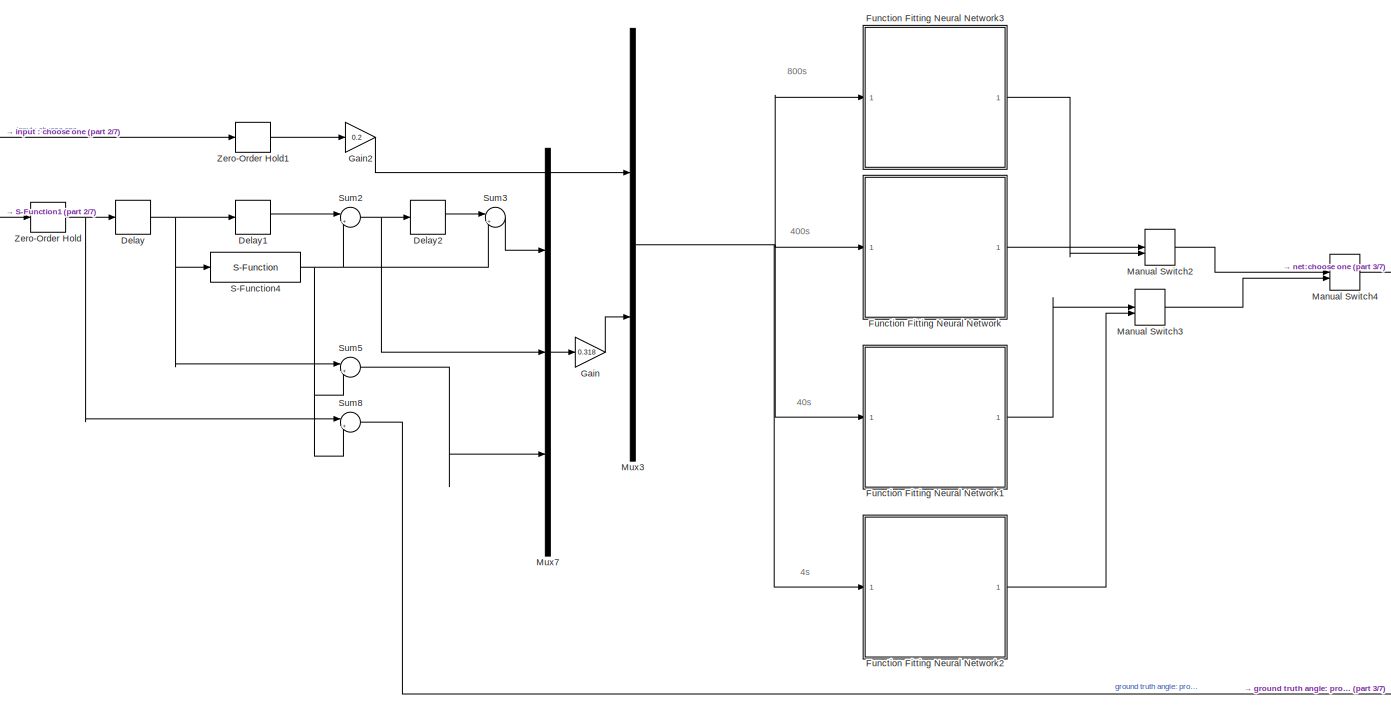
[diagram: root canvas - part 1/7, top center region]
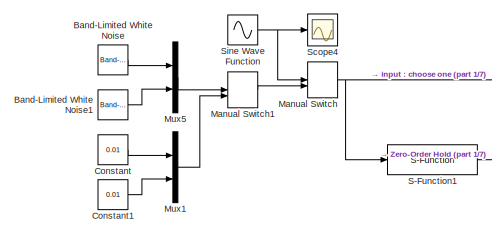
[diagram: root canvas - part 2/7, top left region]
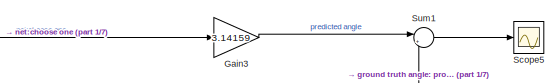
[diagram: root canvas - part 3/7, top right region]
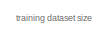
[diagram: root canvas - part 4/7, top left region]
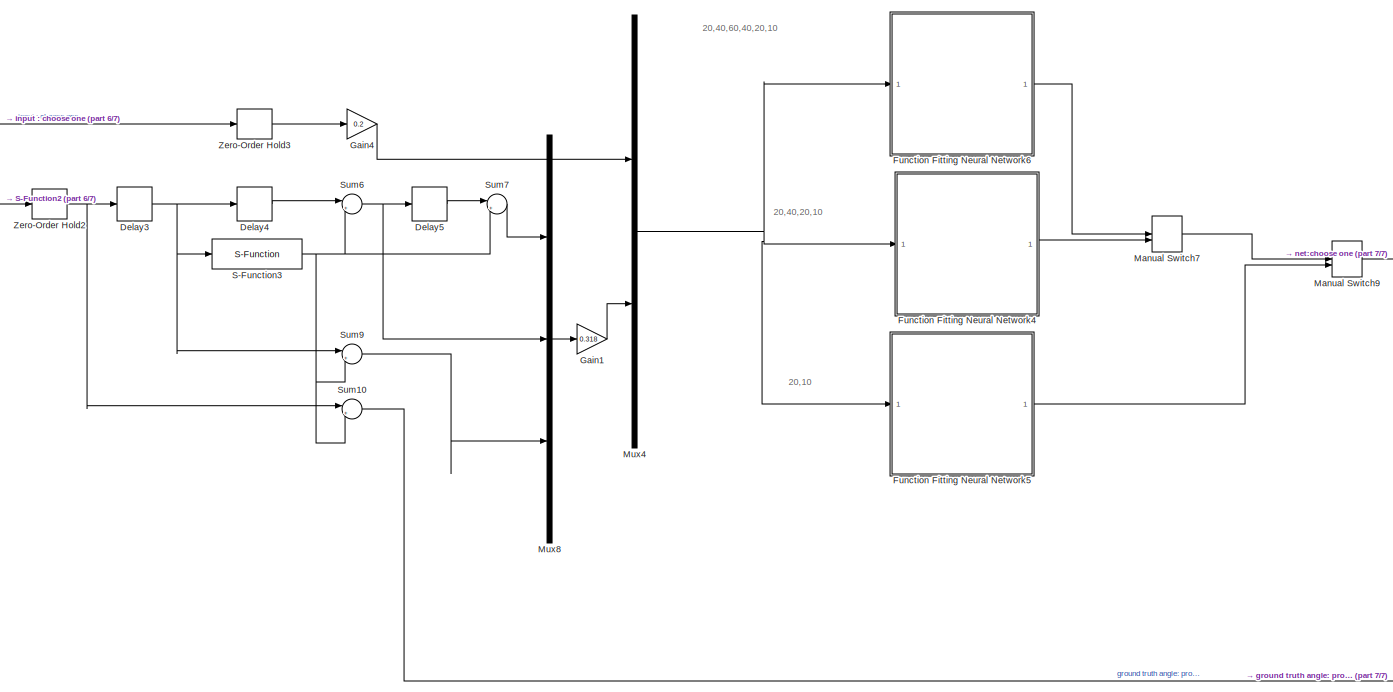
[diagram: root canvas - part 5/7, bottom center region]
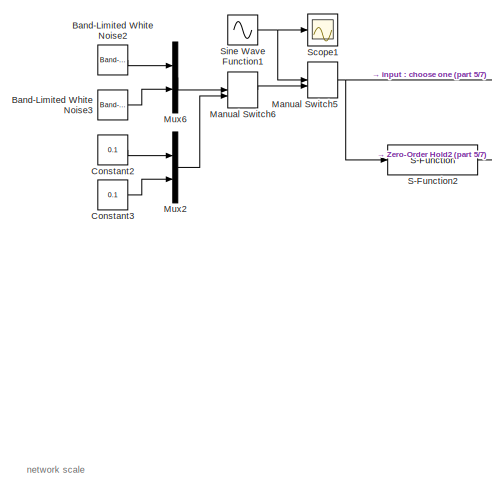
[diagram: root canvas - part 6/7, bottom left region]
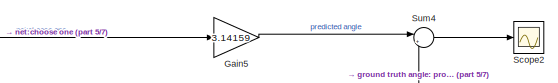
[diagram: root canvas - part 7/7, bottom right region]
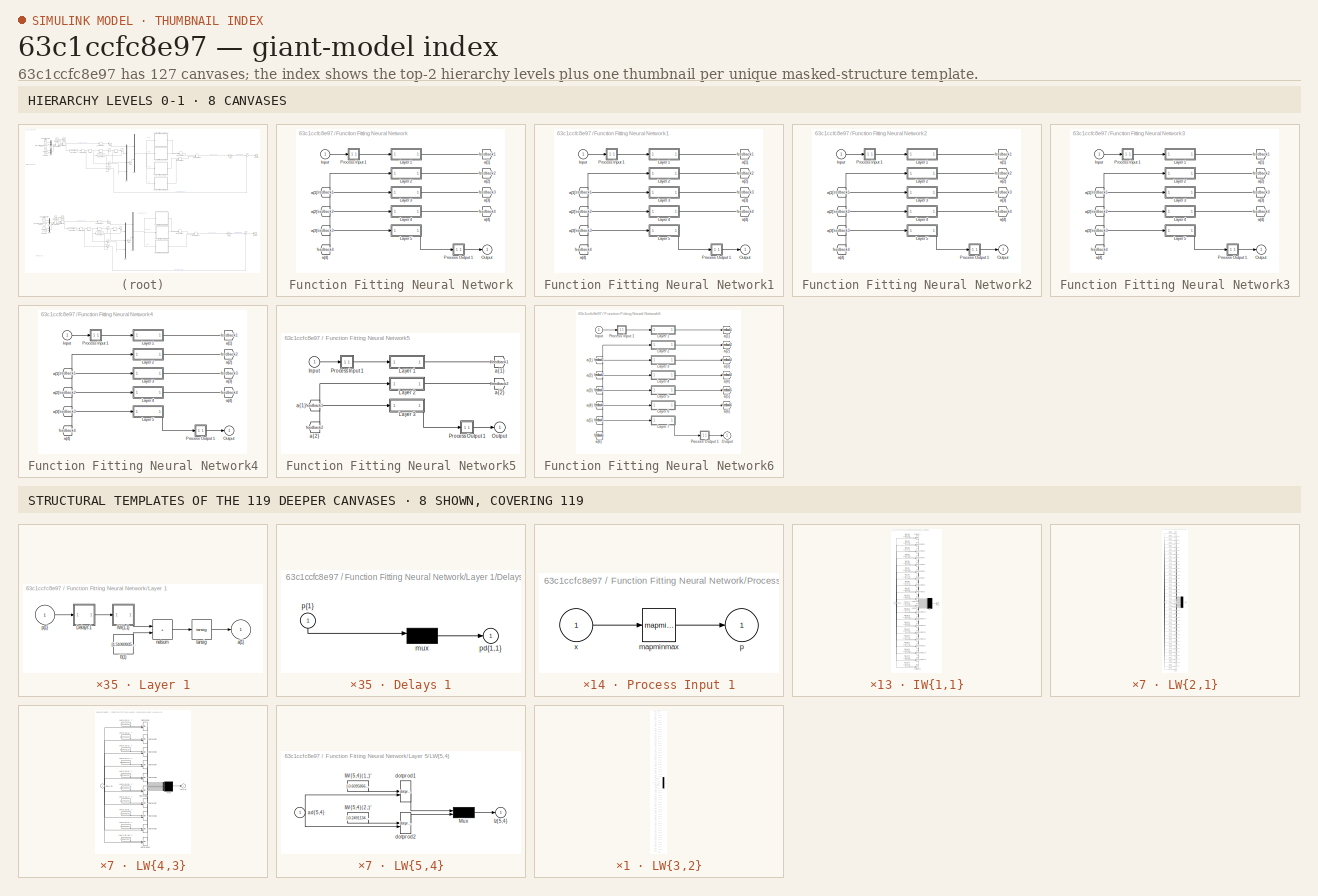
[diagram: thumbnail index - top-2 hierarchy levels (8 canvases) + 8 structural-template representatives of the remaining 119 canvases]
MODEL slx_63c1ccfc8e97
KIND model
CONFIG AbsTol = auto
CONFIG EnableMultiTasking = off
CONFIG FixedStep = auto
CONFIG MaxStep = auto
CONFIG MinStep = auto
CONFIG RelTol = 1e-3
CONFIG SampleTimeConstraint = Unconstrained
CONFIG SolverName = VariableStepAuto
CONFIG StartTime = 0.0
CONFIG StopTime = 40
BLOCK [Reference] Band-Limited White Noise  REF=simulink/Sources/Band-Limited
White Noise
  SourceBlock = simulink/Sources/Band-Limited\nWhite Noise
  SourceType = Band-Limited White Noise.
BLOCK [Reference] Band-Limited White Noise1  REF=simulink/Sources/Band-Limited
White Noise
  SourceBlock = simulink/Sources/Band-Limited\nWhite Noise
  SourceType = Band-Limited White Noise.
BLOCK [Reference] Band-Limited White Noise2  REF=simulink/Sources/Band-Limited
White Noise
  SourceBlock = simulink/Sources/Band-Limited\nWhite Noise
  SourceType = Band-Limited White Noise.
BLOCK [Reference] Band-Limited White Noise3  REF=simulink/Sources/Band-Limited
White Noise
  SourceBlock = simulink/Sources/Band-Limited\nWhite Noise
  SourceType = Band-Limited White Noise.
BLOCK [Constant] Constant
  Value = 0.01
BLOCK [Constant] Constant1
  Value = 0.01
BLOCK [Constant] Constant2
  Value = 0.1
BLOCK [Constant] Constant3
  Value = 0.1
BLOCK [Delay] Delay
  DelayLength = 1
  InitialCondition = 0
  InputPortMap = u0
  SampleTime = 0.01
BLOCK [Delay] Delay1
  DelayLength = 1
  InitialCondition = 0
  InputPortMap = u0
  SampleTime = 0.01
BLOCK [Delay] Delay2
  DelayLength = 1
  InitialCondition = 0
  InputPortMap = u0
  SampleTime = 0.01
BLOCK [Delay] Delay3
  DelayLength = 1
  InitialCondition = 0
  InputPortMap = u0
  SampleTime = 0.01
BLOCK [Delay] Delay4
  DelayLength = 1
  InitialCondition = 0
  InputPortMap = u0
  SampleTime = 0.01
BLOCK [Delay] Delay5
  DelayLength = 1
  InitialCondition = 0
  InputPortMap = u0
  SampleTime = 0.01
BLOCK [SubSystem] Function Fitting Neural Network
BLOCK [From] Function Fitting Neural Network/ a{1} 
  GotoTag = feedback1
BLOCK [From] Function Fitting Neural Network/ a{2} 
  GotoTag = feedback2
BLOCK [From] Function Fitting Neural Network/ a{3} 
  GotoTag = feedback3
BLOCK [From] Function Fitting Neural Network/ a{4} 
  GotoTag = feedback4
BLOCK [Inport] Function Fitting Neural Network/Input
  PortDimensions = 8
BLOCK [SubSystem] Function Fitting Neural Network/Layer 1
BLOCK [SubSystem] Function Fitting Neural Network/Layer 1/Delays 1
BLOCK [Mux] Function Fitting Neural Network/Layer 1/Delays 1/mux
  Inputs = 1
BLOCK [Outport] Function Fitting Neural Network/Layer 1/Delays 1/pd{1,1}
BLOCK [Inport] Function Fitting Neural Network/Layer 1/Delays 1/p{1}
  NameLocation = left
  PortDimensions = 8
BLOCK [SubSystem] Function Fitting Neural Network/Layer 1/IW{1,1}
BLOCK [Constant] Function Fitting Neural Network/Layer 1/IW{1,1}/IW{1,1}(1,:)'
  Value = [-0.06625151497961288826754611136493622325360774993896484375;0.09601682548573871323061013072219793684780597686767578125;-0.60795817852282940663144472637213766574859619140625;0.32346487533894763277686479341355152428150177001953125;-0.417565763028574454818198091743397526443004608154296875;-1.2591612239835876518867507911636494100093841552734375;-0.01667000188667561513811143925067881355062127113342285...<+63ch>
BLOCK [Constant] Function Fitting Neural Network/Layer 1/IW{1,1}/IW{1,1}(10,:)'
  Value = [-0.07805198563980701720321775383126805536448955535888671875;0.132721065130629700679065763324615545570850372314453125;-0.61744434245293489116335194921703077852725982666015625;0.388935332600696181959420982821029610931873321533203125;0.153285063860497727805665135747403837740421295166015625;0.50930623689561549394255735023762099444866180419921875;0.53845382130426389100108508500852622091770172119140625...<+55ch>
BLOCK [Constant] Function Fitting Neural Network/Layer 1/IW{1,1}/IW{1,1}(11,:)'
  Value = [0.04918441610870837032987168413455947302281856536865234375;-0.04159552238430817838743536185575067065656185150146484375;0.12327812348590654056845750119464355520904064178466796875;0.06319189768471338009003801516882958821952342987060546875;0.056797211991516181883721259282538085244596004486083984375;-2.039553404596769592416194427642039954662322998046875;0.039085160146814422466032823422210640273988246...<+68ch>
BLOCK [Constant] Function Fitting Neural Network/Layer 1/IW{1,1}/IW{1,1}(12,:)'
  Value = [-0.00167045469516673259109673654876360160415060818195343017578125;0.01347407452638137159706133161307661794126033782958984375;-0.1851645838153682943616473721704096533358097076416015625;-0.11655323356809062229633155993724358268082141876220703125;-0.62722879354085936398632838972844183444976806640625;-1.1853717592089576537972561709466390311717987060546875;0.9552223822400919273079011873051058501005172...<+68ch>
BLOCK [Constant] Function Fitting Neural Network/Layer 1/IW{1,1}/IW{1,1}(13,:)'
  Value = [0.039281083063148487799498553840749082155525684356689453125;-0.0064241656681929791561369569308226346038281917572021484375;-0.211170003365020397811946395449922420084476470947265625;0.10621998061268729529604826211652834899723529815673828125;0.8272839260666058347482021417818032205104827880859375;-0.01424818209783466731177536956920448574237525463104248046875;-1.271980456418378757632581255165860056877...<+68ch>
BLOCK [Constant] Function Fitting Neural Network/Layer 1/IW{1,1}/IW{1,1}(14,:)'
  Value = [-0.0169495841255620262322256763809491530992090702056884765625;0.01062986111865275341836767353242976241745054721832275390625;1.30927265313393714762923991656862199306488037109375;0.63133840280491126950579428012133575975894927978515625;-0.96762180382265527978091768090962432324886322021484375;0.1618197698033403408857111571705900132656097412109375;0.8621758227105110750088101667643059045076370239257812...<+59ch>
BLOCK [Constant] Function Fitting Neural Network/Layer 1/IW{1,1}/IW{1,1}(15,:)'
  Value = [0.0373943282553832745396249492841889150440692901611328125;-0.050913543636903757505507428504643030464649200439453125;0.058094347573448119892436380951039609499275684356689453125;0.03971616806807866384421146221939125098288059234619140625;-0.2137823796082287952646794337852043099701404571533203125;0.2076334074508816851523107516186428256332874298095703125;-0.16366101463091795031878916688583558425307273...<+67ch>
BLOCK [Constant] Function Fitting Neural Network/Layer 1/IW{1,1}/IW{1,1}(16,:)'
  Value = [0.10879873244421413291949107815526076592504978179931640625;-0.10022134176543344430410087397831375710666179656982421875;0.144544047383925511329749724609428085386753082275390625;-0.165210772886099588330210963249555788934230804443359375;0.193923316401156842214703601712244562804698944091796875;0.259818504779267211990401165166986174881458282470703125;0.4893222518056248859785739568906137719750404357910...<+61ch>
BLOCK [Constant] Function Fitting Neural Network/Layer 1/IW{1,1}/IW{1,1}(17,:)'
  Value = [0.038510554429168834811303412379857036285102367401123046875;-0.0404876974188733418369423588956124149262905120849609375;-0.46506761858084322280859623788273893296718597412109375;-0.36389906569615682041529680645908229053020477294921875;-0.824413710546632483300300009432248771190643310546875;0.355521399529579895659736621382762677967548370361328125;0.4848339535763752650154856382869184017181396484375;-1...<+54ch>
BLOCK [Constant] Function Fitting Neural Network/Layer 1/IW{1,1}/IW{1,1}(18,:)'
  Value = [0.60227918242615363642045167580363340675830841064453125;-0.7151315300296705590454848788795061409473419189453125;0.492170888404110218328213477434474043548107147216796875;-0.41266629077125893676480927751981653273105621337890625;0.060275798823175567864307566878778743557631969451904296875;0.06632476508515561253176429090672172605991363525390625;0.468340613243486580952179565429105423390865325927734375;...<+54ch>
BLOCK [Constant] Function Fitting Neural Network/Layer 1/IW{1,1}/IW{1,1}(19,:)'
  Value = [-0.0980450133267183610019657180600916035473346710205078125;-0.1312971944880636787633676476616528816521167755126953125;0.39294263311544852523837789703975431621074676513671875;-0.41124084417166584248803928858251310884952545166015625;0.262763920808531115103079400796559639275074005126953125;-0.88060866943884053004154566224315203726291656494140625;-0.851659292591275707273723583057289943099021911621093...<+56ch>
BLOCK [Constant] Function Fitting Neural Network/Layer 1/IW{1,1}/IW{1,1}(2,:)'
  Value = [-0.0002054311605086852330660784904381443993770517408847808837890625;-0.008493020638395909482909473808831535279750823974609375;-0.1013652639524386389613397341236122883856296539306640625;-0.0288894493846899684530438179308475810103118419647216796875;-1.2951744345640339162173404474742710590362548828125;-0.213669199678342025539024007230182178318500518798828125;1.468152482022607507872180576669052243232...<+66ch>
BLOCK [Constant] Function Fitting Neural Network/Layer 1/IW{1,1}/IW{1,1}(20,:)'
  Value = [-0.39123095173069588614822578165330924093723297119140625;0.29743779210468834772740365224308334290981292724609375;-0.0275588411168332415857040729179061600007116794586181640625;-0.419880350563146986786478009889833629131317138671875;-0.615084781617870834935501989093609154224395751953125;0.09547250073506298451153639916810789145529270172119140625;1.09093140752721939890079738688655197620391845703125;0....<+52ch>
BLOCK [Constant] Function Fitting Neural Network/Layer 1/IW{1,1}/IW{1,1}(3,:)'
  Value = [-0.2379011132694721364355672221790882758796215057373046875;0.228186974793161689856191287617548368871212005615234375;0.6931252694762155552865579011267982423305511474609375;0.8036057418458846246522853107308037579059600830078125;0.17843631735289100515018390069599263370037078857421875;-1.2457006116102415926860658146324567496776580810546875;-0.58716353248966368649774949517450295388698577880859375;-0.3...<+49ch>
BLOCK [Constant] Function Fitting Neural Network/Layer 1/IW{1,1}/IW{1,1}(4,:)'
  Value = [0.0251197275992513548159568159690024913288652896881103515625;-0.03969457888013601387644513351915520615875720977783203125;0.2873518497159324169842875562608242034912109375;-0.03748538218542372957298169922069064341485500335693359375;0.80783229761712271876916702240123413503170013427734375;0.704192697723136529219800650025717914104461669921875;-1.0818965792260828440163322738953866064548492431640625;-1....<+53ch>
BLOCK [Constant] Function Fitting Neural Network/Layer 1/IW{1,1}/IW{1,1}(5,:)'
  Value = [-0.041768040591042283893319364551643957383930683135986328125;0.038218305831577432940537875083464314229786396026611328125;0.64242665473583604462959328884608112275600433349609375;1.0989998379862704336318302011932246387004852294921875;-0.407168576964892281466745771467685699462890625;1.3737044161391682717265894098090939223766326904296875;0.208672052560637644180729921572492457926273345947265625;-0.255...<+52ch>
BLOCK [Constant] Function Fitting Neural Network/Layer 1/IW{1,1}/IW{1,1}(6,:)'
  Value = [0.033006669381857943468272509335292852483689785003662109375;-0.1056122386414183045300063668037182651460170745849609375;0.2276256265538296741368640141445212066173553466796875;0.55126615490331232205534206514130346477031707763671875;0.403042148616312101427894276639563031494617462158203125;-0.705631924844520863615571215632371604442596435546875;-0.89528063381783606899944061296992003917694091796875;0.3...<+50ch>
BLOCK [Constant] Function Fitting Neural Network/Layer 1/IW{1,1}/IW{1,1}(7,:)'
  Value = [-0.0271822433727387409441167420709462021477520465850830078125;0.004464420990478035720927518781309117912314832210540771484375;0.0260878196663470972305187700612805201672017574310302734375;0.020967305039616114525902190734996111132204532623291015625;-0.1601202478582996746592215231430600397288799285888671875;-0.8928253539156403295606878600665368139743804931640625;-0.03838212462821905673893141397456929...<+79ch>
BLOCK [Constant] Function Fitting Neural Network/Layer 1/IW{1,1}/IW{1,1}(8,:)'
  Value = [-0.0008903569142505556033295732731858151964843273162841796875;-0.003561944625287568298721563309072735137306153774261474609375;0.036619504766960388197905018614619621075689792633056640625;-0.05389776702857436430083026834836346097290515899658203125;-0.384328242703213474040779829010716639459133148193359375;0.8598302102658286205638660248951055109500885009765625;0.63158029221419420551342227554414421319...<+69ch>
BLOCK [Constant] Function Fitting Neural Network/Layer 1/IW{1,1}/IW{1,1}(9,:)'
  Value = [-0.049854519928796685312999414918522234074771404266357421875;0.10068300480426829734970084473388851620256900787353515625;-0.1894841333097706803645365880583995021879673004150390625;-0.05050382235759136306807448590916465036571025848388671875;-0.307014760978943479496905410996987484395503997802734375;-0.05322280824341962812695783213712275028228759765625;-0.475975482587448650573236363925389014184474945...<+66ch>
BLOCK [Mux] Function Fitting Neural Network/Layer 1/IW{1,1}/Mux
  Inputs = 20
BLOCK [Reference] Function Fitting Neural Network/Layer 1/IW{1,1}/dotprod1  REF=neural/Weight Functions/dotprod
  SourceBlock = neural/Weight Functions/dotprod
  SourceType = DOTPROD
BLOCK [Reference] Function Fitting Neural Network/Layer 1/IW{1,1}/dotprod10  REF=neural/Weight Functions/dotprod
  SourceBlock = neural/Weight Functions/dotprod
  SourceType = DOTPROD
BLOCK [Reference] Function Fitting Neural Network/Layer 1/IW{1,1}/dotprod11  REF=neural/Weight Functions/dotprod
  SourceBlock = neural/Weight Functions/dotprod
  SourceType = DOTPROD
BLOCK [Reference] Function Fitting Neural Network/Layer 1/IW{1,1}/dotprod12  REF=neural/Weight Functions/dotprod
  SourceBlock = neural/Weight Functions/dotprod
  SourceType = DOTPROD
BLOCK [Reference] Function Fitting Neural Network/Layer 1/IW{1,1}/dotprod13  REF=neural/Weight Functions/dotprod
  SourceBlock = neural/Weight Functions/dotprod
  SourceType = DOTPROD
BLOCK [Reference] Function Fitting Neural Network/Layer 1/IW{1,1}/dotprod14  REF=neural/Weight Functions/dotprod
  SourceBlock = neural/Weight Functions/dotprod
  SourceType = DOTPROD
BLOCK [Reference] Function Fitting Neural Network/Layer 1/IW{1,1}/dotprod15  REF=neural/Weight Functions/dotprod
  SourceBlock = neural/Weight Functions/dotprod
  SourceType = DOTPROD
BLOCK [Reference] Function Fitting Neural Network/Layer 1/IW{1,1}/dotprod16  REF=neural/Weight Functions/dotprod
  SourceBlock = neural/Weight Functions/dotprod
  SourceType = DOTPROD
BLOCK [Reference] Function Fitting Neural Network/Layer 1/IW{1,1}/dotprod17  REF=neural/Weight Functions/dotprod
  SourceBlock = neural/Weight Functions/dotprod
  SourceType = DOTPROD
BLOCK [Reference] Function Fitting Neural Network/Layer 1/IW{1,1}/dotprod18  REF=neural/Weight Functions/dotprod
  SourceBlock = neural/Weight Functions/dotprod
  SourceType = DOTPROD
BLOCK [Reference] Function Fitting Neural Network/Layer 1/IW{1,1}/dotprod19  REF=neural/Weight Functions/dotprod
  SourceBlock = neural/Weight Functions/dotprod
  SourceType = DOTPROD
BLOCK [Reference] Function Fitting Neural Network/Layer 1/IW{1,1}/dotprod2  REF=neural/Weight Functions/dotprod
  SourceBlock = neural/Weight Functions/dotprod
  SourceType = DOTPROD
BLOCK [Reference] Function Fitting Neural Network/Layer 1/IW{1,1}/dotprod20  REF=neural/Weight Functions/dotprod
  SourceBlock = neural/Weight Functions/dotprod
  SourceType = DOTPROD
BLOCK [Reference] Function Fitting Neural Network/Layer 1/IW{1,1}/dotprod3  REF=neural/Weight Functions/dotprod
  SourceBlock = neural/Weight Functions/dotprod
  SourceType = DOTPROD
BLOCK [Reference] Function Fitting Neural Network/Layer 1/IW{1,1}/dotprod4  REF=neural/Weight Functions/dotprod
  SourceBlock = neural/Weight Functions/dotprod
  SourceType = DOTPROD
BLOCK [Reference] Function Fitting Neural Network/Layer 1/IW{1,1}/dotprod5  REF=neural/Weight Functions/dotprod
  SourceBlock = neural/Weight Functions/dotprod
  SourceType = DOTPROD
BLOCK [Reference] Function Fitting Neural Network/Layer 1/IW{1,1}/dotprod6  REF=neural/Weight Functions/dotprod
  SourceBlock = neural/Weight Functions/dotprod
  SourceType = DOTPROD
BLOCK [Reference] Function Fitting Neural Network/Layer 1/IW{1,1}/dotprod7  REF=neural/Weight Functions/dotprod
  SourceBlock = neural/Weight Functions/dotprod
  SourceType = DOTPROD
BLOCK [Reference] Function Fitting Neural Network/Layer 1/IW{1,1}/dotprod8  REF=neural/Weight Functions/dotprod
  SourceBlock = neural/Weight Functions/dotprod
  SourceType = DOTPROD
BLOCK [Reference] Function Fitting Neural Network/Layer 1/IW{1,1}/dotprod9  REF=neural/Weight Functions/dotprod
  SourceBlock = neural/Weight Functions/dotprod
  SourceType = DOTPROD
BLOCK [Outport] Function Fitting Neural Network/Layer 1/IW{1,1}/iz{1,1}
BLOCK [Inport] Function Fitting Neural Network/Layer 1/IW{1,1}/pd{1,1}
  PortDimensions = 8
BLOCK [Outport] Function Fitting Neural Network/Layer 1/a{1}
  InitialOutput = [0;0;0;0;0;0;0;0;0;0;0;0;0;0;0;0;0;0;0;0]
BLOCK [Constant] Function Fitting Neural Network/Layer 1/b{1}
  Value = [1.5106993535478014933914892026223242282867431640625;-0.89166932865957260201383860476198606193065643310546875;1.33986604584856383581836780649609863758087158203125;-0.86448592510228039476061212553759105503559112548828125;1.2265055544564080758362933920579962432384490966796875;0.93764743560269370181714521095273084938526153564453125;-0.921646036829240511423222415032796561717987060546875;-0.37634141104...<+711ch>
BLOCK [Sum] Function Fitting Neural Network/Layer 1/netsum
  IconShape = rectangular
  InputSameDT = on
  Inputs = 2
  OutDataTypeStr = Inherit: Same as first input
  SaturateOnIntegerOverflow = on
BLOCK [Inport] Function Fitting Neural Network/Layer 1/p{1}
  PortDimensions = 8
BLOCK [Reference] Function Fitting Neural Network/Layer 1/tansig  REF=neural/Transfer Functions/tansig
  SourceBlock = neural/Transfer Functions/tansig
  SourceType = TANSIG
BLOCK [SubSystem] Function Fitting Neural Network/Layer 2
BLOCK [SubSystem] Function Fitting Neural Network/Layer 2/Delays 1
BLOCK [Mux] Function Fitting Neural Network/Layer 2/Delays 1/mux
  Inputs = 1
BLOCK [Outport] Function Fitting Neural Network/Layer 2/Delays 1/pd{2,1}
BLOCK [Inport] Function Fitting Neural Network/Layer 2/Delays 1/p{2}
  NameLocation = left
  PortDimensions = 20
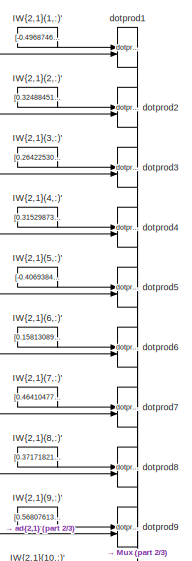
[diagram: Function Fitting Neural Network/Layer 2/LW{2,1} - part 1/3, top center region]
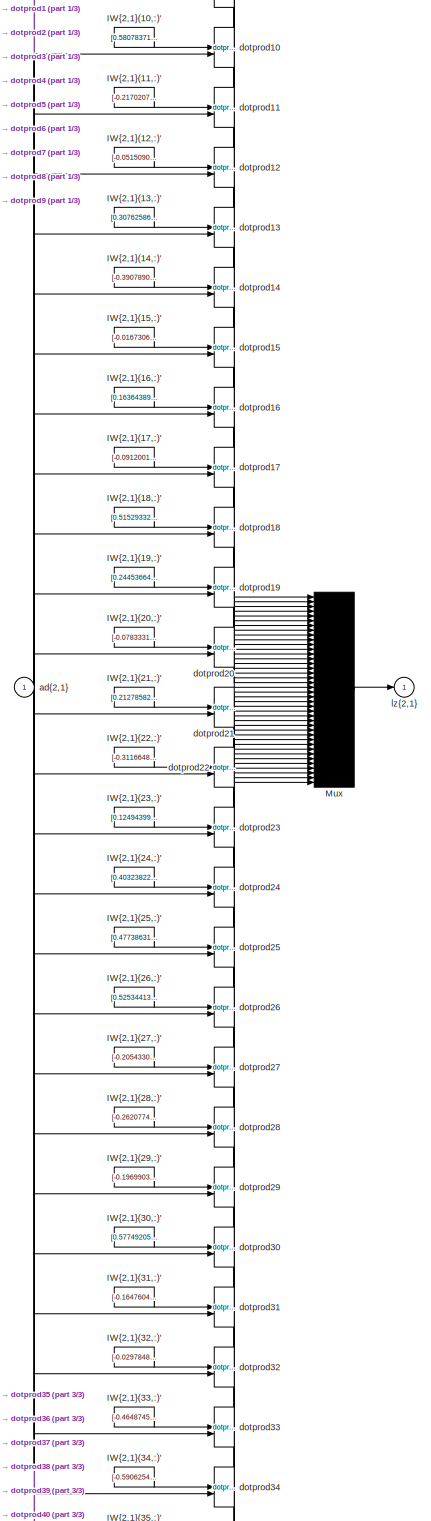
[diagram: Function Fitting Neural Network/Layer 2/LW{2,1} - part 2/3, full width, middle band]
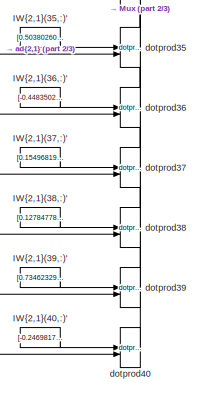
[diagram: Function Fitting Neural Network/Layer 2/LW{2,1} - part 3/3, bottom center region]
BLOCK [SubSystem] Function Fitting Neural Network/Layer 2/LW{2,1}
BLOCK [Constant] Function Fitting Neural Network/Layer 2/LW{2,1}/IW{2,1}(1,:)'
  Value = [-0.4968746070425640315448845285573042929172515869140625;0.56916069057106966067038911205600015819072723388671875;0.040709113134785222809508553609703085385262966156005859375;-0.5318632027325456146371607246692292392253875732421875;-0.23023417760780062746306384724448435008525848388671875;-0.194367719375184988539473351920605637133121490478515625;-0.38349468032621908397672427781799342483282089233398437...<+752ch>
BLOCK [Constant] Function Fitting Neural Network/Layer 2/LW{2,1}/IW{2,1}(10,:)'
  Value = [0.58078371106888415642544032380101270973682403564453125;-0.8435150344019255452820971186156384646892547607421875;0.322187675994737077189711271785199642181396484375;0.041287519302728455106166194354955223388969898223876953125;-0.55293955459592403212099043230409733951091766357421875;0.339684161769700898592105886564240790903568267822265625;0.391497376312855360769304979839944280683994293212890625;-0.50...<+735ch>
BLOCK [Constant] Function Fitting Neural Network/Layer 2/LW{2,1}/IW{2,1}(11,:)'
  Value = [-0.21702074684858174702384303600410930812358856201171875;0.49430481554682514921950087227742187678813934326171875;-0.43712527947816670614855638632434420287609100341796875;-0.259475318807909527407673522247932851314544677734375;0.1673432076896651243824720722841448150575160980224609375;0.2914253227037419957667907510767690837383270263671875;-0.07719773491012608956918228386712144128978252410888671875;-...<+741ch>
BLOCK [Constant] Function Fitting Neural Network/Layer 2/LW{2,1}/IW{2,1}(12,:)'
  Value = [-0.051509080070098585413251868203587946482002735137939453125;1.0007565112562151199426807579584419727325439453125;0.146588175210599747089190714177675545215606689453125;-0.09044749733768486787965912299114279448986053466796875;-0.369387675139689009018439946885337121784687042236328125;0.182831752430946570253667005090392194688320159912109375;-0.431481515258968550963203369974507950246334075927734375;-0...<+741ch>
BLOCK [Constant] Function Fitting Neural Network/Layer 2/LW{2,1}/IW{2,1}(13,:)'
  Value = [0.307625866408529013984463063025032170116901397705078125;0.6058115746206329532697054673917591571807861328125;-0.0496748242360259550931544936247519217431545257568359375;-0.09097933971164161304212569802984944544732570648193359375;-0.1497380829123460543872425887457211501896381378173828125;0.293098807607959976895273257468943484127521514892578125;0.15126844139537160005559712772083003073930740356445312...<+739ch>
BLOCK [Constant] Function Fitting Neural Network/Layer 2/LW{2,1}/IW{2,1}(14,:)'
  Value = [-0.390789052074277554194026151890284381806850433349609375;-0.20091133910689851216346824003267101943492889404296875;-0.1485077227760169815695689976564608514308929443359375;0.232085630110332175046750080582569353282451629638671875;-0.1842270174249512060260514090259675867855548858642578125;0.51856633803011842331898151314817368984222412109375;0.431927804636834500318087748382822610437870025634765625;0....<+745ch>
BLOCK [Constant] Function Fitting Neural Network/Layer 2/LW{2,1}/IW{2,1}(15,:)'
  Value = [-0.0167306667545834841792640190760721452534198760986328125;-0.039291303374336263021238124792944290675222873687744140625;0.00585840233007252873809189708254052675329148769378662109375;0.1781513474557755161153949075014679692685604095458984375;0.202591338413276311758437486787443049252033233642578125;-0.59274723626389380637391468553687445819377899169921875;-0.599187923939676014839506024145521223545074...<+744ch>
BLOCK [Constant] Function Fitting Neural Network/Layer 2/LW{2,1}/IW{2,1}(16,:)'
  Value = [0.16364389599362016980421685730107128620147705078125;0.484976786410236837543408228157204575836658477783203125;-0.378406487933076685070687972256564535200595855712890625;0.47429480173248317331768930671387352049350738525390625;0.14199488037980068089183305346523411571979522705078125;0.07788614391184438268123102488971198908984661102294921875;-0.367931475716799460951023093002731911838054656982421875;-0...<+746ch>
BLOCK [Constant] Function Fitting Neural Network/Layer 2/LW{2,1}/IW{2,1}(17,:)'
  Value = [-0.0912001644583615711514568147322279401123523712158203125;0.3740885402902345280296003693365491926670074462890625;0.2537110444612753479276534562814049422740936279296875;0.466171628270556748230291077561560086905956268310546875;0.351289757656616241643376952197286300361156463623046875;-0.27771490537902876472031721277744509279727935791015625;0.6351783716027572523898925282992422580718994140625;0.05096...<+742ch>
BLOCK [Constant] Function Fitting Neural Network/Layer 2/LW{2,1}/IW{2,1}(18,:)'
  Value = [0.51529332288692530905649391570477746427059173583984375;-0.59663655003374904683965951335267163813114166259765625;-0.09828123458141320434311438702934538014233112335205078125;-0.04635993235705655746148323714805883355438709259033203125;-0.1578610916011248532786481746370554901659488677978515625;0.06406291831360888533453135096351616084575653076171875;-0.278021280678705295930086549560655839741230010986...<+754ch>
BLOCK [Constant] Function Fitting Neural Network/Layer 2/LW{2,1}/IW{2,1}(19,:)'
  Value = [0.244536647846536336903255914876353926956653594970703125;0.290524791294050455103814556423458270728588104248046875;-0.422710330991319771509751035409863106906414031982421875;0.82033313652161254925232469759066589176654815673828125;0.21264804963832173445581474879872985184192657470703125;0.042373535958401452317101387734510353766381740570068359375;-0.0624811987812865718416865945528115844354033470153808...<+764ch>
BLOCK [Constant] Function Fitting Neural Network/Layer 2/LW{2,1}/IW{2,1}(2,:)'
  Value = [0.324884517956297858010117352023371495306491851806640625;-0.7650751356433753702646072269999422132968902587890625;-0.1690517355976107471970948381567723117768764495849609375;-0.32283844901716574060657194422674365341663360595703125;0.069162927369543825140141279916861094534397125244140625;-0.412143797414273704848852730719954706728458404541015625;0.0852270473923371074675969794043339788913726806640625;...<+751ch>
BLOCK [Constant] Function Fitting Neural Network/Layer 2/LW{2,1}/IW{2,1}(20,:)'
  Value = [-0.07833312765688836554200946693526930175721645355224609375;0.301623823385605061009329119769972749054431915283203125;0.05933668718457592305970393908864934928715229034423828125;0.00835316308405177100626648467596169211901724338531494140625;0.0167392838015908117232921625827657408080995082855224609375;-0.7019927751008514515973502057022415101528167724609375;0.072974946328092565872580621544329915195703...<+753ch>
BLOCK [Constant] Function Fitting Neural Network/Layer 2/LW{2,1}/IW{2,1}(21,:)'
  Value = [0.21278582834080295160816831412375904619693756103515625;0.20176796693875953536689848988316953182220458984375;-0.290132449895722677180032178512192331254482269287109375;0.01730017909664273434433567899759509600698947906494140625;-0.0255491985468142036863614663388943881727755069732666015625;-0.316980072732619799769082646889728493988513946533203125;-0.63255235393461961557193262706277891993522644042968...<+740ch>
BLOCK [Constant] Function Fitting Neural Network/Layer 2/LW{2,1}/IW{2,1}(22,:)'
  Value = [-0.311664897589316647330548448735498823225498199462890625;-0.366022306939570551964635569675010628998279571533203125;-0.6307816225319076153255082317627966403961181640625;0.301842361176092255359293403671472333371639251708984375;-0.0179448867873464312783227114778128452599048614501953125;0.60466309495422099207218025185284204781055450439453125;-0.1800741521989077942311752167370286770164966583251953125...<+737ch>
BLOCK [Constant] Function Fitting Neural Network/Layer 2/LW{2,1}/IW{2,1}(23,:)'
  Value = [0.124943993723110213789340150469797663390636444091796875;0.5362806037665015512772015426889993250370025634765625;-0.6261139919266958120402932763681747019290924072265625;-0.50264420487557226469021998127573169767856597900390625;0.687688118203503950809363232110626995563507080078125;0.126338504636680781789692673555691726505756378173828125;-0.042460105667911036964046189723376301117241382598876953125;-0...<+747ch>
BLOCK [Constant] Function Fitting Neural Network/Layer 2/LW{2,1}/IW{2,1}(24,:)'
  Value = [0.403238226447724279477569098162348382174968719482421875;-1.2038858442008206761641986304312013089656829833984375;0.49819049952877592080113799966056831181049346923828125;-0.2351300347746427821249426415306515991687774658203125;-0.62632903937094452917477838127524591982364654541015625;-0.341813707910361086472761371624073944985866546630859375;-0.292359394208139777848742824062355794012546539306640625;-...<+741ch>
BLOCK [Constant] Function Fitting Neural Network/Layer 2/LW{2,1}/IW{2,1}(25,:)'
  Value = [0.477386316924885367729558538485434837639331817626953125;0.59957744707013704843490131679573096334934234619140625;-0.2303048963194166132151252668336383067071437835693359375;-0.09775342706080149268732526479652733542025089263916015625;-0.554532379634169902971052579232491552829742431640625;0.2448081862759779181448749341143411584198474884033203125;-0.043742728538962279138946342982308124192059040069580...<+747ch>
BLOCK [Constant] Function Fitting Neural Network/Layer 2/LW{2,1}/IW{2,1}(26,:)'
  Value = [0.52534413830436310632876484305597841739654541015625;0.774617353742316883113971925922669470310211181640625;0.149192163147182477178631643255357630550861358642578125;-0.270933091806145165403307828455581329762935638427734375;0.48694403701026001130003351136110723018646240234375;0.228932581270872237411140304175205528736114501953125;-0.424760970411574512173302764495019800961017608642578125;-0.252816110...<+740ch>
BLOCK [Constant] Function Fitting Neural Network/Layer 2/LW{2,1}/IW{2,1}(27,:)'
  Value = [-0.2054330965945788955995254809749894775450229644775390625;-0.11547580199089994834604766538177500478923320770263671875;0.37077826159594262644958462260547094047069549560546875;-0.5292604365439015356997742856037802994251251220703125;0.430282102900566842951235457803704775869846343994140625;-0.25466768616755686149843995735864154994487762451171875;-0.102421964713454480278009839366859523579478263854980...<+755ch>
BLOCK [Constant] Function Fitting Neural Network/Layer 2/LW{2,1}/IW{2,1}(28,:)'
  Value = [-0.2620774429397119131834870131569914519786834716796875;0.50303114903602186291919906580005772411823272705078125;-0.0931472503635712156810910755666554905474185943603515625;-0.63736082473591626484932248786208219826221466064453125;0.306060281269170009199598325722035951912403106689453125;-0.140868383078661507656903495444566942751407623291015625;-0.45297657223835413597967658461129758507013320922851562...<+732ch>
BLOCK [Constant] Function Fitting Neural Network/Layer 2/LW{2,1}/IW{2,1}(29,:)'
  Value = [-0.1969903575781161431113019943950348533689975738525390625;0.312207829458112040565964662164333276450634002685546875;0.06991103655359076629594028418068774044513702392578125;-0.15448496218265816981585203393478877842426300048828125;0.1508534361722200234368074234225787222385406494140625;-0.01877382181952647055567240386153571307659149169921875;0.4703407572531805858062625702586956322193145751953125;0.9...<+748ch>
BLOCK [Constant] Function Fitting Neural Network/Layer 2/LW{2,1}/IW{2,1}(3,:)'
  Value = [0.26422530408157030024085543118417263031005859375;-0.315691573560363536454786981266806833446025848388671875;0.1345717512352333777858603980348561890423297882080078125;-0.054511460706667069775477330040303058922290802001953125;0.474569605745991662804073030201834626495838165283203125;-0.30999304480150213780831336407572962343692779541015625;-0.245946085231444067087380744851543568074703216552734375;0.9...<+730ch>
BLOCK [Constant] Function Fitting Neural Network/Layer 2/LW{2,1}/IW{2,1}(30,:)'
  Value = [0.57749205982957552141243695587036199867725372314453125;-0.01624429664900541026018032653155387379229068756103515625;-0.230512017095780230580004399598692543804645538330078125;0.07619275065580778660834226911902078427374362945556640625;0.057865663972044380225501214454197906889021396636962890625;-0.44431118154242310591683917664340697228908538818359375;-0.5953989183077877944683109490142669528722763061...<+752ch>
BLOCK [Constant] Function Fitting Neural Network/Layer 2/LW{2,1}/IW{2,1}(31,:)'
  Value = [-0.1647604576274670495905638745171017944812774658203125;0.73534795567854083220282745969598181545734405517578125;0.46311977856801556097110506016178987920284271240234375;-0.51280633358191474169274215455516241490840911865234375;0.10843778820503501003624791110269143246114253997802734375;0.23993340171909693925300643968512304127216339111328125;0.1224467420087177738086126055350177921354770660400390625;0...<+741ch>
BLOCK [Constant] Function Fitting Neural Network/Layer 2/LW{2,1}/IW{2,1}(32,:)'
  Value = [-0.0297848910391571956857159619858066434971988201141357421875;-0.485177893725928399693003711945493705570697784423828125;-0.1497695360104481510088447748785256408154964447021484375;0.37801371623823687428966877632774412631988525390625;-0.18721260364467184889036843742360360920429229736328125;0.6263677319087779249429104311275295913219451904296875;-0.56859987547577173216950541245751082897186279296875;0...<+740ch>
BLOCK [Constant] Function Fitting Neural Network/Layer 2/LW{2,1}/IW{2,1}(33,:)'
  Value = [-0.46487457071894355831176426363526843488216400146484375;0.5713195016531382730562427241238765418529510498046875;-0.08713683263412171087214375120311160571873188018798828125;-0.438489836957696332842004949270631186664104461669921875;0.11786615410145513671569261759941582567989826202392578125;-0.2623388079701169939284000065526925027370452880859375;-0.208018972891395315105711461001192219555377960205078...<+748ch>
BLOCK [Constant] Function Fitting Neural Network/Layer 2/LW{2,1}/IW{2,1}(34,:)'
  Value = [-0.5906254184010129026916047223494388163089752197265625;-0.1689331756521232075218819090878241695463657379150390625;-0.347194279663801008695145355886779725551605224609375;0.226775574626792486565562967371079139411449432373046875;-0.2440060280782810619992773126796237193048000335693359375;0.3651966246490818690517698996700346469879150390625;0.6107288270119413109426886876462958753108978271484375;0.0734...<+738ch>
BLOCK [Constant] Function Fitting Neural Network/Layer 2/LW{2,1}/IW{2,1}(35,:)'
  Value = [0.50380260640656227000278022387647069990634918212890625;-0.25424884803673697408754605930880643427371978759765625;0.458649242757129205205757216390338726341724395751953125;-0.30390833160497499054741865620599128305912017822265625;0.28896957251928034882126894444809295237064361572265625;0.303470539531898897411821280911681242287158966064453125;0.50905192618743921872948021700722165405750274658203125;-0....<+728ch>
BLOCK [Constant] Function Fitting Neural Network/Layer 2/LW{2,1}/IW{2,1}(36,:)'
  Value = [-0.4483502411574822321682631809380836784839630126953125;-0.300268721506864288972593612925265915691852569580078125;-0.044939296467709721749628215548000298440456390380859375;-0.32246251032972772510021286507253535091876983642578125;-0.2631099684479070166531755603500641882419586181640625;-0.29325749796676625624769485511933453381061553955078125;-0.186764148255831291534079241500876378268003463745117187...<+745ch>
BLOCK [Constant] Function Fitting Neural Network/Layer 2/LW{2,1}/IW{2,1}(37,:)'
  Value = [0.154968194830164496256230677317944355309009552001953125;0.6049212918876227806919132490293122828006744384765625;-0.313339753382427144146049613482318818569183349609375;-0.496081203044421992220947004170739091932773590087890625;-0.28864331473780924230965183596708811819553375244140625;0.414117015257641718495307259217952378094196319580078125;-0.53793704489330540496894172974862158298492431640625;0.5787...<+737ch>
BLOCK [Constant] Function Fitting Neural Network/Layer 2/LW{2,1}/IW{2,1}(38,:)'
  Value = [0.127847780546944844726198198259226046502590179443359375;-0.30081304016282872648702095830230973660945892333984375;-0.2064585771239216549499673192258342169225215911865234375;-0.037842070290617306482783277488124440424144268035888671875;0.264011724446635176466458005961612798273563385009765625;0.218240533837157746344104225499904714524745941162109375;-0.466497226227350514360381339429295621812343597412...<+742ch>
BLOCK [Constant] Function Fitting Neural Network/Layer 2/LW{2,1}/IW{2,1}(39,:)'
  Value = [0.734623293494786278046149163856171071529388427734375;-0.2907616245802226995209593951585702598094940185546875;-0.0892159257315402742793963852818706072866916656494140625;-0.08278141866536782578211983718574629165232181549072265625;-0.298459696938264518184524831667658872902393341064453125;-0.431196937651310729933129550772719085216522216796875;-0.324378595637247801874991637305356562137603759765625;0....<+724ch>
BLOCK [Constant] Function Fitting Neural Network/Layer 2/LW{2,1}/IW{2,1}(4,:)'
  Value = [0.31529873753670678571126018141512759029865264892578125;-0.344581473004466010134905218365020118653774261474609375;-0.03810425354109921169953878461456042714416980743408203125;-0.1790590497193667307573861080527422018349170684814453125;-0.00156724987412971646962012162163091488764621317386627197265625;0.238377477468428800033706238536979071795940399169921875;-0.7166257170648142604818531253840774297714...<+749ch>
BLOCK [Constant] Function Fitting Neural Network/Layer 2/LW{2,1}/IW{2,1}(40,:)'
  Value = [-0.246981779712137583526754269769298844039440155029296875;-0.43508978343923576659335594740696251392364501953125;-0.0217018770797686132156822935712625621818006038665771484375;-0.30786262727980384656945034294039942324161529541015625;0.398917968325185778866170949186198413372039794921875;0.3138577533720294798769145927508361637592315673828125;0.292744343873020118618200058335787616670131683349609375;-0...<+739ch>
BLOCK [Constant] Function Fitting Neural Network/Layer 2/LW{2,1}/IW{2,1}(5,:)'
  Value = [-0.406938409706985748659491264334064908325672149658203125;-0.361275336177264427828248471996630541980266571044921875;-0.06249221022825206250939089613893884234130382537841796875;0.13437571577921836318836312784696929156780242919921875;0.14277884948727315173044871698948554694652557373046875;-0.46479620971013613228706162772141396999359130859375;-0.62923519437743902216197966481558978557586669921875;-0....<+742ch>
BLOCK [Constant] Function Fitting Neural Network/Layer 2/LW{2,1}/IW{2,1}(6,:)'
  Value = [0.15813089944946678855330901569686830043792724609375;-0.0185396910089317169811895524844658211804926395416259765625;-0.29482607884004574660963271526270546019077301025390625;-0.60953765217926447750329543850966729223728179931640625;-0.196760129837860342494337828611605800688266754150390625;-0.290938716310868372705300544112105853855609893798828125;-0.489502623373644474291666028875624760985374450683593...<+759ch>
BLOCK [Constant] Function Fitting Neural Network/Layer 2/LW{2,1}/IW{2,1}(7,:)'
  Value = [0.464104777372029875248671260123956017196178436279296875;0.06488651291904566631441042545702657662332057952880859375;-0.188009825533936358876729855182929895818233489990234375;0.09512866288776429535278822413602028973400592803955078125;0.166401747543613087731984023776021786034107208251953125;-0.54209388115376355710139932853053323924541473388671875;-0.3468285343444961754677535736846039071679115295410...<+754ch>
BLOCK [Constant] Function Fitting Neural Network/Layer 2/LW{2,1}/IW{2,1}(8,:)'
  Value = [0.37171821308070729372730056638829410076141357421875;0.2023391672433236809780510156997479498386383056640625;-0.307862910479162754651127897886908613145351409912109375;-0.455208631547062536615300132325501181185245513916015625;-0.1722959774566214241620087932460592128336429595947265625;-0.037868141078373086794162105661598616279661655426025390625;-0.2064189333829798689290413449270999990403652191162109...<+742ch>
BLOCK [Constant] Function Fitting Neural Network/Layer 2/LW{2,1}/IW{2,1}(9,:)'
  Value = [0.56807613474989582247332009501405991613864898681640625;0.411436456363137692537890188759774900972843170166015625;-0.3570160656113479102913288443232886493206024169921875;-0.1959290736823738610095091416951618157327175140380859375;0.329364800880741770416904046214767731726169586181640625;-0.2461055731906857946267308534515905193984508514404296875;-0.571983854703026484145311769680120050907135009765625;...<+745ch>
BLOCK [Mux] Function Fitting Neural Network/Layer 2/LW{2,1}/Mux
  Inputs = 40
BLOCK [Inport] Function Fitting Neural Network/Layer 2/LW{2,1}/ad{2,1}
  PortDimensions = 20
BLOCK [Reference] Function Fitting Neural Network/Layer 2/LW{2,1}/dotprod1  REF=neural/Weight Functions/dotprod
  SourceBlock = neural/Weight Functions/dotprod
  SourceType = DOTPROD
BLOCK [Reference] Function Fitting Neural Network/Layer 2/LW{2,1}/dotprod10  REF=neural/Weight Functions/dotprod
  SourceBlock = neural/Weight Functions/dotprod
  SourceType = DOTPROD
BLOCK [Reference] Function Fitting Neural Network/Layer 2/LW{2,1}/dotprod11  REF=neural/Weight Functions/dotprod
  SourceBlock = neural/Weight Functions/dotprod
  SourceType = DOTPROD
BLOCK [Reference] Function Fitting Neural Network/Layer 2/LW{2,1}/dotprod12  REF=neural/Weight Functions/dotprod
  SourceBlock = neural/Weight Functions/dotprod
  SourceType = DOTPROD
BLOCK [Reference] Function Fitting Neural Network/Layer 2/LW{2,1}/dotprod13  REF=neural/Weight Functions/dotprod
  SourceBlock = neural/Weight Functions/dotprod
  SourceType = DOTPROD
BLOCK [Reference] Function Fitting Neural Network/Layer 2/LW{2,1}/dotprod14  REF=neural/Weight Functions/dotprod
  SourceBlock = neural/Weight Functions/dotprod
  SourceType = DOTPROD
BLOCK [Reference] Function Fitting Neural Network/Layer 2/LW{2,1}/dotprod15  REF=neural/Weight Functions/dotprod
  SourceBlock = neural/Weight Functions/dotprod
  SourceType = DOTPROD
BLOCK [Reference] Function Fitting Neural Network/Layer 2/LW{2,1}/dotprod16  REF=neural/Weight Functions/dotprod
  SourceBlock = neural/Weight Functions/dotprod
  SourceType = DOTPROD
BLOCK [Reference] Function Fitting Neural Network/Layer 2/LW{2,1}/dotprod17  REF=neural/Weight Functions/dotprod
  SourceBlock = neural/Weight Functions/dotprod
  SourceType = DOTPROD
BLOCK [Reference] Function Fitting Neural Network/Layer 2/LW{2,1}/dotprod18  REF=neural/Weight Functions/dotprod
  SourceBlock = neural/Weight Functions/dotprod
  SourceType = DOTPROD
BLOCK [Reference] Function Fitting Neural Network/Layer 2/LW{2,1}/dotprod19  REF=neural/Weight Functions/dotprod
  SourceBlock = neural/Weight Functions/dotprod
  SourceType = DOTPROD
BLOCK [Reference] Function Fitting Neural Network/Layer 2/LW{2,1}/dotprod2  REF=neural/Weight Functions/dotprod
  SourceBlock = neural/Weight Functions/dotprod
  SourceType = DOTPROD
BLOCK [Reference] Function Fitting Neural Network/Layer 2/LW{2,1}/dotprod20  REF=neural/Weight Functions/dotprod
  SourceBlock = neural/Weight Functions/dotprod
  SourceType = DOTPROD
BLOCK [Reference] Function Fitting Neural Network/Layer 2/LW{2,1}/dotprod21  REF=neural/Weight Functions/dotprod
  SourceBlock = neural/Weight Functions/dotprod
  SourceType = DOTPROD
BLOCK [Reference] Function Fitting Neural Network/Layer 2/LW{2,1}/dotprod22  REF=neural/Weight Functions/dotprod
  SourceBlock = neural/Weight Functions/dotprod
  SourceType = DOTPROD
BLOCK [Reference] Function Fitting Neural Network/Layer 2/LW{2,1}/dotprod23  REF=neural/Weight Functions/dotprod
  SourceBlock = neural/Weight Functions/dotprod
  SourceType = DOTPROD
BLOCK [Reference] Function Fitting Neural Network/Layer 2/LW{2,1}/dotprod24  REF=neural/Weight Functions/dotprod
  SourceBlock = neural/Weight Functions/dotprod
  SourceType = DOTPROD
BLOCK [Reference] Function Fitting Neural Network/Layer 2/LW{2,1}/dotprod25  REF=neural/Weight Functions/dotprod
  SourceBlock = neural/Weight Functions/dotprod
  SourceType = DOTPROD
BLOCK [Reference] Function Fitting Neural Network/Layer 2/LW{2,1}/dotprod26  REF=neural/Weight Functions/dotprod
  SourceBlock = neural/Weight Functions/dotprod
  SourceType = DOTPROD
BLOCK [Reference] Function Fitting Neural Network/Layer 2/LW{2,1}/dotprod27  REF=neural/Weight Functions/dotprod
  SourceBlock = neural/Weight Functions/dotprod
  SourceType = DOTPROD
BLOCK [Reference] Function Fitting Neural Network/Layer 2/LW{2,1}/dotprod28  REF=neural/Weight Functions/dotprod
  SourceBlock = neural/Weight Functions/dotprod
  SourceType = DOTPROD
BLOCK [Reference] Function Fitting Neural Network/Layer 2/LW{2,1}/dotprod29  REF=neural/Weight Functions/dotprod
  SourceBlock = neural/Weight Functions/dotprod
  SourceType = DOTPROD
BLOCK [Reference] Function Fitting Neural Network/Layer 2/LW{2,1}/dotprod3  REF=neural/Weight Functions/dotprod
  SourceBlock = neural/Weight Functions/dotprod
  SourceType = DOTPROD
BLOCK [Reference] Function Fitting Neural Network/Layer 2/LW{2,1}/dotprod30  REF=neural/Weight Functions/dotprod
  SourceBlock = neural/Weight Functions/dotprod
  SourceType = DOTPROD
BLOCK [Reference] Function Fitting Neural Network/Layer 2/LW{2,1}/dotprod31  REF=neural/Weight Functions/dotprod
  SourceBlock = neural/Weight Functions/dotprod
  SourceType = DOTPROD
BLOCK [Reference] Function Fitting Neural Network/Layer 2/LW{2,1}/dotprod32  REF=neural/Weight Functions/dotprod
  SourceBlock = neural/Weight Functions/dotprod
  SourceType = DOTPROD
BLOCK [Reference] Function Fitting Neural Network/Layer 2/LW{2,1}/dotprod33  REF=neural/Weight Functions/dotprod
  SourceBlock = neural/Weight Functions/dotprod
  SourceType = DOTPROD
BLOCK [Reference] Function Fitting Neural Network/Layer 2/LW{2,1}/dotprod34  REF=neural/Weight Functions/dotprod
  SourceBlock = neural/Weight Functions/dotprod
  SourceType = DOTPROD
BLOCK [Reference] Function Fitting Neural Network/Layer 2/LW{2,1}/dotprod35  REF=neural/Weight Functions/dotprod
  SourceBlock = neural/Weight Functions/dotprod
  SourceType = DOTPROD
BLOCK [Reference] Function Fitting Neural Network/Layer 2/LW{2,1}/dotprod36  REF=neural/Weight Functions/dotprod
  SourceBlock = neural/Weight Functions/dotprod
  SourceType = DOTPROD
BLOCK [Reference] Function Fitting Neural Network/Layer 2/LW{2,1}/dotprod37  REF=neural/Weight Functions/dotprod
  SourceBlock = neural/Weight Functions/dotprod
  SourceType = DOTPROD
BLOCK [Reference] Function Fitting Neural Network/Layer 2/LW{2,1}/dotprod38  REF=neural/Weight Functions/dotprod
  SourceBlock = neural/Weight Functions/dotprod
  SourceType = DOTPROD
BLOCK [Reference] Function Fitting Neural Network/Layer 2/LW{2,1}/dotprod39  REF=neural/Weight Functions/dotprod
  SourceBlock = neural/Weight Functions/dotprod
  SourceType = DOTPROD
BLOCK [Reference] Function Fitting Neural Network/Layer 2/LW{2,1}/dotprod4  REF=neural/Weight Functions/dotprod
  SourceBlock = neural/Weight Functions/dotprod
  SourceType = DOTPROD
BLOCK [Reference] Function Fitting Neural Network/Layer 2/LW{2,1}/dotprod40  REF=neural/Weight Functions/dotprod
  SourceBlock = neural/Weight Functions/dotprod
  SourceType = DOTPROD
BLOCK [Reference] Function Fitting Neural Network/Layer 2/LW{2,1}/dotprod5  REF=neural/Weight Functions/dotprod
  SourceBlock = neural/Weight Functions/dotprod
  SourceType = DOTPROD
BLOCK [Reference] Function Fitting Neural Network/Layer 2/LW{2,1}/dotprod6  REF=neural/Weight Functions/dotprod
  SourceBlock = neural/Weight Functions/dotprod
  SourceType = DOTPROD
BLOCK [Reference] Function Fitting Neural Network/Layer 2/LW{2,1}/dotprod7  REF=neural/Weight Functions/dotprod
  SourceBlock = neural/Weight Functions/dotprod
  SourceType = DOTPROD
BLOCK [Reference] Function Fitting Neural Network/Layer 2/LW{2,1}/dotprod8  REF=neural/Weight Functions/dotprod
  SourceBlock = neural/Weight Functions/dotprod
  SourceType = DOTPROD
BLOCK [Reference] Function Fitting Neural Network/Layer 2/LW{2,1}/dotprod9  REF=neural/Weight Functions/dotprod
  SourceBlock = neural/Weight Functions/dotprod
  SourceType = DOTPROD
BLOCK [Outport] Function Fitting Neural Network/Layer 2/LW{2,1}/lz{2,1}
BLOCK [Inport] Function Fitting Neural Network/Layer 2/a{1} 
  PortDimensions = 20
BLOCK [Outport] Function Fitting Neural Network/Layer 2/a{2}
  InitialOutput = [0;0;0;0;0;0;0;0;0;0;0;0;0;0;0;0;0;0;0;0;0;0;0;0;0;0;0;0;0;0;0;0;0;0;0;0;0;0;0;0]
BLOCK [Constant] Function Fitting Neural Network/Layer 2/b{2}
  Value = [1.70956972388786265781845941091887652873992919921875;-1.57674815208393770404882161528803408145904541015625;-1.455414804379236759501736742095090448856353759765625;-1.4712537367273263999578603034024126827716827392578125;1.3587917782139100619787086543510667979717254638671875;-1.30130207230565542175781956757418811321258544921875;-1.3007555562062986798110841846209950745105743408203125;-1.1823660825815...<+1813ch>
BLOCK [Sum] Function Fitting Neural Network/Layer 2/netsum
  IconShape = rectangular
  InputSameDT = on
  Inputs = 2
  OutDataTypeStr = Inherit: Same as first input
  SaturateOnIntegerOverflow = on
BLOCK [Reference] Function Fitting Neural Network/Layer 2/tansig  REF=neural/Transfer Functions/tansig
  SourceBlock = neural/Transfer Functions/tansig
  SourceType = TANSIG
BLOCK [SubSystem] Function Fitting Neural Network/Layer 3
BLOCK [SubSystem] Function Fitting Neural Network/Layer 3/Delays 1
BLOCK [Mux] Function Fitting Neural Network/Layer 3/Delays 1/mux
  Inputs = 1
BLOCK [Outport] Function Fitting Neural Network/Layer 3/Delays 1/pd{3,2}
BLOCK [Inport] Function Fitting Neural Network/Layer 3/Delays 1/p{3}
  NameLocation = left
  PortDimensions = 40
BLOCK [SubSystem] Function Fitting Neural Network/Layer 3/LW{3,2}
BLOCK [Constant] Function Fitting Neural Network/Layer 3/LW{3,2}/IW{3,2}(1,:)'
  Value = [-0.345794843404881147019835907485685311257839202880859375;0.110520854680099256395209295078529976308345794677734375;-0.1018977815488003868527044915026635862886905670166015625;0.291341832333095573925874077758635394275188446044921875;-0.23769549715218885044265562100918032228946685791015625;0.004669833447491895071779222092800409882329404354095458984375;0.0417927336225867931962518753152835415676236152...<+1923ch>
BLOCK [Constant] Function Fitting Neural Network/Layer 3/LW{3,2}/IW{3,2}(10,:)'
  Value = [0.310142621795105044579798914128332398831844329833984375;-0.2305390303934573281718911630377988331019878387451171875;0.0446771613218661378663654204501654021441936492919921875;0.006003973598716821034881885310596771887503564357757568359375;0.3547450642447438351467781103565357625484466552734375;0.365383916098730388011261993597145192325115203857421875;-0.17501222376297934091304853154724696651101112365...<+1919ch>
BLOCK [Constant] Function Fitting Neural Network/Layer 3/LW{3,2}/IW{3,2}(11,:)'
  Value = [0.2499877326969175694859615077803027816116809844970703125;-0.294866036244586571246628636799869127571582794189453125;-0.31907748537516755771292764620739035308361053466796875;-0.34203478649539309497384920177864842116832733154296875;0.2262379541511389258179320904673659242689609527587890625;0.0260497901770385571762478349455705028958618640899658203125;-0.36404071413413341407050438647274859249591827392...<+1904ch>
BLOCK [Constant] Function Fitting Neural Network/Layer 3/LW{3,2}/IW{3,2}(12,:)'
  Value = [-0.000327643760204076738180856143145547321182675659656524658203125;-0.06577097645044775731104635951851378194987773895263671875;-0.1183423539125349754908000932118739001452922821044921875;-0.319732459109707212174811274962848983705043792724609375;-0.1530696841133409036306289863205165602266788482666015625;0.31366358639476177305738247014232911169528961181640625;-0.2950150909543541311030878659948939457...<+1892ch>
BLOCK [Constant] Function Fitting Neural Network/Layer 3/LW{3,2}/IW{3,2}(13,:)'
  Value = [0.036219658658515445359693529780997778289020061492919921875;-0.34278334447920533190057312822318635880947113037109375;0.058966364750118467619177664573726360686123371124267578125;0.1317839866884168154026468755546375177800655364990234375;-0.32365713100927606671319836095790378749370574951171875;0.051309081939756480406078509304279577918350696563720703125;-0.27958248268725682805779797490686178207397460...<+1907ch>
BLOCK [Constant] Function Fitting Neural Network/Layer 3/LW{3,2}/IW{3,2}(14,:)'
  Value = [-0.16416947100479506449488553698756732046604156494140625;-0.1490681636639682727807354467586264945566654205322265625;0.0854390692472772050880536198746995069086551666259765625;0.05148674888961156381750328137059113942086696624755859375;0.256170450484869471896587356241070665419101715087890625;-0.0301589423172818164864406043079725350253283977508544921875;-0.11114262932244950432547625496226828545331954...<+1927ch>
BLOCK [Constant] Function Fitting Neural Network/Layer 3/LW{3,2}/IW{3,2}(15,:)'
  Value = [0.03441842649047548163832033196740667335689067840576171875;0.14301426532160876892163514639833010733127593994140625;0.56386744210808237287579913754598237574100494384765625;0.257520235115685502957916241939528845250606536865234375;0.621869061601146189133260122616775333881378173828125;-0.2394657624121248051807242518407292664051055908203125;-0.1895437217691597897584188103792257606983184814453125;-0.08...<+1905ch>
BLOCK [Constant] Function Fitting Neural Network/Layer 3/LW{3,2}/IW{3,2}(16,:)'
  Value = [-0.377898899803477961167885723625659011304378509521484375;0.2280865747759761585911064685205928981304168701171875;-0.048443798018241217284707289536527241580188274383544921875;0.12407914407283866797815363725021597929298877716064453125;-0.45633985628271445111892035129130817949771881103515625;0.32543408825318920207791961729526519775390625;0.357882143364665672446989219679380767047405242919921875;-0.37...<+1919ch>
BLOCK [Constant] Function Fitting Neural Network/Layer 3/LW{3,2}/IW{3,2}(17,:)'
  Value = [-0.0524489990350963941612150165383354760706424713134765625;0.037835820364595922071782041484766523353755474090576171875;0.103070724338313823853496842275490052998065948486328125;0.289211705353908110627259020475321449339389801025390625;-0.239773404597667438853392241071560420095920562744140625;-0.350830801574349260274487960487022064626216888427734375;-0.22847937664717268835268271232052939012646675109...<+1903ch>
BLOCK [Constant] Function Fitting Neural Network/Layer 3/LW{3,2}/IW{3,2}(18,:)'
  Value = [0.016039458190330320441763234384779934771358966827392578125;-0.26171014712172813165835805193637497723102569580078125;-0.12766449579118532842159083884325809776782989501953125;0.0268516797767936500618279893615181208588182926177978515625;-0.3132987693808557683183835251838900148868560791015625;-0.07799223883637994292339357116361497901380062103271484375;-0.297756897884243310059559917135629802942276000...<+1915ch>
BLOCK [Constant] Function Fitting Neural Network/Layer 3/LW{3,2}/IW{3,2}(19,:)'
  Value = [0.351250215103343033096194858444505371153354644775390625;-0.042292553818136006948957827944468590430915355682373046875;-0.31750365363957311348741541223716922104358673095703125;-0.0356079698500079422363029379994259215891361236572265625;-0.2828152351103307982072010418050922453403472900390625;0.2150930598290343997991413971249130554497241973876953125;0.3202937784099428863981984250131063163280487060546...<+1902ch>
BLOCK [Constant] Function Fitting Neural Network/Layer 3/LW{3,2}/IW{3,2}(2,:)'
  Value = [-0.1084934709047526701919395009099389426410198211669921875;0.352838856899359065710797267456655390560626983642578125;-0.1499319477417296042620620255547692067921161651611328125;-0.159027698546034768067869435981265269219875335693359375;0.332336386463246091782508528922335244715213775634765625;-0.36747311642271462961417682890896685421466827392578125;0.08000882514639552633983754503788077272474765777587...<+1905ch>
BLOCK [Constant] Function Fitting Neural Network/Layer 3/LW{3,2}/IW{3,2}(20,:)'
  Value = [0.370200404245349889986727021096157841384410858154296875;-0.047368343320089767445324469008482992649078369140625;0.289110687511775210634112909247050993144512176513671875;-0.294853135492922024951667481218464672565460205078125;-0.0171478443514384813750606184612479410134255886077880859375;-0.07236019062967098680605460003789630718529224395751953125;-0.30519409416849518912329131126170977950096130371093...<+1919ch>
BLOCK [Constant] Function Fitting Neural Network/Layer 3/LW{3,2}/IW{3,2}(3,:)'
  Value = [-0.311668024093031348353832754582981579005718231201171875;-0.041136587279612620016155943858393584378063678741455078125;0.2479408772195403620752784945580060593783855438232421875;-0.0293934943740211847285070945190454949624836444854736328125;0.38519458137768503025455402166699059307575225830078125;-0.2856238480516590794167086642119102180004119873046875;-0.045820064192581028139628074313804972916841506...<+1917ch>
BLOCK [Constant] Function Fitting Neural Network/Layer 3/LW{3,2}/IW{3,2}(4,:)'
  Value = [0.164886056247984191802657960579381324350833892822265625;-0.20323899999851580133736206335015594959259033203125;0.2206824580556490944527325837043463252484798431396484375;0.283613239090625801619438561829156242311000823974609375;0.170909457456467295255464478032081387937068939208984375;0.1762496342266272886245559448070707730948925018310546875;0.09719119288133919176697617103855009190738201141357421875...<+1912ch>
BLOCK [Constant] Function Fitting Neural Network/Layer 3/LW{3,2}/IW{3,2}(5,:)'
  Value = [0.002509857679182775878901079380511873750947415828704833984375;0.021246625239725765166287629881480825133621692657470703125;0.337645679238120000054124147936818189918994903564453125;0.252194200793248557435077827904024161398410797119140625;-0.33619902992515038331333698806702159345149993896484375;0.01029111686175422125943956785931732156313955783843994140625;0.31390492610234038695082858794194180518388...<+1901ch>
BLOCK [Constant] Function Fitting Neural Network/Layer 3/LW{3,2}/IW{3,2}(6,:)'
  Value = [0.1066520653601650270303480283473618328571319580078125;-0.00178719225668332905299084956141086877323687076568603515625;0.334896517001677274105730930386926047503948211669921875;0.1760674877696541129612484155586571432650089263916015625;-0.28527430000490838768456569596310146152973175048828125;-0.38892620929147703190409401940996758639812469482421875;0.46275947918746990206173563819902483373880386352539...<+1905ch>
BLOCK [Constant] Function Fitting Neural Network/Layer 3/LW{3,2}/IW{3,2}(7,:)'
  Value = [-0.388544257495333555940675296369590796530246734619140625;-0.08001802176961576862357361505928565748035907745361328125;0.058093927280763270337704540224876836873590946197509765625;0.17885032807320622172397861504578031599521636962890625;-0.06691234099920405353767449696533731184899806976318359375;-0.2870175699873167562969911159598268568515777587890625;-0.2867856109765391514621057922340696677565574645...<+1924ch>
BLOCK [Constant] Function Fitting Neural Network/Layer 3/LW{3,2}/IW{3,2}(8,:)'
  Value = [-0.2775527370095989265763591902214102447032928466796875;0.06314857985175180432602104474426596425473690032958984375;0.393953394698912717775129976871539838612079620361328125;-0.1082509025302030580828471784116118215024471282958984375;0.28398624046812159793518048900295980274677276611328125;-0.231959420417991946106184286691132001578807830810546875;0.0846530578068035999272922254021978005766868591308593...<+1930ch>
BLOCK [Constant] Function Fitting Neural Network/Layer 3/LW{3,2}/IW{3,2}(9,:)'
  Value = [-0.2749891265062076595171447479515336453914642333984375;0.28570716291392550534311567389522679150104522705078125;-0.1538338609314834626307089138208539225161075592041015625;-0.1706908440713008345834822421238641254603862762451171875;-0.0060137927484372986908223168711629114113748073577880859375;0.296488040333560853856198491484974510967731475830078125;0.119236725619246072827017712825181661173701286315...<+1912ch>
BLOCK [Mux] Function Fitting Neural Network/Layer 3/LW{3,2}/Mux
  Inputs = 20
BLOCK [Inport] Function Fitting Neural Network/Layer 3/LW{3,2}/ad{3,2}
  PortDimensions = 40
BLOCK [Reference] Function Fitting Neural Network/Layer 3/LW{3,2}/dotprod1  REF=neural/Weight Functions/dotprod
  SourceBlock = neural/Weight Functions/dotprod
  SourceType = DOTPROD
BLOCK [Reference] Function Fitting Neural Network/Layer 3/LW{3,2}/dotprod10  REF=neural/Weight Functions/dotprod
  SourceBlock = neural/Weight Functions/dotprod
  SourceType = DOTPROD
BLOCK [Reference] Function Fitting Neural Network/Layer 3/LW{3,2}/dotprod11  REF=neural/Weight Functions/dotprod
  SourceBlock = neural/Weight Functions/dotprod
  SourceType = DOTPROD
BLOCK [Reference] Function Fitting Neural Network/Layer 3/LW{3,2}/dotprod12  REF=neural/Weight Functions/dotprod
  SourceBlock = neural/Weight Functions/dotprod
  SourceType = DOTPROD
BLOCK [Reference] Function Fitting Neural Network/Layer 3/LW{3,2}/dotprod13  REF=neural/Weight Functions/dotprod
  SourceBlock = neural/Weight Functions/dotprod
  SourceType = DOTPROD
BLOCK [Reference] Function Fitting Neural Network/Layer 3/LW{3,2}/dotprod14  REF=neural/Weight Functions/dotprod
  SourceBlock = neural/Weight Functions/dotprod
  SourceType = DOTPROD
BLOCK [Reference] Function Fitting Neural Network/Layer 3/LW{3,2}/dotprod15  REF=neural/Weight Functions/dotprod
  SourceBlock = neural/Weight Functions/dotprod
  SourceType = DOTPROD
BLOCK [Reference] Function Fitting Neural Network/Layer 3/LW{3,2}/dotprod16  REF=neural/Weight Functions/dotprod
  SourceBlock = neural/Weight Functions/dotprod
  SourceType = DOTPROD
BLOCK [Reference] Function Fitting Neural Network/Layer 3/LW{3,2}/dotprod17  REF=neural/Weight Functions/dotprod
  SourceBlock = neural/Weight Functions/dotprod
  SourceType = DOTPROD
BLOCK [Reference] Function Fitting Neural Network/Layer 3/LW{3,2}/dotprod18  REF=neural/Weight Functions/dotprod
  SourceBlock = neural/Weight Functions/dotprod
  SourceType = DOTPROD
BLOCK [Reference] Function Fitting Neural Network/Layer 3/LW{3,2}/dotprod19  REF=neural/Weight Functions/dotprod
  SourceBlock = neural/Weight Functions/dotprod
  SourceType = DOTPROD
BLOCK [Reference] Function Fitting Neural Network/Layer 3/LW{3,2}/dotprod2  REF=neural/Weight Functions/dotprod
  SourceBlock = neural/Weight Functions/dotprod
  SourceType = DOTPROD
BLOCK [Reference] Function Fitting Neural Network/Layer 3/LW{3,2}/dotprod20  REF=neural/Weight Functions/dotprod
  SourceBlock = neural/Weight Functions/dotprod
  SourceType = DOTPROD
BLOCK [Reference] Function Fitting Neural Network/Layer 3/LW{3,2}/dotprod3  REF=neural/Weight Functions/dotprod
  SourceBlock = neural/Weight Functions/dotprod
  SourceType = DOTPROD
BLOCK [Reference] Function Fitting Neural Network/Layer 3/LW{3,2}/dotprod4  REF=neural/Weight Functions/dotprod
  SourceBlock = neural/Weight Functions/dotprod
  SourceType = DOTPROD
BLOCK [Reference] Function Fitting Neural Network/Layer 3/LW{3,2}/dotprod5  REF=neural/Weight Functions/dotprod
  SourceBlock = neural/Weight Functions/dotprod
  SourceType = DOTPROD
BLOCK [Reference] Function Fitting Neural Network/Layer 3/LW{3,2}/dotprod6  REF=neural/Weight Functions/dotprod
  SourceBlock = neural/Weight Functions/dotprod
  SourceType = DOTPROD
BLOCK [Reference] Function Fitting Neural Network/Layer 3/LW{3,2}/dotprod7  REF=neural/Weight Functions/dotprod
  SourceBlock = neural/Weight Functions/dotprod
  SourceType = DOTPROD
BLOCK [Reference] Function Fitting Neural Network/Layer 3/LW{3,2}/dotprod8  REF=neural/Weight Functions/dotprod
  SourceBlock = neural/Weight Functions/dotprod
  SourceType = DOTPROD
BLOCK [Reference] Function Fitting Neural Network/Layer 3/LW{3,2}/dotprod9  REF=neural/Weight Functions/dotprod
  SourceBlock = neural/Weight Functions/dotprod
  SourceType = DOTPROD
BLOCK [Outport] Function Fitting Neural Network/Layer 3/LW{3,2}/lz{3,2}
BLOCK [Inport] Function Fitting Neural Network/Layer 3/a{2} 
  PortDimensions = 40
BLOCK [Outport] Function Fitting Neural Network/Layer 3/a{3}
  InitialOutput = [0;0;0;0;0;0;0;0;0;0;0;0;0;0;0;0;0;0;0;0]
BLOCK [Constant] Function Fitting Neural Network/Layer 3/b{3}
  Value = [1.4929106355813204221050227715750224888324737548828125;-1.30512175199406588177453159005381166934967041015625;1.25652824829051468213947373442351818084716796875;-1.0834666707714821765051738111651502549648284912109375;-0.8693219631232498301187661127187311649322509765625;-0.774901196753781551507245239918120205402374267578125;0.55351699227041972761753640952520072460174560546875;0.483235086820005321772...<+712ch>
BLOCK [Sum] Function Fitting Neural Network/Layer 3/netsum
  IconShape = rectangular
  InputSameDT = on
  Inputs = 2
  OutDataTypeStr = Inherit: Same as first input
  SaturateOnIntegerOverflow = on
BLOCK [Reference] Function Fitting Neural Network/Layer 3/tansig  REF=neural/Transfer Functions/tansig
  SourceBlock = neural/Transfer Functions/tansig
  SourceType = TANSIG
BLOCK [SubSystem] Function Fitting Neural Network/Layer 4
BLOCK [SubSystem] Function Fitting Neural Network/Layer 4/Delays 1
BLOCK [Mux] Function Fitting Neural Network/Layer 4/Delays 1/mux
  Inputs = 1
BLOCK [Outport] Function Fitting Neural Network/Layer 4/Delays 1/pd{4,3}
BLOCK [Inport] Function Fitting Neural Network/Layer 4/Delays 1/p{4}
  NameLocation = left
  PortDimensions = 20
BLOCK [SubSystem] Function Fitting Neural Network/Layer 4/LW{4,3}
BLOCK [Constant] Function Fitting Neural Network/Layer 4/LW{4,3}/IW{4,3}(1,:)'
  Value = [-0.0182808475685428926948983274769489071331918239593505859375;0.0804580234912133374081122383358888328075408935546875;-0.2073100011052473601314005691165220923721790313720703125;-0.56877624107405078124344299794756807386875152587890625;-0.37106551095573958587436891320976428687572479248046875;0.2453467469113256027579694773521623574197292327880859375;-0.109715774077630001670513593126088380813598632812...<+748ch>
BLOCK [Constant] Function Fitting Neural Network/Layer 4/LW{4,3}/IW{4,3}(10,:)'
  Value = [-0.5867021051616487792301768422476015985012054443359375;-0.40646884911088843050919194865855388343334197998046875;0.1384930279966194444085658687981776893138885498046875;0.60431005202610743598512499374919570982456207275390625;0.231549088394502333709823460594634525477886199951171875;-0.278578383513912342106522146423230879008769989013671875;-0.2401723445859841599148154500653618015348911285400390625;-...<+760ch>
BLOCK [Constant] Function Fitting Neural Network/Layer 4/LW{4,3}/IW{4,3}(2,:)'
  Value = [0.04766233737430193573292314113132306374609470367431640625;0.472662950403235637697463289441657252609729766845703125;0.393481975518174265094017982846708036959171295166015625;-0.4054200644776970730021048439084552228450775146484375;0.64596436275341506672020841506309807300567626953125;0.34833116550052078963517487864010035991668701171875;0.0158927016381227755037475191102203098125755786895751953125;0.1...<+755ch>
BLOCK [Constant] Function Fitting Neural Network/Layer 4/LW{4,3}/IW{4,3}(3,:)'
  Value = [0.64653136532270083502993429647176526486873626708984375;-0.17598643231509558670921933298814110457897186279296875;-0.3306166204372065209327047341503202915191650390625;0.5500686330664434908754856223822571337223052978515625;-0.258915156366846421764904562223819084465503692626953125;-0.2135157354375183669237259209694457240402698516845703125;0.0280209258454371910873614837100831209681928157806396484375;...<+743ch>
BLOCK [Constant] Function Fitting Neural Network/Layer 4/LW{4,3}/IW{4,3}(4,:)'
  Value = [0.46897639649297795383375841993256472051143646240234375;0.1353316784521863269663555229271878488361835479736328125;-0.4090318643737698156570559149258770048618316650390625;-0.10034667176648993935916820419151918031275272369384765625;0.15356197843960306403943150144186802208423614501953125;-0.74982192036332262485842647947720251977443695068359375;0.736163475218127860699723896686919033527374267578125;-0...<+747ch>
BLOCK [Constant] Function Fitting Neural Network/Layer 4/LW{4,3}/IW{4,3}(5,:)'
  Value = [0.254012415241254452258345963855390436947345733642578125;-0.278201611801674075774570837893406860530376434326171875;-0.130987915740999272262712338488199748098850250244140625;0.65659498971948615508864577350323088467121124267578125;-0.37010577209780526342086659496999345719814300537109375;-0.364239904557088711722911966717219911515712738037109375;-0.3462181753320818233810030051245121285319328308105468...<+756ch>
BLOCK [Constant] Function Fitting Neural Network/Layer 4/LW{4,3}/IW{4,3}(6,:)'
  Value = [0.06383515321962386634968567022951901890337467193603515625;-0.348969499010585881837442912001279182732105255126953125;-0.67269644646642923202506381130660884082317352294921875;0.44685601061213520157622269834973849356174468994140625;-0.358281232233862712011074336260207928717136383056640625;0.07916658582745154937310161358254845254123210906982421875;0.30505773608176711686468252082704566419124603271484...<+744ch>
BLOCK [Constant] Function Fitting Neural Network/Layer 4/LW{4,3}/IW{4,3}(7,:)'
  Value = [0.1735578250848583692356186247707228176295757293701171875;-0.1443796965013408317712872985794092528522014617919921875;-0.00192713703805364963174417969327123500988818705081939697265625;-0.050944766962450170610932076442622928880155086517333984375;-0.56313960947635821607804018640308640897274017333984375;0.406795735506861155794666728979791514575481414794921875;-0.43477191912486556901740186731331050395...<+753ch>
BLOCK [Constant] Function Fitting Neural Network/Layer 4/LW{4,3}/IW{4,3}(8,:)'
  Value = [-0.044604630833756091223829542968815076164901256561279296875;0.1653273492054885551727494430451770313084125518798828125;0.35228947713259184393308487415197305381298065185546875;0.388185803066177392839364301835303194820880889892578125;0.59881679713870406001063884104951284825801849365234375;-0.07736001152979880834958947843915666453540325164794921875;-0.527101117530650142839476757217198610305786132812...<+749ch>
BLOCK [Constant] Function Fitting Neural Network/Layer 4/LW{4,3}/IW{4,3}(9,:)'
  Value = [-0.262696724536377546055376797085045836865901947021484375;-0.495272708083491608466175648572971113026142120361328125;-0.3543852059837149237608855401049368083477020263671875;-0.221393523730061769771992885580402798950672149658203125;-0.038436478394411034698041618185015977360308170318603515625;-0.318611608590077199920642669894732534885406494140625;-0.07339652443837078876764934420862118713557720184326...<+745ch>
BLOCK [Mux] Function Fitting Neural Network/Layer 4/LW{4,3}/Mux
  Inputs = 10
BLOCK [Inport] Function Fitting Neural Network/Layer 4/LW{4,3}/ad{4,3}
  PortDimensions = 20
BLOCK [Reference] Function Fitting Neural Network/Layer 4/LW{4,3}/dotprod1  REF=neural/Weight Functions/dotprod
  SourceBlock = neural/Weight Functions/dotprod
  SourceType = DOTPROD
BLOCK [Reference] Function Fitting Neural Network/Layer 4/LW{4,3}/dotprod10  REF=neural/Weight Functions/dotprod
  SourceBlock = neural/Weight Functions/dotprod
  SourceType = DOTPROD
BLOCK [Reference] Function Fitting Neural Network/Layer 4/LW{4,3}/dotprod2  REF=neural/Weight Functions/dotprod
  SourceBlock = neural/Weight Functions/dotprod
  SourceType = DOTPROD
BLOCK [Reference] Function Fitting Neural Network/Layer 4/LW{4,3}/dotprod3  REF=neural/Weight Functions/dotprod
  SourceBlock = neural/Weight Functions/dotprod
  SourceType = DOTPROD
BLOCK [Reference] Function Fitting Neural Network/Layer 4/LW{4,3}/dotprod4  REF=neural/Weight Functions/dotprod
  SourceBlock = neural/Weight Functions/dotprod
  SourceType = DOTPROD
BLOCK [Reference] Function Fitting Neural Network/Layer 4/LW{4,3}/dotprod5  REF=neural/Weight Functions/dotprod
  SourceBlock = neural/Weight Functions/dotprod
  SourceType = DOTPROD
BLOCK [Reference] Function Fitting Neural Network/Layer 4/LW{4,3}/dotprod6  REF=neural/Weight Functions/dotprod
  SourceBlock = neural/Weight Functions/dotprod
  SourceType = DOTPROD
BLOCK [Reference] Function Fitting Neural Network/Layer 4/LW{4,3}/dotprod7  REF=neural/Weight Functions/dotprod
  SourceBlock = neural/Weight Functions/dotprod
  SourceType = DOTPROD
BLOCK [Reference] Function Fitting Neural Network/Layer 4/LW{4,3}/dotprod8  REF=neural/Weight Functions/dotprod
  SourceBlock = neural/Weight Functions/dotprod
  SourceType = DOTPROD
BLOCK [Reference] Function Fitting Neural Network/Layer 4/LW{4,3}/dotprod9  REF=neural/Weight Functions/dotprod
  SourceBlock = neural/Weight Functions/dotprod
  SourceType = DOTPROD
BLOCK [Outport] Function Fitting Neural Network/Layer 4/LW{4,3}/lz{4,3}
BLOCK [Inport] Function Fitting Neural Network/Layer 4/a{3} 
  PortDimensions = 20
BLOCK [Outport] Function Fitting Neural Network/Layer 4/a{4}
  InitialOutput = [0;0;0;0;0;0;0;0;0;0]
BLOCK [Constant] Function Fitting Neural Network/Layer 4/b{4}
  Value = [1.6634851717884575617034670358407311141490936279296875;1.1507247597471754740894311908050440251827239990234375;-0.7888435512696718721059596646227873861789703369140625;-0.5377086442816436662184287342824973165988922119140625;-0.192262522355731546586099511841894127428531646728515625;0.1797391735571704785012769889362971298396587371826171875;0.5577135598149300932391270180232822895050048828125;-0.890282...<+158ch>
BLOCK [Sum] Function Fitting Neural Network/Layer 4/netsum
  IconShape = rectangular
  InputSameDT = on
  Inputs = 2
  OutDataTypeStr = Inherit: Same as first input
  SaturateOnIntegerOverflow = on
BLOCK [Reference] Function Fitting Neural Network/Layer 4/tansig  REF=neural/Transfer Functions/tansig
  SourceBlock = neural/Transfer Functions/tansig
  SourceType = TANSIG
BLOCK [SubSystem] Function Fitting Neural Network/Layer 5
BLOCK [SubSystem] Function Fitting Neural Network/Layer 5/Delays 1
BLOCK [Mux] Function Fitting Neural Network/Layer 5/Delays 1/mux
  Inputs = 1
BLOCK [Outport] Function Fitting Neural Network/Layer 5/Delays 1/pd{5,4}
BLOCK [Inport] Function Fitting Neural Network/Layer 5/Delays 1/p{5}
  NameLocation = left
  PortDimensions = 10
BLOCK [SubSystem] Function Fitting Neural Network/Layer 5/LW{5,4}
BLOCK [Constant] Function Fitting Neural Network/Layer 5/LW{5,4}/IW{5,4}(1,:)'
  Value = [-0.609586613853234648985335297766141593456268310546875;-0.991992343621268535258650445030070841312408447265625;0.55645920623334166332796257847803644835948944091796875;-0.2756548382209949021870443175430409610271453857421875;0.79182679604217509616859160814783535897731781005859375;0.5409353217326822171884259660146199166774749755859375;0.8560146531317720519638214682345278561115264892578125;0.369094621...<+156ch>
BLOCK [Constant] Function Fitting Neural Network/Layer 5/LW{5,4}/IW{5,4}(2,:)'
  Value = [-0.2491134788551136736156621509508113376796245574951171875;-0.348638402621329834829566607368178665637969970703125;-0.58928454736647262190984974949969910085201263427734375;1.1057017527083596863946013399981893599033355712890625;0.69839147102565746205726782136480323970317840576171875;-0.78717405206411239504404875333420932292938232421875;0.1763952297557981607756261155373067595064640045166015625;-0.06...<+166ch>
BLOCK [Mux] Function Fitting Neural Network/Layer 5/LW{5,4}/Mux
  Inputs = 2
BLOCK [Inport] Function Fitting Neural Network/Layer 5/LW{5,4}/ad{5,4}
  PortDimensions = 10
BLOCK [Reference] Function Fitting Neural Network/Layer 5/LW{5,4}/dotprod1  REF=neural/Weight Functions/dotprod
  SourceBlock = neural/Weight Functions/dotprod
  SourceType = DOTPROD
BLOCK [Reference] Function Fitting Neural Network/Layer 5/LW{5,4}/dotprod2  REF=neural/Weight Functions/dotprod
  SourceBlock = neural/Weight Functions/dotprod
  SourceType = DOTPROD
BLOCK [Outport] Function Fitting Neural Network/Layer 5/LW{5,4}/lz{5,4}
BLOCK [Inport] Function Fitting Neural Network/Layer 5/a{4} 
  PortDimensions = 10
BLOCK [Outport] Function Fitting Neural Network/Layer 5/a{5}
  InitialOutput = [0;0]
BLOCK [Constant] Function Fitting Neural Network/Layer 5/b{5}
  Value = [-0.1594863428717398223799506240538903512060642242431640625;-0.8577716892315094820986587365041486918926239013671875]
BLOCK [Sum] Function Fitting Neural Network/Layer 5/netsum
  IconShape = rectangular
  InputSameDT = on
  Inputs = 2
  OutDataTypeStr = Inherit: Same as first input
  SaturateOnIntegerOverflow = on
BLOCK [Reference] Function Fitting Neural Network/Layer 5/purelin  REF=neural/Transfer Functions/purelin
  SourceBlock = neural/Transfer Functions/purelin
  SourceType = PURELIN
BLOCK [Outport] Function Fitting Neural Network/Output
  InitialOutput = [0;0]
BLOCK [SubSystem] Function Fitting Neural Network/Process Input 1
BLOCK [Reference] Function Fitting Neural Network/Process Input 1/mapminmax  REF=neural/Processing Functions/mapminmax
  SourceBlock = neural/Processing Functions/mapminmax
  SourceType = MAPMINMAX Preprocess
BLOCK [Outport] Function Fitting Neural Network/Process Input 1/p
  PortDimensions = 8
BLOCK [Inport] Function Fitting Neural Network/Process Input 1/x
  PortDimensions = 8
BLOCK [SubSystem] Function Fitting Neural Network/Process Output 1
BLOCK [Inport] Function Fitting Neural Network/Process Output 1/a
  PortDimensions = 2
BLOCK [Reference] Function Fitting Neural Network/Process Output 1/mapminmax_reverse  REF=neural/Processing Functions/mapminmax_reverse
  SourceBlock = neural/Processing Functions/mapminmax_reverse
  SourceType = MAPMINMAX Reverse Process
BLOCK [Outport] Function Fitting Neural Network/Process Output 1/y
  PortDimensions = 2
BLOCK [Goto] Function Fitting Neural Network/a{1}
  GotoTag = feedback1
BLOCK [Goto] Function Fitting Neural Network/a{2}
  GotoTag = feedback2
BLOCK [Goto] Function Fitting Neural Network/a{3}
  GotoTag = feedback3
BLOCK [Goto] Function Fitting Neural Network/a{4}
  GotoTag = feedback4
BLOCK [SubSystem] Function Fitting Neural Network1
BLOCK [From] Function Fitting Neural Network1/ a{1} 
  GotoTag = feedback1
BLOCK [From] Function Fitting Neural Network1/ a{2} 
  GotoTag = feedback2
BLOCK [From] Function Fitting Neural Network1/ a{3} 
  GotoTag = feedback3
BLOCK [From] Function Fitting Neural Network1/ a{4} 
  GotoTag = feedback4
BLOCK [Inport] Function Fitting Neural Network1/Input
  PortDimensions = 8
BLOCK [SubSystem] Function Fitting Neural Network1/Layer 1
BLOCK [SubSystem] Function Fitting Neural Network1/Layer 1/Delays 1
BLOCK [Mux] Function Fitting Neural Network1/Layer 1/Delays 1/mux
  Inputs = 1
BLOCK [Outport] Function Fitting Neural Network1/Layer 1/Delays 1/pd{1,1}
BLOCK [Inport] Function Fitting Neural Network1/Layer 1/Delays 1/p{1}
  NameLocation = left
  PortDimensions = 8
BLOCK [SubSystem] Function Fitting Neural Network1/Layer 1/IW{1,1}
BLOCK [Constant] Function Fitting Neural Network1/Layer 1/IW{1,1}/IW{1,1}(1,:)'
  Value = [0.69683881814263559650868273820378817617893218994140625;0.7640431505441267479028510933858342468738555908203125;0.67792814742460449917160758559475652873516082763671875;-0.564455292301047517611323200981132686138153076171875;0.0206524861164411911718108427749029942788183689117431640625;0.63667859510223190344646582161658443510532379150390625;1.00234633248641813452195492573082447052001953125;0.05889755...<+46ch>
BLOCK [Constant] Function Fitting Neural Network1/Layer 1/IW{1,1}/IW{1,1}(10,:)'
  Value = [-0.272757232895687706797360760901938192546367645263671875;-0.26724039829289625291863785605528391897678375244140625;0.07275557598798353120539417204781784676015377044677734375;-0.2024513959855038514046299269466544501483440399169921875;0.3419638465162890827997443921049125492572784423828125;1.33460318464404448235427480540238320827484130859375;-0.0387887916615675398812612684196210466325283050537109375...<+58ch>
BLOCK [Constant] Function Fitting Neural Network1/Layer 1/IW{1,1}/IW{1,1}(11,:)'
  Value = [-0.08405598484492704525194994857884012162685394287109375;0.22475151025755268907602157923975028097629547119140625;0.515237557803050805205202777869999408721923828125;0.362218047367421858151459446162334643304347991943359375;0.6853072384581058162922317933407612144947052001953125;0.49951312939876679752870813899789936840534210205078125;0.30454149529149532327210181392729282379150390625;-1.22592559978111...<+39ch>
BLOCK [Constant] Function Fitting Neural Network1/Layer 1/IW{1,1}/IW{1,1}(12,:)'
  Value = [0.070701607607360938967389074605307541787624359130859375;0.360937305657575258077685020907665602862834930419921875;-0.54966145677578925887729610622045584022998809814453125;0.57478890048600173034998306320630945265293121337890625;0.5999359439613123345935719044064171612262725830078125;-0.1187698884370364804663466884449007920920848846435546875;-0.98272714657886572897638188806013204157352447509765625;0...<+54ch>
BLOCK [Constant] Function Fitting Neural Network1/Layer 1/IW{1,1}/IW{1,1}(13,:)'
  Value = [-0.2890717147788859353596535584074445068836212158203125;-0.242197251466092222660364541297894902527332305908203125;0.1863621649756492526517348551351460628211498260498046875;0.5305730473676708580654803881770931184291839599609375;-0.410514280193981451194673581994720734655857086181640625;-0.32544911037928070385305545642040669918060302734375;-0.1853150999010389210486238198427599854767322540283203125;1...<+53ch>
BLOCK [Constant] Function Fitting Neural Network1/Layer 1/IW{1,1}/IW{1,1}(14,:)'
  Value = [0.20496789076231902715363730749231763184070587158203125;0.26429751124447797838712403972749598324298858642578125;0.36484988902725346004984885439625941216945648193359375;-0.5745167996217379613455022990819998085498809814453125;-0.497719456328582554593964459854760207235813140869140625;1.2500259012874488373512349426164291799068450927734375;0.159100403766398112992419555666856467723846435546875;-1.01169...<+47ch>
BLOCK [Constant] Function Fitting Neural Network1/Layer 1/IW{1,1}/IW{1,1}(15,:)'
  Value = [0.268728592282806710844766939771943725645542144775390625;0.3038613381826598125456939669675193727016448974609375;0.289458329765824140533680974840535782277584075927734375;-0.5409659514970897031815866284887306392192840576171875;-0.341031491431749878007195775353466160595417022705078125;0.289089703738018399814535541736404411494731903076171875;-1.0600111717134639288673270129947923123836517333984375;-0....<+55ch>
BLOCK [Constant] Function Fitting Neural Network1/Layer 1/IW{1,1}/IW{1,1}(16,:)'
  Value = [0.2078877148940026231560551650545676238834857940673828125;0.0840721456582262105516889505452127195894718170166015625;0.4795104000373415775726471110829152166843414306640625;-0.767481223732529027614646111032925546169281005859375;0.45378680057911624512456683078198693692684173583984375;-1.107609818954824465464525928837247192859649658203125;0.0561311271008308187990820670165703631937503814697265625;1.32...<+51ch>
BLOCK [Constant] Function Fitting Neural Network1/Layer 1/IW{1,1}/IW{1,1}(17,:)'
  Value = [-0.275197499773989162630272176102153025567531585693359375;-0.44914330240078592648700350764556787908077239990234375;-0.10215451095910664525145961079033440910279750823974609375;-0.336551936442363419654810741121764294803142547607421875;0.1538071143495922943333908960994449444115161895751953125;-0.86003499709754260837968331543379463255405426025390625;-1.181662240810764208376326678262557834386825561523...<+60ch>
BLOCK [Constant] Function Fitting Neural Network1/Layer 1/IW{1,1}/IW{1,1}(18,:)'
  Value = [-0.18617747203861301219518509242334403097629547119140625;0.6961684748736256533874211527290754020214080810546875;-0.794298894762984541983996678027324378490447998046875;0.9533966695713740335804686765186488628387451171875;-0.429132320048394466649455125661916099488735198974609375;-0.60641702663512209170448841177858412265777587890625;-0.5869788837731719777224270728765986859798431396484375;-0.677392300...<+45ch>
BLOCK [Constant] Function Fitting Neural Network1/Layer 1/IW{1,1}/IW{1,1}(19,:)'
  Value = [0.332534105179708106003744205736438743770122528076171875;0.1373651819662270179289720317683531902730464935302734375;-0.095512741275323442824429776010219939053058624267578125;-0.92288801670492404127799090929329395294189453125;0.6482460639796414625379838980734348297119140625;0.359576586366763761848375224872143007814884185791015625;0.06857172282922495420987019087988301180303096771240234375;1.32218219...<+45ch>
BLOCK [Constant] Function Fitting Neural Network1/Layer 1/IW{1,1}/IW{1,1}(2,:)'
  Value = [0.394561446481398292451814313608338125050067901611328125;0.496126296863468263520502432584180496633052825927734375;0.456100600010595214062192326309741474688053131103515625;-0.628533744301563501721830107271671295166015625;-0.7743125299354953749997321210685186088085174560546875;1.2798934719664074588507673979620449244976043701171875;0.78492340665270976529654944897629320621490478515625;-0.433530743610...<+43ch>
BLOCK [Constant] Function Fitting Neural Network1/Layer 1/IW{1,1}/IW{1,1}(20,:)'
  Value = [-0.30593643998864517019597997204982675611972808837890625;-0.9213158914543253530382571625523269176483154296875;0.7853169865737832378016491929884068667888641357421875;-0.81818362218703821753251759218983352184295654296875;-0.56443628264250544912528084751102142035961151123046875;-0.56868329177563092802216715426766313612461090087890625;-0.32446229273851467933553749389830045402050018310546875;-0.948252...<+48ch>
BLOCK [Constant] Function Fitting Neural Network1/Layer 1/IW{1,1}/IW{1,1}(3,:)'
  Value = [0.298166729727484425271910595256485976278781890869140625;-0.4183300027243743723914803922525607049465179443359375;-0.80799038393734090579556550437700934708118438720703125;-0.505366820627469959248401210061274468898773193359375;-0.253730462639679188452390690144966356456279754638671875;0.83661243378666227954454370774328708648681640625;-0.78793602729768352777028894706745631992816925048828125;-0.855662...<+47ch>
BLOCK [Constant] Function Fitting Neural Network1/Layer 1/IW{1,1}/IW{1,1}(4,:)'
  Value = [0.1980696752360057433239859392415382899343967437744140625;0.2404467731306450251071993307050433941185474395751953125;0.1788655051560224806816989939761697314679622650146484375;-0.3289918451008759792131286303629167377948760986328125;0.1697279131019995279672230026335455477237701416015625;-0.437020546507040308359393065984477289021015167236328125;1.00415962486495136118946902570314705371856689453125;1.0...<+52ch>
BLOCK [Constant] Function Fitting Neural Network1/Layer 1/IW{1,1}/IW{1,1}(5,:)'
  Value = [-0.1130952017268885001488598618379910476505756378173828125;0.1344070985514231042490251866183825768530368804931640625;-0.76878839995911640858849978030775673687458038330078125;0.297090955023965985759559771395288407802581787109375;0.52419815521998902596578773227520287036895751953125;-0.405912798675867769748748514757608063519001007080078125;0.9627247316031388724155704039731062948703765869140625;0.168...<+53ch>
BLOCK [Constant] Function Fitting Neural Network1/Layer 1/IW{1,1}/IW{1,1}(6,:)'
  Value = [-0.1781454507860589508982940287751262076199054718017578125;0.004443753562727384594233104309068949078209698200225830078125;-0.69841504074740334839788147291983477771282196044921875;0.7818190218670781899135135972755961120128631591796875;-0.04258378226915589259693462054201518185436725616455078125;0.5771509638363261363025458194897510111331939697265625;1.012078828578088174339200122631154954433441162109...<+60ch>
BLOCK [Constant] Function Fitting Neural Network1/Layer 1/IW{1,1}/IW{1,1}(7,:)'
  Value = [-0.567976269758097895845594393904320895671844482421875;-0.62358958862428937042210463914670981466770172119140625;1.1372939244395856572822367525077424943447113037109375;0.79605135173232943746057799216941930353641510009765625;-0.283657482715290287789144940688856877386569976806640625;-0.159043735376311001772364761563949286937713623046875;-0.0593283380696205397963893801716039888560771942138671875;0.38...<+53ch>
BLOCK [Constant] Function Fitting Neural Network1/Layer 1/IW{1,1}/IW{1,1}(8,:)'
  Value = [-0.356275892087113188466673818766139447689056396484375;-0.439399300119033553446712403456331230700016021728515625;0.469170009999208215134558486170135438442230224609375;0.3747641605057603353401418644352816045284271240234375;0.25274429229424300036299655403126962482929229736328125;-0.11199155851085661195210008145295432768762111663818359375;0.057299253967103717932740636342714424245059490203857421875;1...<+52ch>
BLOCK [Constant] Function Fitting Neural Network1/Layer 1/IW{1,1}/IW{1,1}(9,:)'
  Value = [0.05421658229498470260576681312159053049981594085693359375;-0.03453621247591280585265138824979658238589763641357421875;0.064985110646265720202308102670940570533275604248046875;-0.260421675482414405333742024595267139375209808349609375;-0.01956377235233054678875674881055601872503757476806640625;-0.242897431994648471675901646449347026646137237548828125;-0.76987318408289506788122480429592542350292205...<+60ch>
BLOCK [Mux] Function Fitting Neural Network1/Layer 1/IW{1,1}/Mux
  Inputs = 20
BLOCK [Reference] Function Fitting Neural Network1/Layer 1/IW{1,1}/dotprod1  REF=neural/Weight Functions/dotprod
  SourceBlock = neural/Weight Functions/dotprod
  SourceType = DOTPROD
BLOCK [Reference] Function Fitting Neural Network1/Layer 1/IW{1,1}/dotprod10  REF=neural/Weight Functions/dotprod
  SourceBlock = neural/Weight Functions/dotprod
  SourceType = DOTPROD
BLOCK [Reference] Function Fitting Neural Network1/Layer 1/IW{1,1}/dotprod11  REF=neural/Weight Functions/dotprod
  SourceBlock = neural/Weight Functions/dotprod
  SourceType = DOTPROD
BLOCK [Reference] Function Fitting Neural Network1/Layer 1/IW{1,1}/dotprod12  REF=neural/Weight Functions/dotprod
  SourceBlock = neural/Weight Functions/dotprod
  SourceType = DOTPROD
BLOCK [Reference] Function Fitting Neural Network1/Layer 1/IW{1,1}/dotprod13  REF=neural/Weight Functions/dotprod
  SourceBlock = neural/Weight Functions/dotprod
  SourceType = DOTPROD
BLOCK [Reference] Function Fitting Neural Network1/Layer 1/IW{1,1}/dotprod14  REF=neural/Weight Functions/dotprod
  SourceBlock = neural/Weight Functions/dotprod
  SourceType = DOTPROD
BLOCK [Reference] Function Fitting Neural Network1/Layer 1/IW{1,1}/dotprod15  REF=neural/Weight Functions/dotprod
  SourceBlock = neural/Weight Functions/dotprod
  SourceType = DOTPROD
BLOCK [Reference] Function Fitting Neural Network1/Layer 1/IW{1,1}/dotprod16  REF=neural/Weight Functions/dotprod
  SourceBlock = neural/Weight Functions/dotprod
  SourceType = DOTPROD
BLOCK [Reference] Function Fitting Neural Network1/Layer 1/IW{1,1}/dotprod17  REF=neural/Weight Functions/dotprod
  SourceBlock = neural/Weight Functions/dotprod
  SourceType = DOTPROD
BLOCK [Reference] Function Fitting Neural Network1/Layer 1/IW{1,1}/dotprod18  REF=neural/Weight Functions/dotprod
  SourceBlock = neural/Weight Functions/dotprod
  SourceType = DOTPROD
BLOCK [Reference] Function Fitting Neural Network1/Layer 1/IW{1,1}/dotprod19  REF=neural/Weight Functions/dotprod
  SourceBlock = neural/Weight Functions/dotprod
  SourceType = DOTPROD
BLOCK [Reference] Function Fitting Neural Network1/Layer 1/IW{1,1}/dotprod2  REF=neural/Weight Functions/dotprod
  SourceBlock = neural/Weight Functions/dotprod
  SourceType = DOTPROD
BLOCK [Reference] Function Fitting Neural Network1/Layer 1/IW{1,1}/dotprod20  REF=neural/Weight Functions/dotprod
  SourceBlock = neural/Weight Functions/dotprod
  SourceType = DOTPROD
BLOCK [Reference] Function Fitting Neural Network1/Layer 1/IW{1,1}/dotprod3  REF=neural/Weight Functions/dotprod
  SourceBlock = neural/Weight Functions/dotprod
  SourceType = DOTPROD
BLOCK [Reference] Function Fitting Neural Network1/Layer 1/IW{1,1}/dotprod4  REF=neural/Weight Functions/dotprod
  SourceBlock = neural/Weight Functions/dotprod
  SourceType = DOTPROD
BLOCK [Reference] Function Fitting Neural Network1/Layer 1/IW{1,1}/dotprod5  REF=neural/Weight Functions/dotprod
  SourceBlock = neural/Weight Functions/dotprod
  SourceType = DOTPROD
BLOCK [Reference] Function Fitting Neural Network1/Layer 1/IW{1,1}/dotprod6  REF=neural/Weight Functions/dotprod
  SourceBlock = neural/Weight Functions/dotprod
  SourceType = DOTPROD
BLOCK [Reference] Function Fitting Neural Network1/Layer 1/IW{1,1}/dotprod7  REF=neural/Weight Functions/dotprod
  SourceBlock = neural/Weight Functions/dotprod
  SourceType = DOTPROD
BLOCK [Reference] Function Fitting Neural Network1/Layer 1/IW{1,1}/dotprod8  REF=neural/Weight Functions/dotprod
  SourceBlock = neural/Weight Functions/dotprod
  SourceType = DOTPROD
BLOCK [Reference] Function Fitting Neural Network1/Layer 1/IW{1,1}/dotprod9  REF=neural/Weight Functions/dotprod
  SourceBlock = neural/Weight Functions/dotprod
  SourceType = DOTPROD
BLOCK [Outport] Function Fitting Neural Network1/Layer 1/IW{1,1}/iz{1,1}
BLOCK [Inport] Function Fitting Neural Network1/Layer 1/IW{1,1}/pd{1,1}
  PortDimensions = 8
BLOCK [Outport] Function Fitting Neural Network1/Layer 1/a{1}
  InitialOutput = [0;0;0;0;0;0;0;0;0;0;0;0;0;0;0;0;0;0;0;0]
BLOCK [Constant] Function Fitting Neural Network1/Layer 1/b{1}
  Value = [-2.199264224837656822586495763971470296382904052734375;-1.913693770587703735230888923979364335536956787109375;-1.76912320415451151944807861582376062870025634765625;-1.01177060091173576239498288487084209918975830078125;1.1724230397550192694922088776365853846073150634765625;0.803054626161728624111901808646507561206817626953125;0.71974249545272528383321741785039193928241729736328125;0.65065167163715...<+713ch>
BLOCK [Sum] Function Fitting Neural Network1/Layer 1/netsum
  IconShape = rectangular
  InputSameDT = on
  Inputs = 2
  OutDataTypeStr = Inherit: Same as first input
  SaturateOnIntegerOverflow = on
BLOCK [Inport] Function Fitting Neural Network1/Layer 1/p{1}
  PortDimensions = 8
BLOCK [Reference] Function Fitting Neural Network1/Layer 1/tansig  REF=neural/Transfer Functions/tansig
  SourceBlock = neural/Transfer Functions/tansig
  SourceType = TANSIG
BLOCK [SubSystem] Function Fitting Neural Network1/Layer 2
BLOCK [SubSystem] Function Fitting Neural Network1/Layer 2/Delays 1
BLOCK [Mux] Function Fitting Neural Network1/Layer 2/Delays 1/mux
  Inputs = 1
BLOCK [Outport] Function Fitting Neural Network1/Layer 2/Delays 1/pd{2,1}
BLOCK [Inport] Function Fitting Neural Network1/Layer 2/Delays 1/p{2}
  NameLocation = left
  PortDimensions = 20
BLOCK [SubSystem] Function Fitting Neural Network1/Layer 2/LW{2,1}
BLOCK [Constant] Function Fitting Neural Network1/Layer 2/LW{2,1}/IW{2,1}(1,:)'
  Value = [-0.10057139000747784829403741468922817148268222808837890625;0.1665771376061233877141631865015369839966297149658203125;-0.61603573564737701406812675486435182392597198486328125;-0.036655350584754962939282307843313901685178279876708984375;0.318318908787557586226313333099824376404285430908203125;0.0237936789203940061987463394643782521598041057586669921875;-0.094113253098716237454723909650056157261133...<+751ch>
BLOCK [Constant] Function Fitting Neural Network1/Layer 2/LW{2,1}/IW{2,1}(10,:)'
  Value = [-0.259925030841799686864845853051519952714443206787109375;0.2373348589724953161539389157042023725807666778564453125;0.2133261137385781547326502050054841674864292144775390625;-0.49546615168035834653181836984003894031047821044921875;-0.249841363873471389300817691037082113325595855712890625;0.190537469273674375802585245764930732548236846923828125;-0.64193976530772167699012697994476184248924255371093...<+749ch>
BLOCK [Constant] Function Fitting Neural Network1/Layer 2/LW{2,1}/IW{2,1}(11,:)'
  Value = [-0.22581709803779681511315402531181462109088897705078125;0.2537710400805954780167894568876363337039947509765625;0.411237218115644953542187067796476185321807861328125;-0.259023870411334289354243765046703629195690155029296875;-0.326973398601014542119713723877794109284877777099609375;-0.1942755605957437736730497590542654506862163543701171875;0.310145045886463577300418137383530847728252410888671875;0...<+737ch>
BLOCK [Constant] Function Fitting Neural Network1/Layer 2/LW{2,1}/IW{2,1}(12,:)'
  Value = [-0.303017767094696355290039946339675225317478179931640625;0.1897795700655738049267284850429859943687915802001953125;-0.61856068133478536719138674015994183719158172607421875;-0.267413895143095270423572173967841081321239471435546875;0.328158329575852947268543857717304490506649017333984375;-0.7105539630523287630836648531840182840824127197265625;0.16288444911671959292043254663440166041254997253417968...<+759ch>
BLOCK [Constant] Function Fitting Neural Network1/Layer 2/LW{2,1}/IW{2,1}(13,:)'
  Value = [-0.6120780788562745211578430826193653047084808349609375;-0.3362963061467871828114084564731456339359283447265625;-0.050849305280651534155733628494999720714986324310302734375;-0.3985497508846000958016020376817323267459869384765625;0.290123407940654221004450619147974066436290740966796875;-0.5081765093620707052224361177650280296802520751953125;0.59180430703155817440119790262542665004730224609375;-0.0...<+752ch>
BLOCK [Constant] Function Fitting Neural Network1/Layer 2/LW{2,1}/IW{2,1}(14,:)'
  Value = [-0.2291300452710491597496655913346330635249614715576171875;-0.7526188063764476243733270166558213531970977783203125;-0.0445517679228392970980365817013080231845378875732421875;0.552485800765236678699920958024449646472930908203125;-0.1194091719223244474346046217760886065661907196044921875;0.42547332455404351936323337213252671062946319580078125;-0.22930288914160801283514956594444811344146728515625;0....<+728ch>
BLOCK [Constant] Function Fitting Neural Network1/Layer 2/LW{2,1}/IW{2,1}(15,:)'
  Value = [-0.344880736408795407488270257090334780514240264892578125;-0.367858211585510297414458591447328217327594757080078125;0.0266428480208818659058511713055850123055279254913330078125;-0.63784485248016042913121737001347355544567108154296875;0.36413994177334085833308563451282680034637451171875;0.301582680468530650585989860701374709606170654296875;0.5814911253530425927493752169539220631122589111328125;-0....<+744ch>
BLOCK [Constant] Function Fitting Neural Network1/Layer 2/LW{2,1}/IW{2,1}(16,:)'
  Value = [0.318431959072932979637471362366341054439544677734375;0.36948599434788709228172365328646264970302581787109375;0.4220086842735906174084448139183223247528076171875;0.394171298030954242452850166955613531172275543212890625;0.53503887395401894533364384187734685838222503662109375;-0.48697988567849359586858781767659820616245269775390625;0.107857175801389038038990975110209546983242034912109375;-0.4628031...<+713ch>
BLOCK [Constant] Function Fitting Neural Network1/Layer 2/LW{2,1}/IW{2,1}(17,:)'
  Value = [0.1347083113156873068749774802199681289494037628173828125;0.11310663528160434798675026968339807353913784027099609375;-0.4549089469115461525916543905623257160186767578125;-0.58000376109687923342761450840043835341930389404296875;-0.31602156601537878533036973749403841793537139892578125;0.00950033037130917391854811882012654677964746952056884765625;-0.36157031605303213694924124865792691707611083984375...<+757ch>
BLOCK [Constant] Function Fitting Neural Network1/Layer 2/LW{2,1}/IW{2,1}(18,:)'
  Value = [0.51807121880908135747034748419537208974361419677734375;0.0098088501360578290999558959128989954479038715362548828125;-0.1962584255029040936069151257470366545021533966064453125;0.6174952781822866665351057235966436564922332763671875;-0.27327410535867546759192237004754133522510528564453125;0.389644561827219904071029077385901473462581634521484375;-0.246346599629787665897140414017485454678535461425781...<+755ch>
BLOCK [Constant] Function Fitting Neural Network1/Layer 2/LW{2,1}/IW{2,1}(19,:)'
  Value = [0.537033367978612563575779859093017876148223876953125;-0.0594361294284276031607561208147672004997730255126953125;-0.48540262750902585242585018932004459202289581298828125;-0.182930106032611006217081239810795523226261138916015625;0.23102030726480526912069990430609323084354400634765625;-0.435744624455648932315199317599763162434101104736328125;0.2195220679449965128782196188694797456264495849609375;0....<+736ch>
BLOCK [Constant] Function Fitting Neural Network1/Layer 2/LW{2,1}/IW{2,1}(2,:)'
  Value = [-0.10482517480597373926709536817725165747106075286865234375;0.5477789850611571864646975882351398468017578125;0.281217675073272499464138718394679017364978790283203125;0.39769097815309095711455711352755315601825714111328125;-0.49620929826594040168430410631117410957813262939453125;-0.127306798218273897749241996280034072697162628173828125;0.594137442280310512643382025999017059803009033203125;0.388495...<+745ch>
BLOCK [Constant] Function Fitting Neural Network1/Layer 2/LW{2,1}/IW{2,1}(20,:)'
  Value = [0.06071269593752921800433597354640369303524494171142578125;0.319331482950986400570769774276413954794406890869140625;0.499754864388020469956330771310604177415370941162109375;0.11301586522115071586913614964942098595201969146728515625;0.371653890330757352700175033533014357089996337890625;-0.26077956432522408913854405909660272300243377685546875;0.2487760866167707529683639222639612853527069091796875;0...<+746ch>
BLOCK [Constant] Function Fitting Neural Network1/Layer 2/LW{2,1}/IW{2,1}(21,:)'
  Value = [-0.338839749495155773129084764150320552289485931396484375;0.2360055971137805796988828888061107136309146881103515625;0.326787937595500455056907185280579142272472381591796875;0.59601622023040545794714262228808365762233734130859375;0.1589977953247773412304155726815224625170230865478515625;0.37402005367449164818793860831647180020809173583984375;-0.48012335475832573772336786532832775264978408813476562...<+734ch>
BLOCK [Constant] Function Fitting Neural Network1/Layer 2/LW{2,1}/IW{2,1}(22,:)'
  Value = [0.54007045028401279296303982846438884735107421875;0.266109608209420145374934918436338193714618682861328125;0.30213890862956305216613372977008111774921417236328125;0.478476751420900237032896029631956480443477630615234375;-0.11091105194130579381095458302297629415988922119140625;-0.485314726249945815883535260581993497908115386962890625;0.004249395266450553022841152284172494546510279178619384765625;-...<+744ch>
BLOCK [Constant] Function Fitting Neural Network1/Layer 2/LW{2,1}/IW{2,1}(23,:)'
  Value = [0.0161729175349742092249183400554102263413369655609130859375;-0.44492933032414561100864602849469520151615142822265625;-0.494543495185601311714407302133622579276561737060546875;-0.5188615600008514849861285256338305771350860595703125;-0.552975864600318889330310412333346903324127197265625;0.39541474796322761964262326728203333914279937744140625;-0.27601217832917102068535086800693534314632415771484375...<+745ch>
BLOCK [Constant] Function Fitting Neural Network1/Layer 2/LW{2,1}/IW{2,1}(24,:)'
  Value = [0.331075734302276714071666674499283544719219207763671875;-0.0175368194265158316991204401347204111516475677490234375;0.000990704510991994614921285489117508404888212680816650390625;-0.068379958119649753012225801285239867866039276123046875;-0.3237923946055183410663858012412674725055694580078125;0.51359857162362965166124695315374992787837982177734375;0.273534082010813639485036219411995261907577514648...<+755ch>
BLOCK [Constant] Function Fitting Neural Network1/Layer 2/LW{2,1}/IW{2,1}(25,:)'
  Value = [-0.2013706428853866137185235629658563993871212005615234375;-0.10835844766357956292512909612923976965248584747314453125;-0.4813022143950689279989774149726144969463348388671875;0.403970565981292051294104794578743167221546173095703125;-0.1549440985837566009397647803780273534357547760009765625;-0.71664377073631901904349206233746372163295745849609375;-0.153244486369869814534894203461590223014354705810...<+747ch>
BLOCK [Constant] Function Fitting Neural Network1/Layer 2/LW{2,1}/IW{2,1}(26,:)'
  Value = [0.315410881889534311373068931061425246298313140869140625;-0.0462126879071544094390588952592224813997745513916015625;0.10240906513103480157678148998456890694797039031982421875;0.7635742020318214695606684472295455634593963623046875;0.55766752626130167147522342929732985794544219970703125;-0.1223427250982560832159862229673308320343494415283203125;0.1940186493439382542369742168375523760914802551269531...<+766ch>
BLOCK [Constant] Function Fitting Neural Network1/Layer 2/LW{2,1}/IW{2,1}(27,:)'
  Value = [-0.489068680997517934994078814270324073731899261474609375;0.040501099406709491212996709919025306589901447296142578125;0.373297000245798316075962475224514491856098175048828125;-0.425936482945844574476979005339671857655048370361328125;-0.453474861129653239455450375317013822495937347412109375;-0.50349434226182110396763391690910793840885162353515625;-0.331818738998222173552932190432329662144184112548...<+759ch>
BLOCK [Constant] Function Fitting Neural Network1/Layer 2/LW{2,1}/IW{2,1}(28,:)'
  Value = [0.433491243106975787657830778698553331196308135986328125;-0.3635489137968956896429517655633389949798583984375;-0.0193980649586940230577614130424990435130894184112548828125;-0.50085240706897093954097499590716324746608734130859375;0.323589740610744580617819110557320527732372283935546875;0.054821822845384678146718471225540270097553730010986328125;0.678695802450821394913305084628518670797348022460937...<+741ch>
BLOCK [Constant] Function Fitting Neural Network1/Layer 2/LW{2,1}/IW{2,1}(29,:)'
  Value = [0.01876811679535540788865688455189228989183902740478515625;0.1805681955409428607328692351075005717575550079345703125;0.0456610464745540733932926968918764032423496246337890625;0.406943586865678275099611482801265083253383636474609375;0.2224782364341529594664592650588019751012325286865234375;-0.429602504257126316389303610776551067829132080078125;-0.211465020280792559415061759864329360425472259521484...<+754ch>
BLOCK [Constant] Function Fitting Neural Network1/Layer 2/LW{2,1}/IW{2,1}(3,:)'
  Value = [-0.2115103126793158871965516709678922779858112335205078125;0.1969161484863825861690855845154146663844585418701171875;-0.39685718383324519731303325897897593677043914794921875;0.0601346718347910147439705497163231484591960906982421875;-0.0436701522907578520982241343517671339213848114013671875;-0.055780815359167616740432293909179861657321453094482421875;0.301232260126331474747729544105823151767253875...<+754ch>
BLOCK [Constant] Function Fitting Neural Network1/Layer 2/LW{2,1}/IW{2,1}(30,:)'
  Value = [-0.434716603088508513064169846984441392123699188232421875;-0.098485294668324119271574090817011892795562744140625;0.15477986123152842612427093627047725021839141845703125;-0.5484224294071393668303926460794173181056976318359375;-0.2403814815945377880712641172067378647625446319580078125;-0.371208127353762851186047555529512465000152587890625;0.323264858343164374065992205942166037857532501220703125;-0....<+748ch>
BLOCK [Constant] Function Fitting Neural Network1/Layer 2/LW{2,1}/IW{2,1}(31,:)'
  Value = [0.08973013206449372003437048306295764632523059844970703125;0.174677157389021842082144075902760960161685943603515625;0.1806780468797087590981931271016946993768215179443359375;-0.63965075777653879196549269181559793651103973388671875;0.215801255430724925332697239355184137821197509765625;0.50848460510369919429507490349351428449153900146484375;-0.44467953058963161083738668821752071380615234375;0.26157...<+730ch>
BLOCK [Constant] Function Fitting Neural Network1/Layer 2/LW{2,1}/IW{2,1}(32,:)'
  Value = [-0.057056354416805017681912914895292487926781177520751953125;0.0636194381439052214499696447091992013156414031982421875;0.48999090089366992284425350590026937425136566162109375;0.0471480966933659484396912375814281404018402099609375;0.50259179454085278759833954609348438680171966552734375;0.5413219833053546370393860343028791248798370361328125;0.1869659752141019926074960721962270326912403106689453125;...<+743ch>
BLOCK [Constant] Function Fitting Neural Network1/Layer 2/LW{2,1}/IW{2,1}(33,:)'
  Value = [-0.50655401002449573777397517915233038365840911865234375;0.321619723370601906520249713139492087066173553466796875;0.2146991570119742009925545289661386050283908843994140625;0.55749383637924376788674862837069667875766754150390625;0.059643208645712701698737845390496659092605113983154296875;-0.07896455433550440827783489794455817900598049163818359375;-0.027599843612286796556976042893438716419041156768...<+753ch>
BLOCK [Constant] Function Fitting Neural Network1/Layer 2/LW{2,1}/IW{2,1}(34,:)'
  Value = [-0.386530514024689131336032232866273261606693267822265625;0.485511491610236378679843483041622675955295562744140625;-0.61889627988546924708401775205857120454311370849609375;0.495162102883361099348036304945708252489566802978515625;0.53799237530872312529339751563384197652339935302734375;0.430722263444897890405371754241059534251689910888671875;0.0163732225221627468447760378467137343250215053558349609...<+753ch>
BLOCK [Constant] Function Fitting Neural Network1/Layer 2/LW{2,1}/IW{2,1}(35,:)'
  Value = [-0.3718616355984483146102093087392859160900115966796875;-0.05224643818458142574545632896843017078936100006103515625;-0.0631717383173197311041491275318549014627933502197265625;-0.68266279388840012121164591007982380688190460205078125;-0.4076519293709004454484556845272891223430633544921875;-0.49946529481564960750716863913112320005893707275390625;-0.3158465967060717360936905606649816036224365234375;-...<+741ch>
BLOCK [Constant] Function Fitting Neural Network1/Layer 2/LW{2,1}/IW{2,1}(36,:)'
  Value = [-0.463719740911139710615174180929898284375667572021484375;0.48279009821436769112068532194825820624828338623046875;-0.30659659549484763463311765008256770670413970947265625;-0.1280831803820519365633145980609697289764881134033203125;0.40681388302856646976835008899797685444355010986328125;-0.253783383526902606153186070514493621885776519775390625;0.252820951447766173458830962772481143474578857421875;-...<+732ch>
BLOCK [Constant] Function Fitting Neural Network1/Layer 2/LW{2,1}/IW{2,1}(37,:)'
  Value = [0.1883649453165319453962212037367862649261951446533203125;-0.1935976375532786619704239683414925821125507354736328125;0.59442016515187601211067658368847332894802093505859375;0.326615423935388282661307357557234354317188262939453125;0.56619904550841937407312798313796520233154296875;-0.59601654759371924807709319793502800166606903076171875;-0.35504315151319543186758664887747727334499359130859375;0.116...<+744ch>
BLOCK [Constant] Function Fitting Neural Network1/Layer 2/LW{2,1}/IW{2,1}(38,:)'
  Value = [0.393847646250233385245564932120032608509063720703125;0.5570830180381893814711702361819334328174591064453125;-0.618309662170081875132154891616664826869964599609375;0.6060693214893879687821254265145398676395416259765625;0.391863776580071709876307295417063869535923004150390625;-0.040940586571451727249115748463736963458359241485595703125;0.0875990197606410780917229885744745843112468719482421875;0.42...<+750ch>
BLOCK [Constant] Function Fitting Neural Network1/Layer 2/LW{2,1}/IW{2,1}(39,:)'
  Value = [-0.054141331024932383420011916541625396348536014556884765625;-0.65665201205956458263557351529016159474849700927734375;-0.32444798110861017281791873756446875631809234619140625;0.37940387491667648678372870563180185854434967041015625;-0.12091867261896753482641742039049859158694744110107421875;-0.29408478135277682508075258738244883716106414794921875;-0.568483734849631994201502038777107372879981994628...<+743ch>
BLOCK [Constant] Function Fitting Neural Network1/Layer 2/LW{2,1}/IW{2,1}(4,:)'
  Value = [-0.4874268954855967006523087547975592315196990966796875;0.13849101826812704185698521541780792176723480224609375;-0.371353143702552179750142613556818105280399322509765625;-0.38613908551979536643017354435869492590427398681640625;-0.398375735722408474970279712579213082790374755859375;0.61932794918072076040260753870825283229351043701171875;0.08994965718328361281574956365147954784333705902099609375;0....<+738ch>
BLOCK [Constant] Function Fitting Neural Network1/Layer 2/LW{2,1}/IW{2,1}(40,:)'
  Value = [0.04577753779916567122842963044604402966797351837158203125;-0.045490784738156105071471557721451972611248493194580078125;0.113707459390297194179453299511806108057498931884765625;0.50955466117269609949147479710518382489681243896484375;-0.313777072251994137985775523702614009380340576171875;0.427728335048648322658237930227187462151050567626953125;-0.456206953373497592352237006707582622766494750976562...<+735ch>
BLOCK [Constant] Function Fitting Neural Network1/Layer 2/LW{2,1}/IW{2,1}(5,:)'
  Value = [-0.21747459237784150243300018701120279729366302490234375;0.6973237723904286422538234546664170920848846435546875;-0.4826630461541070449271728648454882204532623291015625;0.42902379816010494106848227602313272655010223388671875;0.64279159106369465614960745369899086654186248779296875;0.09876020543682505203886279332436970435082912445068359375;0.0083470228874873552554758404653512116055935621261596679687...<+743ch>
BLOCK [Constant] Function Fitting Neural Network1/Layer 2/LW{2,1}/IW{2,1}(6,:)'
  Value = [0.1972733360741719954578599072192446328699588775634765625;0.15746078521768069879982476777513511478900909423828125;0.33361995465328575516394948863307945430278778076171875;-0.5464944462274898828724190025241114199161529541015625;0.53399707852858091516878857873962260782718658447265625;0.517968044761904167216925998218357563018798828125;0.141772167792334313762836472960771061480045318603515625;-0.689358...<+731ch>
BLOCK [Constant] Function Fitting Neural Network1/Layer 2/LW{2,1}/IW{2,1}(7,:)'
  Value = [0.58102066370609006806802199207595549523830413818359375;-0.2187250514897070008402124585700221359729766845703125;-0.353151458954975405735154936337494291365146636962890625;0.1786199666423364806888685052399523556232452392578125;-0.41458197745429392622185105210519395768642425537109375;0.00727056195884278298746661306495298049412667751312255859375;-0.6031937793426103144867056471412070095539093017578125...<+741ch>
BLOCK [Constant] Function Fitting Neural Network1/Layer 2/LW{2,1}/IW{2,1}(8,:)'
  Value = [-0.56460314387743293362831309423199854791164398193359375;0.4922742172319123366008852826780639588832855224609375;-0.2142083518135771413870571677762200124561786651611328125;-0.00579003930652873151363468906538400915451347827911376953125;0.63476450934722949970279159970232285559177398681640625;-0.11577091070501173419859952673505176790058612823486328125;0.20814477515914864280688334474689327180385589599...<+754ch>
BLOCK [Constant] Function Fitting Neural Network1/Layer 2/LW{2,1}/IW{2,1}(9,:)'
  Value = [-0.39487599262738892758051179043832235038280487060546875;-0.1200569429110591446185907216204213909804821014404296875;0.36891284440321203685897444302099756896495819091796875;-0.50336480954824580624773489034851081669330596923828125;-0.164103485857628406119346209379727952182292938232421875;0.334762695193519033143303431643289513885974884033203125;0.3693849849395525186679378748522140085697174072265625;...<+738ch>
BLOCK [Mux] Function Fitting Neural Network1/Layer 2/LW{2,1}/Mux
  Inputs = 40
BLOCK [Inport] Function Fitting Neural Network1/Layer 2/LW{2,1}/ad{2,1}
  PortDimensions = 20
BLOCK [Reference] Function Fitting Neural Network1/Layer 2/LW{2,1}/dotprod1  REF=neural/Weight Functions/dotprod
  SourceBlock = neural/Weight Functions/dotprod
  SourceType = DOTPROD
BLOCK [Reference] Function Fitting Neural Network1/Layer 2/LW{2,1}/dotprod10  REF=neural/Weight Functions/dotprod
  SourceBlock = neural/Weight Functions/dotprod
  SourceType = DOTPROD
BLOCK [Reference] Function Fitting Neural Network1/Layer 2/LW{2,1}/dotprod11  REF=neural/Weight Functions/dotprod
  SourceBlock = neural/Weight Functions/dotprod
  SourceType = DOTPROD
BLOCK [Reference] Function Fitting Neural Network1/Layer 2/LW{2,1}/dotprod12  REF=neural/Weight Functions/dotprod
  SourceBlock = neural/Weight Functions/dotprod
  SourceType = DOTPROD
BLOCK [Reference] Function Fitting Neural Network1/Layer 2/LW{2,1}/dotprod13  REF=neural/Weight Functions/dotprod
  SourceBlock = neural/Weight Functions/dotprod
  SourceType = DOTPROD
BLOCK [Reference] Function Fitting Neural Network1/Layer 2/LW{2,1}/dotprod14  REF=neural/Weight Functions/dotprod
  SourceBlock = neural/Weight Functions/dotprod
  SourceType = DOTPROD
BLOCK [Reference] Function Fitting Neural Network1/Layer 2/LW{2,1}/dotprod15  REF=neural/Weight Functions/dotprod
  SourceBlock = neural/Weight Functions/dotprod
  SourceType = DOTPROD
BLOCK [Reference] Function Fitting Neural Network1/Layer 2/LW{2,1}/dotprod16  REF=neural/Weight Functions/dotprod
  SourceBlock = neural/Weight Functions/dotprod
  SourceType = DOTPROD
BLOCK [Reference] Function Fitting Neural Network1/Layer 2/LW{2,1}/dotprod17  REF=neural/Weight Functions/dotprod
  SourceBlock = neural/Weight Functions/dotprod
  SourceType = DOTPROD
BLOCK [Reference] Function Fitting Neural Network1/Layer 2/LW{2,1}/dotprod18  REF=neural/Weight Functions/dotprod
  SourceBlock = neural/Weight Functions/dotprod
  SourceType = DOTPROD
BLOCK [Reference] Function Fitting Neural Network1/Layer 2/LW{2,1}/dotprod19  REF=neural/Weight Functions/dotprod
  SourceBlock = neural/Weight Functions/dotprod
  SourceType = DOTPROD
BLOCK [Reference] Function Fitting Neural Network1/Layer 2/LW{2,1}/dotprod2  REF=neural/Weight Functions/dotprod
  SourceBlock = neural/Weight Functions/dotprod
  SourceType = DOTPROD
BLOCK [Reference] Function Fitting Neural Network1/Layer 2/LW{2,1}/dotprod20  REF=neural/Weight Functions/dotprod
  SourceBlock = neural/Weight Functions/dotprod
  SourceType = DOTPROD
BLOCK [Reference] Function Fitting Neural Network1/Layer 2/LW{2,1}/dotprod21  REF=neural/Weight Functions/dotprod
  SourceBlock = neural/Weight Functions/dotprod
  SourceType = DOTPROD
BLOCK [Reference] Function Fitting Neural Network1/Layer 2/LW{2,1}/dotprod22  REF=neural/Weight Functions/dotprod
  SourceBlock = neural/Weight Functions/dotprod
  SourceType = DOTPROD
BLOCK [Reference] Function Fitting Neural Network1/Layer 2/LW{2,1}/dotprod23  REF=neural/Weight Functions/dotprod
  SourceBlock = neural/Weight Functions/dotprod
  SourceType = DOTPROD
BLOCK [Reference] Function Fitting Neural Network1/Layer 2/LW{2,1}/dotprod24  REF=neural/Weight Functions/dotprod
  SourceBlock = neural/Weight Functions/dotprod
  SourceType = DOTPROD
BLOCK [Reference] Function Fitting Neural Network1/Layer 2/LW{2,1}/dotprod25  REF=neural/Weight Functions/dotprod
  SourceBlock = neural/Weight Functions/dotprod
  SourceType = DOTPROD
BLOCK [Reference] Function Fitting Neural Network1/Layer 2/LW{2,1}/dotprod26  REF=neural/Weight Functions/dotprod
  SourceBlock = neural/Weight Functions/dotprod
  SourceType = DOTPROD
BLOCK [Reference] Function Fitting Neural Network1/Layer 2/LW{2,1}/dotprod27  REF=neural/Weight Functions/dotprod
  SourceBlock = neural/Weight Functions/dotprod
  SourceType = DOTPROD
BLOCK [Reference] Function Fitting Neural Network1/Layer 2/LW{2,1}/dotprod28  REF=neural/Weight Functions/dotprod
  SourceBlock = neural/Weight Functions/dotprod
  SourceType = DOTPROD
BLOCK [Reference] Function Fitting Neural Network1/Layer 2/LW{2,1}/dotprod29  REF=neural/Weight Functions/dotprod
  SourceBlock = neural/Weight Functions/dotprod
  SourceType = DOTPROD
BLOCK [Reference] Function Fitting Neural Network1/Layer 2/LW{2,1}/dotprod3  REF=neural/Weight Functions/dotprod
  SourceBlock = neural/Weight Functions/dotprod
  SourceType = DOTPROD
BLOCK [Reference] Function Fitting Neural Network1/Layer 2/LW{2,1}/dotprod30  REF=neural/Weight Functions/dotprod
  SourceBlock = neural/Weight Functions/dotprod
  SourceType = DOTPROD
BLOCK [Reference] Function Fitting Neural Network1/Layer 2/LW{2,1}/dotprod31  REF=neural/Weight Functions/dotprod
  SourceBlock = neural/Weight Functions/dotprod
  SourceType = DOTPROD
BLOCK [Reference] Function Fitting Neural Network1/Layer 2/LW{2,1}/dotprod32  REF=neural/Weight Functions/dotprod
  SourceBlock = neural/Weight Functions/dotprod
  SourceType = DOTPROD
BLOCK [Reference] Function Fitting Neural Network1/Layer 2/LW{2,1}/dotprod33  REF=neural/Weight Functions/dotprod
  SourceBlock = neural/Weight Functions/dotprod
  SourceType = DOTPROD
BLOCK [Reference] Function Fitting Neural Network1/Layer 2/LW{2,1}/dotprod34  REF=neural/Weight Functions/dotprod
  SourceBlock = neural/Weight Functions/dotprod
  SourceType = DOTPROD
BLOCK [Reference] Function Fitting Neural Network1/Layer 2/LW{2,1}/dotprod35  REF=neural/Weight Functions/dotprod
  SourceBlock = neural/Weight Functions/dotprod
  SourceType = DOTPROD
BLOCK [Reference] Function Fitting Neural Network1/Layer 2/LW{2,1}/dotprod36  REF=neural/Weight Functions/dotprod
  SourceBlock = neural/Weight Functions/dotprod
  SourceType = DOTPROD
BLOCK [Reference] Function Fitting Neural Network1/Layer 2/LW{2,1}/dotprod37  REF=neural/Weight Functions/dotprod
  SourceBlock = neural/Weight Functions/dotprod
  SourceType = DOTPROD
BLOCK [Reference] Function Fitting Neural Network1/Layer 2/LW{2,1}/dotprod38  REF=neural/Weight Functions/dotprod
  SourceBlock = neural/Weight Functions/dotprod
  SourceType = DOTPROD
BLOCK [Reference] Function Fitting Neural Network1/Layer 2/LW{2,1}/dotprod39  REF=neural/Weight Functions/dotprod
  SourceBlock = neural/Weight Functions/dotprod
  SourceType = DOTPROD
BLOCK [Reference] Function Fitting Neural Network1/Layer 2/LW{2,1}/dotprod4  REF=neural/Weight Functions/dotprod
  SourceBlock = neural/Weight Functions/dotprod
  SourceType = DOTPROD
BLOCK [Reference] Function Fitting Neural Network1/Layer 2/LW{2,1}/dotprod40  REF=neural/Weight Functions/dotprod
  SourceBlock = neural/Weight Functions/dotprod
  SourceType = DOTPROD
BLOCK [Reference] Function Fitting Neural Network1/Layer 2/LW{2,1}/dotprod5  REF=neural/Weight Functions/dotprod
  SourceBlock = neural/Weight Functions/dotprod
  SourceType = DOTPROD
BLOCK [Reference] Function Fitting Neural Network1/Layer 2/LW{2,1}/dotprod6  REF=neural/Weight Functions/dotprod
  SourceBlock = neural/Weight Functions/dotprod
  SourceType = DOTPROD
BLOCK [Reference] Function Fitting Neural Network1/Layer 2/LW{2,1}/dotprod7  REF=neural/Weight Functions/dotprod
  SourceBlock = neural/Weight Functions/dotprod
  SourceType = DOTPROD
BLOCK [Reference] Function Fitting Neural Network1/Layer 2/LW{2,1}/dotprod8  REF=neural/Weight Functions/dotprod
  SourceBlock = neural/Weight Functions/dotprod
  SourceType = DOTPROD
BLOCK [Reference] Function Fitting Neural Network1/Layer 2/LW{2,1}/dotprod9  REF=neural/Weight Functions/dotprod
  SourceBlock = neural/Weight Functions/dotprod
  SourceType = DOTPROD
BLOCK [Outport] Function Fitting Neural Network1/Layer 2/LW{2,1}/lz{2,1}
BLOCK [Inport] Function Fitting Neural Network1/Layer 2/a{1} 
  PortDimensions = 20
BLOCK [Outport] Function Fitting Neural Network1/Layer 2/a{2}
  InitialOutput = [0;0;0;0;0;0;0;0;0;0;0;0;0;0;0;0;0;0;0;0;0;0;0;0;0;0;0;0;0;0;0;0;0;0;0;0;0;0;0;0]
BLOCK [Constant] Function Fitting Neural Network1/Layer 2/b{2}
  Value = [1.6860097554713586731622854131273925304412841796875;1.6679459353640917473882154808961786329746246337890625;1.53274820251496191048090622643940150737762451171875;1.40846308371501383049917421885766088962554931640625;1.3184637014148614664321712552919052541255950927734375;-1.3195341530770068327882427183794789016246795654296875;-1.14657097467280788549714998225681483745574951171875;1.1852857734308257509...<+1818ch>
BLOCK [Sum] Function Fitting Neural Network1/Layer 2/netsum
  IconShape = rectangular
  InputSameDT = on
  Inputs = 2
  OutDataTypeStr = Inherit: Same as first input
  SaturateOnIntegerOverflow = on
BLOCK [Reference] Function Fitting Neural Network1/Layer 2/tansig  REF=neural/Transfer Functions/tansig
  SourceBlock = neural/Transfer Functions/tansig
  SourceType = TANSIG
BLOCK [SubSystem] Function Fitting Neural Network1/Layer 3
BLOCK [SubSystem] Function Fitting Neural Network1/Layer 3/Delays 1
BLOCK [Mux] Function Fitting Neural Network1/Layer 3/Delays 1/mux
  Inputs = 1
BLOCK [Outport] Function Fitting Neural Network1/Layer 3/Delays 1/pd{3,2}
BLOCK [Inport] Function Fitting Neural Network1/Layer 3/Delays 1/p{3}
  NameLocation = left
  PortDimensions = 40
BLOCK [SubSystem] Function Fitting Neural Network1/Layer 3/LW{3,2}
BLOCK [Constant] Function Fitting Neural Network1/Layer 3/LW{3,2}/IW{3,2}(1,:)'
  Value = [-0.1967459155163185091641508961401996202766895294189453125;-0.092900096428500889000900997416465543210506439208984375;-0.225406579602288326125147932543768547475337982177734375;-0.20469133106747694483829036471433937549591064453125;-0.287014066960684377516344056857633404433727264404296875;-0.1198415567894089150957626088711549527943134307861328125;0.083357231591118949309837660166522255167365074157714...<+1895ch>
BLOCK [Constant] Function Fitting Neural Network1/Layer 3/LW{3,2}/IW{3,2}(10,:)'
  Value = [-0.384361994225500380739646288930089212954044342041015625;-0.1330355286341433906915909801682573743164539337158203125;-0.0896128648559124385553076308497111313045024871826171875;0.38013828994007059502990841792779974639415740966796875;-0.0782283279315464097347643246394000016152858734130859375;0.257373232657016171032182683120481669902801513671875;-0.097736679733801984371055482370138633996248245239257...<+1923ch>
BLOCK [Constant] Function Fitting Neural Network1/Layer 3/LW{3,2}/IW{3,2}(11,:)'
  Value = [-0.1290327656068338268990913775269291363656520843505859375;-0.53800550593618623462788264077971689403057098388671875;-0.25952236132841421945016691097407601773738861083984375;-0.10353524372355886462582219564865226857364177703857421875;-0.040716413088856838464746346062383963726460933685302734375;0.0298579428417881376223164124894537962973117828369140625;0.176205844839360553644169726794643793255090713...<+1925ch>
BLOCK [Constant] Function Fitting Neural Network1/Layer 3/LW{3,2}/IW{3,2}(12,:)'
  Value = [0.392091077548613664571774961586925201117992401123046875;0.0581893913203724022498164458738756366074085235595703125;-0.196208720482525189598987935823970474302768707275390625;-0.262386730613596019789923730058944784104824066162109375;-0.35953561209076168037057641413412056863307952880859375;-0.0034883913460894053724936636484699192806147038936614990234375;0.26733134632323923840502288840070832520723342...<+1934ch>
BLOCK [Constant] Function Fitting Neural Network1/Layer 3/LW{3,2}/IW{3,2}(13,:)'
  Value = [0.2489202733665448474820180990718654356896877288818359375;-0.2573928404265084513014016920351423323154449462890625;0.29091432547883078196804262915975414216518402099609375;0.2094459453156124195682963318176916800439357757568359375;0.250658202965355181301987386177643202245235443115234375;0.133821585444513058149595963186584413051605224609375;-0.2073530402127357341601765483574126847088336944580078125;0...<+1892ch>
BLOCK [Constant] Function Fitting Neural Network1/Layer 3/LW{3,2}/IW{3,2}(14,:)'
  Value = [0.1741925250304741101814443027251400053501129150390625;0.1940586313460652689855123753659427165985107421875;-0.1464716378750058056734673073151498101651668548583984375;-0.040040460480253857455945620813508867286145687103271484375;0.31300315429943770251242085578269325196743011474609375;-0.33247357144991696031866013072431087493896484375;-0.061942426761277868951793834639829583466053009033203125;-0.2593...<+1910ch>
BLOCK [Constant] Function Fitting Neural Network1/Layer 3/LW{3,2}/IW{3,2}(15,:)'
  Value = [0.1644123911647158708948524008519598282873630523681640625;0.141959111297203899315633179867290891706943511962890625;0.2320795444836929732890240529741276986896991729736328125;-0.31860984082458110311364407607470639050006866455078125;0.321242320940057946021539692083024419844150543212890625;0.2419822950139839667915708787404582835733890533447265625;0.0937837048056186922684318574283679481595754623413085...<+1897ch>
BLOCK [Constant] Function Fitting Neural Network1/Layer 3/LW{3,2}/IW{3,2}(16,:)'
  Value = [0.2876722427449516228392667471780441701412200927734375;-0.3349225529612656071520859768497757613658905029296875;-0.317348150631520942166474696932709775865077972412109375;0.283107712423435520232573026078171096742153167724609375;-0.1309696960387319586427423701024963520467281341552734375;0.282612251585189488967131410390720702707767486572265625;-0.125231986177471582566411711923137772828340530395507812...<+1900ch>
BLOCK [Constant] Function Fitting Neural Network1/Layer 3/LW{3,2}/IW{3,2}(17,:)'
  Value = [0.300053017896821649923566610596026293933391571044921875;0.163561623529844102353791868154075928032398223876953125;-0.2143193416621070046534924813386169262230396270751953125;0.2874034497204738247688737828866578638553619384765625;0.05220718572414874414366892096950323320925235748291015625;-0.347512515578915659464342979845241643488407135009765625;-0.348977788145871825609134475598693825304508209228515...<+1894ch>
BLOCK [Constant] Function Fitting Neural Network1/Layer 3/LW{3,2}/IW{3,2}(18,:)'
  Value = [0.309586068171680661720301941386424005031585693359375;0.2429237986617245048659441408744896762073040008544921875;0.239158965530228473372886810466297902166843414306640625;-0.229936717533807344349128243266022764146327972412109375;0.022929200909198636793018266644139657728374004364013671875;0.200361617116332269006306887604296207427978515625;0.145005201095786018239408576846471987664699554443359375;-0.1...<+1913ch>
BLOCK [Constant] Function Fitting Neural Network1/Layer 3/LW{3,2}/IW{3,2}(19,:)'
  Value = [0.3175412227379534879645461842301301658153533935546875;0.06257715987324359574461851707383175380527973175048828125;-0.189826742007791204880362556650652550160884857177734375;0.1349832185795210304224411856921506114304065704345703125;-0.308323120079036894214397079849732108414173126220703125;0.350363766764315298640752871506265364587306976318359375;-0.340125914456028521914987550189835019409656524658203...<+1924ch>
BLOCK [Constant] Function Fitting Neural Network1/Layer 3/LW{3,2}/IW{3,2}(2,:)'
  Value = [-0.05189663975508039539530358297270140610635280609130859375;0.0943039667155336214232619340691599063575267791748046875;-0.42549791633868527807038617538637481629848480224609375;0.1287662696520845972969482318148948252201080322265625;-0.03558537730724374570367984915719716809689998626708984375;0.0882587625444996304313605151037336327135562896728515625;0.1420864640388324884323623109594336710870265960693...<+1915ch>
BLOCK [Constant] Function Fitting Neural Network1/Layer 3/LW{3,2}/IW{3,2}(20,:)'
  Value = [-0.4034371074449800698147328148479573428630828857421875;0.250425391833660138107831016895943321287631988525390625;0.130016078506988763674456777152954600751399993896484375;-0.11748246009109930554359380039386451244354248046875;0.01023840271619454005136429231015426921658217906951904296875;-0.326020805394424961765054149509523995220661163330078125;0.01856856842128958712256903140769281890243291854858398...<+1904ch>
BLOCK [Constant] Function Fitting Neural Network1/Layer 3/LW{3,2}/IW{3,2}(3,:)'
  Value = [-0.11594819964579927695780270369141362607479095458984375;-0.180130965453985159019367756627616472542285919189453125;-0.36350327819634653536695623188279569149017333984375;-0.387221840275045969814726731783594004809856414794921875;0.308664720789818824986383560826652683317661285400390625;0.383582993750459178006195770649355836212635040283203125;-0.100187785613863600264750175483641214668750762939453125;...<+1914ch>
BLOCK [Constant] Function Fitting Neural Network1/Layer 3/LW{3,2}/IW{3,2}(4,:)'
  Value = [0.060233134788700716522047429180020117200911045074462890625;-0.27430552461534762898054395918734371662139892578125;0.10603947190820471602190622206762782298028469085693359375;0.08019695114201386143548688778537325561046600341796875;-0.337302149865688793983764526274171657860279083251953125;-0.0144488512845713408527803522929389146156609058380126953125;0.207283329329918747374605914046696852892637252807...<+1907ch>
BLOCK [Constant] Function Fitting Neural Network1/Layer 3/LW{3,2}/IW{3,2}(5,:)'
  Value = [0.027956466433635966672976991276300395838916301727294921875;0.364386125969620611186883252230472862720489501953125;0.0418010532631387377033860275332699529826641082763671875;0.022249349296730107361508288477125461213290691375732421875;0.299825651629663181285678774656844325363636016845703125;-0.313105526652295240719325875033973716199398040771484375;0.23938694476143460021511089053092291578650474548339...<+1914ch>
BLOCK [Constant] Function Fitting Neural Network1/Layer 3/LW{3,2}/IW{3,2}(6,:)'
  Value = [0.08044429548243693661735420619152137078344821929931640625;0.0491545784589285938981362278354936279356479644775390625;0.1127610740424269675230561915668658912181854248046875;0.325147613786594569251775510565494187176227569580078125;-0.13852976125833371678908179092104546725749969482421875;0.383193260411616609673046696116216480731964111328125;0.10193535227107834717497070187164354138076305389404296875;...<+1901ch>
BLOCK [Constant] Function Fitting Neural Network1/Layer 3/LW{3,2}/IW{3,2}(7,:)'
  Value = [0.0036254304008482567296678400481368953478522598743438720703125;-0.29871656619755759809464734644279815256595611572265625;0.1038028960493597441239188583494978956878185272216796875;-0.195249631205743845452360574199701659381389617919921875;-0.12278894329895446990708052226182189770042896270751953125;0.364939316757246057232322300478699617087841033935546875;0.1062263818845440022098358667790307663381099...<+1920ch>
BLOCK [Constant] Function Fitting Neural Network1/Layer 3/LW{3,2}/IW{3,2}(8,:)'
  Value = [-0.07440612645456144702560408177305362187325954437255859375;-0.2331253388546040972162387561184004880487918853759765625;0.2482869520605673618884878806056804023683071136474609375;-0.079593047397546523580302846312406472861766815185546875;-0.0993000281003683371583434791318723000586032867431640625;-0.11298818065504211138883050580261624418199062347412109375;-0.180534694093048536656098690400540363043546...<+1906ch>
BLOCK [Constant] Function Fitting Neural Network1/Layer 3/LW{3,2}/IW{3,2}(9,:)'
  Value = [-0.08858085904415613498485981835983693599700927734375;0.247467124174744090847610777927911840379238128662109375;-0.4209000590659142115868007749668322503566741943359375;-0.38887620574300019171687381458468735218048095703125;-0.205880703577471291243483619837206788361072540283203125;-0.1516856855733152986687173324753530323505401611328125;0.33917590970537869754508619735133834183216094970703125;0.245442...<+1898ch>
BLOCK [Mux] Function Fitting Neural Network1/Layer 3/LW{3,2}/Mux
  Inputs = 20
BLOCK [Inport] Function Fitting Neural Network1/Layer 3/LW{3,2}/ad{3,2}
  PortDimensions = 40
BLOCK [Reference] Function Fitting Neural Network1/Layer 3/LW{3,2}/dotprod1  REF=neural/Weight Functions/dotprod
  SourceBlock = neural/Weight Functions/dotprod
  SourceType = DOTPROD
BLOCK [Reference] Function Fitting Neural Network1/Layer 3/LW{3,2}/dotprod10  REF=neural/Weight Functions/dotprod
  SourceBlock = neural/Weight Functions/dotprod
  SourceType = DOTPROD
BLOCK [Reference] Function Fitting Neural Network1/Layer 3/LW{3,2}/dotprod11  REF=neural/Weight Functions/dotprod
  SourceBlock = neural/Weight Functions/dotprod
  SourceType = DOTPROD
BLOCK [Reference] Function Fitting Neural Network1/Layer 3/LW{3,2}/dotprod12  REF=neural/Weight Functions/dotprod
  SourceBlock = neural/Weight Functions/dotprod
  SourceType = DOTPROD
BLOCK [Reference] Function Fitting Neural Network1/Layer 3/LW{3,2}/dotprod13  REF=neural/Weight Functions/dotprod
  SourceBlock = neural/Weight Functions/dotprod
  SourceType = DOTPROD
BLOCK [Reference] Function Fitting Neural Network1/Layer 3/LW{3,2}/dotprod14  REF=neural/Weight Functions/dotprod
  SourceBlock = neural/Weight Functions/dotprod
  SourceType = DOTPROD
BLOCK [Reference] Function Fitting Neural Network1/Layer 3/LW{3,2}/dotprod15  REF=neural/Weight Functions/dotprod
  SourceBlock = neural/Weight Functions/dotprod
  SourceType = DOTPROD
BLOCK [Reference] Function Fitting Neural Network1/Layer 3/LW{3,2}/dotprod16  REF=neural/Weight Functions/dotprod
  SourceBlock = neural/Weight Functions/dotprod
  SourceType = DOTPROD
BLOCK [Reference] Function Fitting Neural Network1/Layer 3/LW{3,2}/dotprod17  REF=neural/Weight Functions/dotprod
  SourceBlock = neural/Weight Functions/dotprod
  SourceType = DOTPROD
BLOCK [Reference] Function Fitting Neural Network1/Layer 3/LW{3,2}/dotprod18  REF=neural/Weight Functions/dotprod
  SourceBlock = neural/Weight Functions/dotprod
  SourceType = DOTPROD
BLOCK [Reference] Function Fitting Neural Network1/Layer 3/LW{3,2}/dotprod19  REF=neural/Weight Functions/dotprod
  SourceBlock = neural/Weight Functions/dotprod
  SourceType = DOTPROD
BLOCK [Reference] Function Fitting Neural Network1/Layer 3/LW{3,2}/dotprod2  REF=neural/Weight Functions/dotprod
  SourceBlock = neural/Weight Functions/dotprod
  SourceType = DOTPROD
BLOCK [Reference] Function Fitting Neural Network1/Layer 3/LW{3,2}/dotprod20  REF=neural/Weight Functions/dotprod
  SourceBlock = neural/Weight Functions/dotprod
  SourceType = DOTPROD
BLOCK [Reference] Function Fitting Neural Network1/Layer 3/LW{3,2}/dotprod3  REF=neural/Weight Functions/dotprod
  SourceBlock = neural/Weight Functions/dotprod
  SourceType = DOTPROD
BLOCK [Reference] Function Fitting Neural Network1/Layer 3/LW{3,2}/dotprod4  REF=neural/Weight Functions/dotprod
  SourceBlock = neural/Weight Functions/dotprod
  SourceType = DOTPROD
BLOCK [Reference] Function Fitting Neural Network1/Layer 3/LW{3,2}/dotprod5  REF=neural/Weight Functions/dotprod
  SourceBlock = neural/Weight Functions/dotprod
  SourceType = DOTPROD
BLOCK [Reference] Function Fitting Neural Network1/Layer 3/LW{3,2}/dotprod6  REF=neural/Weight Functions/dotprod
  SourceBlock = neural/Weight Functions/dotprod
  SourceType = DOTPROD
BLOCK [Reference] Function Fitting Neural Network1/Layer 3/LW{3,2}/dotprod7  REF=neural/Weight Functions/dotprod
  SourceBlock = neural/Weight Functions/dotprod
  SourceType = DOTPROD
BLOCK [Reference] Function Fitting Neural Network1/Layer 3/LW{3,2}/dotprod8  REF=neural/Weight Functions/dotprod
  SourceBlock = neural/Weight Functions/dotprod
  SourceType = DOTPROD
BLOCK [Reference] Function Fitting Neural Network1/Layer 3/LW{3,2}/dotprod9  REF=neural/Weight Functions/dotprod
  SourceBlock = neural/Weight Functions/dotprod
  SourceType = DOTPROD
BLOCK [Outport] Function Fitting Neural Network1/Layer 3/LW{3,2}/lz{3,2}
BLOCK [Inport] Function Fitting Neural Network1/Layer 3/a{2} 
  PortDimensions = 40
BLOCK [Outport] Function Fitting Neural Network1/Layer 3/a{3}
  InitialOutput = [0;0;0;0;0;0;0;0;0;0;0;0;0;0;0;0;0;0;0;0]
BLOCK [Constant] Function Fitting Neural Network1/Layer 3/b{3}
  Value = [1.4472763301291038384732701160828582942485809326171875;1.33191635509445749363521827035583555698394775390625;1.1880161649394060940920780922169797122478485107421875;-1.120354804754927879884007779764942824840545654296875;-0.905652113601593367064879203098826110363006591796875;-0.75471540226041378129906433969154022634029388427734375;0.56826126342852412154371677388553507626056671142578125;0.39980959601...<+710ch>
BLOCK [Sum] Function Fitting Neural Network1/Layer 3/netsum
  IconShape = rectangular
  InputSameDT = on
  Inputs = 2
  OutDataTypeStr = Inherit: Same as first input
  SaturateOnIntegerOverflow = on
BLOCK [Reference] Function Fitting Neural Network1/Layer 3/tansig  REF=neural/Transfer Functions/tansig
  SourceBlock = neural/Transfer Functions/tansig
  SourceType = TANSIG
BLOCK [SubSystem] Function Fitting Neural Network1/Layer 4
BLOCK [SubSystem] Function Fitting Neural Network1/Layer 4/Delays 1
BLOCK [Mux] Function Fitting Neural Network1/Layer 4/Delays 1/mux
  Inputs = 1
BLOCK [Outport] Function Fitting Neural Network1/Layer 4/Delays 1/pd{4,3}
BLOCK [Inport] Function Fitting Neural Network1/Layer 4/Delays 1/p{4}
  NameLocation = left
  PortDimensions = 20
BLOCK [SubSystem] Function Fitting Neural Network1/Layer 4/LW{4,3}
BLOCK [Constant] Function Fitting Neural Network1/Layer 4/LW{4,3}/IW{4,3}(1,:)'
  Value = [-0.5538978955091093947515901163569651544094085693359375;0.485168151202809372346536065379041247069835662841796875;-0.5241552760058165727485857132705859839916229248046875;0.393694130681727594289753824341460131108760833740234375;-0.226868820201836685068741417126148007810115814208984375;-0.57887128109770780159948344589793123304843902587890625;-0.0783114975214572461847950535229756496846675872802734375...<+752ch>
BLOCK [Constant] Function Fitting Neural Network1/Layer 4/LW{4,3}/IW{4,3}(10,:)'
  Value = [-0.11432279213753747393322868219911470077931880950927734375;-0.482351266656278365729804136208258569240570068359375;-0.401522130496478724115405611883033998310565948486328125;0.240701254689964783128885983387590385973453521728515625;0.463959354447395833087597338817431591451168060302734375;-0.0857875597282283519628975909654400311410427093505859375;-0.46414930637778967215112402300292160362005233764648...<+756ch>
BLOCK [Constant] Function Fitting Neural Network1/Layer 4/LW{4,3}/IW{4,3}(2,:)'
  Value = [0.0127625592697413470233414045651443302631378173828125;-0.2491011110049460575144308904782519675791263580322265625;0.274529221095729691892728396851452998816967010498046875;0.0204354876268000480721287459573431988246738910675048828125;0.1585695336445297753957817121772677637636661529541015625;-0.433717579824423993262172416507382877171039581298828125;0.2565494762690361807422334550210507586598396301269...<+742ch>
BLOCK [Constant] Function Fitting Neural Network1/Layer 4/LW{4,3}/IW{4,3}(3,:)'
  Value = [0.2188595104604072194565134168442455120384693145751953125;-0.61082191094920623708475204693968407809734344482421875;-0.13949203191923309486099924470181576907634735107421875;0.088990754412494210701112251626909710466861724853515625;-0.2483977615196539534547781613582628779113292694091796875;0.64019161482434838728039494526456110179424285888671875;0.05538488614494068568161466714627749752253293991088867...<+756ch>
BLOCK [Constant] Function Fitting Neural Network1/Layer 4/LW{4,3}/IW{4,3}(4,:)'
  Value = [0.2585820940168688242266625820775516331195831298828125;-0.1737609988183630160829551414281013421714305877685546875;-0.477917027781003478370536186048411764204502105712890625;-0.046308943533362734168434826642624102532863616943359375;0.361513420129663420876653390223509632050991058349609375;0.5260368462259947808234983313013799488544464111328125;0.524811065268491194757416451466269791126251220703125;0.2...<+748ch>
BLOCK [Constant] Function Fitting Neural Network1/Layer 4/LW{4,3}/IW{4,3}(5,:)'
  Value = [-0.4155409087458796779657177467015571892261505126953125;0.0757908169991367286488781473963172174990177154541015625;0.311161200796664927370471787071437574923038482666015625;0.135559405329110094218236781671294011175632476806640625;0.315182748902958886905167901204549707472324371337890625;-0.183457594430218418057876306193065829575061798095703125;-0.257932112663062707014205443556420505046844482421875;0...<+746ch>
BLOCK [Constant] Function Fitting Neural Network1/Layer 4/LW{4,3}/IW{4,3}(6,:)'
  Value = [-0.45235551590633760188353562625707127153873443603515625;0.027443316657496531763005265247556963004171848297119140625;-0.2056081121966515379284601294784806668758392333984375;-0.56361685326390997818890582493622787296772003173828125;0.43814605710889764633719778430531732738018035888671875;0.222411824511333844345273291764897294342517852783203125;-0.04549204810986610253431550177083408925682306289672851...<+759ch>
BLOCK [Constant] Function Fitting Neural Network1/Layer 4/LW{4,3}/IW{4,3}(7,:)'
  Value = [-0.39141431944838245282625166510115377604961395263671875;0.144629568712975442590362717965035699307918548583984375;0.448415623333730251065532002030522562563419342041015625;0.07203543440746544568309417400087113492190837860107421875;-0.049350510573182237994416254878160543739795684814453125;0.60201026048241390586923671435215510427951812744140625;0.52080937916731195880259974728687666356563568115234375...<+743ch>
BLOCK [Constant] Function Fitting Neural Network1/Layer 4/LW{4,3}/IW{4,3}(8,:)'
  Value = [0.341408820649164390648167000108514912426471710205078125;-0.386313232066315903612263582544983364641666412353515625;-0.11805065794366853548780227356473915278911590576171875;0.410962077337723774572708634877926670014858245849609375;0.018381337048181768667465263433768996037542819976806640625;0.03465676675159745645515840806183405220508575439453125;0.1011843324394486043349417059289407916367053985595703...<+745ch>
BLOCK [Constant] Function Fitting Neural Network1/Layer 4/LW{4,3}/IW{4,3}(9,:)'
  Value = [0.63220657027571502961649230201146565377712249755859375;-0.515869854384149117976221532444469630718231201171875;-0.042750743473010423267854918094599270261824131011962890625;0.04051288556244121707994310099820722825825214385986328125;0.1568319244851359706149906969585572369396686553955078125;-0.11638208636440784682353211110239499248564243316650390625;0.345958436812007441574223776115104556083679199218...<+737ch>
BLOCK [Mux] Function Fitting Neural Network1/Layer 4/LW{4,3}/Mux
  Inputs = 10
BLOCK [Inport] Function Fitting Neural Network1/Layer 4/LW{4,3}/ad{4,3}
  PortDimensions = 20
BLOCK [Reference] Function Fitting Neural Network1/Layer 4/LW{4,3}/dotprod1  REF=neural/Weight Functions/dotprod
  SourceBlock = neural/Weight Functions/dotprod
  SourceType = DOTPROD
BLOCK [Reference] Function Fitting Neural Network1/Layer 4/LW{4,3}/dotprod10  REF=neural/Weight Functions/dotprod
  SourceBlock = neural/Weight Functions/dotprod
  SourceType = DOTPROD
BLOCK [Reference] Function Fitting Neural Network1/Layer 4/LW{4,3}/dotprod2  REF=neural/Weight Functions/dotprod
  SourceBlock = neural/Weight Functions/dotprod
  SourceType = DOTPROD
BLOCK [Reference] Function Fitting Neural Network1/Layer 4/LW{4,3}/dotprod3  REF=neural/Weight Functions/dotprod
  SourceBlock = neural/Weight Functions/dotprod
  SourceType = DOTPROD
BLOCK [Reference] Function Fitting Neural Network1/Layer 4/LW{4,3}/dotprod4  REF=neural/Weight Functions/dotprod
  SourceBlock = neural/Weight Functions/dotprod
  SourceType = DOTPROD
BLOCK [Reference] Function Fitting Neural Network1/Layer 4/LW{4,3}/dotprod5  REF=neural/Weight Functions/dotprod
  SourceBlock = neural/Weight Functions/dotprod
  SourceType = DOTPROD
BLOCK [Reference] Function Fitting Neural Network1/Layer 4/LW{4,3}/dotprod6  REF=neural/Weight Functions/dotprod
  SourceBlock = neural/Weight Functions/dotprod
  SourceType = DOTPROD
BLOCK [Reference] Function Fitting Neural Network1/Layer 4/LW{4,3}/dotprod7  REF=neural/Weight Functions/dotprod
  SourceBlock = neural/Weight Functions/dotprod
  SourceType = DOTPROD
BLOCK [Reference] Function Fitting Neural Network1/Layer 4/LW{4,3}/dotprod8  REF=neural/Weight Functions/dotprod
  SourceBlock = neural/Weight Functions/dotprod
  SourceType = DOTPROD
BLOCK [Reference] Function Fitting Neural Network1/Layer 4/LW{4,3}/dotprod9  REF=neural/Weight Functions/dotprod
  SourceBlock = neural/Weight Functions/dotprod
  SourceType = DOTPROD
BLOCK [Outport] Function Fitting Neural Network1/Layer 4/LW{4,3}/lz{4,3}
BLOCK [Inport] Function Fitting Neural Network1/Layer 4/a{3} 
  PortDimensions = 20
BLOCK [Outport] Function Fitting Neural Network1/Layer 4/a{4}
  InitialOutput = [0;0;0;0;0;0;0;0;0;0]
BLOCK [Constant] Function Fitting Neural Network1/Layer 4/b{4}
  Value = [1.5429834484776543401807202826603315770626068115234375;-1.227755087676201117830032671918161213397979736328125;-0.98289383903169891265605428998242132365703582763671875;-0.5641260998010364513532977071008644998073577880859375;0.1935601987182136440868163163031567819416522979736328125;-0.1635637269057792497761738559347577393054962158203125;-0.54137288469057498474512613029219210147857666015625;0.800253...<+158ch>
BLOCK [Sum] Function Fitting Neural Network1/Layer 4/netsum
  IconShape = rectangular
  InputSameDT = on
  Inputs = 2
  OutDataTypeStr = Inherit: Same as first input
  SaturateOnIntegerOverflow = on
BLOCK [Reference] Function Fitting Neural Network1/Layer 4/tansig  REF=neural/Transfer Functions/tansig
  SourceBlock = neural/Transfer Functions/tansig
  SourceType = TANSIG
BLOCK [SubSystem] Function Fitting Neural Network1/Layer 5
BLOCK [SubSystem] Function Fitting Neural Network1/Layer 5/Delays 1
BLOCK [Mux] Function Fitting Neural Network1/Layer 5/Delays 1/mux
  Inputs = 1
BLOCK [Outport] Function Fitting Neural Network1/Layer 5/Delays 1/pd{5,4}
BLOCK [Inport] Function Fitting Neural Network1/Layer 5/Delays 1/p{5}
  NameLocation = left
  PortDimensions = 10
BLOCK [SubSystem] Function Fitting Neural Network1/Layer 5/LW{5,4}
BLOCK [Constant] Function Fitting Neural Network1/Layer 5/LW{5,4}/IW{5,4}(1,:)'
  Value = [-0.2370525451489846890940071943987277336418628692626953125;0.79420661219177601797269971939385868608951568603515625;0.77425635090139122151953188222250901162624359130859375;-0.61710790036603768715650630838354118168354034423828125;0.81721017405651996678983550737029872834682464599609375;1.0160871028313531727604868137859739363193511962890625;0.07357193640244376331427389459349797107279300689697265625;0...<+156ch>
BLOCK [Constant] Function Fitting Neural Network1/Layer 5/LW{5,4}/IW{5,4}(2,:)'
  Value = [0.59928291987501480786448837534408085048198699951171875;0.409032854106810617178524580594967119395732879638671875;0.606415191800084851792007611948065459728240966796875;0.52728855882009029176771264246781356632709503173828125;0.563048941480805975601242607808671891689300537109375;-0.52108152610402436177849949672236107289791107177734375;-0.756831948750020355731749077676795423030853271484375;0.94352657...<+165ch>
BLOCK [Mux] Function Fitting Neural Network1/Layer 5/LW{5,4}/Mux
  Inputs = 2
BLOCK [Inport] Function Fitting Neural Network1/Layer 5/LW{5,4}/ad{5,4}
  PortDimensions = 10
BLOCK [Reference] Function Fitting Neural Network1/Layer 5/LW{5,4}/dotprod1  REF=neural/Weight Functions/dotprod
  SourceBlock = neural/Weight Functions/dotprod
  SourceType = DOTPROD
BLOCK [Reference] Function Fitting Neural Network1/Layer 5/LW{5,4}/dotprod2  REF=neural/Weight Functions/dotprod
  SourceBlock = neural/Weight Functions/dotprod
  SourceType = DOTPROD
BLOCK [Outport] Function Fitting Neural Network1/Layer 5/LW{5,4}/lz{5,4}
BLOCK [Inport] Function Fitting Neural Network1/Layer 5/a{4} 
  PortDimensions = 10
BLOCK [Outport] Function Fitting Neural Network1/Layer 5/a{5}
  InitialOutput = [0;0]
BLOCK [Constant] Function Fitting Neural Network1/Layer 5/b{5}
  Value = [0.1834299502675384996308594054426066577434539794921875;0.532701531713715592530888898181729018688201904296875]
BLOCK [Sum] Function Fitting Neural Network1/Layer 5/netsum
  IconShape = rectangular
  InputSameDT = on
  Inputs = 2
  OutDataTypeStr = Inherit: Same as first input
  SaturateOnIntegerOverflow = on
BLOCK [Reference] Function Fitting Neural Network1/Layer 5/purelin  REF=neural/Transfer Functions/purelin
  SourceBlock = neural/Transfer Functions/purelin
  SourceType = PURELIN
BLOCK [Outport] Function Fitting Neural Network1/Output
  InitialOutput = [0;0]
BLOCK [SubSystem] Function Fitting Neural Network1/Process Input 1
BLOCK [Reference] Function Fitting Neural Network1/Process Input 1/mapminmax  REF=neural/Processing Functions/mapminmax
  SourceBlock = neural/Processing Functions/mapminmax
  SourceType = MAPMINMAX Preprocess
BLOCK [Outport] Function Fitting Neural Network1/Process Input 1/p
  PortDimensions = 8
BLOCK [Inport] Function Fitting Neural Network1/Process Input 1/x
  PortDimensions = 8
BLOCK [SubSystem] Function Fitting Neural Network1/Process Output 1
BLOCK [Inport] Function Fitting Neural Network1/Process Output 1/a
  PortDimensions = 2
BLOCK [Reference] Function Fitting Neural Network1/Process Output 1/mapminmax_reverse  REF=neural/Processing Functions/mapminmax_reverse
  SourceBlock = neural/Processing Functions/mapminmax_reverse
  SourceType = MAPMINMAX Reverse Process
BLOCK [Outport] Function Fitting Neural Network1/Process Output 1/y
  PortDimensions = 2
BLOCK [Goto] Function Fitting Neural Network1/a{1}
  GotoTag = feedback1
BLOCK [Goto] Function Fitting Neural Network1/a{2}
  GotoTag = feedback2
BLOCK [Goto] Function Fitting Neural Network1/a{3}
  GotoTag = feedback3
BLOCK [Goto] Function Fitting Neural Network1/a{4}
  GotoTag = feedback4
BLOCK [SubSystem] Function Fitting Neural Network2
BLOCK [From] Function Fitting Neural Network2/ a{1} 
  GotoTag = feedback1
BLOCK [From] Function Fitting Neural Network2/ a{2} 
  GotoTag = feedback2
BLOCK [From] Function Fitting Neural Network2/ a{3} 
  GotoTag = feedback3
BLOCK [From] Function Fitting Neural Network2/ a{4} 
  GotoTag = feedback4
BLOCK [Inport] Function Fitting Neural Network2/Input
  PortDimensions = 8
BLOCK [SubSystem] Function Fitting Neural Network2/Layer 1
BLOCK [SubSystem] Function Fitting Neural Network2/Layer 1/Delays 1
BLOCK [Mux] Function Fitting Neural Network2/Layer 1/Delays 1/mux
  Inputs = 1
BLOCK [Outport] Function Fitting Neural Network2/Layer 1/Delays 1/pd{1,1}
BLOCK [Inport] Function Fitting Neural Network2/Layer 1/Delays 1/p{1}
  NameLocation = left
  PortDimensions = 8
BLOCK [SubSystem] Function Fitting Neural Network2/Layer 1/IW{1,1}
BLOCK [Constant] Function Fitting Neural Network2/Layer 1/IW{1,1}/IW{1,1}(1,:)'
  Value = [0.7018721038438353598820640399935655295848846435546875;-0.78272020959444288390471911043277941644191741943359375;0.287312516828068631458137360823457129299640655517578125;0.100321628581366006915942534760688431560993194580078125;-0.68574331266115529093241320879315026104450225830078125;1.1061476627284509977044990591821260750293731689453125;-0.53704899534238659253304604135337285697460174560546875;-0.1...<+56ch>
BLOCK [Constant] Function Fitting Neural Network2/Layer 1/IW{1,1}/IW{1,1}(10,:)'
  Value = [0.01004118264387344854060568621889615315012633800506591796875;0.55679567162215992670581954371300525963306427001953125;-0.83175967038832887556765172121231444180011749267578125;-0.2294582581958591604998076718402444384992122650146484375;0.66995366070517847756349283372401259839534759521484375;1.0460062130397764779132785406545735895633697509765625;-0.588970781327717629594076242938172072172164916992187...<+58ch>
BLOCK [Constant] Function Fitting Neural Network2/Layer 1/IW{1,1}/IW{1,1}(11,:)'
  Value = [-0.4150065618707252657060280398582108318805694580078125;0.772807290396359203299425644217990338802337646484375;0.7462491824195780498740759867359884083271026611328125;0.5864789456728105587757227112888358533382415771484375;-0.37684577916515216156057022089953534305095672607421875;0.9280146778236206817069842145428992807865142822265625;0.348609392479936719411170997773297131061553955078125;-0.0644773986...<+47ch>
BLOCK [Constant] Function Fitting Neural Network2/Layer 1/IW{1,1}/IW{1,1}(12,:)'
  Value = [0.225553434401855046331775156431831419467926025390625;-0.28382172302285979537117555082659237086772918701171875;-0.45266791120581506557840612003928981721401214599609375;-1.009913788724838834554020650102756917476654052734375;0.3425240274380125793385332144680432975292205810546875;-1.3627690304660216025212093882146291434764862060546875;0.331756255307284975142323446561931632459163665771484375;0.355541...<+48ch>
BLOCK [Constant] Function Fitting Neural Network2/Layer 1/IW{1,1}/IW{1,1}(13,:)'
  Value = [-0.061326752522184592442133777012713835574686527252197265625;-0.12510530582424994605617030174471437931060791015625;-0.65933590772088213061152828231570310890674591064453125;0.339016681429591237861842500933562405407428741455078125;0.265510826939598765239480826494400389492511749267578125;0.451275026974948756386396553352824412286281585693359375;-0.35660819933006399073960324130894150584936141967773437...<+57ch>
BLOCK [Constant] Function Fitting Neural Network2/Layer 1/IW{1,1}/IW{1,1}(14,:)'
  Value = [-0.0890354198141431740776141623427974991500377655029296875;0.471981245562988871444787264408660121262073516845703125;-0.07579474757898187198268402653411612845957279205322265625;-0.28060834554075364533076708539738319814205169677734375;0.4229168228938904317004698896198533475399017333984375;-0.327695834352655868126902305448311381042003631591796875;-1.30644875561563322818869892216753214597702026367187...<+57ch>
BLOCK [Constant] Function Fitting Neural Network2/Layer 1/IW{1,1}/IW{1,1}(15,:)'
  Value = [-0.430734202476834970862995533025241456925868988037109375;0.347240742961757831164248955246875993907451629638671875;-0.9286241410400484230791562367812730371952056884765625;-0.1538992271100617925672082719756872393190860748291015625;-0.55801758357549580136236500038648955523967742919921875;0.1611475206759109546350572372830356471240520477294921875;-0.868982874196857268955795916554052382707595825195312...<+59ch>
BLOCK [Constant] Function Fitting Neural Network2/Layer 1/IW{1,1}/IW{1,1}(16,:)'
  Value = [-0.05770924535914423447735543959424830973148345947265625;1.109060552360722429199313410208560526371002197265625;0.2053137265425397373075355744731496088206768035888671875;0.152573486913419653632217887206934392452239990234375;-0.60614333166010381237498449991107918322086334228515625;1.3568119523186246144774713684455491602420806884765625;-0.022061332740077370384579324991136672906577587127685546875;-0....<+55ch>
BLOCK [Constant] Function Fitting Neural Network2/Layer 1/IW{1,1}/IW{1,1}(17,:)'
  Value = [-0.0927600123262486142561300539455260150134563446044921875;0.2371070489635958844498730968552990816533565521240234375;-0.448744648118801270353372956378734670579433441162109375;-0.2047515696996531631146609697680105455219745635986328125;0.50108715633369216302384074879228137433528900146484375;1.1857982110989351287599902207148261368274688720703125;0.8432017155814869324714777576446067541837692260742187...<+57ch>
BLOCK [Constant] Function Fitting Neural Network2/Layer 1/IW{1,1}/IW{1,1}(18,:)'
  Value = [-0.1014621720080778610739713485600077547132968902587890625;0.2615862202668306490949134968104772269725799560546875;0.50917060427266591648987059670616872608661651611328125;0.96994592076268781877246283329441212117671966552734375;1.129229567515210863604124824632890522480010986328125;0.93363361641153375103385769762098789215087890625;0.63886475409989074147887322396854870021343231201171875;0.32374473293...<+44ch>
BLOCK [Constant] Function Fitting Neural Network2/Layer 1/IW{1,1}/IW{1,1}(19,:)'
  Value = [0.6414270757818278934081490660901181399822235107421875;-0.299744354329730011698984526447020471096038818359375;-0.75276876511161605609601110700168646872043609619140625;-0.17013525028104059533262670811382122337818145751953125;-0.49154643232037986688709452209877781569957733154296875;-0.34198450101213928586929569064523093402385711669921875;1.2268466059027824943683526726090349256992340087890625;-0.703...<+51ch>
BLOCK [Constant] Function Fitting Neural Network2/Layer 1/IW{1,1}/IW{1,1}(2,:)'
  Value = [0.431589302123029039393031780491583049297332763671875;-0.6067521413782841488426811338285915553569793701171875;0.61456729391360920278231105839950032532215118408203125;-0.92312861849797001045914157657534815371036529541015625;-0.880998102223056189785665992530994117259979248046875;0.51885851064652033226565208678948692977428436279296875;-0.50519046378317689072190432852949015796184539794921875;-0.65541...<+49ch>
BLOCK [Constant] Function Fitting Neural Network2/Layer 1/IW{1,1}/IW{1,1}(20,:)'
  Value = [0.3495156441232165622778893521171994507312774658203125;-0.483608607045198424234655476539046503603458404541015625;-0.073974751010546402341105931554920971393585205078125;-0.465370660978524697259928188941557891666889190673828125;0.9547266235844016346590024113538675010204315185546875;-0.4676375759594904035765239314059726893901824951171875;0.73834359997694554156311141923652030527591705322265625;1.0768...<+47ch>
BLOCK [Constant] Function Fitting Neural Network2/Layer 1/IW{1,1}/IW{1,1}(3,:)'
  Value = [-0.1319230513033761986729786030991817824542522430419921875;0.6795771293588248607164814529824070632457733154296875;0.56343328067635767286702730416436679661273956298828125;0.00704642403237338253718657909985267906449735164642333984375;1.0174831437031188752229127203463576734066009521484375;0.83056998366831802371734738699160516262054443359375;0.186372878266695740645531031987047754228115081787109375;-1...<+54ch>
BLOCK [Constant] Function Fitting Neural Network2/Layer 1/IW{1,1}/IW{1,1}(4,:)'
  Value = [0.282335772428924658417059845305630005896091461181640625;0.1573612105347056699944374713595607317984104156494140625;-1.0364364516919122305438349940232001245021820068359375;0.662730391421358699943766623619012534618377685546875;0.56457167291433585365467706651543267071247100830078125;-0.8382631797901769488134959829039871692657470703125;-0.700147569233711575265033388859592378139495849609375;0.40643048...<+47ch>
BLOCK [Constant] Function Fitting Neural Network2/Layer 1/IW{1,1}/IW{1,1}(5,:)'
  Value = [0.351759382210662663315048348522395826876163482666015625;-0.2163994278951308636305128629828686825931072235107421875;-0.93024073444000965338318565045483410358428955078125;-0.70992317455837916639893592218868434429168701171875;0.2250948504528511862066153526029665954411029815673828125;0.81518825003912265270145098838838748633861541748046875;0.8946882115561114456880886791623197495937347412109375;-0.893...<+50ch>
BLOCK [Constant] Function Fitting Neural Network2/Layer 1/IW{1,1}/IW{1,1}(6,:)'
  Value = [-0.0109644393345748013268714515788815333507955074310302734375;-0.846023268464537014921234003850258886814117431640625;0.34354583673125971277073631426901556551456451416015625;0.5337262416938621800710507159237749874591827392578125;0.254651499787102053584675331876496784389019012451171875;0.8717335800958394553816788175026886165142059326171875;0.43224771404483697256893037774716503918170928955078125;-1....<+50ch>
BLOCK [Constant] Function Fitting Neural Network2/Layer 1/IW{1,1}/IW{1,1}(7,:)'
  Value = [-0.9210953153003165194689927375293336808681488037109375;-0.0311384589704766616413689206410708720795810222625732421875;0.038830582294343378435552693872523377649486064910888671875;0.623381048177447549818452898762188851833343505859375;0.16957428934719820379228849560604430735111236572265625;0.79683355714869719133019998480449430644512176513671875;0.790574896457508113911671898677013814449310302734375;0...<+55ch>
BLOCK [Constant] Function Fitting Neural Network2/Layer 1/IW{1,1}/IW{1,1}(8,:)'
  Value = [-0.2350570428730714145348912325061974115669727325439453125;-0.0308513801393720359100836247989718685857951641082763671875;-0.435990115964150104499452709205797873437404632568359375;0.056236684380723107878896627198628266341984272003173828125;-0.821557828044752636031944348360411822795867919921875;1.2855637677084004177885390163282863795757293701171875;-1.26956574332352500888987378857564181089401245117...<+64ch>
BLOCK [Constant] Function Fitting Neural Network2/Layer 1/IW{1,1}/IW{1,1}(9,:)'
  Value = [-0.10740998250970346106214492465369403362274169921875;-0.08402128342254171211589408585496130399405956268310546875;-0.487026686311012479979609679503482766449451446533203125;-0.98840754619886073140122562108444981276988983154296875;-0.9861755278853312489673044183291494846343994140625;-0.219819184952295076929118522457429207861423492431640625;-1.0417457281164050897359629743732511997222900390625;0.6995...<+49ch>
BLOCK [Mux] Function Fitting Neural Network2/Layer 1/IW{1,1}/Mux
  Inputs = 20
BLOCK [Reference] Function Fitting Neural Network2/Layer 1/IW{1,1}/dotprod1  REF=neural/Weight Functions/dotprod
  SourceBlock = neural/Weight Functions/dotprod
  SourceType = DOTPROD
BLOCK [Reference] Function Fitting Neural Network2/Layer 1/IW{1,1}/dotprod10  REF=neural/Weight Functions/dotprod
  SourceBlock = neural/Weight Functions/dotprod
  SourceType = DOTPROD
BLOCK [Reference] Function Fitting Neural Network2/Layer 1/IW{1,1}/dotprod11  REF=neural/Weight Functions/dotprod
  SourceBlock = neural/Weight Functions/dotprod
  SourceType = DOTPROD
BLOCK [Reference] Function Fitting Neural Network2/Layer 1/IW{1,1}/dotprod12  REF=neural/Weight Functions/dotprod
  SourceBlock = neural/Weight Functions/dotprod
  SourceType = DOTPROD
BLOCK [Reference] Function Fitting Neural Network2/Layer 1/IW{1,1}/dotprod13  REF=neural/Weight Functions/dotprod
  SourceBlock = neural/Weight Functions/dotprod
  SourceType = DOTPROD
BLOCK [Reference] Function Fitting Neural Network2/Layer 1/IW{1,1}/dotprod14  REF=neural/Weight Functions/dotprod
  SourceBlock = neural/Weight Functions/dotprod
  SourceType = DOTPROD
BLOCK [Reference] Function Fitting Neural Network2/Layer 1/IW{1,1}/dotprod15  REF=neural/Weight Functions/dotprod
  SourceBlock = neural/Weight Functions/dotprod
  SourceType = DOTPROD
BLOCK [Reference] Function Fitting Neural Network2/Layer 1/IW{1,1}/dotprod16  REF=neural/Weight Functions/dotprod
  SourceBlock = neural/Weight Functions/dotprod
  SourceType = DOTPROD
BLOCK [Reference] Function Fitting Neural Network2/Layer 1/IW{1,1}/dotprod17  REF=neural/Weight Functions/dotprod
  SourceBlock = neural/Weight Functions/dotprod
  SourceType = DOTPROD
BLOCK [Reference] Function Fitting Neural Network2/Layer 1/IW{1,1}/dotprod18  REF=neural/Weight Functions/dotprod
  SourceBlock = neural/Weight Functions/dotprod
  SourceType = DOTPROD
BLOCK [Reference] Function Fitting Neural Network2/Layer 1/IW{1,1}/dotprod19  REF=neural/Weight Functions/dotprod
  SourceBlock = neural/Weight Functions/dotprod
  SourceType = DOTPROD
BLOCK [Reference] Function Fitting Neural Network2/Layer 1/IW{1,1}/dotprod2  REF=neural/Weight Functions/dotprod
  SourceBlock = neural/Weight Functions/dotprod
  SourceType = DOTPROD
BLOCK [Reference] Function Fitting Neural Network2/Layer 1/IW{1,1}/dotprod20  REF=neural/Weight Functions/dotprod
  SourceBlock = neural/Weight Functions/dotprod
  SourceType = DOTPROD
BLOCK [Reference] Function Fitting Neural Network2/Layer 1/IW{1,1}/dotprod3  REF=neural/Weight Functions/dotprod
  SourceBlock = neural/Weight Functions/dotprod
  SourceType = DOTPROD
BLOCK [Reference] Function Fitting Neural Network2/Layer 1/IW{1,1}/dotprod4  REF=neural/Weight Functions/dotprod
  SourceBlock = neural/Weight Functions/dotprod
  SourceType = DOTPROD
BLOCK [Reference] Function Fitting Neural Network2/Layer 1/IW{1,1}/dotprod5  REF=neural/Weight Functions/dotprod
  SourceBlock = neural/Weight Functions/dotprod
  SourceType = DOTPROD
BLOCK [Reference] Function Fitting Neural Network2/Layer 1/IW{1,1}/dotprod6  REF=neural/Weight Functions/dotprod
  SourceBlock = neural/Weight Functions/dotprod
  SourceType = DOTPROD
BLOCK [Reference] Function Fitting Neural Network2/Layer 1/IW{1,1}/dotprod7  REF=neural/Weight Functions/dotprod
  SourceBlock = neural/Weight Functions/dotprod
  SourceType = DOTPROD
BLOCK [Reference] Function Fitting Neural Network2/Layer 1/IW{1,1}/dotprod8  REF=neural/Weight Functions/dotprod
  SourceBlock = neural/Weight Functions/dotprod
  SourceType = DOTPROD
BLOCK [Reference] Function Fitting Neural Network2/Layer 1/IW{1,1}/dotprod9  REF=neural/Weight Functions/dotprod
  SourceBlock = neural/Weight Functions/dotprod
  SourceType = DOTPROD
BLOCK [Outport] Function Fitting Neural Network2/Layer 1/IW{1,1}/iz{1,1}
BLOCK [Inport] Function Fitting Neural Network2/Layer 1/IW{1,1}/pd{1,1}
  PortDimensions = 8
BLOCK [Outport] Function Fitting Neural Network2/Layer 1/a{1}
  InitialOutput = [0;0;0;0;0;0;0;0;0;0;0;0;0;0;0;0;0;0;0;0]
BLOCK [Constant] Function Fitting Neural Network2/Layer 1/b{1}
  Value = [-2.2140688711936586940964843961410224437713623046875;-1.7900364930517949080268635952961631119251251220703125;-1.644040008683836706637748648063279688358306884765625;-1.378374453064635130061788004240952432155609130859375;-0.92802561887578949306742970293271355330944061279296875;-0.878498320444870639533974099322222173213958740234375;0.71889605913927534519558548709028400480747222900390625;0.5792212158...<+715ch>
BLOCK [Sum] Function Fitting Neural Network2/Layer 1/netsum
  IconShape = rectangular
  InputSameDT = on
  Inputs = 2
  OutDataTypeStr = Inherit: Same as first input
  SaturateOnIntegerOverflow = on
BLOCK [Inport] Function Fitting Neural Network2/Layer 1/p{1}
  PortDimensions = 8
BLOCK [Reference] Function Fitting Neural Network2/Layer 1/tansig  REF=neural/Transfer Functions/tansig
  SourceBlock = neural/Transfer Functions/tansig
  SourceType = TANSIG
BLOCK [SubSystem] Function Fitting Neural Network2/Layer 2
BLOCK [SubSystem] Function Fitting Neural Network2/Layer 2/Delays 1
BLOCK [Mux] Function Fitting Neural Network2/Layer 2/Delays 1/mux
  Inputs = 1
BLOCK [Outport] Function Fitting Neural Network2/Layer 2/Delays 1/pd{2,1}
BLOCK [Inport] Function Fitting Neural Network2/Layer 2/Delays 1/p{2}
  NameLocation = left
  PortDimensions = 20
BLOCK [SubSystem] Function Fitting Neural Network2/Layer 2/LW{2,1}
BLOCK [Constant] Function Fitting Neural Network2/Layer 2/LW{2,1}/IW{2,1}(1,:)'
  Value = [-0.261330686212861984518696090162848122417926788330078125;0.44602105956247328766295368041028268635272979736328125;-0.505841708353181207513671324704773724079132080078125;-0.523390474983280729048829016392119228839874267578125;0.0654289752706119498437686843317351303994655609130859375;-0.2094540275918930494203351599935558624565601348876953125;0.48480418738535491218755169029464013874530792236328125;0....<+737ch>
BLOCK [Constant] Function Fitting Neural Network2/Layer 2/LW{2,1}/IW{2,1}(10,:)'
  Value = [-0.3800839476495230240260525533813051879405975341796875;-0.491629189791263077058403041519341059029102325439453125;0.493912845061795946488558683995506726205348968505859375;-0.5867430799023301002392827285802923142910003662109375;0.266816267965757691893458058984833769500255584716796875;-0.0571108512675828350335649474800447933375835418701171875;0.258706305476600506576545512871234677731990814208984375...<+730ch>
BLOCK [Constant] Function Fitting Neural Network2/Layer 2/LW{2,1}/IW{2,1}(11,:)'
  Value = [-0.50787120665927332208156030901591293513774871826171875;0.04935192479192875014692987178932526148855686187744140625;0.4137978545055440715572103727026842534542083740234375;-0.1353576382556488655328763570651062764227390289306640625;-0.52252352511021005199154387810267508029937744140625;-0.340524333359492448192185065636294893920421600341796875;-0.249414074431229287887035184212436433881521224975585937...<+747ch>
BLOCK [Constant] Function Fitting Neural Network2/Layer 2/LW{2,1}/IW{2,1}(12,:)'
  Value = [-0.46915887958059443452185632850159890949726104736328125;-0.2540587164541816544982566483668051660060882568359375;0.36629838815151394282310093331034295260906219482421875;-0.418518328533930505930271692704991437494754791259765625;-0.2066686791770638020881989405097556300461292266845703125;-0.121975370132936300482384694987558759748935699462890625;-0.5006601707516417087973081834206823259592056274414062...<+747ch>
BLOCK [Constant] Function Fitting Neural Network2/Layer 2/LW{2,1}/IW{2,1}(13,:)'
  Value = [-0.33279094900413175306397306485450826585292816162109375;-0.1872423641899689794598771186429075896739959716796875;0.298975510434656033265099495110916905105113983154296875;0.36785998809143760635009812176576815545558929443359375;0.334645925948111766512482745383749715983867645263671875;0.480881679921675242450618270595441572368144989013671875;0.6096565759089720426544545262004248797893524169921875;-0.0...<+744ch>
BLOCK [Constant] Function Fitting Neural Network2/Layer 2/LW{2,1}/IW{2,1}(14,:)'
  Value = [0.275091625882276924475178248030715622007846832275390625;0.57913915652994296667799289934919215738773345947265625;0.419537534563863612202538888595881871879100799560546875;-0.5896901262312710390034453666885383427143096923828125;-0.469144044440587493216554548780550248920917510986328125;0.2342825787804267700931148965537431649863719940185546875;0.382102707227992777205827223951928317546844482421875;0.2...<+738ch>
BLOCK [Constant] Function Fitting Neural Network2/Layer 2/LW{2,1}/IW{2,1}(15,:)'
  Value = [0.342363977920465301085783949019969440996646881103515625;0.44305313579484195685154190869070589542388916015625;-0.117625111827925288299212525089387781918048858642578125;-0.56283163297117166923300146663677878677845001220703125;0.0083416942554899072004293003601560485549271106719970703125;0.47939303297790381019893857228453271090984344482421875;-0.316900335179304881716433328620041720569133758544921875...<+743ch>
BLOCK [Constant] Function Fitting Neural Network2/Layer 2/LW{2,1}/IW{2,1}(16,:)'
  Value = [-0.259645930407476799306465409244992770254611968994140625;0.65553917884903090129711245026555843651294708251953125;-0.423433157536095006179266420076601207256317138671875;-0.06309278112590742393361864515100023709237575531005859375;-0.41119073961890995061452258596546016633510589599609375;-0.180939459006160652254635579083696939051151275634765625;-0.1348769758818640085440421216844697482883930206298828...<+755ch>
BLOCK [Constant] Function Fitting Neural Network2/Layer 2/LW{2,1}/IW{2,1}(17,:)'
  Value = [0.303845212055056601574420938050025142729282379150390625;-0.330218043857289700326873571611940860748291015625;-0.46341132492572800760655127305653877556324005126953125;-0.361017879085144655082473263973952271044254302978515625;0.007254481979238552348532298452710165292955935001373291015625;-0.1943797005725758364480526552142691798508167266845703125;0.011144273741118978365838287913902604486793279647827...<+740ch>
BLOCK [Constant] Function Fitting Neural Network2/Layer 2/LW{2,1}/IW{2,1}(18,:)'
  Value = [-0.425802328719196154782622443235595710575580596923828125;-0.52261222872813684059423167127533815801143646240234375;0.39142151918886869399472061559208668768405914306640625;0.5529635079731225477672751367208547890186309814453125;-0.368648760989226331741264175434480421245098114013671875;0.2037767582064871074720713295391760766506195068359375;0.10357799320340831117359670088262646459043025970458984375;0...<+747ch>
BLOCK [Constant] Function Fitting Neural Network2/Layer 2/LW{2,1}/IW{2,1}(19,:)'
  Value = [0.28546095696699314014921355919796042144298553466796875;0.424544049006495727294208109015016816556453704833984375;-0.58571564667592646014071533500100485980510711669921875;-0.19612480399598120062165662602637894451618194580078125;-0.08495641915009415068293918693598243407905101776123046875;0.39813107869659425386288376103038899600505828857421875;0.3730828973252464653143078976427204906940460205078125;0...<+740ch>
BLOCK [Constant] Function Fitting Neural Network2/Layer 2/LW{2,1}/IW{2,1}(2,:)'
  Value = [-0.1164832573082612288128956379296141676604747772216796875;0.41302164744803071538825633979286067187786102294921875;-0.2451545355991561481179275006070383824408054351806640625;0.2620994747335900765250471522449515759944915771484375;-0.330228060490258157333443023162544704973697662353515625;-0.6519582126946639188957988153561018407344818115234375;-0.58640439899060492479065942461602389812469482421875;-0...<+731ch>
BLOCK [Constant] Function Fitting Neural Network2/Layer 2/LW{2,1}/IW{2,1}(20,:)'
  Value = [-0.56603022855382700839754761545918881893157958984375;0.300237213627692067774432871374301612377166748046875;0.100059494247529634503024453806574456393718719482421875;-0.0224425291944488659867662505575935938395559787750244140625;0.55777143610806856344197512953542172908782958984375;0.1982919377297912288948822379097691737115383148193359375;0.68925367053907660164213666575960814952850341796875;-0.16474...<+725ch>
BLOCK [Constant] Function Fitting Neural Network2/Layer 2/LW{2,1}/IW{2,1}(21,:)'
  Value = [-0.060769645004664148146833468899785657413303852081298828125;0.18498937678293903008608367599663324654102325439453125;0.370481744661575351784676968236453831195831298828125;0.067603916945691844286869809366180561482906341552734375;-0.603718145051202359496755889267660677433013916015625;-0.5227469717416457495318127257633022964000701904296875;0.1076485701180735776727459551693755201995372772216796875;-0...<+725ch>
BLOCK [Constant] Function Fitting Neural Network2/Layer 2/LW{2,1}/IW{2,1}(22,:)'
  Value = [0.55826864329076297810416917855036444962024688720703125;-0.27673119803560719542900869782897643744945526123046875;0.6457644786468470510243378157611005008220672607421875;0.10950623224608894978882034365597064606845378875732421875;0.280959365028514096440659386644256301224231719970703125;-0.055105398634118847589480338911016588099300861358642578125;0.1411858952280127810219312323170015588402748107910156...<+758ch>
BLOCK [Constant] Function Fitting Neural Network2/Layer 2/LW{2,1}/IW{2,1}(23,:)'
  Value = [0.0508860790757581782361995692554046399891376495361328125;0.0876721470777948319597072668329929001629352569580078125;-0.0665138545553270732479944626902579329907894134521484375;0.1953347491940438940272173340417793951928615570068359375;-0.304648020430120514134841869235970079898834228515625;-0.405353359948935787482326986719272099435329437255859375;0.459817869696129533085837692851782776415348052978515...<+735ch>
BLOCK [Constant] Function Fitting Neural Network2/Layer 2/LW{2,1}/IW{2,1}(24,:)'
  Value = [0.54558068776726253990005943705909885466098785400390625;-0.6357266278542919035743352651479654014110565185546875;-0.54101283605354411054833008165587671101093292236328125;0.4975959664287490369360966724343597888946533203125;0.264928536343156995069847425838815979659557342529296875;-0.314683598308323653203188996485550887882709503173828125;-0.1086560991748771465292833227067603729665279388427734375;0.08...<+736ch>
BLOCK [Constant] Function Fitting Neural Network2/Layer 2/LW{2,1}/IW{2,1}(25,:)'
  Value = [-0.24050861497917697118253954613464884459972381591796875;-0.0999685418449667573259631581095163710415363311767578125;0.0218116161901174311632534141836003982461988925933837890625;0.2308328769993774620683524290143395774066448211669921875;-0.23631327389405487604534528145450167357921600341796875;0.332363408435544516184023677851655520498752593994140625;0.469674169971810884227636506693670526146888732910...<+740ch>
BLOCK [Constant] Function Fitting Neural Network2/Layer 2/LW{2,1}/IW{2,1}(26,:)'
  Value = [0.015104077316347448711741918714324128814041614532470703125;-0.39068578821246358057095449112239293754100799560546875;-0.445012752313356740874183969935984350740909576416015625;0.497061266560383796520028454324346967041492462158203125;-0.1256611859058736346828055729929474182426929473876953125;-0.2622199983040018889113298428128473460674285888671875;0.41337025027700702306532321017584763467311859130859...<+729ch>
BLOCK [Constant] Function Fitting Neural Network2/Layer 2/LW{2,1}/IW{2,1}(27,:)'
  Value = [-0.395859517872805655169798910719691775739192962646484375;-0.18220296101821331635761680445284582674503326416015625;-0.262443613017791677055612353797187097370624542236328125;-0.61679244487441964306384534211247228085994720458984375;0.597763951744678667665766624850220978260040283203125;0.66406226832965209450065913188154809176921844482421875;0.55906917029363156768084763825754635035991668701171875;0.1...<+737ch>
BLOCK [Constant] Function Fitting Neural Network2/Layer 2/LW{2,1}/IW{2,1}(28,:)'
  Value = [-0.13321964630603322365942631222424097359180450439453125;0.470314120170140681498338608435005880892276763916015625;0.56543522973884818849654720906983129680156707763671875;-0.07057220824547029425222177678733714856207370758056640625;0.391618927339897116013389677391387522220611572265625;0.412102395337851812318064048668020404875278472900390625;-0.0932372506958934199605693038392928428947925567626953125...<+742ch>
BLOCK [Constant] Function Fitting Neural Network2/Layer 2/LW{2,1}/IW{2,1}(29,:)'
  Value = [0.597330998912887434215690518612973392009735107421875;0.411055637999222012179956209365627728402614593505859375;-0.37292415849613347322843992515117861330509185791015625;-0.61118996306600337220515939407050609588623046875;0.406821279724394913035467880035866983234882354736328125;0.1569023247945639798484052107596653513610363006591796875;-0.58957779120791575788729232954210601747035980224609375;0.349041...<+735ch>
BLOCK [Constant] Function Fitting Neural Network2/Layer 2/LW{2,1}/IW{2,1}(3,:)'
  Value = [-0.39672222287263725348793741432018578052520751953125;0.24912902373096501573712657773285172879695892333984375;0.5320318937953565363585539671475999057292938232421875;-0.1619921223663254306046610508929006755352020263671875;-0.0939486449074442564466380645171739161014556884765625;-0.2232168296621828418313526753991027362644672393798828125;-0.357333509048893771531396623686305247247219085693359375;-0.70...<+732ch>
BLOCK [Constant] Function Fitting Neural Network2/Layer 2/LW{2,1}/IW{2,1}(30,:)'
  Value = [-0.204168600744116857104160089875222183763980865478515625;-0.313777559897912061703806330115185119211673736572265625;0.322792142431334638796869285215507261455059051513671875;0.1551560696481642243060861119374749250710010528564453125;0.563987690182174095099298938293941318988800048828125;0.47425655107497466378418948806938715279102325439453125;0.4988473735309726375675154486089013516902923583984375;-0....<+750ch>
BLOCK [Constant] Function Fitting Neural Network2/Layer 2/LW{2,1}/IW{2,1}(31,:)'
  Value = [0.478224594823501103491025787661783397197723388671875;-0.22104165244269668999521627483773045241832733154296875;-0.26224232761549881587370691704563796520233154296875;0.292788746263801968883200288473744876682758331298828125;-0.570352261764669687948980936198495328426361083984375;-0.3183946994586974721386241071741096675395965576171875;0.2150499964229773686152924483394599519670009613037109375;0.244552...<+734ch>
BLOCK [Constant] Function Fitting Neural Network2/Layer 2/LW{2,1}/IW{2,1}(32,:)'
  Value = [0.42546476492538420899336415459401905536651611328125;0.362299854971790791235974893425009213387966156005859375;-0.05076690235524079775064620889679645188152790069580078125;0.21781534689659165504593829609802924096584320068359375;-0.3371801331710455595924713634303770959377288818359375;0.2421770935672504510005609290601569227874279022216796875;0.38549022705608504413277159983408637344837188720703125;0.5...<+732ch>
BLOCK [Constant] Function Fitting Neural Network2/Layer 2/LW{2,1}/IW{2,1}(33,:)'
  Value = [-0.61987982634403715476167917586280964314937591552734375;0.360150377922980824418885958948521874845027923583984375;-0.54138471597242965316354457172565162181854248046875;-0.50207351123655985514204758146661333739757537841796875;0.2226794602444723825129813121748156845569610595703125;0.20409723535043722275617028572014532983303070068359375;-0.0290082120510240064337192933408005046658217906951904296875;-...<+739ch>
BLOCK [Constant] Function Fitting Neural Network2/Layer 2/LW{2,1}/IW{2,1}(34,:)'
  Value = [-0.033666408084630727870489863562397658824920654296875;-0.64624192233006538810258234661887399852275848388671875;-0.6123701208160989839512922117137350142002105712890625;0.1975376437955090047626782734369044192135334014892578125;-0.0522615386741857312902226340156630612909793853759765625;-0.233474713798637323325380066307843662798404693603515625;0.56452451566334627131027446012012660503387451171875;0.1...<+734ch>
BLOCK [Constant] Function Fitting Neural Network2/Layer 2/LW{2,1}/IW{2,1}(35,:)'
  Value = [0.1633623188265964365495364063463057391345500946044921875;-0.225049034798460778628026446313015185296535491943359375;0.52911776860972270508653991782921366393566131591796875;-0.1308342329379534596522915990135516040027141571044921875;0.679718528782890185624410150921903550624847412109375;0.2106889536813189856001571342858369462192058563232421875;-0.48295789517262116552487327680864837020635604858398437...<+750ch>
BLOCK [Constant] Function Fitting Neural Network2/Layer 2/LW{2,1}/IW{2,1}(36,:)'
  Value = [-0.12097516304794274366596340541946119628846645355224609375;-0.57662695386470785852139897542656399309635162353515625;-0.4728216781980929539486169232986867427825927734375;-0.215284560536866564905977838861872442066669464111328125;-0.34266537285273368507176883213105611503124237060546875;-0.576782578857338190658765597618184983730316162109375;0.307484717153254261123862534077488817274570465087890625;0....<+737ch>
BLOCK [Constant] Function Fitting Neural Network2/Layer 2/LW{2,1}/IW{2,1}(37,:)'
  Value = [-0.366519763663455899749266109211021102964878082275390625;0.418980666188063455290802039598929695785045623779296875;0.6889204435442952689783169262227602303028106689453125;0.27486040114399745704076849506236612796783447265625;-0.3317885049627931071114517180831171572208404541015625;0.45474838949080897965160374951665289700031280517578125;-0.480415120043579391140298184836865402758121490478515625;0.5381...<+730ch>
BLOCK [Constant] Function Fitting Neural Network2/Layer 2/LW{2,1}/IW{2,1}(38,:)'
  Value = [-0.013590280348951544464597418482298962771892547607421875;0.33926092343807312534664788472582586109638214111328125;-0.2393266296803107928692355699240579269826412200927734375;-0.446035872829254553817435180462780408561229705810546875;-0.468490916237696064516882188399904407560825347900390625;0.403545815432568344416353056658408604562282562255859375;-0.52897123452779293284464756652596406638622283935546...<+738ch>
BLOCK [Constant] Function Fitting Neural Network2/Layer 2/LW{2,1}/IW{2,1}(39,:)'
  Value = [0.52761986313702446960149927690508775413036346435546875;-0.3498904750417215492319655822939239442348480224609375;-0.1409028171867331702404868565281503833830356597900390625;-0.187722895920634125221937438254826702177524566650390625;-0.6038104401592618852845362198422662913799285888671875;0.126952615874328211820198930581682361662387847900390625;0.13948674959172802090279219555668532848358154296875;0.69...<+738ch>
BLOCK [Constant] Function Fitting Neural Network2/Layer 2/LW{2,1}/IW{2,1}(4,:)'
  Value = [-0.6072758916823797203932144839200191199779510498046875;0.5438982609109939136970979234320111572742462158203125;0.296903614134858495621216434301459230482578277587890625;0.2068583349140488969464257706931675784289836883544921875;-0.312019231280597664213161124280304647982120513916015625;-0.59684680496606967725625736420624889433383941650390625;-0.201549865811154027550600176255102269351482391357421875;...<+745ch>
BLOCK [Constant] Function Fitting Neural Network2/Layer 2/LW{2,1}/IW{2,1}(40,:)'
  Value = [0.50897301438469277901077703063492663204669952392578125;0.3091372250513597652599173670751042664051055908203125;-0.2293060534647228532190155192438396625220775604248046875;-0.032546263391437173229103763105740654282271862030029296875;0.322370840359920973750007533453754149377346038818359375;-0.802295831960920136083359466283582150936126708984375;0.032814420675380415182154081321641569957137107849121093...<+746ch>
BLOCK [Constant] Function Fitting Neural Network2/Layer 2/LW{2,1}/IW{2,1}(5,:)'
  Value = [0.422579833455488274029931972108897753059864044189453125;0.52116061521427337055456519010476768016815185546875;0.296049114860766626744492668876773677766323089599609375;0.392786577429999506083646565457456745207309722900390625;0.587181525645811053237821397488005459308624267578125;-0.62484200924717281377951394460978917777538299560546875;-0.11825942732925660838549930531371501274406909942626953125;0.36...<+740ch>
BLOCK [Constant] Function Fitting Neural Network2/Layer 2/LW{2,1}/IW{2,1}(6,:)'
  Value = [0.4073404395125816979117416849476285278797149658203125;0.35618158498265695133255803739302791655063629150390625;0.482944889839161561884139928224612958729267120361328125;0.235244811085639771164323974517174065113067626953125;0.210430480103622252752160193267627619206905364990234375;0.11022496272209865442182064043663558550179004669189453125;-0.459987266763331348329302272759377956390380859375;-0.434222...<+729ch>
BLOCK [Constant] Function Fitting Neural Network2/Layer 2/LW{2,1}/IW{2,1}(7,:)'
  Value = [-0.057133759354345191316948415760634816251695156097412109375;-0.468684676085093399056091811871738173067569732666015625;-0.29655646964870185922080736418138258159160614013671875;-0.031737793657492623100591089269073563627898693084716796875;-0.452945495737640480005126164542161859571933746337890625;-0.6828456620352845174437561581726185977458953857421875;0.6042771333616930862220328890543896704912185668...<+754ch>
BLOCK [Constant] Function Fitting Neural Network2/Layer 2/LW{2,1}/IW{2,1}(8,:)'
  Value = [0.38267186691128696196528835571371018886566162109375;-0.6002519531014607334640231783851049840450286865234375;0.11777234503393139986027193799600354395806789398193359375;0.39713290078314711362139632910839281976222991943359375;0.144839494795933443338498136654379777610301971435546875;0.386364185678185478867163737959344871342182159423828125;-0.4342704279067424177895873071975074708461761474609375;0.160...<+734ch>
BLOCK [Constant] Function Fitting Neural Network2/Layer 2/LW{2,1}/IW{2,1}(9,:)'
  Value = [0.22471112036678564383151979200192727148532867431640625;0.0646534489339053719536565267844707705080509185791015625;-0.26545213992826177662465170215000398457050323486328125;-0.5979778416989434131068037459044717252254486083984375;-0.59259157897094827394113281116005964577198028564453125;-0.58142601469251875556665254407562315464019775390625;0.25431643779800083837727697755326516926288604736328125;0.123...<+743ch>
BLOCK [Mux] Function Fitting Neural Network2/Layer 2/LW{2,1}/Mux
  Inputs = 40
BLOCK [Inport] Function Fitting Neural Network2/Layer 2/LW{2,1}/ad{2,1}
  PortDimensions = 20
BLOCK [Reference] Function Fitting Neural Network2/Layer 2/LW{2,1}/dotprod1  REF=neural/Weight Functions/dotprod
  SourceBlock = neural/Weight Functions/dotprod
  SourceType = DOTPROD
BLOCK [Reference] Function Fitting Neural Network2/Layer 2/LW{2,1}/dotprod10  REF=neural/Weight Functions/dotprod
  SourceBlock = neural/Weight Functions/dotprod
  SourceType = DOTPROD
BLOCK [Reference] Function Fitting Neural Network2/Layer 2/LW{2,1}/dotprod11  REF=neural/Weight Functions/dotprod
  SourceBlock = neural/Weight Functions/dotprod
  SourceType = DOTPROD
BLOCK [Reference] Function Fitting Neural Network2/Layer 2/LW{2,1}/dotprod12  REF=neural/Weight Functions/dotprod
  SourceBlock = neural/Weight Functions/dotprod
  SourceType = DOTPROD
BLOCK [Reference] Function Fitting Neural Network2/Layer 2/LW{2,1}/dotprod13  REF=neural/Weight Functions/dotprod
  SourceBlock = neural/Weight Functions/dotprod
  SourceType = DOTPROD
BLOCK [Reference] Function Fitting Neural Network2/Layer 2/LW{2,1}/dotprod14  REF=neural/Weight Functions/dotprod
  SourceBlock = neural/Weight Functions/dotprod
  SourceType = DOTPROD
BLOCK [Reference] Function Fitting Neural Network2/Layer 2/LW{2,1}/dotprod15  REF=neural/Weight Functions/dotprod
  SourceBlock = neural/Weight Functions/dotprod
  SourceType = DOTPROD
BLOCK [Reference] Function Fitting Neural Network2/Layer 2/LW{2,1}/dotprod16  REF=neural/Weight Functions/dotprod
  SourceBlock = neural/Weight Functions/dotprod
  SourceType = DOTPROD
BLOCK [Reference] Function Fitting Neural Network2/Layer 2/LW{2,1}/dotprod17  REF=neural/Weight Functions/dotprod
  SourceBlock = neural/Weight Functions/dotprod
  SourceType = DOTPROD
BLOCK [Reference] Function Fitting Neural Network2/Layer 2/LW{2,1}/dotprod18  REF=neural/Weight Functions/dotprod
  SourceBlock = neural/Weight Functions/dotprod
  SourceType = DOTPROD
BLOCK [Reference] Function Fitting Neural Network2/Layer 2/LW{2,1}/dotprod19  REF=neural/Weight Functions/dotprod
  SourceBlock = neural/Weight Functions/dotprod
  SourceType = DOTPROD
BLOCK [Reference] Function Fitting Neural Network2/Layer 2/LW{2,1}/dotprod2  REF=neural/Weight Functions/dotprod
  SourceBlock = neural/Weight Functions/dotprod
  SourceType = DOTPROD
BLOCK [Reference] Function Fitting Neural Network2/Layer 2/LW{2,1}/dotprod20  REF=neural/Weight Functions/dotprod
  SourceBlock = neural/Weight Functions/dotprod
  SourceType = DOTPROD
BLOCK [Reference] Function Fitting Neural Network2/Layer 2/LW{2,1}/dotprod21  REF=neural/Weight Functions/dotprod
  SourceBlock = neural/Weight Functions/dotprod
  SourceType = DOTPROD
BLOCK [Reference] Function Fitting Neural Network2/Layer 2/LW{2,1}/dotprod22  REF=neural/Weight Functions/dotprod
  SourceBlock = neural/Weight Functions/dotprod
  SourceType = DOTPROD
BLOCK [Reference] Function Fitting Neural Network2/Layer 2/LW{2,1}/dotprod23  REF=neural/Weight Functions/dotprod
  SourceBlock = neural/Weight Functions/dotprod
  SourceType = DOTPROD
BLOCK [Reference] Function Fitting Neural Network2/Layer 2/LW{2,1}/dotprod24  REF=neural/Weight Functions/dotprod
  SourceBlock = neural/Weight Functions/dotprod
  SourceType = DOTPROD
BLOCK [Reference] Function Fitting Neural Network2/Layer 2/LW{2,1}/dotprod25  REF=neural/Weight Functions/dotprod
  SourceBlock = neural/Weight Functions/dotprod
  SourceType = DOTPROD
BLOCK [Reference] Function Fitting Neural Network2/Layer 2/LW{2,1}/dotprod26  REF=neural/Weight Functions/dotprod
  SourceBlock = neural/Weight Functions/dotprod
  SourceType = DOTPROD
BLOCK [Reference] Function Fitting Neural Network2/Layer 2/LW{2,1}/dotprod27  REF=neural/Weight Functions/dotprod
  SourceBlock = neural/Weight Functions/dotprod
  SourceType = DOTPROD
BLOCK [Reference] Function Fitting Neural Network2/Layer 2/LW{2,1}/dotprod28  REF=neural/Weight Functions/dotprod
  SourceBlock = neural/Weight Functions/dotprod
  SourceType = DOTPROD
BLOCK [Reference] Function Fitting Neural Network2/Layer 2/LW{2,1}/dotprod29  REF=neural/Weight Functions/dotprod
  SourceBlock = neural/Weight Functions/dotprod
  SourceType = DOTPROD
BLOCK [Reference] Function Fitting Neural Network2/Layer 2/LW{2,1}/dotprod3  REF=neural/Weight Functions/dotprod
  SourceBlock = neural/Weight Functions/dotprod
  SourceType = DOTPROD
BLOCK [Reference] Function Fitting Neural Network2/Layer 2/LW{2,1}/dotprod30  REF=neural/Weight Functions/dotprod
  SourceBlock = neural/Weight Functions/dotprod
  SourceType = DOTPROD
BLOCK [Reference] Function Fitting Neural Network2/Layer 2/LW{2,1}/dotprod31  REF=neural/Weight Functions/dotprod
  SourceBlock = neural/Weight Functions/dotprod
  SourceType = DOTPROD
BLOCK [Reference] Function Fitting Neural Network2/Layer 2/LW{2,1}/dotprod32  REF=neural/Weight Functions/dotprod
  SourceBlock = neural/Weight Functions/dotprod
  SourceType = DOTPROD
BLOCK [Reference] Function Fitting Neural Network2/Layer 2/LW{2,1}/dotprod33  REF=neural/Weight Functions/dotprod
  SourceBlock = neural/Weight Functions/dotprod
  SourceType = DOTPROD
BLOCK [Reference] Function Fitting Neural Network2/Layer 2/LW{2,1}/dotprod34  REF=neural/Weight Functions/dotprod
  SourceBlock = neural/Weight Functions/dotprod
  SourceType = DOTPROD
BLOCK [Reference] Function Fitting Neural Network2/Layer 2/LW{2,1}/dotprod35  REF=neural/Weight Functions/dotprod
  SourceBlock = neural/Weight Functions/dotprod
  SourceType = DOTPROD
BLOCK [Reference] Function Fitting Neural Network2/Layer 2/LW{2,1}/dotprod36  REF=neural/Weight Functions/dotprod
  SourceBlock = neural/Weight Functions/dotprod
  SourceType = DOTPROD
BLOCK [Reference] Function Fitting Neural Network2/Layer 2/LW{2,1}/dotprod37  REF=neural/Weight Functions/dotprod
  SourceBlock = neural/Weight Functions/dotprod
  SourceType = DOTPROD
BLOCK [Reference] Function Fitting Neural Network2/Layer 2/LW{2,1}/dotprod38  REF=neural/Weight Functions/dotprod
  SourceBlock = neural/Weight Functions/dotprod
  SourceType = DOTPROD
BLOCK [Reference] Function Fitting Neural Network2/Layer 2/LW{2,1}/dotprod39  REF=neural/Weight Functions/dotprod
  SourceBlock = neural/Weight Functions/dotprod
  SourceType = DOTPROD
BLOCK [Reference] Function Fitting Neural Network2/Layer 2/LW{2,1}/dotprod4  REF=neural/Weight Functions/dotprod
  SourceBlock = neural/Weight Functions/dotprod
  SourceType = DOTPROD
BLOCK [Reference] Function Fitting Neural Network2/Layer 2/LW{2,1}/dotprod40  REF=neural/Weight Functions/dotprod
  SourceBlock = neural/Weight Functions/dotprod
  SourceType = DOTPROD
BLOCK [Reference] Function Fitting Neural Network2/Layer 2/LW{2,1}/dotprod5  REF=neural/Weight Functions/dotprod
  SourceBlock = neural/Weight Functions/dotprod
  SourceType = DOTPROD
BLOCK [Reference] Function Fitting Neural Network2/Layer 2/LW{2,1}/dotprod6  REF=neural/Weight Functions/dotprod
  SourceBlock = neural/Weight Functions/dotprod
  SourceType = DOTPROD
BLOCK [Reference] Function Fitting Neural Network2/Layer 2/LW{2,1}/dotprod7  REF=neural/Weight Functions/dotprod
  SourceBlock = neural/Weight Functions/dotprod
  SourceType = DOTPROD
BLOCK [Reference] Function Fitting Neural Network2/Layer 2/LW{2,1}/dotprod8  REF=neural/Weight Functions/dotprod
  SourceBlock = neural/Weight Functions/dotprod
  SourceType = DOTPROD
BLOCK [Reference] Function Fitting Neural Network2/Layer 2/LW{2,1}/dotprod9  REF=neural/Weight Functions/dotprod
  SourceBlock = neural/Weight Functions/dotprod
  SourceType = DOTPROD
BLOCK [Outport] Function Fitting Neural Network2/Layer 2/LW{2,1}/lz{2,1}
BLOCK [Inport] Function Fitting Neural Network2/Layer 2/a{1} 
  PortDimensions = 20
BLOCK [Outport] Function Fitting Neural Network2/Layer 2/a{2}
  InitialOutput = [0;0;0;0;0;0;0;0;0;0;0;0;0;0;0;0;0;0;0;0;0;0;0;0;0;0;0;0;0;0;0;0;0;0;0;0;0;0;0;0]
BLOCK [Constant] Function Fitting Neural Network2/Layer 2/b{2}
  Value = [1.7807965141674115816528001232654787600040435791015625;1.6547916941789198030932084293453954160213470458984375;1.4381999231270159445017498001107014715671539306640625;1.41328510837095588925649281009100377559661865234375;-1.348273111282767278140681810327805578708648681640625;-1.242138266217738706842510509886778891086578369140625;1.1757989711258092224710480877547524869441986083984375;-1.0075874459517...<+1830ch>
BLOCK [Sum] Function Fitting Neural Network2/Layer 2/netsum
  IconShape = rectangular
  InputSameDT = on
  Inputs = 2
  OutDataTypeStr = Inherit: Same as first input
  SaturateOnIntegerOverflow = on
BLOCK [Reference] Function Fitting Neural Network2/Layer 2/tansig  REF=neural/Transfer Functions/tansig
  SourceBlock = neural/Transfer Functions/tansig
  SourceType = TANSIG
BLOCK [SubSystem] Function Fitting Neural Network2/Layer 3
BLOCK [SubSystem] Function Fitting Neural Network2/Layer 3/Delays 1
BLOCK [Mux] Function Fitting Neural Network2/Layer 3/Delays 1/mux
  Inputs = 1
BLOCK [Outport] Function Fitting Neural Network2/Layer 3/Delays 1/pd{3,2}
BLOCK [Inport] Function Fitting Neural Network2/Layer 3/Delays 1/p{3}
  NameLocation = left
  PortDimensions = 40
BLOCK [SubSystem] Function Fitting Neural Network2/Layer 3/LW{3,2}
BLOCK [Constant] Function Fitting Neural Network2/Layer 3/LW{3,2}/IW{3,2}(1,:)'
  Value = [0.0744411578073480573181086583645083010196685791015625;0.295645921436807956883541237402823753654956817626953125;0.019827759690718316232249662789399735629558563232421875;-0.1683789409366448774907354390961700119078159332275390625;-0.32110312456397160918442068577860482037067413330078125;-0.39086666332589181660495114556397311389446258544921875;0.2175768636086871932189268363799783401191234588623046875...<+1882ch>
BLOCK [Constant] Function Fitting Neural Network2/Layer 3/LW{3,2}/IW{3,2}(10,:)'
  Value = [0.057218263070044551865667159518125117756426334381103515625;0.37530472914795887096062187993084080517292022705078125;0.342843406128053362902363687680917792022228240966796875;0.255399835358268101348500067615532316267490386962890625;-0.06338595791077959729076241046641371212899684906005859375;0.304510911408729267879635926874470897018909454345703125;0.26062306504060434031444515312614385038614273071289...<+1896ch>
BLOCK [Constant] Function Fitting Neural Network2/Layer 3/LW{3,2}/IW{3,2}(11,:)'
  Value = [0.20202051649335783789496190365753136575222015380859375;-0.190279593950462011520130545250140130519866943359375;-0.236751819762476112263271943447762168943881988525390625;0.05638834470404428811374231145236990414559841156005859375;0.40044445616262158704756757288123480975627899169921875;0.150480303825958727781397783473948948085308074951171875;-0.38864017835178277238128430326469242572784423828125;0.21...<+1912ch>
BLOCK [Constant] Function Fitting Neural Network2/Layer 3/LW{3,2}/IW{3,2}(12,:)'
  Value = [0.273327334914983344216210525701171718537807464599609375;-0.274220383712680926269200654132873751223087310791015625;0.458373518162195237035660966284922324120998382568359375;-0.15829779627985873791118365261354483664035797119140625;-0.29298940418745489377982949008583091199398040771484375;0.377234143442727265504998968026484362781047821044921875;-0.22167381013409287460191876562021207064390182495117187...<+1909ch>
BLOCK [Constant] Function Fitting Neural Network2/Layer 3/LW{3,2}/IW{3,2}(13,:)'
  Value = [0.333056012055256311921169753986760042607784271240234375;0.2179999926080589400800846533456933684647083282470703125;0.219705174596456498381513711137813515961170196533203125;0.28032149972053066466770587794599123299121856689453125;-0.26423218396372549765516168918111361563205718994140625;-0.1353750781258149793462308707603369839489459991455078125;0.01559222756251322367093692378148261923342943191528320...<+1892ch>
BLOCK [Constant] Function Fitting Neural Network2/Layer 3/LW{3,2}/IW{3,2}(14,:)'
  Value = [0.27974407132356315930366008615237660706043243408203125;0.354947069622263577937104628290398977696895599365234375;0.19895875891302317040043590168352238833904266357421875;0.308037440208110691042264761563274078071117401123046875;0.11002985778321373866450727518895291723310947418212890625;-0.2162834009354180075934692695227568037807941436767578125;0.311779072001778789768877686583437025547027587890625;-...<+1909ch>
BLOCK [Constant] Function Fitting Neural Network2/Layer 3/LW{3,2}/IW{3,2}(15,:)'
  Value = [0.227306426295670827020245496896677650511264801025390625;0.420663234881932357467348992940969765186309814453125;-0.0222597291590429617602620027128068613819777965545654296875;0.09095240490578464231941069328968296758830547332763671875;0.210441152035155398802857007467537187039852142333984375;0.03721014594673942299518643039846210740506649017333984375;0.0710301752500665517509048640931723639369010925292...<+1912ch>
BLOCK [Constant] Function Fitting Neural Network2/Layer 3/LW{3,2}/IW{3,2}(16,:)'
  Value = [0.041197909384332771776104920036232215352356433868408203125;0.23659778868556724518157352576963603496551513671875;-0.2086231662172214063044606291441596113145351409912109375;0.29044854981872225696548639461980201303958892822265625;-0.138100984083752376108122916775755584239959716796875;0.0020626706493864603586541051072344998829066753387451171875;-0.3231510432965085666268123532063327729701995849609375...<+1908ch>
BLOCK [Constant] Function Fitting Neural Network2/Layer 3/LW{3,2}/IW{3,2}(17,:)'
  Value = [-0.43754504422388051931847030573408119380474090576171875;0.2786688876940974779472526279278099536895751953125;-0.27028900815231382548375904661952517926692962646484375;0.037788718515991685797938970381437684409320354461669921875;0.373355535205436350754126806350541301071643829345703125;-0.2016190322603577944615693695595837198197841644287109375;0.2668404164391364741248935388284735381603240966796875;0....<+1912ch>
BLOCK [Constant] Function Fitting Neural Network2/Layer 3/LW{3,2}/IW{3,2}(18,:)'
  Value = [-0.2053596051144133405319536223032628186047077178955078125;0.3760517967138969908091894467361271381378173828125;-0.1484158367482475149312648454724694602191448211669921875;0.220330642134399512510611884863465093076229095458984375;-0.48562684594175375973890140812727622687816619873046875;0.2455328775113967687548921503548626787960529327392578125;0.323069869530428765980190064510679803788661956787109375;...<+1905ch>
BLOCK [Constant] Function Fitting Neural Network2/Layer 3/LW{3,2}/IW{3,2}(19,:)'
  Value = [-0.350905073651700261105901290648034773766994476318359375;0.2689474173845376459013323255931027233600616455078125;-0.262695780694801428456486291906912811100482940673828125;-0.333852995522612217005331558539182879030704498291015625;-0.1166826819382997815210956105147488415241241455078125;0.250764837481519953232833586298511363565921783447265625;0.0009356973819020541257435175097612045647110790014266967...<+1894ch>
BLOCK [Constant] Function Fitting Neural Network2/Layer 3/LW{3,2}/IW{3,2}(2,:)'
  Value = [-0.1600606783883853634353755523989093489944934844970703125;-0.1470357247527150079680069438836653716862201690673828125;-0.192209603378300564191505372946267016232013702392578125;0.361492593609663959153266432622331194579601287841796875;-0.298774688512262243111905490877688862383365631103515625;-0.3114228052388707812525581175577826797962188720703125;-0.1769634903809841064425967260831384919583797454833...<+1928ch>
BLOCK [Constant] Function Fitting Neural Network2/Layer 3/LW{3,2}/IW{3,2}(20,:)'
  Value = [-0.101344134491363646599637604595045559108257293701171875;-0.230149868982835903441497293897555209696292877197265625;-0.18452558630568904884938774557667784392833709716796875;0.293712732286443289897448494230047799646854400634765625;0.1287452529800697520467878121053217910230159759521484375;0.126490222004049190918095746383187361061573028564453125;-0.402787766210127240462668396503431722521781921386718...<+1918ch>
BLOCK [Constant] Function Fitting Neural Network2/Layer 3/LW{3,2}/IW{3,2}(3,:)'
  Value = [0.2470862635603119361604740333859808743000030517578125;0.320324951854065897993706357738119550049304962158203125;-0.09268878978258941747636612262795097194612026214599609375;-0.319601244925295235876916422057547606527805328369140625;0.23077397995523030171938216881244443356990814208984375;-0.2246088395249452585034077856107614934444427490234375;-0.375931695090541639903136683642514981329441070556640625...<+1918ch>
BLOCK [Constant] Function Fitting Neural Network2/Layer 3/LW{3,2}/IW{3,2}(4,:)'
  Value = [-0.20640906177645768071471366056357510387897491455078125;-0.32980706746469490298068194533698260784149169921875;0.2433962772877666658200013216628576628863811492919921875;0.1598094547262281783783777200369513593614101409912109375;-0.175250513987548817151918001400190405547618865966796875;0.37130298830754038252877080594771541655063629150390625;-0.3532514250641849429257490555755794048309326171875;-0.02...<+1913ch>
BLOCK [Constant] Function Fitting Neural Network2/Layer 3/LW{3,2}/IW{3,2}(5,:)'
  Value = [-0.2499778611897514879469639481612830422818660736083984375;-0.17735429936123481287069125755806453526020050048828125;0.19116226854376339172603138649719767272472381591796875;-0.1269237987495537012261337395102600567042827606201171875;0.2021997912215398873758687159352120943367481231689453125;0.3598971327362701089214169769547879695892333984375;0.1543781602077621550872521538622095249593257904052734375;...<+1920ch>
BLOCK [Constant] Function Fitting Neural Network2/Layer 3/LW{3,2}/IW{3,2}(6,:)'
  Value = [0.2226501217417568290191098867580876685678958892822265625;-0.047238708358549062749087710244566551409661769866943359375;-0.10340818415007536901217832792099216021597385406494140625;-0.237343733421117086823670661033247597515583038330078125;0.293008483362370786284856194470194168388843536376953125;-0.40886636236665674370982515029027126729488372802734375;-0.127438187272860325993661945176427252590656280...<+1945ch>
BLOCK [Constant] Function Fitting Neural Network2/Layer 3/LW{3,2}/IW{3,2}(7,:)'
  Value = [0.167355903902146108119808332048705779016017913818359375;-0.22944948848166790700275896597304381430149078369140625;0.1444724768793377578379732995017548091709613800048828125;-0.364144452906465299069083130234503187239170074462890625;-0.205922993474107640654580109185189940035343170166015625;-0.1808314145615022017210549165611155331134796142578125;0.07827698299595922670768288753606611862778663635253906...<+1917ch>
BLOCK [Constant] Function Fitting Neural Network2/Layer 3/LW{3,2}/IW{3,2}(8,:)'
  Value = [0.263027905218408353249515130301006138324737548828125;0.26275253288643940496882578372606076300144195556640625;0.257672055487684181773744285237626172602176666259765625;0.218291075324122563205975211531040258705615997314453125;0.1538064892352446200174398427407140843570232391357421875;0.04351045848611730104682493447398883290588855743408203125;0.27172380228049408668056230453657917678356170654296875;-0...<+1925ch>
BLOCK [Constant] Function Fitting Neural Network2/Layer 3/LW{3,2}/IW{3,2}(9,:)'
  Value = [-0.093366842354447199259226408685208298265933990478515625;-0.251099195742840508582816028138040564954280853271484375;0.282627613060061289029789577398332767188549041748046875;-0.314346742582850335878674741252325475215911865234375;0.1236057634717352138320478616151376627385616302490234375;0.44912506274784658177878782225889153778553009033203125;0.192359137800105717275300776236690580844879150390625;-0....<+1875ch>
BLOCK [Mux] Function Fitting Neural Network2/Layer 3/LW{3,2}/Mux
  Inputs = 20
BLOCK [Inport] Function Fitting Neural Network2/Layer 3/LW{3,2}/ad{3,2}
  PortDimensions = 40
BLOCK [Reference] Function Fitting Neural Network2/Layer 3/LW{3,2}/dotprod1  REF=neural/Weight Functions/dotprod
  SourceBlock = neural/Weight Functions/dotprod
  SourceType = DOTPROD
BLOCK [Reference] Function Fitting Neural Network2/Layer 3/LW{3,2}/dotprod10  REF=neural/Weight Functions/dotprod
  SourceBlock = neural/Weight Functions/dotprod
  SourceType = DOTPROD
BLOCK [Reference] Function Fitting Neural Network2/Layer 3/LW{3,2}/dotprod11  REF=neural/Weight Functions/dotprod
  SourceBlock = neural/Weight Functions/dotprod
  SourceType = DOTPROD
BLOCK [Reference] Function Fitting Neural Network2/Layer 3/LW{3,2}/dotprod12  REF=neural/Weight Functions/dotprod
  SourceBlock = neural/Weight Functions/dotprod
  SourceType = DOTPROD
BLOCK [Reference] Function Fitting Neural Network2/Layer 3/LW{3,2}/dotprod13  REF=neural/Weight Functions/dotprod
  SourceBlock = neural/Weight Functions/dotprod
  SourceType = DOTPROD
BLOCK [Reference] Function Fitting Neural Network2/Layer 3/LW{3,2}/dotprod14  REF=neural/Weight Functions/dotprod
  SourceBlock = neural/Weight Functions/dotprod
  SourceType = DOTPROD
BLOCK [Reference] Function Fitting Neural Network2/Layer 3/LW{3,2}/dotprod15  REF=neural/Weight Functions/dotprod
  SourceBlock = neural/Weight Functions/dotprod
  SourceType = DOTPROD
BLOCK [Reference] Function Fitting Neural Network2/Layer 3/LW{3,2}/dotprod16  REF=neural/Weight Functions/dotprod
  SourceBlock = neural/Weight Functions/dotprod
  SourceType = DOTPROD
BLOCK [Reference] Function Fitting Neural Network2/Layer 3/LW{3,2}/dotprod17  REF=neural/Weight Functions/dotprod
  SourceBlock = neural/Weight Functions/dotprod
  SourceType = DOTPROD
BLOCK [Reference] Function Fitting Neural Network2/Layer 3/LW{3,2}/dotprod18  REF=neural/Weight Functions/dotprod
  SourceBlock = neural/Weight Functions/dotprod
  SourceType = DOTPROD
BLOCK [Reference] Function Fitting Neural Network2/Layer 3/LW{3,2}/dotprod19  REF=neural/Weight Functions/dotprod
  SourceBlock = neural/Weight Functions/dotprod
  SourceType = DOTPROD
BLOCK [Reference] Function Fitting Neural Network2/Layer 3/LW{3,2}/dotprod2  REF=neural/Weight Functions/dotprod
  SourceBlock = neural/Weight Functions/dotprod
  SourceType = DOTPROD
BLOCK [Reference] Function Fitting Neural Network2/Layer 3/LW{3,2}/dotprod20  REF=neural/Weight Functions/dotprod
  SourceBlock = neural/Weight Functions/dotprod
  SourceType = DOTPROD
BLOCK [Reference] Function Fitting Neural Network2/Layer 3/LW{3,2}/dotprod3  REF=neural/Weight Functions/dotprod
  SourceBlock = neural/Weight Functions/dotprod
  SourceType = DOTPROD
BLOCK [Reference] Function Fitting Neural Network2/Layer 3/LW{3,2}/dotprod4  REF=neural/Weight Functions/dotprod
  SourceBlock = neural/Weight Functions/dotprod
  SourceType = DOTPROD
BLOCK [Reference] Function Fitting Neural Network2/Layer 3/LW{3,2}/dotprod5  REF=neural/Weight Functions/dotprod
  SourceBlock = neural/Weight Functions/dotprod
  SourceType = DOTPROD
BLOCK [Reference] Function Fitting Neural Network2/Layer 3/LW{3,2}/dotprod6  REF=neural/Weight Functions/dotprod
  SourceBlock = neural/Weight Functions/dotprod
  SourceType = DOTPROD
BLOCK [Reference] Function Fitting Neural Network2/Layer 3/LW{3,2}/dotprod7  REF=neural/Weight Functions/dotprod
  SourceBlock = neural/Weight Functions/dotprod
  SourceType = DOTPROD
BLOCK [Reference] Function Fitting Neural Network2/Layer 3/LW{3,2}/dotprod8  REF=neural/Weight Functions/dotprod
  SourceBlock = neural/Weight Functions/dotprod
  SourceType = DOTPROD
BLOCK [Reference] Function Fitting Neural Network2/Layer 3/LW{3,2}/dotprod9  REF=neural/Weight Functions/dotprod
  SourceBlock = neural/Weight Functions/dotprod
  SourceType = DOTPROD
BLOCK [Outport] Function Fitting Neural Network2/Layer 3/LW{3,2}/lz{3,2}
BLOCK [Inport] Function Fitting Neural Network2/Layer 3/a{2} 
  PortDimensions = 40
BLOCK [Outport] Function Fitting Neural Network2/Layer 3/a{3}
  InitialOutput = [0;0;0;0;0;0;0;0;0;0;0;0;0;0;0;0;0;0;0;0]
BLOCK [Constant] Function Fitting Neural Network2/Layer 3/b{3}
  Value = [-1.4387653470079675432913290933356620371341705322265625;1.3641887991800760726590624472009949386119842529296875;-1.211840064079613643599486749735660851001739501953125;0.955011819023642516413019620813429355621337890625;0.88016373460511643234127632240415550768375396728515625;-0.7111822653174806330156343392445705831050872802734375;-0.568700770849451142652242197073064744472503662109375;-0.349777889195...<+719ch>
BLOCK [Sum] Function Fitting Neural Network2/Layer 3/netsum
  IconShape = rectangular
  InputSameDT = on
  Inputs = 2
  OutDataTypeStr = Inherit: Same as first input
  SaturateOnIntegerOverflow = on
BLOCK [Reference] Function Fitting Neural Network2/Layer 3/tansig  REF=neural/Transfer Functions/tansig
  SourceBlock = neural/Transfer Functions/tansig
  SourceType = TANSIG
BLOCK [SubSystem] Function Fitting Neural Network2/Layer 4
BLOCK [SubSystem] Function Fitting Neural Network2/Layer 4/Delays 1
BLOCK [Mux] Function Fitting Neural Network2/Layer 4/Delays 1/mux
  Inputs = 1
BLOCK [Outport] Function Fitting Neural Network2/Layer 4/Delays 1/pd{4,3}
BLOCK [Inport] Function Fitting Neural Network2/Layer 4/Delays 1/p{4}
  NameLocation = left
  PortDimensions = 20
BLOCK [SubSystem] Function Fitting Neural Network2/Layer 4/LW{4,3}
BLOCK [Constant] Function Fitting Neural Network2/Layer 4/LW{4,3}/IW{4,3}(1,:)'
  Value = [0.47244748817045678634940486517734825611114501953125;0.1834479136632027607145545289313304238021373748779296875;0.50676050579155818009979839189327321946620941162109375;-0.319327133366968662908647047515842132270336151123046875;0.381766967450572980435907766150194220244884490966796875;0.4563690535882181098514820405398495495319366455078125;0.198247183159460271806295850183232687413692474365234375;-0.33...<+735ch>
BLOCK [Constant] Function Fitting Neural Network2/Layer 4/LW{4,3}/IW{4,3}(10,:)'
  Value = [0.62004982880781611687126542165060527622699737548828125;-0.1719950517254123789623321272301836870610713958740234375;-0.181893759276586075568360456600203178822994232177734375;-0.2349075039028051536948993316400446929037570953369140625;-0.2452130522313871463513379467258346267044544219970703125;0.53580241435795894489046986564062535762786865234375;0.19317265134383451719024549220193875953555107116699218...<+746ch>
BLOCK [Constant] Function Fitting Neural Network2/Layer 4/LW{4,3}/IW{4,3}(2,:)'
  Value = [-0.52999007124834929260970284303766675293445587158203125;0.25866553837085659584005270517081953585147857666015625;-0.480994413539897192055860841719550080597400665283203125;0.5206363297816836155362807403434999287128448486328125;-0.051047340005507368942971879732795059680938720703125;0.397809270661283853609546667939866892993450164794921875;0.3484531918175519660252348330686800181865692138671875;0.1083...<+730ch>
BLOCK [Constant] Function Fitting Neural Network2/Layer 4/LW{4,3}/IW{4,3}(3,:)'
  Value = [0.427271557113994393528599857745575718581676483154296875;-0.2427281184362371779794642634442425332963466644287109375;0.375438812590348280906482614227570593357086181640625;0.1887302950483509267343151805107481777667999267578125;0.442888527891407146608315770208719186484813690185546875;-0.145704452211226131996824051384464837610721588134765625;0.19332090468647444847505312282009981572628021240234375;0.2...<+740ch>
BLOCK [Constant] Function Fitting Neural Network2/Layer 4/LW{4,3}/IW{4,3}(4,:)'
  Value = [-0.4272419811355068208769125703838653862476348876953125;-0.218328695116062287961966603688779287040233612060546875;-0.267850284719499065477776866828207857906818389892578125;0.06203137737339370350042599966400302946567535400390625;-0.55900733287565085305459433584474027156829833984375;0.2032377842318154603784563505541882477700710296630859375;-0.20301371483371821735630646799108944833278656005859375;0....<+724ch>
BLOCK [Constant] Function Fitting Neural Network2/Layer 4/LW{4,3}/IW{4,3}(5,:)'
  Value = [0.242125074488241442960401172967976890504360198974609375;-0.60473759647022851115849562120274640619754791259765625;0.404473610734588817638979207913507707417011260986328125;-0.2590760492587571572897786609246395528316497802734375;0.1405439339409519095003275879207649268209934234619140625;0.142911761057261277318986003592726774513721466064453125;0.351091239707742974740511954223620705306529998779296875;...<+743ch>
BLOCK [Constant] Function Fitting Neural Network2/Layer 4/LW{4,3}/IW{4,3}(6,:)'
  Value = [0.436176279970378499850625075850985012948513031005859375;-0.451489036951920663653936571790836751461029052734375;0.08911938882860499788751695859900792129337787628173828125;-0.485863711992422453445072960676043294370174407958984375;0.127572397355813327290974257266498170793056488037109375;-0.63812853495278332172091495522181503474712371826171875;0.2818837491960926033840451054857112467288970947265625;-...<+756ch>
BLOCK [Constant] Function Fitting Neural Network2/Layer 4/LW{4,3}/IW{4,3}(7,:)'
  Value = [-0.283546119620839309760640389868058264255523681640625;-0.10361342455437162757281299718670197762548923492431640625;-0.058161527580973100548522580766075407154858112335205078125;0.51121075013165506728540776748559437692165374755859375;0.29651416162894383976578183137462474405765533447265625;-0.1252198113694278358565270536928437650203704833984375;-0.1578866462483483057432920304563594982028007507324218...<+744ch>
BLOCK [Constant] Function Fitting Neural Network2/Layer 4/LW{4,3}/IW{4,3}(8,:)'
  Value = [-0.44158180291790649629746212667669169604778289794921875;-0.29737887161936871205369925519335083663463592529296875;-0.1731668100134340360085616339347325265407562255859375;-0.189524413062696350795732769256574101746082305908203125;-0.1682336544676640566198244641782366670668125152587890625;-0.63990017329392590017533848367747850716114044189453125;-0.1209132430806829222591503025796555448323488235473632...<+754ch>
BLOCK [Constant] Function Fitting Neural Network2/Layer 4/LW{4,3}/IW{4,3}(9,:)'
  Value = [-0.471070051569210723751979230655706487596035003662109375;0.00431051595087869783562428693812762503512203693389892578125;-0.1575641998254519726696543102661962620913982391357421875;-0.072561288605265616968864605951239354908466339111328125;-0.5805348839554176354482706301496364176273345947265625;0.379023161422289034394594864352256990969181060791015625;-0.4565862927267426152333484878909075632691383361...<+750ch>
BLOCK [Mux] Function Fitting Neural Network2/Layer 4/LW{4,3}/Mux
  Inputs = 10
BLOCK [Inport] Function Fitting Neural Network2/Layer 4/LW{4,3}/ad{4,3}
  PortDimensions = 20
BLOCK [Reference] Function Fitting Neural Network2/Layer 4/LW{4,3}/dotprod1  REF=neural/Weight Functions/dotprod
  SourceBlock = neural/Weight Functions/dotprod
  SourceType = DOTPROD
BLOCK [Reference] Function Fitting Neural Network2/Layer 4/LW{4,3}/dotprod10  REF=neural/Weight Functions/dotprod
  SourceBlock = neural/Weight Functions/dotprod
  SourceType = DOTPROD
BLOCK [Reference] Function Fitting Neural Network2/Layer 4/LW{4,3}/dotprod2  REF=neural/Weight Functions/dotprod
  SourceBlock = neural/Weight Functions/dotprod
  SourceType = DOTPROD
BLOCK [Reference] Function Fitting Neural Network2/Layer 4/LW{4,3}/dotprod3  REF=neural/Weight Functions/dotprod
  SourceBlock = neural/Weight Functions/dotprod
  SourceType = DOTPROD
BLOCK [Reference] Function Fitting Neural Network2/Layer 4/LW{4,3}/dotprod4  REF=neural/Weight Functions/dotprod
  SourceBlock = neural/Weight Functions/dotprod
  SourceType = DOTPROD
BLOCK [Reference] Function Fitting Neural Network2/Layer 4/LW{4,3}/dotprod5  REF=neural/Weight Functions/dotprod
  SourceBlock = neural/Weight Functions/dotprod
  SourceType = DOTPROD
BLOCK [Reference] Function Fitting Neural Network2/Layer 4/LW{4,3}/dotprod6  REF=neural/Weight Functions/dotprod
  SourceBlock = neural/Weight Functions/dotprod
  SourceType = DOTPROD
BLOCK [Reference] Function Fitting Neural Network2/Layer 4/LW{4,3}/dotprod7  REF=neural/Weight Functions/dotprod
  SourceBlock = neural/Weight Functions/dotprod
  SourceType = DOTPROD
BLOCK [Reference] Function Fitting Neural Network2/Layer 4/LW{4,3}/dotprod8  REF=neural/Weight Functions/dotprod
  SourceBlock = neural/Weight Functions/dotprod
  SourceType = DOTPROD
BLOCK [Reference] Function Fitting Neural Network2/Layer 4/LW{4,3}/dotprod9  REF=neural/Weight Functions/dotprod
  SourceBlock = neural/Weight Functions/dotprod
  SourceType = DOTPROD
BLOCK [Outport] Function Fitting Neural Network2/Layer 4/LW{4,3}/lz{4,3}
BLOCK [Inport] Function Fitting Neural Network2/Layer 4/a{3} 
  PortDimensions = 20
BLOCK [Outport] Function Fitting Neural Network2/Layer 4/a{4}
  InitialOutput = [0;0;0;0;0;0;0;0;0;0]
BLOCK [Constant] Function Fitting Neural Network2/Layer 4/b{4}
  Value = [-1.5700883675326611221834127718466334044933319091796875;1.1846082953211587440733865150832571089267730712890625;-0.9436897283018002013932346017099916934967041015625;0.63669170909293304472242880365229211747646331787109375;-0.21403017004028346281785388782736845314502716064453125;0.2497530718404591121295510447453125379979610443115234375;-0.401303454511303947516154266850207932293415069580078125;-0.895...<+161ch>
BLOCK [Sum] Function Fitting Neural Network2/Layer 4/netsum
  IconShape = rectangular
  InputSameDT = on
  Inputs = 2
  OutDataTypeStr = Inherit: Same as first input
  SaturateOnIntegerOverflow = on
BLOCK [Reference] Function Fitting Neural Network2/Layer 4/tansig  REF=neural/Transfer Functions/tansig
  SourceBlock = neural/Transfer Functions/tansig
  SourceType = TANSIG
BLOCK [SubSystem] Function Fitting Neural Network2/Layer 5
BLOCK [SubSystem] Function Fitting Neural Network2/Layer 5/Delays 1
BLOCK [Mux] Function Fitting Neural Network2/Layer 5/Delays 1/mux
  Inputs = 1
BLOCK [Outport] Function Fitting Neural Network2/Layer 5/Delays 1/pd{5,4}
BLOCK [Inport] Function Fitting Neural Network2/Layer 5/Delays 1/p{5}
  NameLocation = left
  PortDimensions = 10
BLOCK [SubSystem] Function Fitting Neural Network2/Layer 5/LW{5,4}
BLOCK [Constant] Function Fitting Neural Network2/Layer 5/LW{5,4}/IW{5,4}(1,:)'
  Value = [-0.67893230334680743087716336958692409098148345947265625;-0.7007735186931760562600857156212441623210906982421875;0.253289980978913031872679084699484519660472869873046875;-0.89589692731303116612906478621880523860454559326171875;-0.791589830532370086757509852759540081024169921875;-0.451582324523090161694227617772412486374378204345703125;-0.70110133568199817233335124910809099674224853515625;-0.92574...<+161ch>
BLOCK [Constant] Function Fitting Neural Network2/Layer 5/LW{5,4}/IW{5,4}(2,:)'
  Value = [-0.785927457994070710611822505597956478595733642578125;0.809549628935909648674851268879137933254241943359375;0.320823297951406571915100585101754404604434967041015625;-0.6460974169776598774461717766826041042804718017578125;-0.5216632365400031279278891815920360386371612548828125;-0.60438186683382022490462759378715418279170989990234375;-0.318511865868724985961790707733598537743091583251953125;0.6347...<+160ch>
BLOCK [Mux] Function Fitting Neural Network2/Layer 5/LW{5,4}/Mux
  Inputs = 2
BLOCK [Inport] Function Fitting Neural Network2/Layer 5/LW{5,4}/ad{5,4}
  PortDimensions = 10
BLOCK [Reference] Function Fitting Neural Network2/Layer 5/LW{5,4}/dotprod1  REF=neural/Weight Functions/dotprod
  SourceBlock = neural/Weight Functions/dotprod
  SourceType = DOTPROD
BLOCK [Reference] Function Fitting Neural Network2/Layer 5/LW{5,4}/dotprod2  REF=neural/Weight Functions/dotprod
  SourceBlock = neural/Weight Functions/dotprod
  SourceType = DOTPROD
BLOCK [Outport] Function Fitting Neural Network2/Layer 5/LW{5,4}/lz{5,4}
BLOCK [Inport] Function Fitting Neural Network2/Layer 5/a{4} 
  PortDimensions = 10
BLOCK [Outport] Function Fitting Neural Network2/Layer 5/a{5}
  InitialOutput = [0;0]
BLOCK [Constant] Function Fitting Neural Network2/Layer 5/b{5}
  Value = [-0.647943903918804853248047948000021278858184814453125;-0.7825254344906553694016793087939731776714324951171875]
BLOCK [Sum] Function Fitting Neural Network2/Layer 5/netsum
  IconShape = rectangular
  InputSameDT = on
  Inputs = 2
  OutDataTypeStr = Inherit: Same as first input
  SaturateOnIntegerOverflow = on
BLOCK [Reference] Function Fitting Neural Network2/Layer 5/purelin  REF=neural/Transfer Functions/purelin
  SourceBlock = neural/Transfer Functions/purelin
  SourceType = PURELIN
BLOCK [Outport] Function Fitting Neural Network2/Output
  InitialOutput = [0;0]
BLOCK [SubSystem] Function Fitting Neural Network2/Process Input 1
BLOCK [Reference] Function Fitting Neural Network2/Process Input 1/mapminmax  REF=neural/Processing Functions/mapminmax
  SourceBlock = neural/Processing Functions/mapminmax
  SourceType = MAPMINMAX Preprocess
BLOCK [Outport] Function Fitting Neural Network2/Process Input 1/p
  PortDimensions = 8
BLOCK [Inport] Function Fitting Neural Network2/Process Input 1/x
  PortDimensions = 8
BLOCK [SubSystem] Function Fitting Neural Network2/Process Output 1
BLOCK [Inport] Function Fitting Neural Network2/Process Output 1/a
  PortDimensions = 2
BLOCK [Reference] Function Fitting Neural Network2/Process Output 1/mapminmax_reverse  REF=neural/Processing Functions/mapminmax_reverse
  SourceBlock = neural/Processing Functions/mapminmax_reverse
  SourceType = MAPMINMAX Reverse Process
BLOCK [Outport] Function Fitting Neural Network2/Process Output 1/y
  PortDimensions = 2
BLOCK [Goto] Function Fitting Neural Network2/a{1}
  GotoTag = feedback1
BLOCK [Goto] Function Fitting Neural Network2/a{2}
  GotoTag = feedback2
BLOCK [Goto] Function Fitting Neural Network2/a{3}
  GotoTag = feedback3
BLOCK [Goto] Function Fitting Neural Network2/a{4}
  GotoTag = feedback4
BLOCK [SubSystem] Function Fitting Neural Network3
BLOCK [From] Function Fitting Neural Network3/ a{1} 
  GotoTag = feedback1
BLOCK [From] Function Fitting Neural Network3/ a{2} 
  GotoTag = feedback2
BLOCK [From] Function Fitting Neural Network3/ a{3} 
  GotoTag = feedback3
BLOCK [From] Function Fitting Neural Network3/ a{4} 
  GotoTag = feedback4
BLOCK [Inport] Function Fitting Neural Network3/Input
  PortDimensions = 8
BLOCK [SubSystem] Function Fitting Neural Network3/Layer 1
BLOCK [SubSystem] Function Fitting Neural Network3/Layer 1/Delays 1
BLOCK [Mux] Function Fitting Neural Network3/Layer 1/Delays 1/mux
  Inputs = 1
BLOCK [Outport] Function Fitting Neural Network3/Layer 1/Delays 1/pd{1,1}
BLOCK [Inport] Function Fitting Neural Network3/Layer 1/Delays 1/p{1}
  NameLocation = left
  PortDimensions = 8
BLOCK [SubSystem] Function Fitting Neural Network3/Layer 1/IW{1,1}
BLOCK [Constant] Function Fitting Neural Network3/Layer 1/IW{1,1}/IW{1,1}(1,:)'
  Value = [0.0892796833873695516725632614907226525247097015380859375;0.0487006269441907779782496845655259676277637481689453125;-1.0170897656269961562003345534321852028369903564453125;1.37446005126252490669003236689604818820953369140625;-1.16221244258872413723793215467594563961029052734375;-0.1661060361968494103468430012071621604263782501220703125;0.74082225028830539503843510829028673470020294189453125;-0.40...<+53ch>
BLOCK [Constant] Function Fitting Neural Network3/Layer 1/IW{1,1}/IW{1,1}(10,:)'
  Value = [0.01303207869853410805216498147274251095950603485107421875;-0.04108451234308641009107532227062620222568511962890625;-0.9206795098713376201970959300524555146694183349609375;-1.0015969990095758834769412715104408562183380126953125;-0.60196618905606469329683250180096365511417388916015625;1.9909917063525035541005081540788523852825164794921875;0.534545004232178211367454423452727496623992919921875;0.016...<+56ch>
BLOCK [Constant] Function Fitting Neural Network3/Layer 1/IW{1,1}/IW{1,1}(11,:)'
  Value = [0.0229711768377898473136866641652886755764484405517578125;-0.01034982700172441989761029645933376741595566272735595703125;0.0848641314624297427027244111741310916841030120849609375;1.0344003083349815330649335010093636810779571533203125;-0.7673332478128795930416572446119971573352813720703125;-0.450238633583883329780661597396829165518283843994140625;0.7942436411547049157633182403515093028545379638671...<+59ch>
BLOCK [Constant] Function Fitting Neural Network3/Layer 1/IW{1,1}/IW{1,1}(12,:)'
  Value = [-0.009907297114269915383477638215481420047581195831298828125;0.0196834325736417424523860830731791793368756771087646484375;0.27996426375517791118596733213053084909915924072265625;0.68801923190866010049404621895519085228443145751953125;0.89450386379519686297356884097098372876644134521484375;0.82521185256858065049101469412562437355518341064453125;-0.99190079953903109721835562595515511929988861083984...<+60ch>
BLOCK [Constant] Function Fitting Neural Network3/Layer 1/IW{1,1}/IW{1,1}(13,:)'
  Value = [-0.228653458329835024276377453134045936167240142822265625;-0.1219684121520599739962875673882081173360347747802734375;-0.564819454133386411598394261091016232967376708984375;0.78736630116910699683785423985682427883148193359375;0.1674897651902171047400003089933306910097599029541015625;0.2040752196158785725099704677631962113082408905029296875;-0.181579968016822246301700261028599925339221954345703125;...<+58ch>
BLOCK [Constant] Function Fitting Neural Network3/Layer 1/IW{1,1}/IW{1,1}(14,:)'
  Value = [-0.1324935102681321641426848145783878862857818603515625;-0.05183195894003396475557821077018161304295063018798828125;-0.333253473142711531540527403194573707878589630126953125;1.189089176648551404724685198743827641010284423828125;-0.2240230499533238661680201175840920768678188323974609375;-1.1707018441889964766033926935051567852497100830078125;0.4703065981801308748089240907575003802776336669921875;-...<+61ch>
BLOCK [Constant] Function Fitting Neural Network3/Layer 1/IW{1,1}/IW{1,1}(15,:)'
  Value = [0.035406872816297098316429270425942377187311649322509765625;-0.020790779005280424218682355785858817398548126220703125;0.80471778188271347875826222661999054253101348876953125;0.097230604677444432137889407385955564677715301513671875;1.2506010931359250459848908576532267034053802490234375;0.1437824481417473432287579271360300481319427490234375;-1.2316972506650289975738132852711714804172515869140625;1....<+53ch>
BLOCK [Constant] Function Fitting Neural Network3/Layer 1/IW{1,1}/IW{1,1}(16,:)'
  Value = [-0.1537599820517437099187674220956978388130664825439453125;0.475780947317519686823317215385031886398792266845703125;0.79291978152351838549094509289716370403766632080078125;0.87690394377613067877774710723315365612506866455078125;0.82770141369227323568935617004171945154666900634765625;-0.150954642202800359829240051112719811499118804931640625;-0.8348793438010140288696447896654717624187469482421875;0...<+55ch>
BLOCK [Constant] Function Fitting Neural Network3/Layer 1/IW{1,1}/IW{1,1}(17,:)'
  Value = [0.005980149671435563106525190590900820097886025905609130859375;0.00099885036304448349304963006289881377597339451313018798828125;-0.1105512166217759995046066023860475979745388031005859375;-0.8179090100863908308070904240594245493412017822265625;0.09255529269132158065591653439696528948843479156494140625;-0.467053797344156029769379756544367410242557525634765625;-0.388378906453989480862531991078867577...<+75ch>
BLOCK [Constant] Function Fitting Neural Network3/Layer 1/IW{1,1}/IW{1,1}(18,:)'
  Value = [-0.073595060434536507809610839103697799146175384521484375;-0.0091859102405284602521629011562254163436591625213623046875;-0.03801444904076613229282344263992854394018650054931640625;-0.6078885794226283056929105441668070852756500244140625;-1.3632814012436649253601217424147762358188629150390625;0.354356062084684009239055058060330338776111602783203125;0.772732092945216386681295261951163411140441894531...<+59ch>
BLOCK [Constant] Function Fitting Neural Network3/Layer 1/IW{1,1}/IW{1,1}(19,:)'
  Value = [0.006600463185552522989152368637633117032237350940704345703125;-0.00851733409297182088304456470950754010118544101715087890625;0.34493964471005289507132829385227523744106292724609375;0.52148265894161849320909141169977374374866485595703125;-0.53846738729407805923443675055750645697116851806640625;1.13195277966592389162769904942251741886138916015625;0.8391452011592712700860374752664938569068908691406...<+58ch>
BLOCK [Constant] Function Fitting Neural Network3/Layer 1/IW{1,1}/IW{1,1}(2,:)'
  Value = [0.01524981250965061659041754893451070529408752918243408203125;-0.0222295442983809453385557475257883197627961635589599609375;0.429092120174361546514063547874684445559978485107421875;-0.6949189441624457064250464100041426718235015869140625;0.290852515212432882751869556159363128244876861572265625;-0.76503105227094891915839980356395244598388671875;-0.1933037210077497292104453663341701030731201171875;1...<+54ch>
BLOCK [Constant] Function Fitting Neural Network3/Layer 1/IW{1,1}/IW{1,1}(20,:)'
  Value = [0.57509537924807807574012485929415561258792877197265625;0.0833381949143732481122270883133751340210437774658203125;1.1358737018700415521976765376166440546512603759765625;-0.6514073179089161502730576103203929960727691650390625;-0.55448550462321277709776268238783814013004302978515625;0.85376389335350533205115652890526689589023590087890625;-0.262060920606275171707011395483277738094329833984375;-0.533...<+51ch>
BLOCK [Constant] Function Fitting Neural Network3/Layer 1/IW{1,1}/IW{1,1}(3,:)'
  Value = [0.052591725210979267668420789050287567079067230224609375;-0.1945658957336089123213440643667127005755901336669921875;0.96149035365177326628582932244171388447284698486328125;0.31973085447596705233053171468782238662242889404296875;-0.1059391304337825856496380083626718260347843170166015625;-0.999482535308938935258993296884000301361083984375;-0.0473618749756202495060364299206412397325038909912109375;0...<+56ch>
BLOCK [Constant] Function Fitting Neural Network3/Layer 1/IW{1,1}/IW{1,1}(4,:)'
  Value = [0.08161511214763157717744235242207651026546955108642578125;0.0182174991765660619635891492862356244586408138275146484375;-0.315286045684413540612922588479705154895782470703125;0.189294495415870012156034363215439952909946441650390625;0.65133712311208602496748198973364196717739105224609375;1.0963005209689009600282361134304665029048919677734375;-0.14040159716066968886849508635350503027439117431640625...<+57ch>
BLOCK [Constant] Function Fitting Neural Network3/Layer 1/IW{1,1}/IW{1,1}(5,:)'
  Value = [-0.0935598547428390381330842728857533074915409088134765625;-0.0033382741010287209949825015797841842868365347385406494140625;0.544344038234270133358450038940645754337310791015625;0.51819454095816153138542858869186602532863616943359375;-0.5899132457038016585926243351423181593418121337890625;-0.60676138067934803910219443423557095229625701904296875;0.77657040227627993633774394766078330576419830322265...<+60ch>
BLOCK [Constant] Function Fitting Neural Network3/Layer 1/IW{1,1}/IW{1,1}(6,:)'
  Value = [-0.00975974606563877015996677499742872896604239940643310546875;-0.0167523889131338081515121274378543603233993053436279296875;0.265384601690886900993149311034358106553554534912109375;0.7900465855269354076284571419819258153438568115234375;-0.46098990490868974045923778248834423720836639404296875;-0.01150829307690741203085149635398920509032905101776123046875;-0.021136885438207356907591716321803687606...<+77ch>
BLOCK [Constant] Function Fitting Neural Network3/Layer 1/IW{1,1}/IW{1,1}(7,:)'
  Value = [0.0038307670043931664992375996092732748365961015224456787109375;-0.01398990532168104504451289216149234562180936336517333984375;-0.54564970498991016700784939530421979725360870361328125;-0.162726789977850450075180788189754821360111236572265625;1.311800988815063906400837367982603609561920166015625;-0.2455310210887416688674278475446044467389583587646484375;-1.13306804178854814146859553147805854678153...<+67ch>
BLOCK [Constant] Function Fitting Neural Network3/Layer 1/IW{1,1}/IW{1,1}(8,:)'
  Value = [0.0127287802029154295535562368968385271728038787841796875;0.0010849309841137176092795701976001510047353804111480712890625;0.649541129693549823542753074434585869312286376953125;-0.463961913447071994109904835568158887326717376708984375;0.782761427876142779069823518511839210987091064453125;0.29751843903156383053243416725308634340763092041015625;-0.2665831286831799595837821925670141354203224182128906...<+59ch>
BLOCK [Constant] Function Fitting Neural Network3/Layer 1/IW{1,1}/IW{1,1}(9,:)'
  Value = [0.0196227321268475467241909626636697794310748577117919921875;-0.000794322881975736126182463525680077509605325758457183837890625;0.134669011175101493993366830181912519037723541259765625;-0.8073145630587761356622422681539319455623626708984375;0.08825635644900965692816185992342070676386356353759765625;0.164615478955909499969578746458864770829677581787109375;-0.471879572514027234575451075215823948383...<+69ch>
BLOCK [Mux] Function Fitting Neural Network3/Layer 1/IW{1,1}/Mux
  Inputs = 20
BLOCK [Reference] Function Fitting Neural Network3/Layer 1/IW{1,1}/dotprod1  REF=neural/Weight Functions/dotprod
  SourceBlock = neural/Weight Functions/dotprod
  SourceType = DOTPROD
BLOCK [Reference] Function Fitting Neural Network3/Layer 1/IW{1,1}/dotprod10  REF=neural/Weight Functions/dotprod
  SourceBlock = neural/Weight Functions/dotprod
  SourceType = DOTPROD
BLOCK [Reference] Function Fitting Neural Network3/Layer 1/IW{1,1}/dotprod11  REF=neural/Weight Functions/dotprod
  SourceBlock = neural/Weight Functions/dotprod
  SourceType = DOTPROD
BLOCK [Reference] Function Fitting Neural Network3/Layer 1/IW{1,1}/dotprod12  REF=neural/Weight Functions/dotprod
  SourceBlock = neural/Weight Functions/dotprod
  SourceType = DOTPROD
BLOCK [Reference] Function Fitting Neural Network3/Layer 1/IW{1,1}/dotprod13  REF=neural/Weight Functions/dotprod
  SourceBlock = neural/Weight Functions/dotprod
  SourceType = DOTPROD
BLOCK [Reference] Function Fitting Neural Network3/Layer 1/IW{1,1}/dotprod14  REF=neural/Weight Functions/dotprod
  SourceBlock = neural/Weight Functions/dotprod
  SourceType = DOTPROD
BLOCK [Reference] Function Fitting Neural Network3/Layer 1/IW{1,1}/dotprod15  REF=neural/Weight Functions/dotprod
  SourceBlock = neural/Weight Functions/dotprod
  SourceType = DOTPROD
BLOCK [Reference] Function Fitting Neural Network3/Layer 1/IW{1,1}/dotprod16  REF=neural/Weight Functions/dotprod
  SourceBlock = neural/Weight Functions/dotprod
  SourceType = DOTPROD
BLOCK [Reference] Function Fitting Neural Network3/Layer 1/IW{1,1}/dotprod17  REF=neural/Weight Functions/dotprod
  SourceBlock = neural/Weight Functions/dotprod
  SourceType = DOTPROD
BLOCK [Reference] Function Fitting Neural Network3/Layer 1/IW{1,1}/dotprod18  REF=neural/Weight Functions/dotprod
  SourceBlock = neural/Weight Functions/dotprod
  SourceType = DOTPROD
BLOCK [Reference] Function Fitting Neural Network3/Layer 1/IW{1,1}/dotprod19  REF=neural/Weight Functions/dotprod
  SourceBlock = neural/Weight Functions/dotprod
  SourceType = DOTPROD
BLOCK [Reference] Function Fitting Neural Network3/Layer 1/IW{1,1}/dotprod2  REF=neural/Weight Functions/dotprod
  SourceBlock = neural/Weight Functions/dotprod
  SourceType = DOTPROD
BLOCK [Reference] Function Fitting Neural Network3/Layer 1/IW{1,1}/dotprod20  REF=neural/Weight Functions/dotprod
  SourceBlock = neural/Weight Functions/dotprod
  SourceType = DOTPROD
BLOCK [Reference] Function Fitting Neural Network3/Layer 1/IW{1,1}/dotprod3  REF=neural/Weight Functions/dotprod
  SourceBlock = neural/Weight Functions/dotprod
  SourceType = DOTPROD
BLOCK [Reference] Function Fitting Neural Network3/Layer 1/IW{1,1}/dotprod4  REF=neural/Weight Functions/dotprod
  SourceBlock = neural/Weight Functions/dotprod
  SourceType = DOTPROD
BLOCK [Reference] Function Fitting Neural Network3/Layer 1/IW{1,1}/dotprod5  REF=neural/Weight Functions/dotprod
  SourceBlock = neural/Weight Functions/dotprod
  SourceType = DOTPROD
BLOCK [Reference] Function Fitting Neural Network3/Layer 1/IW{1,1}/dotprod6  REF=neural/Weight Functions/dotprod
  SourceBlock = neural/Weight Functions/dotprod
  SourceType = DOTPROD
BLOCK [Reference] Function Fitting Neural Network3/Layer 1/IW{1,1}/dotprod7  REF=neural/Weight Functions/dotprod
  SourceBlock = neural/Weight Functions/dotprod
  SourceType = DOTPROD
BLOCK [Reference] Function Fitting Neural Network3/Layer 1/IW{1,1}/dotprod8  REF=neural/Weight Functions/dotprod
  SourceBlock = neural/Weight Functions/dotprod
  SourceType = DOTPROD
BLOCK [Reference] Function Fitting Neural Network3/Layer 1/IW{1,1}/dotprod9  REF=neural/Weight Functions/dotprod
  SourceBlock = neural/Weight Functions/dotprod
  SourceType = DOTPROD
BLOCK [Outport] Function Fitting Neural Network3/Layer 1/IW{1,1}/iz{1,1}
BLOCK [Inport] Function Fitting Neural Network3/Layer 1/IW{1,1}/pd{1,1}
  PortDimensions = 8
BLOCK [Outport] Function Fitting Neural Network3/Layer 1/a{1}
  InitialOutput = [0;0;0;0;0;0;0;0;0;0;0;0;0;0;0;0;0;0;0;0]
BLOCK [Constant] Function Fitting Neural Network3/Layer 1/b{1}
  Value = [-2.205750486510263730366432355367578566074371337890625;-1.58023039327392655906123763998039066791534423828125;-1.606386424682213931447449795086868107318878173828125;-1.1168266890629663379286284907720983028411865234375;1.1311039454928277780965117926825769245624542236328125;0.66070552674973814788472736836411058902740478515625;-0.339552796677469570507668095160624943673610687255859375;-0.1618695504157...<+712ch>
BLOCK [Sum] Function Fitting Neural Network3/Layer 1/netsum
  IconShape = rectangular
  InputSameDT = on
  Inputs = 2
  OutDataTypeStr = Inherit: Same as first input
  SaturateOnIntegerOverflow = on
BLOCK [Inport] Function Fitting Neural Network3/Layer 1/p{1}
  PortDimensions = 8
BLOCK [Reference] Function Fitting Neural Network3/Layer 1/tansig  REF=neural/Transfer Functions/tansig
  SourceBlock = neural/Transfer Functions/tansig
  SourceType = TANSIG
BLOCK [SubSystem] Function Fitting Neural Network3/Layer 2
BLOCK [SubSystem] Function Fitting Neural Network3/Layer 2/Delays 1
BLOCK [Mux] Function Fitting Neural Network3/Layer 2/Delays 1/mux
  Inputs = 1
BLOCK [Outport] Function Fitting Neural Network3/Layer 2/Delays 1/pd{2,1}
BLOCK [Inport] Function Fitting Neural Network3/Layer 2/Delays 1/p{2}
  NameLocation = left
  PortDimensions = 20
BLOCK [SubSystem] Function Fitting Neural Network3/Layer 2/LW{2,1}
BLOCK [Constant] Function Fitting Neural Network3/Layer 2/LW{2,1}/IW{2,1}(1,:)'
  Value = [-0.56836846502911486656017814311780966818332672119140625;-0.31342971591046675516878394773812033236026763916015625;-0.386422703495190422717797673612949438393115997314453125;0.07587496360216590407521408678803709335625171661376953125;-0.420882086788425535672786281793378293514251708984375;0.5958731712039497807609222945757210254669189453125;-0.327268646814335151251640354530536569654941558837890625;0.2...<+740ch>
BLOCK [Constant] Function Fitting Neural Network3/Layer 2/LW{2,1}/IW{2,1}(10,:)'
  Value = [-0.1871069506934770199091389031309518031775951385498046875;-0.3807985625397305451400598030886612832546234130859375;0.4068332859109207166881105877109803259372711181640625;-0.64676553550495896605099233056535013020038604736328125;-0.0952245547087477717251857711744378320872783660888671875;0.01780389911020653637141464287196868099272251129150390625;0.2050579842334963598382557847799034789204597473144531...<+735ch>
BLOCK [Constant] Function Fitting Neural Network3/Layer 2/LW{2,1}/IW{2,1}(11,:)'
  Value = [0.269811424844053904248397657283931039273738861083984375;-0.321295450586473296805678501186775974929332733154296875;0.491431801046895044837725663455785252153873443603515625;0.57602974356275005174410352992708794772624969482421875;-0.412418314825541754142790296100429259240627288818359375;0.384613696492961565365220621970365755259990692138671875;-0.22328955978490100386935068854654673486948013305664062...<+747ch>
BLOCK [Constant] Function Fitting Neural Network3/Layer 2/LW{2,1}/IW{2,1}(12,:)'
  Value = [-0.411902445903269853744177453336305916309356689453125;0.5482666415431090012333470440353266894817352294921875;-0.1279563250947645947075415051585878245532512664794921875;0.0839173801061655899591329443865106441080570220947265625;-0.03791793416147733186694068763245013542473316192626953125;0.30055412726108021725934804635471664369106292724609375;-0.47762362760906634795432523787894751876592636108398437...<+739ch>
BLOCK [Constant] Function Fitting Neural Network3/Layer 2/LW{2,1}/IW{2,1}(13,:)'
  Value = [-0.5154843763407601642256850027479231357574462890625;-0.3736568258055503743975123143172822892665863037109375;0.1513610463428536612173758157950942404568195343017578125;-0.00619024633580511456087958066518694977276027202606201171875;-0.2527959324907540494820068488479591906070709228515625;-0.476214818060668509946964377377298660576343536376953125;-0.1559582889364249380648175247188191860914230346679687...<+752ch>
BLOCK [Constant] Function Fitting Neural Network3/Layer 2/LW{2,1}/IW{2,1}(14,:)'
  Value = [0.28040781736707554028242839194717817008495330810546875;0.490311362128679040228718122307327575981616973876953125;-0.4756692914626270418665399120072834193706512451171875;0.5794408072005572396534489598707295954227447509765625;-0.1802500513812927973589239627472124993801116943359375;-0.327839552363902553278052209861925803124904632568359375;0.2436839745256418610086512899215449579060077667236328125;-0....<+736ch>
BLOCK [Constant] Function Fitting Neural Network3/Layer 2/LW{2,1}/IW{2,1}(15,:)'
  Value = [0.11350847078163818493212744442644179798662662506103515625;0.5748022074264158565171101145097054541110992431640625;-0.261336832450045741804700583088560961186885833740234375;0.49785138846074483698345147786312736570835113525390625;-0.401263916815158605544411329901777207851409912109375;0.47095399611079125090640218331827782094478607177734375;-0.08813568209007772991103735193973989225924015045166015625;...<+742ch>
BLOCK [Constant] Function Fitting Neural Network3/Layer 2/LW{2,1}/IW{2,1}(16,:)'
  Value = [0.1324457956767648436624540408956818282604217529296875;-0.157411479312450974799020286809536628425121307373046875;-0.423461293872738675503342165029607713222503662109375;0.08910549150458868528090761174098588526248931884765625;0.163968102894813227976555936038494110107421875;0.58939040206451664971609716303646564483642578125;0.39170933486826042813078174731344915926456451416015625;-0.390340640902479441...<+717ch>
BLOCK [Constant] Function Fitting Neural Network3/Layer 2/LW{2,1}/IW{2,1}(17,:)'
  Value = [-0.2632953777259263716814530198462307453155517578125;0.068626197785671971818288739086710847914218902587890625;-0.68833150905839823874288185834302566945552825927734375;-0.46048449847134664825176741942414082586765289306640625;-0.29367129675620529116741863617789931595325469970703125;0.45892272541763656779068014657241292297840118408203125;0.0869776391950425609156383188746985979378223419189453125;0.08...<+730ch>
BLOCK [Constant] Function Fitting Neural Network3/Layer 2/LW{2,1}/IW{2,1}(18,:)'
  Value = [-0.56564512188708715445528696363908238708972930908203125;-0.143306400978516268462925609128433279693126678466796875;0.1390766585229861462824629825263400562107563018798828125;-0.60793958273653936341673897914006374776363372802734375;-0.03265545131629661590455526720688794739544391632080078125;-0.498271166387443231737819360205321572721004486083984375;-0.601725844927699315967117854597745463252067565917...<+751ch>
BLOCK [Constant] Function Fitting Neural Network3/Layer 2/LW{2,1}/IW{2,1}(19,:)'
  Value = [-0.279832094089800642588983237146749161183834075927734375;-0.0452447269005052665757915519861853681504726409912109375;-0.561146658741374704248983107390813529491424560546875;0.37871565171102616886855685152113437652587890625;-0.13438997610459735287946614334941841661930084228515625;0.50046002856253812840492400937364436686038970947265625;0.6222039047728238347900742155616171658039093017578125;0.5105356...<+746ch>
BLOCK [Constant] Function Fitting Neural Network3/Layer 2/LW{2,1}/IW{2,1}(2,:)'
  Value = [0.04625765591886669969579060079922783188521862030029296875;-0.347766767386043562648723082020296715199947357177734375;-0.0855571375168167891356318932594149373471736907958984375;0.1126585417587666893002307233473402447998523712158203125;-0.55084994483418292521292869423632510006427764892578125;-0.354407014209099313628570371292880736291408538818359375;-0.72313834845538071949277991734561510384082794189...<+745ch>
BLOCK [Constant] Function Fitting Neural Network3/Layer 2/LW{2,1}/IW{2,1}(20,:)'
  Value = [0.120153170149530252874825464459718205034732818603515625;0.34919255380152225409773336650687269866466522216796875;-0.65664027718286088752819296132656745612621307373046875;0.506853410201050902372799100703559815883636474609375;0.012322561292111795794301798423475702293217182159423828125;0.279442178296777310464449328719638288021087646484375;-0.2403704158828997294872209522509365342557430267333984375;0....<+728ch>
BLOCK [Constant] Function Fitting Neural Network3/Layer 2/LW{2,1}/IW{2,1}(21,:)'
  Value = [-0.7019739983340957945046056920546106994152069091796875;-0.402664332233609478794988945082877762615680694580078125;0.40175958554238688780202437555999495089054107666015625;0.175031711933509914747020275171962566673755645751953125;0.49723192125914483785464881293592043220996856689453125;-0.1691374988317611016697128434316255152225494384765625;-0.183446406633662351115532374024041928350925445556640625;0....<+741ch>
BLOCK [Constant] Function Fitting Neural Network3/Layer 2/LW{2,1}/IW{2,1}(22,:)'
  Value = [0.035658859017378398414965801066500716842710971832275390625;-0.469118113421027660425721705905743874609470367431640625;0.019632627358192204780618084214438567869365215301513671875;0.473772332258250161718393655974068678915500640869140625;-0.169957736478755006004348615533672273159027099609375;-0.01173862984470909302803232066025884705595672130584716796875;-0.3852951321063770584451901868305867537856101...<+759ch>
BLOCK [Constant] Function Fitting Neural Network3/Layer 2/LW{2,1}/IW{2,1}(23,:)'
  Value = [0.40547385933426938198209654728998430073261260986328125;-0.0160651903996220923875881680942256934940814971923828125;0.51682363162069078210691941421828232705593109130859375;0.06726493313355728920210907517684972845017910003662109375;0.10926342555819350266244072145127574913203716278076171875;-0.01052001725486654930274976749160487088374793529510498046875;0.508516911394692017189811394928256049752235412...<+749ch>
BLOCK [Constant] Function Fitting Neural Network3/Layer 2/LW{2,1}/IW{2,1}(24,:)'
  Value = [-0.50205200772186631130722389571019448339939117431640625;-0.180136292617492810297363803329062648117542266845703125;-0.04833378088950956996683316901908256113529205322265625;0.159215380893070079793005788815207779407501220703125;-0.2085831166102939115969405747819109819829463958740234375;0.343710953200139834873283462002291344106197357177734375;0.70631037291327081195646542255417443811893463134765625;-...<+736ch>
BLOCK [Constant] Function Fitting Neural Network3/Layer 2/LW{2,1}/IW{2,1}(25,:)'
  Value = [-0.387119935009023474759004557199659757316112518310546875;0.65455598124672642601495908820652402937412261962890625;0.66821620671812820280166533848387189209461212158203125;-0.42005605317648331276103590425918810069561004638671875;0.08215089429236187290594983778646565042436122894287109375;-0.1682434268104596453152765889171860180795192718505859375;0.405881987582609848885795145179145038127899169921875;...<+741ch>
BLOCK [Constant] Function Fitting Neural Network3/Layer 2/LW{2,1}/IW{2,1}(26,:)'
  Value = [0.0879603224666690441946315104360110126435756683349609375;-0.1911424860592849939155968286286224611103534698486328125;0.355147544429145034516892565079615451395511627197265625;0.07043270096567581795010681844360078684985637664794921875;0.1724643468755572006667620144071406684815883636474609375;0.0728843500865891946727259664839948527514934539794921875;-0.15489452351670185414889147068606689572334289550...<+743ch>
BLOCK [Constant] Function Fitting Neural Network3/Layer 2/LW{2,1}/IW{2,1}(27,:)'
  Value = [-0.07524424266220984536257532226954936049878597259521484375;0.10830350947836937802737367064764839597046375274658203125;0.67178783927921525975790473239612765610218048095703125;-0.13961552703042034995206677194801159203052520751953125;-0.304170000078497204665239905807538889348506927490234375;-0.39514456708688339148238810594193637371063232421875;-0.5544083961864759713122907669458072632551193237304687...<+740ch>
BLOCK [Constant] Function Fitting Neural Network3/Layer 2/LW{2,1}/IW{2,1}(28,:)'
  Value = [0.91134801928893072187065627076663076877593994140625;-0.341643358952648912296723437975742854177951812744140625;0.5542962737542931339618235142552293837070465087890625;-0.421657762727592200224790985885192640125751495361328125;0.2097414370642878278516718637547455728054046630859375;-0.424146569176354348851276654386310838162899017333984375;0.602289486429750997587007077527232468128204345703125;-0.49992...<+734ch>
BLOCK [Constant] Function Fitting Neural Network3/Layer 2/LW{2,1}/IW{2,1}(29,:)'
  Value = [0.2041145640072585532021065546359750442206859588623046875;0.69586740749226161373286458911024965345859527587890625;-0.2968952877836112946852153982035815715789794921875;-0.06542005336152843797403733105966239236295223236083984375;0.1802461789642351153162280752439983189105987548828125;-0.59860236207377559569664526861743070185184478759765625;0.243824306379151256596315988645073957741260528564453125;0.6...<+759ch>
BLOCK [Constant] Function Fitting Neural Network3/Layer 2/LW{2,1}/IW{2,1}(3,:)'
  Value = [0.50416707239514380045619645898113958537578582763671875;0.2061427631825078765626102494934457354247570037841796875;0.51869378748653038879723453646874986588954925537109375;0.0714809066071938337127988916108733974397182464599609375;0.1398867913099042514790681934755411930382251739501953125;0.60239905160994366983828740558237768709659576416015625;0.525776352098810573210130314691923558712005615234375;-0....<+728ch>
BLOCK [Constant] Function Fitting Neural Network3/Layer 2/LW{2,1}/IW{2,1}(30,:)'
  Value = [0.199991797973981089153738821551087312400341033935546875;-0.359063377385243798212144383796839974820613861083984375;-0.390064005593649787417831475977436639368534088134765625;0.37536101913611330527231757514527998864650726318359375;-0.5028278949822766463739753817208111286163330078125;-0.0189495658255228495436828239917304017581045627593994140625;0.332292903625758473395990222343243658542633056640625;-...<+735ch>
BLOCK [Constant] Function Fitting Neural Network3/Layer 2/LW{2,1}/IW{2,1}(31,:)'
  Value = [0.1983916510002790289934893053214182145893573760986328125;0.410831821754805093238616109374561347067356109619140625;0.25543374465279822249641483722371049225330352783203125;-0.168204881851190923836014690095908008515834808349609375;0.8356749996331014340711362820002250373363494873046875;0.46247071024046615406177807017229497432708740234375;-0.00977463349270988289541062243870328529737889766693115234375...<+752ch>
BLOCK [Constant] Function Fitting Neural Network3/Layer 2/LW{2,1}/IW{2,1}(32,:)'
  Value = [-0.3691073337734860349002019574982114136219024658203125;-0.117739986192704371159578613514895550906658172607421875;0.3534754023099535569230056353262625634670257568359375;-0.08350270205710719206848580142832361161708831787109375;-0.019067621716523520947195180497146793641149997711181640625;0.374399862175955944199046143694431520998477935791015625;0.51041159279949777083373874120297841727733612060546875...<+733ch>
BLOCK [Constant] Function Fitting Neural Network3/Layer 2/LW{2,1}/IW{2,1}(33,:)'
  Value = [0.182601934457889136798058871136163361370563507080078125;0.45649186490531235005363441814552061259746551513671875;-0.73159606220644579632761406173813156783580780029296875;0.1853957577803158063289856727351434528827667236328125;0.126222223282631329510650175507180392742156982421875;-0.380940226112416902015667119485442526638507843017578125;-0.25309603217765774818559521008864976465702056884765625;-0.40...<+746ch>
BLOCK [Constant] Function Fitting Neural Network3/Layer 2/LW{2,1}/IW{2,1}(34,:)'
  Value = [-0.26788909382971926032013243457186035811901092529296875;0.67762700817858212420929930885904468595981597900390625;-0.1702366610224151088903710160593618638813495635986328125;0.383796099911566657159056603632052429020404815673828125;0.2426257752856769422944438474587514065206050872802734375;-0.346717776832060453617856410346576012670993804931640625;0.3353366091711088015081543289852561429142951965332031...<+765ch>
BLOCK [Constant] Function Fitting Neural Network3/Layer 2/LW{2,1}/IW{2,1}(35,:)'
  Value = [-0.87279509218425399552643284550867974758148193359375;-0.57456571931650401996449772923369891941547393798828125;-0.0107047765291094255923898259652560227550566196441650390625;-0.465802641006138162804717239851015619933605194091796875;0.356482334275242285226426020017242990434169769287109375;-0.0133758646533106949350067083059911965392529964447021484375;-0.1024363078353445616341943491534038912504911422...<+755ch>
BLOCK [Constant] Function Fitting Neural Network3/Layer 2/LW{2,1}/IW{2,1}(36,:)'
  Value = [-0.3757675427417404012686574787949211895465850830078125;0.45122303631269400359116161780548281967639923095703125;0.0827441779757814022122630603917059488594532012939453125;-0.401452853601133308192316917484276928007602691650390625;0.00013719485972535315205893258205804841054487042129039764404296875;-0.6355830574107679264983516986831091344356536865234375;0.004181794040401499816528296804563069599680602...<+756ch>
BLOCK [Constant] Function Fitting Neural Network3/Layer 2/LW{2,1}/IW{2,1}(37,:)'
  Value = [0.51224202845808541884053965986822731792926788330078125;0.4780738864766791440530369072803296148777008056640625;0.09538635748134884073667905113325105048716068267822265625;0.325598069556393865386922925608814693987369537353515625;-0.31085134710933604029747812091954983770847320556640625;0.69950311935230102822202979950816370546817779541015625;-0.36595513617370534209527477287338115274906158447265625;0....<+728ch>
BLOCK [Constant] Function Fitting Neural Network3/Layer 2/LW{2,1}/IW{2,1}(38,:)'
  Value = [-0.2767823895658330091151810847804881632328033447265625;-0.486964021387190804102118590890313498675823211669921875;-0.627476715876808643912454499513842165470123291015625;0.286577089420654684825962021932355128228664398193359375;-0.376125084702760126287302000491763465106487274169921875;-0.189470107902936557575657161578419618308544158935546875;0.320854513955324716079076097230426967144012451171875;-0....<+738ch>
BLOCK [Constant] Function Fitting Neural Network3/Layer 2/LW{2,1}/IW{2,1}(39,:)'
  Value = [0.085610088476089918341216389308101497590541839599609375;0.371519638718079858730192199800512753427028656005859375;0.5130134942838520117902589845471084117889404296875;-0.0333320783312742729975752808968536555767059326171875;-0.25758872458727621879148728112340904772281646728515625;-0.414565242106165687818730702929315157234668731689453125;0.19675756009997658058097158573218621313571929931640625;0.7046...<+736ch>
BLOCK [Constant] Function Fitting Neural Network3/Layer 2/LW{2,1}/IW{2,1}(4,:)'
  Value = [-0.285387398801846881024601998433354310691356658935546875;-0.65212636566585080455382694708532653748989105224609375;-0.07006313768669440722458574555275845341384410858154296875;-0.63437739017066852031945245471433736383914947509765625;0.55072956127629646427834586575045250356197357177734375;0.158312641421129163266101613771752454340457916259765625;0.584545663600987364105776578071527183055877685546875;...<+747ch>
BLOCK [Constant] Function Fitting Neural Network3/Layer 2/LW{2,1}/IW{2,1}(40,:)'
  Value = [-0.17570903561845552243170232031843625009059906005859375;0.07350240194835933049688492246787063777446746826171875;-0.03236596583402144566843361417340929619967937469482421875;-0.436156672340268836141063957256847061216831207275390625;0.54500556903892871662975494473357684910297393798828125;-0.12288677119483605582050955717932083643972873687744140625;-0.7971052969889067529862813898944295942783355712890...<+732ch>
BLOCK [Constant] Function Fitting Neural Network3/Layer 2/LW{2,1}/IW{2,1}(5,:)'
  Value = [-0.380807973472606586806676887135836295783519744873046875;0.315479282105492087051601401981315575540065765380859375;-0.477395875569142480454587484928197227418422698974609375;-0.545838607565824585066138752154074609279632568359375;-0.448286593959438317558152675701421685516834259033203125;-0.281501730917103121232258899908629246056079864501953125;0.50473849677465210117333072048495523631572723388671875...<+745ch>
BLOCK [Constant] Function Fitting Neural Network3/Layer 2/LW{2,1}/IW{2,1}(6,:)'
  Value = [-0.61150420143788120075356573579483665525913238525390625;-0.394033605972454903376700485750916413962841033935546875;0.24474583356635226660813486887491308152675628662109375;-0.1851775352864573898070688073858036659657955169677734375;0.0577311462775948747161436358510400168597698211669921875;0.1899167661815484853260471709290868602693080902099609375;0.388546262414885490432681081074406392872333526611328...<+741ch>
BLOCK [Constant] Function Fitting Neural Network3/Layer 2/LW{2,1}/IW{2,1}(7,:)'
  Value = [-0.34746569511235614324817788656218908727169036865234375;0.36065972933205114880905739482841454446315765380859375;0.29814059256091474114924722016439773142337799072265625;-0.30282845451068574060826676941360346972942352294921875;-0.1697156594627254044826969447967712767422199249267578125;-0.5711994655965522138529877338442020118236541748046875;-0.1278657824360738270996762366848997771739959716796875;-0...<+739ch>
BLOCK [Constant] Function Fitting Neural Network3/Layer 2/LW{2,1}/IW{2,1}(8,:)'
  Value = [-0.04713773889556348295482024468583404086530208587646484375;0.06250603089079458107857334425716544501483440399169921875;-0.01174805315759218891924486882771816453896462917327880859375;0.0387239926253822586144082151804468594491481781005859375;-0.2249010382639319016728762790080509148538112640380859375;0.307947045432788668595236458713770844042301177978515625;-0.5523235547426845748475443542702123522758...<+747ch>
BLOCK [Constant] Function Fitting Neural Network3/Layer 2/LW{2,1}/IW{2,1}(9,:)'
  Value = [-0.1476201700196563548761474748971522785723209381103515625;-0.3801118180608071828174843176384456455707550048828125;-0.225686856576190419954031085580936633050441741943359375;0.5488073459801878772879035750520415604114532470703125;0.292113440603857632549278378064627759158611297607421875;0.39038495289498253981719244620762765407562255859375;0.2339444647985442771176423093493212945759296417236328125;0.3...<+738ch>
BLOCK [Mux] Function Fitting Neural Network3/Layer 2/LW{2,1}/Mux
  Inputs = 40
BLOCK [Inport] Function Fitting Neural Network3/Layer 2/LW{2,1}/ad{2,1}
  PortDimensions = 20
BLOCK [Reference] Function Fitting Neural Network3/Layer 2/LW{2,1}/dotprod1  REF=neural/Weight Functions/dotprod
  SourceBlock = neural/Weight Functions/dotprod
  SourceType = DOTPROD
BLOCK [Reference] Function Fitting Neural Network3/Layer 2/LW{2,1}/dotprod10  REF=neural/Weight Functions/dotprod
  SourceBlock = neural/Weight Functions/dotprod
  SourceType = DOTPROD
BLOCK [Reference] Function Fitting Neural Network3/Layer 2/LW{2,1}/dotprod11  REF=neural/Weight Functions/dotprod
  SourceBlock = neural/Weight Functions/dotprod
  SourceType = DOTPROD
BLOCK [Reference] Function Fitting Neural Network3/Layer 2/LW{2,1}/dotprod12  REF=neural/Weight Functions/dotprod
  SourceBlock = neural/Weight Functions/dotprod
  SourceType = DOTPROD
BLOCK [Reference] Function Fitting Neural Network3/Layer 2/LW{2,1}/dotprod13  REF=neural/Weight Functions/dotprod
  SourceBlock = neural/Weight Functions/dotprod
  SourceType = DOTPROD
BLOCK [Reference] Function Fitting Neural Network3/Layer 2/LW{2,1}/dotprod14  REF=neural/Weight Functions/dotprod
  SourceBlock = neural/Weight Functions/dotprod
  SourceType = DOTPROD
BLOCK [Reference] Function Fitting Neural Network3/Layer 2/LW{2,1}/dotprod15  REF=neural/Weight Functions/dotprod
  SourceBlock = neural/Weight Functions/dotprod
  SourceType = DOTPROD
BLOCK [Reference] Function Fitting Neural Network3/Layer 2/LW{2,1}/dotprod16  REF=neural/Weight Functions/dotprod
  SourceBlock = neural/Weight Functions/dotprod
  SourceType = DOTPROD
BLOCK [Reference] Function Fitting Neural Network3/Layer 2/LW{2,1}/dotprod17  REF=neural/Weight Functions/dotprod
  SourceBlock = neural/Weight Functions/dotprod
  SourceType = DOTPROD
BLOCK [Reference] Function Fitting Neural Network3/Layer 2/LW{2,1}/dotprod18  REF=neural/Weight Functions/dotprod
  SourceBlock = neural/Weight Functions/dotprod
  SourceType = DOTPROD
BLOCK [Reference] Function Fitting Neural Network3/Layer 2/LW{2,1}/dotprod19  REF=neural/Weight Functions/dotprod
  SourceBlock = neural/Weight Functions/dotprod
  SourceType = DOTPROD
BLOCK [Reference] Function Fitting Neural Network3/Layer 2/LW{2,1}/dotprod2  REF=neural/Weight Functions/dotprod
  SourceBlock = neural/Weight Functions/dotprod
  SourceType = DOTPROD
BLOCK [Reference] Function Fitting Neural Network3/Layer 2/LW{2,1}/dotprod20  REF=neural/Weight Functions/dotprod
  SourceBlock = neural/Weight Functions/dotprod
  SourceType = DOTPROD
BLOCK [Reference] Function Fitting Neural Network3/Layer 2/LW{2,1}/dotprod21  REF=neural/Weight Functions/dotprod
  SourceBlock = neural/Weight Functions/dotprod
  SourceType = DOTPROD
BLOCK [Reference] Function Fitting Neural Network3/Layer 2/LW{2,1}/dotprod22  REF=neural/Weight Functions/dotprod
  SourceBlock = neural/Weight Functions/dotprod
  SourceType = DOTPROD
BLOCK [Reference] Function Fitting Neural Network3/Layer 2/LW{2,1}/dotprod23  REF=neural/Weight Functions/dotprod
  SourceBlock = neural/Weight Functions/dotprod
  SourceType = DOTPROD
BLOCK [Reference] Function Fitting Neural Network3/Layer 2/LW{2,1}/dotprod24  REF=neural/Weight Functions/dotprod
  SourceBlock = neural/Weight Functions/dotprod
  SourceType = DOTPROD
BLOCK [Reference] Function Fitting Neural Network3/Layer 2/LW{2,1}/dotprod25  REF=neural/Weight Functions/dotprod
  SourceBlock = neural/Weight Functions/dotprod
  SourceType = DOTPROD
BLOCK [Reference] Function Fitting Neural Network3/Layer 2/LW{2,1}/dotprod26  REF=neural/Weight Functions/dotprod
  SourceBlock = neural/Weight Functions/dotprod
  SourceType = DOTPROD
BLOCK [Reference] Function Fitting Neural Network3/Layer 2/LW{2,1}/dotprod27  REF=neural/Weight Functions/dotprod
  SourceBlock = neural/Weight Functions/dotprod
  SourceType = DOTPROD
BLOCK [Reference] Function Fitting Neural Network3/Layer 2/LW{2,1}/dotprod28  REF=neural/Weight Functions/dotprod
  SourceBlock = neural/Weight Functions/dotprod
  SourceType = DOTPROD
BLOCK [Reference] Function Fitting Neural Network3/Layer 2/LW{2,1}/dotprod29  REF=neural/Weight Functions/dotprod
  SourceBlock = neural/Weight Functions/dotprod
  SourceType = DOTPROD
BLOCK [Reference] Function Fitting Neural Network3/Layer 2/LW{2,1}/dotprod3  REF=neural/Weight Functions/dotprod
  SourceBlock = neural/Weight Functions/dotprod
  SourceType = DOTPROD
BLOCK [Reference] Function Fitting Neural Network3/Layer 2/LW{2,1}/dotprod30  REF=neural/Weight Functions/dotprod
  SourceBlock = neural/Weight Functions/dotprod
  SourceType = DOTPROD
BLOCK [Reference] Function Fitting Neural Network3/Layer 2/LW{2,1}/dotprod31  REF=neural/Weight Functions/dotprod
  SourceBlock = neural/Weight Functions/dotprod
  SourceType = DOTPROD
BLOCK [Reference] Function Fitting Neural Network3/Layer 2/LW{2,1}/dotprod32  REF=neural/Weight Functions/dotprod
  SourceBlock = neural/Weight Functions/dotprod
  SourceType = DOTPROD
BLOCK [Reference] Function Fitting Neural Network3/Layer 2/LW{2,1}/dotprod33  REF=neural/Weight Functions/dotprod
  SourceBlock = neural/Weight Functions/dotprod
  SourceType = DOTPROD
BLOCK [Reference] Function Fitting Neural Network3/Layer 2/LW{2,1}/dotprod34  REF=neural/Weight Functions/dotprod
  SourceBlock = neural/Weight Functions/dotprod
  SourceType = DOTPROD
BLOCK [Reference] Function Fitting Neural Network3/Layer 2/LW{2,1}/dotprod35  REF=neural/Weight Functions/dotprod
  SourceBlock = neural/Weight Functions/dotprod
  SourceType = DOTPROD
BLOCK [Reference] Function Fitting Neural Network3/Layer 2/LW{2,1}/dotprod36  REF=neural/Weight Functions/dotprod
  SourceBlock = neural/Weight Functions/dotprod
  SourceType = DOTPROD
BLOCK [Reference] Function Fitting Neural Network3/Layer 2/LW{2,1}/dotprod37  REF=neural/Weight Functions/dotprod
  SourceBlock = neural/Weight Functions/dotprod
  SourceType = DOTPROD
BLOCK [Reference] Function Fitting Neural Network3/Layer 2/LW{2,1}/dotprod38  REF=neural/Weight Functions/dotprod
  SourceBlock = neural/Weight Functions/dotprod
  SourceType = DOTPROD
BLOCK [Reference] Function Fitting Neural Network3/Layer 2/LW{2,1}/dotprod39  REF=neural/Weight Functions/dotprod
  SourceBlock = neural/Weight Functions/dotprod
  SourceType = DOTPROD
BLOCK [Reference] Function Fitting Neural Network3/Layer 2/LW{2,1}/dotprod4  REF=neural/Weight Functions/dotprod
  SourceBlock = neural/Weight Functions/dotprod
  SourceType = DOTPROD
BLOCK [Reference] Function Fitting Neural Network3/Layer 2/LW{2,1}/dotprod40  REF=neural/Weight Functions/dotprod
  SourceBlock = neural/Weight Functions/dotprod
  SourceType = DOTPROD
BLOCK [Reference] Function Fitting Neural Network3/Layer 2/LW{2,1}/dotprod5  REF=neural/Weight Functions/dotprod
  SourceBlock = neural/Weight Functions/dotprod
  SourceType = DOTPROD
BLOCK [Reference] Function Fitting Neural Network3/Layer 2/LW{2,1}/dotprod6  REF=neural/Weight Functions/dotprod
  SourceBlock = neural/Weight Functions/dotprod
  SourceType = DOTPROD
BLOCK [Reference] Function Fitting Neural Network3/Layer 2/LW{2,1}/dotprod7  REF=neural/Weight Functions/dotprod
  SourceBlock = neural/Weight Functions/dotprod
  SourceType = DOTPROD
BLOCK [Reference] Function Fitting Neural Network3/Layer 2/LW{2,1}/dotprod8  REF=neural/Weight Functions/dotprod
  SourceBlock = neural/Weight Functions/dotprod
  SourceType = DOTPROD
BLOCK [Reference] Function Fitting Neural Network3/Layer 2/LW{2,1}/dotprod9  REF=neural/Weight Functions/dotprod
  SourceBlock = neural/Weight Functions/dotprod
  SourceType = DOTPROD
BLOCK [Outport] Function Fitting Neural Network3/Layer 2/LW{2,1}/lz{2,1}
BLOCK [Inport] Function Fitting Neural Network3/Layer 2/a{1} 
  PortDimensions = 20
BLOCK [Outport] Function Fitting Neural Network3/Layer 2/a{2}
  InitialOutput = [0;0;0;0;0;0;0;0;0;0;0;0;0;0;0;0;0;0;0;0;0;0;0;0;0;0;0;0;0;0;0;0;0;0;0;0;0;0;0;0]
BLOCK [Constant] Function Fitting Neural Network3/Layer 2/b{2}
  Value = [1.701143088035024675264139659702777862548828125;-1.6191137580896342029745937907136976718902587890625;-1.467751626603826853312284583807922899723052978515625;1.4552280066198743924132941174320876598358154296875;1.359812001466732755972088853013701736927032470703125;1.246048148623341234042527503333985805511474609375;1.206944483081492602849493778194300830364227294921875;-1.14909971462423876609193484910...<+1786ch>
BLOCK [Sum] Function Fitting Neural Network3/Layer 2/netsum
  IconShape = rectangular
  InputSameDT = on
  Inputs = 2
  OutDataTypeStr = Inherit: Same as first input
  SaturateOnIntegerOverflow = on
BLOCK [Reference] Function Fitting Neural Network3/Layer 2/tansig  REF=neural/Transfer Functions/tansig
  SourceBlock = neural/Transfer Functions/tansig
  SourceType = TANSIG
BLOCK [SubSystem] Function Fitting Neural Network3/Layer 3
BLOCK [SubSystem] Function Fitting Neural Network3/Layer 3/Delays 1
BLOCK [Mux] Function Fitting Neural Network3/Layer 3/Delays 1/mux
  Inputs = 1
BLOCK [Outport] Function Fitting Neural Network3/Layer 3/Delays 1/pd{3,2}
BLOCK [Inport] Function Fitting Neural Network3/Layer 3/Delays 1/p{3}
  NameLocation = left
  PortDimensions = 40
BLOCK [SubSystem] Function Fitting Neural Network3/Layer 3/LW{3,2}
BLOCK [Constant] Function Fitting Neural Network3/Layer 3/LW{3,2}/IW{3,2}(1,:)'
  Value = [-0.08933087092934562101209650109012727625668048858642578125;0.2262171719965615224179344977528671734035015106201171875;0.12375102148796703060984469857430667616426944732666015625;0.12230917759501840069713551883978652767837047576904296875;0.142693684536190967815372232507797889411449432373046875;-0.2862886723965194502028452916420064866542816162109375;-0.24822920181852151100265757577290059998631477355...<+1917ch>
BLOCK [Constant] Function Fitting Neural Network3/Layer 3/LW{3,2}/IW{3,2}(10,:)'
  Value = [0.3197142888087760592696895400877110660076141357421875;0.01459593812015505011336902185803410247899591922760009765625;0.040075853357613218375110619717816007323563098907470703125;0.355935047178540298062898727948777377605438232421875;0.2304220639266461312377742842727457173168659210205078125;0.12162263512822514555100639199736178852617740631103515625;0.0876518081067931553729266624941374175250530242919...<+1911ch>
BLOCK [Constant] Function Fitting Neural Network3/Layer 3/LW{3,2}/IW{3,2}(11,:)'
  Value = [0.185413907941217093178210006954031996428966522216796875;0.1637932364173280419539224794789333827793598175048828125;0.2099470825289835584914754917917889542877674102783203125;-0.42599332304116532821325336044537834823131561279296875;-0.08060587035111309306412152864140807650983333587646484375;0.0927708168265517496564598332042805850505828857421875;-0.241494932060804079476667993731098249554634094238281...<+1906ch>
BLOCK [Constant] Function Fitting Neural Network3/Layer 3/LW{3,2}/IW{3,2}(12,:)'
  Value = [0.293354019253223408103536939961486496031284332275390625;-0.425267677195076354568215037943446077406406402587890625;0.252901288372855581609854880298371426761150360107421875;-0.151412077218043228388211218771175481379032135009765625;0.449867965148167014977076405557454563677310943603515625;-0.06434128755075958772113864370112423785030841827392578125;-0.0213961262239364749526693287862144643440842628479...<+1918ch>
BLOCK [Constant] Function Fitting Neural Network3/Layer 3/LW{3,2}/IW{3,2}(13,:)'
  Value = [0.2703705296431511140298198370146565139293670654296875;-0.11747324237170576888278361593620502389967441558837890625;-0.062166716994254390959984135633931146003305912017822265625;-0.075984396792478203774834355499478988349437713623046875;-0.11620946582774387134673332866441342048346996307373046875;0.33648693854340738784713948916760273277759552001953125;0.37945297579120790265605478452926035970449447631...<+1914ch>
BLOCK [Constant] Function Fitting Neural Network3/Layer 3/LW{3,2}/IW{3,2}(14,:)'
  Value = [-0.0772457968355582114128310422529466450214385986328125;0.19251814813092271716499226386076770722866058349609375;-0.313216450174473470813296671622083522379398345947265625;0.21163503776715753001980147018912248313426971435546875;-0.218822773272115023157624591476633213460445404052734375;-0.427270890402363823223907957071787677705287933349609375;-0.360323938312817337870086475959396921098232269287109375...<+1907ch>
BLOCK [Constant] Function Fitting Neural Network3/Layer 3/LW{3,2}/IW{3,2}(15,:)'
  Value = [-0.15039965496001939104786515599698759615421295166015625;0.329910181475008723595010451390407979488372802734375;0.01081304710835724602890905998719972558319568634033203125;0.0021648211010813593613288929873306187801063060760498046875;-0.2629681509936840910768296453170478343963623046875;-0.2469447856084917292118774412301718257367610931396484375;0.414693619662673984560541384780663065612316131591796875...<+1929ch>
BLOCK [Constant] Function Fitting Neural Network3/Layer 3/LW{3,2}/IW{3,2}(16,:)'
  Value = [0.370148793407743259553654979754355736076831817626953125;0.04048066214694447106925423440770828165113925933837890625;0.27830311775788707517875764096970669925212860107421875;-0.17452609980780009468759317314834333956241607666015625;-0.06020755288996604281948066272889263927936553955078125;0.2026068038805264592827626302096177823841571807861328125;-0.0703508188696885250479340356832835823297500610351562...<+1876ch>
BLOCK [Constant] Function Fitting Neural Network3/Layer 3/LW{3,2}/IW{3,2}(17,:)'
  Value = [-0.356227395125332357839198493820731528103351593017578125;0.01559827800605974486292115699370697257108986377716064453125;-0.25893709536799780490667899357504211366176605224609375;-0.1912753694356739142534706843434832990169525146484375;-0.437251790215672120343270989906159229576587677001953125;0.024395949068572848894564941701901261694729328155517578125;0.3602475883376657361800710077659459784626960754...<+1918ch>
BLOCK [Constant] Function Fitting Neural Network3/Layer 3/LW{3,2}/IW{3,2}(18,:)'
  Value = [-0.42081096522785355062978851492516696453094482421875;0.361442267560941499215942940281820483505725860595703125;0.493184508955104738969765776346321217715740203857421875;0.2046582937378812194761934506459510885179042816162109375;0.1879853914914651757950281307785189710557460784912109375;0.1689049700839058421042437885262188501656055450439453125;0.1002232354355510196564083003067935351282358169555664062...<+1901ch>
BLOCK [Constant] Function Fitting Neural Network3/Layer 3/LW{3,2}/IW{3,2}(19,:)'
  Value = [0.39614977393851003029112689546309411525726318359375;0.1543229449188061597197929586400277912616729736328125;-0.1508683357744647623999156849095015786588191986083984375;-0.291607229052501859545287743458175100386142730712890625;0.3832688535466874935053738226997666060924530029296875;-0.1825295853147466396126930021637235768139362335205078125;0.3177927665001749613082893120008520781993865966796875;0.002...<+1916ch>
BLOCK [Constant] Function Fitting Neural Network3/Layer 3/LW{3,2}/IW{3,2}(2,:)'
  Value = [-0.240569412022796857986151053410139866173267364501953125;0.15571010301268961573128990494296886026859283447265625;0.2221272873179650775288251907113590277731418609619140625;0.1590194850527098247017221410715137608349323272705078125;-0.224287601324274998848551376795512624084949493408203125;-0.384878012159221516430562815003213472664356231689453125;0.327292010590786663914997234314796514809131622314453...<+1907ch>
BLOCK [Constant] Function Fitting Neural Network3/Layer 3/LW{3,2}/IW{3,2}(20,:)'
  Value = [-0.375530234664234241481750586899579502642154693603515625;-0.23745848278558323585230027674697339534759521484375;-0.1312413081416372306886586329710553400218486785888671875;-0.324482834398981456747179663580027408897876739501953125;-0.418552120307472630411638192526879720389842987060546875;0.2500726586898698311500766067183576524257659912109375;0.25847817220275814964480787239153869450092315673828125;0...<+1915ch>
BLOCK [Constant] Function Fitting Neural Network3/Layer 3/LW{3,2}/IW{3,2}(3,:)'
  Value = [0.0299685286099571936146990225324771017767488956451416015625;-0.40876270991276764110722297118627466261386871337890625;0.10209150504424081840060267722947173751890659332275390625;-0.007483455245038405333202202740494612953625619411468505859375;0.1055831130084450009132268633038620464503765106201171875;0.11392843193746686469847162470614421181380748748779296875;-0.28806554202477818726890745892887935042...<+1890ch>
BLOCK [Constant] Function Fitting Neural Network3/Layer 3/LW{3,2}/IW{3,2}(4,:)'
  Value = [-0.4663932994925039654532383792684413492679595947265625;0.433841595474458330272682360373437404632568359375;-0.2806924360969367260310036726878024637699127197265625;-0.26860720444426211539479254497564397752285003662109375;-0.2319904444993567960153768581221811473369598388671875;-0.2000893425845640949400916497324942611157894134521484375;-0.08154648176744393184289805276421247981488704681396484375;-0.3...<+1890ch>
BLOCK [Constant] Function Fitting Neural Network3/Layer 3/LW{3,2}/IW{3,2}(5,:)'
  Value = [-0.0442711561684609178346505586887360550463199615478515625;-0.1663235838670723831800302150440984405577182769775390625;-0.1796560895072756292023541391245089471340179443359375;-0.322770108924187948407080739343655295670032501220703125;0.2341762011551107303120033975574187934398651123046875;-0.4011630364533969039797511868528090417385101318359375;-0.27050902937328558106599984967033378779888153076171875...<+1893ch>
BLOCK [Constant] Function Fitting Neural Network3/Layer 3/LW{3,2}/IW{3,2}(6,:)'
  Value = [0.0217685049860398445453757432233032886870205402374267578125;-0.1673288722715026433096596747418516315519809722900390625;-0.06164148654862822152011858634068630635738372802734375;0.256890281500640138556690317273023538291454315185546875;0.226743812626544805066686194550129584968090057373046875;-0.0031196439687073552853024960285210909205488860607147216796875;-0.3936321619025320850404625616647535935044...<+1913ch>
BLOCK [Constant] Function Fitting Neural Network3/Layer 3/LW{3,2}/IW{3,2}(7,:)'
  Value = [-0.3372826871685623562058253810391761362552642822265625;-0.046157551572648447546498573501594364643096923828125;-0.0829738746893210754596026390572660602629184722900390625;-0.31074563758886164510641947344993241131305694580078125;0.46724245600864378058503234569798223674297332763671875;0.60471581621904613168538844547583721578121185302734375;0.282400966380037587999396464510937221348285675048828125;0.1...<+1909ch>
BLOCK [Constant] Function Fitting Neural Network3/Layer 3/LW{3,2}/IW{3,2}(8,:)'
  Value = [-0.10519907177372629647482682457848568446934223175048828125;-0.1900321839025966574876491677059675566852092742919921875;0.3706930845782798744636465926305390894412994384765625;-0.1856835310874014322024549983325414359569549560546875;-0.11200847205192963895736824042614898644387722015380859375;-0.1901524475463711449929604668795946054160594940185546875;-0.10417108538320017652178961498066200874745845794...<+1920ch>
BLOCK [Constant] Function Fitting Neural Network3/Layer 3/LW{3,2}/IW{3,2}(9,:)'
  Value = [0.08234354114345281139275556370193953625857830047607421875;0.08102398925444266597484244130100705660879611968994140625;0.26906681809361299162475233970326371490955352783203125;-0.298805859307348153919292599312029778957366943359375;0.058594472432632473124503036387977772392332553863525390625;0.2777354181224025442276115427375771105289459228515625;0.41287080394665104376983322254091035574674606323242187...<+1895ch>
BLOCK [Mux] Function Fitting Neural Network3/Layer 3/LW{3,2}/Mux
  Inputs = 20
BLOCK [Inport] Function Fitting Neural Network3/Layer 3/LW{3,2}/ad{3,2}
  PortDimensions = 40
BLOCK [Reference] Function Fitting Neural Network3/Layer 3/LW{3,2}/dotprod1  REF=neural/Weight Functions/dotprod
  SourceBlock = neural/Weight Functions/dotprod
  SourceType = DOTPROD
BLOCK [Reference] Function Fitting Neural Network3/Layer 3/LW{3,2}/dotprod10  REF=neural/Weight Functions/dotprod
  SourceBlock = neural/Weight Functions/dotprod
  SourceType = DOTPROD
BLOCK [Reference] Function Fitting Neural Network3/Layer 3/LW{3,2}/dotprod11  REF=neural/Weight Functions/dotprod
  SourceBlock = neural/Weight Functions/dotprod
  SourceType = DOTPROD
BLOCK [Reference] Function Fitting Neural Network3/Layer 3/LW{3,2}/dotprod12  REF=neural/Weight Functions/dotprod
  SourceBlock = neural/Weight Functions/dotprod
  SourceType = DOTPROD
BLOCK [Reference] Function Fitting Neural Network3/Layer 3/LW{3,2}/dotprod13  REF=neural/Weight Functions/dotprod
  SourceBlock = neural/Weight Functions/dotprod
  SourceType = DOTPROD
BLOCK [Reference] Function Fitting Neural Network3/Layer 3/LW{3,2}/dotprod14  REF=neural/Weight Functions/dotprod
  SourceBlock = neural/Weight Functions/dotprod
  SourceType = DOTPROD
BLOCK [Reference] Function Fitting Neural Network3/Layer 3/LW{3,2}/dotprod15  REF=neural/Weight Functions/dotprod
  SourceBlock = neural/Weight Functions/dotprod
  SourceType = DOTPROD
BLOCK [Reference] Function Fitting Neural Network3/Layer 3/LW{3,2}/dotprod16  REF=neural/Weight Functions/dotprod
  SourceBlock = neural/Weight Functions/dotprod
  SourceType = DOTPROD
BLOCK [Reference] Function Fitting Neural Network3/Layer 3/LW{3,2}/dotprod17  REF=neural/Weight Functions/dotprod
  SourceBlock = neural/Weight Functions/dotprod
  SourceType = DOTPROD
BLOCK [Reference] Function Fitting Neural Network3/Layer 3/LW{3,2}/dotprod18  REF=neural/Weight Functions/dotprod
  SourceBlock = neural/Weight Functions/dotprod
  SourceType = DOTPROD
BLOCK [Reference] Function Fitting Neural Network3/Layer 3/LW{3,2}/dotprod19  REF=neural/Weight Functions/dotprod
  SourceBlock = neural/Weight Functions/dotprod
  SourceType = DOTPROD
BLOCK [Reference] Function Fitting Neural Network3/Layer 3/LW{3,2}/dotprod2  REF=neural/Weight Functions/dotprod
  SourceBlock = neural/Weight Functions/dotprod
  SourceType = DOTPROD
BLOCK [Reference] Function Fitting Neural Network3/Layer 3/LW{3,2}/dotprod20  REF=neural/Weight Functions/dotprod
  SourceBlock = neural/Weight Functions/dotprod
  SourceType = DOTPROD
BLOCK [Reference] Function Fitting Neural Network3/Layer 3/LW{3,2}/dotprod3  REF=neural/Weight Functions/dotprod
  SourceBlock = neural/Weight Functions/dotprod
  SourceType = DOTPROD
BLOCK [Reference] Function Fitting Neural Network3/Layer 3/LW{3,2}/dotprod4  REF=neural/Weight Functions/dotprod
  SourceBlock = neural/Weight Functions/dotprod
  SourceType = DOTPROD
BLOCK [Reference] Function Fitting Neural Network3/Layer 3/LW{3,2}/dotprod5  REF=neural/Weight Functions/dotprod
  SourceBlock = neural/Weight Functions/dotprod
  SourceType = DOTPROD
BLOCK [Reference] Function Fitting Neural Network3/Layer 3/LW{3,2}/dotprod6  REF=neural/Weight Functions/dotprod
  SourceBlock = neural/Weight Functions/dotprod
  SourceType = DOTPROD
BLOCK [Reference] Function Fitting Neural Network3/Layer 3/LW{3,2}/dotprod7  REF=neural/Weight Functions/dotprod
  SourceBlock = neural/Weight Functions/dotprod
  SourceType = DOTPROD
BLOCK [Reference] Function Fitting Neural Network3/Layer 3/LW{3,2}/dotprod8  REF=neural/Weight Functions/dotprod
  SourceBlock = neural/Weight Functions/dotprod
  SourceType = DOTPROD
BLOCK [Reference] Function Fitting Neural Network3/Layer 3/LW{3,2}/dotprod9  REF=neural/Weight Functions/dotprod
  SourceBlock = neural/Weight Functions/dotprod
  SourceType = DOTPROD
BLOCK [Outport] Function Fitting Neural Network3/Layer 3/LW{3,2}/lz{3,2}
BLOCK [Inport] Function Fitting Neural Network3/Layer 3/a{2} 
  PortDimensions = 40
BLOCK [Outport] Function Fitting Neural Network3/Layer 3/a{3}
  InitialOutput = [0;0;0;0;0;0;0;0;0;0;0;0;0;0;0;0;0;0;0;0]
BLOCK [Constant] Function Fitting Neural Network3/Layer 3/b{3}
  Value = [1.4622416954549242174010714734322391450405120849609375;1.3919214628195188954151717553031630814075469970703125;1.2912167395466520591895687175565399229526519775390625;0.9302515724746103220610393691458739340305328369140625;-0.95740959316297125081263175161438994109630584716796875;-0.745983243280206931302700468222610652446746826171875;0.5922734002094156569029337333631701767444610595703125;0.3935757432...<+720ch>
BLOCK [Sum] Function Fitting Neural Network3/Layer 3/netsum
  IconShape = rectangular
  InputSameDT = on
  Inputs = 2
  OutDataTypeStr = Inherit: Same as first input
  SaturateOnIntegerOverflow = on
BLOCK [Reference] Function Fitting Neural Network3/Layer 3/tansig  REF=neural/Transfer Functions/tansig
  SourceBlock = neural/Transfer Functions/tansig
  SourceType = TANSIG
BLOCK [SubSystem] Function Fitting Neural Network3/Layer 4
BLOCK [SubSystem] Function Fitting Neural Network3/Layer 4/Delays 1
BLOCK [Mux] Function Fitting Neural Network3/Layer 4/Delays 1/mux
  Inputs = 1
BLOCK [Outport] Function Fitting Neural Network3/Layer 4/Delays 1/pd{4,3}
BLOCK [Inport] Function Fitting Neural Network3/Layer 4/Delays 1/p{4}
  NameLocation = left
  PortDimensions = 20
BLOCK [SubSystem] Function Fitting Neural Network3/Layer 4/LW{4,3}
BLOCK [Constant] Function Fitting Neural Network3/Layer 4/LW{4,3}/IW{4,3}(1,:)'
  Value = [-0.48686646195795912905879276877385564148426055908203125;-0.039175733463625579677813703938227263279259204864501953125;-0.054262605722279790010365019270466291345655918121337890625;-0.0940799827120739617924982667318545281887054443359375;0.368204999001782551371064755585393868386745452880859375;-0.060856578835075413047572823188602342270314693450927734375;-0.0160795893794152475186898243464383995160460...<+756ch>
BLOCK [Constant] Function Fitting Neural Network3/Layer 4/LW{4,3}/IW{4,3}(10,:)'
  Value = [0.1322689043770106653852280942373909056186676025390625;0.58032543371156875000593799995840527117252349853515625;0.2470434001325927386716330147464759647846221923828125;0.381612023463914373788696821065968833863735198974609375;0.46510415946604710679679328677593730390071868896484375;0.36918358843860288320826157359988428652286529541015625;0.10829240045879288956154340439752559177577495574951171875;0.438...<+750ch>
BLOCK [Constant] Function Fitting Neural Network3/Layer 4/LW{4,3}/IW{4,3}(2,:)'
  Value = [0.394185608854831726066691999221802689135074615478515625;-0.73688134269214800031733147989143617451190948486328125;0.07487875784436172355018612734056659974157810211181640625;0.422127005558921297723173893245984800159931182861328125;-0.1848428640511568799009722852133563719689846038818359375;0.093106201221737350248730535895447246730327606201171875;-0.63986440076440542767954866576474159955978393554687...<+753ch>
BLOCK [Constant] Function Fitting Neural Network3/Layer 4/LW{4,3}/IW{4,3}(3,:)'
  Value = [-0.2491793519076358764952061619624146260321140289306640625;0.2423952947801428503549203696820768527686595916748046875;-0.446054257266220999245120992782176472246646881103515625;-0.54592514430021055193975598740507848560810089111328125;0.339034794585557353041593842135625891387462615966796875;0.1746683376047669933317507684478187002241611480712890625;-0.3527072571235624898200455845653777942061424255371...<+746ch>
BLOCK [Constant] Function Fitting Neural Network3/Layer 4/LW{4,3}/IW{4,3}(4,:)'
  Value = [-0.185259915495485427694433155920705758035182952880859375;-0.0602096723483524220998930331916199065744876861572265625;0.005160964867985998703880934357357546105049550533294677734375;-0.28022125227828265092711035322281531989574432373046875;-0.260470767970210126396324312736396677792072296142578125;-0.061202911858095128405654605785457533784210681915283203125;-0.1114271602009062334115441217363695614039...<+772ch>
BLOCK [Constant] Function Fitting Neural Network3/Layer 4/LW{4,3}/IW{4,3}(5,:)'
  Value = [-0.428439923209114059687863118597306311130523681640625;-0.479089500144313007456986497345496900379657745361328125;-0.475435563334728195084011304061277769505977630615234375;0.28555488193449340972307481933967210352420806884765625;-0.0671512868641155058480052275626803748309612274169921875;-0.103174105025102991195495860665687359869480133056640625;0.1779694070506021574828992015682160854339599609375;-0....<+736ch>
BLOCK [Constant] Function Fitting Neural Network3/Layer 4/LW{4,3}/IW{4,3}(6,:)'
  Value = [-0.49335970568954834458708091915468685328960418701171875;0.627254380166531344542590886703692376613616943359375;-0.42687565884003342286945326122804544866085052490234375;-0.8096754077238739188970839677494950592517852783203125;-0.57129515370796724038626734909485094249248504638671875;0.5820748227951784148359593018540181219577789306640625;0.85048395815353872162489778929739259183406829833984375;0.08899...<+737ch>
BLOCK [Constant] Function Fitting Neural Network3/Layer 4/LW{4,3}/IW{4,3}(7,:)'
  Value = [-0.06537952429101571982794638415725785307586193084716796875;0.0686118153796015095569060804336913861334323883056640625;-0.2105712354158649490809551707570790313184261322021484375;0.05224571883096605640073306631165905855596065521240234375;0.007546513790575325175691290269242017529904842376708984375;0.083163865197247666127822185444529168307781219482421875;0.27287292560545661768145464520785026252269744...<+759ch>
BLOCK [Constant] Function Fitting Neural Network3/Layer 4/LW{4,3}/IW{4,3}(8,:)'
  Value = [0.5905066251936845755921012823819182813167572021484375;-0.30329863794689615463795462346752174198627471923828125;-0.09760906261871506173211088253083289600908756256103515625;-0.2429638526781317808822535653234808705747127532958984375;0.3234179069280116447515638355980627238750457763671875;-0.42333294766016471566416612404282204806804656982421875;0.3236234153818726699824992465437389910221099853515625;0...<+737ch>
BLOCK [Constant] Function Fitting Neural Network3/Layer 4/LW{4,3}/IW{4,3}(9,:)'
  Value = [0.43056348001155819726903928312822245061397552490234375;0.00111634494525898330004320957442587314289994537830352783203125;-0.528135750842535944826749982894398272037506103515625;-0.307078785122185227152158404351212084293365478515625;-0.03333149626931240783189736021085991524159908294677734375;-0.1371153453742978423068876736579113639891147613525390625;-0.0666209683331312335630158827370905783027410507...<+752ch>
BLOCK [Mux] Function Fitting Neural Network3/Layer 4/LW{4,3}/Mux
  Inputs = 10
BLOCK [Inport] Function Fitting Neural Network3/Layer 4/LW{4,3}/ad{4,3}
  PortDimensions = 20
BLOCK [Reference] Function Fitting Neural Network3/Layer 4/LW{4,3}/dotprod1  REF=neural/Weight Functions/dotprod
  SourceBlock = neural/Weight Functions/dotprod
  SourceType = DOTPROD
BLOCK [Reference] Function Fitting Neural Network3/Layer 4/LW{4,3}/dotprod10  REF=neural/Weight Functions/dotprod
  SourceBlock = neural/Weight Functions/dotprod
  SourceType = DOTPROD
BLOCK [Reference] Function Fitting Neural Network3/Layer 4/LW{4,3}/dotprod2  REF=neural/Weight Functions/dotprod
  SourceBlock = neural/Weight Functions/dotprod
  SourceType = DOTPROD
BLOCK [Reference] Function Fitting Neural Network3/Layer 4/LW{4,3}/dotprod3  REF=neural/Weight Functions/dotprod
  SourceBlock = neural/Weight Functions/dotprod
  SourceType = DOTPROD
BLOCK [Reference] Function Fitting Neural Network3/Layer 4/LW{4,3}/dotprod4  REF=neural/Weight Functions/dotprod
  SourceBlock = neural/Weight Functions/dotprod
  SourceType = DOTPROD
BLOCK [Reference] Function Fitting Neural Network3/Layer 4/LW{4,3}/dotprod5  REF=neural/Weight Functions/dotprod
  SourceBlock = neural/Weight Functions/dotprod
  SourceType = DOTPROD
BLOCK [Reference] Function Fitting Neural Network3/Layer 4/LW{4,3}/dotprod6  REF=neural/Weight Functions/dotprod
  SourceBlock = neural/Weight Functions/dotprod
  SourceType = DOTPROD
BLOCK [Reference] Function Fitting Neural Network3/Layer 4/LW{4,3}/dotprod7  REF=neural/Weight Functions/dotprod
  SourceBlock = neural/Weight Functions/dotprod
  SourceType = DOTPROD
BLOCK [Reference] Function Fitting Neural Network3/Layer 4/LW{4,3}/dotprod8  REF=neural/Weight Functions/dotprod
  SourceBlock = neural/Weight Functions/dotprod
  SourceType = DOTPROD
BLOCK [Reference] Function Fitting Neural Network3/Layer 4/LW{4,3}/dotprod9  REF=neural/Weight Functions/dotprod
  SourceBlock = neural/Weight Functions/dotprod
  SourceType = DOTPROD
BLOCK [Outport] Function Fitting Neural Network3/Layer 4/LW{4,3}/lz{4,3}
BLOCK [Inport] Function Fitting Neural Network3/Layer 4/a{3} 
  PortDimensions = 20
BLOCK [Outport] Function Fitting Neural Network3/Layer 4/a{4}
  InitialOutput = [0;0;0;0;0;0;0;0;0;0]
BLOCK [Constant] Function Fitting Neural Network3/Layer 4/b{4}
  Value = [1.6494926070218414171364429421373642981052398681640625;-1.189728579724103507686550074140541255474090576171875;0.8133891343686745489804934550193138420581817626953125;0.5161679774490670613573684022412635385990142822265625;0.1662808413885503988627334592820261605083942413330078125;-0.1245556078911134456621567778711323626339435577392578125;-0.70089886305110671305129699248936958611011505126953125;0.983...<+157ch>
BLOCK [Sum] Function Fitting Neural Network3/Layer 4/netsum
  IconShape = rectangular
  InputSameDT = on
  Inputs = 2
  OutDataTypeStr = Inherit: Same as first input
  SaturateOnIntegerOverflow = on
BLOCK [Reference] Function Fitting Neural Network3/Layer 4/tansig  REF=neural/Transfer Functions/tansig
  SourceBlock = neural/Transfer Functions/tansig
  SourceType = TANSIG
BLOCK [SubSystem] Function Fitting Neural Network3/Layer 5
BLOCK [SubSystem] Function Fitting Neural Network3/Layer 5/Delays 1
BLOCK [Mux] Function Fitting Neural Network3/Layer 5/Delays 1/mux
  Inputs = 1
BLOCK [Outport] Function Fitting Neural Network3/Layer 5/Delays 1/pd{5,4}
BLOCK [Inport] Function Fitting Neural Network3/Layer 5/Delays 1/p{5}
  NameLocation = left
  PortDimensions = 10
BLOCK [SubSystem] Function Fitting Neural Network3/Layer 5/LW{5,4}
BLOCK [Constant] Function Fitting Neural Network3/Layer 5/LW{5,4}/IW{5,4}(1,:)'
  Value = [1.0708531371956653277521809286554343998432159423828125;1.2177692914654476563640628228313289582729339599609375;-0.77496673536313653851692606622236780822277069091796875;-1.0430073552631797806355962165980599820613861083984375;0.54831452182435735931420595079544000327587127685546875;-0.395600858983294167980915290172561071813106536865234375;-0.109788596365533563936622840628842823207378387451171875;0.21...<+166ch>
BLOCK [Constant] Function Fitting Neural Network3/Layer 5/LW{5,4}/IW{5,4}(2,:)'
  Value = [1.0181111840726746464724783436395227909088134765625;-1.0581252028500636175323279530857689678668975830078125;0.037743756557340878143858020621337345801293849945068359375;-0.190503982491262935372589026883360929787158966064453125;0.83413814930360918875607012523687444627285003662109375;1.540630667106828610712909721769392490386962890625;-0.546343038711933015605382024659775197505950927734375;1.046855860...<+160ch>
BLOCK [Mux] Function Fitting Neural Network3/Layer 5/LW{5,4}/Mux
  Inputs = 2
BLOCK [Inport] Function Fitting Neural Network3/Layer 5/LW{5,4}/ad{5,4}
  PortDimensions = 10
BLOCK [Reference] Function Fitting Neural Network3/Layer 5/LW{5,4}/dotprod1  REF=neural/Weight Functions/dotprod
  SourceBlock = neural/Weight Functions/dotprod
  SourceType = DOTPROD
BLOCK [Reference] Function Fitting Neural Network3/Layer 5/LW{5,4}/dotprod2  REF=neural/Weight Functions/dotprod
  SourceBlock = neural/Weight Functions/dotprod
  SourceType = DOTPROD
BLOCK [Outport] Function Fitting Neural Network3/Layer 5/LW{5,4}/lz{5,4}
BLOCK [Inport] Function Fitting Neural Network3/Layer 5/a{4} 
  PortDimensions = 10
BLOCK [Outport] Function Fitting Neural Network3/Layer 5/a{5}
  InitialOutput = [0;0]
BLOCK [Constant] Function Fitting Neural Network3/Layer 5/b{5}
  Value = [0.2252778734232316060204226459973142482340335845947265625;0.08075764089456581584780536786638549529016017913818359375]
BLOCK [Sum] Function Fitting Neural Network3/Layer 5/netsum
  IconShape = rectangular
  InputSameDT = on
  Inputs = 2
  OutDataTypeStr = Inherit: Same as first input
  SaturateOnIntegerOverflow = on
BLOCK [Reference] Function Fitting Neural Network3/Layer 5/purelin  REF=neural/Transfer Functions/purelin
  SourceBlock = neural/Transfer Functions/purelin
  SourceType = PURELIN
BLOCK [Outport] Function Fitting Neural Network3/Output
  InitialOutput = [0;0]
BLOCK [SubSystem] Function Fitting Neural Network3/Process Input 1
BLOCK [Reference] Function Fitting Neural Network3/Process Input 1/mapminmax  REF=neural/Processing Functions/mapminmax
  SourceBlock = neural/Processing Functions/mapminmax
  SourceType = MAPMINMAX Preprocess
BLOCK [Outport] Function Fitting Neural Network3/Process Input 1/p
  PortDimensions = 8
BLOCK [Inport] Function Fitting Neural Network3/Process Input 1/x
  PortDimensions = 8
BLOCK [SubSystem] Function Fitting Neural Network3/Process Output 1
BLOCK [Inport] Function Fitting Neural Network3/Process Output 1/a
  PortDimensions = 2
BLOCK [Reference] Function Fitting Neural Network3/Process Output 1/mapminmax_reverse  REF=neural/Processing Functions/mapminmax_reverse
  SourceBlock = neural/Processing Functions/mapminmax_reverse
  SourceType = MAPMINMAX Reverse Process
BLOCK [Outport] Function Fitting Neural Network3/Process Output 1/y
  PortDimensions = 2
BLOCK [Goto] Function Fitting Neural Network3/a{1}
  GotoTag = feedback1
BLOCK [Goto] Function Fitting Neural Network3/a{2}
  GotoTag = feedback2
BLOCK [Goto] Function Fitting Neural Network3/a{3}
  GotoTag = feedback3
BLOCK [Goto] Function Fitting Neural Network3/a{4}
  GotoTag = feedback4
BLOCK [SubSystem] Function Fitting Neural Network4
BLOCK [From] Function Fitting Neural Network4/ a{1} 
  GotoTag = feedback1
BLOCK [From] Function Fitting Neural Network4/ a{2} 
  GotoTag = feedback2
BLOCK [From] Function Fitting Neural Network4/ a{3} 
  GotoTag = feedback3
BLOCK [From] Function Fitting Neural Network4/ a{4} 
  GotoTag = feedback4
BLOCK [Inport] Function Fitting Neural Network4/Input
  PortDimensions = 8
BLOCK [SubSystem] Function Fitting Neural Network4/Layer 1
BLOCK [SubSystem] Function Fitting Neural Network4/Layer 1/Delays 1
BLOCK [Mux] Function Fitting Neural Network4/Layer 1/Delays 1/mux
  Inputs = 1
BLOCK [Outport] Function Fitting Neural Network4/Layer 1/Delays 1/pd{1,1}
BLOCK [Inport] Function Fitting Neural Network4/Layer 1/Delays 1/p{1}
  NameLocation = left
  PortDimensions = 8
BLOCK [SubSystem] Function Fitting Neural Network4/Layer 1/IW{1,1}
BLOCK [Constant] Function Fitting Neural Network4/Layer 1/IW{1,1}/IW{1,1}(1,:)'
  Value = [-0.06625151497961288826754611136493622325360774993896484375;0.09601682548573871323061013072219793684780597686767578125;-0.60795817852282940663144472637213766574859619140625;0.32346487533894763277686479341355152428150177001953125;-0.417565763028574454818198091743397526443004608154296875;-1.2591612239835876518867507911636494100093841552734375;-0.01667000188667561513811143925067881355062127113342285...<+63ch>
BLOCK [Constant] Function Fitting Neural Network4/Layer 1/IW{1,1}/IW{1,1}(10,:)'
  Value = [-0.07805198563980701720321775383126805536448955535888671875;0.132721065130629700679065763324615545570850372314453125;-0.61744434245293489116335194921703077852725982666015625;0.388935332600696181959420982821029610931873321533203125;0.153285063860497727805665135747403837740421295166015625;0.50930623689561549394255735023762099444866180419921875;0.53845382130426389100108508500852622091770172119140625...<+55ch>
BLOCK [Constant] Function Fitting Neural Network4/Layer 1/IW{1,1}/IW{1,1}(11,:)'
  Value = [0.04918441610870837032987168413455947302281856536865234375;-0.04159552238430817838743536185575067065656185150146484375;0.12327812348590654056845750119464355520904064178466796875;0.06319189768471338009003801516882958821952342987060546875;0.056797211991516181883721259282538085244596004486083984375;-2.039553404596769592416194427642039954662322998046875;0.039085160146814422466032823422210640273988246...<+68ch>
BLOCK [Constant] Function Fitting Neural Network4/Layer 1/IW{1,1}/IW{1,1}(12,:)'
  Value = [-0.00167045469516673259109673654876360160415060818195343017578125;0.01347407452638137159706133161307661794126033782958984375;-0.1851645838153682943616473721704096533358097076416015625;-0.11655323356809062229633155993724358268082141876220703125;-0.62722879354085936398632838972844183444976806640625;-1.1853717592089576537972561709466390311717987060546875;0.9552223822400919273079011873051058501005172...<+68ch>
BLOCK [Constant] Function Fitting Neural Network4/Layer 1/IW{1,1}/IW{1,1}(13,:)'
  Value = [0.039281083063148487799498553840749082155525684356689453125;-0.0064241656681929791561369569308226346038281917572021484375;-0.211170003365020397811946395449922420084476470947265625;0.10621998061268729529604826211652834899723529815673828125;0.8272839260666058347482021417818032205104827880859375;-0.01424818209783466731177536956920448574237525463104248046875;-1.271980456418378757632581255165860056877...<+68ch>
BLOCK [Constant] Function Fitting Neural Network4/Layer 1/IW{1,1}/IW{1,1}(14,:)'
  Value = [-0.0169495841255620262322256763809491530992090702056884765625;0.01062986111865275341836767353242976241745054721832275390625;1.30927265313393714762923991656862199306488037109375;0.63133840280491126950579428012133575975894927978515625;-0.96762180382265527978091768090962432324886322021484375;0.1618197698033403408857111571705900132656097412109375;0.8621758227105110750088101667643059045076370239257812...<+59ch>
BLOCK [Constant] Function Fitting Neural Network4/Layer 1/IW{1,1}/IW{1,1}(15,:)'
  Value = [0.0373943282553832745396249492841889150440692901611328125;-0.050913543636903757505507428504643030464649200439453125;0.058094347573448119892436380951039609499275684356689453125;0.03971616806807866384421146221939125098288059234619140625;-0.2137823796082287952646794337852043099701404571533203125;0.2076334074508816851523107516186428256332874298095703125;-0.16366101463091795031878916688583558425307273...<+67ch>
BLOCK [Constant] Function Fitting Neural Network4/Layer 1/IW{1,1}/IW{1,1}(16,:)'
  Value = [0.10879873244421413291949107815526076592504978179931640625;-0.10022134176543344430410087397831375710666179656982421875;0.144544047383925511329749724609428085386753082275390625;-0.165210772886099588330210963249555788934230804443359375;0.193923316401156842214703601712244562804698944091796875;0.259818504779267211990401165166986174881458282470703125;0.4893222518056248859785739568906137719750404357910...<+61ch>
BLOCK [Constant] Function Fitting Neural Network4/Layer 1/IW{1,1}/IW{1,1}(17,:)'
  Value = [0.038510554429168834811303412379857036285102367401123046875;-0.0404876974188733418369423588956124149262905120849609375;-0.46506761858084322280859623788273893296718597412109375;-0.36389906569615682041529680645908229053020477294921875;-0.824413710546632483300300009432248771190643310546875;0.355521399529579895659736621382762677967548370361328125;0.4848339535763752650154856382869184017181396484375;-1...<+54ch>
BLOCK [Constant] Function Fitting Neural Network4/Layer 1/IW{1,1}/IW{1,1}(18,:)'
  Value = [0.60227918242615363642045167580363340675830841064453125;-0.7151315300296705590454848788795061409473419189453125;0.492170888404110218328213477434474043548107147216796875;-0.41266629077125893676480927751981653273105621337890625;0.060275798823175567864307566878778743557631969451904296875;0.06632476508515561253176429090672172605991363525390625;0.468340613243486580952179565429105423390865325927734375;...<+54ch>
BLOCK [Constant] Function Fitting Neural Network4/Layer 1/IW{1,1}/IW{1,1}(19,:)'
  Value = [-0.0980450133267183610019657180600916035473346710205078125;-0.1312971944880636787633676476616528816521167755126953125;0.39294263311544852523837789703975431621074676513671875;-0.41124084417166584248803928858251310884952545166015625;0.262763920808531115103079400796559639275074005126953125;-0.88060866943884053004154566224315203726291656494140625;-0.851659292591275707273723583057289943099021911621093...<+56ch>
BLOCK [Constant] Function Fitting Neural Network4/Layer 1/IW{1,1}/IW{1,1}(2,:)'
  Value = [-0.0002054311605086852330660784904381443993770517408847808837890625;-0.008493020638395909482909473808831535279750823974609375;-0.1013652639524386389613397341236122883856296539306640625;-0.0288894493846899684530438179308475810103118419647216796875;-1.2951744345640339162173404474742710590362548828125;-0.213669199678342025539024007230182178318500518798828125;1.468152482022607507872180576669052243232...<+66ch>
BLOCK [Constant] Function Fitting Neural Network4/Layer 1/IW{1,1}/IW{1,1}(20,:)'
  Value = [-0.39123095173069588614822578165330924093723297119140625;0.29743779210468834772740365224308334290981292724609375;-0.0275588411168332415857040729179061600007116794586181640625;-0.419880350563146986786478009889833629131317138671875;-0.615084781617870834935501989093609154224395751953125;0.09547250073506298451153639916810789145529270172119140625;1.09093140752721939890079738688655197620391845703125;0....<+52ch>
BLOCK [Constant] Function Fitting Neural Network4/Layer 1/IW{1,1}/IW{1,1}(3,:)'
  Value = [-0.2379011132694721364355672221790882758796215057373046875;0.228186974793161689856191287617548368871212005615234375;0.6931252694762155552865579011267982423305511474609375;0.8036057418458846246522853107308037579059600830078125;0.17843631735289100515018390069599263370037078857421875;-1.2457006116102415926860658146324567496776580810546875;-0.58716353248966368649774949517450295388698577880859375;-0.3...<+49ch>
BLOCK [Constant] Function Fitting Neural Network4/Layer 1/IW{1,1}/IW{1,1}(4,:)'
  Value = [0.0251197275992513548159568159690024913288652896881103515625;-0.03969457888013601387644513351915520615875720977783203125;0.2873518497159324169842875562608242034912109375;-0.03748538218542372957298169922069064341485500335693359375;0.80783229761712271876916702240123413503170013427734375;0.704192697723136529219800650025717914104461669921875;-1.0818965792260828440163322738953866064548492431640625;-1....<+53ch>
BLOCK [Constant] Function Fitting Neural Network4/Layer 1/IW{1,1}/IW{1,1}(5,:)'
  Value = [-0.041768040591042283893319364551643957383930683135986328125;0.038218305831577432940537875083464314229786396026611328125;0.64242665473583604462959328884608112275600433349609375;1.0989998379862704336318302011932246387004852294921875;-0.407168576964892281466745771467685699462890625;1.3737044161391682717265894098090939223766326904296875;0.208672052560637644180729921572492457926273345947265625;-0.255...<+52ch>
BLOCK [Constant] Function Fitting Neural Network4/Layer 1/IW{1,1}/IW{1,1}(6,:)'
  Value = [0.033006669381857943468272509335292852483689785003662109375;-0.1056122386414183045300063668037182651460170745849609375;0.2276256265538296741368640141445212066173553466796875;0.55126615490331232205534206514130346477031707763671875;0.403042148616312101427894276639563031494617462158203125;-0.705631924844520863615571215632371604442596435546875;-0.89528063381783606899944061296992003917694091796875;0.3...<+50ch>
BLOCK [Constant] Function Fitting Neural Network4/Layer 1/IW{1,1}/IW{1,1}(7,:)'
  Value = [-0.0271822433727387409441167420709462021477520465850830078125;0.004464420990478035720927518781309117912314832210540771484375;0.0260878196663470972305187700612805201672017574310302734375;0.020967305039616114525902190734996111132204532623291015625;-0.1601202478582996746592215231430600397288799285888671875;-0.8928253539156403295606878600665368139743804931640625;-0.03838212462821905673893141397456929...<+79ch>
BLOCK [Constant] Function Fitting Neural Network4/Layer 1/IW{1,1}/IW{1,1}(8,:)'
  Value = [-0.0008903569142505556033295732731858151964843273162841796875;-0.003561944625287568298721563309072735137306153774261474609375;0.036619504766960388197905018614619621075689792633056640625;-0.05389776702857436430083026834836346097290515899658203125;-0.384328242703213474040779829010716639459133148193359375;0.8598302102658286205638660248951055109500885009765625;0.63158029221419420551342227554414421319...<+69ch>
BLOCK [Constant] Function Fitting Neural Network4/Layer 1/IW{1,1}/IW{1,1}(9,:)'
  Value = [-0.049854519928796685312999414918522234074771404266357421875;0.10068300480426829734970084473388851620256900787353515625;-0.1894841333097706803645365880583995021879673004150390625;-0.05050382235759136306807448590916465036571025848388671875;-0.307014760978943479496905410996987484395503997802734375;-0.05322280824341962812695783213712275028228759765625;-0.475975482587448650573236363925389014184474945...<+66ch>
BLOCK [Mux] Function Fitting Neural Network4/Layer 1/IW{1,1}/Mux
  Inputs = 20
BLOCK [Reference] Function Fitting Neural Network4/Layer 1/IW{1,1}/dotprod1  REF=neural/Weight Functions/dotprod
  SourceBlock = neural/Weight Functions/dotprod
  SourceType = DOTPROD
BLOCK [Reference] Function Fitting Neural Network4/Layer 1/IW{1,1}/dotprod10  REF=neural/Weight Functions/dotprod
  SourceBlock = neural/Weight Functions/dotprod
  SourceType = DOTPROD
BLOCK [Reference] Function Fitting Neural Network4/Layer 1/IW{1,1}/dotprod11  REF=neural/Weight Functions/dotprod
  SourceBlock = neural/Weight Functions/dotprod
  SourceType = DOTPROD
BLOCK [Reference] Function Fitting Neural Network4/Layer 1/IW{1,1}/dotprod12  REF=neural/Weight Functions/dotprod
  SourceBlock = neural/Weight Functions/dotprod
  SourceType = DOTPROD
BLOCK [Reference] Function Fitting Neural Network4/Layer 1/IW{1,1}/dotprod13  REF=neural/Weight Functions/dotprod
  SourceBlock = neural/Weight Functions/dotprod
  SourceType = DOTPROD
BLOCK [Reference] Function Fitting Neural Network4/Layer 1/IW{1,1}/dotprod14  REF=neural/Weight Functions/dotprod
  SourceBlock = neural/Weight Functions/dotprod
  SourceType = DOTPROD
BLOCK [Reference] Function Fitting Neural Network4/Layer 1/IW{1,1}/dotprod15  REF=neural/Weight Functions/dotprod
  SourceBlock = neural/Weight Functions/dotprod
  SourceType = DOTPROD
BLOCK [Reference] Function Fitting Neural Network4/Layer 1/IW{1,1}/dotprod16  REF=neural/Weight Functions/dotprod
  SourceBlock = neural/Weight Functions/dotprod
  SourceType = DOTPROD
BLOCK [Reference] Function Fitting Neural Network4/Layer 1/IW{1,1}/dotprod17  REF=neural/Weight Functions/dotprod
  SourceBlock = neural/Weight Functions/dotprod
  SourceType = DOTPROD
BLOCK [Reference] Function Fitting Neural Network4/Layer 1/IW{1,1}/dotprod18  REF=neural/Weight Functions/dotprod
  SourceBlock = neural/Weight Functions/dotprod
  SourceType = DOTPROD
BLOCK [Reference] Function Fitting Neural Network4/Layer 1/IW{1,1}/dotprod19  REF=neural/Weight Functions/dotprod
  SourceBlock = neural/Weight Functions/dotprod
  SourceType = DOTPROD
BLOCK [Reference] Function Fitting Neural Network4/Layer 1/IW{1,1}/dotprod2  REF=neural/Weight Functions/dotprod
  SourceBlock = neural/Weight Functions/dotprod
  SourceType = DOTPROD
BLOCK [Reference] Function Fitting Neural Network4/Layer 1/IW{1,1}/dotprod20  REF=neural/Weight Functions/dotprod
  SourceBlock = neural/Weight Functions/dotprod
  SourceType = DOTPROD
BLOCK [Reference] Function Fitting Neural Network4/Layer 1/IW{1,1}/dotprod3  REF=neural/Weight Functions/dotprod
  SourceBlock = neural/Weight Functions/dotprod
  SourceType = DOTPROD
BLOCK [Reference] Function Fitting Neural Network4/Layer 1/IW{1,1}/dotprod4  REF=neural/Weight Functions/dotprod
  SourceBlock = neural/Weight Functions/dotprod
  SourceType = DOTPROD
BLOCK [Reference] Function Fitting Neural Network4/Layer 1/IW{1,1}/dotprod5  REF=neural/Weight Functions/dotprod
  SourceBlock = neural/Weight Functions/dotprod
  SourceType = DOTPROD
BLOCK [Reference] Function Fitting Neural Network4/Layer 1/IW{1,1}/dotprod6  REF=neural/Weight Functions/dotprod
  SourceBlock = neural/Weight Functions/dotprod
  SourceType = DOTPROD
BLOCK [Reference] Function Fitting Neural Network4/Layer 1/IW{1,1}/dotprod7  REF=neural/Weight Functions/dotprod
  SourceBlock = neural/Weight Functions/dotprod
  SourceType = DOTPROD
BLOCK [Reference] Function Fitting Neural Network4/Layer 1/IW{1,1}/dotprod8  REF=neural/Weight Functions/dotprod
  SourceBlock = neural/Weight Functions/dotprod
  SourceType = DOTPROD
BLOCK [Reference] Function Fitting Neural Network4/Layer 1/IW{1,1}/dotprod9  REF=neural/Weight Functions/dotprod
  SourceBlock = neural/Weight Functions/dotprod
  SourceType = DOTPROD
BLOCK [Outport] Function Fitting Neural Network4/Layer 1/IW{1,1}/iz{1,1}
BLOCK [Inport] Function Fitting Neural Network4/Layer 1/IW{1,1}/pd{1,1}
  PortDimensions = 8
BLOCK [Outport] Function Fitting Neural Network4/Layer 1/a{1}
  InitialOutput = [0;0;0;0;0;0;0;0;0;0;0;0;0;0;0;0;0;0;0;0]
BLOCK [Constant] Function Fitting Neural Network4/Layer 1/b{1}
  Value = [1.5106993535478014933914892026223242282867431640625;-0.89166932865957260201383860476198606193065643310546875;1.33986604584856383581836780649609863758087158203125;-0.86448592510228039476061212553759105503559112548828125;1.2265055544564080758362933920579962432384490966796875;0.93764743560269370181714521095273084938526153564453125;-0.921646036829240511423222415032796561717987060546875;-0.37634141104...<+711ch>
BLOCK [Sum] Function Fitting Neural Network4/Layer 1/netsum
  IconShape = rectangular
  InputSameDT = on
  Inputs = 2
  OutDataTypeStr = Inherit: Same as first input
  SaturateOnIntegerOverflow = on
BLOCK [Inport] Function Fitting Neural Network4/Layer 1/p{1}
  PortDimensions = 8
BLOCK [Reference] Function Fitting Neural Network4/Layer 1/tansig  REF=neural/Transfer Functions/tansig
  SourceBlock = neural/Transfer Functions/tansig
  SourceType = TANSIG
BLOCK [SubSystem] Function Fitting Neural Network4/Layer 2
BLOCK [SubSystem] Function Fitting Neural Network4/Layer 2/Delays 1
BLOCK [Mux] Function Fitting Neural Network4/Layer 2/Delays 1/mux
  Inputs = 1
BLOCK [Outport] Function Fitting Neural Network4/Layer 2/Delays 1/pd{2,1}
BLOCK [Inport] Function Fitting Neural Network4/Layer 2/Delays 1/p{2}
  NameLocation = left
  PortDimensions = 20
BLOCK [SubSystem] Function Fitting Neural Network4/Layer 2/LW{2,1}
BLOCK [Constant] Function Fitting Neural Network4/Layer 2/LW{2,1}/IW{2,1}(1,:)'
  Value = [-0.4968746070425640315448845285573042929172515869140625;0.56916069057106966067038911205600015819072723388671875;0.040709113134785222809508553609703085385262966156005859375;-0.5318632027325456146371607246692292392253875732421875;-0.23023417760780062746306384724448435008525848388671875;-0.194367719375184988539473351920605637133121490478515625;-0.38349468032621908397672427781799342483282089233398437...<+752ch>
BLOCK [Constant] Function Fitting Neural Network4/Layer 2/LW{2,1}/IW{2,1}(10,:)'
  Value = [0.58078371106888415642544032380101270973682403564453125;-0.8435150344019255452820971186156384646892547607421875;0.322187675994737077189711271785199642181396484375;0.041287519302728455106166194354955223388969898223876953125;-0.55293955459592403212099043230409733951091766357421875;0.339684161769700898592105886564240790903568267822265625;0.391497376312855360769304979839944280683994293212890625;-0.50...<+735ch>
BLOCK [Constant] Function Fitting Neural Network4/Layer 2/LW{2,1}/IW{2,1}(11,:)'
  Value = [-0.21702074684858174702384303600410930812358856201171875;0.49430481554682514921950087227742187678813934326171875;-0.43712527947816670614855638632434420287609100341796875;-0.259475318807909527407673522247932851314544677734375;0.1673432076896651243824720722841448150575160980224609375;0.2914253227037419957667907510767690837383270263671875;-0.07719773491012608956918228386712144128978252410888671875;-...<+741ch>
BLOCK [Constant] Function Fitting Neural Network4/Layer 2/LW{2,1}/IW{2,1}(12,:)'
  Value = [-0.051509080070098585413251868203587946482002735137939453125;1.0007565112562151199426807579584419727325439453125;0.146588175210599747089190714177675545215606689453125;-0.09044749733768486787965912299114279448986053466796875;-0.369387675139689009018439946885337121784687042236328125;0.182831752430946570253667005090392194688320159912109375;-0.431481515258968550963203369974507950246334075927734375;-0...<+741ch>
BLOCK [Constant] Function Fitting Neural Network4/Layer 2/LW{2,1}/IW{2,1}(13,:)'
  Value = [0.307625866408529013984463063025032170116901397705078125;0.6058115746206329532697054673917591571807861328125;-0.0496748242360259550931544936247519217431545257568359375;-0.09097933971164161304212569802984944544732570648193359375;-0.1497380829123460543872425887457211501896381378173828125;0.293098807607959976895273257468943484127521514892578125;0.15126844139537160005559712772083003073930740356445312...<+739ch>
BLOCK [Constant] Function Fitting Neural Network4/Layer 2/LW{2,1}/IW{2,1}(14,:)'
  Value = [-0.390789052074277554194026151890284381806850433349609375;-0.20091133910689851216346824003267101943492889404296875;-0.1485077227760169815695689976564608514308929443359375;0.232085630110332175046750080582569353282451629638671875;-0.1842270174249512060260514090259675867855548858642578125;0.51856633803011842331898151314817368984222412109375;0.431927804636834500318087748382822610437870025634765625;0....<+745ch>
BLOCK [Constant] Function Fitting Neural Network4/Layer 2/LW{2,1}/IW{2,1}(15,:)'
  Value = [-0.0167306667545834841792640190760721452534198760986328125;-0.039291303374336263021238124792944290675222873687744140625;0.00585840233007252873809189708254052675329148769378662109375;0.1781513474557755161153949075014679692685604095458984375;0.202591338413276311758437486787443049252033233642578125;-0.59274723626389380637391468553687445819377899169921875;-0.599187923939676014839506024145521223545074...<+744ch>
BLOCK [Constant] Function Fitting Neural Network4/Layer 2/LW{2,1}/IW{2,1}(16,:)'
  Value = [0.16364389599362016980421685730107128620147705078125;0.484976786410236837543408228157204575836658477783203125;-0.378406487933076685070687972256564535200595855712890625;0.47429480173248317331768930671387352049350738525390625;0.14199488037980068089183305346523411571979522705078125;0.07788614391184438268123102488971198908984661102294921875;-0.367931475716799460951023093002731911838054656982421875;-0...<+746ch>
BLOCK [Constant] Function Fitting Neural Network4/Layer 2/LW{2,1}/IW{2,1}(17,:)'
  Value = [-0.0912001644583615711514568147322279401123523712158203125;0.3740885402902345280296003693365491926670074462890625;0.2537110444612753479276534562814049422740936279296875;0.466171628270556748230291077561560086905956268310546875;0.351289757656616241643376952197286300361156463623046875;-0.27771490537902876472031721277744509279727935791015625;0.6351783716027572523898925282992422580718994140625;0.05096...<+742ch>
BLOCK [Constant] Function Fitting Neural Network4/Layer 2/LW{2,1}/IW{2,1}(18,:)'
  Value = [0.51529332288692530905649391570477746427059173583984375;-0.59663655003374904683965951335267163813114166259765625;-0.09828123458141320434311438702934538014233112335205078125;-0.04635993235705655746148323714805883355438709259033203125;-0.1578610916011248532786481746370554901659488677978515625;0.06406291831360888533453135096351616084575653076171875;-0.278021280678705295930086549560655839741230010986...<+754ch>
BLOCK [Constant] Function Fitting Neural Network4/Layer 2/LW{2,1}/IW{2,1}(19,:)'
  Value = [0.244536647846536336903255914876353926956653594970703125;0.290524791294050455103814556423458270728588104248046875;-0.422710330991319771509751035409863106906414031982421875;0.82033313652161254925232469759066589176654815673828125;0.21264804963832173445581474879872985184192657470703125;0.042373535958401452317101387734510353766381740570068359375;-0.0624811987812865718416865945528115844354033470153808...<+764ch>
BLOCK [Constant] Function Fitting Neural Network4/Layer 2/LW{2,1}/IW{2,1}(2,:)'
  Value = [0.324884517956297858010117352023371495306491851806640625;-0.7650751356433753702646072269999422132968902587890625;-0.1690517355976107471970948381567723117768764495849609375;-0.32283844901716574060657194422674365341663360595703125;0.069162927369543825140141279916861094534397125244140625;-0.412143797414273704848852730719954706728458404541015625;0.0852270473923371074675969794043339788913726806640625;...<+751ch>
BLOCK [Constant] Function Fitting Neural Network4/Layer 2/LW{2,1}/IW{2,1}(20,:)'
  Value = [-0.07833312765688836554200946693526930175721645355224609375;0.301623823385605061009329119769972749054431915283203125;0.05933668718457592305970393908864934928715229034423828125;0.00835316308405177100626648467596169211901724338531494140625;0.0167392838015908117232921625827657408080995082855224609375;-0.7019927751008514515973502057022415101528167724609375;0.072974946328092565872580621544329915195703...<+753ch>
BLOCK [Constant] Function Fitting Neural Network4/Layer 2/LW{2,1}/IW{2,1}(21,:)'
  Value = [0.21278582834080295160816831412375904619693756103515625;0.20176796693875953536689848988316953182220458984375;-0.290132449895722677180032178512192331254482269287109375;0.01730017909664273434433567899759509600698947906494140625;-0.0255491985468142036863614663388943881727755069732666015625;-0.316980072732619799769082646889728493988513946533203125;-0.63255235393461961557193262706277891993522644042968...<+740ch>
BLOCK [Constant] Function Fitting Neural Network4/Layer 2/LW{2,1}/IW{2,1}(22,:)'
  Value = [-0.311664897589316647330548448735498823225498199462890625;-0.366022306939570551964635569675010628998279571533203125;-0.6307816225319076153255082317627966403961181640625;0.301842361176092255359293403671472333371639251708984375;-0.0179448867873464312783227114778128452599048614501953125;0.60466309495422099207218025185284204781055450439453125;-0.1800741521989077942311752167370286770164966583251953125...<+737ch>
BLOCK [Constant] Function Fitting Neural Network4/Layer 2/LW{2,1}/IW{2,1}(23,:)'
  Value = [0.124943993723110213789340150469797663390636444091796875;0.5362806037665015512772015426889993250370025634765625;-0.6261139919266958120402932763681747019290924072265625;-0.50264420487557226469021998127573169767856597900390625;0.687688118203503950809363232110626995563507080078125;0.126338504636680781789692673555691726505756378173828125;-0.042460105667911036964046189723376301117241382598876953125;-0...<+747ch>
BLOCK [Constant] Function Fitting Neural Network4/Layer 2/LW{2,1}/IW{2,1}(24,:)'
  Value = [0.403238226447724279477569098162348382174968719482421875;-1.2038858442008206761641986304312013089656829833984375;0.49819049952877592080113799966056831181049346923828125;-0.2351300347746427821249426415306515991687774658203125;-0.62632903937094452917477838127524591982364654541015625;-0.341813707910361086472761371624073944985866546630859375;-0.292359394208139777848742824062355794012546539306640625;-...<+741ch>
BLOCK [Constant] Function Fitting Neural Network4/Layer 2/LW{2,1}/IW{2,1}(25,:)'
  Value = [0.477386316924885367729558538485434837639331817626953125;0.59957744707013704843490131679573096334934234619140625;-0.2303048963194166132151252668336383067071437835693359375;-0.09775342706080149268732526479652733542025089263916015625;-0.554532379634169902971052579232491552829742431640625;0.2448081862759779181448749341143411584198474884033203125;-0.043742728538962279138946342982308124192059040069580...<+747ch>
BLOCK [Constant] Function Fitting Neural Network4/Layer 2/LW{2,1}/IW{2,1}(26,:)'
  Value = [0.52534413830436310632876484305597841739654541015625;0.774617353742316883113971925922669470310211181640625;0.149192163147182477178631643255357630550861358642578125;-0.270933091806145165403307828455581329762935638427734375;0.48694403701026001130003351136110723018646240234375;0.228932581270872237411140304175205528736114501953125;-0.424760970411574512173302764495019800961017608642578125;-0.252816110...<+740ch>
BLOCK [Constant] Function Fitting Neural Network4/Layer 2/LW{2,1}/IW{2,1}(27,:)'
  Value = [-0.2054330965945788955995254809749894775450229644775390625;-0.11547580199089994834604766538177500478923320770263671875;0.37077826159594262644958462260547094047069549560546875;-0.5292604365439015356997742856037802994251251220703125;0.430282102900566842951235457803704775869846343994140625;-0.25466768616755686149843995735864154994487762451171875;-0.102421964713454480278009839366859523579478263854980...<+755ch>
BLOCK [Constant] Function Fitting Neural Network4/Layer 2/LW{2,1}/IW{2,1}(28,:)'
  Value = [-0.2620774429397119131834870131569914519786834716796875;0.50303114903602186291919906580005772411823272705078125;-0.0931472503635712156810910755666554905474185943603515625;-0.63736082473591626484932248786208219826221466064453125;0.306060281269170009199598325722035951912403106689453125;-0.140868383078661507656903495444566942751407623291015625;-0.45297657223835413597967658461129758507013320922851562...<+732ch>
BLOCK [Constant] Function Fitting Neural Network4/Layer 2/LW{2,1}/IW{2,1}(29,:)'
  Value = [-0.1969903575781161431113019943950348533689975738525390625;0.312207829458112040565964662164333276450634002685546875;0.06991103655359076629594028418068774044513702392578125;-0.15448496218265816981585203393478877842426300048828125;0.1508534361722200234368074234225787222385406494140625;-0.01877382181952647055567240386153571307659149169921875;0.4703407572531805858062625702586956322193145751953125;0.9...<+748ch>
BLOCK [Constant] Function Fitting Neural Network4/Layer 2/LW{2,1}/IW{2,1}(3,:)'
  Value = [0.26422530408157030024085543118417263031005859375;-0.315691573560363536454786981266806833446025848388671875;0.1345717512352333777858603980348561890423297882080078125;-0.054511460706667069775477330040303058922290802001953125;0.474569605745991662804073030201834626495838165283203125;-0.30999304480150213780831336407572962343692779541015625;-0.245946085231444067087380744851543568074703216552734375;0.9...<+730ch>
BLOCK [Constant] Function Fitting Neural Network4/Layer 2/LW{2,1}/IW{2,1}(30,:)'
  Value = [0.57749205982957552141243695587036199867725372314453125;-0.01624429664900541026018032653155387379229068756103515625;-0.230512017095780230580004399598692543804645538330078125;0.07619275065580778660834226911902078427374362945556640625;0.057865663972044380225501214454197906889021396636962890625;-0.44431118154242310591683917664340697228908538818359375;-0.5953989183077877944683109490142669528722763061...<+752ch>
BLOCK [Constant] Function Fitting Neural Network4/Layer 2/LW{2,1}/IW{2,1}(31,:)'
  Value = [-0.1647604576274670495905638745171017944812774658203125;0.73534795567854083220282745969598181545734405517578125;0.46311977856801556097110506016178987920284271240234375;-0.51280633358191474169274215455516241490840911865234375;0.10843778820503501003624791110269143246114253997802734375;0.23993340171909693925300643968512304127216339111328125;0.1224467420087177738086126055350177921354770660400390625;0...<+741ch>
BLOCK [Constant] Function Fitting Neural Network4/Layer 2/LW{2,1}/IW{2,1}(32,:)'
  Value = [-0.0297848910391571956857159619858066434971988201141357421875;-0.485177893725928399693003711945493705570697784423828125;-0.1497695360104481510088447748785256408154964447021484375;0.37801371623823687428966877632774412631988525390625;-0.18721260364467184889036843742360360920429229736328125;0.6263677319087779249429104311275295913219451904296875;-0.56859987547577173216950541245751082897186279296875;0...<+740ch>
BLOCK [Constant] Function Fitting Neural Network4/Layer 2/LW{2,1}/IW{2,1}(33,:)'
  Value = [-0.46487457071894355831176426363526843488216400146484375;0.5713195016531382730562427241238765418529510498046875;-0.08713683263412171087214375120311160571873188018798828125;-0.438489836957696332842004949270631186664104461669921875;0.11786615410145513671569261759941582567989826202392578125;-0.2623388079701169939284000065526925027370452880859375;-0.208018972891395315105711461001192219555377960205078...<+748ch>
BLOCK [Constant] Function Fitting Neural Network4/Layer 2/LW{2,1}/IW{2,1}(34,:)'
  Value = [-0.5906254184010129026916047223494388163089752197265625;-0.1689331756521232075218819090878241695463657379150390625;-0.347194279663801008695145355886779725551605224609375;0.226775574626792486565562967371079139411449432373046875;-0.2440060280782810619992773126796237193048000335693359375;0.3651966246490818690517698996700346469879150390625;0.6107288270119413109426886876462958753108978271484375;0.0734...<+738ch>
BLOCK [Constant] Function Fitting Neural Network4/Layer 2/LW{2,1}/IW{2,1}(35,:)'
  Value = [0.50380260640656227000278022387647069990634918212890625;-0.25424884803673697408754605930880643427371978759765625;0.458649242757129205205757216390338726341724395751953125;-0.30390833160497499054741865620599128305912017822265625;0.28896957251928034882126894444809295237064361572265625;0.303470539531898897411821280911681242287158966064453125;0.50905192618743921872948021700722165405750274658203125;-0....<+728ch>
BLOCK [Constant] Function Fitting Neural Network4/Layer 2/LW{2,1}/IW{2,1}(36,:)'
  Value = [-0.4483502411574822321682631809380836784839630126953125;-0.300268721506864288972593612925265915691852569580078125;-0.044939296467709721749628215548000298440456390380859375;-0.32246251032972772510021286507253535091876983642578125;-0.2631099684479070166531755603500641882419586181640625;-0.29325749796676625624769485511933453381061553955078125;-0.186764148255831291534079241500876378268003463745117187...<+745ch>
BLOCK [Constant] Function Fitting Neural Network4/Layer 2/LW{2,1}/IW{2,1}(37,:)'
  Value = [0.154968194830164496256230677317944355309009552001953125;0.6049212918876227806919132490293122828006744384765625;-0.313339753382427144146049613482318818569183349609375;-0.496081203044421992220947004170739091932773590087890625;-0.28864331473780924230965183596708811819553375244140625;0.414117015257641718495307259217952378094196319580078125;-0.53793704489330540496894172974862158298492431640625;0.5787...<+737ch>
BLOCK [Constant] Function Fitting Neural Network4/Layer 2/LW{2,1}/IW{2,1}(38,:)'
  Value = [0.127847780546944844726198198259226046502590179443359375;-0.30081304016282872648702095830230973660945892333984375;-0.2064585771239216549499673192258342169225215911865234375;-0.037842070290617306482783277488124440424144268035888671875;0.264011724446635176466458005961612798273563385009765625;0.218240533837157746344104225499904714524745941162109375;-0.466497226227350514360381339429295621812343597412...<+742ch>
BLOCK [Constant] Function Fitting Neural Network4/Layer 2/LW{2,1}/IW{2,1}(39,:)'
  Value = [0.734623293494786278046149163856171071529388427734375;-0.2907616245802226995209593951585702598094940185546875;-0.0892159257315402742793963852818706072866916656494140625;-0.08278141866536782578211983718574629165232181549072265625;-0.298459696938264518184524831667658872902393341064453125;-0.431196937651310729933129550772719085216522216796875;-0.324378595637247801874991637305356562137603759765625;0....<+724ch>
BLOCK [Constant] Function Fitting Neural Network4/Layer 2/LW{2,1}/IW{2,1}(4,:)'
  Value = [0.31529873753670678571126018141512759029865264892578125;-0.344581473004466010134905218365020118653774261474609375;-0.03810425354109921169953878461456042714416980743408203125;-0.1790590497193667307573861080527422018349170684814453125;-0.00156724987412971646962012162163091488764621317386627197265625;0.238377477468428800033706238536979071795940399169921875;-0.7166257170648142604818531253840774297714...<+749ch>
BLOCK [Constant] Function Fitting Neural Network4/Layer 2/LW{2,1}/IW{2,1}(40,:)'
  Value = [-0.246981779712137583526754269769298844039440155029296875;-0.43508978343923576659335594740696251392364501953125;-0.0217018770797686132156822935712625621818006038665771484375;-0.30786262727980384656945034294039942324161529541015625;0.398917968325185778866170949186198413372039794921875;0.3138577533720294798769145927508361637592315673828125;0.292744343873020118618200058335787616670131683349609375;-0...<+739ch>
BLOCK [Constant] Function Fitting Neural Network4/Layer 2/LW{2,1}/IW{2,1}(5,:)'
  Value = [-0.406938409706985748659491264334064908325672149658203125;-0.361275336177264427828248471996630541980266571044921875;-0.06249221022825206250939089613893884234130382537841796875;0.13437571577921836318836312784696929156780242919921875;0.14277884948727315173044871698948554694652557373046875;-0.46479620971013613228706162772141396999359130859375;-0.62923519437743902216197966481558978557586669921875;-0....<+742ch>
BLOCK [Constant] Function Fitting Neural Network4/Layer 2/LW{2,1}/IW{2,1}(6,:)'
  Value = [0.15813089944946678855330901569686830043792724609375;-0.0185396910089317169811895524844658211804926395416259765625;-0.29482607884004574660963271526270546019077301025390625;-0.60953765217926447750329543850966729223728179931640625;-0.196760129837860342494337828611605800688266754150390625;-0.290938716310868372705300544112105853855609893798828125;-0.489502623373644474291666028875624760985374450683593...<+759ch>
BLOCK [Constant] Function Fitting Neural Network4/Layer 2/LW{2,1}/IW{2,1}(7,:)'
  Value = [0.464104777372029875248671260123956017196178436279296875;0.06488651291904566631441042545702657662332057952880859375;-0.188009825533936358876729855182929895818233489990234375;0.09512866288776429535278822413602028973400592803955078125;0.166401747543613087731984023776021786034107208251953125;-0.54209388115376355710139932853053323924541473388671875;-0.3468285343444961754677535736846039071679115295410...<+754ch>
BLOCK [Constant] Function Fitting Neural Network4/Layer 2/LW{2,1}/IW{2,1}(8,:)'
  Value = [0.37171821308070729372730056638829410076141357421875;0.2023391672433236809780510156997479498386383056640625;-0.307862910479162754651127897886908613145351409912109375;-0.455208631547062536615300132325501181185245513916015625;-0.1722959774566214241620087932460592128336429595947265625;-0.037868141078373086794162105661598616279661655426025390625;-0.2064189333829798689290413449270999990403652191162109...<+742ch>
BLOCK [Constant] Function Fitting Neural Network4/Layer 2/LW{2,1}/IW{2,1}(9,:)'
  Value = [0.56807613474989582247332009501405991613864898681640625;0.411436456363137692537890188759774900972843170166015625;-0.3570160656113479102913288443232886493206024169921875;-0.1959290736823738610095091416951618157327175140380859375;0.329364800880741770416904046214767731726169586181640625;-0.2461055731906857946267308534515905193984508514404296875;-0.571983854703026484145311769680120050907135009765625;...<+745ch>
BLOCK [Mux] Function Fitting Neural Network4/Layer 2/LW{2,1}/Mux
  Inputs = 40
BLOCK [Inport] Function Fitting Neural Network4/Layer 2/LW{2,1}/ad{2,1}
  PortDimensions = 20
BLOCK [Reference] Function Fitting Neural Network4/Layer 2/LW{2,1}/dotprod1  REF=neural/Weight Functions/dotprod
  SourceBlock = neural/Weight Functions/dotprod
  SourceType = DOTPROD
BLOCK [Reference] Function Fitting Neural Network4/Layer 2/LW{2,1}/dotprod10  REF=neural/Weight Functions/dotprod
  SourceBlock = neural/Weight Functions/dotprod
  SourceType = DOTPROD
BLOCK [Reference] Function Fitting Neural Network4/Layer 2/LW{2,1}/dotprod11  REF=neural/Weight Functions/dotprod
  SourceBlock = neural/Weight Functions/dotprod
  SourceType = DOTPROD
BLOCK [Reference] Function Fitting Neural Network4/Layer 2/LW{2,1}/dotprod12  REF=neural/Weight Functions/dotprod
  SourceBlock = neural/Weight Functions/dotprod
  SourceType = DOTPROD
BLOCK [Reference] Function Fitting Neural Network4/Layer 2/LW{2,1}/dotprod13  REF=neural/Weight Functions/dotprod
  SourceBlock = neural/Weight Functions/dotprod
  SourceType = DOTPROD
BLOCK [Reference] Function Fitting Neural Network4/Layer 2/LW{2,1}/dotprod14  REF=neural/Weight Functions/dotprod
  SourceBlock = neural/Weight Functions/dotprod
  SourceType = DOTPROD
BLOCK [Reference] Function Fitting Neural Network4/Layer 2/LW{2,1}/dotprod15  REF=neural/Weight Functions/dotprod
  SourceBlock = neural/Weight Functions/dotprod
  SourceType = DOTPROD
BLOCK [Reference] Function Fitting Neural Network4/Layer 2/LW{2,1}/dotprod16  REF=neural/Weight Functions/dotprod
  SourceBlock = neural/Weight Functions/dotprod
  SourceType = DOTPROD
BLOCK [Reference] Function Fitting Neural Network4/Layer 2/LW{2,1}/dotprod17  REF=neural/Weight Functions/dotprod
  SourceBlock = neural/Weight Functions/dotprod
  SourceType = DOTPROD
BLOCK [Reference] Function Fitting Neural Network4/Layer 2/LW{2,1}/dotprod18  REF=neural/Weight Functions/dotprod
  SourceBlock = neural/Weight Functions/dotprod
  SourceType = DOTPROD
BLOCK [Reference] Function Fitting Neural Network4/Layer 2/LW{2,1}/dotprod19  REF=neural/Weight Functions/dotprod
  SourceBlock = neural/Weight Functions/dotprod
  SourceType = DOTPROD
BLOCK [Reference] Function Fitting Neural Network4/Layer 2/LW{2,1}/dotprod2  REF=neural/Weight Functions/dotprod
  SourceBlock = neural/Weight Functions/dotprod
  SourceType = DOTPROD
BLOCK [Reference] Function Fitting Neural Network4/Layer 2/LW{2,1}/dotprod20  REF=neural/Weight Functions/dotprod
  SourceBlock = neural/Weight Functions/dotprod
  SourceType = DOTPROD
BLOCK [Reference] Function Fitting Neural Network4/Layer 2/LW{2,1}/dotprod21  REF=neural/Weight Functions/dotprod
  SourceBlock = neural/Weight Functions/dotprod
  SourceType = DOTPROD
BLOCK [Reference] Function Fitting Neural Network4/Layer 2/LW{2,1}/dotprod22  REF=neural/Weight Functions/dotprod
  SourceBlock = neural/Weight Functions/dotprod
  SourceType = DOTPROD
BLOCK [Reference] Function Fitting Neural Network4/Layer 2/LW{2,1}/dotprod23  REF=neural/Weight Functions/dotprod
  SourceBlock = neural/Weight Functions/dotprod
  SourceType = DOTPROD
BLOCK [Reference] Function Fitting Neural Network4/Layer 2/LW{2,1}/dotprod24  REF=neural/Weight Functions/dotprod
  SourceBlock = neural/Weight Functions/dotprod
  SourceType = DOTPROD
BLOCK [Reference] Function Fitting Neural Network4/Layer 2/LW{2,1}/dotprod25  REF=neural/Weight Functions/dotprod
  SourceBlock = neural/Weight Functions/dotprod
  SourceType = DOTPROD
BLOCK [Reference] Function Fitting Neural Network4/Layer 2/LW{2,1}/dotprod26  REF=neural/Weight Functions/dotprod
  SourceBlock = neural/Weight Functions/dotprod
  SourceType = DOTPROD
BLOCK [Reference] Function Fitting Neural Network4/Layer 2/LW{2,1}/dotprod27  REF=neural/Weight Functions/dotprod
  SourceBlock = neural/Weight Functions/dotprod
  SourceType = DOTPROD
BLOCK [Reference] Function Fitting Neural Network4/Layer 2/LW{2,1}/dotprod28  REF=neural/Weight Functions/dotprod
  SourceBlock = neural/Weight Functions/dotprod
  SourceType = DOTPROD
BLOCK [Reference] Function Fitting Neural Network4/Layer 2/LW{2,1}/dotprod29  REF=neural/Weight Functions/dotprod
  SourceBlock = neural/Weight Functions/dotprod
  SourceType = DOTPROD
BLOCK [Reference] Function Fitting Neural Network4/Layer 2/LW{2,1}/dotprod3  REF=neural/Weight Functions/dotprod
  SourceBlock = neural/Weight Functions/dotprod
  SourceType = DOTPROD
BLOCK [Reference] Function Fitting Neural Network4/Layer 2/LW{2,1}/dotprod30  REF=neural/Weight Functions/dotprod
  SourceBlock = neural/Weight Functions/dotprod
  SourceType = DOTPROD
BLOCK [Reference] Function Fitting Neural Network4/Layer 2/LW{2,1}/dotprod31  REF=neural/Weight Functions/dotprod
  SourceBlock = neural/Weight Functions/dotprod
  SourceType = DOTPROD
BLOCK [Reference] Function Fitting Neural Network4/Layer 2/LW{2,1}/dotprod32  REF=neural/Weight Functions/dotprod
  SourceBlock = neural/Weight Functions/dotprod
  SourceType = DOTPROD
BLOCK [Reference] Function Fitting Neural Network4/Layer 2/LW{2,1}/dotprod33  REF=neural/Weight Functions/dotprod
  SourceBlock = neural/Weight Functions/dotprod
  SourceType = DOTPROD
BLOCK [Reference] Function Fitting Neural Network4/Layer 2/LW{2,1}/dotprod34  REF=neural/Weight Functions/dotprod
  SourceBlock = neural/Weight Functions/dotprod
  SourceType = DOTPROD
BLOCK [Reference] Function Fitting Neural Network4/Layer 2/LW{2,1}/dotprod35  REF=neural/Weight Functions/dotprod
  SourceBlock = neural/Weight Functions/dotprod
  SourceType = DOTPROD
BLOCK [Reference] Function Fitting Neural Network4/Layer 2/LW{2,1}/dotprod36  REF=neural/Weight Functions/dotprod
  SourceBlock = neural/Weight Functions/dotprod
  SourceType = DOTPROD
BLOCK [Reference] Function Fitting Neural Network4/Layer 2/LW{2,1}/dotprod37  REF=neural/Weight Functions/dotprod
  SourceBlock = neural/Weight Functions/dotprod
  SourceType = DOTPROD
BLOCK [Reference] Function Fitting Neural Network4/Layer 2/LW{2,1}/dotprod38  REF=neural/Weight Functions/dotprod
  SourceBlock = neural/Weight Functions/dotprod
  SourceType = DOTPROD
BLOCK [Reference] Function Fitting Neural Network4/Layer 2/LW{2,1}/dotprod39  REF=neural/Weight Functions/dotprod
  SourceBlock = neural/Weight Functions/dotprod
  SourceType = DOTPROD
BLOCK [Reference] Function Fitting Neural Network4/Layer 2/LW{2,1}/dotprod4  REF=neural/Weight Functions/dotprod
  SourceBlock = neural/Weight Functions/dotprod
  SourceType = DOTPROD
BLOCK [Reference] Function Fitting Neural Network4/Layer 2/LW{2,1}/dotprod40  REF=neural/Weight Functions/dotprod
  SourceBlock = neural/Weight Functions/dotprod
  SourceType = DOTPROD
BLOCK [Reference] Function Fitting Neural Network4/Layer 2/LW{2,1}/dotprod5  REF=neural/Weight Functions/dotprod
  SourceBlock = neural/Weight Functions/dotprod
  SourceType = DOTPROD
BLOCK [Reference] Function Fitting Neural Network4/Layer 2/LW{2,1}/dotprod6  REF=neural/Weight Functions/dotprod
  SourceBlock = neural/Weight Functions/dotprod
  SourceType = DOTPROD
BLOCK [Reference] Function Fitting Neural Network4/Layer 2/LW{2,1}/dotprod7  REF=neural/Weight Functions/dotprod
  SourceBlock = neural/Weight Functions/dotprod
  SourceType = DOTPROD
BLOCK [Reference] Function Fitting Neural Network4/Layer 2/LW{2,1}/dotprod8  REF=neural/Weight Functions/dotprod
  SourceBlock = neural/Weight Functions/dotprod
  SourceType = DOTPROD
BLOCK [Reference] Function Fitting Neural Network4/Layer 2/LW{2,1}/dotprod9  REF=neural/Weight Functions/dotprod
  SourceBlock = neural/Weight Functions/dotprod
  SourceType = DOTPROD
BLOCK [Outport] Function Fitting Neural Network4/Layer 2/LW{2,1}/lz{2,1}
BLOCK [Inport] Function Fitting Neural Network4/Layer 2/a{1} 
  PortDimensions = 20
BLOCK [Outport] Function Fitting Neural Network4/Layer 2/a{2}
  InitialOutput = [0;0;0;0;0;0;0;0;0;0;0;0;0;0;0;0;0;0;0;0;0;0;0;0;0;0;0;0;0;0;0;0;0;0;0;0;0;0;0;0]
BLOCK [Constant] Function Fitting Neural Network4/Layer 2/b{2}
  Value = [1.70956972388786265781845941091887652873992919921875;-1.57674815208393770404882161528803408145904541015625;-1.455414804379236759501736742095090448856353759765625;-1.4712537367273263999578603034024126827716827392578125;1.3587917782139100619787086543510667979717254638671875;-1.30130207230565542175781956757418811321258544921875;-1.3007555562062986798110841846209950745105743408203125;-1.1823660825815...<+1813ch>
BLOCK [Sum] Function Fitting Neural Network4/Layer 2/netsum
  IconShape = rectangular
  InputSameDT = on
  Inputs = 2
  OutDataTypeStr = Inherit: Same as first input
  SaturateOnIntegerOverflow = on
BLOCK [Reference] Function Fitting Neural Network4/Layer 2/tansig  REF=neural/Transfer Functions/tansig
  SourceBlock = neural/Transfer Functions/tansig
  SourceType = TANSIG
BLOCK [SubSystem] Function Fitting Neural Network4/Layer 3
BLOCK [SubSystem] Function Fitting Neural Network4/Layer 3/Delays 1
BLOCK [Mux] Function Fitting Neural Network4/Layer 3/Delays 1/mux
  Inputs = 1
BLOCK [Outport] Function Fitting Neural Network4/Layer 3/Delays 1/pd{3,2}
BLOCK [Inport] Function Fitting Neural Network4/Layer 3/Delays 1/p{3}
  NameLocation = left
  PortDimensions = 40
BLOCK [SubSystem] Function Fitting Neural Network4/Layer 3/LW{3,2}
BLOCK [Constant] Function Fitting Neural Network4/Layer 3/LW{3,2}/IW{3,2}(1,:)'
  Value = [-0.345794843404881147019835907485685311257839202880859375;0.110520854680099256395209295078529976308345794677734375;-0.1018977815488003868527044915026635862886905670166015625;0.291341832333095573925874077758635394275188446044921875;-0.23769549715218885044265562100918032228946685791015625;0.004669833447491895071779222092800409882329404354095458984375;0.0417927336225867931962518753152835415676236152...<+1923ch>
BLOCK [Constant] Function Fitting Neural Network4/Layer 3/LW{3,2}/IW{3,2}(10,:)'
  Value = [0.310142621795105044579798914128332398831844329833984375;-0.2305390303934573281718911630377988331019878387451171875;0.0446771613218661378663654204501654021441936492919921875;0.006003973598716821034881885310596771887503564357757568359375;0.3547450642447438351467781103565357625484466552734375;0.365383916098730388011261993597145192325115203857421875;-0.17501222376297934091304853154724696651101112365...<+1919ch>
BLOCK [Constant] Function Fitting Neural Network4/Layer 3/LW{3,2}/IW{3,2}(11,:)'
  Value = [0.2499877326969175694859615077803027816116809844970703125;-0.294866036244586571246628636799869127571582794189453125;-0.31907748537516755771292764620739035308361053466796875;-0.34203478649539309497384920177864842116832733154296875;0.2262379541511389258179320904673659242689609527587890625;0.0260497901770385571762478349455705028958618640899658203125;-0.36404071413413341407050438647274859249591827392...<+1904ch>
BLOCK [Constant] Function Fitting Neural Network4/Layer 3/LW{3,2}/IW{3,2}(12,:)'
  Value = [-0.000327643760204076738180856143145547321182675659656524658203125;-0.06577097645044775731104635951851378194987773895263671875;-0.1183423539125349754908000932118739001452922821044921875;-0.319732459109707212174811274962848983705043792724609375;-0.1530696841133409036306289863205165602266788482666015625;0.31366358639476177305738247014232911169528961181640625;-0.2950150909543541311030878659948939457...<+1892ch>
BLOCK [Constant] Function Fitting Neural Network4/Layer 3/LW{3,2}/IW{3,2}(13,:)'
  Value = [0.036219658658515445359693529780997778289020061492919921875;-0.34278334447920533190057312822318635880947113037109375;0.058966364750118467619177664573726360686123371124267578125;0.1317839866884168154026468755546375177800655364990234375;-0.32365713100927606671319836095790378749370574951171875;0.051309081939756480406078509304279577918350696563720703125;-0.27958248268725682805779797490686178207397460...<+1907ch>
BLOCK [Constant] Function Fitting Neural Network4/Layer 3/LW{3,2}/IW{3,2}(14,:)'
  Value = [-0.16416947100479506449488553698756732046604156494140625;-0.1490681636639682727807354467586264945566654205322265625;0.0854390692472772050880536198746995069086551666259765625;0.05148674888961156381750328137059113942086696624755859375;0.256170450484869471896587356241070665419101715087890625;-0.0301589423172818164864406043079725350253283977508544921875;-0.11114262932244950432547625496226828545331954...<+1927ch>
BLOCK [Constant] Function Fitting Neural Network4/Layer 3/LW{3,2}/IW{3,2}(15,:)'
  Value = [0.03441842649047548163832033196740667335689067840576171875;0.14301426532160876892163514639833010733127593994140625;0.56386744210808237287579913754598237574100494384765625;0.257520235115685502957916241939528845250606536865234375;0.621869061601146189133260122616775333881378173828125;-0.2394657624121248051807242518407292664051055908203125;-0.1895437217691597897584188103792257606983184814453125;-0.08...<+1905ch>
BLOCK [Constant] Function Fitting Neural Network4/Layer 3/LW{3,2}/IW{3,2}(16,:)'
  Value = [-0.377898899803477961167885723625659011304378509521484375;0.2280865747759761585911064685205928981304168701171875;-0.048443798018241217284707289536527241580188274383544921875;0.12407914407283866797815363725021597929298877716064453125;-0.45633985628271445111892035129130817949771881103515625;0.32543408825318920207791961729526519775390625;0.357882143364665672446989219679380767047405242919921875;-0.37...<+1919ch>
BLOCK [Constant] Function Fitting Neural Network4/Layer 3/LW{3,2}/IW{3,2}(17,:)'
  Value = [-0.0524489990350963941612150165383354760706424713134765625;0.037835820364595922071782041484766523353755474090576171875;0.103070724338313823853496842275490052998065948486328125;0.289211705353908110627259020475321449339389801025390625;-0.239773404597667438853392241071560420095920562744140625;-0.350830801574349260274487960487022064626216888427734375;-0.22847937664717268835268271232052939012646675109...<+1903ch>
BLOCK [Constant] Function Fitting Neural Network4/Layer 3/LW{3,2}/IW{3,2}(18,:)'
  Value = [0.016039458190330320441763234384779934771358966827392578125;-0.26171014712172813165835805193637497723102569580078125;-0.12766449579118532842159083884325809776782989501953125;0.0268516797767936500618279893615181208588182926177978515625;-0.3132987693808557683183835251838900148868560791015625;-0.07799223883637994292339357116361497901380062103271484375;-0.297756897884243310059559917135629802942276000...<+1915ch>
BLOCK [Constant] Function Fitting Neural Network4/Layer 3/LW{3,2}/IW{3,2}(19,:)'
  Value = [0.351250215103343033096194858444505371153354644775390625;-0.042292553818136006948957827944468590430915355682373046875;-0.31750365363957311348741541223716922104358673095703125;-0.0356079698500079422363029379994259215891361236572265625;-0.2828152351103307982072010418050922453403472900390625;0.2150930598290343997991413971249130554497241973876953125;0.3202937784099428863981984250131063163280487060546...<+1902ch>
BLOCK [Constant] Function Fitting Neural Network4/Layer 3/LW{3,2}/IW{3,2}(2,:)'
  Value = [-0.1084934709047526701919395009099389426410198211669921875;0.352838856899359065710797267456655390560626983642578125;-0.1499319477417296042620620255547692067921161651611328125;-0.159027698546034768067869435981265269219875335693359375;0.332336386463246091782508528922335244715213775634765625;-0.36747311642271462961417682890896685421466827392578125;0.08000882514639552633983754503788077272474765777587...<+1905ch>
BLOCK [Constant] Function Fitting Neural Network4/Layer 3/LW{3,2}/IW{3,2}(20,:)'
  Value = [0.370200404245349889986727021096157841384410858154296875;-0.047368343320089767445324469008482992649078369140625;0.289110687511775210634112909247050993144512176513671875;-0.294853135492922024951667481218464672565460205078125;-0.0171478443514384813750606184612479410134255886077880859375;-0.07236019062967098680605460003789630718529224395751953125;-0.30519409416849518912329131126170977950096130371093...<+1919ch>
BLOCK [Constant] Function Fitting Neural Network4/Layer 3/LW{3,2}/IW{3,2}(3,:)'
  Value = [-0.311668024093031348353832754582981579005718231201171875;-0.041136587279612620016155943858393584378063678741455078125;0.2479408772195403620752784945580060593783855438232421875;-0.0293934943740211847285070945190454949624836444854736328125;0.38519458137768503025455402166699059307575225830078125;-0.2856238480516590794167086642119102180004119873046875;-0.045820064192581028139628074313804972916841506...<+1917ch>
BLOCK [Constant] Function Fitting Neural Network4/Layer 3/LW{3,2}/IW{3,2}(4,:)'
  Value = [0.164886056247984191802657960579381324350833892822265625;-0.20323899999851580133736206335015594959259033203125;0.2206824580556490944527325837043463252484798431396484375;0.283613239090625801619438561829156242311000823974609375;0.170909457456467295255464478032081387937068939208984375;0.1762496342266272886245559448070707730948925018310546875;0.09719119288133919176697617103855009190738201141357421875...<+1912ch>
BLOCK [Constant] Function Fitting Neural Network4/Layer 3/LW{3,2}/IW{3,2}(5,:)'
  Value = [0.002509857679182775878901079380511873750947415828704833984375;0.021246625239725765166287629881480825133621692657470703125;0.337645679238120000054124147936818189918994903564453125;0.252194200793248557435077827904024161398410797119140625;-0.33619902992515038331333698806702159345149993896484375;0.01029111686175422125943956785931732156313955783843994140625;0.31390492610234038695082858794194180518388...<+1901ch>
BLOCK [Constant] Function Fitting Neural Network4/Layer 3/LW{3,2}/IW{3,2}(6,:)'
  Value = [0.1066520653601650270303480283473618328571319580078125;-0.00178719225668332905299084956141086877323687076568603515625;0.334896517001677274105730930386926047503948211669921875;0.1760674877696541129612484155586571432650089263916015625;-0.28527430000490838768456569596310146152973175048828125;-0.38892620929147703190409401940996758639812469482421875;0.46275947918746990206173563819902483373880386352539...<+1905ch>
BLOCK [Constant] Function Fitting Neural Network4/Layer 3/LW{3,2}/IW{3,2}(7,:)'
  Value = [-0.388544257495333555940675296369590796530246734619140625;-0.08001802176961576862357361505928565748035907745361328125;0.058093927280763270337704540224876836873590946197509765625;0.17885032807320622172397861504578031599521636962890625;-0.06691234099920405353767449696533731184899806976318359375;-0.2870175699873167562969911159598268568515777587890625;-0.2867856109765391514621057922340696677565574645...<+1924ch>
BLOCK [Constant] Function Fitting Neural Network4/Layer 3/LW{3,2}/IW{3,2}(8,:)'
  Value = [-0.2775527370095989265763591902214102447032928466796875;0.06314857985175180432602104474426596425473690032958984375;0.393953394698912717775129976871539838612079620361328125;-0.1082509025302030580828471784116118215024471282958984375;0.28398624046812159793518048900295980274677276611328125;-0.231959420417991946106184286691132001578807830810546875;0.0846530578068035999272922254021978005766868591308593...<+1930ch>
BLOCK [Constant] Function Fitting Neural Network4/Layer 3/LW{3,2}/IW{3,2}(9,:)'
  Value = [-0.2749891265062076595171447479515336453914642333984375;0.28570716291392550534311567389522679150104522705078125;-0.1538338609314834626307089138208539225161075592041015625;-0.1706908440713008345834822421238641254603862762451171875;-0.0060137927484372986908223168711629114113748073577880859375;0.296488040333560853856198491484974510967731475830078125;0.119236725619246072827017712825181661173701286315...<+1912ch>
BLOCK [Mux] Function Fitting Neural Network4/Layer 3/LW{3,2}/Mux
  Inputs = 20
BLOCK [Inport] Function Fitting Neural Network4/Layer 3/LW{3,2}/ad{3,2}
  PortDimensions = 40
BLOCK [Reference] Function Fitting Neural Network4/Layer 3/LW{3,2}/dotprod1  REF=neural/Weight Functions/dotprod
  SourceBlock = neural/Weight Functions/dotprod
  SourceType = DOTPROD
BLOCK [Reference] Function Fitting Neural Network4/Layer 3/LW{3,2}/dotprod10  REF=neural/Weight Functions/dotprod
  SourceBlock = neural/Weight Functions/dotprod
  SourceType = DOTPROD
BLOCK [Reference] Function Fitting Neural Network4/Layer 3/LW{3,2}/dotprod11  REF=neural/Weight Functions/dotprod
  SourceBlock = neural/Weight Functions/dotprod
  SourceType = DOTPROD
BLOCK [Reference] Function Fitting Neural Network4/Layer 3/LW{3,2}/dotprod12  REF=neural/Weight Functions/dotprod
  SourceBlock = neural/Weight Functions/dotprod
  SourceType = DOTPROD
BLOCK [Reference] Function Fitting Neural Network4/Layer 3/LW{3,2}/dotprod13  REF=neural/Weight Functions/dotprod
  SourceBlock = neural/Weight Functions/dotprod
  SourceType = DOTPROD
BLOCK [Reference] Function Fitting Neural Network4/Layer 3/LW{3,2}/dotprod14  REF=neural/Weight Functions/dotprod
  SourceBlock = neural/Weight Functions/dotprod
  SourceType = DOTPROD
BLOCK [Reference] Function Fitting Neural Network4/Layer 3/LW{3,2}/dotprod15  REF=neural/Weight Functions/dotprod
  SourceBlock = neural/Weight Functions/dotprod
  SourceType = DOTPROD
BLOCK [Reference] Function Fitting Neural Network4/Layer 3/LW{3,2}/dotprod16  REF=neural/Weight Functions/dotprod
  SourceBlock = neural/Weight Functions/dotprod
  SourceType = DOTPROD
BLOCK [Reference] Function Fitting Neural Network4/Layer 3/LW{3,2}/dotprod17  REF=neural/Weight Functions/dotprod
  SourceBlock = neural/Weight Functions/dotprod
  SourceType = DOTPROD
BLOCK [Reference] Function Fitting Neural Network4/Layer 3/LW{3,2}/dotprod18  REF=neural/Weight Functions/dotprod
  SourceBlock = neural/Weight Functions/dotprod
  SourceType = DOTPROD
BLOCK [Reference] Function Fitting Neural Network4/Layer 3/LW{3,2}/dotprod19  REF=neural/Weight Functions/dotprod
  SourceBlock = neural/Weight Functions/dotprod
  SourceType = DOTPROD
BLOCK [Reference] Function Fitting Neural Network4/Layer 3/LW{3,2}/dotprod2  REF=neural/Weight Functions/dotprod
  SourceBlock = neural/Weight Functions/dotprod
  SourceType = DOTPROD
BLOCK [Reference] Function Fitting Neural Network4/Layer 3/LW{3,2}/dotprod20  REF=neural/Weight Functions/dotprod
  SourceBlock = neural/Weight Functions/dotprod
  SourceType = DOTPROD
BLOCK [Reference] Function Fitting Neural Network4/Layer 3/LW{3,2}/dotprod3  REF=neural/Weight Functions/dotprod
  SourceBlock = neural/Weight Functions/dotprod
  SourceType = DOTPROD
BLOCK [Reference] Function Fitting Neural Network4/Layer 3/LW{3,2}/dotprod4  REF=neural/Weight Functions/dotprod
  SourceBlock = neural/Weight Functions/dotprod
  SourceType = DOTPROD
BLOCK [Reference] Function Fitting Neural Network4/Layer 3/LW{3,2}/dotprod5  REF=neural/Weight Functions/dotprod
  SourceBlock = neural/Weight Functions/dotprod
  SourceType = DOTPROD
BLOCK [Reference] Function Fitting Neural Network4/Layer 3/LW{3,2}/dotprod6  REF=neural/Weight Functions/dotprod
  SourceBlock = neural/Weight Functions/dotprod
  SourceType = DOTPROD
BLOCK [Reference] Function Fitting Neural Network4/Layer 3/LW{3,2}/dotprod7  REF=neural/Weight Functions/dotprod
  SourceBlock = neural/Weight Functions/dotprod
  SourceType = DOTPROD
BLOCK [Reference] Function Fitting Neural Network4/Layer 3/LW{3,2}/dotprod8  REF=neural/Weight Functions/dotprod
  SourceBlock = neural/Weight Functions/dotprod
  SourceType = DOTPROD
BLOCK [Reference] Function Fitting Neural Network4/Layer 3/LW{3,2}/dotprod9  REF=neural/Weight Functions/dotprod
  SourceBlock = neural/Weight Functions/dotprod
  SourceType = DOTPROD
BLOCK [Outport] Function Fitting Neural Network4/Layer 3/LW{3,2}/lz{3,2}
BLOCK [Inport] Function Fitting Neural Network4/Layer 3/a{2} 
  PortDimensions = 40
BLOCK [Outport] Function Fitting Neural Network4/Layer 3/a{3}
  InitialOutput = [0;0;0;0;0;0;0;0;0;0;0;0;0;0;0;0;0;0;0;0]
BLOCK [Constant] Function Fitting Neural Network4/Layer 3/b{3}
  Value = [1.4929106355813204221050227715750224888324737548828125;-1.30512175199406588177453159005381166934967041015625;1.25652824829051468213947373442351818084716796875;-1.0834666707714821765051738111651502549648284912109375;-0.8693219631232498301187661127187311649322509765625;-0.774901196753781551507245239918120205402374267578125;0.55351699227041972761753640952520072460174560546875;0.483235086820005321772...<+712ch>
BLOCK [Sum] Function Fitting Neural Network4/Layer 3/netsum
  IconShape = rectangular
  InputSameDT = on
  Inputs = 2
  OutDataTypeStr = Inherit: Same as first input
  SaturateOnIntegerOverflow = on
BLOCK [Reference] Function Fitting Neural Network4/Layer 3/tansig  REF=neural/Transfer Functions/tansig
  SourceBlock = neural/Transfer Functions/tansig
  SourceType = TANSIG
BLOCK [SubSystem] Function Fitting Neural Network4/Layer 4
BLOCK [SubSystem] Function Fitting Neural Network4/Layer 4/Delays 1
BLOCK [Mux] Function Fitting Neural Network4/Layer 4/Delays 1/mux
  Inputs = 1
BLOCK [Outport] Function Fitting Neural Network4/Layer 4/Delays 1/pd{4,3}
BLOCK [Inport] Function Fitting Neural Network4/Layer 4/Delays 1/p{4}
  NameLocation = left
  PortDimensions = 20
BLOCK [SubSystem] Function Fitting Neural Network4/Layer 4/LW{4,3}
BLOCK [Constant] Function Fitting Neural Network4/Layer 4/LW{4,3}/IW{4,3}(1,:)'
  Value = [-0.0182808475685428926948983274769489071331918239593505859375;0.0804580234912133374081122383358888328075408935546875;-0.2073100011052473601314005691165220923721790313720703125;-0.56877624107405078124344299794756807386875152587890625;-0.37106551095573958587436891320976428687572479248046875;0.2453467469113256027579694773521623574197292327880859375;-0.109715774077630001670513593126088380813598632812...<+748ch>
BLOCK [Constant] Function Fitting Neural Network4/Layer 4/LW{4,3}/IW{4,3}(10,:)'
  Value = [-0.5867021051616487792301768422476015985012054443359375;-0.40646884911088843050919194865855388343334197998046875;0.1384930279966194444085658687981776893138885498046875;0.60431005202610743598512499374919570982456207275390625;0.231549088394502333709823460594634525477886199951171875;-0.278578383513912342106522146423230879008769989013671875;-0.2401723445859841599148154500653618015348911285400390625;-...<+760ch>
BLOCK [Constant] Function Fitting Neural Network4/Layer 4/LW{4,3}/IW{4,3}(2,:)'
  Value = [0.04766233737430193573292314113132306374609470367431640625;0.472662950403235637697463289441657252609729766845703125;0.393481975518174265094017982846708036959171295166015625;-0.4054200644776970730021048439084552228450775146484375;0.64596436275341506672020841506309807300567626953125;0.34833116550052078963517487864010035991668701171875;0.0158927016381227755037475191102203098125755786895751953125;0.1...<+755ch>
BLOCK [Constant] Function Fitting Neural Network4/Layer 4/LW{4,3}/IW{4,3}(3,:)'
  Value = [0.64653136532270083502993429647176526486873626708984375;-0.17598643231509558670921933298814110457897186279296875;-0.3306166204372065209327047341503202915191650390625;0.5500686330664434908754856223822571337223052978515625;-0.258915156366846421764904562223819084465503692626953125;-0.2135157354375183669237259209694457240402698516845703125;0.0280209258454371910873614837100831209681928157806396484375;...<+743ch>
BLOCK [Constant] Function Fitting Neural Network4/Layer 4/LW{4,3}/IW{4,3}(4,:)'
  Value = [0.46897639649297795383375841993256472051143646240234375;0.1353316784521863269663555229271878488361835479736328125;-0.4090318643737698156570559149258770048618316650390625;-0.10034667176648993935916820419151918031275272369384765625;0.15356197843960306403943150144186802208423614501953125;-0.74982192036332262485842647947720251977443695068359375;0.736163475218127860699723896686919033527374267578125;-0...<+747ch>
BLOCK [Constant] Function Fitting Neural Network4/Layer 4/LW{4,3}/IW{4,3}(5,:)'
  Value = [0.254012415241254452258345963855390436947345733642578125;-0.278201611801674075774570837893406860530376434326171875;-0.130987915740999272262712338488199748098850250244140625;0.65659498971948615508864577350323088467121124267578125;-0.37010577209780526342086659496999345719814300537109375;-0.364239904557088711722911966717219911515712738037109375;-0.3462181753320818233810030051245121285319328308105468...<+756ch>
BLOCK [Constant] Function Fitting Neural Network4/Layer 4/LW{4,3}/IW{4,3}(6,:)'
  Value = [0.06383515321962386634968567022951901890337467193603515625;-0.348969499010585881837442912001279182732105255126953125;-0.67269644646642923202506381130660884082317352294921875;0.44685601061213520157622269834973849356174468994140625;-0.358281232233862712011074336260207928717136383056640625;0.07916658582745154937310161358254845254123210906982421875;0.30505773608176711686468252082704566419124603271484...<+744ch>
BLOCK [Constant] Function Fitting Neural Network4/Layer 4/LW{4,3}/IW{4,3}(7,:)'
  Value = [0.1735578250848583692356186247707228176295757293701171875;-0.1443796965013408317712872985794092528522014617919921875;-0.00192713703805364963174417969327123500988818705081939697265625;-0.050944766962450170610932076442622928880155086517333984375;-0.56313960947635821607804018640308640897274017333984375;0.406795735506861155794666728979791514575481414794921875;-0.43477191912486556901740186731331050395...<+753ch>
BLOCK [Constant] Function Fitting Neural Network4/Layer 4/LW{4,3}/IW{4,3}(8,:)'
  Value = [-0.044604630833756091223829542968815076164901256561279296875;0.1653273492054885551727494430451770313084125518798828125;0.35228947713259184393308487415197305381298065185546875;0.388185803066177392839364301835303194820880889892578125;0.59881679713870406001063884104951284825801849365234375;-0.07736001152979880834958947843915666453540325164794921875;-0.527101117530650142839476757217198610305786132812...<+749ch>
BLOCK [Constant] Function Fitting Neural Network4/Layer 4/LW{4,3}/IW{4,3}(9,:)'
  Value = [-0.262696724536377546055376797085045836865901947021484375;-0.495272708083491608466175648572971113026142120361328125;-0.3543852059837149237608855401049368083477020263671875;-0.221393523730061769771992885580402798950672149658203125;-0.038436478394411034698041618185015977360308170318603515625;-0.318611608590077199920642669894732534885406494140625;-0.07339652443837078876764934420862118713557720184326...<+745ch>
BLOCK [Mux] Function Fitting Neural Network4/Layer 4/LW{4,3}/Mux
  Inputs = 10
BLOCK [Inport] Function Fitting Neural Network4/Layer 4/LW{4,3}/ad{4,3}
  PortDimensions = 20
BLOCK [Reference] Function Fitting Neural Network4/Layer 4/LW{4,3}/dotprod1  REF=neural/Weight Functions/dotprod
  SourceBlock = neural/Weight Functions/dotprod
  SourceType = DOTPROD
BLOCK [Reference] Function Fitting Neural Network4/Layer 4/LW{4,3}/dotprod10  REF=neural/Weight Functions/dotprod
  SourceBlock = neural/Weight Functions/dotprod
  SourceType = DOTPROD
BLOCK [Reference] Function Fitting Neural Network4/Layer 4/LW{4,3}/dotprod2  REF=neural/Weight Functions/dotprod
  SourceBlock = neural/Weight Functions/dotprod
  SourceType = DOTPROD
BLOCK [Reference] Function Fitting Neural Network4/Layer 4/LW{4,3}/dotprod3  REF=neural/Weight Functions/dotprod
  SourceBlock = neural/Weight Functions/dotprod
  SourceType = DOTPROD
BLOCK [Reference] Function Fitting Neural Network4/Layer 4/LW{4,3}/dotprod4  REF=neural/Weight Functions/dotprod
  SourceBlock = neural/Weight Functions/dotprod
  SourceType = DOTPROD
BLOCK [Reference] Function Fitting Neural Network4/Layer 4/LW{4,3}/dotprod5  REF=neural/Weight Functions/dotprod
  SourceBlock = neural/Weight Functions/dotprod
  SourceType = DOTPROD
BLOCK [Reference] Function Fitting Neural Network4/Layer 4/LW{4,3}/dotprod6  REF=neural/Weight Functions/dotprod
  SourceBlock = neural/Weight Functions/dotprod
  SourceType = DOTPROD
BLOCK [Reference] Function Fitting Neural Network4/Layer 4/LW{4,3}/dotprod7  REF=neural/Weight Functions/dotprod
  SourceBlock = neural/Weight Functions/dotprod
  SourceType = DOTPROD
BLOCK [Reference] Function Fitting Neural Network4/Layer 4/LW{4,3}/dotprod8  REF=neural/Weight Functions/dotprod
  SourceBlock = neural/Weight Functions/dotprod
  SourceType = DOTPROD
BLOCK [Reference] Function Fitting Neural Network4/Layer 4/LW{4,3}/dotprod9  REF=neural/Weight Functions/dotprod
  SourceBlock = neural/Weight Functions/dotprod
  SourceType = DOTPROD
BLOCK [Outport] Function Fitting Neural Network4/Layer 4/LW{4,3}/lz{4,3}
BLOCK [Inport] Function Fitting Neural Network4/Layer 4/a{3} 
  PortDimensions = 20
BLOCK [Outport] Function Fitting Neural Network4/Layer 4/a{4}
  InitialOutput = [0;0;0;0;0;0;0;0;0;0]
BLOCK [Constant] Function Fitting Neural Network4/Layer 4/b{4}
  Value = [1.6634851717884575617034670358407311141490936279296875;1.1507247597471754740894311908050440251827239990234375;-0.7888435512696718721059596646227873861789703369140625;-0.5377086442816436662184287342824973165988922119140625;-0.192262522355731546586099511841894127428531646728515625;0.1797391735571704785012769889362971298396587371826171875;0.5577135598149300932391270180232822895050048828125;-0.890282...<+158ch>
BLOCK [Sum] Function Fitting Neural Network4/Layer 4/netsum
  IconShape = rectangular
  InputSameDT = on
  Inputs = 2
  OutDataTypeStr = Inherit: Same as first input
  SaturateOnIntegerOverflow = on
BLOCK [Reference] Function Fitting Neural Network4/Layer 4/tansig  REF=neural/Transfer Functions/tansig
  SourceBlock = neural/Transfer Functions/tansig
  SourceType = TANSIG
BLOCK [SubSystem] Function Fitting Neural Network4/Layer 5
BLOCK [SubSystem] Function Fitting Neural Network4/Layer 5/Delays 1
BLOCK [Mux] Function Fitting Neural Network4/Layer 5/Delays 1/mux
  Inputs = 1
BLOCK [Outport] Function Fitting Neural Network4/Layer 5/Delays 1/pd{5,4}
BLOCK [Inport] Function Fitting Neural Network4/Layer 5/Delays 1/p{5}
  NameLocation = left
  PortDimensions = 10
BLOCK [SubSystem] Function Fitting Neural Network4/Layer 5/LW{5,4}
BLOCK [Constant] Function Fitting Neural Network4/Layer 5/LW{5,4}/IW{5,4}(1,:)'
  Value = [-0.609586613853234648985335297766141593456268310546875;-0.991992343621268535258650445030070841312408447265625;0.55645920623334166332796257847803644835948944091796875;-0.2756548382209949021870443175430409610271453857421875;0.79182679604217509616859160814783535897731781005859375;0.5409353217326822171884259660146199166774749755859375;0.8560146531317720519638214682345278561115264892578125;0.369094621...<+156ch>
BLOCK [Constant] Function Fitting Neural Network4/Layer 5/LW{5,4}/IW{5,4}(2,:)'
  Value = [-0.2491134788551136736156621509508113376796245574951171875;-0.348638402621329834829566607368178665637969970703125;-0.58928454736647262190984974949969910085201263427734375;1.1057017527083596863946013399981893599033355712890625;0.69839147102565746205726782136480323970317840576171875;-0.78717405206411239504404875333420932292938232421875;0.1763952297557981607756261155373067595064640045166015625;-0.06...<+166ch>
BLOCK [Mux] Function Fitting Neural Network4/Layer 5/LW{5,4}/Mux
  Inputs = 2
BLOCK [Inport] Function Fitting Neural Network4/Layer 5/LW{5,4}/ad{5,4}
  PortDimensions = 10
BLOCK [Reference] Function Fitting Neural Network4/Layer 5/LW{5,4}/dotprod1  REF=neural/Weight Functions/dotprod
  SourceBlock = neural/Weight Functions/dotprod
  SourceType = DOTPROD
BLOCK [Reference] Function Fitting Neural Network4/Layer 5/LW{5,4}/dotprod2  REF=neural/Weight Functions/dotprod
  SourceBlock = neural/Weight Functions/dotprod
  SourceType = DOTPROD
BLOCK [Outport] Function Fitting Neural Network4/Layer 5/LW{5,4}/lz{5,4}
BLOCK [Inport] Function Fitting Neural Network4/Layer 5/a{4} 
  PortDimensions = 10
BLOCK [Outport] Function Fitting Neural Network4/Layer 5/a{5}
  InitialOutput = [0;0]
BLOCK [Constant] Function Fitting Neural Network4/Layer 5/b{5}
  Value = [-0.1594863428717398223799506240538903512060642242431640625;-0.8577716892315094820986587365041486918926239013671875]
BLOCK [Sum] Function Fitting Neural Network4/Layer 5/netsum
  IconShape = rectangular
  InputSameDT = on
  Inputs = 2
  OutDataTypeStr = Inherit: Same as first input
  SaturateOnIntegerOverflow = on
BLOCK [Reference] Function Fitting Neural Network4/Layer 5/purelin  REF=neural/Transfer Functions/purelin
  SourceBlock = neural/Transfer Functions/purelin
  SourceType = PURELIN
BLOCK [Outport] Function Fitting Neural Network4/Output
  InitialOutput = [0;0]
BLOCK [SubSystem] Function Fitting Neural Network4/Process Input 1
BLOCK [Reference] Function Fitting Neural Network4/Process Input 1/mapminmax  REF=neural/Processing Functions/mapminmax
  SourceBlock = neural/Processing Functions/mapminmax
  SourceType = MAPMINMAX Preprocess
BLOCK [Outport] Function Fitting Neural Network4/Process Input 1/p
  PortDimensions = 8
BLOCK [Inport] Function Fitting Neural Network4/Process Input 1/x
  PortDimensions = 8
BLOCK [SubSystem] Function Fitting Neural Network4/Process Output 1
BLOCK [Inport] Function Fitting Neural Network4/Process Output 1/a
  PortDimensions = 2
BLOCK [Reference] Function Fitting Neural Network4/Process Output 1/mapminmax_reverse  REF=neural/Processing Functions/mapminmax_reverse
  SourceBlock = neural/Processing Functions/mapminmax_reverse
  SourceType = MAPMINMAX Reverse Process
BLOCK [Outport] Function Fitting Neural Network4/Process Output 1/y
  PortDimensions = 2
BLOCK [Goto] Function Fitting Neural Network4/a{1}
  GotoTag = feedback1
BLOCK [Goto] Function Fitting Neural Network4/a{2}
  GotoTag = feedback2
BLOCK [Goto] Function Fitting Neural Network4/a{3}
  GotoTag = feedback3
BLOCK [Goto] Function Fitting Neural Network4/a{4}
  GotoTag = feedback4
BLOCK [SubSystem] Function Fitting Neural Network5
BLOCK [From] Function Fitting Neural Network5/ a{1} 
  GotoTag = feedback1
BLOCK [From] Function Fitting Neural Network5/ a{2} 
  GotoTag = feedback2
BLOCK [Inport] Function Fitting Neural Network5/Input
  PortDimensions = 8
BLOCK [SubSystem] Function Fitting Neural Network5/Layer 1
BLOCK [SubSystem] Function Fitting Neural Network5/Layer 1/Delays 1
BLOCK [Mux] Function Fitting Neural Network5/Layer 1/Delays 1/mux
  Inputs = 1
BLOCK [Outport] Function Fitting Neural Network5/Layer 1/Delays 1/pd{1,1}
BLOCK [Inport] Function Fitting Neural Network5/Layer 1/Delays 1/p{1}
  NameLocation = left
  PortDimensions = 8
BLOCK [SubSystem] Function Fitting Neural Network5/Layer 1/IW{1,1}
BLOCK [Constant] Function Fitting Neural Network5/Layer 1/IW{1,1}/IW{1,1}(1,:)'
  Value = [-0.24282240031374058286672834583441726863384246826171875;-0.265937760938790013209853668740834109485149383544921875;0.120517267596000288154556301378761418163776397705078125;-0.1509670298731921878054862418139236979186534881591796875;-0.83895200425768745589039099286310374736785888671875;-0.90347229810113471870636203675530850887298583984375;0.68495171502979490529838813017704524099826812744140625;0.95...<+50ch>
BLOCK [Constant] Function Fitting Neural Network5/Layer 1/IW{1,1}/IW{1,1}(10,:)'
  Value = [0.02780686991910841232567008773912675678730010986328125;0.0146068261959116096893041003568214364349842071533203125;-0.2385781861446483187449985052808187901973724365234375;0.1297828418770725911191021850754623301327228546142578125;0.5661070405517631964897873331210575997829437255859375;2.4081053896491244614708193694241344928741455078125;-0.6291887482895004435334840309224091470241546630859375;-0.37381...<+45ch>
BLOCK [Constant] Function Fitting Neural Network5/Layer 1/IW{1,1}/IW{1,1}(11,:)'
  Value = [0.0015329316616055177306676693405051992158405482769012451171875;-0.004795595490663421937849175691326308879069983959197998046875;-0.2186967381351949679668678072630427777767181396484375;-0.04411631562895602931551053416114882566034793853759765625;1.0178167415469101531044771036249585449695587158203125;-0.355344103689434753778897402298753149807453155517578125;-0.965236609428161029811121807142626494169...<+68ch>
BLOCK [Constant] Function Fitting Neural Network5/Layer 1/IW{1,1}/IW{1,1}(12,:)'
  Value = [0.033997681110883908039976830650630290620028972625732421875;0.037387204982984804935153277938297833316028118133544921875;1.2241007003313961742918536401703022420406341552734375;0.989772821617917575309775202185846865177154541015625;1.015743601330306500329925256664864718914031982421875;0.85100263802785980349341343753621913492679595947265625;-1.09811263426762995010221857228316366672515869140625;0.7630...<+50ch>
BLOCK [Constant] Function Fitting Neural Network5/Layer 1/IW{1,1}/IW{1,1}(13,:)'
  Value = [-0.00584867446382439197527514096464074100367724895477294921875;-0.014180135875496387154459654311722260899841785430908203125;0.048262697432363992067205771263616043142974376678466796875;-0.04770492383946049741449968450979213230311870574951171875;-0.420740831146248550620470041394582949578762054443359375;0.65870243261579342064493403086089529097080230712890625;0.652784786874445410731482297705952078104...<+70ch>
BLOCK [Constant] Function Fitting Neural Network5/Layer 1/IW{1,1}/IW{1,1}(14,:)'
  Value = [0.3832677484937174750001531720045022666454315185546875;0.236375390594321832526958360176649875938892364501953125;-0.307434790104118338405214672093279659748077392578125;-0.75973655151750119074449685285799205303192138671875;0.6249548206558639407148803002201020717620849609375;0.330795354589032253311842168841394595801830291748046875;1.103439605613709684206469319178722798824310302734375;0.5117385790387...<+41ch>
BLOCK [Constant] Function Fitting Neural Network5/Layer 1/IW{1,1}/IW{1,1}(15,:)'
  Value = [-0.1830343037830250707553858546816627494990825653076171875;-0.11318758575875147165401557458608294837176799774169921875;0.8364186150389627538714876209269277751445770263671875;0.108692940292483275488422123089549131691455841064453125;-0.8925071740038299505926033816649578511714935302734375;0.37947416924861177012218149684485979378223419189453125;-0.64906408913662427817570232946309261023998260498046875...<+59ch>
BLOCK [Constant] Function Fitting Neural Network5/Layer 1/IW{1,1}/IW{1,1}(16,:)'
  Value = [-0.01364560598087976965586687327913750777952373027801513671875;-0.04442535095315698623341660322694224305450916290283203125;-1.02925763778331447184655189630575478076934814453125;-0.791757846898343498054373412742279469966888427734375;0.404037544222803524096576666124747134745121002197265625;1.1093011870314255506997369593591429293155670166015625;-0.2280039202570558476423911997699178755283355712890625...<+58ch>
BLOCK [Constant] Function Fitting Neural Network5/Layer 1/IW{1,1}/IW{1,1}(17,:)'
  Value = [-0.2553234117613261133783453260548412799835205078125;-0.1392227370325401503148299298118217848241329193115234375;0.91924864981972020938627565556089393794536590576171875;0.6145246696287907095523905809386633336544036865234375;-0.95063315123071834289447679111617617309093475341796875;0.0742980094308140770476001080169226042926311492919921875;-0.447293047826839984537627969984896481037139892578125;-0.077...<+54ch>
BLOCK [Constant] Function Fitting Neural Network5/Layer 1/IW{1,1}/IW{1,1}(18,:)'
  Value = [-0.42587133665593823739214940360398031771183013916015625;-0.6138615427850846462121126023703254759311676025390625;-0.2327288350323049315182544205526937730610370635986328125;-0.2276120255623092225594206183814094401895999908447265625;-0.506769106523939694142200096393935382366180419921875;0.308581830945979185276684120253776200115680694580078125;-0.6815697384903725009053232497535645961761474609375;-0....<+56ch>
BLOCK [Constant] Function Fitting Neural Network5/Layer 1/IW{1,1}/IW{1,1}(19,:)'
  Value = [0.379732293415370403266706489375792443752288818359375;-0.1595555519094243035471691882776212878525257110595703125;0.950318483165697447390130037092603743076324462890625;-0.89054163698607868848711177633958868682384490966796875;-0.77398786886086490266478676858241669833660125732421875;0.355933090379061900510038185529992915689945220947265625;0.41853242967000114926889864364056847989559173583984375;0.722...<+51ch>
BLOCK [Constant] Function Fitting Neural Network5/Layer 1/IW{1,1}/IW{1,1}(2,:)'
  Value = [0.503765398757633153792312441510148346424102783203125;0.34728427513297421835858358463156037032604217529296875;-1.096710226166195401020786448498256504535675048828125;0.462784035857158493332264015407417900860309600830078125;-0.89913794079431463845963889980339445173740386962890625;-0.1626930692858376270581999278874718584120273590087890625;0.369386693508937880014997290345490910112857818603515625;1.09...<+51ch>
BLOCK [Constant] Function Fitting Neural Network5/Layer 1/IW{1,1}/IW{1,1}(20,:)'
  Value = [-0.463500722353860583613283097292878665030002593994140625;-0.81599737722350607072030470590107142925262451171875;-0.32719783735946383895765166016644798219203948974609375;-0.40053384670856784222081614643684588372707366943359375;0.63899774146409271669000418114592321217060089111328125;-0.64006294689625675697897122518043033778667449951171875;-0.44045233745919254442213741640443913638591766357421875;-0....<+57ch>
BLOCK [Constant] Function Fitting Neural Network5/Layer 1/IW{1,1}/IW{1,1}(3,:)'
  Value = [0.0723748364916112496558753264253027737140655517578125;0.06899037104716111701296910041492083109915256500244140625;0.0231040778098698072751115972778279683552682399749755859375;0.01373786016838408723106379483169803279452025890350341796875;-0.36868446239069119219067260928568430244922637939453125;0.7486580629124144348196523424121551215648651123046875;-0.23462373116829868258115254775475477799773216247...<+65ch>
BLOCK [Constant] Function Fitting Neural Network5/Layer 1/IW{1,1}/IW{1,1}(4,:)'
  Value = [-0.01154571316516157623854876845825856435112655162811279296875;-0.015918434301198040869973482358545879833400249481201171875;-0.33500553416689882180179438364575617015361785888671875;-0.1741814446284809247966762768555781804025173187255859375;1.0290956808094076091464330602320842444896697998046875;-0.25840013824531415931318178991205058991909027099609375;-0.86294512365705833278894942850456573069095611...<+65ch>
BLOCK [Constant] Function Fitting Neural Network5/Layer 1/IW{1,1}/IW{1,1}(5,:)'
  Value = [-0.01049457889926454744189410206445245421491563320159912109375;-0.035729863245095937196449398243203177116811275482177734375;-0.430774484447114358598440730929723940789699554443359375;-0.0402661741306189480127386559615842998027801513671875;-0.176857648442543757827394301784806884825229644775390625;0.092448046676315509539989534459891729056835174560546875;0.15506955859485233029104733759595546871423721...<+64ch>
BLOCK [Constant] Function Fitting Neural Network5/Layer 1/IW{1,1}/IW{1,1}(6,:)'
  Value = [-0.051120531659696322179797789431177079677581787109375;-0.1469645095613345830987128692868282087147235870361328125;-0.1943630337617625880586302855590474791824817657470703125;-0.0862961248053733254170793998127919621765613555908203125;0.2213018685352453884807033546167076565325260162353515625;-0.463147109011033009107194402531604282557964324951171875;-0.205420572177485993847767531406134366989135742187...<+58ch>
BLOCK [Constant] Function Fitting Neural Network5/Layer 1/IW{1,1}/IW{1,1}(7,:)'
  Value = [-0.00350074955720112469814697675474235438741743564605712890625;-0.01146075157482118016261107840136901359073817729949951171875;-0.154440964692578008854439985952922143042087554931640625;-0.06737032278262101991916921406300389207899570465087890625;-1.3233228734849655783278876697295345366001129150390625;0.91760714123268216635409544323920272290706634521484375;1.36915686144370796206715112930396571755409...<+66ch>
BLOCK [Constant] Function Fitting Neural Network5/Layer 1/IW{1,1}/IW{1,1}(8,:)'
  Value = [-0.0240972952959477883239092221856481046415865421295166015625;-0.0118753658992399833971287392841986729763448238372802734375;-0.73527702222140745025313890437246300280094146728515625;-0.38907272860587360785444843713776208460330963134765625;1.020545316067873020671186168328858911991119384765625;-0.411154739334674612649678238085471093654632568359375;-0.9534322100297903945786970325571019202470779418945...<+61ch>
BLOCK [Constant] Function Fitting Neural Network5/Layer 1/IW{1,1}/IW{1,1}(9,:)'
  Value = [0.0047450332710312383144302117443658062256872653961181640625;0.0092865309018203383295553265952548827044665813446044921875;-0.041284326840054286211767475833767093718051910400390625;0.0193521567803049132638903984116041101515293121337890625;-0.234218092953510759191004808599245734512805938720703125;-0.59102796727611262017632043352932669222354888916015625;0.52631472028489623138369779553613625466823577...<+64ch>
BLOCK [Mux] Function Fitting Neural Network5/Layer 1/IW{1,1}/Mux
  Inputs = 20
BLOCK [Reference] Function Fitting Neural Network5/Layer 1/IW{1,1}/dotprod1  REF=neural/Weight Functions/dotprod
  SourceBlock = neural/Weight Functions/dotprod
  SourceType = DOTPROD
BLOCK [Reference] Function Fitting Neural Network5/Layer 1/IW{1,1}/dotprod10  REF=neural/Weight Functions/dotprod
  SourceBlock = neural/Weight Functions/dotprod
  SourceType = DOTPROD
BLOCK [Reference] Function Fitting Neural Network5/Layer 1/IW{1,1}/dotprod11  REF=neural/Weight Functions/dotprod
  SourceBlock = neural/Weight Functions/dotprod
  SourceType = DOTPROD
BLOCK [Reference] Function Fitting Neural Network5/Layer 1/IW{1,1}/dotprod12  REF=neural/Weight Functions/dotprod
  SourceBlock = neural/Weight Functions/dotprod
  SourceType = DOTPROD
BLOCK [Reference] Function Fitting Neural Network5/Layer 1/IW{1,1}/dotprod13  REF=neural/Weight Functions/dotprod
  SourceBlock = neural/Weight Functions/dotprod
  SourceType = DOTPROD
BLOCK [Reference] Function Fitting Neural Network5/Layer 1/IW{1,1}/dotprod14  REF=neural/Weight Functions/dotprod
  SourceBlock = neural/Weight Functions/dotprod
  SourceType = DOTPROD
BLOCK [Reference] Function Fitting Neural Network5/Layer 1/IW{1,1}/dotprod15  REF=neural/Weight Functions/dotprod
  SourceBlock = neural/Weight Functions/dotprod
  SourceType = DOTPROD
BLOCK [Reference] Function Fitting Neural Network5/Layer 1/IW{1,1}/dotprod16  REF=neural/Weight Functions/dotprod
  SourceBlock = neural/Weight Functions/dotprod
  SourceType = DOTPROD
BLOCK [Reference] Function Fitting Neural Network5/Layer 1/IW{1,1}/dotprod17  REF=neural/Weight Functions/dotprod
  SourceBlock = neural/Weight Functions/dotprod
  SourceType = DOTPROD
BLOCK [Reference] Function Fitting Neural Network5/Layer 1/IW{1,1}/dotprod18  REF=neural/Weight Functions/dotprod
  SourceBlock = neural/Weight Functions/dotprod
  SourceType = DOTPROD
BLOCK [Reference] Function Fitting Neural Network5/Layer 1/IW{1,1}/dotprod19  REF=neural/Weight Functions/dotprod
  SourceBlock = neural/Weight Functions/dotprod
  SourceType = DOTPROD
BLOCK [Reference] Function Fitting Neural Network5/Layer 1/IW{1,1}/dotprod2  REF=neural/Weight Functions/dotprod
  SourceBlock = neural/Weight Functions/dotprod
  SourceType = DOTPROD
BLOCK [Reference] Function Fitting Neural Network5/Layer 1/IW{1,1}/dotprod20  REF=neural/Weight Functions/dotprod
  SourceBlock = neural/Weight Functions/dotprod
  SourceType = DOTPROD
BLOCK [Reference] Function Fitting Neural Network5/Layer 1/IW{1,1}/dotprod3  REF=neural/Weight Functions/dotprod
  SourceBlock = neural/Weight Functions/dotprod
  SourceType = DOTPROD
BLOCK [Reference] Function Fitting Neural Network5/Layer 1/IW{1,1}/dotprod4  REF=neural/Weight Functions/dotprod
  SourceBlock = neural/Weight Functions/dotprod
  SourceType = DOTPROD
BLOCK [Reference] Function Fitting Neural Network5/Layer 1/IW{1,1}/dotprod5  REF=neural/Weight Functions/dotprod
  SourceBlock = neural/Weight Functions/dotprod
  SourceType = DOTPROD
BLOCK [Reference] Function Fitting Neural Network5/Layer 1/IW{1,1}/dotprod6  REF=neural/Weight Functions/dotprod
  SourceBlock = neural/Weight Functions/dotprod
  SourceType = DOTPROD
BLOCK [Reference] Function Fitting Neural Network5/Layer 1/IW{1,1}/dotprod7  REF=neural/Weight Functions/dotprod
  SourceBlock = neural/Weight Functions/dotprod
  SourceType = DOTPROD
BLOCK [Reference] Function Fitting Neural Network5/Layer 1/IW{1,1}/dotprod8  REF=neural/Weight Functions/dotprod
  SourceBlock = neural/Weight Functions/dotprod
  SourceType = DOTPROD
BLOCK [Reference] Function Fitting Neural Network5/Layer 1/IW{1,1}/dotprod9  REF=neural/Weight Functions/dotprod
  SourceBlock = neural/Weight Functions/dotprod
  SourceType = DOTPROD
BLOCK [Outport] Function Fitting Neural Network5/Layer 1/IW{1,1}/iz{1,1}
BLOCK [Inport] Function Fitting Neural Network5/Layer 1/IW{1,1}/pd{1,1}
  PortDimensions = 8
BLOCK [Outport] Function Fitting Neural Network5/Layer 1/a{1}
  InitialOutput = [0;0;0;0;0;0;0;0;0;0;0;0;0;0;0;0;0;0;0;0]
BLOCK [Constant] Function Fitting Neural Network5/Layer 1/b{1}
  Value = [2.414498763367712630412142971181310713291168212890625;-1.8162240335701806959178838951629586517810821533203125;-1.7865048911295440259294764473452232778072357177734375;-1.9752808351410220399912986977142281830310821533203125;0.75429708473176348970667959292768500745296478271484375;-1.480479787196836927165577435516752302646636962890625;0.314584830576400020785143851753673516213893890380859375;0.0127633...<+723ch>
BLOCK [Sum] Function Fitting Neural Network5/Layer 1/netsum
  IconShape = rectangular
  InputSameDT = on
  Inputs = 2
  OutDataTypeStr = Inherit: Same as first input
  SaturateOnIntegerOverflow = on
BLOCK [Inport] Function Fitting Neural Network5/Layer 1/p{1}
  PortDimensions = 8
BLOCK [Reference] Function Fitting Neural Network5/Layer 1/tansig  REF=neural/Transfer Functions/tansig
  SourceBlock = neural/Transfer Functions/tansig
  SourceType = TANSIG
BLOCK [SubSystem] Function Fitting Neural Network5/Layer 2
BLOCK [SubSystem] Function Fitting Neural Network5/Layer 2/Delays 1
BLOCK [Mux] Function Fitting Neural Network5/Layer 2/Delays 1/mux
  Inputs = 1
BLOCK [Outport] Function Fitting Neural Network5/Layer 2/Delays 1/pd{2,1}
BLOCK [Inport] Function Fitting Neural Network5/Layer 2/Delays 1/p{2}
  NameLocation = left
  PortDimensions = 20
BLOCK [SubSystem] Function Fitting Neural Network5/Layer 2/LW{2,1}
BLOCK [Constant] Function Fitting Neural Network5/Layer 2/LW{2,1}/IW{2,1}(1,:)'
  Value = [-0.579046845479741278950314153917133808135986328125;-0.366332767141648307784862481639720499515533447265625;0.00791926397557877158328576427948064520023763179779052734375;0.355333435528304930617338186493725515902042388916015625;-0.19644275811117173358155696405447088181972503662109375;0.254735292145369107696950550234760157763957977294921875;0.36445816412065534795061694239848293364048004150390625;0.0...<+752ch>
BLOCK [Constant] Function Fitting Neural Network5/Layer 2/LW{2,1}/IW{2,1}(10,:)'
  Value = [0.45106523314206070640608459143550135195255279541015625;-0.006484688981325256902643605627645229105837643146514892578125;-0.600418159129877171409361835685558617115020751953125;0.59913844375957359122963907793746329843997955322265625;-0.76623092060152242499526664687437005341053009033203125;0.234260916721591883060682448558509349822998046875;0.7292760586627295982253826878149993717670440673828125;-0.44...<+754ch>
BLOCK [Constant] Function Fitting Neural Network5/Layer 2/LW{2,1}/IW{2,1}(2,:)'
  Value = [0.246046120338173024411076994510949589312076568603515625;-0.44416355549470665220468390543828718364238739013671875;-0.241828085176459761651557300865533761680126190185546875;0.048803101340167388821900118500707321800291538238525390625;0.2146749034455693594392045042695826850831508636474609375;-0.214628473377201867133834412015858106315135955810546875;0.3048527514610865352118196369701763615012168884277...<+744ch>
BLOCK [Constant] Function Fitting Neural Network5/Layer 2/LW{2,1}/IW{2,1}(3,:)'
  Value = [-0.352192261129181949375066551510826684534549713134765625;0.293665677168537087027289089746773242950439453125;-0.315518300729069889332123466374468989670276641845703125;-0.46790601172040224842163524954230524599552154541015625;0.0647169840392622652824883289213175885379314422607421875;-0.22641417805884866965016044559888541698455810546875;-0.421662956096390650895244789353455416858196258544921875;0.094...<+750ch>
BLOCK [Constant] Function Fitting Neural Network5/Layer 2/LW{2,1}/IW{2,1}(4,:)'
  Value = [-0.11038535014864879479912218585013761185109615325927734375;0.069052015333759708681782285566441714763641357421875;0.278344839855194148281469779249164275825023651123046875;-0.0429139321375657523116586844480480067431926727294921875;-0.14827093883976172339345112050068564713001251220703125;0.18100889775099648915102079627104103565216064453125;0.2070239482488422655404036731852102093398571014404296875;-...<+760ch>
BLOCK [Constant] Function Fitting Neural Network5/Layer 2/LW{2,1}/IW{2,1}(5,:)'
  Value = [0.7023428356000043226714524280396290123462677001953125;-0.184530133447649624667263879018719308078289031982421875;-0.1973243620284037824763601065569673664867877960205078125;0.352442802646694752777278836219920776784420013427734375;0.06548962322746569586495724024644005112349987030029296875;-0.538534813181375415780394178000278770923614501953125;0.027054454061479417392721558144330629147589206695556640...<+747ch>
BLOCK [Constant] Function Fitting Neural Network5/Layer 2/LW{2,1}/IW{2,1}(6,:)'
  Value = [0.4224089115452738241174301947467029094696044921875;0.440056808161991386274536353084840811789035797119140625;-0.11419472374626714328282872656927793286740779876708984375;0.57575449411118595488545679472736082971096038818359375;-0.2331470229256961401720360527178854681551456451416015625;-0.423016524638085422704847360364510677754878997802734375;1.363489995339575155952616114518605172634124755859375;-1....<+745ch>
BLOCK [Constant] Function Fitting Neural Network5/Layer 2/LW{2,1}/IW{2,1}(7,:)'
  Value = [0.85279025027125465729938014192157424986362457275390625;0.08683805962927020061226102143336902372539043426513671875;-0.1673040176973877024568793103753705509006977081298828125;0.184731321925173885833970643943757750093936920166015625;0.7682354316165156404849767568521201610565185546875;-0.1796643086082986007223638580398983322083950042724609375;0.521167175396772375250975528615526854991912841796875;0.2...<+742ch>
BLOCK [Constant] Function Fitting Neural Network5/Layer 2/LW{2,1}/IW{2,1}(8,:)'
  Value = [0.498452840354915716059025498907431028783321380615234375;0.366558574940812842424264772489550523459911346435546875;-0.1510456402745621318217672524042427539825439453125;-0.0769269745328168552678249625387252308428287506103515625;0.3004215881244201025168649721308611333370208740234375;-0.490819816489340199350266402689157985150814056396484375;0.1364661808556923150437256708755739964544773101806640625;0....<+750ch>
BLOCK [Constant] Function Fitting Neural Network5/Layer 2/LW{2,1}/IW{2,1}(9,:)'
  Value = [0.290579186072249751049412225256673991680145263671875;0.366662252183763082147294198875897563993930816650390625;0.1440875193407215870688986569803091697394847869873046875;-0.0302403581180806131645244505534719792194664478302001953125;0.100950277691890966114129923880682326853275299072265625;0.1381393716982420583061497154631069861352443695068359375;0.331727150444919127725285079577588476240634918212890...<+752ch>
BLOCK [Mux] Function Fitting Neural Network5/Layer 2/LW{2,1}/Mux
  Inputs = 10
BLOCK [Inport] Function Fitting Neural Network5/Layer 2/LW{2,1}/ad{2,1}
  PortDimensions = 20
BLOCK [Reference] Function Fitting Neural Network5/Layer 2/LW{2,1}/dotprod1  REF=neural/Weight Functions/dotprod
  SourceBlock = neural/Weight Functions/dotprod
  SourceType = DOTPROD
BLOCK [Reference] Function Fitting Neural Network5/Layer 2/LW{2,1}/dotprod10  REF=neural/Weight Functions/dotprod
  SourceBlock = neural/Weight Functions/dotprod
  SourceType = DOTPROD
BLOCK [Reference] Function Fitting Neural Network5/Layer 2/LW{2,1}/dotprod2  REF=neural/Weight Functions/dotprod
  SourceBlock = neural/Weight Functions/dotprod
  SourceType = DOTPROD
BLOCK [Reference] Function Fitting Neural Network5/Layer 2/LW{2,1}/dotprod3  REF=neural/Weight Functions/dotprod
  SourceBlock = neural/Weight Functions/dotprod
  SourceType = DOTPROD
BLOCK [Reference] Function Fitting Neural Network5/Layer 2/LW{2,1}/dotprod4  REF=neural/Weight Functions/dotprod
  SourceBlock = neural/Weight Functions/dotprod
  SourceType = DOTPROD
BLOCK [Reference] Function Fitting Neural Network5/Layer 2/LW{2,1}/dotprod5  REF=neural/Weight Functions/dotprod
  SourceBlock = neural/Weight Functions/dotprod
  SourceType = DOTPROD
BLOCK [Reference] Function Fitting Neural Network5/Layer 2/LW{2,1}/dotprod6  REF=neural/Weight Functions/dotprod
  SourceBlock = neural/Weight Functions/dotprod
  SourceType = DOTPROD
BLOCK [Reference] Function Fitting Neural Network5/Layer 2/LW{2,1}/dotprod7  REF=neural/Weight Functions/dotprod
  SourceBlock = neural/Weight Functions/dotprod
  SourceType = DOTPROD
BLOCK [Reference] Function Fitting Neural Network5/Layer 2/LW{2,1}/dotprod8  REF=neural/Weight Functions/dotprod
  SourceBlock = neural/Weight Functions/dotprod
  SourceType = DOTPROD
BLOCK [Reference] Function Fitting Neural Network5/Layer 2/LW{2,1}/dotprod9  REF=neural/Weight Functions/dotprod
  SourceBlock = neural/Weight Functions/dotprod
  SourceType = DOTPROD
BLOCK [Outport] Function Fitting Neural Network5/Layer 2/LW{2,1}/lz{2,1}
BLOCK [Inport] Function Fitting Neural Network5/Layer 2/a{1} 
  PortDimensions = 20
BLOCK [Outport] Function Fitting Neural Network5/Layer 2/a{2}
  InitialOutput = [0;0;0;0;0;0;0;0;0;0]
BLOCK [Constant] Function Fitting Neural Network5/Layer 2/b{2}
  Value = [1.516041017708007476727516404935158789157867431640625;1.4942476390925971685419426648877561092376708984375;0.69141087923597444042655979501432739198207855224609375;0.80511478723143070634904461257974617183208465576171875;0.225671939641941932119806324408273212611675262451171875;0.3506426528291262112446702303714118897914886474609375;0.82267578185703749138468765522702597081661224365234375;0.78246648006...<+150ch>
BLOCK [Sum] Function Fitting Neural Network5/Layer 2/netsum
  IconShape = rectangular
  InputSameDT = on
  Inputs = 2
  OutDataTypeStr = Inherit: Same as first input
  SaturateOnIntegerOverflow = on
BLOCK [Reference] Function Fitting Neural Network5/Layer 2/tansig  REF=neural/Transfer Functions/tansig
  SourceBlock = neural/Transfer Functions/tansig
  SourceType = TANSIG
BLOCK [SubSystem] Function Fitting Neural Network5/Layer 3
BLOCK [SubSystem] Function Fitting Neural Network5/Layer 3/Delays 1
BLOCK [Mux] Function Fitting Neural Network5/Layer 3/Delays 1/mux
  Inputs = 1
BLOCK [Outport] Function Fitting Neural Network5/Layer 3/Delays 1/pd{3,2}
BLOCK [Inport] Function Fitting Neural Network5/Layer 3/Delays 1/p{3}
  NameLocation = left
  PortDimensions = 10
BLOCK [SubSystem] Function Fitting Neural Network5/Layer 3/LW{3,2}
BLOCK [Constant] Function Fitting Neural Network5/Layer 3/LW{3,2}/IW{3,2}(1,:)'
  Value = [0.79370873300215050161199314970872364938259124755859375;-0.3200226311081910690603535840637050569057464599609375;1.2061996125942109348017083902959711849689483642578125;-1.5615997523335156671464574174024164676666259765625;-0.75490200592473011287353301668190397322177886962890625;-0.11063883079028712097535702696404769085347652435302734375;0.5845904369092311814171125661232508718967437744140625;0.04601...<+164ch>
BLOCK [Constant] Function Fitting Neural Network5/Layer 3/LW{3,2}/IW{3,2}(2,:)'
  Value = [-0.28960166204355208829923640223569236695766448974609375;-0.0252574701415183740238479259687665035016834735870361328125;-0.0958925927891242924072656705902772955596446990966796875;0.06445536465388544689059102665851241908967494964599609375;0.2594143192737743408571304826182313263416290283203125;0.16773287966872107990212725781020708382129669189453125;0.7373400187871633759684186770755331963300704956054...<+176ch>
BLOCK [Mux] Function Fitting Neural Network5/Layer 3/LW{3,2}/Mux
  Inputs = 2
BLOCK [Inport] Function Fitting Neural Network5/Layer 3/LW{3,2}/ad{3,2}
  PortDimensions = 10
BLOCK [Reference] Function Fitting Neural Network5/Layer 3/LW{3,2}/dotprod1  REF=neural/Weight Functions/dotprod
  SourceBlock = neural/Weight Functions/dotprod
  SourceType = DOTPROD
BLOCK [Reference] Function Fitting Neural Network5/Layer 3/LW{3,2}/dotprod2  REF=neural/Weight Functions/dotprod
  SourceBlock = neural/Weight Functions/dotprod
  SourceType = DOTPROD
BLOCK [Outport] Function Fitting Neural Network5/Layer 3/LW{3,2}/lz{3,2}
BLOCK [Inport] Function Fitting Neural Network5/Layer 3/a{2} 
  PortDimensions = 10
BLOCK [Outport] Function Fitting Neural Network5/Layer 3/a{3}
  InitialOutput = [0;0]
BLOCK [Constant] Function Fitting Neural Network5/Layer 3/b{3}
  Value = [0.53281030153500663626431332886568270623683929443359375;-0.418833880468996444523810396276530809700489044189453125]
BLOCK [Sum] Function Fitting Neural Network5/Layer 3/netsum
  IconShape = rectangular
  InputSameDT = on
  Inputs = 2
  OutDataTypeStr = Inherit: Same as first input
  SaturateOnIntegerOverflow = on
BLOCK [Reference] Function Fitting Neural Network5/Layer 3/purelin  REF=neural/Transfer Functions/purelin
  SourceBlock = neural/Transfer Functions/purelin
  SourceType = PURELIN
BLOCK [Outport] Function Fitting Neural Network5/Output
  InitialOutput = [0;0]
BLOCK [SubSystem] Function Fitting Neural Network5/Process Input 1
BLOCK [Reference] Function Fitting Neural Network5/Process Input 1/mapminmax  REF=neural/Processing Functions/mapminmax
  SourceBlock = neural/Processing Functions/mapminmax
  SourceType = MAPMINMAX Preprocess
BLOCK [Outport] Function Fitting Neural Network5/Process Input 1/p
  PortDimensions = 8
BLOCK [Inport] Function Fitting Neural Network5/Process Input 1/x
  PortDimensions = 8
BLOCK [SubSystem] Function Fitting Neural Network5/Process Output 1
BLOCK [Inport] Function Fitting Neural Network5/Process Output 1/a
  PortDimensions = 2
BLOCK [Reference] Function Fitting Neural Network5/Process Output 1/mapminmax_reverse  REF=neural/Processing Functions/mapminmax_reverse
  SourceBlock = neural/Processing Functions/mapminmax_reverse
  SourceType = MAPMINMAX Reverse Process
BLOCK [Outport] Function Fitting Neural Network5/Process Output 1/y
  PortDimensions = 2
BLOCK [Goto] Function Fitting Neural Network5/a{1}
  GotoTag = feedback1
BLOCK [Goto] Function Fitting Neural Network5/a{2}
  GotoTag = feedback2
BLOCK [SubSystem] Function Fitting Neural Network6
BLOCK [From] Function Fitting Neural Network6/ a{1} 
  GotoTag = feedback1
BLOCK [From] Function Fitting Neural Network6/ a{2} 
  GotoTag = feedback2
BLOCK [From] Function Fitting Neural Network6/ a{3} 
  GotoTag = feedback3
BLOCK [From] Function Fitting Neural Network6/ a{4} 
  GotoTag = feedback4
BLOCK [From] Function Fitting Neural Network6/ a{5} 
  GotoTag = feedback5
BLOCK [From] Function Fitting Neural Network6/ a{6} 
  GotoTag = feedback6
BLOCK [Inport] Function Fitting Neural Network6/Input
  PortDimensions = 8
BLOCK [SubSystem] Function Fitting Neural Network6/Layer 1
BLOCK [SubSystem] Function Fitting Neural Network6/Layer 1/Delays 1
BLOCK [Mux] Function Fitting Neural Network6/Layer 1/Delays 1/mux
  Inputs = 1
BLOCK [Outport] Function Fitting Neural Network6/Layer 1/Delays 1/pd{1,1}
BLOCK [Inport] Function Fitting Neural Network6/Layer 1/Delays 1/p{1}
  NameLocation = left
  PortDimensions = 8
BLOCK [SubSystem] Function Fitting Neural Network6/Layer 1/IW{1,1}
BLOCK [Constant] Function Fitting Neural Network6/Layer 1/IW{1,1}/IW{1,1}(1,:)'
  Value = [0.23210165099576063330033548481878824532032012939453125;0.40383818649639213749225064020720310509204864501953125;0.79204303168135592461140959130716510117053985595703125;-0.68445510326316227889265064732171595096588134765625;0.004580398428411481918931524859317505615763366222381591796875;-0.36059519966918396338684260626905597746372222900390625;-0.7280780112290334837865657391375862061977386474609375;0...<+55ch>
BLOCK [Constant] Function Fitting Neural Network6/Layer 1/IW{1,1}/IW{1,1}(10,:)'
  Value = [0.038689906436106931419960375251321238465607166290283203125;0.1047931051610293540221618968644179403781890869140625;0.2421340157351225264026339800693676806986331939697265625;-0.0184510120990238508931202687790573691017925739288330078125;-0.382830714590992660095736255243537016212940216064453125;1.103210523666664499842227087356150150299072265625;-0.1295286959930661840889598579451558180153369903564453...<+60ch>
BLOCK [Constant] Function Fitting Neural Network6/Layer 1/IW{1,1}/IW{1,1}(11,:)'
  Value = [0.38094161831417705510460791629157029092311859130859375;-0.3872849190639058303275987782399170100688934326171875;0.63596921647638826602388917308417148888111114501953125;0.601401314142957943431611056439578533172607421875;-0.91288468798632649292557061926345340907573699951171875;0.07028815046685378542523636724581592716276645660400390625;0.78751934238677068211842424716451205313205718994140625;0.266681...<+49ch>
BLOCK [Constant] Function Fitting Neural Network6/Layer 1/IW{1,1}/IW{1,1}(12,:)'
  Value = [-0.20687419587863609127253994302009232342243194580078125;0.344885104461707336920284205916686914861202239990234375;-0.01424083408136080954042856916430537239648401737213134765625;0.4791958882549953724350189077085815370082855224609375;0.06143452087041893772134670825835200957953929901123046875;0.79895991503677687983753230582806281745433807373046875;1.08715710168228474330476274190004914999008178710937...<+60ch>
BLOCK [Constant] Function Fitting Neural Network6/Layer 1/IW{1,1}/IW{1,1}(13,:)'
  Value = [0.16172124765613882235726350700133480131626129150390625;0.1488452757625824685039361838789773173630237579345703125;-0.299942382464043644230144991524866782128810882568359375;-0.7930426482578949443080773562542162835597991943359375;-0.03286265064662775847725839639679179526865482330322265625;-0.95035904961144190838950862598721869289875030517578125;-0.86651027713978567845742873032577335834503173828125;...<+61ch>
BLOCK [Constant] Function Fitting Neural Network6/Layer 1/IW{1,1}/IW{1,1}(14,:)'
  Value = [0.3288914029355527457454400064307264983654022216796875;-0.26053858625059411746605064763571135699748992919921875;0.50567878034036317647093028426752425730228424072265625;0.33909664239978687394483358730212785303592681884765625;0.33806965806520938855328495264984667301177978515625;-0.7487601196664452896101238366100005805492401123046875;-0.381097160006196478132522997839259915053844451904296875;1.116281...<+47ch>
BLOCK [Constant] Function Fitting Neural Network6/Layer 1/IW{1,1}/IW{1,1}(15,:)'
  Value = [0.01516380106283477836870421384674045839346945285797119140625;-0.08414140469319843218531929096570820547640323638916015625;-0.06705189830474200807230999998864717781543731689453125;0.1358539930663603401139738480196683667600154876708984375;1.1857362963726101323658213004819117486476898193359375;0.2007411467744188160455820479910471476614475250244140625;-1.4364253304956358103794400449260137975215911865...<+63ch>
BLOCK [Constant] Function Fitting Neural Network6/Layer 1/IW{1,1}/IW{1,1}(16,:)'
  Value = [-0.52244152315840508560285115891019813716411590576171875;-0.233975539497325246696135536694782786071300506591796875;0.1867457360834435531327102353316149674355983734130859375;0.05021332645405528205539980035609914921224117279052734375;-0.5316371447247860704266031461884267628192901611328125;0.7204185510281515547603703453205525875091552734375;-0.82954581048569242529566736266133375465869903564453125;0....<+59ch>
BLOCK [Constant] Function Fitting Neural Network6/Layer 1/IW{1,1}/IW{1,1}(17,:)'
  Value = [-0.039427549023366613434316008124369545839726924896240234375;0.04958542310555920373804639211812173016369342803955078125;-0.324273606753851806328015072722337208688259124755859375;0.9563591423617416875657681885058991611003875732421875;0.9770784355523767228390852324082516133785247802734375;-0.5552235063018022831471398603753186762332916259765625;0.60891129045042158285383493421250022947788238525390625...<+57ch>
BLOCK [Constant] Function Fitting Neural Network6/Layer 1/IW{1,1}/IW{1,1}(18,:)'
  Value = [0.061158393864709927056910743203843594528734683990478515625;0.62352759942049740260472390218637883663177490234375;0.259189784391532451746087417632224969565868377685546875;-0.60149527059616081370307938414043746888637542724609375;0.4926650151859417459121459614834748208522796630859375;0.58476803055227166705520858158706687390804290771484375;-0.032815685249065272566237894125151797197759151458740234375;...<+55ch>
BLOCK [Constant] Function Fitting Neural Network6/Layer 1/IW{1,1}/IW{1,1}(19,:)'
  Value = [0.32970113319397753581796450816909782588481903076171875;-0.7982797504075451744398606024333275854587554931640625;-0.07813437768007690242821894344160682521760463714599609375;-0.42604131584556370615501919019152410328388214111328125;0.6674352103600387220438960866886191070079803466796875;0.738899057975787254548549753963015973567962646484375;-0.46073841260685977072597552250954322516918182373046875;-1.0...<+51ch>
BLOCK [Constant] Function Fitting Neural Network6/Layer 1/IW{1,1}/IW{1,1}(2,:)'
  Value = [-0.57708662632656793078922419226728379726409912109375;0.371853602206976052713116587256081402301788330078125;0.7999846505363166215829551219940185546875;0.999671612818497035135578698827885091304779052734375;-0.433111624096211345058549113673507235944271087646484375;-0.826422974445387037434329613461159169673919677734375;-0.0033898901654064749790207233814953724504448473453521728515625;-0.4556397179193...<+42ch>
BLOCK [Constant] Function Fitting Neural Network6/Layer 1/IW{1,1}/IW{1,1}(20,:)'
  Value = [0.2010385837184836266278153971143183298408985137939453125;-0.24473039286824349591853433594224043190479278564453125;-0.60984506709114272293703606919734738767147064208984375;0.038143520332834822406109509529414935968816280364990234375;-0.98931750236619186988917817870969884097576141357421875;1.348284521851762729482970826211385428905487060546875;-0.11962768857278739675908951767269172705709934234619140...<+63ch>
BLOCK [Constant] Function Fitting Neural Network6/Layer 1/IW{1,1}/IW{1,1}(3,:)'
  Value = [0.1316678118764886828984117528307251632213592529296875;-0.3743871351267908931248484805109910666942596435546875;-0.6883020925337619555506307733594439923763275146484375;0.54749093036277474144668531153001822531223297119140625;0.198387999873663234406961919376044534146785736083984375;-0.52958253926801213129493817177717573940753936767578125;-1.0671153067001208913922027932130731642246246337890625;-0.922...<+47ch>
BLOCK [Constant] Function Fitting Neural Network6/Layer 1/IW{1,1}/IW{1,1}(4,:)'
  Value = [0.52090425064992895709536924186977557837963104248046875;-0.1416445301208219265109988782569416798651218414306640625;-0.5968854147969369083881474580266512930393218994140625;0.9217354460530688964325918277609162032604217529296875;-0.704143835761208425338963934336788952350616455078125;0.57164535424231821547635945535148493945598602294921875;0.10958559524149975861195827064875629730522632598876953125;-0....<+52ch>
BLOCK [Constant] Function Fitting Neural Network6/Layer 1/IW{1,1}/IW{1,1}(5,:)'
  Value = [-0.168024156978862693190279742339043878018856048583984375;-0.10820794686916757054717663777410052716732025146484375;0.059989101690901831809288324848239426501095294952392578125;0.77346004662645995164638179630856029689311981201171875;0.06687957865994124950770327586724306456744670867919921875;-0.41941981592018284796807847669697366654872894287109375;-0.6241252311504876804093555620056577026844024658203...<+58ch>
BLOCK [Constant] Function Fitting Neural Network6/Layer 1/IW{1,1}/IW{1,1}(6,:)'
  Value = [-0.1078650523035900310464541007604566402733325958251953125;-0.3955893898582363288340957296895794570446014404296875;0.4413780485409939391416855869465507566928863525390625;-0.05052207368383605790018719972067628987133502960205078125;1.003837082235297106791449550655670464038848876953125;0.9123244326099555490117154477047733962535858154296875;-0.77469282341323353335837964550592005252838134765625;0.7093...<+50ch>
BLOCK [Constant] Function Fitting Neural Network6/Layer 1/IW{1,1}/IW{1,1}(7,:)'
  Value = [-0.0764940311798422423184007357122027315199375152587890625;0.184512546969679391839491700011421926319599151611328125;0.62735229395625446979778416789486072957515716552734375;-0.2582953928434588153351114669931121170520782470703125;-0.2252491234735270742017831935299909673631191253662109375;0.00015404363538832339225979894958840077379136346280574798583984375;-0.90054266581493558341264815680915489792823...<+67ch>
BLOCK [Constant] Function Fitting Neural Network6/Layer 1/IW{1,1}/IW{1,1}(8,:)'
  Value = [0.1419593257168541844404074936392134986817836761474609375;-0.1048502611523287886274857783064362592995166778564453125;-0.325610064311064262287942483453662134706974029541015625;0.129747796763379719120479194316430948674678802490234375;0.52113541293190468461915543230134062469005584716796875;-0.6743567847221376698740868960157968103885650634765625;-1.0099409127016034659618526347912847995758056640625;1....<+51ch>
BLOCK [Constant] Function Fitting Neural Network6/Layer 1/IW{1,1}/IW{1,1}(9,:)'
  Value = [-0.191192052700136005949360651356982998549938201904296875;-0.48761277828526294886302139275358058512210845947265625;0.68077556166938613113615019756252877414226531982421875;-0.356155172923465268564058305855724029242992401123046875;0.424529467101340041157442328767501749098300933837890625;-0.414148460413097552201833195795188657939434051513671875;0.5783532579379393467888803570531308650970458984375;0.7...<+53ch>
BLOCK [Mux] Function Fitting Neural Network6/Layer 1/IW{1,1}/Mux
  Inputs = 20
BLOCK [Reference] Function Fitting Neural Network6/Layer 1/IW{1,1}/dotprod1  REF=neural/Weight Functions/dotprod
  SourceBlock = neural/Weight Functions/dotprod
  SourceType = DOTPROD
BLOCK [Reference] Function Fitting Neural Network6/Layer 1/IW{1,1}/dotprod10  REF=neural/Weight Functions/dotprod
  SourceBlock = neural/Weight Functions/dotprod
  SourceType = DOTPROD
BLOCK [Reference] Function Fitting Neural Network6/Layer 1/IW{1,1}/dotprod11  REF=neural/Weight Functions/dotprod
  SourceBlock = neural/Weight Functions/dotprod
  SourceType = DOTPROD
BLOCK [Reference] Function Fitting Neural Network6/Layer 1/IW{1,1}/dotprod12  REF=neural/Weight Functions/dotprod
  SourceBlock = neural/Weight Functions/dotprod
  SourceType = DOTPROD
BLOCK [Reference] Function Fitting Neural Network6/Layer 1/IW{1,1}/dotprod13  REF=neural/Weight Functions/dotprod
  SourceBlock = neural/Weight Functions/dotprod
  SourceType = DOTPROD
BLOCK [Reference] Function Fitting Neural Network6/Layer 1/IW{1,1}/dotprod14  REF=neural/Weight Functions/dotprod
  SourceBlock = neural/Weight Functions/dotprod
  SourceType = DOTPROD
BLOCK [Reference] Function Fitting Neural Network6/Layer 1/IW{1,1}/dotprod15  REF=neural/Weight Functions/dotprod
  SourceBlock = neural/Weight Functions/dotprod
  SourceType = DOTPROD
BLOCK [Reference] Function Fitting Neural Network6/Layer 1/IW{1,1}/dotprod16  REF=neural/Weight Functions/dotprod
  SourceBlock = neural/Weight Functions/dotprod
  SourceType = DOTPROD
BLOCK [Reference] Function Fitting Neural Network6/Layer 1/IW{1,1}/dotprod17  REF=neural/Weight Functions/dotprod
  SourceBlock = neural/Weight Functions/dotprod
  SourceType = DOTPROD
BLOCK [Reference] Function Fitting Neural Network6/Layer 1/IW{1,1}/dotprod18  REF=neural/Weight Functions/dotprod
  SourceBlock = neural/Weight Functions/dotprod
  SourceType = DOTPROD
BLOCK [Reference] Function Fitting Neural Network6/Layer 1/IW{1,1}/dotprod19  REF=neural/Weight Functions/dotprod
  SourceBlock = neural/Weight Functions/dotprod
  SourceType = DOTPROD
BLOCK [Reference] Function Fitting Neural Network6/Layer 1/IW{1,1}/dotprod2  REF=neural/Weight Functions/dotprod
  SourceBlock = neural/Weight Functions/dotprod
  SourceType = DOTPROD
BLOCK [Reference] Function Fitting Neural Network6/Layer 1/IW{1,1}/dotprod20  REF=neural/Weight Functions/dotprod
  SourceBlock = neural/Weight Functions/dotprod
  SourceType = DOTPROD
BLOCK [Reference] Function Fitting Neural Network6/Layer 1/IW{1,1}/dotprod3  REF=neural/Weight Functions/dotprod
  SourceBlock = neural/Weight Functions/dotprod
  SourceType = DOTPROD
BLOCK [Reference] Function Fitting Neural Network6/Layer 1/IW{1,1}/dotprod4  REF=neural/Weight Functions/dotprod
  SourceBlock = neural/Weight Functions/dotprod
  SourceType = DOTPROD
BLOCK [Reference] Function Fitting Neural Network6/Layer 1/IW{1,1}/dotprod5  REF=neural/Weight Functions/dotprod
  SourceBlock = neural/Weight Functions/dotprod
  SourceType = DOTPROD
BLOCK [Reference] Function Fitting Neural Network6/Layer 1/IW{1,1}/dotprod6  REF=neural/Weight Functions/dotprod
  SourceBlock = neural/Weight Functions/dotprod
  SourceType = DOTPROD
BLOCK [Reference] Function Fitting Neural Network6/Layer 1/IW{1,1}/dotprod7  REF=neural/Weight Functions/dotprod
  SourceBlock = neural/Weight Functions/dotprod
  SourceType = DOTPROD
BLOCK [Reference] Function Fitting Neural Network6/Layer 1/IW{1,1}/dotprod8  REF=neural/Weight Functions/dotprod
  SourceBlock = neural/Weight Functions/dotprod
  SourceType = DOTPROD
BLOCK [Reference] Function Fitting Neural Network6/Layer 1/IW{1,1}/dotprod9  REF=neural/Weight Functions/dotprod
  SourceBlock = neural/Weight Functions/dotprod
  SourceType = DOTPROD
BLOCK [Outport] Function Fitting Neural Network6/Layer 1/IW{1,1}/iz{1,1}
BLOCK [Inport] Function Fitting Neural Network6/Layer 1/IW{1,1}/pd{1,1}
  PortDimensions = 8
BLOCK [Outport] Function Fitting Neural Network6/Layer 1/a{1}
  InitialOutput = [0;0;0;0;0;0;0;0;0;0;0;0;0;0;0;0;0;0;0;0]
BLOCK [Constant] Function Fitting Neural Network6/Layer 1/b{1}
  Value = [-1.839929974627275033327578057651408016681671142578125;1.7209470112959974752442349199554882943630218505859375;-1.6986082361894248027311959958751685917377471923828125;-1.5771854470632045153166700401925481855869293212890625;0.987445990569827625193966014194302260875701904296875;1.0854272330809913160720725500141270458698272705078125;0.6845232708959778644697280469699762761592864990234375;-0.5620939924...<+711ch>
BLOCK [Sum] Function Fitting Neural Network6/Layer 1/netsum
  IconShape = rectangular
  InputSameDT = on
  Inputs = 2
  OutDataTypeStr = Inherit: Same as first input
  SaturateOnIntegerOverflow = on
BLOCK [Inport] Function Fitting Neural Network6/Layer 1/p{1}
  PortDimensions = 8
BLOCK [Reference] Function Fitting Neural Network6/Layer 1/tansig  REF=neural/Transfer Functions/tansig
  SourceBlock = neural/Transfer Functions/tansig
  SourceType = TANSIG
BLOCK [SubSystem] Function Fitting Neural Network6/Layer 2
BLOCK [SubSystem] Function Fitting Neural Network6/Layer 2/Delays 1
BLOCK [Mux] Function Fitting Neural Network6/Layer 2/Delays 1/mux
  Inputs = 1
BLOCK [Outport] Function Fitting Neural Network6/Layer 2/Delays 1/pd{2,1}
BLOCK [Inport] Function Fitting Neural Network6/Layer 2/Delays 1/p{2}
  NameLocation = left
  PortDimensions = 20
BLOCK [SubSystem] Function Fitting Neural Network6/Layer 2/LW{2,1}
BLOCK [Constant] Function Fitting Neural Network6/Layer 2/LW{2,1}/IW{2,1}(1,:)'
  Value = [0.41123464863283398784687960869632661342620849609375;0.4533973208891470818571178824640810489654541015625;0.194319098968023962203943710846942849457263946533203125;-0.038968137726413866472885416669669211842119693756103515625;0.445161664426179826126173111333628185093402862548828125;-0.4044591382650057909131646738387644290924072265625;-0.5072246958698236607432363598491065204143524169921875;-0.3174545...<+726ch>
BLOCK [Constant] Function Fitting Neural Network6/Layer 2/LW{2,1}/IW{2,1}(10,:)'
  Value = [-0.394488020354953172752487944308086298406124114990234375;-0.41363489255961860546761954537942074239253997802734375;-0.1667036670680170640235218115776660852134227752685546875;-0.09956052343584613495419688433685223571956157684326171875;0.26685241659347413989422648228355683386325836181640625;0.386434132488145565265114100839127786457538604736328125;-0.0243546577497113260479810747938245185650885105133...<+737ch>
BLOCK [Constant] Function Fitting Neural Network6/Layer 2/LW{2,1}/IW{2,1}(11,:)'
  Value = [-0.320830964952865560491090946015901863574981689453125;0.295405435290698126227226794071611948311328887939453125;-0.19361403889698103331085121681098826229572296142578125;-0.267725336665499191735051454088534228503704071044921875;0.1292852735438377587140479363370104692876338958740234375;-0.0725409349716037710198435206621070392429828643798828125;-0.1563975099299080850911991547036450356245040893554687...<+745ch>
BLOCK [Constant] Function Fitting Neural Network6/Layer 2/LW{2,1}/IW{2,1}(12,:)'
  Value = [-0.1727692903474785934836432943484396673738956451416015625;-0.47662059975213322271514471140108071267604827880859375;-0.4871636458056658458559695645817555487155914306640625;-0.3581800909677881339376881442149169743061065673828125;0.52026957793355677051039265279541723430156707763671875;0.2065881756959453141586635638304869644343852996826171875;0.313181341602411678071149481183965690433979034423828125;...<+736ch>
BLOCK [Constant] Function Fitting Neural Network6/Layer 2/LW{2,1}/IW{2,1}(13,:)'
  Value = [-0.32618777482397731670715756990830413997173309326171875;-0.01216979275081330087726616540066970628686249256134033203125;0.019516849793018160863500298773942631669342517852783203125;0.34160074020345432277423469713539816439151763916015625;-0.315774032983084873560386540702893398702144622802734375;0.1607527604906470453105526985382311977446079254150390625;-0.55190587231980026139410711039090529084205627...<+743ch>
BLOCK [Constant] Function Fitting Neural Network6/Layer 2/LW{2,1}/IW{2,1}(14,:)'
  Value = [-0.323161822096638851053995722395484335720539093017578125;-0.12462517750118139170378839253316982649266719818115234375;0.1293446987814431958785377219101064838469028472900390625;0.4669676973568128719449532582075335085391998291015625;-0.08377924342188487749627512357619707472622394561767578125;0.1779813140493911316486475016063195653259754180908203125;-0.44777784273069620724072592565789818763732910156...<+744ch>
BLOCK [Constant] Function Fitting Neural Network6/Layer 2/LW{2,1}/IW{2,1}(15,:)'
  Value = [-0.5585115481112803426100299475365318357944488525390625;-0.418490896520044619588674095211899839341640472412109375;-0.5761265414091074621438792746630497276782989501953125;0.562589296721737408546459846547804772853851318359375;0.1778416312094827922418716070751543156802654266357421875;0.0288973526625827085989595133241891744546592235565185546875;-0.4997957056810775622324172218213789165019989013671875;...<+745ch>
BLOCK [Constant] Function Fitting Neural Network6/Layer 2/LW{2,1}/IW{2,1}(16,:)'
  Value = [-0.1885079190183582553697050343544105999171733856201171875;-0.056304200437051345196071139298510388471186161041259765625;0.262515890154485898033698276776704005897045135498046875;-0.294413244438501198185775820093112997710704803466796875;-0.4990583433880602104437684829463250935077667236328125;0.3353048101052686913448042105301283299922943115234375;0.120381761510009344107174911187030375003814697265625...<+742ch>
BLOCK [Constant] Function Fitting Neural Network6/Layer 2/LW{2,1}/IW{2,1}(17,:)'
  Value = [0.1231339315278049684199146440732874907553195953369140625;-0.205506682895508052677513433081912808120250701904296875;-0.1621993565531720804528958979062736034393310546875;-0.7265445807364458996602252227603457868099212646484375;0.397005530223933977840289344385382719337940216064453125;0.356471344949480128949659274439909495413303375244140625;0.433002934163943253853545911624678410589694976806640625;0.1...<+733ch>
BLOCK [Constant] Function Fitting Neural Network6/Layer 2/LW{2,1}/IW{2,1}(18,:)'
  Value = [-0.56485703206429549450007243649451993405818939208984375;0.14035119534337303637272498235688544809818267822265625;0.50650707022032059878569043576135300099849700927734375;0.436821571558487831143935409272671677172183990478515625;-0.326437337334285759826713047004886902868747711181640625;-0.30599340183118928226946309223421849310398101806640625;0.03421177856559987073836737181409262120723724365234375;-0...<+740ch>
BLOCK [Constant] Function Fitting Neural Network6/Layer 2/LW{2,1}/IW{2,1}(19,:)'
  Value = [-0.453052968266990763179791201764601282775402069091796875;-0.3739902226635465343207442856510169804096221923828125;0.11142648098019693192473056342350901104509830474853515625;0.1438883992116994636756288628021138720214366912841796875;-0.5907595540897550012715555567410774528980255126953125;0.2625173767251725021054653552710078656673431396484375;-0.42505576450222648521304336100001819431781768798828125;...<+726ch>
BLOCK [Constant] Function Fitting Neural Network6/Layer 2/LW{2,1}/IW{2,1}(2,:)'
  Value = [-0.31635056122524340960211475248797796666622161865234375;0.025995523382461672989851564352647983469069004058837890625;-0.570858756198185712804615832283161580562591552734375;0.401866529218963541847386977678979746997356414794921875;0.36773915819047797715057868117582984268665313720703125;0.00805113547752919940514448882140641217119991779327392578125;-0.1095454921949452070650821156050369609147310256958...<+736ch>
BLOCK [Constant] Function Fitting Neural Network6/Layer 2/LW{2,1}/IW{2,1}(20,:)'
  Value = [0.10777458076624372995677703102046507410705089569091796875;0.04205456022367042023812899742551962845027446746826171875;-0.47836661717131512272516147277201525866985321044921875;-0.478716148657036988378621344963903538882732391357421875;0.555555278967282628599377858336083590984344482421875;-0.75600211728033406277660333216772414743900299072265625;-0.2778999567157346417545227268419694155454635620117187...<+744ch>
BLOCK [Constant] Function Fitting Neural Network6/Layer 2/LW{2,1}/IW{2,1}(21,:)'
  Value = [-0.401831488327903885160452546188025735318660736083984375;-0.242826015102709902304667366479407064616680145263671875;0.112496080477023585597606825103866867721080780029296875;0.0805844846179872009717115588500746525824069976806640625;-0.380030630991637252691361936740577220916748046875;-0.1684844633332375496426180916387238539755344390869140625;-0.2310435465153661827031328357406891882419586181640625;-...<+737ch>
BLOCK [Constant] Function Fitting Neural Network6/Layer 2/LW{2,1}/IW{2,1}(22,:)'
  Value = [0.215962593292943261236160878979717381298542022705078125;0.592613817930979447368144974461756646633148193359375;-0.1613061598303417165656270526596927084028720855712890625;0.380943195712068416458606634478201158344745635986328125;-0.415754949035262721945827024683239869773387908935546875;-0.54880103523878076554609606318990699946880340576171875;-0.071147350675378639994761442721937783062458038330078125...<+745ch>
BLOCK [Constant] Function Fitting Neural Network6/Layer 2/LW{2,1}/IW{2,1}(23,:)'
  Value = [0.36024846085418904539920958995935507118701934814453125;0.462489569166088243523660139544517733156681060791015625;-0.14632267179620395136652177825453691184520721435546875;0.000719728197184069952950513648914920850074850022792816162109375;-0.595785713429794139273099062847904860973358154296875;0.264413841337144461807184825374861247837543487548828125;-0.369041662366291489671965564411948435008525848388...<+760ch>
BLOCK [Constant] Function Fitting Neural Network6/Layer 2/LW{2,1}/IW{2,1}(24,:)'
  Value = [-0.20769547969245027996265662295627407729625701904296875;0.254685324403462087783367451265803538262844085693359375;-0.38950942367967000823369971840293146669864654541015625;-0.6961141109050787978418384227552451193332672119140625;0.1683274262034723245395895219189696945250034332275390625;-0.5324221706182463709211560853873379528522491455078125;-0.0634342359377251946428444284720171708613634109497070312...<+735ch>
BLOCK [Constant] Function Fitting Neural Network6/Layer 2/LW{2,1}/IW{2,1}(25,:)'
  Value = [-0.447342822526672956318094520611339248716831207275390625;0.398872997447668187209757206801441498100757598876953125;0.00490122412694793917198321508976732729934155941009521484375;-0.32306965023134071035570968888350762426853179931640625;-0.138657050329818953837701656084391288459300994873046875;0.4078356834394429863976938577252440154552459716796875;-0.2815221393185534659586721772939199581742286682128...<+719ch>
BLOCK [Constant] Function Fitting Neural Network6/Layer 2/LW{2,1}/IW{2,1}(26,:)'
  Value = [0.493174291168749834302076351377763785421848297119140625;-0.390116315133640256807012747231055982410907745361328125;0.29616455235965821746191295460448600351810455322265625;0.1357688273163007164345827959550661034882068634033203125;-0.02224442590664420238422138709211139939725399017333984375;-0.016046460352121393044821928697274415753781795501708984375;-0.4292362221981623759958779373846482485532760620...<+747ch>
BLOCK [Constant] Function Fitting Neural Network6/Layer 2/LW{2,1}/IW{2,1}(27,:)'
  Value = [-0.31166479304123362314982159659848548471927642822265625;-0.2465009571411509725624711109048803336918354034423828125;0.175749718762285123130340025454643182456493377685546875;-0.09356012986368840433915039511703071184456348419189453125;-0.685784745591501820882740503293462097644805908203125;0.00137725871005115580412991871384065234451554715633392333984375;-0.3803584257810234681151939639676129445433616...<+756ch>
BLOCK [Constant] Function Fitting Neural Network6/Layer 2/LW{2,1}/IW{2,1}(28,:)'
  Value = [-0.182493382603789500162605463629006408154964447021484375;-0.2284218678285570847119601012309431098401546478271484375;-0.1909410676293799014047181117348372936248779296875;0.66003459323331725716599294173647649586200714111328125;-0.356717398547589048529715682889218442142009735107421875;-0.29594434874637254306861677832785062491893768310546875;-0.447859447070157956627411977024166844785213470458984375;...<+736ch>
BLOCK [Constant] Function Fitting Neural Network6/Layer 2/LW{2,1}/IW{2,1}(29,:)'
  Value = [0.1653691400165108460473817331148893572390079498291015625;-0.327511491609168314820266232345602475106716156005859375;-0.40439141394712330157545920883421786129474639892578125;-0.526970266701109579798867343924939632415771484375;-0.19498351979526962196587192011065781116485595703125;0.516414503775993960488222001004032790660858154296875;0.443127488152585791159054906529490835964679718017578125;-0.282406...<+745ch>
BLOCK [Constant] Function Fitting Neural Network6/Layer 2/LW{2,1}/IW{2,1}(3,:)'
  Value = [0.0211152485957182521614239334439844242297112941741943359375;-0.222531654224990604884482081615715287625789642333984375;0.57504552205391379349208591520437039434909820556640625;0.1227770807487004456337587043890380300581455230712890625;0.302206325943498110842000414777430705726146697998046875;0.0672399617951143502292410403242683969438076019287109375;-0.277141627957903480261592221722821705043315887451...<+738ch>
BLOCK [Constant] Function Fitting Neural Network6/Layer 2/LW{2,1}/IW{2,1}(30,:)'
  Value = [-0.2771284598102443652578585897572338581085205078125;-0.408986460225467751694594653599779121577739715576171875;-0.03246534887851733330865755533523042686283588409423828125;-0.37261162503346068053389217311632819473743438720703125;-0.21398536595370953872219388358644209802150726318359375;-0.19853053669307885176209538258262909948825836181640625;0.0428013292001727246871567444941319990903139114379882812...<+733ch>
BLOCK [Constant] Function Fitting Neural Network6/Layer 2/LW{2,1}/IW{2,1}(31,:)'
  Value = [0.145680522619333674416708390708663500845432281494140625;0.03452002331852759009489517438851180486381053924560546875;0.340978217267854988303810159777640365064144134521484375;0.46093114397999113140969029700499959290027618408203125;-0.240120533939515656829399858906981535255908966064453125;0.335499800473727571858972851259750314056873321533203125;-0.1903645053128071307213531326851807534694671630859375...<+748ch>
BLOCK [Constant] Function Fitting Neural Network6/Layer 2/LW{2,1}/IW{2,1}(32,:)'
  Value = [-0.470609078614263987017096724230214022099971771240234375;0.43474203664910948674560131621547043323516845703125;0.19671045236889017626680242756265215575695037841796875;0.09621231572115573893455575671396218240261077880859375;0.55749999957936768879562805523164570331573486328125;0.09288921600521582444542900702799670398235321044921875;-0.455502474041003690974349638054263778030872344970703125;0.2937695...<+737ch>
BLOCK [Constant] Function Fitting Neural Network6/Layer 2/LW{2,1}/IW{2,1}(33,:)'
  Value = [0.5112888659924845757842604143661446869373321533203125;0.311368436324705954998393053756444714963436126708984375;0.551300843244170390988756480510346591472625732421875;0.388885169739400404775864217299385927617549896240234375;0.2575579481690259964210554244345985352993011474609375;0.23831348751355274639962544824811629951000213623046875;0.445524642382964353171104221473797224462032318115234375;0.514739...<+734ch>
BLOCK [Constant] Function Fitting Neural Network6/Layer 2/LW{2,1}/IW{2,1}(34,:)'
  Value = [0.08419901499308272974086975182217429392039775848388671875;-0.5565609896962644409512677157181315124034881591796875;-0.430668853002128815266047467957832850515842437744140625;-0.1118922409210327817419283746858127415180206298828125;-0.2374829327989115002051079272860079072415828704833984375;-0.11996163970132671383606037807112443260848522186279296875;0.4214835505804413462449531380116241052746772766113...<+744ch>
BLOCK [Constant] Function Fitting Neural Network6/Layer 2/LW{2,1}/IW{2,1}(35,:)'
  Value = [-0.42746268687388300211438263431773521006107330322265625;0.50977094671639056056022809571004472672939300537109375;-0.46830703091512970726029152501723729074001312255859375;-0.272247989805093737469832149145076982676982879638671875;0.262120256700838438757017456737230531871318817138671875;-0.3220092939470478032859546146937645971775054931640625;0.478244285641457433921885922245564870536327362060546875;0...<+738ch>
BLOCK [Constant] Function Fitting Neural Network6/Layer 2/LW{2,1}/IW{2,1}(36,:)'
  Value = [0.27560464266032791424976267080637626349925994873046875;-0.423426186242417568195151034160517156124114990234375;-0.330243878710467397841199499453068710863590240478515625;0.005208281322831011424245861718418382224626839160919189453125;-0.213284772040614301058525370535789988934993743896484375;-0.31684954938979326133363656481378711760044097900390625;0.00139102304263630108596694334721632912987843155860...<+741ch>
BLOCK [Constant] Function Fitting Neural Network6/Layer 2/LW{2,1}/IW{2,1}(37,:)'
  Value = [0.38064991704883599510367275797761976718902587890625;-0.11853106885801618919362709902998176403343677520751953125;0.52598584606522791329297206175397150218486785888671875;0.350264729511188643851227197956177406013011932373046875;0.264317586728261944006845851617981679737567901611328125;-0.325790848155475265546243690550909377634525299072265625;-0.3131727030990802962406860388000495731830596923828125;0....<+727ch>
BLOCK [Constant] Function Fitting Neural Network6/Layer 2/LW{2,1}/IW{2,1}(38,:)'
  Value = [-0.1844251568429533250093044216555426828563213348388671875;0.2424023105771921093865017837742925621569156646728515625;-0.5626185097834139892114535541622899472713470458984375;0.1258385514562459228660173948810552246868610382080078125;0.01829138079918989079342139802974998019635677337646484375;0.1249809016481953916066771625992259941995143890380859375;-0.135520591434219683790729504835326224565505981445...<+745ch>
BLOCK [Constant] Function Fitting Neural Network6/Layer 2/LW{2,1}/IW{2,1}(39,:)'
  Value = [0.435903360650917670593429420478059910237789154052734375;-0.047850390528156150349303743496420793235301971435546875;-0.0689358648664402107186788271064870059490203857421875;-0.2123209166543469084142969904860365204513072967529296875;-0.492274529754637535372552292756154201924800872802734375;0.730863748028486970298445157823152840137481689453125;0.0330823164938350428032620698104437906295061111450195312...<+736ch>
BLOCK [Constant] Function Fitting Neural Network6/Layer 2/LW{2,1}/IW{2,1}(4,:)'
  Value = [0.5114410355218772519236836160416714847087860107421875;0.51375113306107367261432727900682948529720306396484375;0.488829181340224405705185972692561335861682891845703125;-0.58125704490927254664001111450488679111003875732421875;-0.264102304171919766151432895640027709305286407470703125;-0.1657784121805283839012901125897769816219806671142578125;0.39410600412834717598542511041159741580486297607421875;-...<+739ch>
BLOCK [Constant] Function Fitting Neural Network6/Layer 2/LW{2,1}/IW{2,1}(40,:)'
  Value = [-0.024885200231304839546542240213966579176485538482666015625;0.29266110377533127717697425396181643009185791015625;-0.2877367501728986809439447824843227863311767578125;0.5055918935795433721835934193222783505916595458984375;-0.290011147435448091158605166128836572170257568359375;-0.46695797385899273646003848625696264207363128662109375;-0.22011236780780862876127912386436946690082550048828125;0.677113...<+730ch>
BLOCK [Constant] Function Fitting Neural Network6/Layer 2/LW{2,1}/IW{2,1}(5,:)'
  Value = [0.60064704290092174598925112150027416646480560302734375;0.1642154452489721361274632727145217359066009521484375;0.63804901777962352849016269829007796943187713623046875;-0.235200602433504879495984596360358409583568572998046875;-0.379659053757019193664490330775151960551738739013671875;0.357517472042248762864602440458838827908039093017578125;0.086855740962056671161661824953625909984111785888671875;0....<+728ch>
BLOCK [Constant] Function Fitting Neural Network6/Layer 2/LW{2,1}/IW{2,1}(6,:)'
  Value = [0.1291495045479881531580446107909665443003177642822265625;-0.499314450655045483085103796838666312396526336669921875;0.1149248204028816555677394717349670827388763427734375;0.5678010903618353477639857374015264213085174560546875;-0.60498859943836269525974103089538402855396270751953125;-0.434120124471789436970681208549649454653263092041015625;0.10020337504752542534536274843048886395990848541259765625...<+728ch>
BLOCK [Constant] Function Fitting Neural Network6/Layer 2/LW{2,1}/IW{2,1}(7,:)'
  Value = [0.07661583433577003054981702234726981259882450103759765625;0.56893310221652615421561449693399481475353240966796875;-0.0194844603782036752959161418630174011923372745513916015625;-0.308435985490917274898237110392074100673198699951171875;-0.415131205663102742509096287903958000242710113525390625;-0.791100312643351788466361540486104786396026611328125;0.1905523102552550418486987382493680343031883239746...<+741ch>
BLOCK [Constant] Function Fitting Neural Network6/Layer 2/LW{2,1}/IW{2,1}(8,:)'
  Value = [-0.311747481761921407805715489303111098706722259521484375;-0.41584067518113965178372382069937884807586669921875;0.345755482286479509657084463469800539314746856689453125;-0.08862889903943758918014594883061363361775875091552734375;0.37039817638590355475258775186375714838504791259765625;0.289918093416916600180144314435892738401889801025390625;-0.024481780284846238471274659787013661116361618041992187...<+747ch>
BLOCK [Constant] Function Fitting Neural Network6/Layer 2/LW{2,1}/IW{2,1}(9,:)'
  Value = [-0.21797975380967360425898959874757565557956695556640625;0.466111067432676440258632055702037177979946136474609375;0.1139622179949380809116377122336416505277156829833984375;0.402538308027715618919728512992151081562042236328125;-0.469336163044175247449629750917665660381317138671875;-0.218699754586105410414376137850922532379627227783203125;0.1670597489109990618771917070262134075164794921875;0.406601...<+734ch>
BLOCK [Mux] Function Fitting Neural Network6/Layer 2/LW{2,1}/Mux
  Inputs = 40
BLOCK [Inport] Function Fitting Neural Network6/Layer 2/LW{2,1}/ad{2,1}
  PortDimensions = 20
BLOCK [Reference] Function Fitting Neural Network6/Layer 2/LW{2,1}/dotprod1  REF=neural/Weight Functions/dotprod
  SourceBlock = neural/Weight Functions/dotprod
  SourceType = DOTPROD
BLOCK [Reference] Function Fitting Neural Network6/Layer 2/LW{2,1}/dotprod10  REF=neural/Weight Functions/dotprod
  SourceBlock = neural/Weight Functions/dotprod
  SourceType = DOTPROD
BLOCK [Reference] Function Fitting Neural Network6/Layer 2/LW{2,1}/dotprod11  REF=neural/Weight Functions/dotprod
  SourceBlock = neural/Weight Functions/dotprod
  SourceType = DOTPROD
BLOCK [Reference] Function Fitting Neural Network6/Layer 2/LW{2,1}/dotprod12  REF=neural/Weight Functions/dotprod
  SourceBlock = neural/Weight Functions/dotprod
  SourceType = DOTPROD
BLOCK [Reference] Function Fitting Neural Network6/Layer 2/LW{2,1}/dotprod13  REF=neural/Weight Functions/dotprod
  SourceBlock = neural/Weight Functions/dotprod
  SourceType = DOTPROD
BLOCK [Reference] Function Fitting Neural Network6/Layer 2/LW{2,1}/dotprod14  REF=neural/Weight Functions/dotprod
  SourceBlock = neural/Weight Functions/dotprod
  SourceType = DOTPROD
BLOCK [Reference] Function Fitting Neural Network6/Layer 2/LW{2,1}/dotprod15  REF=neural/Weight Functions/dotprod
  SourceBlock = neural/Weight Functions/dotprod
  SourceType = DOTPROD
BLOCK [Reference] Function Fitting Neural Network6/Layer 2/LW{2,1}/dotprod16  REF=neural/Weight Functions/dotprod
  SourceBlock = neural/Weight Functions/dotprod
  SourceType = DOTPROD
BLOCK [Reference] Function Fitting Neural Network6/Layer 2/LW{2,1}/dotprod17  REF=neural/Weight Functions/dotprod
  SourceBlock = neural/Weight Functions/dotprod
  SourceType = DOTPROD
BLOCK [Reference] Function Fitting Neural Network6/Layer 2/LW{2,1}/dotprod18  REF=neural/Weight Functions/dotprod
  SourceBlock = neural/Weight Functions/dotprod
  SourceType = DOTPROD
BLOCK [Reference] Function Fitting Neural Network6/Layer 2/LW{2,1}/dotprod19  REF=neural/Weight Functions/dotprod
  SourceBlock = neural/Weight Functions/dotprod
  SourceType = DOTPROD
BLOCK [Reference] Function Fitting Neural Network6/Layer 2/LW{2,1}/dotprod2  REF=neural/Weight Functions/dotprod
  SourceBlock = neural/Weight Functions/dotprod
  SourceType = DOTPROD
BLOCK [Reference] Function Fitting Neural Network6/Layer 2/LW{2,1}/dotprod20  REF=neural/Weight Functions/dotprod
  SourceBlock = neural/Weight Functions/dotprod
  SourceType = DOTPROD
BLOCK [Reference] Function Fitting Neural Network6/Layer 2/LW{2,1}/dotprod21  REF=neural/Weight Functions/dotprod
  SourceBlock = neural/Weight Functions/dotprod
  SourceType = DOTPROD
BLOCK [Reference] Function Fitting Neural Network6/Layer 2/LW{2,1}/dotprod22  REF=neural/Weight Functions/dotprod
  SourceBlock = neural/Weight Functions/dotprod
  SourceType = DOTPROD
BLOCK [Reference] Function Fitting Neural Network6/Layer 2/LW{2,1}/dotprod23  REF=neural/Weight Functions/dotprod
  SourceBlock = neural/Weight Functions/dotprod
  SourceType = DOTPROD
BLOCK [Reference] Function Fitting Neural Network6/Layer 2/LW{2,1}/dotprod24  REF=neural/Weight Functions/dotprod
  SourceBlock = neural/Weight Functions/dotprod
  SourceType = DOTPROD
BLOCK [Reference] Function Fitting Neural Network6/Layer 2/LW{2,1}/dotprod25  REF=neural/Weight Functions/dotprod
  SourceBlock = neural/Weight Functions/dotprod
  SourceType = DOTPROD
BLOCK [Reference] Function Fitting Neural Network6/Layer 2/LW{2,1}/dotprod26  REF=neural/Weight Functions/dotprod
  SourceBlock = neural/Weight Functions/dotprod
  SourceType = DOTPROD
BLOCK [Reference] Function Fitting Neural Network6/Layer 2/LW{2,1}/dotprod27  REF=neural/Weight Functions/dotprod
  SourceBlock = neural/Weight Functions/dotprod
  SourceType = DOTPROD
BLOCK [Reference] Function Fitting Neural Network6/Layer 2/LW{2,1}/dotprod28  REF=neural/Weight Functions/dotprod
  SourceBlock = neural/Weight Functions/dotprod
  SourceType = DOTPROD
BLOCK [Reference] Function Fitting Neural Network6/Layer 2/LW{2,1}/dotprod29  REF=neural/Weight Functions/dotprod
  SourceBlock = neural/Weight Functions/dotprod
  SourceType = DOTPROD
BLOCK [Reference] Function Fitting Neural Network6/Layer 2/LW{2,1}/dotprod3  REF=neural/Weight Functions/dotprod
  SourceBlock = neural/Weight Functions/dotprod
  SourceType = DOTPROD
BLOCK [Reference] Function Fitting Neural Network6/Layer 2/LW{2,1}/dotprod30  REF=neural/Weight Functions/dotprod
  SourceBlock = neural/Weight Functions/dotprod
  SourceType = DOTPROD
BLOCK [Reference] Function Fitting Neural Network6/Layer 2/LW{2,1}/dotprod31  REF=neural/Weight Functions/dotprod
  SourceBlock = neural/Weight Functions/dotprod
  SourceType = DOTPROD
BLOCK [Reference] Function Fitting Neural Network6/Layer 2/LW{2,1}/dotprod32  REF=neural/Weight Functions/dotprod
  SourceBlock = neural/Weight Functions/dotprod
  SourceType = DOTPROD
BLOCK [Reference] Function Fitting Neural Network6/Layer 2/LW{2,1}/dotprod33  REF=neural/Weight Functions/dotprod
  SourceBlock = neural/Weight Functions/dotprod
  SourceType = DOTPROD
BLOCK [Reference] Function Fitting Neural Network6/Layer 2/LW{2,1}/dotprod34  REF=neural/Weight Functions/dotprod
  SourceBlock = neural/Weight Functions/dotprod
  SourceType = DOTPROD
BLOCK [Reference] Function Fitting Neural Network6/Layer 2/LW{2,1}/dotprod35  REF=neural/Weight Functions/dotprod
  SourceBlock = neural/Weight Functions/dotprod
  SourceType = DOTPROD
BLOCK [Reference] Function Fitting Neural Network6/Layer 2/LW{2,1}/dotprod36  REF=neural/Weight Functions/dotprod
  SourceBlock = neural/Weight Functions/dotprod
  SourceType = DOTPROD
BLOCK [Reference] Function Fitting Neural Network6/Layer 2/LW{2,1}/dotprod37  REF=neural/Weight Functions/dotprod
  SourceBlock = neural/Weight Functions/dotprod
  SourceType = DOTPROD
BLOCK [Reference] Function Fitting Neural Network6/Layer 2/LW{2,1}/dotprod38  REF=neural/Weight Functions/dotprod
  SourceBlock = neural/Weight Functions/dotprod
  SourceType = DOTPROD
BLOCK [Reference] Function Fitting Neural Network6/Layer 2/LW{2,1}/dotprod39  REF=neural/Weight Functions/dotprod
  SourceBlock = neural/Weight Functions/dotprod
  SourceType = DOTPROD
BLOCK [Reference] Function Fitting Neural Network6/Layer 2/LW{2,1}/dotprod4  REF=neural/Weight Functions/dotprod
  SourceBlock = neural/Weight Functions/dotprod
  SourceType = DOTPROD
BLOCK [Reference] Function Fitting Neural Network6/Layer 2/LW{2,1}/dotprod40  REF=neural/Weight Functions/dotprod
  SourceBlock = neural/Weight Functions/dotprod
  SourceType = DOTPROD
BLOCK [Reference] Function Fitting Neural Network6/Layer 2/LW{2,1}/dotprod5  REF=neural/Weight Functions/dotprod
  SourceBlock = neural/Weight Functions/dotprod
  SourceType = DOTPROD
BLOCK [Reference] Function Fitting Neural Network6/Layer 2/LW{2,1}/dotprod6  REF=neural/Weight Functions/dotprod
  SourceBlock = neural/Weight Functions/dotprod
  SourceType = DOTPROD
BLOCK [Reference] Function Fitting Neural Network6/Layer 2/LW{2,1}/dotprod7  REF=neural/Weight Functions/dotprod
  SourceBlock = neural/Weight Functions/dotprod
  SourceType = DOTPROD
BLOCK [Reference] Function Fitting Neural Network6/Layer 2/LW{2,1}/dotprod8  REF=neural/Weight Functions/dotprod
  SourceBlock = neural/Weight Functions/dotprod
  SourceType = DOTPROD
BLOCK [Reference] Function Fitting Neural Network6/Layer 2/LW{2,1}/dotprod9  REF=neural/Weight Functions/dotprod
  SourceBlock = neural/Weight Functions/dotprod
  SourceType = DOTPROD
BLOCK [Outport] Function Fitting Neural Network6/Layer 2/LW{2,1}/lz{2,1}
BLOCK [Inport] Function Fitting Neural Network6/Layer 2/a{1} 
  PortDimensions = 20
BLOCK [Outport] Function Fitting Neural Network6/Layer 2/a{2}
  InitialOutput = [0;0;0;0;0;0;0;0;0;0;0;0;0;0;0;0;0;0;0;0;0;0;0;0;0;0;0;0;0;0;0;0;0;0;0;0;0;0;0;0]
BLOCK [Constant] Function Fitting Neural Network6/Layer 2/b{2}
  Value = [-1.7125196892595100361944560063420794904232025146484375;1.5912192576858210646406632804428227245807647705078125;1.3818653607922055659429361185175366699695587158203125;-1.33218529867499402286057375022210180759429931640625;-1.335742136628230269934647367335855960845947265625;-1.2542748890771531211640876790625043213367462158203125;-1.15599032353384156834863460971973836421966552734375;1.153829788734124...<+1827ch>
BLOCK [Sum] Function Fitting Neural Network6/Layer 2/netsum
  IconShape = rectangular
  InputSameDT = on
  Inputs = 2
  OutDataTypeStr = Inherit: Same as first input
  SaturateOnIntegerOverflow = on
BLOCK [Reference] Function Fitting Neural Network6/Layer 2/tansig  REF=neural/Transfer Functions/tansig
  SourceBlock = neural/Transfer Functions/tansig
  SourceType = TANSIG
BLOCK [SubSystem] Function Fitting Neural Network6/Layer 3
BLOCK [SubSystem] Function Fitting Neural Network6/Layer 3/Delays 1
BLOCK [Mux] Function Fitting Neural Network6/Layer 3/Delays 1/mux
  Inputs = 1
BLOCK [Outport] Function Fitting Neural Network6/Layer 3/Delays 1/pd{3,2}
BLOCK [Inport] Function Fitting Neural Network6/Layer 3/Delays 1/p{3}
  NameLocation = left
  PortDimensions = 40
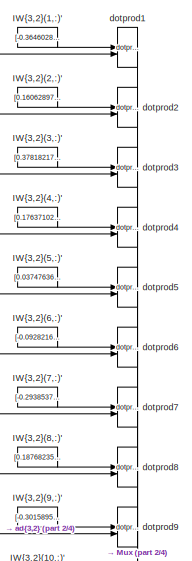
[diagram: Function Fitting Neural Network6/Layer 3/LW{3,2} - part 1/4, top center region]
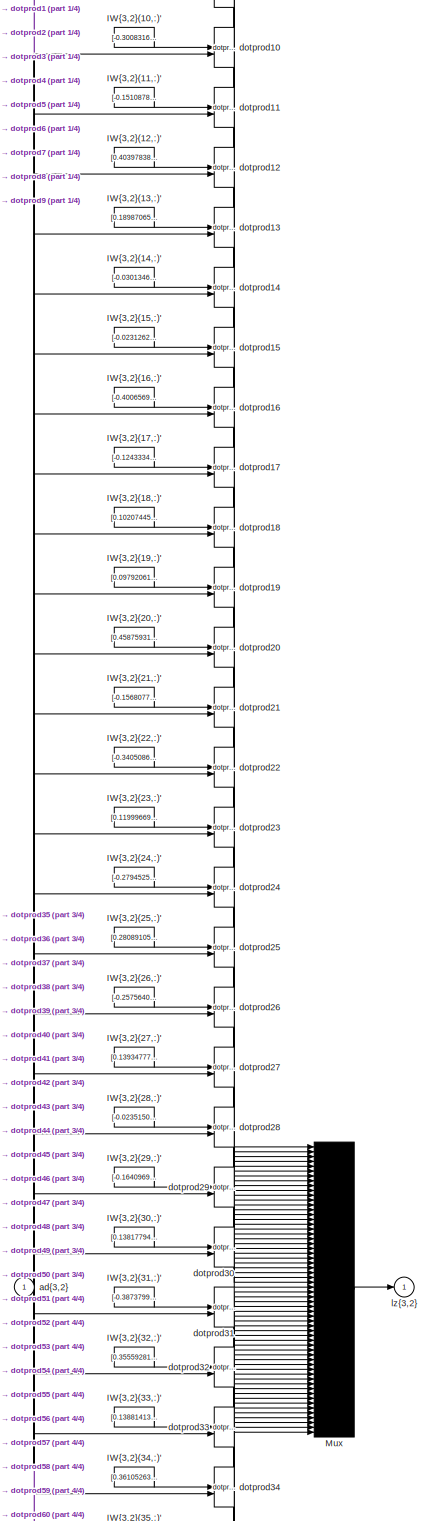
[diagram: Function Fitting Neural Network6/Layer 3/LW{3,2} - part 2/4, full width, middle band]
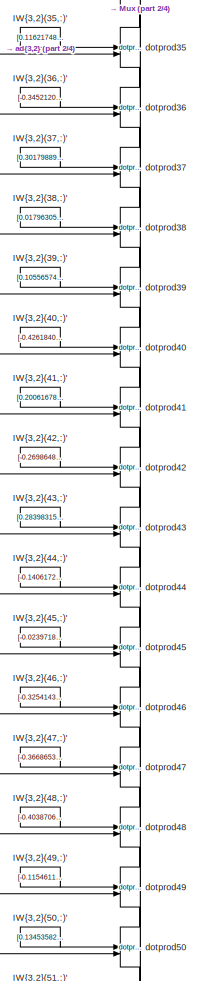
[diagram: Function Fitting Neural Network6/Layer 3/LW{3,2} - part 3/4, bottom center region]
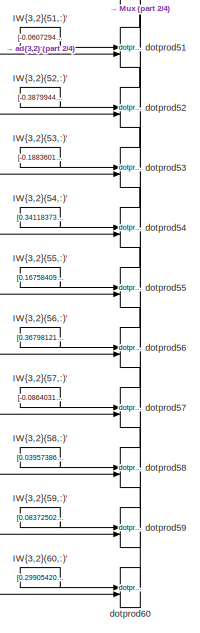
[diagram: Function Fitting Neural Network6/Layer 3/LW{3,2} - part 4/4, bottom center region]
BLOCK [SubSystem] Function Fitting Neural Network6/Layer 3/LW{3,2}
BLOCK [Constant] Function Fitting Neural Network6/Layer 3/LW{3,2}/IW{3,2}(1,:)'
  Value = [-0.364602896497296879996241614207974635064601898193359375;-0.170044211912363130156933266334817744791507720947265625;0.2310441831081140318104871766990981996059417724609375;-0.173478899182692158920104930075467564165592193603515625;-0.32609812596186704691803015521145425736904144287109375;0.1987270386942977251631958779398701153695583343505859375;0.2833082493038532323481604180415160953998565673828125;...<+1912ch>
BLOCK [Constant] Function Fitting Neural Network6/Layer 3/LW{3,2}/IW{3,2}(10,:)'
  Value = [-0.3008316500725591868814490226213820278644561767578125;-0.01540867039703623479762750747568134102039039134979248046875;0.393055322333236201171047241587075404822826385498046875;0.27925624650173397345298553773318417370319366455078125;-0.1783186691195057516079458537205937318503856658935546875;0.1968191810031335309272293443427770398557186126708984375;-0.16345402447638274212593501033552456647157669067...<+1911ch>
BLOCK [Constant] Function Fitting Neural Network6/Layer 3/LW{3,2}/IW{3,2}(11,:)'
  Value = [-0.1510878899858742185902116261786432005465030670166015625;0.0300917295825815396537183943337367963977158069610595703125;-0.256555577642114229774961131624877452850341796875;0.2037077140717588330520726458416902460157871246337890625;0.228432785383799907830137954078963957726955413818359375;0.180310971144754805806087460950948297977447509765625;-0.2486475311820262323880825761079904623329639434814453125...<+1894ch>
BLOCK [Constant] Function Fitting Neural Network6/Layer 3/LW{3,2}/IW{3,2}(12,:)'
  Value = [0.40397838248291650931065532859065569937229156494140625;-0.1735168229078275781152029821896576322615146636962890625;0.06168577215696853521809117637531016953289508819580078125;-0.176012788939750475236678539658896625041961669921875;-0.39830476143119375453949260190711356699466705322265625;-0.1615330551837425854255769763767602853477001190185546875;-0.060002626312108321704474889202174381352961063385009...<+1925ch>
BLOCK [Constant] Function Fitting Neural Network6/Layer 3/LW{3,2}/IW{3,2}(13,:)'
  Value = [0.189870652412797491503937408197089098393917083740234375;-0.0201100447219450771674242872677496052347123622894287109375;-0.402019176382789222845559606867027468979358673095703125;0.1557799570678920220156982168191461823880672454833984375;-0.1802702578179554981918641942684189416468143463134765625;-0.10651517942665400529023145281826145946979522705078125;0.2624595631829234609888601426064269617199897766...<+1923ch>
BLOCK [Constant] Function Fitting Neural Network6/Layer 3/LW{3,2}/IW{3,2}(14,:)'
  Value = [-0.0301346111313483266958002104729530401527881622314453125;-0.1913786719962170812525670271497801877558231353759765625;0.046752125808004175999688101228457526303827762603759765625;-0.21512183839471921142916244207299314439296722412109375;-0.33675240905606784735937253572046756744384765625;0.1256660630784863508235815743319108150899410247802734375;-0.0036200548814464463681650485682439466472715139389038...<+1904ch>
BLOCK [Constant] Function Fitting Neural Network6/Layer 3/LW{3,2}/IW{3,2}(15,:)'
  Value = [-0.0231262345216761665278593085304237320087850093841552734375;-0.170751253404716918371519795982749201357364654541015625;-0.01206185347927000821310894451698914053849875926971435546875;-0.369920097655785318213617074434296227991580963134765625;0.2935957869070080494822150285472162067890167236328125;0.11070346968036250123734731687363819219172000885009765625;-0.50261282241444782403760882516507990658283...<+1909ch>
BLOCK [Constant] Function Fitting Neural Network6/Layer 3/LW{3,2}/IW{3,2}(16,:)'
  Value = [-0.400656931124174053859832156376796774566173553466796875;0.40760030219091192282832025739480741322040557861328125;-0.0265430112102918690231145859570460743270814418792724609375;0.387584340414174499667154805138125084340572357177734375;0.028665165060283930020812448447031783871352672576904296875;-0.29001290894561915223448522738181054592132568359375;0.21029022906105651613550833189947297796607017517089...<+1892ch>
BLOCK [Constant] Function Fitting Neural Network6/Layer 3/LW{3,2}/IW{3,2}(17,:)'
  Value = [-0.124333426496093413238241964791086502373218536376953125;-0.323039860746848150885313089020201005041599273681640625;0.1272438712323727683095597740248194895684719085693359375;0.414373001604879054315944131303695030510425567626953125;-0.09346308807618990133203595860322820954024791717529296875;0.048430744419100009434675513375623268075287342071533203125;-0.298281557143134590237565362258465029299259185...<+1898ch>
BLOCK [Constant] Function Fitting Neural Network6/Layer 3/LW{3,2}/IW{3,2}(18,:)'
  Value = [0.1020744517261951422870680517007713206112384796142578125;0.338542379295493189861332439249963499605655670166015625;0.114809131113857654238330496809794567525386810302734375;-0.1427107705462864195578021053734119050204753875732421875;0.1678925213951330819295293395043700002133846282958984375;-0.177196117495605987013362891957513056695461273193359375;-0.1457370078708127292266283347998978570103645324707...<+1912ch>
BLOCK [Constant] Function Fitting Neural Network6/Layer 3/LW{3,2}/IW{3,2}(19,:)'
  Value = [0.09792061865463370928797104397744988091289997100830078125;0.2450983082071328811313293272178270854055881500244140625;0.052099553201539673674691499627442681230604648590087890625;-0.01871655548621888043303584936438710428774356842041015625;-0.10746111506926088463576007825395208783447742462158203125;0.08724017130518080254120150129892863333225250244140625;0.14489291917707106116530724193580681458115577...<+1913ch>
BLOCK [Constant] Function Fitting Neural Network6/Layer 3/LW{3,2}/IW{3,2}(2,:)'
  Value = [0.1606289740405698329706041249664849601686000823974609375;-0.396116568880878594516303792261169292032718658447265625;-0.00194428838588847478253962552940947716706432402133941650390625;-0.310833662839588853454841910206596367061138153076171875;-0.1192086138191392474805496703993412666022777557373046875;0.1263133871455519308124593180764350108802318572998046875;0.3825954112908515059032765748270321637392...<+1924ch>
BLOCK [Constant] Function Fitting Neural Network6/Layer 3/LW{3,2}/IW{3,2}(20,:)'
  Value = [0.458759314371857629399897859912016429007053375244140625;0.225232670084362596174543114102561958134174346923828125;-0.2395744464316025001959786777661065571010112762451171875;-0.259265927693031972278703278789180330932140350341796875;0.227735075435015310585384895603056065738201141357421875;0.405792436060365357963775068128597922623157501220703125;-0.472395951367660715813912020166753791272640228271484...<+1923ch>
BLOCK [Constant] Function Fitting Neural Network6/Layer 3/LW{3,2}/IW{3,2}(21,:)'
  Value = [-0.156807713018278338523714410257525742053985595703125;-0.063256978096045968218419375261873938143253326416015625;0.32586777214695150650669575043139047920703887939453125;-0.00128151421209129513789637400122956023551523685455322265625;0.381815522477911617471590943750925362110137939453125;-0.336279598775271859611990521443658508360385894775390625;-0.1497138681232301760104519416927359998226165771484375...<+1905ch>
BLOCK [Constant] Function Fitting Neural Network6/Layer 3/LW{3,2}/IW{3,2}(22,:)'
  Value = [-0.3405086099878553707043238318874500691890716552734375;0.295711741492621194016265917525743134319782257080078125;-0.374166857512005124331011529648094438016414642333984375;0.362989027012810938632725310526438988745212554931640625;0.0173132588344213321496223301210193312726914882659912109375;-0.29187852484324350310629370142123661935329437255859375;-0.10833360515882713148716476325716939754784107208251...<+1915ch>
BLOCK [Constant] Function Fitting Neural Network6/Layer 3/LW{3,2}/IW{3,2}(23,:)'
  Value = [0.1199966952429732669482831397544941864907741546630859375;0.124428256151294436282483957256772555410861968994140625;0.2210513672484693825648349729817709885537624359130859375;0.2789840727759216321146595873869955539703369140625;0.223804403597967882522112859078333713114261627197265625;0.12666301239909361076030336334952153265476226806640625;0.166663870914700085190673917168169282376766204833984375;0.34...<+1888ch>
BLOCK [Constant] Function Fitting Neural Network6/Layer 3/LW{3,2}/IW{3,2}(24,:)'
  Value = [-0.27945256212032365539243983221240341663360595703125;0.3772935901117457913045427631004713475704193115234375;0.106580899002195528257885825951234437525272369384765625;0.08170067142594643339048587904471787624061107635498046875;-0.0520519016946627000042013833081000484526157379150390625;-0.138431241123594450659339827325311489403247833251953125;-0.37498018152871603891895802007638849318027496337890625;...<+1886ch>
BLOCK [Constant] Function Fitting Neural Network6/Layer 3/LW{3,2}/IW{3,2}(25,:)'
  Value = [0.28089105743190223574146102691884152591228485107421875;0.1473837441195841868601945634509320370852947235107421875;-0.2644141555561232426185824806452728807926177978515625;-0.0827163014626801917916765205518458969891071319580078125;0.09214794982732697758986972758066258393228054046630859375;0.1191310876898781234700663844705559313297271728515625;-0.49243465065340091824097612516197841614484786987304687...<+1896ch>
BLOCK [Constant] Function Fitting Neural Network6/Layer 3/LW{3,2}/IW{3,2}(26,:)'
  Value = [-0.257564038471342626746007908877800218760967254638671875;-0.4274785371075975337618046978604979813098907470703125;0.56279669547449195921018372246180661022663116455078125;0.1714492961355229827535850972708431072533130645751953125;-0.1419159362913381683402036514962674118578433990478515625;-0.152725784174128464965036755529581569135189056396484375;0.1771556573789394850582112894699093885719776153564453...<+1919ch>
BLOCK [Constant] Function Fitting Neural Network6/Layer 3/LW{3,2}/IW{3,2}(27,:)'
  Value = [0.139347778534094690616740308541920967400074005126953125;0.416990466382604452189042376630823127925395965576171875;0.276242718695348499213793047601939179003238677978515625;-0.263232410003380434826425471328548155725002288818359375;0.329470289907467905887727965819067321717739105224609375;0.360935806068807540913923048719880171120166778564453125;0.128614331263382092318536820130248088389635086059570312...<+1920ch>
BLOCK [Constant] Function Fitting Neural Network6/Layer 3/LW{3,2}/IW{3,2}(28,:)'
  Value = [-0.023515038652872889690659263806082890368998050689697265625;-0.2088826491657853889893914356434834189713001251220703125;-0.016953633130908203618947283075613086111843585968017578125;-0.387209542746805912560859042059746570885181427001953125;-0.43333393224825889067375328522757627069950103759765625;-0.12892364561616143081579366480582393705844879150390625;-0.0553880680122098428830312855097872670739889...<+1898ch>
BLOCK [Constant] Function Fitting Neural Network6/Layer 3/LW{3,2}/IW{3,2}(29,:)'
  Value = [-0.1640969715273233597851998410988016985356807708740234375;0.046307976455729114861892270482712774537503719329833984375;-0.035050123709120355186552586701509426347911357879638671875;0.1692422583870236418857047056008013896644115447998046875;0.0947732002971124198875685351595166139304637908935546875;0.109672484792084079519014494508155621588230133056640625;-0.0582850392753978263638003909363760612905025...<+1913ch>
BLOCK [Constant] Function Fitting Neural Network6/Layer 3/LW{3,2}/IW{3,2}(3,:)'
  Value = [0.378182176179259033066415440771379508078098297119140625;-0.059369841489708648218925901574039016850292682647705078125;0.398562700068256281493717096964246593415737152099609375;0.07795322327062607914438530087863910011947154998779296875;-0.1939376138764303536543565087413298897445201873779296875;-0.1331225675382935735857614645283319987356662750244140625;0.201611572411598827248013776625157333910465240...<+1912ch>
BLOCK [Constant] Function Fitting Neural Network6/Layer 3/LW{3,2}/IW{3,2}(30,:)'
  Value = [0.1381779479898653517633277942877612076699733734130859375;0.411793974365769976930806706150178797543048858642578125;-0.32973785060972093940989680049824528396129608154296875;0.276516312613544423815170603120350278913974761962890625;0.2484760259393649362014144799104542471468448638916015625;0.251271603763074835580226817910443060100078582763671875;0.28891290838625194314914779170067049562931060791015625...<+1902ch>
BLOCK [Constant] Function Fitting Neural Network6/Layer 3/LW{3,2}/IW{3,2}(31,:)'
  Value = [-0.3873799167706415413903187072719447314739227294921875;-0.149669127126388634696496637843665666878223419189453125;0.01242209242296540318284403525694870040751993656158447265625;-0.299450933940570929170377212358289398252964019775390625;0.282410393380889968018010449668508954346179962158203125;-0.14474224514208378078450323300785385072231292724609375;-0.273216482361101742348807874805061146616935729980...<+1912ch>
BLOCK [Constant] Function Fitting Neural Network6/Layer 3/LW{3,2}/IW{3,2}(32,:)'
  Value = [0.355592811387193064032175016109249554574489593505859375;-0.0270752491745157135294430617022953811101615428924560546875;-0.315759133284233828309339742190786637365818023681640625;-0.12477391410369087498821727422182448208332061767578125;0.27440633895726385116375922734732739627361297607421875;0.406696275161975595580088338465429842472076416015625;0.64698630042041094245774957016692496836185455322265625...<+1905ch>
BLOCK [Constant] Function Fitting Neural Network6/Layer 3/LW{3,2}/IW{3,2}(33,:)'
  Value = [0.1388141305014416737595439599317614920437335968017578125;-0.18139611600550409331589207795332185924053192138671875;-0.14056086928310407291320416334201581776142120361328125;-0.09938906119812652983913636717261397279798984527587890625;-0.1739411688124949950662312403437681496143341064453125;-0.27005705873837360098121962437289766967296600341796875;-0.259891537722827026257732541125733405351638793945312...<+1897ch>
BLOCK [Constant] Function Fitting Neural Network6/Layer 3/LW{3,2}/IW{3,2}(34,:)'
  Value = [0.361052637228278794356839398460579104721546173095703125;0.051036591590464086554135292317369021475315093994140625;-0.2123522968002876376569787453263415955007076263427734375;0.44981053058411368805735719433869235217571258544921875;0.3885940020574973896572146259131841361522674560546875;0.01089637977750812676547287338735259254463016986846923828125;0.445693245264021542517696161667117848992347717285156...<+1910ch>
BLOCK [Constant] Function Fitting Neural Network6/Layer 3/LW{3,2}/IW{3,2}(35,:)'
  Value = [0.116217486299938166371958914169226773083209991455078125;0.296428625112309607203542327624745666980743408203125;-0.349274847586760917028669837236520834267139434814453125;-0.2307923262726764013219593607573187910020351409912109375;0.37682905715601855423102506392751820385456085205078125;0.351431110293504378461193482507951557636260986328125;-0.361064996283594175086051336620585061609745025634765625;-0....<+1880ch>
BLOCK [Constant] Function Fitting Neural Network6/Layer 3/LW{3,2}/IW{3,2}(36,:)'
  Value = [-0.345212077049167842535126737857353873550891876220703125;0.383518934328523186660930832658777944743633270263671875;0.0161728443162161457380410212181232054717838764190673828125;0.099568419024063936628721194210811518132686614990234375;-0.40793483652262263472465519953402690589427947998046875;-0.292022287476269515327231829360243864357471466064453125;-0.350504951340954939986715999111765995621681213378...<+1914ch>
BLOCK [Constant] Function Fitting Neural Network6/Layer 3/LW{3,2}/IW{3,2}(37,:)'
  Value = [0.301798890658039997703099288628436625003814697265625;-0.3894499485476077271783879041322506964206695556640625;0.206014680418411588735949635520228184759616851806640625;-0.049318383991031555790840457120793871581554412841796875;0.04752383571489378344399057141345110721886157989501953125;-0.1787310721230716825669304625989752821624279022216796875;-0.28306760145880260903794578553061001002788543701171875...<+1909ch>
BLOCK [Constant] Function Fitting Neural Network6/Layer 3/LW{3,2}/IW{3,2}(38,:)'
  Value = [0.0179630543301378016451952390752921928651630878448486328125;-0.10347571302470594256650571196587407030165195465087890625;-0.068057069528053848461723873697337694466114044189453125;-0.187474737844750716231345677442732267081737518310546875;-0.12274358656777410725435828453555586747825145721435546875;-0.262694575993116130607774039162904955446720123291015625;-0.05519914199767134849183847222775511909276...<+1913ch>
BLOCK [Constant] Function Fitting Neural Network6/Layer 3/LW{3,2}/IW{3,2}(39,:)'
  Value = [0.10556574773947156875575359435970312915742397308349609375;-0.316324808640195354048074705133331008255481719970703125;0.159643093197783192405125873847282491624355316162109375;-0.301065131134464980533493871917016804218292236328125;0.40463261215126211656212262823828496038913726806640625;0.12014896443121785007956958679642411880195140838623046875;-0.2880673383024688338771568396623479202389717102050781...<+1911ch>
BLOCK [Constant] Function Fitting Neural Network6/Layer 3/LW{3,2}/IW{3,2}(4,:)'
  Value = [0.17637102846900354347070560834254138171672821044921875;-0.362022447094777655163255758452578447759151458740234375;-0.000715236889921150829907414703257018118165433406829833984375;-0.411829898034598074207934814694453962147235870361328125;-0.017145737650893937142893008740429650060832500457763671875;-0.273455128362020183363512160212849266827106475830078125;0.170324259794575022519680373989103827625513...<+1907ch>
BLOCK [Constant] Function Fitting Neural Network6/Layer 3/LW{3,2}/IW{3,2}(40,:)'
  Value = [-0.426184015613656652643470579278073273599147796630859375;-0.3293128544710384186799956296454183757305145263671875;0.148039543868762224487767298342077992856502532958984375;-0.2277654443133579065250415851551224477589130401611328125;-0.0212118697310463670546720749143787543289363384246826171875;-0.05343813628631220724596317950272350572049617767333984375;0.137427830273396528459883825235010590404272079...<+1912ch>
BLOCK [Constant] Function Fitting Neural Network6/Layer 3/LW{3,2}/IW{3,2}(41,:)'
  Value = [0.2006167849602438491007916354647022671997547149658203125;0.03917173821595711091791969238329329527914524078369140625;0.1521688877733451683571530566041474230587482452392578125;0.09402674152716440636456951551735983230173587799072265625;-0.1192180616797612613400048076073289848864078521728515625;-0.284248070913112160784663728918530978262424468994140625;-0.240643542362804635503792383133259136229753494...<+1924ch>
BLOCK [Constant] Function Fitting Neural Network6/Layer 3/LW{3,2}/IW{3,2}(42,:)'
  Value = [-0.26986488105363315437301707788719795644283294677734375;0.3160914610120311163399264842155389487743377685546875;0.28402674597059707206625489561702124774456024169921875;0.047192673312051243439402270496429991908371448516845703125;0.433899032652193816783636748368735425174236297607421875;0.051690958185301179306225805021313135512173175811767578125;0.3439587177581537869031080845161341130733489990234375...<+1917ch>
BLOCK [Constant] Function Fitting Neural Network6/Layer 3/LW{3,2}/IW{3,2}(43,:)'
  Value = [0.283983154211154220636359468699083663523197174072265625;0.338654520163873373750362816281267441809177398681640625;0.331796454759366976627887879658374004065990447998046875;0.227083153112235314186051482465700246393680572509765625;-0.2755535257831025486296994131407700479030609130859375;-0.337624149401976769713229487024364061653614044189453125;-0.2533354189517000865095042172470130026340484619140625;-...<+1909ch>
BLOCK [Constant] Function Fitting Neural Network6/Layer 3/LW{3,2}/IW{3,2}(44,:)'
  Value = [-0.140617297067322954973178639193065464496612548828125;-0.41858095287472407708406763049424625933170318603515625;0.3019898463383074993515720052528195083141326904296875;0.27175661252524097033500538600492291152477264404296875;0.005299143841023627558850517260680135223083198070526123046875;-0.207080979144680987769078228666330687701702117919921875;0.21109617358984700263846434609149582684040069580078125...<+1921ch>
BLOCK [Constant] Function Fitting Neural Network6/Layer 3/LW{3,2}/IW{3,2}(45,:)'
  Value = [-0.0239718707928930178929771699358752812258899211883544921875;0.108605703747375770262806327082216739654541015625;-0.00403386259727440098232786880316780298016965389251708984375;0.373792535632712474846783834436791948974132537841796875;-0.14251202526832795758338079394889064133167266845703125;0.0190292673136977751047194118427796638570725917816162109375;0.1841948937589716339680023793334839865565299987...<+1906ch>
BLOCK [Constant] Function Fitting Neural Network6/Layer 3/LW{3,2}/IW{3,2}(46,:)'
  Value = [-0.325414303748773503510705040753236971795558929443359375;-0.2739400930924473787086981246829964220523834228515625;0.2406283980662735910716065745873493142426013946533203125;0.210015073943385033317099441774189472198486328125;-0.25120629348471634756378989550285041332244873046875;0.036856016478260276991729682549703284166753292083740234375;0.1427747307640949425699972152870032005012035369873046875;-0.3...<+1912ch>
BLOCK [Constant] Function Fitting Neural Network6/Layer 3/LW{3,2}/IW{3,2}(47,:)'
  Value = [-0.366865307377839233726746215324965305626392364501953125;-0.436699976377580234565556338566238991916179656982421875;-0.00683437110063601915843634060365729965269565582275390625;-0.216609741505497888081066548693343065679073333740234375;0.11611808434472235818102348048341809771955013275146484375;0.1204036942527167142191757420732756145298480987548828125;-0.112261773679661933100781823213765164837241172...<+1919ch>
BLOCK [Constant] Function Fitting Neural Network6/Layer 3/LW{3,2}/IW{3,2}(48,:)'
  Value = [-0.403870696178407317944447640911675989627838134765625;-0.286158948871658547208340905854129232466220855712890625;0.291050432659353319753137157022138126194477081298828125;-0.010563096879851664733340754764867597259581089019775390625;0.1749022849051259098640542788416496478021144866943359375;-0.051743112915437816656805125603568740189075469970703125;-0.2017440588736801876379445275233592838048934936523...<+1912ch>
BLOCK [Constant] Function Fitting Neural Network6/Layer 3/LW{3,2}/IW{3,2}(49,:)'
  Value = [-0.11546119540760142740953853035534848459064960479736328125;-0.3469798891061006695935020616161637008190155029296875;0.419479461083547666699899991726852022111415863037109375;0.35079143615687635726629878263338468968868255615234375;-0.039130592033057305656473801036554505117237567901611328125;-0.376794663279601704797272532232454977929592132568359375;-0.343458020206045933075955645108479075133800506591...<+1914ch>
BLOCK [Constant] Function Fitting Neural Network6/Layer 3/LW{3,2}/IW{3,2}(5,:)'
  Value = [0.0374763602645626081599772305708029307425022125244140625;-0.008832097811115213747967800372862257063388824462890625;-0.26185004130054256865633988127228803932666778564453125;-0.3008168344689015061277359563973732292652130126953125;0.389477127749690676949967382824979722499847412109375;0.051726592800248792636264028033110662363469600677490234375;0.158141622054689623411150023457594215869903564453125;-0...<+1887ch>
BLOCK [Constant] Function Fitting Neural Network6/Layer 3/LW{3,2}/IW{3,2}(50,:)'
  Value = [0.1345358263903510265269147794242599047720432281494140625;0.377442967954152497345177152965334244072437286376953125;0.3970690947487656163872316028573550283908843994140625;-0.271170343373074718140713912362116388976573944091796875;0.1592838441558034612288707876359694637358188629150390625;-0.07938981868367785132978298179295961745083332061767578125;-0.27496640226359603254024932539323344826698303222656...<+1885ch>
BLOCK [Constant] Function Fitting Neural Network6/Layer 3/LW{3,2}/IW{3,2}(51,:)'
  Value = [-0.06072946668677321746532271617979859001934528350830078125;0.1926031444904489908775957474063034169375896453857421875;-0.255672906869710836463838177223806269466876983642578125;0.308589667481151408434669747293810360133647918701171875;0.3184887534519076357497624485404230654239654541015625;-0.1567666361795555796110335222692810930311679840087890625;-0.3125370264376403639516865951009094715118408203125...<+1900ch>
BLOCK [Constant] Function Fitting Neural Network6/Layer 3/LW{3,2}/IW{3,2}(52,:)'
  Value = [-0.387994492482897690432963599960203282535076141357421875;0.267384889122272928485557486055768094956874847412109375;-0.0311307936490105192917088317017260123975574970245361328125;-0.273817283232294983452703718285192735493183135986328125;-0.24873741559027162661976717572542838752269744873046875;-0.249746116292299424888057046700851060450077056884765625;0.21071804516544423435675525979604572057723999023...<+1893ch>
BLOCK [Constant] Function Fitting Neural Network6/Layer 3/LW{3,2}/IW{3,2}(53,:)'
  Value = [-0.188360192254896918750972645284491591155529022216796875;-0.34792097275202282791184416055330075323581695556640625;-0.2211640799046638294900191112901666201651096343994140625;-0.2187370197300751162305942898456123657524585723876953125;-0.039402408453780575492420013006267254240810871124267578125;0.28512810967554302887805306454538367688655853271484375;0.27895993721287426492239092112868092954158782958...<+1893ch>
BLOCK [Constant] Function Fitting Neural Network6/Layer 3/LW{3,2}/IW{3,2}(54,:)'
  Value = [0.341183730102174009868321036265115253627300262451171875;0.327932210712989669065819953175378032028675079345703125;-0.1614986452981600761891201045727939344942569732666015625;-0.2674649146908290031632304817321710288524627685546875;-0.123277357128547426778908402411616407334804534912109375;-0.402441154831385039525315505670732818543910980224609375;0.0789154701173380157541714652325026690959930419921875...<+1909ch>
BLOCK [Constant] Function Fitting Neural Network6/Layer 3/LW{3,2}/IW{3,2}(55,:)'
  Value = [0.1675840907037584315286693481539259664714336395263671875;0.32819624238591804665787776684737764298915863037109375;-0.28385130912226685939714343476225621998310089111328125;-0.0236859621015656461595622062077381997369229793548583984375;-0.27211873714863965556531866241130046546459197998046875;-0.381438406851952460652199761170777492225170135498046875;0.1647591767892556957608718448682338930666446685791...<+1933ch>
BLOCK [Constant] Function Fitting Neural Network6/Layer 3/LW{3,2}/IW{3,2}(56,:)'
  Value = [0.36798121056596755362733119909535162150859832763671875;0.06336128227175923111058608583334716968238353729248046875;0.019255668015987215113682395895011723041534423828125;-0.44418916239079297980651972466148436069488525390625;-0.357228807908143208837969950764090754091739654541015625;0.2377203782984309565762259808252565562725067138671875;-0.324074027533678477031031661681481637060642242431640625;-0.15...<+1890ch>
BLOCK [Constant] Function Fitting Neural Network6/Layer 3/LW{3,2}/IW{3,2}(57,:)'
  Value = [-0.08640313595194705487134712029728689230978488922119140625;0.154456299980671063476478366283117793500423431396484375;0.254633277720336448357585368285072036087512969970703125;0.407448529721559482563719711833982728421688079833984375;-0.32688969117806288000593895048950798809528350830078125;-0.308982217100306100210360682467580772936344146728515625;0.496993189239411270463619985093828290700912475585937...<+1895ch>
BLOCK [Constant] Function Fitting Neural Network6/Layer 3/LW{3,2}/IW{3,2}(58,:)'
  Value = [0.039573868170046926084904015397114562802016735076904296875;-0.062006230733316604342153510742718935944139957427978515625;0.25277995479620518626262537509319372475147247314453125;-0.0065254711540947037129445362779733841307461261749267578125;0.285115836218644169708369418003712780773639678955078125;0.05892100807633431081011821106585557572543621063232421875;0.076218167931146732496650031407625647261738...<+1899ch>
BLOCK [Constant] Function Fitting Neural Network6/Layer 3/LW{3,2}/IW{3,2}(59,:)'
  Value = [0.0837250270269837282288705182509147562086582183837890625;-0.1294491112326289494749431696618557907640933990478515625;-0.04188276768274412642512061211164109408855438232421875;0.423308019605027452403334109476418234407901763916015625;0.4893342142566208252674186951480805873870849609375;0.218100103658960209340733626959263347089290618896484375;-0.30653734512341779261390684041543863713741302490234375;-0...<+1909ch>
BLOCK [Constant] Function Fitting Neural Network6/Layer 3/LW{3,2}/IW{3,2}(6,:)'
  Value = [-0.09282165520974217098881808851729147136211395263671875;0.0035189186574898496766283795267327150213532149791717529296875;0.12668782956492663505088103192974813282489776611328125;-0.32597556054969201166926495716325007379055023193359375;0.11702085171126468121638453112609568051993846893310546875;-0.2172623330429835075694455781558644957840442657470703125;0.071057574996931244237785563200304750353097915...<+1914ch>
BLOCK [Constant] Function Fitting Neural Network6/Layer 3/LW{3,2}/IW{3,2}(60,:)'
  Value = [0.29905420392156101261349476772011257708072662353515625;0.29237517968302995097218399678240530192852020263671875;0.36621987264815647478144455817528069019317626953125;-0.349952707355728531712912854345631785690784454345703125;0.1629475728720827520934477661285200156271457672119140625;0.03693420583494862186046958640872617252171039581298828125;-0.04238320603243112688618410288654558826237916946411132812...<+1907ch>
BLOCK [Constant] Function Fitting Neural Network6/Layer 3/LW{3,2}/IW{3,2}(7,:)'
  Value = [-0.29385375298861016180040905965142883360385894775390625;0.295575633349259569992995011489256285130977630615234375;-0.322707014570827677157893731418880634009838104248046875;0.1717971049769232150250530821722350083291530609130859375;-0.36532586454838378298148882095119915902614593505859375;-0.14753697740187743381312657220405526459217071533203125;-0.2964814464245003611253537201264407485723495483398437...<+1896ch>
BLOCK [Constant] Function Fitting Neural Network6/Layer 3/LW{3,2}/IW{3,2}(8,:)'
  Value = [0.1876823554815027772502133984744432382285594940185546875;0.052788112014488956791335994012115406803786754608154296875;0.021887612019254092110553955308205331675708293914794921875;-0.09550343314386385007441759853463736362755298614501953125;0.3690901054075335085968845305615104734897613525390625;-0.179038921638248138545890242312452755868434906005859375;-0.437808928184721612986152194935129955410957336...<+1917ch>
BLOCK [Constant] Function Fitting Neural Network6/Layer 3/LW{3,2}/IW{3,2}(9,:)'
  Value = [-0.301589534218633381623675404625828377902507781982421875;0.301972200429220405393238024771562777459621429443359375;-0.40404461334744234957128128371550701558589935302734375;-0.050266034341536681984141665679999277926981449127197265625;0.38784883496576849637449413421563804149627685546875;0.2285794424655641365884406468467204831540584564208984375;0.38777880001805709042628222960047423839569091796875;-0...<+1914ch>
BLOCK [Mux] Function Fitting Neural Network6/Layer 3/LW{3,2}/Mux
  Inputs = 60
BLOCK [Inport] Function Fitting Neural Network6/Layer 3/LW{3,2}/ad{3,2}
  PortDimensions = 40
BLOCK [Reference] Function Fitting Neural Network6/Layer 3/LW{3,2}/dotprod1  REF=neural/Weight Functions/dotprod
  SourceBlock = neural/Weight Functions/dotprod
  SourceType = DOTPROD
BLOCK [Reference] Function Fitting Neural Network6/Layer 3/LW{3,2}/dotprod10  REF=neural/Weight Functions/dotprod
  SourceBlock = neural/Weight Functions/dotprod
  SourceType = DOTPROD
BLOCK [Reference] Function Fitting Neural Network6/Layer 3/LW{3,2}/dotprod11  REF=neural/Weight Functions/dotprod
  SourceBlock = neural/Weight Functions/dotprod
  SourceType = DOTPROD
BLOCK [Reference] Function Fitting Neural Network6/Layer 3/LW{3,2}/dotprod12  REF=neural/Weight Functions/dotprod
  SourceBlock = neural/Weight Functions/dotprod
  SourceType = DOTPROD
BLOCK [Reference] Function Fitting Neural Network6/Layer 3/LW{3,2}/dotprod13  REF=neural/Weight Functions/dotprod
  SourceBlock = neural/Weight Functions/dotprod
  SourceType = DOTPROD
BLOCK [Reference] Function Fitting Neural Network6/Layer 3/LW{3,2}/dotprod14  REF=neural/Weight Functions/dotprod
  SourceBlock = neural/Weight Functions/dotprod
  SourceType = DOTPROD
BLOCK [Reference] Function Fitting Neural Network6/Layer 3/LW{3,2}/dotprod15  REF=neural/Weight Functions/dotprod
  SourceBlock = neural/Weight Functions/dotprod
  SourceType = DOTPROD
BLOCK [Reference] Function Fitting Neural Network6/Layer 3/LW{3,2}/dotprod16  REF=neural/Weight Functions/dotprod
  SourceBlock = neural/Weight Functions/dotprod
  SourceType = DOTPROD
BLOCK [Reference] Function Fitting Neural Network6/Layer 3/LW{3,2}/dotprod17  REF=neural/Weight Functions/dotprod
  SourceBlock = neural/Weight Functions/dotprod
  SourceType = DOTPROD
BLOCK [Reference] Function Fitting Neural Network6/Layer 3/LW{3,2}/dotprod18  REF=neural/Weight Functions/dotprod
  SourceBlock = neural/Weight Functions/dotprod
  SourceType = DOTPROD
BLOCK [Reference] Function Fitting Neural Network6/Layer 3/LW{3,2}/dotprod19  REF=neural/Weight Functions/dotprod
  SourceBlock = neural/Weight Functions/dotprod
  SourceType = DOTPROD
BLOCK [Reference] Function Fitting Neural Network6/Layer 3/LW{3,2}/dotprod2  REF=neural/Weight Functions/dotprod
  SourceBlock = neural/Weight Functions/dotprod
  SourceType = DOTPROD
BLOCK [Reference] Function Fitting Neural Network6/Layer 3/LW{3,2}/dotprod20  REF=neural/Weight Functions/dotprod
  SourceBlock = neural/Weight Functions/dotprod
  SourceType = DOTPROD
BLOCK [Reference] Function Fitting Neural Network6/Layer 3/LW{3,2}/dotprod21  REF=neural/Weight Functions/dotprod
  SourceBlock = neural/Weight Functions/dotprod
  SourceType = DOTPROD
BLOCK [Reference] Function Fitting Neural Network6/Layer 3/LW{3,2}/dotprod22  REF=neural/Weight Functions/dotprod
  SourceBlock = neural/Weight Functions/dotprod
  SourceType = DOTPROD
BLOCK [Reference] Function Fitting Neural Network6/Layer 3/LW{3,2}/dotprod23  REF=neural/Weight Functions/dotprod
  SourceBlock = neural/Weight Functions/dotprod
  SourceType = DOTPROD
BLOCK [Reference] Function Fitting Neural Network6/Layer 3/LW{3,2}/dotprod24  REF=neural/Weight Functions/dotprod
  SourceBlock = neural/Weight Functions/dotprod
  SourceType = DOTPROD
BLOCK [Reference] Function Fitting Neural Network6/Layer 3/LW{3,2}/dotprod25  REF=neural/Weight Functions/dotprod
  SourceBlock = neural/Weight Functions/dotprod
  SourceType = DOTPROD
BLOCK [Reference] Function Fitting Neural Network6/Layer 3/LW{3,2}/dotprod26  REF=neural/Weight Functions/dotprod
  SourceBlock = neural/Weight Functions/dotprod
  SourceType = DOTPROD
BLOCK [Reference] Function Fitting Neural Network6/Layer 3/LW{3,2}/dotprod27  REF=neural/Weight Functions/dotprod
  SourceBlock = neural/Weight Functions/dotprod
  SourceType = DOTPROD
BLOCK [Reference] Function Fitting Neural Network6/Layer 3/LW{3,2}/dotprod28  REF=neural/Weight Functions/dotprod
  SourceBlock = neural/Weight Functions/dotprod
  SourceType = DOTPROD
BLOCK [Reference] Function Fitting Neural Network6/Layer 3/LW{3,2}/dotprod29  REF=neural/Weight Functions/dotprod
  SourceBlock = neural/Weight Functions/dotprod
  SourceType = DOTPROD
BLOCK [Reference] Function Fitting Neural Network6/Layer 3/LW{3,2}/dotprod3  REF=neural/Weight Functions/dotprod
  SourceBlock = neural/Weight Functions/dotprod
  SourceType = DOTPROD
BLOCK [Reference] Function Fitting Neural Network6/Layer 3/LW{3,2}/dotprod30  REF=neural/Weight Functions/dotprod
  SourceBlock = neural/Weight Functions/dotprod
  SourceType = DOTPROD
BLOCK [Reference] Function Fitting Neural Network6/Layer 3/LW{3,2}/dotprod31  REF=neural/Weight Functions/dotprod
  SourceBlock = neural/Weight Functions/dotprod
  SourceType = DOTPROD
BLOCK [Reference] Function Fitting Neural Network6/Layer 3/LW{3,2}/dotprod32  REF=neural/Weight Functions/dotprod
  SourceBlock = neural/Weight Functions/dotprod
  SourceType = DOTPROD
BLOCK [Reference] Function Fitting Neural Network6/Layer 3/LW{3,2}/dotprod33  REF=neural/Weight Functions/dotprod
  SourceBlock = neural/Weight Functions/dotprod
  SourceType = DOTPROD
BLOCK [Reference] Function Fitting Neural Network6/Layer 3/LW{3,2}/dotprod34  REF=neural/Weight Functions/dotprod
  SourceBlock = neural/Weight Functions/dotprod
  SourceType = DOTPROD
BLOCK [Reference] Function Fitting Neural Network6/Layer 3/LW{3,2}/dotprod35  REF=neural/Weight Functions/dotprod
  SourceBlock = neural/Weight Functions/dotprod
  SourceType = DOTPROD
BLOCK [Reference] Function Fitting Neural Network6/Layer 3/LW{3,2}/dotprod36  REF=neural/Weight Functions/dotprod
  SourceBlock = neural/Weight Functions/dotprod
  SourceType = DOTPROD
BLOCK [Reference] Function Fitting Neural Network6/Layer 3/LW{3,2}/dotprod37  REF=neural/Weight Functions/dotprod
  SourceBlock = neural/Weight Functions/dotprod
  SourceType = DOTPROD
BLOCK [Reference] Function Fitting Neural Network6/Layer 3/LW{3,2}/dotprod38  REF=neural/Weight Functions/dotprod
  SourceBlock = neural/Weight Functions/dotprod
  SourceType = DOTPROD
BLOCK [Reference] Function Fitting Neural Network6/Layer 3/LW{3,2}/dotprod39  REF=neural/Weight Functions/dotprod
  SourceBlock = neural/Weight Functions/dotprod
  SourceType = DOTPROD
BLOCK [Reference] Function Fitting Neural Network6/Layer 3/LW{3,2}/dotprod4  REF=neural/Weight Functions/dotprod
  SourceBlock = neural/Weight Functions/dotprod
  SourceType = DOTPROD
BLOCK [Reference] Function Fitting Neural Network6/Layer 3/LW{3,2}/dotprod40  REF=neural/Weight Functions/dotprod
  SourceBlock = neural/Weight Functions/dotprod
  SourceType = DOTPROD
BLOCK [Reference] Function Fitting Neural Network6/Layer 3/LW{3,2}/dotprod41  REF=neural/Weight Functions/dotprod
  SourceBlock = neural/Weight Functions/dotprod
  SourceType = DOTPROD
BLOCK [Reference] Function Fitting Neural Network6/Layer 3/LW{3,2}/dotprod42  REF=neural/Weight Functions/dotprod
  SourceBlock = neural/Weight Functions/dotprod
  SourceType = DOTPROD
BLOCK [Reference] Function Fitting Neural Network6/Layer 3/LW{3,2}/dotprod43  REF=neural/Weight Functions/dotprod
  SourceBlock = neural/Weight Functions/dotprod
  SourceType = DOTPROD
BLOCK [Reference] Function Fitting Neural Network6/Layer 3/LW{3,2}/dotprod44  REF=neural/Weight Functions/dotprod
  SourceBlock = neural/Weight Functions/dotprod
  SourceType = DOTPROD
BLOCK [Reference] Function Fitting Neural Network6/Layer 3/LW{3,2}/dotprod45  REF=neural/Weight Functions/dotprod
  SourceBlock = neural/Weight Functions/dotprod
  SourceType = DOTPROD
BLOCK [Reference] Function Fitting Neural Network6/Layer 3/LW{3,2}/dotprod46  REF=neural/Weight Functions/dotprod
  SourceBlock = neural/Weight Functions/dotprod
  SourceType = DOTPROD
BLOCK [Reference] Function Fitting Neural Network6/Layer 3/LW{3,2}/dotprod47  REF=neural/Weight Functions/dotprod
  SourceBlock = neural/Weight Functions/dotprod
  SourceType = DOTPROD
BLOCK [Reference] Function Fitting Neural Network6/Layer 3/LW{3,2}/dotprod48  REF=neural/Weight Functions/dotprod
  SourceBlock = neural/Weight Functions/dotprod
  SourceType = DOTPROD
BLOCK [Reference] Function Fitting Neural Network6/Layer 3/LW{3,2}/dotprod49  REF=neural/Weight Functions/dotprod
  SourceBlock = neural/Weight Functions/dotprod
  SourceType = DOTPROD
BLOCK [Reference] Function Fitting Neural Network6/Layer 3/LW{3,2}/dotprod5  REF=neural/Weight Functions/dotprod
  SourceBlock = neural/Weight Functions/dotprod
  SourceType = DOTPROD
BLOCK [Reference] Function Fitting Neural Network6/Layer 3/LW{3,2}/dotprod50  REF=neural/Weight Functions/dotprod
  SourceBlock = neural/Weight Functions/dotprod
  SourceType = DOTPROD
BLOCK [Reference] Function Fitting Neural Network6/Layer 3/LW{3,2}/dotprod51  REF=neural/Weight Functions/dotprod
  SourceBlock = neural/Weight Functions/dotprod
  SourceType = DOTPROD
BLOCK [Reference] Function Fitting Neural Network6/Layer 3/LW{3,2}/dotprod52  REF=neural/Weight Functions/dotprod
  SourceBlock = neural/Weight Functions/dotprod
  SourceType = DOTPROD
BLOCK [Reference] Function Fitting Neural Network6/Layer 3/LW{3,2}/dotprod53  REF=neural/Weight Functions/dotprod
  SourceBlock = neural/Weight Functions/dotprod
  SourceType = DOTPROD
BLOCK [Reference] Function Fitting Neural Network6/Layer 3/LW{3,2}/dotprod54  REF=neural/Weight Functions/dotprod
  SourceBlock = neural/Weight Functions/dotprod
  SourceType = DOTPROD
BLOCK [Reference] Function Fitting Neural Network6/Layer 3/LW{3,2}/dotprod55  REF=neural/Weight Functions/dotprod
  SourceBlock = neural/Weight Functions/dotprod
  SourceType = DOTPROD
BLOCK [Reference] Function Fitting Neural Network6/Layer 3/LW{3,2}/dotprod56  REF=neural/Weight Functions/dotprod
  SourceBlock = neural/Weight Functions/dotprod
  SourceType = DOTPROD
BLOCK [Reference] Function Fitting Neural Network6/Layer 3/LW{3,2}/dotprod57  REF=neural/Weight Functions/dotprod
  SourceBlock = neural/Weight Functions/dotprod
  SourceType = DOTPROD
BLOCK [Reference] Function Fitting Neural Network6/Layer 3/LW{3,2}/dotprod58  REF=neural/Weight Functions/dotprod
  SourceBlock = neural/Weight Functions/dotprod
  SourceType = DOTPROD
BLOCK [Reference] Function Fitting Neural Network6/Layer 3/LW{3,2}/dotprod59  REF=neural/Weight Functions/dotprod
  SourceBlock = neural/Weight Functions/dotprod
  SourceType = DOTPROD
BLOCK [Reference] Function Fitting Neural Network6/Layer 3/LW{3,2}/dotprod6  REF=neural/Weight Functions/dotprod
  SourceBlock = neural/Weight Functions/dotprod
  SourceType = DOTPROD
BLOCK [Reference] Function Fitting Neural Network6/Layer 3/LW{3,2}/dotprod60  REF=neural/Weight Functions/dotprod
  SourceBlock = neural/Weight Functions/dotprod
  SourceType = DOTPROD
BLOCK [Reference] Function Fitting Neural Network6/Layer 3/LW{3,2}/dotprod7  REF=neural/Weight Functions/dotprod
  SourceBlock = neural/Weight Functions/dotprod
  SourceType = DOTPROD
BLOCK [Reference] Function Fitting Neural Network6/Layer 3/LW{3,2}/dotprod8  REF=neural/Weight Functions/dotprod
  SourceBlock = neural/Weight Functions/dotprod
  SourceType = DOTPROD
BLOCK [Reference] Function Fitting Neural Network6/Layer 3/LW{3,2}/dotprod9  REF=neural/Weight Functions/dotprod
  SourceBlock = neural/Weight Functions/dotprod
  SourceType = DOTPROD
BLOCK [Outport] Function Fitting Neural Network6/Layer 3/LW{3,2}/lz{3,2}
BLOCK [Inport] Function Fitting Neural Network6/Layer 3/a{2} 
  PortDimensions = 40
BLOCK [Outport] Function Fitting Neural Network6/Layer 3/a{3}
  InitialOutput = [0;0;0;0;0;0;0;0;0;0;0;0;0;0;0;0;0;0;0;0;0;0;0;0;0;0;0;0;0;0;0;0;0;0;0;0;0;0;0;0;0;0;0;0;0;0;0;0;0;0;0;0;0;0;0;0;0;0;0;0]
BLOCK [Constant] Function Fitting Neural Network6/Layer 3/b{3}
  Value = [1.4913450779621026942578509988379664719104766845703125;-1.4934540059364922459650415476062335073947906494140625;-1.4579079117855844316409275052137672901153564453125;-1.386214335526962937450434765196405351161956787109375;-1.3575810643802868060703303854097612202167510986328125;1.3101663106891223709027372024138458073139190673828125;1.2390487762683408679009744446375407278537750244140625;-1.17357395036...<+2954ch>
BLOCK [Sum] Function Fitting Neural Network6/Layer 3/netsum
  IconShape = rectangular
  InputSameDT = on
  Inputs = 2
  OutDataTypeStr = Inherit: Same as first input
  SaturateOnIntegerOverflow = on
BLOCK [Reference] Function Fitting Neural Network6/Layer 3/tansig  REF=neural/Transfer Functions/tansig
  SourceBlock = neural/Transfer Functions/tansig
  SourceType = TANSIG
BLOCK [SubSystem] Function Fitting Neural Network6/Layer 4
BLOCK [SubSystem] Function Fitting Neural Network6/Layer 4/Delays 1
BLOCK [Mux] Function Fitting Neural Network6/Layer 4/Delays 1/mux
  Inputs = 1
BLOCK [Outport] Function Fitting Neural Network6/Layer 4/Delays 1/pd{4,3}
BLOCK [Inport] Function Fitting Neural Network6/Layer 4/Delays 1/p{4}
  NameLocation = left
  PortDimensions = 60
BLOCK [SubSystem] Function Fitting Neural Network6/Layer 4/LW{4,3}
BLOCK [Constant] Function Fitting Neural Network6/Layer 4/LW{4,3}/IW{4,3}(1,:)'
  Value = [-0.41606824675898324006340089908917434513568878173828125;0.3116125287942994592782497420557774603366851806640625;0.285804897616360131795687493649893440306186676025390625;-0.0091941529788266591893819423830791492946445941925048828125;0.1241596146119013643893680409746593795716762542724609375;-0.21540715599585535944271441621822305023670196533203125;-0.02084658765541531205700565010374702978879213333129...<+3092ch>
BLOCK [Constant] Function Fitting Neural Network6/Layer 4/LW{4,3}/IW{4,3}(10,:)'
  Value = [0.1253048580716671633883407821485889144241809844970703125;-0.249985867762792912660785304979071952402591705322265625;0.010791078398195368126533111308162915520370006561279296875;0.35773870309966226965769919843296520411968231201171875;-0.2392936930796490113682040146159124560654163360595703125;0.090485432844783109107567042883601970970630645751953125;0.2208614339147266514284950744695379398763179779052...<+3101ch>
BLOCK [Constant] Function Fitting Neural Network6/Layer 4/LW{4,3}/IW{4,3}(11,:)'
  Value = [-0.160844419115860948199525637392071075737476348876953125;-0.287621997275366025892395782648236490786075592041015625;0.31909235088537080127224498937721364200115203857421875;-0.0760503050927055779251162448417744599282741546630859375;0.19107464292352605017555333688505925238132476806640625;0.2392306804438593947903513026176369749009609222412109375;-0.306359322908722864209352110265172086656093597412109...<+3074ch>
BLOCK [Constant] Function Fitting Neural Network6/Layer 4/LW{4,3}/IW{4,3}(12,:)'
  Value = [-0.42179795764225758158971757438848726451396942138671875;0.06696738664505159921436217018708703108131885528564453125;-0.09585012568455435200132086492885719053447246551513671875;0.320659226134266173158238188989344052970409393310546875;0.396549437721879893814502793247811496257781982421875;-0.32961875781596583490085095036192797124385833740234375;-0.3296731423546741535091086916509084403514862060546875...<+3091ch>
BLOCK [Constant] Function Fitting Neural Network6/Layer 4/LW{4,3}/IW{4,3}(13,:)'
  Value = [-0.2800252644538934188034318140125833451747894287109375;-0.041363275088356653286236763733541010878980159759521484375;0.1249785863078831937844626054356922395527362823486328125;-0.0187596983633808445102175710417213849723339080810546875;-0.09047837490662169468436104580177925527095794677734375;0.142551712412265885188134006966720335185527801513671875;0.3272203280885229159657967556995572522282600402832...<+3091ch>
BLOCK [Constant] Function Fitting Neural Network6/Layer 4/LW{4,3}/IW{4,3}(14,:)'
  Value = [0.143445295656845217546759840843151323497295379638671875;-0.23606583205977305084388717659749090671539306640625;-0.24161685431091661779845480850781314074993133544921875;0.09469461983655154402317322137605515308678150177001953125;0.293027802531004744057696598247275687754154205322265625;0.1593695602226272989287991777018760330975055694580078125;-0.077889031005488731929098378259368473663926124572753906...<+3098ch>
BLOCK [Constant] Function Fitting Neural Network6/Layer 4/LW{4,3}/IW{4,3}(15,:)'
  Value = [-0.221586557431326547362715473354910500347614288330078125;0.3318266259940505502612495547509752213954925537109375;-0.007375944955764942613518631020497196004725992679595947265625;-0.247713115806262706986018429233809001743793487548828125;-0.1609782409311039386157204944538534618914127349853515625;-0.1362616259654243489052305449149571359157562255859375;-0.1760991333109091228070752777057350613176822662...<+3082ch>
BLOCK [Constant] Function Fitting Neural Network6/Layer 4/LW{4,3}/IW{4,3}(16,:)'
  Value = [-0.0387945986291499400611115788706229068338871002197265625;-0.28665896221568176738259126068442128598690032958984375;0.233573340622456770976356210667290724813938140869140625;0.335628330564626597976030097925104200839996337890625;-0.09261722791912639640710125377154326997697353363037109375;0.048998358225609772720332557582878507673740386962890625;-0.1837373509497039758553427191145601682364940643310546...<+3069ch>
BLOCK [Constant] Function Fitting Neural Network6/Layer 4/LW{4,3}/IW{4,3}(17,:)'
  Value = [-0.00936028260707177060806483126498278579674661159515380859375;0.0164208684320927937594358780870607006363570690155029296875;0.123787468604612260758557340523111633956432342529296875;0.096599525511964545732013220913358964025974273681640625;-0.2197580981756600271292967363478965125977993011474609375;-0.1955575708833501569205992609568056650459766387939453125;-0.0903559530472917010746058963377436157315...<+3107ch>
BLOCK [Constant] Function Fitting Neural Network6/Layer 4/LW{4,3}/IW{4,3}(18,:)'
  Value = [0.0307384216327948704694517090274530346505343914031982421875;0.1828148651714661399036998545852839015424251556396484375;-0.2858556761625912212565481240744702517986297607421875;0.1928932625732996120060391831430024467408657073974609375;-0.1236486386533237336049495525003294460475444793701171875;0.3429881869811806094361372743151150643825531005859375;0.01794175207159885709895519312340184114873409271240...<+3081ch>
BLOCK [Constant] Function Fitting Neural Network6/Layer 4/LW{4,3}/IW{4,3}(19,:)'
  Value = [-0.0962524120708989350259088269012863747775554656982421875;0.241810728535446328724134446019888855516910552978515625;-0.343714174084733647962508484852151013910770416259765625;0.06259081704623935260567435534539981745183467864990234375;0.271646528053344715747385862414375878870487213134765625;-0.308453011596159509810632926019025035202503204345703125;-0.276328171775816922028923272591782733798027038574...<+3071ch>
BLOCK [Constant] Function Fitting Neural Network6/Layer 4/LW{4,3}/IW{4,3}(2,:)'
  Value = [0.208085602775353872839758651025476865470409393310546875;0.142071900304072962217816211705212481319904327392578125;-0.033860392303021402682361440383829176425933837890625;0.2006929229136528436416853082846500910818576812744140625;-0.118830530267967304780540871433913707733154296875;0.257942770257402587130712845464586280286312103271484375;-0.01231873853018154718608201392271439544856548309326171875;-0....<+3051ch>
BLOCK [Constant] Function Fitting Neural Network6/Layer 4/LW{4,3}/IW{4,3}(20,:)'
  Value = [0.019777301408071455701698226903317845426499843597412109375;-0.108879752440208255048759156125015579164028167724609375;-0.06104136023297339341819878200112725608050823211669921875;0.0558816142159354323215580961914383806288242340087890625;-0.1463371687317583658138886448796256445348262786865234375;0.07630694938099845392454056991482502780854701995849609375;0.1366272447396382483386645390055491589009761...<+3076ch>
BLOCK [Constant] Function Fitting Neural Network6/Layer 4/LW{4,3}/IW{4,3}(21,:)'
  Value = [0.103386266192769082916669276528409682214260101318359375;-0.14547336130083809990765075781382620334625244140625;-0.45113235800978568335040108649991452693939208984375;0.2477773611826462329954523511332808993756771087646484375;-0.165224036007592278707534205750562250614166259765625;0.380937019528288234315738236546167172491550445556640625;-0.06349641694025419391689268877598806284368038177490234375;-0.0...<+3103ch>
BLOCK [Constant] Function Fitting Neural Network6/Layer 4/LW{4,3}/IW{4,3}(22,:)'
  Value = [-0.1345156950976308107836842964388779364526271820068359375;0.311778872989688482508796596448519267141819000244140625;-0.27687894442660476723716556080034933984279632568359375;0.307753436502983979128345026765600778162479400634765625;0.128899433293515330856138234594254754483699798583984375;-0.1886361875022910805643761023020488210022449493408203125;0.128838615535344980234100376037531532347202301025390...<+3092ch>
BLOCK [Constant] Function Fitting Neural Network6/Layer 4/LW{4,3}/IW{4,3}(23,:)'
  Value = [0.12505207034674248323113943115458823740482330322265625;-0.027794830115045861262945692260473151691257953643798828125;-0.2419287864438430524227641171819414012134075164794921875;-0.1379263981195802679646789101752801798284053802490234375;-0.186284197159927777942556303969467990100383758544921875;-0.01097174896863884786812892713214750983752310276031494140625;0.16678718835823866384338032275991281494498...<+3098ch>
BLOCK [Constant] Function Fitting Neural Network6/Layer 4/LW{4,3}/IW{4,3}(24,:)'
  Value = [-0.2990856579038931872815965107292868196964263916015625;0.04576843369897266866619389702464104630053043365478515625;-0.129561193969822963101279356123995967209339141845703125;-0.2424748896886655125104681474113021977245807647705078125;0.0834011517754066622476472048219875432550907135009765625;0.2356630892738770521877000874155783094465732574462890625;0.0306032877592577641501225826914378558285534381866...<+3065ch>
BLOCK [Constant] Function Fitting Neural Network6/Layer 4/LW{4,3}/IW{4,3}(25,:)'
  Value = [-0.17315561047522809445808888995088636875152587890625;0.2411487874574931300486468899180181324481964111328125;0.11990125319831979044948866430786438286304473876953125;-0.319540981354182296314547784277237951755523681640625;0.000817295410035230596168531747025554068386554718017578125;-0.1185766261901620433061310677658184431493282318115234375;0.332765966190498974075495652868994511663913726806640625;0.1...<+3078ch>
BLOCK [Constant] Function Fitting Neural Network6/Layer 4/LW{4,3}/IW{4,3}(26,:)'
  Value = [0.017187363157073150266018757292840746231377124786376953125;-0.1628481332976910722631913586155860684812068939208984375;-0.209741163472143055113150467150262556970119476318359375;0.053504212118157236377502528057448216713964939117431640625;-0.2371995356710800695321239572876947931945323944091796875;-0.251700997841765417017967365609365515410900115966796875;-0.111199159695156285510009297468059230595827...<+3077ch>
BLOCK [Constant] Function Fitting Neural Network6/Layer 4/LW{4,3}/IW{4,3}(27,:)'
  Value = [-0.249006140910600082261083798584877513349056243896484375;0.159753903886475201456818240330903790891170501708984375;-0.170529361640509413700073082509334199130535125732421875;0.04188753951507008521648600662956596352159976959228515625;-0.217128317685668481562544229745981283485889434814453125;0.17141566469383417992133900042972527444362640380859375;-0.26772734363083067199440279182454105466604232788085...<+3053ch>
BLOCK [Constant] Function Fitting Neural Network6/Layer 4/LW{4,3}/IW{4,3}(28,:)'
  Value = [-0.06356066763454300272417896167098660953342914581298828125;0.263226516590522374716698550400906242430210113525390625;-0.147271326089614351673162673250772058963775634765625;-0.0225141987131216858575299966105376370251178741455078125;0.044227240041708006101917050045813084580004215240478515625;-0.1552057215275875756699264229609980247914791107177734375;0.23546163455504570682919052160286810249090194702...<+3094ch>
BLOCK [Constant] Function Fitting Neural Network6/Layer 4/LW{4,3}/IW{4,3}(29,:)'
  Value = [-0.1290115749408689282962114930342067964375019073486328125;-0.1618984264093453473432049349867156706750392913818359375;0.2355871437597113760009648331106291152536869049072265625;0.2056710854526390963581405912918853573501110076904296875;-0.08777166674267443402523980466867215000092983245849609375;-0.10271453085231281587841323243992519564926624298095703125;-0.338497662064339233101151194205158390104770...<+3070ch>
BLOCK [Constant] Function Fitting Neural Network6/Layer 4/LW{4,3}/IW{4,3}(3,:)'
  Value = [0.0923862260187798545185700049842125736176967620849609375;-0.1377090366333826032541054473767871968448162078857421875;0.086121876578445888394952589806052856147289276123046875;0.1326632171232597079413295659833238460123538970947265625;-0.27557817955661179087911705209990032017230987548828125;0.1921378828815577255451074734082794748246669769287109375;-0.0712927277228405653630716187763027846813201904296...<+3059ch>
BLOCK [Constant] Function Fitting Neural Network6/Layer 4/LW{4,3}/IW{4,3}(30,:)'
  Value = [-0.1812115116125837255278696602545096538960933685302734375;0.09325495853294353543194716849029646255075931549072265625;-0.2853240934319212218639449929469265043735504150390625;-0.2050270335591146686482488803449086844921112060546875;0.0023945618933390012093853638219798085629008710384368896484375;0.264057493942605248093968839384615421295166015625;0.2848657094612117024468034287565387785434722900390625...<+3078ch>
BLOCK [Constant] Function Fitting Neural Network6/Layer 4/LW{4,3}/IW{4,3}(31,:)'
  Value = [0.1157731082466826044718999355609412305057048797607421875;-0.08963876840399463696851256599984480999410152435302734375;0.32677588291551173949045505651156418025493621826171875;0.280326084609821057913592312615946866571903228759765625;0.16954966037621821417502587792114354670047760009765625;0.2291205808060585991103863534590345807373523712158203125;-0.003220925563481715631075630312807334121316671371459...<+3080ch>
BLOCK [Constant] Function Fitting Neural Network6/Layer 4/LW{4,3}/IW{4,3}(32,:)'
  Value = [0.032095233392223150581390456181907211430370807647705078125;-0.177865688924551790250916383229196071624755859375;0.174594273922821230371482670307159423828125;-0.33357925311841751803143552024266682565212249755859375;-0.1921640682853066606217140588341862894594669342041015625;0.09174875082992760277900146093088551424443721771240234375;0.1239739420700778638195771463870187290012836456298828125;-0.055730...<+3053ch>
BLOCK [Constant] Function Fitting Neural Network6/Layer 4/LW{4,3}/IW{4,3}(33,:)'
  Value = [0.057440367917526428953589601178464363329112529754638671875;-0.0774391601369961157796950601550634019076824188232421875;0.316230271749098623690343856651452369987964630126953125;-0.1300120005649023635641015061992220580577850341796875;0.0857500500661823317205545436081592924892902374267578125;0.1708180038303581393943630928333732299506664276123046875;-0.093540558298395748426656837182235904037952423095...<+3097ch>
BLOCK [Constant] Function Fitting Neural Network6/Layer 4/LW{4,3}/IW{4,3}(34,:)'
  Value = [-0.2344026810491667556224371082862489856779575347900390625;-0.2427188776793971769496494061968405731022357940673828125;0.060632034027307456225397430671364418230950832366943359375;0.1917477680175987686528316089606960304081439971923828125;-0.061956320468112668908844398174551315605640411376953125;-0.08394613947100539042001088319011614657938480377197265625;-0.021008210038659724111509419230969797354191...<+3085ch>
BLOCK [Constant] Function Fitting Neural Network6/Layer 4/LW{4,3}/IW{4,3}(35,:)'
  Value = [-0.033611604680034941339261678194816340692341327667236328125;0.00754052754737372966931108209109879680909216403961181640625;0.26213206463208182928070755224325694143772125244140625;-0.01202036661487389766767019949611494666896760463714599609375;0.1654726974451966869938956961050280369818210601806640625;0.21212946338532423506961777093238197267055511474609375;-0.0702620296516692915966828536511457059532...<+3082ch>
BLOCK [Constant] Function Fitting Neural Network6/Layer 4/LW{4,3}/IW{4,3}(36,:)'
  Value = [0.0968284824816793843194062674228916876018047332763671875;-0.2138155724931677659217399423141614533960819244384765625;-0.0742831662192844632830457385352929122745990753173828125;-0.208082762183816549761417036279453895986080169677734375;0.079365823345479424855142269734642468392848968505859375;-0.1342842876086134118462922515391255728900432586669921875;-0.0116856617862995480067178633021285349968820810...<+3103ch>
BLOCK [Constant] Function Fitting Neural Network6/Layer 4/LW{4,3}/IW{4,3}(37,:)'
  Value = [0.29866698157713778005728499920223839581012725830078125;-0.209986171857846792843105276915594004094600677490234375;0.3017905314638744673771952875540591776371002197265625;0.21541275354629874083656204675207845866680145263671875;-0.044630279282563634080105430257390253245830535888671875;-0.0179727164159697583301067425054498016834259033203125;-0.297663538045700448719799169339239597320556640625;-0.02833...<+3078ch>
BLOCK [Constant] Function Fitting Neural Network6/Layer 4/LW{4,3}/IW{4,3}(38,:)'
  Value = [-0.0407512396201291371422570364302373491227626800537109375;0.056660709018723810770357118826723308302462100982666015625;0.146142005208956760053951029476593248546123504638671875;-0.27264362982289480630271327754599042236804962158203125;0.1128223599711461189176731068073422648012638092041015625;0.127420656666217657626560821881867013871669769287109375;0.0118386335583772345225739286433963570743799209594...<+3074ch>
BLOCK [Constant] Function Fitting Neural Network6/Layer 4/LW{4,3}/IW{4,3}(39,:)'
  Value = [-0.35195867693856686120312815546640194952487945556640625;0.139888475945543877543286725995130836963653564453125;0.268746526776318106488616876958985812962055206298828125;0.1568244336308457220763301620536367408931255340576171875;-0.12111990873136939395049438417117926292121410369873046875;-0.21152921813239677906182123479084111750125885009765625;0.196436129946149534708510486780141945928335189819335937...<+3084ch>
BLOCK [Constant] Function Fitting Neural Network6/Layer 4/LW{4,3}/IW{4,3}(4,:)'
  Value = [-0.04707338875564222313574447298378800041973590850830078125;-0.0166502236430900972530277925898190005682408809661865234375;-0.0165135042606226363492982756042692926712334156036376953125;0.1722399446723955895865998400040552951395511627197265625;0.22420348976030834986516993012628518044948577880859375;0.07521860943924378595237811850893194787204265594482421875;-0.086755577017261706340711668872245354577...<+3108ch>
BLOCK [Constant] Function Fitting Neural Network6/Layer 4/LW{4,3}/IW{4,3}(40,:)'
  Value = [-0.403699174477733568888737636370933614671230316162109375;0.236340817094385535757083971475367434322834014892578125;-0.01156646958724028874387901311138193705119192600250244140625;-0.053588994467974181146185941315707168541848659515380859375;0.07232428305974274163059334341596695594489574432373046875;0.12225065631165342450170641086515388451516628265380859375;0.0846433081612717741482043720679939724504...<+3096ch>
BLOCK [Constant] Function Fitting Neural Network6/Layer 4/LW{4,3}/IW{4,3}(5,:)'
  Value = [-0.229568324538611090446238449658267199993133544921875;0.1508672502346704302755853177586686797440052032470703125;-0.2817619146178309552652763159130699932575225830078125;0.27090298360802600452501565087004564702510833740234375;0.031746752909114273055735111483954824507236480712890625;-0.16768218441590876377489394144504331052303314208984375;0.07640845782599521573974499233372625894844532012939453125;0...<+3065ch>
BLOCK [Constant] Function Fitting Neural Network6/Layer 4/LW{4,3}/IW{4,3}(6,:)'
  Value = [-0.1446227260697748040474408526279148645699024200439453125;-0.2535207694767447339501131864381022751331329345703125;0.01232111902921316330672407701740667107515037059783935546875;-0.195255356855180917108327776077203452587127685546875;-0.0176116564122183703877677629634490585885941982269287109375;-0.2307620350490153515732316691355663351714611053466796875;0.08613137628681850899159400114513118751347064...<+3096ch>
BLOCK [Constant] Function Fitting Neural Network6/Layer 4/LW{4,3}/IW{4,3}(7,:)'
  Value = [0.2289221792326882887191885629363241605460643768310546875;0.3119956532937215865075586407328955829143524169921875;0.07724042267836768449473794362347689457237720489501953125;-0.1665292171214766969722376188656198792159557342529296875;0.06456819592207017899365695257074548862874507904052734375;-0.30235772642395886133925841932068578898906707763671875;0.19673697667842851566355477643810445442795753479003...<+3079ch>
BLOCK [Constant] Function Fitting Neural Network6/Layer 4/LW{4,3}/IW{4,3}(8,:)'
  Value = [0.1078351843868104731338775081894709728658199310302734375;0.1864376580391729765207031732643372379243373870849609375;0.222692427561942463132282910009962506592273712158203125;0.2484574185053898542907546698188525624573230743408203125;-0.1396405295594020101734855643371702171862125396728515625;0.0218708959701903772609998810594333917833864688873291015625;0.2147510481991358466391517367810592986643314361...<+3069ch>
BLOCK [Constant] Function Fitting Neural Network6/Layer 4/LW{4,3}/IW{4,3}(9,:)'
  Value = [0.024391016990708148937105903542033047415316104888916015625;-0.0922419336882071838612517922229017131030559539794921875;0.2610178043953812476729581248946487903594970703125;-0.0031092423320425804054989438185430117300711572170257568359375;-0.08456363520575384262745188834742293693125247955322265625;0.034863543566850112298549646538958768360316753387451171875;0.10489127078132480519467861768134753219783...<+3073ch>
BLOCK [Mux] Function Fitting Neural Network6/Layer 4/LW{4,3}/Mux
  Inputs = 40
BLOCK [Inport] Function Fitting Neural Network6/Layer 4/LW{4,3}/ad{4,3}
  PortDimensions = 60
BLOCK [Reference] Function Fitting Neural Network6/Layer 4/LW{4,3}/dotprod1  REF=neural/Weight Functions/dotprod
  SourceBlock = neural/Weight Functions/dotprod
  SourceType = DOTPROD
BLOCK [Reference] Function Fitting Neural Network6/Layer 4/LW{4,3}/dotprod10  REF=neural/Weight Functions/dotprod
  SourceBlock = neural/Weight Functions/dotprod
  SourceType = DOTPROD
BLOCK [Reference] Function Fitting Neural Network6/Layer 4/LW{4,3}/dotprod11  REF=neural/Weight Functions/dotprod
  SourceBlock = neural/Weight Functions/dotprod
  SourceType = DOTPROD
BLOCK [Reference] Function Fitting Neural Network6/Layer 4/LW{4,3}/dotprod12  REF=neural/Weight Functions/dotprod
  SourceBlock = neural/Weight Functions/dotprod
  SourceType = DOTPROD
BLOCK [Reference] Function Fitting Neural Network6/Layer 4/LW{4,3}/dotprod13  REF=neural/Weight Functions/dotprod
  SourceBlock = neural/Weight Functions/dotprod
  SourceType = DOTPROD
BLOCK [Reference] Function Fitting Neural Network6/Layer 4/LW{4,3}/dotprod14  REF=neural/Weight Functions/dotprod
  SourceBlock = neural/Weight Functions/dotprod
  SourceType = DOTPROD
BLOCK [Reference] Function Fitting Neural Network6/Layer 4/LW{4,3}/dotprod15  REF=neural/Weight Functions/dotprod
  SourceBlock = neural/Weight Functions/dotprod
  SourceType = DOTPROD
BLOCK [Reference] Function Fitting Neural Network6/Layer 4/LW{4,3}/dotprod16  REF=neural/Weight Functions/dotprod
  SourceBlock = neural/Weight Functions/dotprod
  SourceType = DOTPROD
BLOCK [Reference] Function Fitting Neural Network6/Layer 4/LW{4,3}/dotprod17  REF=neural/Weight Functions/dotprod
  SourceBlock = neural/Weight Functions/dotprod
  SourceType = DOTPROD
BLOCK [Reference] Function Fitting Neural Network6/Layer 4/LW{4,3}/dotprod18  REF=neural/Weight Functions/dotprod
  SourceBlock = neural/Weight Functions/dotprod
  SourceType = DOTPROD
BLOCK [Reference] Function Fitting Neural Network6/Layer 4/LW{4,3}/dotprod19  REF=neural/Weight Functions/dotprod
  SourceBlock = neural/Weight Functions/dotprod
  SourceType = DOTPROD
BLOCK [Reference] Function Fitting Neural Network6/Layer 4/LW{4,3}/dotprod2  REF=neural/Weight Functions/dotprod
  SourceBlock = neural/Weight Functions/dotprod
  SourceType = DOTPROD
BLOCK [Reference] Function Fitting Neural Network6/Layer 4/LW{4,3}/dotprod20  REF=neural/Weight Functions/dotprod
  SourceBlock = neural/Weight Functions/dotprod
  SourceType = DOTPROD
BLOCK [Reference] Function Fitting Neural Network6/Layer 4/LW{4,3}/dotprod21  REF=neural/Weight Functions/dotprod
  SourceBlock = neural/Weight Functions/dotprod
  SourceType = DOTPROD
BLOCK [Reference] Function Fitting Neural Network6/Layer 4/LW{4,3}/dotprod22  REF=neural/Weight Functions/dotprod
  SourceBlock = neural/Weight Functions/dotprod
  SourceType = DOTPROD
BLOCK [Reference] Function Fitting Neural Network6/Layer 4/LW{4,3}/dotprod23  REF=neural/Weight Functions/dotprod
  SourceBlock = neural/Weight Functions/dotprod
  SourceType = DOTPROD
BLOCK [Reference] Function Fitting Neural Network6/Layer 4/LW{4,3}/dotprod24  REF=neural/Weight Functions/dotprod
  SourceBlock = neural/Weight Functions/dotprod
  SourceType = DOTPROD
BLOCK [Reference] Function Fitting Neural Network6/Layer 4/LW{4,3}/dotprod25  REF=neural/Weight Functions/dotprod
  SourceBlock = neural/Weight Functions/dotprod
  SourceType = DOTPROD
BLOCK [Reference] Function Fitting Neural Network6/Layer 4/LW{4,3}/dotprod26  REF=neural/Weight Functions/dotprod
  SourceBlock = neural/Weight Functions/dotprod
  SourceType = DOTPROD
BLOCK [Reference] Function Fitting Neural Network6/Layer 4/LW{4,3}/dotprod27  REF=neural/Weight Functions/dotprod
  SourceBlock = neural/Weight Functions/dotprod
  SourceType = DOTPROD
BLOCK [Reference] Function Fitting Neural Network6/Layer 4/LW{4,3}/dotprod28  REF=neural/Weight Functions/dotprod
  SourceBlock = neural/Weight Functions/dotprod
  SourceType = DOTPROD
BLOCK [Reference] Function Fitting Neural Network6/Layer 4/LW{4,3}/dotprod29  REF=neural/Weight Functions/dotprod
  SourceBlock = neural/Weight Functions/dotprod
  SourceType = DOTPROD
BLOCK [Reference] Function Fitting Neural Network6/Layer 4/LW{4,3}/dotprod3  REF=neural/Weight Functions/dotprod
  SourceBlock = neural/Weight Functions/dotprod
  SourceType = DOTPROD
BLOCK [Reference] Function Fitting Neural Network6/Layer 4/LW{4,3}/dotprod30  REF=neural/Weight Functions/dotprod
  SourceBlock = neural/Weight Functions/dotprod
  SourceType = DOTPROD
BLOCK [Reference] Function Fitting Neural Network6/Layer 4/LW{4,3}/dotprod31  REF=neural/Weight Functions/dotprod
  SourceBlock = neural/Weight Functions/dotprod
  SourceType = DOTPROD
BLOCK [Reference] Function Fitting Neural Network6/Layer 4/LW{4,3}/dotprod32  REF=neural/Weight Functions/dotprod
  SourceBlock = neural/Weight Functions/dotprod
  SourceType = DOTPROD
BLOCK [Reference] Function Fitting Neural Network6/Layer 4/LW{4,3}/dotprod33  REF=neural/Weight Functions/dotprod
  SourceBlock = neural/Weight Functions/dotprod
  SourceType = DOTPROD
BLOCK [Reference] Function Fitting Neural Network6/Layer 4/LW{4,3}/dotprod34  REF=neural/Weight Functions/dotprod
  SourceBlock = neural/Weight Functions/dotprod
  SourceType = DOTPROD
BLOCK [Reference] Function Fitting Neural Network6/Layer 4/LW{4,3}/dotprod35  REF=neural/Weight Functions/dotprod
  SourceBlock = neural/Weight Functions/dotprod
  SourceType = DOTPROD
BLOCK [Reference] Function Fitting Neural Network6/Layer 4/LW{4,3}/dotprod36  REF=neural/Weight Functions/dotprod
  SourceBlock = neural/Weight Functions/dotprod
  SourceType = DOTPROD
BLOCK [Reference] Function Fitting Neural Network6/Layer 4/LW{4,3}/dotprod37  REF=neural/Weight Functions/dotprod
  SourceBlock = neural/Weight Functions/dotprod
  SourceType = DOTPROD
BLOCK [Reference] Function Fitting Neural Network6/Layer 4/LW{4,3}/dotprod38  REF=neural/Weight Functions/dotprod
  SourceBlock = neural/Weight Functions/dotprod
  SourceType = DOTPROD
BLOCK [Reference] Function Fitting Neural Network6/Layer 4/LW{4,3}/dotprod39  REF=neural/Weight Functions/dotprod
  SourceBlock = neural/Weight Functions/dotprod
  SourceType = DOTPROD
BLOCK [Reference] Function Fitting Neural Network6/Layer 4/LW{4,3}/dotprod4  REF=neural/Weight Functions/dotprod
  SourceBlock = neural/Weight Functions/dotprod
  SourceType = DOTPROD
BLOCK [Reference] Function Fitting Neural Network6/Layer 4/LW{4,3}/dotprod40  REF=neural/Weight Functions/dotprod
  SourceBlock = neural/Weight Functions/dotprod
  SourceType = DOTPROD
BLOCK [Reference] Function Fitting Neural Network6/Layer 4/LW{4,3}/dotprod5  REF=neural/Weight Functions/dotprod
  SourceBlock = neural/Weight Functions/dotprod
  SourceType = DOTPROD
BLOCK [Reference] Function Fitting Neural Network6/Layer 4/LW{4,3}/dotprod6  REF=neural/Weight Functions/dotprod
  SourceBlock = neural/Weight Functions/dotprod
  SourceType = DOTPROD
BLOCK [Reference] Function Fitting Neural Network6/Layer 4/LW{4,3}/dotprod7  REF=neural/Weight Functions/dotprod
  SourceBlock = neural/Weight Functions/dotprod
  SourceType = DOTPROD
BLOCK [Reference] Function Fitting Neural Network6/Layer 4/LW{4,3}/dotprod8  REF=neural/Weight Functions/dotprod
  SourceBlock = neural/Weight Functions/dotprod
  SourceType = DOTPROD
BLOCK [Reference] Function Fitting Neural Network6/Layer 4/LW{4,3}/dotprod9  REF=neural/Weight Functions/dotprod
  SourceBlock = neural/Weight Functions/dotprod
  SourceType = DOTPROD
BLOCK [Outport] Function Fitting Neural Network6/Layer 4/LW{4,3}/lz{4,3}
BLOCK [Inport] Function Fitting Neural Network6/Layer 4/a{3} 
  PortDimensions = 60
BLOCK [Outport] Function Fitting Neural Network6/Layer 4/a{4}
  InitialOutput = [0;0;0;0;0;0;0;0;0;0;0;0;0;0;0;0;0;0;0;0;0;0;0;0;0;0;0;0;0;0;0;0;0;0;0;0;0;0;0;0]
BLOCK [Constant] Function Fitting Neural Network6/Layer 4/b{4}
  Value = [1.4673139616708683607981811292120255529880523681640625;-1.4133711039356964267454941364121623337268829345703125;-1.3298408899778271230474047115421853959560394287109375;-1.29573797106238419729606903274543583393096923828125;1.1780700178604901484646916287601925432682037353515625;1.1372089576278228140182591232587583363056182861328125;-1.04655403276008396318275117664597928524017333984375;-1.00039831683...<+1832ch>
BLOCK [Sum] Function Fitting Neural Network6/Layer 4/netsum
  IconShape = rectangular
  InputSameDT = on
  Inputs = 2
  OutDataTypeStr = Inherit: Same as first input
  SaturateOnIntegerOverflow = on
BLOCK [Reference] Function Fitting Neural Network6/Layer 4/tansig  REF=neural/Transfer Functions/tansig
  SourceBlock = neural/Transfer Functions/tansig
  SourceType = TANSIG
BLOCK [SubSystem] Function Fitting Neural Network6/Layer 5
BLOCK [SubSystem] Function Fitting Neural Network6/Layer 5/Delays 1
BLOCK [Mux] Function Fitting Neural Network6/Layer 5/Delays 1/mux
  Inputs = 1
BLOCK [Outport] Function Fitting Neural Network6/Layer 5/Delays 1/pd{5,4}
BLOCK [Inport] Function Fitting Neural Network6/Layer 5/Delays 1/p{5}
  NameLocation = left
  PortDimensions = 40
BLOCK [SubSystem] Function Fitting Neural Network6/Layer 5/LW{5,4}
BLOCK [Constant] Function Fitting Neural Network6/Layer 5/LW{5,4}/IW{5,4}(1,:)'
  Value = [-0.2193373310501868511668277506032609380781650543212890625;0.3074353235816449370076952618546783924102783203125;-0.042766748701075267546922731298764119856059551239013671875;0.3266557972565624634597725162166170775890350341796875;0.1849408065043623705658859535105875693261623382568359375;-0.284552013311756446523048680319334380328655242919921875;0.348898158843590822097979753380059264600276947021484375...<+1897ch>
BLOCK [Constant] Function Fitting Neural Network6/Layer 5/LW{5,4}/IW{5,4}(10,:)'
  Value = [-0.03165047352020965154562048837760812602937221527099609375;-0.2353743442933739216105237801457406021654605865478515625;-0.1711023082066021883118622781694284640252590179443359375;0.1386468902182251550225799974214169196784496307373046875;0.393567075274549982299987505030003376305103302001953125;0.27192688650762508739688882997143082320690155029296875;-0.14059142033313129505067706759291468188166618347...<+1917ch>
BLOCK [Constant] Function Fitting Neural Network6/Layer 5/LW{5,4}/IW{5,4}(11,:)'
  Value = [0.439415011277993261540331104697543196380138397216796875;0.0476447439516509974044566888551344163715839385986328125;-0.31499075705980905670600122903124429285526275634765625;0.363264009287152911387153153555118478834629058837890625;0.319847862745861244437861614642315544188022613525390625;0.123791552854897568547443142961128614842891693115234375;0.252982061923938073011441929338616319000720977783203125...<+1916ch>
BLOCK [Constant] Function Fitting Neural Network6/Layer 5/LW{5,4}/IW{5,4}(12,:)'
  Value = [0.2203344270412738448161604765118681825697422027587890625;-0.296950476092345316825316103859222494065761566162109375;-0.07211496437521115743241040263455943204462528228759765625;-0.041677955978594728725372675626203999854624271392822265625;0.0217836138556323673232117954512432334013283252716064453125;0.0815952206415927194793624721569358371198177337646484375;0.08516982560133498636467663800431182608008...<+1918ch>
BLOCK [Constant] Function Fitting Neural Network6/Layer 5/LW{5,4}/IW{5,4}(13,:)'
  Value = [-0.417032821826602673187522896114387549459934234619140625;-0.30763816305892521807408002132433466613292694091796875;0.286827933483287667026928602354018948972225189208984375;0.0509352416210069047775021999768796376883983612060546875;-0.2097136297044734642991414830248686484992504119873046875;-0.004526817594762286116327754115218340302817523479461669921875;0.39261884507785094200471576186828315258026123...<+1915ch>
BLOCK [Constant] Function Fitting Neural Network6/Layer 5/LW{5,4}/IW{5,4}(14,:)'
  Value = [-0.1402321002040737563110184282777481712400913238525390625;-0.0464754306829594787675574707463965751230716705322265625;0.07842855895179433323161077851182199083268642425537109375;0.0631746994178606080527771382548962719738483428955078125;0.0266005197063509286892202254648509551770985126495361328125;0.07318958060014535416115677435300312936305999755859375;-0.27090214379070448602604415100358892232179641...<+1911ch>
BLOCK [Constant] Function Fitting Neural Network6/Layer 5/LW{5,4}/IW{5,4}(15,:)'
  Value = [-0.094943105453672294036238099579350091516971588134765625;-0.2794400339595293214500770773156546056270599365234375;0.000907013538474734444701230717811313297715969383716583251953125;-0.141006291926381310819493819508352316915988922119140625;-0.33501421013644172575141055858694016933441162109375;0.249879967811978243030779367472860030829906463623046875;0.087640818889488242282581609288172330707311630249...<+1904ch>
BLOCK [Constant] Function Fitting Neural Network6/Layer 5/LW{5,4}/IW{5,4}(16,:)'
  Value = [0.26411967910738487486099757006741128861904144287109375;-0.227187801687722845667138926728512160480022430419921875;0.09234010040584524070528260608625714667141437530517578125;-0.000925466890016965297582895999539687181822955608367919921875;-0.3605310474863847591819876470253802835941314697265625;-0.19977951153323736388500719840521924197673797607421875;-0.3339600725023333938068503812246490269899368286...<+1927ch>
BLOCK [Constant] Function Fitting Neural Network6/Layer 5/LW{5,4}/IW{5,4}(17,:)'
  Value = [-0.344523286084875479673428344540297985076904296875;-0.231731644930642077806481893276213668286800384521484375;-0.398566205667836126469438795538735575973987579345703125;-0.1819052645425070779960918798678903840482234954833984375;0.244690522866380433253397086446057073771953582763671875;0.2317165602708992633296247731777839362621307373046875;0.1297813745242706595650616918646846897900104522705078125;-0...<+1902ch>
BLOCK [Constant] Function Fitting Neural Network6/Layer 5/LW{5,4}/IW{5,4}(18,:)'
  Value = [-0.31669298236657950074146583574474789202213287353515625;0.11994095384182985875032301237297360785305500030517578125;-0.2179245938812767457992691788604133762419223785400390625;0.340391451590330407217521724305697716772556304931640625;0.1737534529892978685250426451602834276854991912841796875;-0.1523078072798742799154325666677323170006275177001953125;-0.19738252683918924845762887798628071323037147521...<+1920ch>
BLOCK [Constant] Function Fitting Neural Network6/Layer 5/LW{5,4}/IW{5,4}(19,:)'
  Value = [0.082305224426320655606303944296087138354778289794921875;-0.301076475985169234039773300537490285933017730712890625;0.06452549123053452628795412238105200231075286865234375;-0.282763849301839342853526204635272733867168426513671875;0.349656401897360857855545646089012734591960906982421875;0.35889543109943644605408508141408674418926239013671875;0.390773221376730595100212894976721145212650299072265625;...<+1901ch>
BLOCK [Constant] Function Fitting Neural Network6/Layer 5/LW{5,4}/IW{5,4}(2,:)'
  Value = [0.103005184469985078266063283081166446208953857421875;-0.079748764217768386419749049309757538139820098876953125;-0.2302859999758057607532890642687561921775341033935546875;0.094999716668715594725114215179928578436374664306640625;0.1021684054739625258090285342404968105256557464599609375;0.2390983419355099115488627603554050438106060028076171875;0.07808649422979944965117482524874503724277019500732421...<+1912ch>
BLOCK [Constant] Function Fitting Neural Network6/Layer 5/LW{5,4}/IW{5,4}(20,:)'
  Value = [0.2425601886691880759716610782561474479734897613525390625;-0.000936009280389382626770544693073361486312933266162872314453125;0.32747889853420486527824095901451073586940765380859375;-0.303970650224140381823190182331018149852752685546875;0.0834110614908623870800141730796894989907741546630859375;0.340728579392925612356890496812411583960056304931640625;-0.177718069492768498962576018129766453057527542...<+1927ch>
BLOCK [Constant] Function Fitting Neural Network6/Layer 5/LW{5,4}/IW{5,4}(3,:)'
  Value = [0.366374914680649033105197531767771579325199127197265625;0.0751409088874051278583721114046056754887104034423828125;0.1359665907099041615158085960501921363174915313720703125;0.086668331433648104766831465894938446581363677978515625;0.0999838717168106960730966648043249733746051788330078125;-0.1670325240305160219289604128789505921304225921630859375;0.34013834480786958591735924528620671480894088745117...<+1911ch>
BLOCK [Constant] Function Fitting Neural Network6/Layer 5/LW{5,4}/IW{5,4}(4,:)'
  Value = [0.32674579233790657095681808641529642045497894287109375;-0.1644227809828524289326168172920006327331066131591796875;-0.030433371238819721671386986372453975491225719451904296875;0.381223238907159422961257178030791692435741424560546875;-0.10267180794627321638312622553712571971118450164794921875;-0.37980329872166673776945344798150472342967987060546875;0.29986132437715468102013005591288674622774124145...<+1918ch>
BLOCK [Constant] Function Fitting Neural Network6/Layer 5/LW{5,4}/IW{5,4}(5,:)'
  Value = [0.2304491463820240448878706729374243877828121185302734375;0.22279029342369927046973998585599474608898162841796875;0.13371700120348417595295131832244805991649627685546875;0.1274752673425259275052923158000339753925800323486328125;0.10789761008146252219130900584787013940513134002685546875;0.144216972314856139991690042734262533485889434814453125;0.43610402068902143213335875771008431911468505859375;-0...<+1907ch>
BLOCK [Constant] Function Fitting Neural Network6/Layer 5/LW{5,4}/IW{5,4}(6,:)'
  Value = [-0.07327198955342116570843558065462275408208370208740234375;-0.16734989078562179098952356071094982326030731201171875;0.1662140442846068155713368241777061484754085540771484375;-0.131278563089456790091702487188740633428096771240234375;-0.243046921443890007186183765952591784298419952392578125;-0.03932165769945539235408205058774910867214202880859375;0.1735696033131579052444237731833709403872489929199...<+1933ch>
BLOCK [Constant] Function Fitting Neural Network6/Layer 5/LW{5,4}/IW{5,4}(7,:)'
  Value = [-0.177751020732427045256685005369945429265499114990234375;0.367180921847054364537399351320345886051654815673828125;0.173152310366765427307456093330984003841876983642578125;-0.265353504125003081259848158879321999847888946533203125;-0.12847492927338477475274203243316151201725006103515625;0.31677035266655606537966605174005962908267974853515625;0.048541798149541327822564795724247233010828495025634765...<+1924ch>
BLOCK [Constant] Function Fitting Neural Network6/Layer 5/LW{5,4}/IW{5,4}(8,:)'
  Value = [0.0883159809012006302708641669596545398235321044921875;0.21531312771978272646578034255071543157100677490234375;0.01181719485286223357556334434548261924646794795989990234375;0.302450880852203451976123460553935728967189788818359375;0.00084262648488715621679367995255915957386605441570281982421875;-0.092026680317331799319191532049444504082202911376953125;0.37602396842882418459552695821912493556737899...<+1939ch>
BLOCK [Constant] Function Fitting Neural Network6/Layer 5/LW{5,4}/IW{5,4}(9,:)'
  Value = [-0.437710685602441806896223397416179068386554718017578125;-0.2203735007834931869385997060817317105829715728759765625;0.1744060529233165401929994686724967323243618011474609375;-0.07014457501131816929973439300738391466438770294189453125;-0.0290861811679478353409589175271321437321603298187255859375;-0.06402728965960831353232407536779646761715412139892578125;-0.126295080857137087537722663910244591534...<+1928ch>
BLOCK [Mux] Function Fitting Neural Network6/Layer 5/LW{5,4}/Mux
  Inputs = 20
BLOCK [Inport] Function Fitting Neural Network6/Layer 5/LW{5,4}/ad{5,4}
  PortDimensions = 40
BLOCK [Reference] Function Fitting Neural Network6/Layer 5/LW{5,4}/dotprod1  REF=neural/Weight Functions/dotprod
  SourceBlock = neural/Weight Functions/dotprod
  SourceType = DOTPROD
BLOCK [Reference] Function Fitting Neural Network6/Layer 5/LW{5,4}/dotprod10  REF=neural/Weight Functions/dotprod
  SourceBlock = neural/Weight Functions/dotprod
  SourceType = DOTPROD
BLOCK [Reference] Function Fitting Neural Network6/Layer 5/LW{5,4}/dotprod11  REF=neural/Weight Functions/dotprod
  SourceBlock = neural/Weight Functions/dotprod
  SourceType = DOTPROD
BLOCK [Reference] Function Fitting Neural Network6/Layer 5/LW{5,4}/dotprod12  REF=neural/Weight Functions/dotprod
  SourceBlock = neural/Weight Functions/dotprod
  SourceType = DOTPROD
BLOCK [Reference] Function Fitting Neural Network6/Layer 5/LW{5,4}/dotprod13  REF=neural/Weight Functions/dotprod
  SourceBlock = neural/Weight Functions/dotprod
  SourceType = DOTPROD
BLOCK [Reference] Function Fitting Neural Network6/Layer 5/LW{5,4}/dotprod14  REF=neural/Weight Functions/dotprod
  SourceBlock = neural/Weight Functions/dotprod
  SourceType = DOTPROD
BLOCK [Reference] Function Fitting Neural Network6/Layer 5/LW{5,4}/dotprod15  REF=neural/Weight Functions/dotprod
  SourceBlock = neural/Weight Functions/dotprod
  SourceType = DOTPROD
BLOCK [Reference] Function Fitting Neural Network6/Layer 5/LW{5,4}/dotprod16  REF=neural/Weight Functions/dotprod
  SourceBlock = neural/Weight Functions/dotprod
  SourceType = DOTPROD
BLOCK [Reference] Function Fitting Neural Network6/Layer 5/LW{5,4}/dotprod17  REF=neural/Weight Functions/dotprod
  SourceBlock = neural/Weight Functions/dotprod
  SourceType = DOTPROD
BLOCK [Reference] Function Fitting Neural Network6/Layer 5/LW{5,4}/dotprod18  REF=neural/Weight Functions/dotprod
  SourceBlock = neural/Weight Functions/dotprod
  SourceType = DOTPROD
BLOCK [Reference] Function Fitting Neural Network6/Layer 5/LW{5,4}/dotprod19  REF=neural/Weight Functions/dotprod
  SourceBlock = neural/Weight Functions/dotprod
  SourceType = DOTPROD
BLOCK [Reference] Function Fitting Neural Network6/Layer 5/LW{5,4}/dotprod2  REF=neural/Weight Functions/dotprod
  SourceBlock = neural/Weight Functions/dotprod
  SourceType = DOTPROD
BLOCK [Reference] Function Fitting Neural Network6/Layer 5/LW{5,4}/dotprod20  REF=neural/Weight Functions/dotprod
  SourceBlock = neural/Weight Functions/dotprod
  SourceType = DOTPROD
BLOCK [Reference] Function Fitting Neural Network6/Layer 5/LW{5,4}/dotprod3  REF=neural/Weight Functions/dotprod
  SourceBlock = neural/Weight Functions/dotprod
  SourceType = DOTPROD
BLOCK [Reference] Function Fitting Neural Network6/Layer 5/LW{5,4}/dotprod4  REF=neural/Weight Functions/dotprod
  SourceBlock = neural/Weight Functions/dotprod
  SourceType = DOTPROD
BLOCK [Reference] Function Fitting Neural Network6/Layer 5/LW{5,4}/dotprod5  REF=neural/Weight Functions/dotprod
  SourceBlock = neural/Weight Functions/dotprod
  SourceType = DOTPROD
BLOCK [Reference] Function Fitting Neural Network6/Layer 5/LW{5,4}/dotprod6  REF=neural/Weight Functions/dotprod
  SourceBlock = neural/Weight Functions/dotprod
  SourceType = DOTPROD
BLOCK [Reference] Function Fitting Neural Network6/Layer 5/LW{5,4}/dotprod7  REF=neural/Weight Functions/dotprod
  SourceBlock = neural/Weight Functions/dotprod
  SourceType = DOTPROD
BLOCK [Reference] Function Fitting Neural Network6/Layer 5/LW{5,4}/dotprod8  REF=neural/Weight Functions/dotprod
  SourceBlock = neural/Weight Functions/dotprod
  SourceType = DOTPROD
BLOCK [Reference] Function Fitting Neural Network6/Layer 5/LW{5,4}/dotprod9  REF=neural/Weight Functions/dotprod
  SourceBlock = neural/Weight Functions/dotprod
  SourceType = DOTPROD
BLOCK [Outport] Function Fitting Neural Network6/Layer 5/LW{5,4}/lz{5,4}
BLOCK [Inport] Function Fitting Neural Network6/Layer 5/a{4} 
  PortDimensions = 40
BLOCK [Outport] Function Fitting Neural Network6/Layer 5/a{5}
  InitialOutput = [0;0;0;0;0;0;0;0;0;0;0;0;0;0;0;0;0;0;0;0]
BLOCK [Constant] Function Fitting Neural Network6/Layer 5/b{5}
  Value = [1.5248552036880937965435123260249383747577667236328125;-1.3817980614013887219471143907867372035980224609375;-1.2107903655235585649307950006914325058460235595703125;-1.070105650915299744241337975836358964443206787109375;-0.8553468802087227373931455076672136783599853515625;0.74673572779192720627605694971862249076366424560546875;0.53042782046004377516368322176276706159114837646484375;-0.430674556475...<+704ch>
BLOCK [Sum] Function Fitting Neural Network6/Layer 5/netsum
  IconShape = rectangular
  InputSameDT = on
  Inputs = 2
  OutDataTypeStr = Inherit: Same as first input
  SaturateOnIntegerOverflow = on
BLOCK [Reference] Function Fitting Neural Network6/Layer 5/tansig  REF=neural/Transfer Functions/tansig
  SourceBlock = neural/Transfer Functions/tansig
  SourceType = TANSIG
BLOCK [SubSystem] Function Fitting Neural Network6/Layer 6
BLOCK [SubSystem] Function Fitting Neural Network6/Layer 6/Delays 1
BLOCK [Mux] Function Fitting Neural Network6/Layer 6/Delays 1/mux
  Inputs = 1
BLOCK [Outport] Function Fitting Neural Network6/Layer 6/Delays 1/pd{6,5}
BLOCK [Inport] Function Fitting Neural Network6/Layer 6/Delays 1/p{6}
  NameLocation = left
  PortDimensions = 20
BLOCK [SubSystem] Function Fitting Neural Network6/Layer 6/LW{6,5}
BLOCK [Constant] Function Fitting Neural Network6/Layer 6/LW{6,5}/IW{6,5}(1,:)'
  Value = [0.397882150641937271107195783770293928682804107666015625;0.468082027941522371694560433752485550940036773681640625;0.295246457733882028406924291630275547504425048828125;0.455024034822306522318768884360906668007373809814453125;-0.303493600579253064442042386872344650328159332275390625;0.540067390854785056575337875983677804470062255859375;0.1123163355927400963718554294246132485568523406982421875;0.21...<+740ch>
BLOCK [Constant] Function Fitting Neural Network6/Layer 6/LW{6,5}/IW{6,5}(10,:)'
  Value = [-0.1315178910759744468350618262775242328643798828125;-0.11570394784521360886930807509997976012527942657470703125;0.0264935027116691874937703943260203232057392597198486328125;0.23009040321696272446416742241126485168933868408203125;0.44543628656753408989743547863326966762542724609375;-0.494920438892067771075033988381619565188884735107421875;0.3542315548965608851261777090257965028285980224609375;-0....<+738ch>
BLOCK [Constant] Function Fitting Neural Network6/Layer 6/LW{6,5}/IW{6,5}(2,:)'
  Value = [-0.259863046679477072142816496125306002795696258544921875;-0.1830984540752686740017196598273585550487041473388671875;-0.40783762651549382294291490325122140347957611083984375;0.5565041642915300457161720260046422481536865234375;0.0251316487867703670933128279330048826523125171661376953125;-0.54296524298790427298655458798748441040515899658203125;0.19978832701741458532929129887634189799427986145019531...<+746ch>
BLOCK [Constant] Function Fitting Neural Network6/Layer 6/LW{6,5}/IW{6,5}(3,:)'
  Value = [-0.322191446388043811754897660648566670715808868408203125;0.12943750075051230208345032224315218627452850341796875;0.4237040157630704850788561088847927749156951904296875;-0.28820692308215623000933192088268697261810302734375;0.3094621696302846114434714763774536550045013427734375;-0.07740430882477371266059407162174466066062450408935546875;-0.166363695923615606542256273314706049859523773193359375;0.2...<+730ch>
BLOCK [Constant] Function Fitting Neural Network6/Layer 6/LW{6,5}/IW{6,5}(4,:)'
  Value = [-0.311849139023206711751612374428077600896358489990234375;-0.26903765327238726712266725371591746807098388671875;-0.1475542533708005255022044366342015564441680908203125;-0.00438287554053127560715896748888553702272474765777587890625;-0.470596852952205491060766462396713905036449432373046875;0.187441234110062582285394228165387175977230072021484375;-0.02028579377650745196870474273964646272361278533935...<+740ch>
BLOCK [Constant] Function Fitting Neural Network6/Layer 6/LW{6,5}/IW{6,5}(5,:)'
  Value = [0.39076466508730189897136142462841235101222991943359375;0.59687496366507819534064083200064487755298614501953125;0.60388735365921031306157829021685756742954254150390625;0.391083510505554510228165554508450441062450408935546875;0.1857553783889999976519646907036076299846172332763671875;0.058357104078057338292229161424984340555965900421142578125;0.435061422185155810549161969902343116700649261474609375...<+750ch>
BLOCK [Constant] Function Fitting Neural Network6/Layer 6/LW{6,5}/IW{6,5}(6,:)'
  Value = [-0.06774024076759577184247973491437733173370361328125;0.121240957121928005779665227237273938953876495361328125;0.00283361648694205846277238691754973842762410640716552734375;-0.5208699804879179939831601586774922907352447509765625;0.2784796701698939447311431649723090231418609619140625;-0.592047286953672813325511015136726200580596923828125;-0.1739175172878369146634014441588078625500202178955078125;0...<+746ch>
BLOCK [Constant] Function Fitting Neural Network6/Layer 6/LW{6,5}/IW{6,5}(7,:)'
  Value = [-0.1178531446253089642883793430883088149130344390869140625;0.0256280438722267522866360422995057888329029083251953125;-0.135961816484338304800161267849034629762172698974609375;-0.290819500835572342101187359730829484760761260986328125;0.57775241023036716381255928354221396148204803466796875;0.48805729645518602932696694551850669085979461669921875;-0.50179714395470842447366521810181438922882080078125;...<+739ch>
BLOCK [Constant] Function Fitting Neural Network6/Layer 6/LW{6,5}/IW{6,5}(8,:)'
  Value = [0.3418012900238263096497348669799976050853729248046875;0.438053862441932562177271393011324107646942138671875;-0.12054184611126117498969279040466062724590301513671875;-0.546571432379943988877357696765102446079254150390625;0.654734221497687673974041899782605469226837158203125;0.430179920110494273810530785340233705937862396240234375;0.12146279436727568101783703014007187448441982269287109375;0.075592...<+730ch>
BLOCK [Constant] Function Fitting Neural Network6/Layer 6/LW{6,5}/IW{6,5}(9,:)'
  Value = [-0.254277325057250092044114353484474122524261474609375;-0.275668684735444202704712779450346715748310089111328125;0.414659628489796094896746581071056425571441650390625;0.403068133475517509367591628688387572765350341796875;-0.1787498495362999928470770782951149158179759979248046875;-0.154238015270505235410070099533186294138431549072265625;0.018894261147071815531983673963623004965484142303466796875;0...<+735ch>
BLOCK [Mux] Function Fitting Neural Network6/Layer 6/LW{6,5}/Mux
  Inputs = 10
BLOCK [Inport] Function Fitting Neural Network6/Layer 6/LW{6,5}/ad{6,5}
  PortDimensions = 20
BLOCK [Reference] Function Fitting Neural Network6/Layer 6/LW{6,5}/dotprod1  REF=neural/Weight Functions/dotprod
  SourceBlock = neural/Weight Functions/dotprod
  SourceType = DOTPROD
BLOCK [Reference] Function Fitting Neural Network6/Layer 6/LW{6,5}/dotprod10  REF=neural/Weight Functions/dotprod
  SourceBlock = neural/Weight Functions/dotprod
  SourceType = DOTPROD
BLOCK [Reference] Function Fitting Neural Network6/Layer 6/LW{6,5}/dotprod2  REF=neural/Weight Functions/dotprod
  SourceBlock = neural/Weight Functions/dotprod
  SourceType = DOTPROD
BLOCK [Reference] Function Fitting Neural Network6/Layer 6/LW{6,5}/dotprod3  REF=neural/Weight Functions/dotprod
  SourceBlock = neural/Weight Functions/dotprod
  SourceType = DOTPROD
BLOCK [Reference] Function Fitting Neural Network6/Layer 6/LW{6,5}/dotprod4  REF=neural/Weight Functions/dotprod
  SourceBlock = neural/Weight Functions/dotprod
  SourceType = DOTPROD
BLOCK [Reference] Function Fitting Neural Network6/Layer 6/LW{6,5}/dotprod5  REF=neural/Weight Functions/dotprod
  SourceBlock = neural/Weight Functions/dotprod
  SourceType = DOTPROD
BLOCK [Reference] Function Fitting Neural Network6/Layer 6/LW{6,5}/dotprod6  REF=neural/Weight Functions/dotprod
  SourceBlock = neural/Weight Functions/dotprod
  SourceType = DOTPROD
BLOCK [Reference] Function Fitting Neural Network6/Layer 6/LW{6,5}/dotprod7  REF=neural/Weight Functions/dotprod
  SourceBlock = neural/Weight Functions/dotprod
  SourceType = DOTPROD
BLOCK [Reference] Function Fitting Neural Network6/Layer 6/LW{6,5}/dotprod8  REF=neural/Weight Functions/dotprod
  SourceBlock = neural/Weight Functions/dotprod
  SourceType = DOTPROD
BLOCK [Reference] Function Fitting Neural Network6/Layer 6/LW{6,5}/dotprod9  REF=neural/Weight Functions/dotprod
  SourceBlock = neural/Weight Functions/dotprod
  SourceType = DOTPROD
BLOCK [Outport] Function Fitting Neural Network6/Layer 6/LW{6,5}/lz{6,5}
BLOCK [Inport] Function Fitting Neural Network6/Layer 6/a{5} 
  PortDimensions = 20
BLOCK [Outport] Function Fitting Neural Network6/Layer 6/a{6}
  InitialOutput = [0;0;0;0;0;0;0;0;0;0]
BLOCK [Constant] Function Fitting Neural Network6/Layer 6/b{6}
  Value = [-1.585131386740937120549688188475556671619415283203125;1.152870397189743822963237107614986598491668701171875;0.94143493379096077067202941179857589304447174072265625;0.52061683008388348614658980295644141733646392822265625;-0.276230821629636247305228380355401895940303802490234375;-0.242460987906769009914142998241004534065723419189453125;-0.444369782870040641586939500484731979668140411376953125;0.84...<+164ch>
BLOCK [Sum] Function Fitting Neural Network6/Layer 6/netsum
  IconShape = rectangular
  InputSameDT = on
  Inputs = 2
  OutDataTypeStr = Inherit: Same as first input
  SaturateOnIntegerOverflow = on
BLOCK [Reference] Function Fitting Neural Network6/Layer 6/tansig  REF=neural/Transfer Functions/tansig
  SourceBlock = neural/Transfer Functions/tansig
  SourceType = TANSIG
BLOCK [SubSystem] Function Fitting Neural Network6/Layer 7
BLOCK [SubSystem] Function Fitting Neural Network6/Layer 7/Delays 1
BLOCK [Mux] Function Fitting Neural Network6/Layer 7/Delays 1/mux
  Inputs = 1
BLOCK [Outport] Function Fitting Neural Network6/Layer 7/Delays 1/pd{7,6}
BLOCK [Inport] Function Fitting Neural Network6/Layer 7/Delays 1/p{7}
  NameLocation = left
  PortDimensions = 10
BLOCK [SubSystem] Function Fitting Neural Network6/Layer 7/LW{7,6}
BLOCK [Constant] Function Fitting Neural Network6/Layer 7/LW{7,6}/IW{7,6}(1,:)'
  Value = [-0.267007107036910718012023835399304516613483428955078125;0.1396932912003606419570900243343203328549861907958984375;0.56416598011940666257402199335047043859958648681640625;0.374390432776119108648771316438796930015087127685546875;0.72544051450457469609744975969078950583934783935546875;0.90508281455128436476798015064559876918792724609375;-1.230102223653959381266531636356376111507415771484375;-0.513...<+162ch>
BLOCK [Constant] Function Fitting Neural Network6/Layer 7/LW{7,6}/IW{7,6}(2,:)'
  Value = [-0.1501267963351574918906550237807095982134342193603515625;-1.087754781444640883592001046054065227508544921875;0.50879152017675532970741869576158933341503143310546875;0.205766145581553761001458724422263912856578826904296875;-0.228012997535293748807561087232897989451885223388671875;-0.32415818152162756415890498828957788646221160888671875;0.2383509034293116446434623867389746010303497314453125;0.556...<+166ch>
BLOCK [Mux] Function Fitting Neural Network6/Layer 7/LW{7,6}/Mux
  Inputs = 2
BLOCK [Inport] Function Fitting Neural Network6/Layer 7/LW{7,6}/ad{7,6}
  PortDimensions = 10
BLOCK [Reference] Function Fitting Neural Network6/Layer 7/LW{7,6}/dotprod1  REF=neural/Weight Functions/dotprod
  SourceBlock = neural/Weight Functions/dotprod
  SourceType = DOTPROD
BLOCK [Reference] Function Fitting Neural Network6/Layer 7/LW{7,6}/dotprod2  REF=neural/Weight Functions/dotprod
  SourceBlock = neural/Weight Functions/dotprod
  SourceType = DOTPROD
BLOCK [Outport] Function Fitting Neural Network6/Layer 7/LW{7,6}/lz{7,6}
BLOCK [Inport] Function Fitting Neural Network6/Layer 7/a{6} 
  PortDimensions = 10
BLOCK [Outport] Function Fitting Neural Network6/Layer 7/a{7}
  InitialOutput = [0;0]
BLOCK [Constant] Function Fitting Neural Network6/Layer 7/b{7}
  Value = [0.7802681473326231742504432986606843769550323486328125;-0.430473711132093372899731775760301388800144195556640625]
BLOCK [Sum] Function Fitting Neural Network6/Layer 7/netsum
  IconShape = rectangular
  InputSameDT = on
  Inputs = 2
  OutDataTypeStr = Inherit: Same as first input
  SaturateOnIntegerOverflow = on
BLOCK [Reference] Function Fitting Neural Network6/Layer 7/purelin  REF=neural/Transfer Functions/purelin
  SourceBlock = neural/Transfer Functions/purelin
  SourceType = PURELIN
BLOCK [Outport] Function Fitting Neural Network6/Output
  InitialOutput = [0;0]
BLOCK [SubSystem] Function Fitting Neural Network6/Process Input 1
BLOCK [Reference] Function Fitting Neural Network6/Process Input 1/mapminmax  REF=neural/Processing Functions/mapminmax
  SourceBlock = neural/Processing Functions/mapminmax
  SourceType = MAPMINMAX Preprocess
BLOCK [Outport] Function Fitting Neural Network6/Process Input 1/p
  PortDimensions = 8
BLOCK [Inport] Function Fitting Neural Network6/Process Input 1/x
  PortDimensions = 8
BLOCK [SubSystem] Function Fitting Neural Network6/Process Output 1
BLOCK [Inport] Function Fitting Neural Network6/Process Output 1/a
  PortDimensions = 2
BLOCK [Reference] Function Fitting Neural Network6/Process Output 1/mapminmax_reverse  REF=neural/Processing Functions/mapminmax_reverse
  SourceBlock = neural/Processing Functions/mapminmax_reverse
  SourceType = MAPMINMAX Reverse Process
BLOCK [Outport] Function Fitting Neural Network6/Process Output 1/y
  PortDimensions = 2
BLOCK [Goto] Function Fitting Neural Network6/a{1}
  GotoTag = feedback1
BLOCK [Goto] Function Fitting Neural Network6/a{2}
  GotoTag = feedback2
BLOCK [Goto] Function Fitting Neural Network6/a{3}
  GotoTag = feedback3
BLOCK [Goto] Function Fitting Neural Network6/a{4}
  GotoTag = feedback4
BLOCK [Goto] Function Fitting Neural Network6/a{5}
  GotoTag = feedback5
BLOCK [Goto] Function Fitting Neural Network6/a{6}
  GotoTag = feedback6
BLOCK [Gain] Gain
  Gain = 0.318
BLOCK [Gain] Gain1
  Gain = 0.318
BLOCK [Gain] Gain2
  Gain = 0.2
BLOCK [Gain] Gain3
  Gain = 3.14159
BLOCK [Gain] Gain4
  Gain = 0.2
BLOCK [Gain] Gain5
  Gain = 3.14159
BLOCK [ManualSwitch] Manual Switch
BLOCK [ManualSwitch] Manual Switch1
  CurrentSetting = 0
BLOCK [ManualSwitch] Manual Switch2
  CurrentSetting = 0
BLOCK [ManualSwitch] Manual Switch3
BLOCK [ManualSwitch] Manual Switch4
BLOCK [ManualSwitch] Manual Switch5
BLOCK [ManualSwitch] Manual Switch6
  CurrentSetting = 0
BLOCK [ManualSwitch] Manual Switch7
BLOCK [ManualSwitch] Manual Switch9
  CurrentSetting = 0
BLOCK [Mux] Mux1
  DisplayOption = bar
  Inputs = 2
BLOCK [Mux] Mux2
  DisplayOption = bar
  Inputs = 2
BLOCK [Mux] Mux3
  DisplayOption = bar
  Inputs = 2
BLOCK [Mux] Mux4
  DisplayOption = bar
  Inputs = 2
BLOCK [Mux] Mux5
  DisplayOption = bar
  Inputs = 2
BLOCK [Mux] Mux6
  DisplayOption = bar
  Inputs = 2
BLOCK [Mux] Mux7
  DisplayOption = bar
  Inputs = 3
BLOCK [Mux] Mux8
  DisplayOption = bar
  Inputs = 3
BLOCK [S-Function] S-Function1
  EnableBusSupport = off
  FunctionName = system_transfer
  SFcnIsStateOwnerBlock = off
  SFunctionDeploymentMode = off
BLOCK [S-Function] S-Function2
  EnableBusSupport = off
  FunctionName = system_transfer
  SFcnIsStateOwnerBlock = off
  SFunctionDeploymentMode = off
BLOCK [S-Function] S-Function3
  EnableBusSupport = off
  FunctionName = transfer_angle
  SFcnIsStateOwnerBlock = off
  SFunctionDeploymentMode = off
BLOCK [S-Function] S-Function4
  EnableBusSupport = off
  FunctionName = transfer_angle
  SFcnIsStateOwnerBlock = off
  SFunctionDeploymentMode = off
BLOCK [Scope] Scope1
  Floating = off
  NumInputPorts = 1
  ScopeSpecificationString = Simulink.scopes.TimeScopeBlockCfg('CurrentConfiguration', extmgr.ConfigurationSet(extmgr.Configuration('Core','General UI',true),extmgr.Configuration('Core','Source UI',true),extmgr.Configuration('Sources','WiredSimulink',true,'DataLoggingVariableName','ScopeData1'),extmgr.Configuration('Visuals','Time Domain',true,'SerializedDisplays',{struct('MinYLimReal','-0.25','MaxYLimReal','0.25','YLabelReal...<+1553ch>
BLOCK [Scope] Scope2
  Floating = off
  NumInputPorts = 1
  ScopeSpecificationString = Simulink.scopes.TimeScopeBlockCfg('CurrentConfiguration', extmgr.ConfigurationSet(extmgr.Configuration('Core','General UI',true),extmgr.Configuration('Core','Source UI',true),extmgr.Configuration('Sources','WiredSimulink',true,'DataLoggingVariableName','ScopeData2'),extmgr.Configuration('Visuals','Time Domain',true,'SerializedDisplays',{struct('MinYLimReal','-0.2','MaxYLimReal','0.2','YLabelReal',...<+1510ch>
BLOCK [Scope] Scope4
  Floating = off
  NumInputPorts = 1
  ScopeSpecificationString = Simulink.scopes.TimeScopeBlockCfg('CurrentConfiguration', extmgr.ConfigurationSet(extmgr.Configuration('Core','General UI',true),extmgr.Configuration('Core','Source UI',true),extmgr.Configuration('Sources','WiredSimulink',true,'DataLoggingVariableName','ScopeData1'),extmgr.Configuration('Visuals','Time Domain',true,'SerializedDisplays',{struct('MinYLimReal','-0.25','MaxYLimReal','0.25','YLabelReal...<+1553ch>
BLOCK [Scope] Scope5
  Floating = off
  NumInputPorts = 1
  ScopeSpecificationString = Simulink.scopes.TimeScopeBlockCfg('CurrentConfiguration', extmgr.ConfigurationSet(extmgr.Configuration('Core','General UI',true),extmgr.Configuration('Core','Source UI',true),extmgr.Configuration('Sources','WiredSimulink',true,'DataLoggingVariableName','ScopeData2'),extmgr.Configuration('Visuals','Time Domain',true,'SerializedDisplays',{struct('MinYLimReal','-0.2','MaxYLimReal','0.2','YLabelReal',...<+1519ch>
BLOCK [Sin] Sine Wave Function
  Amplitude = 0.02
  Frequency = 4
  SampleTime = 0.01
BLOCK [Sin] Sine Wave Function1
  Amplitude = 0.02
  SampleTime = 0.01
BLOCK [Sum] Sum1
  Inputs = |+-
BLOCK [Sum] Sum10
  Inputs = |++
BLOCK [Sum] Sum2
  Inputs = |++
BLOCK [Sum] Sum3
  Inputs = |++
BLOCK [Sum] Sum4
  Inputs = |+-
BLOCK [Sum] Sum5
  Inputs = |++
BLOCK [Sum] Sum6
  Inputs = |++
BLOCK [Sum] Sum7
  Inputs = |++
BLOCK [Sum] Sum8
  Inputs = |++
BLOCK [Sum] Sum9
  Inputs = |++
BLOCK [ZeroOrderHold] Zero-Order Hold
  SampleTime = 0.01
BLOCK [ZeroOrderHold] Zero-Order Hold1
  SampleTime = 0.01
BLOCK [ZeroOrderHold] Zero-Order Hold2
  SampleTime = 0.01
BLOCK [ZeroOrderHold] Zero-Order Hold3
  SampleTime = 0.01
ANNOTATION (root): 400s
ANNOTATION (root): 40s
ANNOTATION (root): 4s
ANNOTATION (root): 800s
ANNOTATION (root): 20,40,20,10
ANNOTATION (root): network scale
ANNOTATION (root): 20,10
ANNOTATION (root): 20,40,60,40,20,10
ANNOTATION (root): training dataset size
LINE Band-Limited White Noise1:1 -> Mux5:2
LINE Band-Limited White Noise2:1 -> Mux6:1
LINE Band-Limited White Noise3:1 -> Mux6:2
LINE Band-Limited White Noise:1 -> Mux5:1
LINE Constant1:1 -> Mux1:2
LINE Constant2:1 -> Mux2:1
LINE Constant3:1 -> Mux2:2
LINE Constant:1 -> Mux1:1
LINE Delay1:1 -> Sum2:1
LINE Delay2:1 -> Sum3:1
NET Delay3:1 -> Delay4:1, S-Function3:1, Sum9:1
LINE Delay4:1 -> Sum6:1
LINE Delay5:1 -> Sum7:1
NET Delay:1 -> Delay1:1, S-Function4:1, Sum5:1
LINE Function Fitting Neural Network/ a{1} :1 -> Function Fitting Neural Network/Layer 2:1
LINE Function Fitting Neural Network/ a{2} :1 -> Function Fitting Neural Network/Layer 3:1
LINE Function Fitting Neural Network/ a{3} :1 -> Function Fitting Neural Network/Layer 4:1
LINE Function Fitting Neural Network/ a{4} :1 -> Function Fitting Neural Network/Layer 5:1
LINE Function Fitting Neural Network/Input:1 -> Function Fitting Neural Network/Process Input 1:1
LINE Function Fitting Neural Network/Layer 1/Delays 1/mux:1 -> Function Fitting Neural Network/Layer 1/Delays 1/pd{1,1}:1
LINE Function Fitting Neural Network/Layer 1/Delays 1/p{1}:1 -> Function Fitting Neural Network/Layer 1/Delays 1/mux:1
LINE Function Fitting Neural Network/Layer 1/Delays 1:1 -> Function Fitting Neural Network/Layer 1/IW{1,1}:1
LINE Function Fitting Neural Network/Layer 1/IW{1,1}/IW{1,1}(1,:)':1 -> Function Fitting Neural Network/Layer 1/IW{1,1}/dotprod1:1
LINE Function Fitting Neural Network/Layer 1/IW{1,1}/IW{1,1}(10,:)':1 -> Function Fitting Neural Network/Layer 1/IW{1,1}/dotprod10:1
LINE Function Fitting Neural Network/Layer 1/IW{1,1}/IW{1,1}(11,:)':1 -> Function Fitting Neural Network/Layer 1/IW{1,1}/dotprod11:1
LINE Function Fitting Neural Network/Layer 1/IW{1,1}/IW{1,1}(12,:)':1 -> Function Fitting Neural Network/Layer 1/IW{1,1}/dotprod12:1
LINE Function Fitting Neural Network/Layer 1/IW{1,1}/IW{1,1}(13,:)':1 -> Function Fitting Neural Network/Layer 1/IW{1,1}/dotprod13:1
LINE Function Fitting Neural Network/Layer 1/IW{1,1}/IW{1,1}(14,:)':1 -> Function Fitting Neural Network/Layer 1/IW{1,1}/dotprod14:1
LINE Function Fitting Neural Network/Layer 1/IW{1,1}/IW{1,1}(15,:)':1 -> Function Fitting Neural Network/Layer 1/IW{1,1}/dotprod15:1
LINE Function Fitting Neural Network/Layer 1/IW{1,1}/IW{1,1}(16,:)':1 -> Function Fitting Neural Network/Layer 1/IW{1,1}/dotprod16:1
LINE Function Fitting Neural Network/Layer 1/IW{1,1}/IW{1,1}(17,:)':1 -> Function Fitting Neural Network/Layer 1/IW{1,1}/dotprod17:1
LINE Function Fitting Neural Network/Layer 1/IW{1,1}/IW{1,1}(18,:)':1 -> Function Fitting Neural Network/Layer 1/IW{1,1}/dotprod18:1
LINE Function Fitting Neural Network/Layer 1/IW{1,1}/IW{1,1}(19,:)':1 -> Function Fitting Neural Network/Layer 1/IW{1,1}/dotprod19:1
LINE Function Fitting Neural Network/Layer 1/IW{1,1}/IW{1,1}(2,:)':1 -> Function Fitting Neural Network/Layer 1/IW{1,1}/dotprod2:1
LINE Function Fitting Neural Network/Layer 1/IW{1,1}/IW{1,1}(20,:)':1 -> Function Fitting Neural Network/Layer 1/IW{1,1}/dotprod20:1
LINE Function Fitting Neural Network/Layer 1/IW{1,1}/IW{1,1}(3,:)':1 -> Function Fitting Neural Network/Layer 1/IW{1,1}/dotprod3:1
LINE Function Fitting Neural Network/Layer 1/IW{1,1}/IW{1,1}(4,:)':1 -> Function Fitting Neural Network/Layer 1/IW{1,1}/dotprod4:1
LINE Function Fitting Neural Network/Layer 1/IW{1,1}/IW{1,1}(5,:)':1 -> Function Fitting Neural Network/Layer 1/IW{1,1}/dotprod5:1
LINE Function Fitting Neural Network/Layer 1/IW{1,1}/IW{1,1}(6,:)':1 -> Function Fitting Neural Network/Layer 1/IW{1,1}/dotprod6:1
LINE Function Fitting Neural Network/Layer 1/IW{1,1}/IW{1,1}(7,:)':1 -> Function Fitting Neural Network/Layer 1/IW{1,1}/dotprod7:1
LINE Function Fitting Neural Network/Layer 1/IW{1,1}/IW{1,1}(8,:)':1 -> Function Fitting Neural Network/Layer 1/IW{1,1}/dotprod8:1
LINE Function Fitting Neural Network/Layer 1/IW{1,1}/IW{1,1}(9,:)':1 -> Function Fitting Neural Network/Layer 1/IW{1,1}/dotprod9:1
LINE Function Fitting Neural Network/Layer 1/IW{1,1}/Mux:1 -> Function Fitting Neural Network/Layer 1/IW{1,1}/iz{1,1}:1
LINE Function Fitting Neural Network/Layer 1/IW{1,1}/dotprod10:1 -> Function Fitting Neural Network/Layer 1/IW{1,1}/Mux:10
LINE Function Fitting Neural Network/Layer 1/IW{1,1}/dotprod11:1 -> Function Fitting Neural Network/Layer 1/IW{1,1}/Mux:11
LINE Function Fitting Neural Network/Layer 1/IW{1,1}/dotprod12:1 -> Function Fitting Neural Network/Layer 1/IW{1,1}/Mux:12
LINE Function Fitting Neural Network/Layer 1/IW{1,1}/dotprod13:1 -> Function Fitting Neural Network/Layer 1/IW{1,1}/Mux:13
LINE Function Fitting Neural Network/Layer 1/IW{1,1}/dotprod14:1 -> Function Fitting Neural Network/Layer 1/IW{1,1}/Mux:14
LINE Function Fitting Neural Network/Layer 1/IW{1,1}/dotprod15:1 -> Function Fitting Neural Network/Layer 1/IW{1,1}/Mux:15
LINE Function Fitting Neural Network/Layer 1/IW{1,1}/dotprod16:1 -> Function Fitting Neural Network/Layer 1/IW{1,1}/Mux:16
LINE Function Fitting Neural Network/Layer 1/IW{1,1}/dotprod17:1 -> Function Fitting Neural Network/Layer 1/IW{1,1}/Mux:17
LINE Function Fitting Neural Network/Layer 1/IW{1,1}/dotprod18:1 -> Function Fitting Neural Network/Layer 1/IW{1,1}/Mux:18
LINE Function Fitting Neural Network/Layer 1/IW{1,1}/dotprod19:1 -> Function Fitting Neural Network/Layer 1/IW{1,1}/Mux:19
LINE Function Fitting Neural Network/Layer 1/IW{1,1}/dotprod1:1 -> Function Fitting Neural Network/Layer 1/IW{1,1}/Mux:1
LINE Function Fitting Neural Network/Layer 1/IW{1,1}/dotprod20:1 -> Function Fitting Neural Network/Layer 1/IW{1,1}/Mux:20
LINE Function Fitting Neural Network/Layer 1/IW{1,1}/dotprod2:1 -> Function Fitting Neural Network/Layer 1/IW{1,1}/Mux:2
LINE Function Fitting Neural Network/Layer 1/IW{1,1}/dotprod3:1 -> Function Fitting Neural Network/Layer 1/IW{1,1}/Mux:3
LINE Function Fitting Neural Network/Layer 1/IW{1,1}/dotprod4:1 -> Function Fitting Neural Network/Layer 1/IW{1,1}/Mux:4
LINE Function Fitting Neural Network/Layer 1/IW{1,1}/dotprod5:1 -> Function Fitting Neural Network/Layer 1/IW{1,1}/Mux:5
LINE Function Fitting Neural Network/Layer 1/IW{1,1}/dotprod6:1 -> Function Fitting Neural Network/Layer 1/IW{1,1}/Mux:6
LINE Function Fitting Neural Network/Layer 1/IW{1,1}/dotprod7:1 -> Function Fitting Neural Network/Layer 1/IW{1,1}/Mux:7
LINE Function Fitting Neural Network/Layer 1/IW{1,1}/dotprod8:1 -> Function Fitting Neural Network/Layer 1/IW{1,1}/Mux:8
LINE Function Fitting Neural Network/Layer 1/IW{1,1}/dotprod9:1 -> Function Fitting Neural Network/Layer 1/IW{1,1}/Mux:9
NET Function Fitting Neural Network/Layer 1/IW{1,1}/pd{1,1}:1 -> Function Fitting Neural Network/Layer 1/IW{1,1}/dotprod10:2, Function Fitting Neural Network/Layer 1/IW{1,1}/dotprod11:2, Function Fitting Neural Network/Layer 1/IW{1,1}/dotprod12:2, Function Fitting Neural Network/Layer 1/IW{1,1}/dotprod13:2, Function Fitting Neural Network/Layer 1/IW{1,1}/dotprod14:2, Function Fitting Neural Network/Layer 1/IW{1,1}/dotprod15:2, Function Fitting Neural Network/Layer 1/IW{1,1}/dotprod16:2, Function Fitting Neural Network/Layer 1/IW{1,1}/dotprod17:2, Function Fitting Neural Network/Layer 1/IW{1,1}/dotprod18:2, Function Fitting Neural Network/Layer 1/IW{1,1}/dotprod19:2, Function Fitting Neural Network/Layer 1/IW{1,1}/dotprod1:2, Function Fitting Neural Network/Layer 1/IW{1,1}/dotprod20:2, Function Fitting Neural Network/Layer 1/IW{1,1}/dotprod2:2, Function Fitting Neural Network/Layer 1/IW{1,1}/dotprod3:2, Function Fitting Neural Network/Layer 1/IW{1,1}/dotprod4:2, Function Fitting Neural Network/Layer 1/IW{1,1}/dotprod5:2, Function Fitting Neural Network/Layer 1/IW{1,1}/dotprod6:2, Function Fitting Neural Network/Layer 1/IW{1,1}/dotprod7:2, Function Fitting Neural Network/Layer 1/IW{1,1}/dotprod8:2, Function Fitting Neural Network/Layer 1/IW{1,1}/dotprod9:2
LINE Function Fitting Neural Network/Layer 1/IW{1,1}:1 -> Function Fitting Neural Network/Layer 1/netsum:1
LINE Function Fitting Neural Network/Layer 1/b{1}:1 -> Function Fitting Neural Network/Layer 1/netsum:2
LINE Function Fitting Neural Network/Layer 1/netsum:1 -> Function Fitting Neural Network/Layer 1/tansig:1
LINE Function Fitting Neural Network/Layer 1/p{1}:1 -> Function Fitting Neural Network/Layer 1/Delays 1:1
LINE Function Fitting Neural Network/Layer 1/tansig:1 -> Function Fitting Neural Network/Layer 1/a{1}:1
LINE Function Fitting Neural Network/Layer 1:1 -> Function Fitting Neural Network/a{1}:1
LINE Function Fitting Neural Network/Layer 2/Delays 1/mux:1 -> Function Fitting Neural Network/Layer 2/Delays 1/pd{2,1}:1
LINE Function Fitting Neural Network/Layer 2/Delays 1/p{2}:1 -> Function Fitting Neural Network/Layer 2/Delays 1/mux:1
LINE Function Fitting Neural Network/Layer 2/Delays 1:1 -> Function Fitting Neural Network/Layer 2/LW{2,1}:1
LINE Function Fitting Neural Network/Layer 2/LW{2,1}/IW{2,1}(1,:)':1 -> Function Fitting Neural Network/Layer 2/LW{2,1}/dotprod1:1
LINE Function Fitting Neural Network/Layer 2/LW{2,1}/IW{2,1}(10,:)':1 -> Function Fitting Neural Network/Layer 2/LW{2,1}/dotprod10:1
LINE Function Fitting Neural Network/Layer 2/LW{2,1}/IW{2,1}(11,:)':1 -> Function Fitting Neural Network/Layer 2/LW{2,1}/dotprod11:1
LINE Function Fitting Neural Network/Layer 2/LW{2,1}/IW{2,1}(12,:)':1 -> Function Fitting Neural Network/Layer 2/LW{2,1}/dotprod12:1
LINE Function Fitting Neural Network/Layer 2/LW{2,1}/IW{2,1}(13,:)':1 -> Function Fitting Neural Network/Layer 2/LW{2,1}/dotprod13:1
LINE Function Fitting Neural Network/Layer 2/LW{2,1}/IW{2,1}(14,:)':1 -> Function Fitting Neural Network/Layer 2/LW{2,1}/dotprod14:1
LINE Function Fitting Neural Network/Layer 2/LW{2,1}/IW{2,1}(15,:)':1 -> Function Fitting Neural Network/Layer 2/LW{2,1}/dotprod15:1
LINE Function Fitting Neural Network/Layer 2/LW{2,1}/IW{2,1}(16,:)':1 -> Function Fitting Neural Network/Layer 2/LW{2,1}/dotprod16:1
LINE Function Fitting Neural Network/Layer 2/LW{2,1}/IW{2,1}(17,:)':1 -> Function Fitting Neural Network/Layer 2/LW{2,1}/dotprod17:1
LINE Function Fitting Neural Network/Layer 2/LW{2,1}/IW{2,1}(18,:)':1 -> Function Fitting Neural Network/Layer 2/LW{2,1}/dotprod18:1
LINE Function Fitting Neural Network/Layer 2/LW{2,1}/IW{2,1}(19,:)':1 -> Function Fitting Neural Network/Layer 2/LW{2,1}/dotprod19:1
LINE Function Fitting Neural Network/Layer 2/LW{2,1}/IW{2,1}(2,:)':1 -> Function Fitting Neural Network/Layer 2/LW{2,1}/dotprod2:1
LINE Function Fitting Neural Network/Layer 2/LW{2,1}/IW{2,1}(20,:)':1 -> Function Fitting Neural Network/Layer 2/LW{2,1}/dotprod20:1
LINE Function Fitting Neural Network/Layer 2/LW{2,1}/IW{2,1}(21,:)':1 -> Function Fitting Neural Network/Layer 2/LW{2,1}/dotprod21:1
LINE Function Fitting Neural Network/Layer 2/LW{2,1}/IW{2,1}(22,:)':1 -> Function Fitting Neural Network/Layer 2/LW{2,1}/dotprod22:1
LINE Function Fitting Neural Network/Layer 2/LW{2,1}/IW{2,1}(23,:)':1 -> Function Fitting Neural Network/Layer 2/LW{2,1}/dotprod23:1
LINE Function Fitting Neural Network/Layer 2/LW{2,1}/IW{2,1}(24,:)':1 -> Function Fitting Neural Network/Layer 2/LW{2,1}/dotprod24:1
LINE Function Fitting Neural Network/Layer 2/LW{2,1}/IW{2,1}(25,:)':1 -> Function Fitting Neural Network/Layer 2/LW{2,1}/dotprod25:1
LINE Function Fitting Neural Network/Layer 2/LW{2,1}/IW{2,1}(26,:)':1 -> Function Fitting Neural Network/Layer 2/LW{2,1}/dotprod26:1
LINE Function Fitting Neural Network/Layer 2/LW{2,1}/IW{2,1}(27,:)':1 -> Function Fitting Neural Network/Layer 2/LW{2,1}/dotprod27:1
LINE Function Fitting Neural Network/Layer 2/LW{2,1}/IW{2,1}(28,:)':1 -> Function Fitting Neural Network/Layer 2/LW{2,1}/dotprod28:1
LINE Function Fitting Neural Network/Layer 2/LW{2,1}/IW{2,1}(29,:)':1 -> Function Fitting Neural Network/Layer 2/LW{2,1}/dotprod29:1
LINE Function Fitting Neural Network/Layer 2/LW{2,1}/IW{2,1}(3,:)':1 -> Function Fitting Neural Network/Layer 2/LW{2,1}/dotprod3:1
LINE Function Fitting Neural Network/Layer 2/LW{2,1}/IW{2,1}(30,:)':1 -> Function Fitting Neural Network/Layer 2/LW{2,1}/dotprod30:1
LINE Function Fitting Neural Network/Layer 2/LW{2,1}/IW{2,1}(31,:)':1 -> Function Fitting Neural Network/Layer 2/LW{2,1}/dotprod31:1
LINE Function Fitting Neural Network/Layer 2/LW{2,1}/IW{2,1}(32,:)':1 -> Function Fitting Neural Network/Layer 2/LW{2,1}/dotprod32:1
LINE Function Fitting Neural Network/Layer 2/LW{2,1}/IW{2,1}(33,:)':1 -> Function Fitting Neural Network/Layer 2/LW{2,1}/dotprod33:1
LINE Function Fitting Neural Network/Layer 2/LW{2,1}/IW{2,1}(34,:)':1 -> Function Fitting Neural Network/Layer 2/LW{2,1}/dotprod34:1
LINE Function Fitting Neural Network/Layer 2/LW{2,1}/IW{2,1}(35,:)':1 -> Function Fitting Neural Network/Layer 2/LW{2,1}/dotprod35:1
LINE Function Fitting Neural Network/Layer 2/LW{2,1}/IW{2,1}(36,:)':1 -> Function Fitting Neural Network/Layer 2/LW{2,1}/dotprod36:1
LINE Function Fitting Neural Network/Layer 2/LW{2,1}/IW{2,1}(37,:)':1 -> Function Fitting Neural Network/Layer 2/LW{2,1}/dotprod37:1
LINE Function Fitting Neural Network/Layer 2/LW{2,1}/IW{2,1}(38,:)':1 -> Function Fitting Neural Network/Layer 2/LW{2,1}/dotprod38:1
LINE Function Fitting Neural Network/Layer 2/LW{2,1}/IW{2,1}(39,:)':1 -> Function Fitting Neural Network/Layer 2/LW{2,1}/dotprod39:1
LINE Function Fitting Neural Network/Layer 2/LW{2,1}/IW{2,1}(4,:)':1 -> Function Fitting Neural Network/Layer 2/LW{2,1}/dotprod4:1
LINE Function Fitting Neural Network/Layer 2/LW{2,1}/IW{2,1}(40,:)':1 -> Function Fitting Neural Network/Layer 2/LW{2,1}/dotprod40:1
LINE Function Fitting Neural Network/Layer 2/LW{2,1}/IW{2,1}(5,:)':1 -> Function Fitting Neural Network/Layer 2/LW{2,1}/dotprod5:1
LINE Function Fitting Neural Network/Layer 2/LW{2,1}/IW{2,1}(6,:)':1 -> Function Fitting Neural Network/Layer 2/LW{2,1}/dotprod6:1
LINE Function Fitting Neural Network/Layer 2/LW{2,1}/IW{2,1}(7,:)':1 -> Function Fitting Neural Network/Layer 2/LW{2,1}/dotprod7:1
LINE Function Fitting Neural Network/Layer 2/LW{2,1}/IW{2,1}(8,:)':1 -> Function Fitting Neural Network/Layer 2/LW{2,1}/dotprod8:1
LINE Function Fitting Neural Network/Layer 2/LW{2,1}/IW{2,1}(9,:)':1 -> Function Fitting Neural Network/Layer 2/LW{2,1}/dotprod9:1
LINE Function Fitting Neural Network/Layer 2/LW{2,1}/Mux:1 -> Function Fitting Neural Network/Layer 2/LW{2,1}/lz{2,1}:1
NET Function Fitting Neural Network/Layer 2/LW{2,1}/ad{2,1}:1 -> Function Fitting Neural Network/Layer 2/LW{2,1}/dotprod10:2, Function Fitting Neural Network/Layer 2/LW{2,1}/dotprod11:2, Function Fitting Neural Network/Layer 2/LW{2,1}/dotprod12:2, Function Fitting Neural Network/Layer 2/LW{2,1}/dotprod13:2, Function Fitting Neural Network/Layer 2/LW{2,1}/dotprod14:2, Function Fitting Neural Network/Layer 2/LW{2,1}/dotprod15:2, Function Fitting Neural Network/Layer 2/LW{2,1}/dotprod16:2, Function Fitting Neural Network/Layer 2/LW{2,1}/dotprod17:2, Function Fitting Neural Network/Layer 2/LW{2,1}/dotprod18:2, Function Fitting Neural Network/Layer 2/LW{2,1}/dotprod19:2, Function Fitting Neural Network/Layer 2/LW{2,1}/dotprod1:2, Function Fitting Neural Network/Layer 2/LW{2,1}/dotprod20:2, Function Fitting Neural Network/Layer 2/LW{2,1}/dotprod21:2, Function Fitting Neural Network/Layer 2/LW{2,1}/dotprod22:2, Function Fitting Neural Network/Layer 2/LW{2,1}/dotprod23:2, Function Fitting Neural Network/Layer 2/LW{2,1}/dotprod24:2, Function Fitting Neural Network/Layer 2/LW{2,1}/dotprod25:2, Function Fitting Neural Network/Layer 2/LW{2,1}/dotprod26:2, Function Fitting Neural Network/Layer 2/LW{2,1}/dotprod27:2, Function Fitting Neural Network/Layer 2/LW{2,1}/dotprod28:2, Function Fitting Neural Network/Layer 2/LW{2,1}/dotprod29:2, Function Fitting Neural Network/Layer 2/LW{2,1}/dotprod2:2, Function Fitting Neural Network/Layer 2/LW{2,1}/dotprod30:2, Function Fitting Neural Network/Layer 2/LW{2,1}/dotprod31:2, Function Fitting Neural Network/Layer 2/LW{2,1}/dotprod32:2, Function Fitting Neural Network/Layer 2/LW{2,1}/dotprod33:2, Function Fitting Neural Network/Layer 2/LW{2,1}/dotprod34:2, Function Fitting Neural Network/Layer 2/LW{2,1}/dotprod35:2, Function Fitting Neural Network/Layer 2/LW{2,1}/dotprod36:2, Function Fitting Neural Network/Layer 2/LW{2,1}/dotprod37:2, Function Fitting Neural Network/Layer 2/LW{2,1}/dotprod38:2, Function Fitting Neural Network/Layer 2/LW{2,1}/dotprod39:2, Function Fitting Neural Network/Layer 2/LW{2,1}/dotprod3:2, Function Fitting Neural Network/Layer 2/LW{2,1}/dotprod40:2, Function Fitting Neural Network/Layer 2/LW{2,1}/dotprod4:2, Function Fitting Neural Network/Layer 2/LW{2,1}/dotprod5:2, Function Fitting Neural Network/Layer 2/LW{2,1}/dotprod6:2, Function Fitting Neural Network/Layer 2/LW{2,1}/dotprod7:2, Function Fitting Neural Network/Layer 2/LW{2,1}/dotprod8:2, Function Fitting Neural Network/Layer 2/LW{2,1}/dotprod9:2
LINE Function Fitting Neural Network/Layer 2/LW{2,1}/dotprod10:1 -> Function Fitting Neural Network/Layer 2/LW{2,1}/Mux:10
LINE Function Fitting Neural Network/Layer 2/LW{2,1}/dotprod11:1 -> Function Fitting Neural Network/Layer 2/LW{2,1}/Mux:11
LINE Function Fitting Neural Network/Layer 2/LW{2,1}/dotprod12:1 -> Function Fitting Neural Network/Layer 2/LW{2,1}/Mux:12
LINE Function Fitting Neural Network/Layer 2/LW{2,1}/dotprod13:1 -> Function Fitting Neural Network/Layer 2/LW{2,1}/Mux:13
LINE Function Fitting Neural Network/Layer 2/LW{2,1}/dotprod14:1 -> Function Fitting Neural Network/Layer 2/LW{2,1}/Mux:14
LINE Function Fitting Neural Network/Layer 2/LW{2,1}/dotprod15:1 -> Function Fitting Neural Network/Layer 2/LW{2,1}/Mux:15
LINE Function Fitting Neural Network/Layer 2/LW{2,1}/dotprod16:1 -> Function Fitting Neural Network/Layer 2/LW{2,1}/Mux:16
LINE Function Fitting Neural Network/Layer 2/LW{2,1}/dotprod17:1 -> Function Fitting Neural Network/Layer 2/LW{2,1}/Mux:17
LINE Function Fitting Neural Network/Layer 2/LW{2,1}/dotprod18:1 -> Function Fitting Neural Network/Layer 2/LW{2,1}/Mux:18
LINE Function Fitting Neural Network/Layer 2/LW{2,1}/dotprod19:1 -> Function Fitting Neural Network/Layer 2/LW{2,1}/Mux:19
LINE Function Fitting Neural Network/Layer 2/LW{2,1}/dotprod1:1 -> Function Fitting Neural Network/Layer 2/LW{2,1}/Mux:1
LINE Function Fitting Neural Network/Layer 2/LW{2,1}/dotprod20:1 -> Function Fitting Neural Network/Layer 2/LW{2,1}/Mux:20
LINE Function Fitting Neural Network/Layer 2/LW{2,1}/dotprod21:1 -> Function Fitting Neural Network/Layer 2/LW{2,1}/Mux:21
LINE Function Fitting Neural Network/Layer 2/LW{2,1}/dotprod22:1 -> Function Fitting Neural Network/Layer 2/LW{2,1}/Mux:22
LINE Function Fitting Neural Network/Layer 2/LW{2,1}/dotprod23:1 -> Function Fitting Neural Network/Layer 2/LW{2,1}/Mux:23
LINE Function Fitting Neural Network/Layer 2/LW{2,1}/dotprod24:1 -> Function Fitting Neural Network/Layer 2/LW{2,1}/Mux:24
LINE Function Fitting Neural Network/Layer 2/LW{2,1}/dotprod25:1 -> Function Fitting Neural Network/Layer 2/LW{2,1}/Mux:25
LINE Function Fitting Neural Network/Layer 2/LW{2,1}/dotprod26:1 -> Function Fitting Neural Network/Layer 2/LW{2,1}/Mux:26
LINE Function Fitting Neural Network/Layer 2/LW{2,1}/dotprod27:1 -> Function Fitting Neural Network/Layer 2/LW{2,1}/Mux:27
LINE Function Fitting Neural Network/Layer 2/LW{2,1}/dotprod28:1 -> Function Fitting Neural Network/Layer 2/LW{2,1}/Mux:28
LINE Function Fitting Neural Network/Layer 2/LW{2,1}/dotprod29:1 -> Function Fitting Neural Network/Layer 2/LW{2,1}/Mux:29
LINE Function Fitting Neural Network/Layer 2/LW{2,1}/dotprod2:1 -> Function Fitting Neural Network/Layer 2/LW{2,1}/Mux:2
LINE Function Fitting Neural Network/Layer 2/LW{2,1}/dotprod30:1 -> Function Fitting Neural Network/Layer 2/LW{2,1}/Mux:30
LINE Function Fitting Neural Network/Layer 2/LW{2,1}/dotprod31:1 -> Function Fitting Neural Network/Layer 2/LW{2,1}/Mux:31
LINE Function Fitting Neural Network/Layer 2/LW{2,1}/dotprod32:1 -> Function Fitting Neural Network/Layer 2/LW{2,1}/Mux:32
LINE Function Fitting Neural Network/Layer 2/LW{2,1}/dotprod33:1 -> Function Fitting Neural Network/Layer 2/LW{2,1}/Mux:33
LINE Function Fitting Neural Network/Layer 2/LW{2,1}/dotprod34:1 -> Function Fitting Neural Network/Layer 2/LW{2,1}/Mux:34
LINE Function Fitting Neural Network/Layer 2/LW{2,1}/dotprod35:1 -> Function Fitting Neural Network/Layer 2/LW{2,1}/Mux:35
LINE Function Fitting Neural Network/Layer 2/LW{2,1}/dotprod36:1 -> Function Fitting Neural Network/Layer 2/LW{2,1}/Mux:36
LINE Function Fitting Neural Network/Layer 2/LW{2,1}/dotprod37:1 -> Function Fitting Neural Network/Layer 2/LW{2,1}/Mux:37
LINE Function Fitting Neural Network/Layer 2/LW{2,1}/dotprod38:1 -> Function Fitting Neural Network/Layer 2/LW{2,1}/Mux:38
LINE Function Fitting Neural Network/Layer 2/LW{2,1}/dotprod39:1 -> Function Fitting Neural Network/Layer 2/LW{2,1}/Mux:39
LINE Function Fitting Neural Network/Layer 2/LW{2,1}/dotprod3:1 -> Function Fitting Neural Network/Layer 2/LW{2,1}/Mux:3
LINE Function Fitting Neural Network/Layer 2/LW{2,1}/dotprod40:1 -> Function Fitting Neural Network/Layer 2/LW{2,1}/Mux:40
LINE Function Fitting Neural Network/Layer 2/LW{2,1}/dotprod4:1 -> Function Fitting Neural Network/Layer 2/LW{2,1}/Mux:4
LINE Function Fitting Neural Network/Layer 2/LW{2,1}/dotprod5:1 -> Function Fitting Neural Network/Layer 2/LW{2,1}/Mux:5
LINE Function Fitting Neural Network/Layer 2/LW{2,1}/dotprod6:1 -> Function Fitting Neural Network/Layer 2/LW{2,1}/Mux:6
LINE Function Fitting Neural Network/Layer 2/LW{2,1}/dotprod7:1 -> Function Fitting Neural Network/Layer 2/LW{2,1}/Mux:7
LINE Function Fitting Neural Network/Layer 2/LW{2,1}/dotprod8:1 -> Function Fitting Neural Network/Layer 2/LW{2,1}/Mux:8
LINE Function Fitting Neural Network/Layer 2/LW{2,1}/dotprod9:1 -> Function Fitting Neural Network/Layer 2/LW{2,1}/Mux:9
LINE Function Fitting Neural Network/Layer 2/LW{2,1}:1 -> Function Fitting Neural Network/Layer 2/netsum:1
LINE Function Fitting Neural Network/Layer 2/a{1} :1 -> Function Fitting Neural Network/Layer 2/Delays 1:1
LINE Function Fitting Neural Network/Layer 2/b{2}:1 -> Function Fitting Neural Network/Layer 2/netsum:2
LINE Function Fitting Neural Network/Layer 2/netsum:1 -> Function Fitting Neural Network/Layer 2/tansig:1
LINE Function Fitting Neural Network/Layer 2/tansig:1 -> Function Fitting Neural Network/Layer 2/a{2}:1
LINE Function Fitting Neural Network/Layer 2:1 -> Function Fitting Neural Network/a{2}:1
LINE Function Fitting Neural Network/Layer 3/Delays 1/mux:1 -> Function Fitting Neural Network/Layer 3/Delays 1/pd{3,2}:1
LINE Function Fitting Neural Network/Layer 3/Delays 1/p{3}:1 -> Function Fitting Neural Network/Layer 3/Delays 1/mux:1
LINE Function Fitting Neural Network/Layer 3/Delays 1:1 -> Function Fitting Neural Network/Layer 3/LW{3,2}:1
LINE Function Fitting Neural Network/Layer 3/LW{3,2}/IW{3,2}(1,:)':1 -> Function Fitting Neural Network/Layer 3/LW{3,2}/dotprod1:1
LINE Function Fitting Neural Network/Layer 3/LW{3,2}/IW{3,2}(10,:)':1 -> Function Fitting Neural Network/Layer 3/LW{3,2}/dotprod10:1
LINE Function Fitting Neural Network/Layer 3/LW{3,2}/IW{3,2}(11,:)':1 -> Function Fitting Neural Network/Layer 3/LW{3,2}/dotprod11:1
LINE Function Fitting Neural Network/Layer 3/LW{3,2}/IW{3,2}(12,:)':1 -> Function Fitting Neural Network/Layer 3/LW{3,2}/dotprod12:1
LINE Function Fitting Neural Network/Layer 3/LW{3,2}/IW{3,2}(13,:)':1 -> Function Fitting Neural Network/Layer 3/LW{3,2}/dotprod13:1
LINE Function Fitting Neural Network/Layer 3/LW{3,2}/IW{3,2}(14,:)':1 -> Function Fitting Neural Network/Layer 3/LW{3,2}/dotprod14:1
LINE Function Fitting Neural Network/Layer 3/LW{3,2}/IW{3,2}(15,:)':1 -> Function Fitting Neural Network/Layer 3/LW{3,2}/dotprod15:1
LINE Function Fitting Neural Network/Layer 3/LW{3,2}/IW{3,2}(16,:)':1 -> Function Fitting Neural Network/Layer 3/LW{3,2}/dotprod16:1
LINE Function Fitting Neural Network/Layer 3/LW{3,2}/IW{3,2}(17,:)':1 -> Function Fitting Neural Network/Layer 3/LW{3,2}/dotprod17:1
LINE Function Fitting Neural Network/Layer 3/LW{3,2}/IW{3,2}(18,:)':1 -> Function Fitting Neural Network/Layer 3/LW{3,2}/dotprod18:1
LINE Function Fitting Neural Network/Layer 3/LW{3,2}/IW{3,2}(19,:)':1 -> Function Fitting Neural Network/Layer 3/LW{3,2}/dotprod19:1
LINE Function Fitting Neural Network/Layer 3/LW{3,2}/IW{3,2}(2,:)':1 -> Function Fitting Neural Network/Layer 3/LW{3,2}/dotprod2:1
LINE Function Fitting Neural Network/Layer 3/LW{3,2}/IW{3,2}(20,:)':1 -> Function Fitting Neural Network/Layer 3/LW{3,2}/dotprod20:1
LINE Function Fitting Neural Network/Layer 3/LW{3,2}/IW{3,2}(3,:)':1 -> Function Fitting Neural Network/Layer 3/LW{3,2}/dotprod3:1
LINE Function Fitting Neural Network/Layer 3/LW{3,2}/IW{3,2}(4,:)':1 -> Function Fitting Neural Network/Layer 3/LW{3,2}/dotprod4:1
LINE Function Fitting Neural Network/Layer 3/LW{3,2}/IW{3,2}(5,:)':1 -> Function Fitting Neural Network/Layer 3/LW{3,2}/dotprod5:1
LINE Function Fitting Neural Network/Layer 3/LW{3,2}/IW{3,2}(6,:)':1 -> Function Fitting Neural Network/Layer 3/LW{3,2}/dotprod6:1
LINE Function Fitting Neural Network/Layer 3/LW{3,2}/IW{3,2}(7,:)':1 -> Function Fitting Neural Network/Layer 3/LW{3,2}/dotprod7:1
LINE Function Fitting Neural Network/Layer 3/LW{3,2}/IW{3,2}(8,:)':1 -> Function Fitting Neural Network/Layer 3/LW{3,2}/dotprod8:1
LINE Function Fitting Neural Network/Layer 3/LW{3,2}/IW{3,2}(9,:)':1 -> Function Fitting Neural Network/Layer 3/LW{3,2}/dotprod9:1
LINE Function Fitting Neural Network/Layer 3/LW{3,2}/Mux:1 -> Function Fitting Neural Network/Layer 3/LW{3,2}/lz{3,2}:1
NET Function Fitting Neural Network/Layer 3/LW{3,2}/ad{3,2}:1 -> Function Fitting Neural Network/Layer 3/LW{3,2}/dotprod10:2, Function Fitting Neural Network/Layer 3/LW{3,2}/dotprod11:2, Function Fitting Neural Network/Layer 3/LW{3,2}/dotprod12:2, Function Fitting Neural Network/Layer 3/LW{3,2}/dotprod13:2, Function Fitting Neural Network/Layer 3/LW{3,2}/dotprod14:2, Function Fitting Neural Network/Layer 3/LW{3,2}/dotprod15:2, Function Fitting Neural Network/Layer 3/LW{3,2}/dotprod16:2, Function Fitting Neural Network/Layer 3/LW{3,2}/dotprod17:2, Function Fitting Neural Network/Layer 3/LW{3,2}/dotprod18:2, Function Fitting Neural Network/Layer 3/LW{3,2}/dotprod19:2, Function Fitting Neural Network/Layer 3/LW{3,2}/dotprod1:2, Function Fitting Neural Network/Layer 3/LW{3,2}/dotprod20:2, Function Fitting Neural Network/Layer 3/LW{3,2}/dotprod2:2, Function Fitting Neural Network/Layer 3/LW{3,2}/dotprod3:2, Function Fitting Neural Network/Layer 3/LW{3,2}/dotprod4:2, Function Fitting Neural Network/Layer 3/LW{3,2}/dotprod5:2, Function Fitting Neural Network/Layer 3/LW{3,2}/dotprod6:2, Function Fitting Neural Network/Layer 3/LW{3,2}/dotprod7:2, Function Fitting Neural Network/Layer 3/LW{3,2}/dotprod8:2, Function Fitting Neural Network/Layer 3/LW{3,2}/dotprod9:2
LINE Function Fitting Neural Network/Layer 3/LW{3,2}/dotprod10:1 -> Function Fitting Neural Network/Layer 3/LW{3,2}/Mux:10
LINE Function Fitting Neural Network/Layer 3/LW{3,2}/dotprod11:1 -> Function Fitting Neural Network/Layer 3/LW{3,2}/Mux:11
LINE Function Fitting Neural Network/Layer 3/LW{3,2}/dotprod12:1 -> Function Fitting Neural Network/Layer 3/LW{3,2}/Mux:12
LINE Function Fitting Neural Network/Layer 3/LW{3,2}/dotprod13:1 -> Function Fitting Neural Network/Layer 3/LW{3,2}/Mux:13
LINE Function Fitting Neural Network/Layer 3/LW{3,2}/dotprod14:1 -> Function Fitting Neural Network/Layer 3/LW{3,2}/Mux:14
LINE Function Fitting Neural Network/Layer 3/LW{3,2}/dotprod15:1 -> Function Fitting Neural Network/Layer 3/LW{3,2}/Mux:15
LINE Function Fitting Neural Network/Layer 3/LW{3,2}/dotprod16:1 -> Function Fitting Neural Network/Layer 3/LW{3,2}/Mux:16
LINE Function Fitting Neural Network/Layer 3/LW{3,2}/dotprod17:1 -> Function Fitting Neural Network/Layer 3/LW{3,2}/Mux:17
LINE Function Fitting Neural Network/Layer 3/LW{3,2}/dotprod18:1 -> Function Fitting Neural Network/Layer 3/LW{3,2}/Mux:18
LINE Function Fitting Neural Network/Layer 3/LW{3,2}/dotprod19:1 -> Function Fitting Neural Network/Layer 3/LW{3,2}/Mux:19
LINE Function Fitting Neural Network/Layer 3/LW{3,2}/dotprod1:1 -> Function Fitting Neural Network/Layer 3/LW{3,2}/Mux:1
LINE Function Fitting Neural Network/Layer 3/LW{3,2}/dotprod20:1 -> Function Fitting Neural Network/Layer 3/LW{3,2}/Mux:20
LINE Function Fitting Neural Network/Layer 3/LW{3,2}/dotprod2:1 -> Function Fitting Neural Network/Layer 3/LW{3,2}/Mux:2
LINE Function Fitting Neural Network/Layer 3/LW{3,2}/dotprod3:1 -> Function Fitting Neural Network/Layer 3/LW{3,2}/Mux:3
LINE Function Fitting Neural Network/Layer 3/LW{3,2}/dotprod4:1 -> Function Fitting Neural Network/Layer 3/LW{3,2}/Mux:4
LINE Function Fitting Neural Network/Layer 3/LW{3,2}/dotprod5:1 -> Function Fitting Neural Network/Layer 3/LW{3,2}/Mux:5
LINE Function Fitting Neural Network/Layer 3/LW{3,2}/dotprod6:1 -> Function Fitting Neural Network/Layer 3/LW{3,2}/Mux:6
LINE Function Fitting Neural Network/Layer 3/LW{3,2}/dotprod7:1 -> Function Fitting Neural Network/Layer 3/LW{3,2}/Mux:7
LINE Function Fitting Neural Network/Layer 3/LW{3,2}/dotprod8:1 -> Function Fitting Neural Network/Layer 3/LW{3,2}/Mux:8
LINE Function Fitting Neural Network/Layer 3/LW{3,2}/dotprod9:1 -> Function Fitting Neural Network/Layer 3/LW{3,2}/Mux:9
LINE Function Fitting Neural Network/Layer 3/LW{3,2}:1 -> Function Fitting Neural Network/Layer 3/netsum:1
LINE Function Fitting Neural Network/Layer 3/a{2} :1 -> Function Fitting Neural Network/Layer 3/Delays 1:1
LINE Function Fitting Neural Network/Layer 3/b{3}:1 -> Function Fitting Neural Network/Layer 3/netsum:2
LINE Function Fitting Neural Network/Layer 3/netsum:1 -> Function Fitting Neural Network/Layer 3/tansig:1
LINE Function Fitting Neural Network/Layer 3/tansig:1 -> Function Fitting Neural Network/Layer 3/a{3}:1
LINE Function Fitting Neural Network/Layer 3:1 -> Function Fitting Neural Network/a{3}:1
LINE Function Fitting Neural Network/Layer 4/Delays 1/mux:1 -> Function Fitting Neural Network/Layer 4/Delays 1/pd{4,3}:1
LINE Function Fitting Neural Network/Layer 4/Delays 1/p{4}:1 -> Function Fitting Neural Network/Layer 4/Delays 1/mux:1
LINE Function Fitting Neural Network/Layer 4/Delays 1:1 -> Function Fitting Neural Network/Layer 4/LW{4,3}:1
LINE Function Fitting Neural Network/Layer 4/LW{4,3}/IW{4,3}(1,:)':1 -> Function Fitting Neural Network/Layer 4/LW{4,3}/dotprod1:1
LINE Function Fitting Neural Network/Layer 4/LW{4,3}/IW{4,3}(10,:)':1 -> Function Fitting Neural Network/Layer 4/LW{4,3}/dotprod10:1
LINE Function Fitting Neural Network/Layer 4/LW{4,3}/IW{4,3}(2,:)':1 -> Function Fitting Neural Network/Layer 4/LW{4,3}/dotprod2:1
LINE Function Fitting Neural Network/Layer 4/LW{4,3}/IW{4,3}(3,:)':1 -> Function Fitting Neural Network/Layer 4/LW{4,3}/dotprod3:1
LINE Function Fitting Neural Network/Layer 4/LW{4,3}/IW{4,3}(4,:)':1 -> Function Fitting Neural Network/Layer 4/LW{4,3}/dotprod4:1
LINE Function Fitting Neural Network/Layer 4/LW{4,3}/IW{4,3}(5,:)':1 -> Function Fitting Neural Network/Layer 4/LW{4,3}/dotprod5:1
LINE Function Fitting Neural Network/Layer 4/LW{4,3}/IW{4,3}(6,:)':1 -> Function Fitting Neural Network/Layer 4/LW{4,3}/dotprod6:1
LINE Function Fitting Neural Network/Layer 4/LW{4,3}/IW{4,3}(7,:)':1 -> Function Fitting Neural Network/Layer 4/LW{4,3}/dotprod7:1
LINE Function Fitting Neural Network/Layer 4/LW{4,3}/IW{4,3}(8,:)':1 -> Function Fitting Neural Network/Layer 4/LW{4,3}/dotprod8:1
LINE Function Fitting Neural Network/Layer 4/LW{4,3}/IW{4,3}(9,:)':1 -> Function Fitting Neural Network/Layer 4/LW{4,3}/dotprod9:1
LINE Function Fitting Neural Network/Layer 4/LW{4,3}/Mux:1 -> Function Fitting Neural Network/Layer 4/LW{4,3}/lz{4,3}:1
NET Function Fitting Neural Network/Layer 4/LW{4,3}/ad{4,3}:1 -> Function Fitting Neural Network/Layer 4/LW{4,3}/dotprod10:2, Function Fitting Neural Network/Layer 4/LW{4,3}/dotprod1:2, Function Fitting Neural Network/Layer 4/LW{4,3}/dotprod2:2, Function Fitting Neural Network/Layer 4/LW{4,3}/dotprod3:2, Function Fitting Neural Network/Layer 4/LW{4,3}/dotprod4:2, Function Fitting Neural Network/Layer 4/LW{4,3}/dotprod5:2, Function Fitting Neural Network/Layer 4/LW{4,3}/dotprod6:2, Function Fitting Neural Network/Layer 4/LW{4,3}/dotprod7:2, Function Fitting Neural Network/Layer 4/LW{4,3}/dotprod8:2, Function Fitting Neural Network/Layer 4/LW{4,3}/dotprod9:2
LINE Function Fitting Neural Network/Layer 4/LW{4,3}/dotprod10:1 -> Function Fitting Neural Network/Layer 4/LW{4,3}/Mux:10
LINE Function Fitting Neural Network/Layer 4/LW{4,3}/dotprod1:1 -> Function Fitting Neural Network/Layer 4/LW{4,3}/Mux:1
LINE Function Fitting Neural Network/Layer 4/LW{4,3}/dotprod2:1 -> Function Fitting Neural Network/Layer 4/LW{4,3}/Mux:2
LINE Function Fitting Neural Network/Layer 4/LW{4,3}/dotprod3:1 -> Function Fitting Neural Network/Layer 4/LW{4,3}/Mux:3
LINE Function Fitting Neural Network/Layer 4/LW{4,3}/dotprod4:1 -> Function Fitting Neural Network/Layer 4/LW{4,3}/Mux:4
LINE Function Fitting Neural Network/Layer 4/LW{4,3}/dotprod5:1 -> Function Fitting Neural Network/Layer 4/LW{4,3}/Mux:5
LINE Function Fitting Neural Network/Layer 4/LW{4,3}/dotprod6:1 -> Function Fitting Neural Network/Layer 4/LW{4,3}/Mux:6
LINE Function Fitting Neural Network/Layer 4/LW{4,3}/dotprod7:1 -> Function Fitting Neural Network/Layer 4/LW{4,3}/Mux:7
LINE Function Fitting Neural Network/Layer 4/LW{4,3}/dotprod8:1 -> Function Fitting Neural Network/Layer 4/LW{4,3}/Mux:8
LINE Function Fitting Neural Network/Layer 4/LW{4,3}/dotprod9:1 -> Function Fitting Neural Network/Layer 4/LW{4,3}/Mux:9
LINE Function Fitting Neural Network/Layer 4/LW{4,3}:1 -> Function Fitting Neural Network/Layer 4/netsum:1
LINE Function Fitting Neural Network/Layer 4/a{3} :1 -> Function Fitting Neural Network/Layer 4/Delays 1:1
LINE Function Fitting Neural Network/Layer 4/b{4}:1 -> Function Fitting Neural Network/Layer 4/netsum:2
LINE Function Fitting Neural Network/Layer 4/netsum:1 -> Function Fitting Neural Network/Layer 4/tansig:1
LINE Function Fitting Neural Network/Layer 4/tansig:1 -> Function Fitting Neural Network/Layer 4/a{4}:1
LINE Function Fitting Neural Network/Layer 4:1 -> Function Fitting Neural Network/a{4}:1
LINE Function Fitting Neural Network/Layer 5/Delays 1/mux:1 -> Function Fitting Neural Network/Layer 5/Delays 1/pd{5,4}:1
LINE Function Fitting Neural Network/Layer 5/Delays 1/p{5}:1 -> Function Fitting Neural Network/Layer 5/Delays 1/mux:1
LINE Function Fitting Neural Network/Layer 5/Delays 1:1 -> Function Fitting Neural Network/Layer 5/LW{5,4}:1
LINE Function Fitting Neural Network/Layer 5/LW{5,4}/IW{5,4}(1,:)':1 -> Function Fitting Neural Network/Layer 5/LW{5,4}/dotprod1:1
LINE Function Fitting Neural Network/Layer 5/LW{5,4}/IW{5,4}(2,:)':1 -> Function Fitting Neural Network/Layer 5/LW{5,4}/dotprod2:1
LINE Function Fitting Neural Network/Layer 5/LW{5,4}/Mux:1 -> Function Fitting Neural Network/Layer 5/LW{5,4}/lz{5,4}:1
NET Function Fitting Neural Network/Layer 5/LW{5,4}/ad{5,4}:1 -> Function Fitting Neural Network/Layer 5/LW{5,4}/dotprod1:2, Function Fitting Neural Network/Layer 5/LW{5,4}/dotprod2:2
LINE Function Fitting Neural Network/Layer 5/LW{5,4}/dotprod1:1 -> Function Fitting Neural Network/Layer 5/LW{5,4}/Mux:1
LINE Function Fitting Neural Network/Layer 5/LW{5,4}/dotprod2:1 -> Function Fitting Neural Network/Layer 5/LW{5,4}/Mux:2
LINE Function Fitting Neural Network/Layer 5/LW{5,4}:1 -> Function Fitting Neural Network/Layer 5/netsum:1
LINE Function Fitting Neural Network/Layer 5/a{4} :1 -> Function Fitting Neural Network/Layer 5/Delays 1:1
LINE Function Fitting Neural Network/Layer 5/b{5}:1 -> Function Fitting Neural Network/Layer 5/netsum:2
LINE Function Fitting Neural Network/Layer 5/netsum:1 -> Function Fitting Neural Network/Layer 5/purelin:1
LINE Function Fitting Neural Network/Layer 5/purelin:1 -> Function Fitting Neural Network/Layer 5/a{5}:1
LINE Function Fitting Neural Network/Layer 5:1 -> Function Fitting Neural Network/Process Output 1:1
LINE Function Fitting Neural Network/Process Input 1/mapminmax:1 -> Function Fitting Neural Network/Process Input 1/p:1
LINE Function Fitting Neural Network/Process Input 1/x:1 -> Function Fitting Neural Network/Process Input 1/mapminmax:1
LINE Function Fitting Neural Network/Process Input 1:1 -> Function Fitting Neural Network/Layer 1:1
LINE Function Fitting Neural Network/Process Output 1/a:1 -> Function Fitting Neural Network/Process Output 1/mapminmax_reverse:1
LINE Function Fitting Neural Network/Process Output 1/mapminmax_reverse:1 -> Function Fitting Neural Network/Process Output 1/y:1
LINE Function Fitting Neural Network/Process Output 1:1 -> Function Fitting Neural Network/Output:1
LINE Function Fitting Neural Network1/ a{1} :1 -> Function Fitting Neural Network1/Layer 2:1
LINE Function Fitting Neural Network1/ a{2} :1 -> Function Fitting Neural Network1/Layer 3:1
LINE Function Fitting Neural Network1/ a{3} :1 -> Function Fitting Neural Network1/Layer 4:1
LINE Function Fitting Neural Network1/ a{4} :1 -> Function Fitting Neural Network1/Layer 5:1
LINE Function Fitting Neural Network1/Input:1 -> Function Fitting Neural Network1/Process Input 1:1
LINE Function Fitting Neural Network1/Layer 1/Delays 1/mux:1 -> Function Fitting Neural Network1/Layer 1/Delays 1/pd{1,1}:1
LINE Function Fitting Neural Network1/Layer 1/Delays 1/p{1}:1 -> Function Fitting Neural Network1/Layer 1/Delays 1/mux:1
LINE Function Fitting Neural Network1/Layer 1/Delays 1:1 -> Function Fitting Neural Network1/Layer 1/IW{1,1}:1
LINE Function Fitting Neural Network1/Layer 1/IW{1,1}/IW{1,1}(1,:)':1 -> Function Fitting Neural Network1/Layer 1/IW{1,1}/dotprod1:1
LINE Function Fitting Neural Network1/Layer 1/IW{1,1}/IW{1,1}(10,:)':1 -> Function Fitting Neural Network1/Layer 1/IW{1,1}/dotprod10:1
LINE Function Fitting Neural Network1/Layer 1/IW{1,1}/IW{1,1}(11,:)':1 -> Function Fitting Neural Network1/Layer 1/IW{1,1}/dotprod11:1
LINE Function Fitting Neural Network1/Layer 1/IW{1,1}/IW{1,1}(12,:)':1 -> Function Fitting Neural Network1/Layer 1/IW{1,1}/dotprod12:1
LINE Function Fitting Neural Network1/Layer 1/IW{1,1}/IW{1,1}(13,:)':1 -> Function Fitting Neural Network1/Layer 1/IW{1,1}/dotprod13:1
LINE Function Fitting Neural Network1/Layer 1/IW{1,1}/IW{1,1}(14,:)':1 -> Function Fitting Neural Network1/Layer 1/IW{1,1}/dotprod14:1
LINE Function Fitting Neural Network1/Layer 1/IW{1,1}/IW{1,1}(15,:)':1 -> Function Fitting Neural Network1/Layer 1/IW{1,1}/dotprod15:1
LINE Function Fitting Neural Network1/Layer 1/IW{1,1}/IW{1,1}(16,:)':1 -> Function Fitting Neural Network1/Layer 1/IW{1,1}/dotprod16:1
LINE Function Fitting Neural Network1/Layer 1/IW{1,1}/IW{1,1}(17,:)':1 -> Function Fitting Neural Network1/Layer 1/IW{1,1}/dotprod17:1
LINE Function Fitting Neural Network1/Layer 1/IW{1,1}/IW{1,1}(18,:)':1 -> Function Fitting Neural Network1/Layer 1/IW{1,1}/dotprod18:1
LINE Function Fitting Neural Network1/Layer 1/IW{1,1}/IW{1,1}(19,:)':1 -> Function Fitting Neural Network1/Layer 1/IW{1,1}/dotprod19:1
LINE Function Fitting Neural Network1/Layer 1/IW{1,1}/IW{1,1}(2,:)':1 -> Function Fitting Neural Network1/Layer 1/IW{1,1}/dotprod2:1
LINE Function Fitting Neural Network1/Layer 1/IW{1,1}/IW{1,1}(20,:)':1 -> Function Fitting Neural Network1/Layer 1/IW{1,1}/dotprod20:1
LINE Function Fitting Neural Network1/Layer 1/IW{1,1}/IW{1,1}(3,:)':1 -> Function Fitting Neural Network1/Layer 1/IW{1,1}/dotprod3:1
LINE Function Fitting Neural Network1/Layer 1/IW{1,1}/IW{1,1}(4,:)':1 -> Function Fitting Neural Network1/Layer 1/IW{1,1}/dotprod4:1
LINE Function Fitting Neural Network1/Layer 1/IW{1,1}/IW{1,1}(5,:)':1 -> Function Fitting Neural Network1/Layer 1/IW{1,1}/dotprod5:1
LINE Function Fitting Neural Network1/Layer 1/IW{1,1}/IW{1,1}(6,:)':1 -> Function Fitting Neural Network1/Layer 1/IW{1,1}/dotprod6:1
LINE Function Fitting Neural Network1/Layer 1/IW{1,1}/IW{1,1}(7,:)':1 -> Function Fitting Neural Network1/Layer 1/IW{1,1}/dotprod7:1
LINE Function Fitting Neural Network1/Layer 1/IW{1,1}/IW{1,1}(8,:)':1 -> Function Fitting Neural Network1/Layer 1/IW{1,1}/dotprod8:1
LINE Function Fitting Neural Network1/Layer 1/IW{1,1}/IW{1,1}(9,:)':1 -> Function Fitting Neural Network1/Layer 1/IW{1,1}/dotprod9:1
LINE Function Fitting Neural Network1/Layer 1/IW{1,1}/Mux:1 -> Function Fitting Neural Network1/Layer 1/IW{1,1}/iz{1,1}:1
LINE Function Fitting Neural Network1/Layer 1/IW{1,1}/dotprod10:1 -> Function Fitting Neural Network1/Layer 1/IW{1,1}/Mux:10
LINE Function Fitting Neural Network1/Layer 1/IW{1,1}/dotprod11:1 -> Function Fitting Neural Network1/Layer 1/IW{1,1}/Mux:11
LINE Function Fitting Neural Network1/Layer 1/IW{1,1}/dotprod12:1 -> Function Fitting Neural Network1/Layer 1/IW{1,1}/Mux:12
LINE Function Fitting Neural Network1/Layer 1/IW{1,1}/dotprod13:1 -> Function Fitting Neural Network1/Layer 1/IW{1,1}/Mux:13
LINE Function Fitting Neural Network1/Layer 1/IW{1,1}/dotprod14:1 -> Function Fitting Neural Network1/Layer 1/IW{1,1}/Mux:14
LINE Function Fitting Neural Network1/Layer 1/IW{1,1}/dotprod15:1 -> Function Fitting Neural Network1/Layer 1/IW{1,1}/Mux:15
LINE Function Fitting Neural Network1/Layer 1/IW{1,1}/dotprod16:1 -> Function Fitting Neural Network1/Layer 1/IW{1,1}/Mux:16
LINE Function Fitting Neural Network1/Layer 1/IW{1,1}/dotprod17:1 -> Function Fitting Neural Network1/Layer 1/IW{1,1}/Mux:17
LINE Function Fitting Neural Network1/Layer 1/IW{1,1}/dotprod18:1 -> Function Fitting Neural Network1/Layer 1/IW{1,1}/Mux:18
LINE Function Fitting Neural Network1/Layer 1/IW{1,1}/dotprod19:1 -> Function Fitting Neural Network1/Layer 1/IW{1,1}/Mux:19
LINE Function Fitting Neural Network1/Layer 1/IW{1,1}/dotprod1:1 -> Function Fitting Neural Network1/Layer 1/IW{1,1}/Mux:1
LINE Function Fitting Neural Network1/Layer 1/IW{1,1}/dotprod20:1 -> Function Fitting Neural Network1/Layer 1/IW{1,1}/Mux:20
LINE Function Fitting Neural Network1/Layer 1/IW{1,1}/dotprod2:1 -> Function Fitting Neural Network1/Layer 1/IW{1,1}/Mux:2
LINE Function Fitting Neural Network1/Layer 1/IW{1,1}/dotprod3:1 -> Function Fitting Neural Network1/Layer 1/IW{1,1}/Mux:3
LINE Function Fitting Neural Network1/Layer 1/IW{1,1}/dotprod4:1 -> Function Fitting Neural Network1/Layer 1/IW{1,1}/Mux:4
LINE Function Fitting Neural Network1/Layer 1/IW{1,1}/dotprod5:1 -> Function Fitting Neural Network1/Layer 1/IW{1,1}/Mux:5
LINE Function Fitting Neural Network1/Layer 1/IW{1,1}/dotprod6:1 -> Function Fitting Neural Network1/Layer 1/IW{1,1}/Mux:6
LINE Function Fitting Neural Network1/Layer 1/IW{1,1}/dotprod7:1 -> Function Fitting Neural Network1/Layer 1/IW{1,1}/Mux:7
LINE Function Fitting Neural Network1/Layer 1/IW{1,1}/dotprod8:1 -> Function Fitting Neural Network1/Layer 1/IW{1,1}/Mux:8
LINE Function Fitting Neural Network1/Layer 1/IW{1,1}/dotprod9:1 -> Function Fitting Neural Network1/Layer 1/IW{1,1}/Mux:9
NET Function Fitting Neural Network1/Layer 1/IW{1,1}/pd{1,1}:1 -> Function Fitting Neural Network1/Layer 1/IW{1,1}/dotprod10:2, Function Fitting Neural Network1/Layer 1/IW{1,1}/dotprod11:2, Function Fitting Neural Network1/Layer 1/IW{1,1}/dotprod12:2, Function Fitting Neural Network1/Layer 1/IW{1,1}/dotprod13:2, Function Fitting Neural Network1/Layer 1/IW{1,1}/dotprod14:2, Function Fitting Neural Network1/Layer 1/IW{1,1}/dotprod15:2, Function Fitting Neural Network1/Layer 1/IW{1,1}/dotprod16:2, Function Fitting Neural Network1/Layer 1/IW{1,1}/dotprod17:2, Function Fitting Neural Network1/Layer 1/IW{1,1}/dotprod18:2, Function Fitting Neural Network1/Layer 1/IW{1,1}/dotprod19:2, Function Fitting Neural Network1/Layer 1/IW{1,1}/dotprod1:2, Function Fitting Neural Network1/Layer 1/IW{1,1}/dotprod20:2, Function Fitting Neural Network1/Layer 1/IW{1,1}/dotprod2:2, Function Fitting Neural Network1/Layer 1/IW{1,1}/dotprod3:2, Function Fitting Neural Network1/Layer 1/IW{1,1}/dotprod4:2, Function Fitting Neural Network1/Layer 1/IW{1,1}/dotprod5:2, Function Fitting Neural Network1/Layer 1/IW{1,1}/dotprod6:2, Function Fitting Neural Network1/Layer 1/IW{1,1}/dotprod7:2, Function Fitting Neural Network1/Layer 1/IW{1,1}/dotprod8:2, Function Fitting Neural Network1/Layer 1/IW{1,1}/dotprod9:2
LINE Function Fitting Neural Network1/Layer 1/IW{1,1}:1 -> Function Fitting Neural Network1/Layer 1/netsum:1
LINE Function Fitting Neural Network1/Layer 1/b{1}:1 -> Function Fitting Neural Network1/Layer 1/netsum:2
LINE Function Fitting Neural Network1/Layer 1/netsum:1 -> Function Fitting Neural Network1/Layer 1/tansig:1
LINE Function Fitting Neural Network1/Layer 1/p{1}:1 -> Function Fitting Neural Network1/Layer 1/Delays 1:1
LINE Function Fitting Neural Network1/Layer 1/tansig:1 -> Function Fitting Neural Network1/Layer 1/a{1}:1
LINE Function Fitting Neural Network1/Layer 1:1 -> Function Fitting Neural Network1/a{1}:1
LINE Function Fitting Neural Network1/Layer 2/Delays 1/mux:1 -> Function Fitting Neural Network1/Layer 2/Delays 1/pd{2,1}:1
LINE Function Fitting Neural Network1/Layer 2/Delays 1/p{2}:1 -> Function Fitting Neural Network1/Layer 2/Delays 1/mux:1
LINE Function Fitting Neural Network1/Layer 2/Delays 1:1 -> Function Fitting Neural Network1/Layer 2/LW{2,1}:1
LINE Function Fitting Neural Network1/Layer 2/LW{2,1}/IW{2,1}(1,:)':1 -> Function Fitting Neural Network1/Layer 2/LW{2,1}/dotprod1:1
LINE Function Fitting Neural Network1/Layer 2/LW{2,1}/IW{2,1}(10,:)':1 -> Function Fitting Neural Network1/Layer 2/LW{2,1}/dotprod10:1
LINE Function Fitting Neural Network1/Layer 2/LW{2,1}/IW{2,1}(11,:)':1 -> Function Fitting Neural Network1/Layer 2/LW{2,1}/dotprod11:1
LINE Function Fitting Neural Network1/Layer 2/LW{2,1}/IW{2,1}(12,:)':1 -> Function Fitting Neural Network1/Layer 2/LW{2,1}/dotprod12:1
LINE Function Fitting Neural Network1/Layer 2/LW{2,1}/IW{2,1}(13,:)':1 -> Function Fitting Neural Network1/Layer 2/LW{2,1}/dotprod13:1
LINE Function Fitting Neural Network1/Layer 2/LW{2,1}/IW{2,1}(14,:)':1 -> Function Fitting Neural Network1/Layer 2/LW{2,1}/dotprod14:1
LINE Function Fitting Neural Network1/Layer 2/LW{2,1}/IW{2,1}(15,:)':1 -> Function Fitting Neural Network1/Layer 2/LW{2,1}/dotprod15:1
LINE Function Fitting Neural Network1/Layer 2/LW{2,1}/IW{2,1}(16,:)':1 -> Function Fitting Neural Network1/Layer 2/LW{2,1}/dotprod16:1
LINE Function Fitting Neural Network1/Layer 2/LW{2,1}/IW{2,1}(17,:)':1 -> Function Fitting Neural Network1/Layer 2/LW{2,1}/dotprod17:1
LINE Function Fitting Neural Network1/Layer 2/LW{2,1}/IW{2,1}(18,:)':1 -> Function Fitting Neural Network1/Layer 2/LW{2,1}/dotprod18:1
LINE Function Fitting Neural Network1/Layer 2/LW{2,1}/IW{2,1}(19,:)':1 -> Function Fitting Neural Network1/Layer 2/LW{2,1}/dotprod19:1
LINE Function Fitting Neural Network1/Layer 2/LW{2,1}/IW{2,1}(2,:)':1 -> Function Fitting Neural Network1/Layer 2/LW{2,1}/dotprod2:1
LINE Function Fitting Neural Network1/Layer 2/LW{2,1}/IW{2,1}(20,:)':1 -> Function Fitting Neural Network1/Layer 2/LW{2,1}/dotprod20:1
LINE Function Fitting Neural Network1/Layer 2/LW{2,1}/IW{2,1}(21,:)':1 -> Function Fitting Neural Network1/Layer 2/LW{2,1}/dotprod21:1
LINE Function Fitting Neural Network1/Layer 2/LW{2,1}/IW{2,1}(22,:)':1 -> Function Fitting Neural Network1/Layer 2/LW{2,1}/dotprod22:1
LINE Function Fitting Neural Network1/Layer 2/LW{2,1}/IW{2,1}(23,:)':1 -> Function Fitting Neural Network1/Layer 2/LW{2,1}/dotprod23:1
LINE Function Fitting Neural Network1/Layer 2/LW{2,1}/IW{2,1}(24,:)':1 -> Function Fitting Neural Network1/Layer 2/LW{2,1}/dotprod24:1
LINE Function Fitting Neural Network1/Layer 2/LW{2,1}/IW{2,1}(25,:)':1 -> Function Fitting Neural Network1/Layer 2/LW{2,1}/dotprod25:1
LINE Function Fitting Neural Network1/Layer 2/LW{2,1}/IW{2,1}(26,:)':1 -> Function Fitting Neural Network1/Layer 2/LW{2,1}/dotprod26:1
LINE Function Fitting Neural Network1/Layer 2/LW{2,1}/IW{2,1}(27,:)':1 -> Function Fitting Neural Network1/Layer 2/LW{2,1}/dotprod27:1
LINE Function Fitting Neural Network1/Layer 2/LW{2,1}/IW{2,1}(28,:)':1 -> Function Fitting Neural Network1/Layer 2/LW{2,1}/dotprod28:1
LINE Function Fitting Neural Network1/Layer 2/LW{2,1}/IW{2,1}(29,:)':1 -> Function Fitting Neural Network1/Layer 2/LW{2,1}/dotprod29:1
LINE Function Fitting Neural Network1/Layer 2/LW{2,1}/IW{2,1}(3,:)':1 -> Function Fitting Neural Network1/Layer 2/LW{2,1}/dotprod3:1
LINE Function Fitting Neural Network1/Layer 2/LW{2,1}/IW{2,1}(30,:)':1 -> Function Fitting Neural Network1/Layer 2/LW{2,1}/dotprod30:1
LINE Function Fitting Neural Network1/Layer 2/LW{2,1}/IW{2,1}(31,:)':1 -> Function Fitting Neural Network1/Layer 2/LW{2,1}/dotprod31:1
LINE Function Fitting Neural Network1/Layer 2/LW{2,1}/IW{2,1}(32,:)':1 -> Function Fitting Neural Network1/Layer 2/LW{2,1}/dotprod32:1
LINE Function Fitting Neural Network1/Layer 2/LW{2,1}/IW{2,1}(33,:)':1 -> Function Fitting Neural Network1/Layer 2/LW{2,1}/dotprod33:1
LINE Function Fitting Neural Network1/Layer 2/LW{2,1}/IW{2,1}(34,:)':1 -> Function Fitting Neural Network1/Layer 2/LW{2,1}/dotprod34:1
LINE Function Fitting Neural Network1/Layer 2/LW{2,1}/IW{2,1}(35,:)':1 -> Function Fitting Neural Network1/Layer 2/LW{2,1}/dotprod35:1
LINE Function Fitting Neural Network1/Layer 2/LW{2,1}/IW{2,1}(36,:)':1 -> Function Fitting Neural Network1/Layer 2/LW{2,1}/dotprod36:1
LINE Function Fitting Neural Network1/Layer 2/LW{2,1}/IW{2,1}(37,:)':1 -> Function Fitting Neural Network1/Layer 2/LW{2,1}/dotprod37:1
LINE Function Fitting Neural Network1/Layer 2/LW{2,1}/IW{2,1}(38,:)':1 -> Function Fitting Neural Network1/Layer 2/LW{2,1}/dotprod38:1
LINE Function Fitting Neural Network1/Layer 2/LW{2,1}/IW{2,1}(39,:)':1 -> Function Fitting Neural Network1/Layer 2/LW{2,1}/dotprod39:1
LINE Function Fitting Neural Network1/Layer 2/LW{2,1}/IW{2,1}(4,:)':1 -> Function Fitting Neural Network1/Layer 2/LW{2,1}/dotprod4:1
LINE Function Fitting Neural Network1/Layer 2/LW{2,1}/IW{2,1}(40,:)':1 -> Function Fitting Neural Network1/Layer 2/LW{2,1}/dotprod40:1
LINE Function Fitting Neural Network1/Layer 2/LW{2,1}/IW{2,1}(5,:)':1 -> Function Fitting Neural Network1/Layer 2/LW{2,1}/dotprod5:1
LINE Function Fitting Neural Network1/Layer 2/LW{2,1}/IW{2,1}(6,:)':1 -> Function Fitting Neural Network1/Layer 2/LW{2,1}/dotprod6:1
LINE Function Fitting Neural Network1/Layer 2/LW{2,1}/IW{2,1}(7,:)':1 -> Function Fitting Neural Network1/Layer 2/LW{2,1}/dotprod7:1
LINE Function Fitting Neural Network1/Layer 2/LW{2,1}/IW{2,1}(8,:)':1 -> Function Fitting Neural Network1/Layer 2/LW{2,1}/dotprod8:1
LINE Function Fitting Neural Network1/Layer 2/LW{2,1}/IW{2,1}(9,:)':1 -> Function Fitting Neural Network1/Layer 2/LW{2,1}/dotprod9:1
LINE Function Fitting Neural Network1/Layer 2/LW{2,1}/Mux:1 -> Function Fitting Neural Network1/Layer 2/LW{2,1}/lz{2,1}:1
NET Function Fitting Neural Network1/Layer 2/LW{2,1}/ad{2,1}:1 -> Function Fitting Neural Network1/Layer 2/LW{2,1}/dotprod10:2, Function Fitting Neural Network1/Layer 2/LW{2,1}/dotprod11:2, Function Fitting Neural Network1/Layer 2/LW{2,1}/dotprod12:2, Function Fitting Neural Network1/Layer 2/LW{2,1}/dotprod13:2, Function Fitting Neural Network1/Layer 2/LW{2,1}/dotprod14:2, Function Fitting Neural Network1/Layer 2/LW{2,1}/dotprod15:2, Function Fitting Neural Network1/Layer 2/LW{2,1}/dotprod16:2, Function Fitting Neural Network1/Layer 2/LW{2,1}/dotprod17:2, Function Fitting Neural Network1/Layer 2/LW{2,1}/dotprod18:2, Function Fitting Neural Network1/Layer 2/LW{2,1}/dotprod19:2, Function Fitting Neural Network1/Layer 2/LW{2,1}/dotprod1:2, Function Fitting Neural Network1/Layer 2/LW{2,1}/dotprod20:2, Function Fitting Neural Network1/Layer 2/LW{2,1}/dotprod21:2, Function Fitting Neural Network1/Layer 2/LW{2,1}/dotprod22:2, Function Fitting Neural Network1/Layer 2/LW{2,1}/dotprod23:2, Function Fitting Neural Network1/Layer 2/LW{2,1}/dotprod24:2, Function Fitting Neural Network1/Layer 2/LW{2,1}/dotprod25:2, Function Fitting Neural Network1/Layer 2/LW{2,1}/dotprod26:2, Function Fitting Neural Network1/Layer 2/LW{2,1}/dotprod27:2, Function Fitting Neural Network1/Layer 2/LW{2,1}/dotprod28:2, Function Fitting Neural Network1/Layer 2/LW{2,1}/dotprod29:2, Function Fitting Neural Network1/Layer 2/LW{2,1}/dotprod2:2, Function Fitting Neural Network1/Layer 2/LW{2,1}/dotprod30:2, Function Fitting Neural Network1/Layer 2/LW{2,1}/dotprod31:2, Function Fitting Neural Network1/Layer 2/LW{2,1}/dotprod32:2, Function Fitting Neural Network1/Layer 2/LW{2,1}/dotprod33:2, Function Fitting Neural Network1/Layer 2/LW{2,1}/dotprod34:2, Function Fitting Neural Network1/Layer 2/LW{2,1}/dotprod35:2, Function Fitting Neural Network1/Layer 2/LW{2,1}/dotprod36:2, Function Fitting Neural Network1/Layer 2/LW{2,1}/dotprod37:2, Function Fitting Neural Network1/Layer 2/LW{2,1}/dotprod38:2, Function Fitting Neural Network1/Layer 2/LW{2,1}/dotprod39:2, Function Fitting Neural Network1/Layer 2/LW{2,1}/dotprod3:2, Function Fitting Neural Network1/Layer 2/LW{2,1}/dotprod40:2, Function Fitting Neural Network1/Layer 2/LW{2,1}/dotprod4:2, Function Fitting Neural Network1/Layer 2/LW{2,1}/dotprod5:2, Function Fitting Neural Network1/Layer 2/LW{2,1}/dotprod6:2, Function Fitting Neural Network1/Layer 2/LW{2,1}/dotprod7:2, Function Fitting Neural Network1/Layer 2/LW{2,1}/dotprod8:2, Function Fitting Neural Network1/Layer 2/LW{2,1}/dotprod9:2
LINE Function Fitting Neural Network1/Layer 2/LW{2,1}/dotprod10:1 -> Function Fitting Neural Network1/Layer 2/LW{2,1}/Mux:10
LINE Function Fitting Neural Network1/Layer 2/LW{2,1}/dotprod11:1 -> Function Fitting Neural Network1/Layer 2/LW{2,1}/Mux:11
LINE Function Fitting Neural Network1/Layer 2/LW{2,1}/dotprod12:1 -> Function Fitting Neural Network1/Layer 2/LW{2,1}/Mux:12
LINE Function Fitting Neural Network1/Layer 2/LW{2,1}/dotprod13:1 -> Function Fitting Neural Network1/Layer 2/LW{2,1}/Mux:13
LINE Function Fitting Neural Network1/Layer 2/LW{2,1}/dotprod14:1 -> Function Fitting Neural Network1/Layer 2/LW{2,1}/Mux:14
LINE Function Fitting Neural Network1/Layer 2/LW{2,1}/dotprod15:1 -> Function Fitting Neural Network1/Layer 2/LW{2,1}/Mux:15
LINE Function Fitting Neural Network1/Layer 2/LW{2,1}/dotprod16:1 -> Function Fitting Neural Network1/Layer 2/LW{2,1}/Mux:16
LINE Function Fitting Neural Network1/Layer 2/LW{2,1}/dotprod17:1 -> Function Fitting Neural Network1/Layer 2/LW{2,1}/Mux:17
LINE Function Fitting Neural Network1/Layer 2/LW{2,1}/dotprod18:1 -> Function Fitting Neural Network1/Layer 2/LW{2,1}/Mux:18
LINE Function Fitting Neural Network1/Layer 2/LW{2,1}/dotprod19:1 -> Function Fitting Neural Network1/Layer 2/LW{2,1}/Mux:19
LINE Function Fitting Neural Network1/Layer 2/LW{2,1}/dotprod1:1 -> Function Fitting Neural Network1/Layer 2/LW{2,1}/Mux:1
LINE Function Fitting Neural Network1/Layer 2/LW{2,1}/dotprod20:1 -> Function Fitting Neural Network1/Layer 2/LW{2,1}/Mux:20
LINE Function Fitting Neural Network1/Layer 2/LW{2,1}/dotprod21:1 -> Function Fitting Neural Network1/Layer 2/LW{2,1}/Mux:21
LINE Function Fitting Neural Network1/Layer 2/LW{2,1}/dotprod22:1 -> Function Fitting Neural Network1/Layer 2/LW{2,1}/Mux:22
LINE Function Fitting Neural Network1/Layer 2/LW{2,1}/dotprod23:1 -> Function Fitting Neural Network1/Layer 2/LW{2,1}/Mux:23
LINE Function Fitting Neural Network1/Layer 2/LW{2,1}/dotprod24:1 -> Function Fitting Neural Network1/Layer 2/LW{2,1}/Mux:24
LINE Function Fitting Neural Network1/Layer 2/LW{2,1}/dotprod25:1 -> Function Fitting Neural Network1/Layer 2/LW{2,1}/Mux:25
LINE Function Fitting Neural Network1/Layer 2/LW{2,1}/dotprod26:1 -> Function Fitting Neural Network1/Layer 2/LW{2,1}/Mux:26
LINE Function Fitting Neural Network1/Layer 2/LW{2,1}/dotprod27:1 -> Function Fitting Neural Network1/Layer 2/LW{2,1}/Mux:27
LINE Function Fitting Neural Network1/Layer 2/LW{2,1}/dotprod28:1 -> Function Fitting Neural Network1/Layer 2/LW{2,1}/Mux:28
LINE Function Fitting Neural Network1/Layer 2/LW{2,1}/dotprod29:1 -> Function Fitting Neural Network1/Layer 2/LW{2,1}/Mux:29
LINE Function Fitting Neural Network1/Layer 2/LW{2,1}/dotprod2:1 -> Function Fitting Neural Network1/Layer 2/LW{2,1}/Mux:2
LINE Function Fitting Neural Network1/Layer 2/LW{2,1}/dotprod30:1 -> Function Fitting Neural Network1/Layer 2/LW{2,1}/Mux:30
LINE Function Fitting Neural Network1/Layer 2/LW{2,1}/dotprod31:1 -> Function Fitting Neural Network1/Layer 2/LW{2,1}/Mux:31
LINE Function Fitting Neural Network1/Layer 2/LW{2,1}/dotprod32:1 -> Function Fitting Neural Network1/Layer 2/LW{2,1}/Mux:32
LINE Function Fitting Neural Network1/Layer 2/LW{2,1}/dotprod33:1 -> Function Fitting Neural Network1/Layer 2/LW{2,1}/Mux:33
LINE Function Fitting Neural Network1/Layer 2/LW{2,1}/dotprod34:1 -> Function Fitting Neural Network1/Layer 2/LW{2,1}/Mux:34
LINE Function Fitting Neural Network1/Layer 2/LW{2,1}/dotprod35:1 -> Function Fitting Neural Network1/Layer 2/LW{2,1}/Mux:35
LINE Function Fitting Neural Network1/Layer 2/LW{2,1}/dotprod36:1 -> Function Fitting Neural Network1/Layer 2/LW{2,1}/Mux:36
LINE Function Fitting Neural Network1/Layer 2/LW{2,1}/dotprod37:1 -> Function Fitting Neural Network1/Layer 2/LW{2,1}/Mux:37
LINE Function Fitting Neural Network1/Layer 2/LW{2,1}/dotprod38:1 -> Function Fitting Neural Network1/Layer 2/LW{2,1}/Mux:38
LINE Function Fitting Neural Network1/Layer 2/LW{2,1}/dotprod39:1 -> Function Fitting Neural Network1/Layer 2/LW{2,1}/Mux:39
LINE Function Fitting Neural Network1/Layer 2/LW{2,1}/dotprod3:1 -> Function Fitting Neural Network1/Layer 2/LW{2,1}/Mux:3
LINE Function Fitting Neural Network1/Layer 2/LW{2,1}/dotprod40:1 -> Function Fitting Neural Network1/Layer 2/LW{2,1}/Mux:40
LINE Function Fitting Neural Network1/Layer 2/LW{2,1}/dotprod4:1 -> Function Fitting Neural Network1/Layer 2/LW{2,1}/Mux:4
LINE Function Fitting Neural Network1/Layer 2/LW{2,1}/dotprod5:1 -> Function Fitting Neural Network1/Layer 2/LW{2,1}/Mux:5
LINE Function Fitting Neural Network1/Layer 2/LW{2,1}/dotprod6:1 -> Function Fitting Neural Network1/Layer 2/LW{2,1}/Mux:6
LINE Function Fitting Neural Network1/Layer 2/LW{2,1}/dotprod7:1 -> Function Fitting Neural Network1/Layer 2/LW{2,1}/Mux:7
LINE Function Fitting Neural Network1/Layer 2/LW{2,1}/dotprod8:1 -> Function Fitting Neural Network1/Layer 2/LW{2,1}/Mux:8
LINE Function Fitting Neural Network1/Layer 2/LW{2,1}/dotprod9:1 -> Function Fitting Neural Network1/Layer 2/LW{2,1}/Mux:9
LINE Function Fitting Neural Network1/Layer 2/LW{2,1}:1 -> Function Fitting Neural Network1/Layer 2/netsum:1
LINE Function Fitting Neural Network1/Layer 2/a{1} :1 -> Function Fitting Neural Network1/Layer 2/Delays 1:1
LINE Function Fitting Neural Network1/Layer 2/b{2}:1 -> Function Fitting Neural Network1/Layer 2/netsum:2
LINE Function Fitting Neural Network1/Layer 2/netsum:1 -> Function Fitting Neural Network1/Layer 2/tansig:1
LINE Function Fitting Neural Network1/Layer 2/tansig:1 -> Function Fitting Neural Network1/Layer 2/a{2}:1
LINE Function Fitting Neural Network1/Layer 2:1 -> Function Fitting Neural Network1/a{2}:1
LINE Function Fitting Neural Network1/Layer 3/Delays 1/mux:1 -> Function Fitting Neural Network1/Layer 3/Delays 1/pd{3,2}:1
LINE Function Fitting Neural Network1/Layer 3/Delays 1/p{3}:1 -> Function Fitting Neural Network1/Layer 3/Delays 1/mux:1
LINE Function Fitting Neural Network1/Layer 3/Delays 1:1 -> Function Fitting Neural Network1/Layer 3/LW{3,2}:1
LINE Function Fitting Neural Network1/Layer 3/LW{3,2}/IW{3,2}(1,:)':1 -> Function Fitting Neural Network1/Layer 3/LW{3,2}/dotprod1:1
LINE Function Fitting Neural Network1/Layer 3/LW{3,2}/IW{3,2}(10,:)':1 -> Function Fitting Neural Network1/Layer 3/LW{3,2}/dotprod10:1
LINE Function Fitting Neural Network1/Layer 3/LW{3,2}/IW{3,2}(11,:)':1 -> Function Fitting Neural Network1/Layer 3/LW{3,2}/dotprod11:1
LINE Function Fitting Neural Network1/Layer 3/LW{3,2}/IW{3,2}(12,:)':1 -> Function Fitting Neural Network1/Layer 3/LW{3,2}/dotprod12:1
LINE Function Fitting Neural Network1/Layer 3/LW{3,2}/IW{3,2}(13,:)':1 -> Function Fitting Neural Network1/Layer 3/LW{3,2}/dotprod13:1
LINE Function Fitting Neural Network1/Layer 3/LW{3,2}/IW{3,2}(14,:)':1 -> Function Fitting Neural Network1/Layer 3/LW{3,2}/dotprod14:1
LINE Function Fitting Neural Network1/Layer 3/LW{3,2}/IW{3,2}(15,:)':1 -> Function Fitting Neural Network1/Layer 3/LW{3,2}/dotprod15:1
LINE Function Fitting Neural Network1/Layer 3/LW{3,2}/IW{3,2}(16,:)':1 -> Function Fitting Neural Network1/Layer 3/LW{3,2}/dotprod16:1
LINE Function Fitting Neural Network1/Layer 3/LW{3,2}/IW{3,2}(17,:)':1 -> Function Fitting Neural Network1/Layer 3/LW{3,2}/dotprod17:1
LINE Function Fitting Neural Network1/Layer 3/LW{3,2}/IW{3,2}(18,:)':1 -> Function Fitting Neural Network1/Layer 3/LW{3,2}/dotprod18:1
LINE Function Fitting Neural Network1/Layer 3/LW{3,2}/IW{3,2}(19,:)':1 -> Function Fitting Neural Network1/Layer 3/LW{3,2}/dotprod19:1
LINE Function Fitting Neural Network1/Layer 3/LW{3,2}/IW{3,2}(2,:)':1 -> Function Fitting Neural Network1/Layer 3/LW{3,2}/dotprod2:1
LINE Function Fitting Neural Network1/Layer 3/LW{3,2}/IW{3,2}(20,:)':1 -> Function Fitting Neural Network1/Layer 3/LW{3,2}/dotprod20:1
LINE Function Fitting Neural Network1/Layer 3/LW{3,2}/IW{3,2}(3,:)':1 -> Function Fitting Neural Network1/Layer 3/LW{3,2}/dotprod3:1
LINE Function Fitting Neural Network1/Layer 3/LW{3,2}/IW{3,2}(4,:)':1 -> Function Fitting Neural Network1/Layer 3/LW{3,2}/dotprod4:1
LINE Function Fitting Neural Network1/Layer 3/LW{3,2}/IW{3,2}(5,:)':1 -> Function Fitting Neural Network1/Layer 3/LW{3,2}/dotprod5:1
LINE Function Fitting Neural Network1/Layer 3/LW{3,2}/IW{3,2}(6,:)':1 -> Function Fitting Neural Network1/Layer 3/LW{3,2}/dotprod6:1
LINE Function Fitting Neural Network1/Layer 3/LW{3,2}/IW{3,2}(7,:)':1 -> Function Fitting Neural Network1/Layer 3/LW{3,2}/dotprod7:1
LINE Function Fitting Neural Network1/Layer 3/LW{3,2}/IW{3,2}(8,:)':1 -> Function Fitting Neural Network1/Layer 3/LW{3,2}/dotprod8:1
LINE Function Fitting Neural Network1/Layer 3/LW{3,2}/IW{3,2}(9,:)':1 -> Function Fitting Neural Network1/Layer 3/LW{3,2}/dotprod9:1
LINE Function Fitting Neural Network1/Layer 3/LW{3,2}/Mux:1 -> Function Fitting Neural Network1/Layer 3/LW{3,2}/lz{3,2}:1
NET Function Fitting Neural Network1/Layer 3/LW{3,2}/ad{3,2}:1 -> Function Fitting Neural Network1/Layer 3/LW{3,2}/dotprod10:2, Function Fitting Neural Network1/Layer 3/LW{3,2}/dotprod11:2, Function Fitting Neural Network1/Layer 3/LW{3,2}/dotprod12:2, Function Fitting Neural Network1/Layer 3/LW{3,2}/dotprod13:2, Function Fitting Neural Network1/Layer 3/LW{3,2}/dotprod14:2, Function Fitting Neural Network1/Layer 3/LW{3,2}/dotprod15:2, Function Fitting Neural Network1/Layer 3/LW{3,2}/dotprod16:2, Function Fitting Neural Network1/Layer 3/LW{3,2}/dotprod17:2, Function Fitting Neural Network1/Layer 3/LW{3,2}/dotprod18:2, Function Fitting Neural Network1/Layer 3/LW{3,2}/dotprod19:2, Function Fitting Neural Network1/Layer 3/LW{3,2}/dotprod1:2, Function Fitting Neural Network1/Layer 3/LW{3,2}/dotprod20:2, Function Fitting Neural Network1/Layer 3/LW{3,2}/dotprod2:2, Function Fitting Neural Network1/Layer 3/LW{3,2}/dotprod3:2, Function Fitting Neural Network1/Layer 3/LW{3,2}/dotprod4:2, Function Fitting Neural Network1/Layer 3/LW{3,2}/dotprod5:2, Function Fitting Neural Network1/Layer 3/LW{3,2}/dotprod6:2, Function Fitting Neural Network1/Layer 3/LW{3,2}/dotprod7:2, Function Fitting Neural Network1/Layer 3/LW{3,2}/dotprod8:2, Function Fitting Neural Network1/Layer 3/LW{3,2}/dotprod9:2
LINE Function Fitting Neural Network1/Layer 3/LW{3,2}/dotprod10:1 -> Function Fitting Neural Network1/Layer 3/LW{3,2}/Mux:10
LINE Function Fitting Neural Network1/Layer 3/LW{3,2}/dotprod11:1 -> Function Fitting Neural Network1/Layer 3/LW{3,2}/Mux:11
LINE Function Fitting Neural Network1/Layer 3/LW{3,2}/dotprod12:1 -> Function Fitting Neural Network1/Layer 3/LW{3,2}/Mux:12
LINE Function Fitting Neural Network1/Layer 3/LW{3,2}/dotprod13:1 -> Function Fitting Neural Network1/Layer 3/LW{3,2}/Mux:13
LINE Function Fitting Neural Network1/Layer 3/LW{3,2}/dotprod14:1 -> Function Fitting Neural Network1/Layer 3/LW{3,2}/Mux:14
LINE Function Fitting Neural Network1/Layer 3/LW{3,2}/dotprod15:1 -> Function Fitting Neural Network1/Layer 3/LW{3,2}/Mux:15
LINE Function Fitting Neural Network1/Layer 3/LW{3,2}/dotprod16:1 -> Function Fitting Neural Network1/Layer 3/LW{3,2}/Mux:16
LINE Function Fitting Neural Network1/Layer 3/LW{3,2}/dotprod17:1 -> Function Fitting Neural Network1/Layer 3/LW{3,2}/Mux:17
LINE Function Fitting Neural Network1/Layer 3/LW{3,2}/dotprod18:1 -> Function Fitting Neural Network1/Layer 3/LW{3,2}/Mux:18
LINE Function Fitting Neural Network1/Layer 3/LW{3,2}/dotprod19:1 -> Function Fitting Neural Network1/Layer 3/LW{3,2}/Mux:19
LINE Function Fitting Neural Network1/Layer 3/LW{3,2}/dotprod1:1 -> Function Fitting Neural Network1/Layer 3/LW{3,2}/Mux:1
LINE Function Fitting Neural Network1/Layer 3/LW{3,2}/dotprod20:1 -> Function Fitting Neural Network1/Layer 3/LW{3,2}/Mux:20
LINE Function Fitting Neural Network1/Layer 3/LW{3,2}/dotprod2:1 -> Function Fitting Neural Network1/Layer 3/LW{3,2}/Mux:2
LINE Function Fitting Neural Network1/Layer 3/LW{3,2}/dotprod3:1 -> Function Fitting Neural Network1/Layer 3/LW{3,2}/Mux:3
LINE Function Fitting Neural Network1/Layer 3/LW{3,2}/dotprod4:1 -> Function Fitting Neural Network1/Layer 3/LW{3,2}/Mux:4
LINE Function Fitting Neural Network1/Layer 3/LW{3,2}/dotprod5:1 -> Function Fitting Neural Network1/Layer 3/LW{3,2}/Mux:5
LINE Function Fitting Neural Network1/Layer 3/LW{3,2}/dotprod6:1 -> Function Fitting Neural Network1/Layer 3/LW{3,2}/Mux:6
LINE Function Fitting Neural Network1/Layer 3/LW{3,2}/dotprod7:1 -> Function Fitting Neural Network1/Layer 3/LW{3,2}/Mux:7
LINE Function Fitting Neural Network1/Layer 3/LW{3,2}/dotprod8:1 -> Function Fitting Neural Network1/Layer 3/LW{3,2}/Mux:8
LINE Function Fitting Neural Network1/Layer 3/LW{3,2}/dotprod9:1 -> Function Fitting Neural Network1/Layer 3/LW{3,2}/Mux:9
LINE Function Fitting Neural Network1/Layer 3/LW{3,2}:1 -> Function Fitting Neural Network1/Layer 3/netsum:1
LINE Function Fitting Neural Network1/Layer 3/a{2} :1 -> Function Fitting Neural Network1/Layer 3/Delays 1:1
LINE Function Fitting Neural Network1/Layer 3/b{3}:1 -> Function Fitting Neural Network1/Layer 3/netsum:2
LINE Function Fitting Neural Network1/Layer 3/netsum:1 -> Function Fitting Neural Network1/Layer 3/tansig:1
LINE Function Fitting Neural Network1/Layer 3/tansig:1 -> Function Fitting Neural Network1/Layer 3/a{3}:1
LINE Function Fitting Neural Network1/Layer 3:1 -> Function Fitting Neural Network1/a{3}:1
LINE Function Fitting Neural Network1/Layer 4/Delays 1/mux:1 -> Function Fitting Neural Network1/Layer 4/Delays 1/pd{4,3}:1
LINE Function Fitting Neural Network1/Layer 4/Delays 1/p{4}:1 -> Function Fitting Neural Network1/Layer 4/Delays 1/mux:1
LINE Function Fitting Neural Network1/Layer 4/Delays 1:1 -> Function Fitting Neural Network1/Layer 4/LW{4,3}:1
LINE Function Fitting Neural Network1/Layer 4/LW{4,3}/IW{4,3}(1,:)':1 -> Function Fitting Neural Network1/Layer 4/LW{4,3}/dotprod1:1
LINE Function Fitting Neural Network1/Layer 4/LW{4,3}/IW{4,3}(10,:)':1 -> Function Fitting Neural Network1/Layer 4/LW{4,3}/dotprod10:1
LINE Function Fitting Neural Network1/Layer 4/LW{4,3}/IW{4,3}(2,:)':1 -> Function Fitting Neural Network1/Layer 4/LW{4,3}/dotprod2:1
LINE Function Fitting Neural Network1/Layer 4/LW{4,3}/IW{4,3}(3,:)':1 -> Function Fitting Neural Network1/Layer 4/LW{4,3}/dotprod3:1
LINE Function Fitting Neural Network1/Layer 4/LW{4,3}/IW{4,3}(4,:)':1 -> Function Fitting Neural Network1/Layer 4/LW{4,3}/dotprod4:1
LINE Function Fitting Neural Network1/Layer 4/LW{4,3}/IW{4,3}(5,:)':1 -> Function Fitting Neural Network1/Layer 4/LW{4,3}/dotprod5:1
LINE Function Fitting Neural Network1/Layer 4/LW{4,3}/IW{4,3}(6,:)':1 -> Function Fitting Neural Network1/Layer 4/LW{4,3}/dotprod6:1
LINE Function Fitting Neural Network1/Layer 4/LW{4,3}/IW{4,3}(7,:)':1 -> Function Fitting Neural Network1/Layer 4/LW{4,3}/dotprod7:1
LINE Function Fitting Neural Network1/Layer 4/LW{4,3}/IW{4,3}(8,:)':1 -> Function Fitting Neural Network1/Layer 4/LW{4,3}/dotprod8:1
LINE Function Fitting Neural Network1/Layer 4/LW{4,3}/IW{4,3}(9,:)':1 -> Function Fitting Neural Network1/Layer 4/LW{4,3}/dotprod9:1
LINE Function Fitting Neural Network1/Layer 4/LW{4,3}/Mux:1 -> Function Fitting Neural Network1/Layer 4/LW{4,3}/lz{4,3}:1
NET Function Fitting Neural Network1/Layer 4/LW{4,3}/ad{4,3}:1 -> Function Fitting Neural Network1/Layer 4/LW{4,3}/dotprod10:2, Function Fitting Neural Network1/Layer 4/LW{4,3}/dotprod1:2, Function Fitting Neural Network1/Layer 4/LW{4,3}/dotprod2:2, Function Fitting Neural Network1/Layer 4/LW{4,3}/dotprod3:2, Function Fitting Neural Network1/Layer 4/LW{4,3}/dotprod4:2, Function Fitting Neural Network1/Layer 4/LW{4,3}/dotprod5:2, Function Fitting Neural Network1/Layer 4/LW{4,3}/dotprod6:2, Function Fitting Neural Network1/Layer 4/LW{4,3}/dotprod7:2, Function Fitting Neural Network1/Layer 4/LW{4,3}/dotprod8:2, Function Fitting Neural Network1/Layer 4/LW{4,3}/dotprod9:2
LINE Function Fitting Neural Network1/Layer 4/LW{4,3}/dotprod10:1 -> Function Fitting Neural Network1/Layer 4/LW{4,3}/Mux:10
LINE Function Fitting Neural Network1/Layer 4/LW{4,3}/dotprod1:1 -> Function Fitting Neural Network1/Layer 4/LW{4,3}/Mux:1
LINE Function Fitting Neural Network1/Layer 4/LW{4,3}/dotprod2:1 -> Function Fitting Neural Network1/Layer 4/LW{4,3}/Mux:2
LINE Function Fitting Neural Network1/Layer 4/LW{4,3}/dotprod3:1 -> Function Fitting Neural Network1/Layer 4/LW{4,3}/Mux:3
LINE Function Fitting Neural Network1/Layer 4/LW{4,3}/dotprod4:1 -> Function Fitting Neural Network1/Layer 4/LW{4,3}/Mux:4
LINE Function Fitting Neural Network1/Layer 4/LW{4,3}/dotprod5:1 -> Function Fitting Neural Network1/Layer 4/LW{4,3}/Mux:5
LINE Function Fitting Neural Network1/Layer 4/LW{4,3}/dotprod6:1 -> Function Fitting Neural Network1/Layer 4/LW{4,3}/Mux:6
LINE Function Fitting Neural Network1/Layer 4/LW{4,3}/dotprod7:1 -> Function Fitting Neural Network1/Layer 4/LW{4,3}/Mux:7
LINE Function Fitting Neural Network1/Layer 4/LW{4,3}/dotprod8:1 -> Function Fitting Neural Network1/Layer 4/LW{4,3}/Mux:8
LINE Function Fitting Neural Network1/Layer 4/LW{4,3}/dotprod9:1 -> Function Fitting Neural Network1/Layer 4/LW{4,3}/Mux:9
LINE Function Fitting Neural Network1/Layer 4/LW{4,3}:1 -> Function Fitting Neural Network1/Layer 4/netsum:1
LINE Function Fitting Neural Network1/Layer 4/a{3} :1 -> Function Fitting Neural Network1/Layer 4/Delays 1:1
LINE Function Fitting Neural Network1/Layer 4/b{4}:1 -> Function Fitting Neural Network1/Layer 4/netsum:2
LINE Function Fitting Neural Network1/Layer 4/netsum:1 -> Function Fitting Neural Network1/Layer 4/tansig:1
LINE Function Fitting Neural Network1/Layer 4/tansig:1 -> Function Fitting Neural Network1/Layer 4/a{4}:1
LINE Function Fitting Neural Network1/Layer 4:1 -> Function Fitting Neural Network1/a{4}:1
LINE Function Fitting Neural Network1/Layer 5/Delays 1/mux:1 -> Function Fitting Neural Network1/Layer 5/Delays 1/pd{5,4}:1
LINE Function Fitting Neural Network1/Layer 5/Delays 1/p{5}:1 -> Function Fitting Neural Network1/Layer 5/Delays 1/mux:1
LINE Function Fitting Neural Network1/Layer 5/Delays 1:1 -> Function Fitting Neural Network1/Layer 5/LW{5,4}:1
LINE Function Fitting Neural Network1/Layer 5/LW{5,4}/IW{5,4}(1,:)':1 -> Function Fitting Neural Network1/Layer 5/LW{5,4}/dotprod1:1
LINE Function Fitting Neural Network1/Layer 5/LW{5,4}/IW{5,4}(2,:)':1 -> Function Fitting Neural Network1/Layer 5/LW{5,4}/dotprod2:1
LINE Function Fitting Neural Network1/Layer 5/LW{5,4}/Mux:1 -> Function Fitting Neural Network1/Layer 5/LW{5,4}/lz{5,4}:1
NET Function Fitting Neural Network1/Layer 5/LW{5,4}/ad{5,4}:1 -> Function Fitting Neural Network1/Layer 5/LW{5,4}/dotprod1:2, Function Fitting Neural Network1/Layer 5/LW{5,4}/dotprod2:2
LINE Function Fitting Neural Network1/Layer 5/LW{5,4}/dotprod1:1 -> Function Fitting Neural Network1/Layer 5/LW{5,4}/Mux:1
LINE Function Fitting Neural Network1/Layer 5/LW{5,4}/dotprod2:1 -> Function Fitting Neural Network1/Layer 5/LW{5,4}/Mux:2
LINE Function Fitting Neural Network1/Layer 5/LW{5,4}:1 -> Function Fitting Neural Network1/Layer 5/netsum:1
LINE Function Fitting Neural Network1/Layer 5/a{4} :1 -> Function Fitting Neural Network1/Layer 5/Delays 1:1
LINE Function Fitting Neural Network1/Layer 5/b{5}:1 -> Function Fitting Neural Network1/Layer 5/netsum:2
LINE Function Fitting Neural Network1/Layer 5/netsum:1 -> Function Fitting Neural Network1/Layer 5/purelin:1
LINE Function Fitting Neural Network1/Layer 5/purelin:1 -> Function Fitting Neural Network1/Layer 5/a{5}:1
LINE Function Fitting Neural Network1/Layer 5:1 -> Function Fitting Neural Network1/Process Output 1:1
LINE Function Fitting Neural Network1/Process Input 1/mapminmax:1 -> Function Fitting Neural Network1/Process Input 1/p:1
LINE Function Fitting Neural Network1/Process Input 1/x:1 -> Function Fitting Neural Network1/Process Input 1/mapminmax:1
LINE Function Fitting Neural Network1/Process Input 1:1 -> Function Fitting Neural Network1/Layer 1:1
LINE Function Fitting Neural Network1/Process Output 1/a:1 -> Function Fitting Neural Network1/Process Output 1/mapminmax_reverse:1
LINE Function Fitting Neural Network1/Process Output 1/mapminmax_reverse:1 -> Function Fitting Neural Network1/Process Output 1/y:1
LINE Function Fitting Neural Network1/Process Output 1:1 -> Function Fitting Neural Network1/Output:1
LINE Function Fitting Neural Network1:1 -> Manual Switch3:1
LINE Function Fitting Neural Network2/ a{1} :1 -> Function Fitting Neural Network2/Layer 2:1
LINE Function Fitting Neural Network2/ a{2} :1 -> Function Fitting Neural Network2/Layer 3:1
LINE Function Fitting Neural Network2/ a{3} :1 -> Function Fitting Neural Network2/Layer 4:1
LINE Function Fitting Neural Network2/ a{4} :1 -> Function Fitting Neural Network2/Layer 5:1
LINE Function Fitting Neural Network2/Input:1 -> Function Fitting Neural Network2/Process Input 1:1
LINE Function Fitting Neural Network2/Layer 1/Delays 1/mux:1 -> Function Fitting Neural Network2/Layer 1/Delays 1/pd{1,1}:1
LINE Function Fitting Neural Network2/Layer 1/Delays 1/p{1}:1 -> Function Fitting Neural Network2/Layer 1/Delays 1/mux:1
LINE Function Fitting Neural Network2/Layer 1/Delays 1:1 -> Function Fitting Neural Network2/Layer 1/IW{1,1}:1
LINE Function Fitting Neural Network2/Layer 1/IW{1,1}/IW{1,1}(1,:)':1 -> Function Fitting Neural Network2/Layer 1/IW{1,1}/dotprod1:1
LINE Function Fitting Neural Network2/Layer 1/IW{1,1}/IW{1,1}(10,:)':1 -> Function Fitting Neural Network2/Layer 1/IW{1,1}/dotprod10:1
LINE Function Fitting Neural Network2/Layer 1/IW{1,1}/IW{1,1}(11,:)':1 -> Function Fitting Neural Network2/Layer 1/IW{1,1}/dotprod11:1
LINE Function Fitting Neural Network2/Layer 1/IW{1,1}/IW{1,1}(12,:)':1 -> Function Fitting Neural Network2/Layer 1/IW{1,1}/dotprod12:1
LINE Function Fitting Neural Network2/Layer 1/IW{1,1}/IW{1,1}(13,:)':1 -> Function Fitting Neural Network2/Layer 1/IW{1,1}/dotprod13:1
LINE Function Fitting Neural Network2/Layer 1/IW{1,1}/IW{1,1}(14,:)':1 -> Function Fitting Neural Network2/Layer 1/IW{1,1}/dotprod14:1
LINE Function Fitting Neural Network2/Layer 1/IW{1,1}/IW{1,1}(15,:)':1 -> Function Fitting Neural Network2/Layer 1/IW{1,1}/dotprod15:1
LINE Function Fitting Neural Network2/Layer 1/IW{1,1}/IW{1,1}(16,:)':1 -> Function Fitting Neural Network2/Layer 1/IW{1,1}/dotprod16:1
LINE Function Fitting Neural Network2/Layer 1/IW{1,1}/IW{1,1}(17,:)':1 -> Function Fitting Neural Network2/Layer 1/IW{1,1}/dotprod17:1
LINE Function Fitting Neural Network2/Layer 1/IW{1,1}/IW{1,1}(18,:)':1 -> Function Fitting Neural Network2/Layer 1/IW{1,1}/dotprod18:1
LINE Function Fitting Neural Network2/Layer 1/IW{1,1}/IW{1,1}(19,:)':1 -> Function Fitting Neural Network2/Layer 1/IW{1,1}/dotprod19:1
LINE Function Fitting Neural Network2/Layer 1/IW{1,1}/IW{1,1}(2,:)':1 -> Function Fitting Neural Network2/Layer 1/IW{1,1}/dotprod2:1
LINE Function Fitting Neural Network2/Layer 1/IW{1,1}/IW{1,1}(20,:)':1 -> Function Fitting Neural Network2/Layer 1/IW{1,1}/dotprod20:1
LINE Function Fitting Neural Network2/Layer 1/IW{1,1}/IW{1,1}(3,:)':1 -> Function Fitting Neural Network2/Layer 1/IW{1,1}/dotprod3:1
LINE Function Fitting Neural Network2/Layer 1/IW{1,1}/IW{1,1}(4,:)':1 -> Function Fitting Neural Network2/Layer 1/IW{1,1}/dotprod4:1
LINE Function Fitting Neural Network2/Layer 1/IW{1,1}/IW{1,1}(5,:)':1 -> Function Fitting Neural Network2/Layer 1/IW{1,1}/dotprod5:1
LINE Function Fitting Neural Network2/Layer 1/IW{1,1}/IW{1,1}(6,:)':1 -> Function Fitting Neural Network2/Layer 1/IW{1,1}/dotprod6:1
LINE Function Fitting Neural Network2/Layer 1/IW{1,1}/IW{1,1}(7,:)':1 -> Function Fitting Neural Network2/Layer 1/IW{1,1}/dotprod7:1
LINE Function Fitting Neural Network2/Layer 1/IW{1,1}/IW{1,1}(8,:)':1 -> Function Fitting Neural Network2/Layer 1/IW{1,1}/dotprod8:1
LINE Function Fitting Neural Network2/Layer 1/IW{1,1}/IW{1,1}(9,:)':1 -> Function Fitting Neural Network2/Layer 1/IW{1,1}/dotprod9:1
LINE Function Fitting Neural Network2/Layer 1/IW{1,1}/Mux:1 -> Function Fitting Neural Network2/Layer 1/IW{1,1}/iz{1,1}:1
LINE Function Fitting Neural Network2/Layer 1/IW{1,1}/dotprod10:1 -> Function Fitting Neural Network2/Layer 1/IW{1,1}/Mux:10
LINE Function Fitting Neural Network2/Layer 1/IW{1,1}/dotprod11:1 -> Function Fitting Neural Network2/Layer 1/IW{1,1}/Mux:11
LINE Function Fitting Neural Network2/Layer 1/IW{1,1}/dotprod12:1 -> Function Fitting Neural Network2/Layer 1/IW{1,1}/Mux:12
LINE Function Fitting Neural Network2/Layer 1/IW{1,1}/dotprod13:1 -> Function Fitting Neural Network2/Layer 1/IW{1,1}/Mux:13
LINE Function Fitting Neural Network2/Layer 1/IW{1,1}/dotprod14:1 -> Function Fitting Neural Network2/Layer 1/IW{1,1}/Mux:14
LINE Function Fitting Neural Network2/Layer 1/IW{1,1}/dotprod15:1 -> Function Fitting Neural Network2/Layer 1/IW{1,1}/Mux:15
LINE Function Fitting Neural Network2/Layer 1/IW{1,1}/dotprod16:1 -> Function Fitting Neural Network2/Layer 1/IW{1,1}/Mux:16
LINE Function Fitting Neural Network2/Layer 1/IW{1,1}/dotprod17:1 -> Function Fitting Neural Network2/Layer 1/IW{1,1}/Mux:17
LINE Function Fitting Neural Network2/Layer 1/IW{1,1}/dotprod18:1 -> Function Fitting Neural Network2/Layer 1/IW{1,1}/Mux:18
LINE Function Fitting Neural Network2/Layer 1/IW{1,1}/dotprod19:1 -> Function Fitting Neural Network2/Layer 1/IW{1,1}/Mux:19
LINE Function Fitting Neural Network2/Layer 1/IW{1,1}/dotprod1:1 -> Function Fitting Neural Network2/Layer 1/IW{1,1}/Mux:1
LINE Function Fitting Neural Network2/Layer 1/IW{1,1}/dotprod20:1 -> Function Fitting Neural Network2/Layer 1/IW{1,1}/Mux:20
LINE Function Fitting Neural Network2/Layer 1/IW{1,1}/dotprod2:1 -> Function Fitting Neural Network2/Layer 1/IW{1,1}/Mux:2
LINE Function Fitting Neural Network2/Layer 1/IW{1,1}/dotprod3:1 -> Function Fitting Neural Network2/Layer 1/IW{1,1}/Mux:3
LINE Function Fitting Neural Network2/Layer 1/IW{1,1}/dotprod4:1 -> Function Fitting Neural Network2/Layer 1/IW{1,1}/Mux:4
LINE Function Fitting Neural Network2/Layer 1/IW{1,1}/dotprod5:1 -> Function Fitting Neural Network2/Layer 1/IW{1,1}/Mux:5
LINE Function Fitting Neural Network2/Layer 1/IW{1,1}/dotprod6:1 -> Function Fitting Neural Network2/Layer 1/IW{1,1}/Mux:6
LINE Function Fitting Neural Network2/Layer 1/IW{1,1}/dotprod7:1 -> Function Fitting Neural Network2/Layer 1/IW{1,1}/Mux:7
LINE Function Fitting Neural Network2/Layer 1/IW{1,1}/dotprod8:1 -> Function Fitting Neural Network2/Layer 1/IW{1,1}/Mux:8
LINE Function Fitting Neural Network2/Layer 1/IW{1,1}/dotprod9:1 -> Function Fitting Neural Network2/Layer 1/IW{1,1}/Mux:9
NET Function Fitting Neural Network2/Layer 1/IW{1,1}/pd{1,1}:1 -> Function Fitting Neural Network2/Layer 1/IW{1,1}/dotprod10:2, Function Fitting Neural Network2/Layer 1/IW{1,1}/dotprod11:2, Function Fitting Neural Network2/Layer 1/IW{1,1}/dotprod12:2, Function Fitting Neural Network2/Layer 1/IW{1,1}/dotprod13:2, Function Fitting Neural Network2/Layer 1/IW{1,1}/dotprod14:2, Function Fitting Neural Network2/Layer 1/IW{1,1}/dotprod15:2, Function Fitting Neural Network2/Layer 1/IW{1,1}/dotprod16:2, Function Fitting Neural Network2/Layer 1/IW{1,1}/dotprod17:2, Function Fitting Neural Network2/Layer 1/IW{1,1}/dotprod18:2, Function Fitting Neural Network2/Layer 1/IW{1,1}/dotprod19:2, Function Fitting Neural Network2/Layer 1/IW{1,1}/dotprod1:2, Function Fitting Neural Network2/Layer 1/IW{1,1}/dotprod20:2, Function Fitting Neural Network2/Layer 1/IW{1,1}/dotprod2:2, Function Fitting Neural Network2/Layer 1/IW{1,1}/dotprod3:2, Function Fitting Neural Network2/Layer 1/IW{1,1}/dotprod4:2, Function Fitting Neural Network2/Layer 1/IW{1,1}/dotprod5:2, Function Fitting Neural Network2/Layer 1/IW{1,1}/dotprod6:2, Function Fitting Neural Network2/Layer 1/IW{1,1}/dotprod7:2, Function Fitting Neural Network2/Layer 1/IW{1,1}/dotprod8:2, Function Fitting Neural Network2/Layer 1/IW{1,1}/dotprod9:2
LINE Function Fitting Neural Network2/Layer 1/IW{1,1}:1 -> Function Fitting Neural Network2/Layer 1/netsum:1
LINE Function Fitting Neural Network2/Layer 1/b{1}:1 -> Function Fitting Neural Network2/Layer 1/netsum:2
LINE Function Fitting Neural Network2/Layer 1/netsum:1 -> Function Fitting Neural Network2/Layer 1/tansig:1
LINE Function Fitting Neural Network2/Layer 1/p{1}:1 -> Function Fitting Neural Network2/Layer 1/Delays 1:1
LINE Function Fitting Neural Network2/Layer 1/tansig:1 -> Function Fitting Neural Network2/Layer 1/a{1}:1
LINE Function Fitting Neural Network2/Layer 1:1 -> Function Fitting Neural Network2/a{1}:1
LINE Function Fitting Neural Network2/Layer 2/Delays 1/mux:1 -> Function Fitting Neural Network2/Layer 2/Delays 1/pd{2,1}:1
LINE Function Fitting Neural Network2/Layer 2/Delays 1/p{2}:1 -> Function Fitting Neural Network2/Layer 2/Delays 1/mux:1
LINE Function Fitting Neural Network2/Layer 2/Delays 1:1 -> Function Fitting Neural Network2/Layer 2/LW{2,1}:1
LINE Function Fitting Neural Network2/Layer 2/LW{2,1}/IW{2,1}(1,:)':1 -> Function Fitting Neural Network2/Layer 2/LW{2,1}/dotprod1:1
LINE Function Fitting Neural Network2/Layer 2/LW{2,1}/IW{2,1}(10,:)':1 -> Function Fitting Neural Network2/Layer 2/LW{2,1}/dotprod10:1
LINE Function Fitting Neural Network2/Layer 2/LW{2,1}/IW{2,1}(11,:)':1 -> Function Fitting Neural Network2/Layer 2/LW{2,1}/dotprod11:1
LINE Function Fitting Neural Network2/Layer 2/LW{2,1}/IW{2,1}(12,:)':1 -> Function Fitting Neural Network2/Layer 2/LW{2,1}/dotprod12:1
LINE Function Fitting Neural Network2/Layer 2/LW{2,1}/IW{2,1}(13,:)':1 -> Function Fitting Neural Network2/Layer 2/LW{2,1}/dotprod13:1
LINE Function Fitting Neural Network2/Layer 2/LW{2,1}/IW{2,1}(14,:)':1 -> Function Fitting Neural Network2/Layer 2/LW{2,1}/dotprod14:1
LINE Function Fitting Neural Network2/Layer 2/LW{2,1}/IW{2,1}(15,:)':1 -> Function Fitting Neural Network2/Layer 2/LW{2,1}/dotprod15:1
LINE Function Fitting Neural Network2/Layer 2/LW{2,1}/IW{2,1}(16,:)':1 -> Function Fitting Neural Network2/Layer 2/LW{2,1}/dotprod16:1
LINE Function Fitting Neural Network2/Layer 2/LW{2,1}/IW{2,1}(17,:)':1 -> Function Fitting Neural Network2/Layer 2/LW{2,1}/dotprod17:1
LINE Function Fitting Neural Network2/Layer 2/LW{2,1}/IW{2,1}(18,:)':1 -> Function Fitting Neural Network2/Layer 2/LW{2,1}/dotprod18:1
LINE Function Fitting Neural Network2/Layer 2/LW{2,1}/IW{2,1}(19,:)':1 -> Function Fitting Neural Network2/Layer 2/LW{2,1}/dotprod19:1
LINE Function Fitting Neural Network2/Layer 2/LW{2,1}/IW{2,1}(2,:)':1 -> Function Fitting Neural Network2/Layer 2/LW{2,1}/dotprod2:1
LINE Function Fitting Neural Network2/Layer 2/LW{2,1}/IW{2,1}(20,:)':1 -> Function Fitting Neural Network2/Layer 2/LW{2,1}/dotprod20:1
LINE Function Fitting Neural Network2/Layer 2/LW{2,1}/IW{2,1}(21,:)':1 -> Function Fitting Neural Network2/Layer 2/LW{2,1}/dotprod21:1
LINE Function Fitting Neural Network2/Layer 2/LW{2,1}/IW{2,1}(22,:)':1 -> Function Fitting Neural Network2/Layer 2/LW{2,1}/dotprod22:1
LINE Function Fitting Neural Network2/Layer 2/LW{2,1}/IW{2,1}(23,:)':1 -> Function Fitting Neural Network2/Layer 2/LW{2,1}/dotprod23:1
LINE Function Fitting Neural Network2/Layer 2/LW{2,1}/IW{2,1}(24,:)':1 -> Function Fitting Neural Network2/Layer 2/LW{2,1}/dotprod24:1
LINE Function Fitting Neural Network2/Layer 2/LW{2,1}/IW{2,1}(25,:)':1 -> Function Fitting Neural Network2/Layer 2/LW{2,1}/dotprod25:1
LINE Function Fitting Neural Network2/Layer 2/LW{2,1}/IW{2,1}(26,:)':1 -> Function Fitting Neural Network2/Layer 2/LW{2,1}/dotprod26:1
LINE Function Fitting Neural Network2/Layer 2/LW{2,1}/IW{2,1}(27,:)':1 -> Function Fitting Neural Network2/Layer 2/LW{2,1}/dotprod27:1
LINE Function Fitting Neural Network2/Layer 2/LW{2,1}/IW{2,1}(28,:)':1 -> Function Fitting Neural Network2/Layer 2/LW{2,1}/dotprod28:1
LINE Function Fitting Neural Network2/Layer 2/LW{2,1}/IW{2,1}(29,:)':1 -> Function Fitting Neural Network2/Layer 2/LW{2,1}/dotprod29:1
LINE Function Fitting Neural Network2/Layer 2/LW{2,1}/IW{2,1}(3,:)':1 -> Function Fitting Neural Network2/Layer 2/LW{2,1}/dotprod3:1
LINE Function Fitting Neural Network2/Layer 2/LW{2,1}/IW{2,1}(30,:)':1 -> Function Fitting Neural Network2/Layer 2/LW{2,1}/dotprod30:1
LINE Function Fitting Neural Network2/Layer 2/LW{2,1}/IW{2,1}(31,:)':1 -> Function Fitting Neural Network2/Layer 2/LW{2,1}/dotprod31:1
LINE Function Fitting Neural Network2/Layer 2/LW{2,1}/IW{2,1}(32,:)':1 -> Function Fitting Neural Network2/Layer 2/LW{2,1}/dotprod32:1
LINE Function Fitting Neural Network2/Layer 2/LW{2,1}/IW{2,1}(33,:)':1 -> Function Fitting Neural Network2/Layer 2/LW{2,1}/dotprod33:1
LINE Function Fitting Neural Network2/Layer 2/LW{2,1}/IW{2,1}(34,:)':1 -> Function Fitting Neural Network2/Layer 2/LW{2,1}/dotprod34:1
LINE Function Fitting Neural Network2/Layer 2/LW{2,1}/IW{2,1}(35,:)':1 -> Function Fitting Neural Network2/Layer 2/LW{2,1}/dotprod35:1
LINE Function Fitting Neural Network2/Layer 2/LW{2,1}/IW{2,1}(36,:)':1 -> Function Fitting Neural Network2/Layer 2/LW{2,1}/dotprod36:1
LINE Function Fitting Neural Network2/Layer 2/LW{2,1}/IW{2,1}(37,:)':1 -> Function Fitting Neural Network2/Layer 2/LW{2,1}/dotprod37:1
LINE Function Fitting Neural Network2/Layer 2/LW{2,1}/IW{2,1}(38,:)':1 -> Function Fitting Neural Network2/Layer 2/LW{2,1}/dotprod38:1
LINE Function Fitting Neural Network2/Layer 2/LW{2,1}/IW{2,1}(39,:)':1 -> Function Fitting Neural Network2/Layer 2/LW{2,1}/dotprod39:1
LINE Function Fitting Neural Network2/Layer 2/LW{2,1}/IW{2,1}(4,:)':1 -> Function Fitting Neural Network2/Layer 2/LW{2,1}/dotprod4:1
LINE Function Fitting Neural Network2/Layer 2/LW{2,1}/IW{2,1}(40,:)':1 -> Function Fitting Neural Network2/Layer 2/LW{2,1}/dotprod40:1
LINE Function Fitting Neural Network2/Layer 2/LW{2,1}/IW{2,1}(5,:)':1 -> Function Fitting Neural Network2/Layer 2/LW{2,1}/dotprod5:1
LINE Function Fitting Neural Network2/Layer 2/LW{2,1}/IW{2,1}(6,:)':1 -> Function Fitting Neural Network2/Layer 2/LW{2,1}/dotprod6:1
LINE Function Fitting Neural Network2/Layer 2/LW{2,1}/IW{2,1}(7,:)':1 -> Function Fitting Neural Network2/Layer 2/LW{2,1}/dotprod7:1
LINE Function Fitting Neural Network2/Layer 2/LW{2,1}/IW{2,1}(8,:)':1 -> Function Fitting Neural Network2/Layer 2/LW{2,1}/dotprod8:1
LINE Function Fitting Neural Network2/Layer 2/LW{2,1}/IW{2,1}(9,:)':1 -> Function Fitting Neural Network2/Layer 2/LW{2,1}/dotprod9:1
LINE Function Fitting Neural Network2/Layer 2/LW{2,1}/Mux:1 -> Function Fitting Neural Network2/Layer 2/LW{2,1}/lz{2,1}:1
NET Function Fitting Neural Network2/Layer 2/LW{2,1}/ad{2,1}:1 -> Function Fitting Neural Network2/Layer 2/LW{2,1}/dotprod10:2, Function Fitting Neural Network2/Layer 2/LW{2,1}/dotprod11:2, Function Fitting Neural Network2/Layer 2/LW{2,1}/dotprod12:2, Function Fitting Neural Network2/Layer 2/LW{2,1}/dotprod13:2, Function Fitting Neural Network2/Layer 2/LW{2,1}/dotprod14:2, Function Fitting Neural Network2/Layer 2/LW{2,1}/dotprod15:2, Function Fitting Neural Network2/Layer 2/LW{2,1}/dotprod16:2, Function Fitting Neural Network2/Layer 2/LW{2,1}/dotprod17:2, Function Fitting Neural Network2/Layer 2/LW{2,1}/dotprod18:2, Function Fitting Neural Network2/Layer 2/LW{2,1}/dotprod19:2, Function Fitting Neural Network2/Layer 2/LW{2,1}/dotprod1:2, Function Fitting Neural Network2/Layer 2/LW{2,1}/dotprod20:2, Function Fitting Neural Network2/Layer 2/LW{2,1}/dotprod21:2, Function Fitting Neural Network2/Layer 2/LW{2,1}/dotprod22:2, Function Fitting Neural Network2/Layer 2/LW{2,1}/dotprod23:2, Function Fitting Neural Network2/Layer 2/LW{2,1}/dotprod24:2, Function Fitting Neural Network2/Layer 2/LW{2,1}/dotprod25:2, Function Fitting Neural Network2/Layer 2/LW{2,1}/dotprod26:2, Function Fitting Neural Network2/Layer 2/LW{2,1}/dotprod27:2, Function Fitting Neural Network2/Layer 2/LW{2,1}/dotprod28:2, Function Fitting Neural Network2/Layer 2/LW{2,1}/dotprod29:2, Function Fitting Neural Network2/Layer 2/LW{2,1}/dotprod2:2, Function Fitting Neural Network2/Layer 2/LW{2,1}/dotprod30:2, Function Fitting Neural Network2/Layer 2/LW{2,1}/dotprod31:2, Function Fitting Neural Network2/Layer 2/LW{2,1}/dotprod32:2, Function Fitting Neural Network2/Layer 2/LW{2,1}/dotprod33:2, Function Fitting Neural Network2/Layer 2/LW{2,1}/dotprod34:2, Function Fitting Neural Network2/Layer 2/LW{2,1}/dotprod35:2, Function Fitting Neural Network2/Layer 2/LW{2,1}/dotprod36:2, Function Fitting Neural Network2/Layer 2/LW{2,1}/dotprod37:2, Function Fitting Neural Network2/Layer 2/LW{2,1}/dotprod38:2, Function Fitting Neural Network2/Layer 2/LW{2,1}/dotprod39:2, Function Fitting Neural Network2/Layer 2/LW{2,1}/dotprod3:2, Function Fitting Neural Network2/Layer 2/LW{2,1}/dotprod40:2, Function Fitting Neural Network2/Layer 2/LW{2,1}/dotprod4:2, Function Fitting Neural Network2/Layer 2/LW{2,1}/dotprod5:2, Function Fitting Neural Network2/Layer 2/LW{2,1}/dotprod6:2, Function Fitting Neural Network2/Layer 2/LW{2,1}/dotprod7:2, Function Fitting Neural Network2/Layer 2/LW{2,1}/dotprod8:2, Function Fitting Neural Network2/Layer 2/LW{2,1}/dotprod9:2
LINE Function Fitting Neural Network2/Layer 2/LW{2,1}/dotprod10:1 -> Function Fitting Neural Network2/Layer 2/LW{2,1}/Mux:10
LINE Function Fitting Neural Network2/Layer 2/LW{2,1}/dotprod11:1 -> Function Fitting Neural Network2/Layer 2/LW{2,1}/Mux:11
LINE Function Fitting Neural Network2/Layer 2/LW{2,1}/dotprod12:1 -> Function Fitting Neural Network2/Layer 2/LW{2,1}/Mux:12
LINE Function Fitting Neural Network2/Layer 2/LW{2,1}/dotprod13:1 -> Function Fitting Neural Network2/Layer 2/LW{2,1}/Mux:13
LINE Function Fitting Neural Network2/Layer 2/LW{2,1}/dotprod14:1 -> Function Fitting Neural Network2/Layer 2/LW{2,1}/Mux:14
LINE Function Fitting Neural Network2/Layer 2/LW{2,1}/dotprod15:1 -> Function Fitting Neural Network2/Layer 2/LW{2,1}/Mux:15
LINE Function Fitting Neural Network2/Layer 2/LW{2,1}/dotprod16:1 -> Function Fitting Neural Network2/Layer 2/LW{2,1}/Mux:16
LINE Function Fitting Neural Network2/Layer 2/LW{2,1}/dotprod17:1 -> Function Fitting Neural Network2/Layer 2/LW{2,1}/Mux:17
LINE Function Fitting Neural Network2/Layer 2/LW{2,1}/dotprod18:1 -> Function Fitting Neural Network2/Layer 2/LW{2,1}/Mux:18
LINE Function Fitting Neural Network2/Layer 2/LW{2,1}/dotprod19:1 -> Function Fitting Neural Network2/Layer 2/LW{2,1}/Mux:19
LINE Function Fitting Neural Network2/Layer 2/LW{2,1}/dotprod1:1 -> Function Fitting Neural Network2/Layer 2/LW{2,1}/Mux:1
LINE Function Fitting Neural Network2/Layer 2/LW{2,1}/dotprod20:1 -> Function Fitting Neural Network2/Layer 2/LW{2,1}/Mux:20
LINE Function Fitting Neural Network2/Layer 2/LW{2,1}/dotprod21:1 -> Function Fitting Neural Network2/Layer 2/LW{2,1}/Mux:21
LINE Function Fitting Neural Network2/Layer 2/LW{2,1}/dotprod22:1 -> Function Fitting Neural Network2/Layer 2/LW{2,1}/Mux:22
LINE Function Fitting Neural Network2/Layer 2/LW{2,1}/dotprod23:1 -> Function Fitting Neural Network2/Layer 2/LW{2,1}/Mux:23
LINE Function Fitting Neural Network2/Layer 2/LW{2,1}/dotprod24:1 -> Function Fitting Neural Network2/Layer 2/LW{2,1}/Mux:24
LINE Function Fitting Neural Network2/Layer 2/LW{2,1}/dotprod25:1 -> Function Fitting Neural Network2/Layer 2/LW{2,1}/Mux:25
LINE Function Fitting Neural Network2/Layer 2/LW{2,1}/dotprod26:1 -> Function Fitting Neural Network2/Layer 2/LW{2,1}/Mux:26
LINE Function Fitting Neural Network2/Layer 2/LW{2,1}/dotprod27:1 -> Function Fitting Neural Network2/Layer 2/LW{2,1}/Mux:27
LINE Function Fitting Neural Network2/Layer 2/LW{2,1}/dotprod28:1 -> Function Fitting Neural Network2/Layer 2/LW{2,1}/Mux:28
LINE Function Fitting Neural Network2/Layer 2/LW{2,1}/dotprod29:1 -> Function Fitting Neural Network2/Layer 2/LW{2,1}/Mux:29
LINE Function Fitting Neural Network2/Layer 2/LW{2,1}/dotprod2:1 -> Function Fitting Neural Network2/Layer 2/LW{2,1}/Mux:2
LINE Function Fitting Neural Network2/Layer 2/LW{2,1}/dotprod30:1 -> Function Fitting Neural Network2/Layer 2/LW{2,1}/Mux:30
LINE Function Fitting Neural Network2/Layer 2/LW{2,1}/dotprod31:1 -> Function Fitting Neural Network2/Layer 2/LW{2,1}/Mux:31
LINE Function Fitting Neural Network2/Layer 2/LW{2,1}/dotprod32:1 -> Function Fitting Neural Network2/Layer 2/LW{2,1}/Mux:32
LINE Function Fitting Neural Network2/Layer 2/LW{2,1}/dotprod33:1 -> Function Fitting Neural Network2/Layer 2/LW{2,1}/Mux:33
LINE Function Fitting Neural Network2/Layer 2/LW{2,1}/dotprod34:1 -> Function Fitting Neural Network2/Layer 2/LW{2,1}/Mux:34
LINE Function Fitting Neural Network2/Layer 2/LW{2,1}/dotprod35:1 -> Function Fitting Neural Network2/Layer 2/LW{2,1}/Mux:35
LINE Function Fitting Neural Network2/Layer 2/LW{2,1}/dotprod36:1 -> Function Fitting Neural Network2/Layer 2/LW{2,1}/Mux:36
LINE Function Fitting Neural Network2/Layer 2/LW{2,1}/dotprod37:1 -> Function Fitting Neural Network2/Layer 2/LW{2,1}/Mux:37
LINE Function Fitting Neural Network2/Layer 2/LW{2,1}/dotprod38:1 -> Function Fitting Neural Network2/Layer 2/LW{2,1}/Mux:38
LINE Function Fitting Neural Network2/Layer 2/LW{2,1}/dotprod39:1 -> Function Fitting Neural Network2/Layer 2/LW{2,1}/Mux:39
LINE Function Fitting Neural Network2/Layer 2/LW{2,1}/dotprod3:1 -> Function Fitting Neural Network2/Layer 2/LW{2,1}/Mux:3
LINE Function Fitting Neural Network2/Layer 2/LW{2,1}/dotprod40:1 -> Function Fitting Neural Network2/Layer 2/LW{2,1}/Mux:40
LINE Function Fitting Neural Network2/Layer 2/LW{2,1}/dotprod4:1 -> Function Fitting Neural Network2/Layer 2/LW{2,1}/Mux:4
LINE Function Fitting Neural Network2/Layer 2/LW{2,1}/dotprod5:1 -> Function Fitting Neural Network2/Layer 2/LW{2,1}/Mux:5
LINE Function Fitting Neural Network2/Layer 2/LW{2,1}/dotprod6:1 -> Function Fitting Neural Network2/Layer 2/LW{2,1}/Mux:6
LINE Function Fitting Neural Network2/Layer 2/LW{2,1}/dotprod7:1 -> Function Fitting Neural Network2/Layer 2/LW{2,1}/Mux:7
LINE Function Fitting Neural Network2/Layer 2/LW{2,1}/dotprod8:1 -> Function Fitting Neural Network2/Layer 2/LW{2,1}/Mux:8
LINE Function Fitting Neural Network2/Layer 2/LW{2,1}/dotprod9:1 -> Function Fitting Neural Network2/Layer 2/LW{2,1}/Mux:9
LINE Function Fitting Neural Network2/Layer 2/LW{2,1}:1 -> Function Fitting Neural Network2/Layer 2/netsum:1
LINE Function Fitting Neural Network2/Layer 2/a{1} :1 -> Function Fitting Neural Network2/Layer 2/Delays 1:1
LINE Function Fitting Neural Network2/Layer 2/b{2}:1 -> Function Fitting Neural Network2/Layer 2/netsum:2
LINE Function Fitting Neural Network2/Layer 2/netsum:1 -> Function Fitting Neural Network2/Layer 2/tansig:1
LINE Function Fitting Neural Network2/Layer 2/tansig:1 -> Function Fitting Neural Network2/Layer 2/a{2}:1
LINE Function Fitting Neural Network2/Layer 2:1 -> Function Fitting Neural Network2/a{2}:1
LINE Function Fitting Neural Network2/Layer 3/Delays 1/mux:1 -> Function Fitting Neural Network2/Layer 3/Delays 1/pd{3,2}:1
LINE Function Fitting Neural Network2/Layer 3/Delays 1/p{3}:1 -> Function Fitting Neural Network2/Layer 3/Delays 1/mux:1
LINE Function Fitting Neural Network2/Layer 3/Delays 1:1 -> Function Fitting Neural Network2/Layer 3/LW{3,2}:1
LINE Function Fitting Neural Network2/Layer 3/LW{3,2}/IW{3,2}(1,:)':1 -> Function Fitting Neural Network2/Layer 3/LW{3,2}/dotprod1:1
LINE Function Fitting Neural Network2/Layer 3/LW{3,2}/IW{3,2}(10,:)':1 -> Function Fitting Neural Network2/Layer 3/LW{3,2}/dotprod10:1
LINE Function Fitting Neural Network2/Layer 3/LW{3,2}/IW{3,2}(11,:)':1 -> Function Fitting Neural Network2/Layer 3/LW{3,2}/dotprod11:1
LINE Function Fitting Neural Network2/Layer 3/LW{3,2}/IW{3,2}(12,:)':1 -> Function Fitting Neural Network2/Layer 3/LW{3,2}/dotprod12:1
LINE Function Fitting Neural Network2/Layer 3/LW{3,2}/IW{3,2}(13,:)':1 -> Function Fitting Neural Network2/Layer 3/LW{3,2}/dotprod13:1
LINE Function Fitting Neural Network2/Layer 3/LW{3,2}/IW{3,2}(14,:)':1 -> Function Fitting Neural Network2/Layer 3/LW{3,2}/dotprod14:1
LINE Function Fitting Neural Network2/Layer 3/LW{3,2}/IW{3,2}(15,:)':1 -> Function Fitting Neural Network2/Layer 3/LW{3,2}/dotprod15:1
LINE Function Fitting Neural Network2/Layer 3/LW{3,2}/IW{3,2}(16,:)':1 -> Function Fitting Neural Network2/Layer 3/LW{3,2}/dotprod16:1
LINE Function Fitting Neural Network2/Layer 3/LW{3,2}/IW{3,2}(17,:)':1 -> Function Fitting Neural Network2/Layer 3/LW{3,2}/dotprod17:1
LINE Function Fitting Neural Network2/Layer 3/LW{3,2}/IW{3,2}(18,:)':1 -> Function Fitting Neural Network2/Layer 3/LW{3,2}/dotprod18:1
LINE Function Fitting Neural Network2/Layer 3/LW{3,2}/IW{3,2}(19,:)':1 -> Function Fitting Neural Network2/Layer 3/LW{3,2}/dotprod19:1
LINE Function Fitting Neural Network2/Layer 3/LW{3,2}/IW{3,2}(2,:)':1 -> Function Fitting Neural Network2/Layer 3/LW{3,2}/dotprod2:1
LINE Function Fitting Neural Network2/Layer 3/LW{3,2}/IW{3,2}(20,:)':1 -> Function Fitting Neural Network2/Layer 3/LW{3,2}/dotprod20:1
LINE Function Fitting Neural Network2/Layer 3/LW{3,2}/IW{3,2}(3,:)':1 -> Function Fitting Neural Network2/Layer 3/LW{3,2}/dotprod3:1
LINE Function Fitting Neural Network2/Layer 3/LW{3,2}/IW{3,2}(4,:)':1 -> Function Fitting Neural Network2/Layer 3/LW{3,2}/dotprod4:1
LINE Function Fitting Neural Network2/Layer 3/LW{3,2}/IW{3,2}(5,:)':1 -> Function Fitting Neural Network2/Layer 3/LW{3,2}/dotprod5:1
LINE Function Fitting Neural Network2/Layer 3/LW{3,2}/IW{3,2}(6,:)':1 -> Function Fitting Neural Network2/Layer 3/LW{3,2}/dotprod6:1
LINE Function Fitting Neural Network2/Layer 3/LW{3,2}/IW{3,2}(7,:)':1 -> Function Fitting Neural Network2/Layer 3/LW{3,2}/dotprod7:1
LINE Function Fitting Neural Network2/Layer 3/LW{3,2}/IW{3,2}(8,:)':1 -> Function Fitting Neural Network2/Layer 3/LW{3,2}/dotprod8:1
LINE Function Fitting Neural Network2/Layer 3/LW{3,2}/IW{3,2}(9,:)':1 -> Function Fitting Neural Network2/Layer 3/LW{3,2}/dotprod9:1
LINE Function Fitting Neural Network2/Layer 3/LW{3,2}/Mux:1 -> Function Fitting Neural Network2/Layer 3/LW{3,2}/lz{3,2}:1
NET Function Fitting Neural Network2/Layer 3/LW{3,2}/ad{3,2}:1 -> Function Fitting Neural Network2/Layer 3/LW{3,2}/dotprod10:2, Function Fitting Neural Network2/Layer 3/LW{3,2}/dotprod11:2, Function Fitting Neural Network2/Layer 3/LW{3,2}/dotprod12:2, Function Fitting Neural Network2/Layer 3/LW{3,2}/dotprod13:2, Function Fitting Neural Network2/Layer 3/LW{3,2}/dotprod14:2, Function Fitting Neural Network2/Layer 3/LW{3,2}/dotprod15:2, Function Fitting Neural Network2/Layer 3/LW{3,2}/dotprod16:2, Function Fitting Neural Network2/Layer 3/LW{3,2}/dotprod17:2, Function Fitting Neural Network2/Layer 3/LW{3,2}/dotprod18:2, Function Fitting Neural Network2/Layer 3/LW{3,2}/dotprod19:2, Function Fitting Neural Network2/Layer 3/LW{3,2}/dotprod1:2, Function Fitting Neural Network2/Layer 3/LW{3,2}/dotprod20:2, Function Fitting Neural Network2/Layer 3/LW{3,2}/dotprod2:2, Function Fitting Neural Network2/Layer 3/LW{3,2}/dotprod3:2, Function Fitting Neural Network2/Layer 3/LW{3,2}/dotprod4:2, Function Fitting Neural Network2/Layer 3/LW{3,2}/dotprod5:2, Function Fitting Neural Network2/Layer 3/LW{3,2}/dotprod6:2, Function Fitting Neural Network2/Layer 3/LW{3,2}/dotprod7:2, Function Fitting Neural Network2/Layer 3/LW{3,2}/dotprod8:2, Function Fitting Neural Network2/Layer 3/LW{3,2}/dotprod9:2
LINE Function Fitting Neural Network2/Layer 3/LW{3,2}/dotprod10:1 -> Function Fitting Neural Network2/Layer 3/LW{3,2}/Mux:10
LINE Function Fitting Neural Network2/Layer 3/LW{3,2}/dotprod11:1 -> Function Fitting Neural Network2/Layer 3/LW{3,2}/Mux:11
LINE Function Fitting Neural Network2/Layer 3/LW{3,2}/dotprod12:1 -> Function Fitting Neural Network2/Layer 3/LW{3,2}/Mux:12
LINE Function Fitting Neural Network2/Layer 3/LW{3,2}/dotprod13:1 -> Function Fitting Neural Network2/Layer 3/LW{3,2}/Mux:13
LINE Function Fitting Neural Network2/Layer 3/LW{3,2}/dotprod14:1 -> Function Fitting Neural Network2/Layer 3/LW{3,2}/Mux:14
LINE Function Fitting Neural Network2/Layer 3/LW{3,2}/dotprod15:1 -> Function Fitting Neural Network2/Layer 3/LW{3,2}/Mux:15
LINE Function Fitting Neural Network2/Layer 3/LW{3,2}/dotprod16:1 -> Function Fitting Neural Network2/Layer 3/LW{3,2}/Mux:16
LINE Function Fitting Neural Network2/Layer 3/LW{3,2}/dotprod17:1 -> Function Fitting Neural Network2/Layer 3/LW{3,2}/Mux:17
LINE Function Fitting Neural Network2/Layer 3/LW{3,2}/dotprod18:1 -> Function Fitting Neural Network2/Layer 3/LW{3,2}/Mux:18
LINE Function Fitting Neural Network2/Layer 3/LW{3,2}/dotprod19:1 -> Function Fitting Neural Network2/Layer 3/LW{3,2}/Mux:19
LINE Function Fitting Neural Network2/Layer 3/LW{3,2}/dotprod1:1 -> Function Fitting Neural Network2/Layer 3/LW{3,2}/Mux:1
LINE Function Fitting Neural Network2/Layer 3/LW{3,2}/dotprod20:1 -> Function Fitting Neural Network2/Layer 3/LW{3,2}/Mux:20
LINE Function Fitting Neural Network2/Layer 3/LW{3,2}/dotprod2:1 -> Function Fitting Neural Network2/Layer 3/LW{3,2}/Mux:2
LINE Function Fitting Neural Network2/Layer 3/LW{3,2}/dotprod3:1 -> Function Fitting Neural Network2/Layer 3/LW{3,2}/Mux:3
LINE Function Fitting Neural Network2/Layer 3/LW{3,2}/dotprod4:1 -> Function Fitting Neural Network2/Layer 3/LW{3,2}/Mux:4
LINE Function Fitting Neural Network2/Layer 3/LW{3,2}/dotprod5:1 -> Function Fitting Neural Network2/Layer 3/LW{3,2}/Mux:5
LINE Function Fitting Neural Network2/Layer 3/LW{3,2}/dotprod6:1 -> Function Fitting Neural Network2/Layer 3/LW{3,2}/Mux:6
LINE Function Fitting Neural Network2/Layer 3/LW{3,2}/dotprod7:1 -> Function Fitting Neural Network2/Layer 3/LW{3,2}/Mux:7
LINE Function Fitting Neural Network2/Layer 3/LW{3,2}/dotprod8:1 -> Function Fitting Neural Network2/Layer 3/LW{3,2}/Mux:8
LINE Function Fitting Neural Network2/Layer 3/LW{3,2}/dotprod9:1 -> Function Fitting Neural Network2/Layer 3/LW{3,2}/Mux:9
LINE Function Fitting Neural Network2/Layer 3/LW{3,2}:1 -> Function Fitting Neural Network2/Layer 3/netsum:1
LINE Function Fitting Neural Network2/Layer 3/a{2} :1 -> Function Fitting Neural Network2/Layer 3/Delays 1:1
LINE Function Fitting Neural Network2/Layer 3/b{3}:1 -> Function Fitting Neural Network2/Layer 3/netsum:2
LINE Function Fitting Neural Network2/Layer 3/netsum:1 -> Function Fitting Neural Network2/Layer 3/tansig:1
LINE Function Fitting Neural Network2/Layer 3/tansig:1 -> Function Fitting Neural Network2/Layer 3/a{3}:1
LINE Function Fitting Neural Network2/Layer 3:1 -> Function Fitting Neural Network2/a{3}:1
LINE Function Fitting Neural Network2/Layer 4/Delays 1/mux:1 -> Function Fitting Neural Network2/Layer 4/Delays 1/pd{4,3}:1
LINE Function Fitting Neural Network2/Layer 4/Delays 1/p{4}:1 -> Function Fitting Neural Network2/Layer 4/Delays 1/mux:1
LINE Function Fitting Neural Network2/Layer 4/Delays 1:1 -> Function Fitting Neural Network2/Layer 4/LW{4,3}:1
LINE Function Fitting Neural Network2/Layer 4/LW{4,3}/IW{4,3}(1,:)':1 -> Function Fitting Neural Network2/Layer 4/LW{4,3}/dotprod1:1
LINE Function Fitting Neural Network2/Layer 4/LW{4,3}/IW{4,3}(10,:)':1 -> Function Fitting Neural Network2/Layer 4/LW{4,3}/dotprod10:1
LINE Function Fitting Neural Network2/Layer 4/LW{4,3}/IW{4,3}(2,:)':1 -> Function Fitting Neural Network2/Layer 4/LW{4,3}/dotprod2:1
LINE Function Fitting Neural Network2/Layer 4/LW{4,3}/IW{4,3}(3,:)':1 -> Function Fitting Neural Network2/Layer 4/LW{4,3}/dotprod3:1
LINE Function Fitting Neural Network2/Layer 4/LW{4,3}/IW{4,3}(4,:)':1 -> Function Fitting Neural Network2/Layer 4/LW{4,3}/dotprod4:1
LINE Function Fitting Neural Network2/Layer 4/LW{4,3}/IW{4,3}(5,:)':1 -> Function Fitting Neural Network2/Layer 4/LW{4,3}/dotprod5:1
LINE Function Fitting Neural Network2/Layer 4/LW{4,3}/IW{4,3}(6,:)':1 -> Function Fitting Neural Network2/Layer 4/LW{4,3}/dotprod6:1
LINE Function Fitting Neural Network2/Layer 4/LW{4,3}/IW{4,3}(7,:)':1 -> Function Fitting Neural Network2/Layer 4/LW{4,3}/dotprod7:1
LINE Function Fitting Neural Network2/Layer 4/LW{4,3}/IW{4,3}(8,:)':1 -> Function Fitting Neural Network2/Layer 4/LW{4,3}/dotprod8:1
LINE Function Fitting Neural Network2/Layer 4/LW{4,3}/IW{4,3}(9,:)':1 -> Function Fitting Neural Network2/Layer 4/LW{4,3}/dotprod9:1
LINE Function Fitting Neural Network2/Layer 4/LW{4,3}/Mux:1 -> Function Fitting Neural Network2/Layer 4/LW{4,3}/lz{4,3}:1
NET Function Fitting Neural Network2/Layer 4/LW{4,3}/ad{4,3}:1 -> Function Fitting Neural Network2/Layer 4/LW{4,3}/dotprod10:2, Function Fitting Neural Network2/Layer 4/LW{4,3}/dotprod1:2, Function Fitting Neural Network2/Layer 4/LW{4,3}/dotprod2:2, Function Fitting Neural Network2/Layer 4/LW{4,3}/dotprod3:2, Function Fitting Neural Network2/Layer 4/LW{4,3}/dotprod4:2, Function Fitting Neural Network2/Layer 4/LW{4,3}/dotprod5:2, Function Fitting Neural Network2/Layer 4/LW{4,3}/dotprod6:2, Function Fitting Neural Network2/Layer 4/LW{4,3}/dotprod7:2, Function Fitting Neural Network2/Layer 4/LW{4,3}/dotprod8:2, Function Fitting Neural Network2/Layer 4/LW{4,3}/dotprod9:2
LINE Function Fitting Neural Network2/Layer 4/LW{4,3}/dotprod10:1 -> Function Fitting Neural Network2/Layer 4/LW{4,3}/Mux:10
LINE Function Fitting Neural Network2/Layer 4/LW{4,3}/dotprod1:1 -> Function Fitting Neural Network2/Layer 4/LW{4,3}/Mux:1
LINE Function Fitting Neural Network2/Layer 4/LW{4,3}/dotprod2:1 -> Function Fitting Neural Network2/Layer 4/LW{4,3}/Mux:2
LINE Function Fitting Neural Network2/Layer 4/LW{4,3}/dotprod3:1 -> Function Fitting Neural Network2/Layer 4/LW{4,3}/Mux:3
LINE Function Fitting Neural Network2/Layer 4/LW{4,3}/dotprod4:1 -> Function Fitting Neural Network2/Layer 4/LW{4,3}/Mux:4
LINE Function Fitting Neural Network2/Layer 4/LW{4,3}/dotprod5:1 -> Function Fitting Neural Network2/Layer 4/LW{4,3}/Mux:5
LINE Function Fitting Neural Network2/Layer 4/LW{4,3}/dotprod6:1 -> Function Fitting Neural Network2/Layer 4/LW{4,3}/Mux:6
LINE Function Fitting Neural Network2/Layer 4/LW{4,3}/dotprod7:1 -> Function Fitting Neural Network2/Layer 4/LW{4,3}/Mux:7
LINE Function Fitting Neural Network2/Layer 4/LW{4,3}/dotprod8:1 -> Function Fitting Neural Network2/Layer 4/LW{4,3}/Mux:8
LINE Function Fitting Neural Network2/Layer 4/LW{4,3}/dotprod9:1 -> Function Fitting Neural Network2/Layer 4/LW{4,3}/Mux:9
LINE Function Fitting Neural Network2/Layer 4/LW{4,3}:1 -> Function Fitting Neural Network2/Layer 4/netsum:1
LINE Function Fitting Neural Network2/Layer 4/a{3} :1 -> Function Fitting Neural Network2/Layer 4/Delays 1:1
LINE Function Fitting Neural Network2/Layer 4/b{4}:1 -> Function Fitting Neural Network2/Layer 4/netsum:2
LINE Function Fitting Neural Network2/Layer 4/netsum:1 -> Function Fitting Neural Network2/Layer 4/tansig:1
LINE Function Fitting Neural Network2/Layer 4/tansig:1 -> Function Fitting Neural Network2/Layer 4/a{4}:1
LINE Function Fitting Neural Network2/Layer 4:1 -> Function Fitting Neural Network2/a{4}:1
LINE Function Fitting Neural Network2/Layer 5/Delays 1/mux:1 -> Function Fitting Neural Network2/Layer 5/Delays 1/pd{5,4}:1
LINE Function Fitting Neural Network2/Layer 5/Delays 1/p{5}:1 -> Function Fitting Neural Network2/Layer 5/Delays 1/mux:1
LINE Function Fitting Neural Network2/Layer 5/Delays 1:1 -> Function Fitting Neural Network2/Layer 5/LW{5,4}:1
LINE Function Fitting Neural Network2/Layer 5/LW{5,4}/IW{5,4}(1,:)':1 -> Function Fitting Neural Network2/Layer 5/LW{5,4}/dotprod1:1
LINE Function Fitting Neural Network2/Layer 5/LW{5,4}/IW{5,4}(2,:)':1 -> Function Fitting Neural Network2/Layer 5/LW{5,4}/dotprod2:1
LINE Function Fitting Neural Network2/Layer 5/LW{5,4}/Mux:1 -> Function Fitting Neural Network2/Layer 5/LW{5,4}/lz{5,4}:1
NET Function Fitting Neural Network2/Layer 5/LW{5,4}/ad{5,4}:1 -> Function Fitting Neural Network2/Layer 5/LW{5,4}/dotprod1:2, Function Fitting Neural Network2/Layer 5/LW{5,4}/dotprod2:2
LINE Function Fitting Neural Network2/Layer 5/LW{5,4}/dotprod1:1 -> Function Fitting Neural Network2/Layer 5/LW{5,4}/Mux:1
LINE Function Fitting Neural Network2/Layer 5/LW{5,4}/dotprod2:1 -> Function Fitting Neural Network2/Layer 5/LW{5,4}/Mux:2
LINE Function Fitting Neural Network2/Layer 5/LW{5,4}:1 -> Function Fitting Neural Network2/Layer 5/netsum:1
LINE Function Fitting Neural Network2/Layer 5/a{4} :1 -> Function Fitting Neural Network2/Layer 5/Delays 1:1
LINE Function Fitting Neural Network2/Layer 5/b{5}:1 -> Function Fitting Neural Network2/Layer 5/netsum:2
LINE Function Fitting Neural Network2/Layer 5/netsum:1 -> Function Fitting Neural Network2/Layer 5/purelin:1
LINE Function Fitting Neural Network2/Layer 5/purelin:1 -> Function Fitting Neural Network2/Layer 5/a{5}:1
LINE Function Fitting Neural Network2/Layer 5:1 -> Function Fitting Neural Network2/Process Output 1:1
LINE Function Fitting Neural Network2/Process Input 1/mapminmax:1 -> Function Fitting Neural Network2/Process Input 1/p:1
LINE Function Fitting Neural Network2/Process Input 1/x:1 -> Function Fitting Neural Network2/Process Input 1/mapminmax:1
LINE Function Fitting Neural Network2/Process Input 1:1 -> Function Fitting Neural Network2/Layer 1:1
LINE Function Fitting Neural Network2/Process Output 1/a:1 -> Function Fitting Neural Network2/Process Output 1/mapminmax_reverse:1
LINE Function Fitting Neural Network2/Process Output 1/mapminmax_reverse:1 -> Function Fitting Neural Network2/Process Output 1/y:1
LINE Function Fitting Neural Network2/Process Output 1:1 -> Function Fitting Neural Network2/Output:1
LINE Function Fitting Neural Network2:1 -> Manual Switch3:2
LINE Function Fitting Neural Network3/ a{1} :1 -> Function Fitting Neural Network3/Layer 2:1
LINE Function Fitting Neural Network3/ a{2} :1 -> Function Fitting Neural Network3/Layer 3:1
LINE Function Fitting Neural Network3/ a{3} :1 -> Function Fitting Neural Network3/Layer 4:1
LINE Function Fitting Neural Network3/ a{4} :1 -> Function Fitting Neural Network3/Layer 5:1
LINE Function Fitting Neural Network3/Input:1 -> Function Fitting Neural Network3/Process Input 1:1
LINE Function Fitting Neural Network3/Layer 1/Delays 1/mux:1 -> Function Fitting Neural Network3/Layer 1/Delays 1/pd{1,1}:1
LINE Function Fitting Neural Network3/Layer 1/Delays 1/p{1}:1 -> Function Fitting Neural Network3/Layer 1/Delays 1/mux:1
LINE Function Fitting Neural Network3/Layer 1/Delays 1:1 -> Function Fitting Neural Network3/Layer 1/IW{1,1}:1
LINE Function Fitting Neural Network3/Layer 1/IW{1,1}/IW{1,1}(1,:)':1 -> Function Fitting Neural Network3/Layer 1/IW{1,1}/dotprod1:1
LINE Function Fitting Neural Network3/Layer 1/IW{1,1}/IW{1,1}(10,:)':1 -> Function Fitting Neural Network3/Layer 1/IW{1,1}/dotprod10:1
LINE Function Fitting Neural Network3/Layer 1/IW{1,1}/IW{1,1}(11,:)':1 -> Function Fitting Neural Network3/Layer 1/IW{1,1}/dotprod11:1
LINE Function Fitting Neural Network3/Layer 1/IW{1,1}/IW{1,1}(12,:)':1 -> Function Fitting Neural Network3/Layer 1/IW{1,1}/dotprod12:1
LINE Function Fitting Neural Network3/Layer 1/IW{1,1}/IW{1,1}(13,:)':1 -> Function Fitting Neural Network3/Layer 1/IW{1,1}/dotprod13:1
LINE Function Fitting Neural Network3/Layer 1/IW{1,1}/IW{1,1}(14,:)':1 -> Function Fitting Neural Network3/Layer 1/IW{1,1}/dotprod14:1
LINE Function Fitting Neural Network3/Layer 1/IW{1,1}/IW{1,1}(15,:)':1 -> Function Fitting Neural Network3/Layer 1/IW{1,1}/dotprod15:1
LINE Function Fitting Neural Network3/Layer 1/IW{1,1}/IW{1,1}(16,:)':1 -> Function Fitting Neural Network3/Layer 1/IW{1,1}/dotprod16:1
LINE Function Fitting Neural Network3/Layer 1/IW{1,1}/IW{1,1}(17,:)':1 -> Function Fitting Neural Network3/Layer 1/IW{1,1}/dotprod17:1
LINE Function Fitting Neural Network3/Layer 1/IW{1,1}/IW{1,1}(18,:)':1 -> Function Fitting Neural Network3/Layer 1/IW{1,1}/dotprod18:1
LINE Function Fitting Neural Network3/Layer 1/IW{1,1}/IW{1,1}(19,:)':1 -> Function Fitting Neural Network3/Layer 1/IW{1,1}/dotprod19:1
LINE Function Fitting Neural Network3/Layer 1/IW{1,1}/IW{1,1}(2,:)':1 -> Function Fitting Neural Network3/Layer 1/IW{1,1}/dotprod2:1
LINE Function Fitting Neural Network3/Layer 1/IW{1,1}/IW{1,1}(20,:)':1 -> Function Fitting Neural Network3/Layer 1/IW{1,1}/dotprod20:1
LINE Function Fitting Neural Network3/Layer 1/IW{1,1}/IW{1,1}(3,:)':1 -> Function Fitting Neural Network3/Layer 1/IW{1,1}/dotprod3:1
LINE Function Fitting Neural Network3/Layer 1/IW{1,1}/IW{1,1}(4,:)':1 -> Function Fitting Neural Network3/Layer 1/IW{1,1}/dotprod4:1
LINE Function Fitting Neural Network3/Layer 1/IW{1,1}/IW{1,1}(5,:)':1 -> Function Fitting Neural Network3/Layer 1/IW{1,1}/dotprod5:1
LINE Function Fitting Neural Network3/Layer 1/IW{1,1}/IW{1,1}(6,:)':1 -> Function Fitting Neural Network3/Layer 1/IW{1,1}/dotprod6:1
LINE Function Fitting Neural Network3/Layer 1/IW{1,1}/IW{1,1}(7,:)':1 -> Function Fitting Neural Network3/Layer 1/IW{1,1}/dotprod7:1
LINE Function Fitting Neural Network3/Layer 1/IW{1,1}/IW{1,1}(8,:)':1 -> Function Fitting Neural Network3/Layer 1/IW{1,1}/dotprod8:1
LINE Function Fitting Neural Network3/Layer 1/IW{1,1}/IW{1,1}(9,:)':1 -> Function Fitting Neural Network3/Layer 1/IW{1,1}/dotprod9:1
LINE Function Fitting Neural Network3/Layer 1/IW{1,1}/Mux:1 -> Function Fitting Neural Network3/Layer 1/IW{1,1}/iz{1,1}:1
LINE Function Fitting Neural Network3/Layer 1/IW{1,1}/dotprod10:1 -> Function Fitting Neural Network3/Layer 1/IW{1,1}/Mux:10
LINE Function Fitting Neural Network3/Layer 1/IW{1,1}/dotprod11:1 -> Function Fitting Neural Network3/Layer 1/IW{1,1}/Mux:11
LINE Function Fitting Neural Network3/Layer 1/IW{1,1}/dotprod12:1 -> Function Fitting Neural Network3/Layer 1/IW{1,1}/Mux:12
LINE Function Fitting Neural Network3/Layer 1/IW{1,1}/dotprod13:1 -> Function Fitting Neural Network3/Layer 1/IW{1,1}/Mux:13
LINE Function Fitting Neural Network3/Layer 1/IW{1,1}/dotprod14:1 -> Function Fitting Neural Network3/Layer 1/IW{1,1}/Mux:14
LINE Function Fitting Neural Network3/Layer 1/IW{1,1}/dotprod15:1 -> Function Fitting Neural Network3/Layer 1/IW{1,1}/Mux:15
LINE Function Fitting Neural Network3/Layer 1/IW{1,1}/dotprod16:1 -> Function Fitting Neural Network3/Layer 1/IW{1,1}/Mux:16
LINE Function Fitting Neural Network3/Layer 1/IW{1,1}/dotprod17:1 -> Function Fitting Neural Network3/Layer 1/IW{1,1}/Mux:17
LINE Function Fitting Neural Network3/Layer 1/IW{1,1}/dotprod18:1 -> Function Fitting Neural Network3/Layer 1/IW{1,1}/Mux:18
LINE Function Fitting Neural Network3/Layer 1/IW{1,1}/dotprod19:1 -> Function Fitting Neural Network3/Layer 1/IW{1,1}/Mux:19
LINE Function Fitting Neural Network3/Layer 1/IW{1,1}/dotprod1:1 -> Function Fitting Neural Network3/Layer 1/IW{1,1}/Mux:1
LINE Function Fitting Neural Network3/Layer 1/IW{1,1}/dotprod20:1 -> Function Fitting Neural Network3/Layer 1/IW{1,1}/Mux:20
LINE Function Fitting Neural Network3/Layer 1/IW{1,1}/dotprod2:1 -> Function Fitting Neural Network3/Layer 1/IW{1,1}/Mux:2
LINE Function Fitting Neural Network3/Layer 1/IW{1,1}/dotprod3:1 -> Function Fitting Neural Network3/Layer 1/IW{1,1}/Mux:3
LINE Function Fitting Neural Network3/Layer 1/IW{1,1}/dotprod4:1 -> Function Fitting Neural Network3/Layer 1/IW{1,1}/Mux:4
LINE Function Fitting Neural Network3/Layer 1/IW{1,1}/dotprod5:1 -> Function Fitting Neural Network3/Layer 1/IW{1,1}/Mux:5
LINE Function Fitting Neural Network3/Layer 1/IW{1,1}/dotprod6:1 -> Function Fitting Neural Network3/Layer 1/IW{1,1}/Mux:6
LINE Function Fitting Neural Network3/Layer 1/IW{1,1}/dotprod7:1 -> Function Fitting Neural Network3/Layer 1/IW{1,1}/Mux:7
LINE Function Fitting Neural Network3/Layer 1/IW{1,1}/dotprod8:1 -> Function Fitting Neural Network3/Layer 1/IW{1,1}/Mux:8
LINE Function Fitting Neural Network3/Layer 1/IW{1,1}/dotprod9:1 -> Function Fitting Neural Network3/Layer 1/IW{1,1}/Mux:9
NET Function Fitting Neural Network3/Layer 1/IW{1,1}/pd{1,1}:1 -> Function Fitting Neural Network3/Layer 1/IW{1,1}/dotprod10:2, Function Fitting Neural Network3/Layer 1/IW{1,1}/dotprod11:2, Function Fitting Neural Network3/Layer 1/IW{1,1}/dotprod12:2, Function Fitting Neural Network3/Layer 1/IW{1,1}/dotprod13:2, Function Fitting Neural Network3/Layer 1/IW{1,1}/dotprod14:2, Function Fitting Neural Network3/Layer 1/IW{1,1}/dotprod15:2, Function Fitting Neural Network3/Layer 1/IW{1,1}/dotprod16:2, Function Fitting Neural Network3/Layer 1/IW{1,1}/dotprod17:2, Function Fitting Neural Network3/Layer 1/IW{1,1}/dotprod18:2, Function Fitting Neural Network3/Layer 1/IW{1,1}/dotprod19:2, Function Fitting Neural Network3/Layer 1/IW{1,1}/dotprod1:2, Function Fitting Neural Network3/Layer 1/IW{1,1}/dotprod20:2, Function Fitting Neural Network3/Layer 1/IW{1,1}/dotprod2:2, Function Fitting Neural Network3/Layer 1/IW{1,1}/dotprod3:2, Function Fitting Neural Network3/Layer 1/IW{1,1}/dotprod4:2, Function Fitting Neural Network3/Layer 1/IW{1,1}/dotprod5:2, Function Fitting Neural Network3/Layer 1/IW{1,1}/dotprod6:2, Function Fitting Neural Network3/Layer 1/IW{1,1}/dotprod7:2, Function Fitting Neural Network3/Layer 1/IW{1,1}/dotprod8:2, Function Fitting Neural Network3/Layer 1/IW{1,1}/dotprod9:2
LINE Function Fitting Neural Network3/Layer 1/IW{1,1}:1 -> Function Fitting Neural Network3/Layer 1/netsum:1
LINE Function Fitting Neural Network3/Layer 1/b{1}:1 -> Function Fitting Neural Network3/Layer 1/netsum:2
LINE Function Fitting Neural Network3/Layer 1/netsum:1 -> Function Fitting Neural Network3/Layer 1/tansig:1
LINE Function Fitting Neural Network3/Layer 1/p{1}:1 -> Function Fitting Neural Network3/Layer 1/Delays 1:1
LINE Function Fitting Neural Network3/Layer 1/tansig:1 -> Function Fitting Neural Network3/Layer 1/a{1}:1
LINE Function Fitting Neural Network3/Layer 1:1 -> Function Fitting Neural Network3/a{1}:1
LINE Function Fitting Neural Network3/Layer 2/Delays 1/mux:1 -> Function Fitting Neural Network3/Layer 2/Delays 1/pd{2,1}:1
LINE Function Fitting Neural Network3/Layer 2/Delays 1/p{2}:1 -> Function Fitting Neural Network3/Layer 2/Delays 1/mux:1
LINE Function Fitting Neural Network3/Layer 2/Delays 1:1 -> Function Fitting Neural Network3/Layer 2/LW{2,1}:1
LINE Function Fitting Neural Network3/Layer 2/LW{2,1}/IW{2,1}(1,:)':1 -> Function Fitting Neural Network3/Layer 2/LW{2,1}/dotprod1:1
LINE Function Fitting Neural Network3/Layer 2/LW{2,1}/IW{2,1}(10,:)':1 -> Function Fitting Neural Network3/Layer 2/LW{2,1}/dotprod10:1
LINE Function Fitting Neural Network3/Layer 2/LW{2,1}/IW{2,1}(11,:)':1 -> Function Fitting Neural Network3/Layer 2/LW{2,1}/dotprod11:1
LINE Function Fitting Neural Network3/Layer 2/LW{2,1}/IW{2,1}(12,:)':1 -> Function Fitting Neural Network3/Layer 2/LW{2,1}/dotprod12:1
LINE Function Fitting Neural Network3/Layer 2/LW{2,1}/IW{2,1}(13,:)':1 -> Function Fitting Neural Network3/Layer 2/LW{2,1}/dotprod13:1
LINE Function Fitting Neural Network3/Layer 2/LW{2,1}/IW{2,1}(14,:)':1 -> Function Fitting Neural Network3/Layer 2/LW{2,1}/dotprod14:1
LINE Function Fitting Neural Network3/Layer 2/LW{2,1}/IW{2,1}(15,:)':1 -> Function Fitting Neural Network3/Layer 2/LW{2,1}/dotprod15:1
LINE Function Fitting Neural Network3/Layer 2/LW{2,1}/IW{2,1}(16,:)':1 -> Function Fitting Neural Network3/Layer 2/LW{2,1}/dotprod16:1
LINE Function Fitting Neural Network3/Layer 2/LW{2,1}/IW{2,1}(17,:)':1 -> Function Fitting Neural Network3/Layer 2/LW{2,1}/dotprod17:1
LINE Function Fitting Neural Network3/Layer 2/LW{2,1}/IW{2,1}(18,:)':1 -> Function Fitting Neural Network3/Layer 2/LW{2,1}/dotprod18:1
LINE Function Fitting Neural Network3/Layer 2/LW{2,1}/IW{2,1}(19,:)':1 -> Function Fitting Neural Network3/Layer 2/LW{2,1}/dotprod19:1
LINE Function Fitting Neural Network3/Layer 2/LW{2,1}/IW{2,1}(2,:)':1 -> Function Fitting Neural Network3/Layer 2/LW{2,1}/dotprod2:1
LINE Function Fitting Neural Network3/Layer 2/LW{2,1}/IW{2,1}(20,:)':1 -> Function Fitting Neural Network3/Layer 2/LW{2,1}/dotprod20:1
LINE Function Fitting Neural Network3/Layer 2/LW{2,1}/IW{2,1}(21,:)':1 -> Function Fitting Neural Network3/Layer 2/LW{2,1}/dotprod21:1
LINE Function Fitting Neural Network3/Layer 2/LW{2,1}/IW{2,1}(22,:)':1 -> Function Fitting Neural Network3/Layer 2/LW{2,1}/dotprod22:1
LINE Function Fitting Neural Network3/Layer 2/LW{2,1}/IW{2,1}(23,:)':1 -> Function Fitting Neural Network3/Layer 2/LW{2,1}/dotprod23:1
LINE Function Fitting Neural Network3/Layer 2/LW{2,1}/IW{2,1}(24,:)':1 -> Function Fitting Neural Network3/Layer 2/LW{2,1}/dotprod24:1
LINE Function Fitting Neural Network3/Layer 2/LW{2,1}/IW{2,1}(25,:)':1 -> Function Fitting Neural Network3/Layer 2/LW{2,1}/dotprod25:1
LINE Function Fitting Neural Network3/Layer 2/LW{2,1}/IW{2,1}(26,:)':1 -> Function Fitting Neural Network3/Layer 2/LW{2,1}/dotprod26:1
LINE Function Fitting Neural Network3/Layer 2/LW{2,1}/IW{2,1}(27,:)':1 -> Function Fitting Neural Network3/Layer 2/LW{2,1}/dotprod27:1
LINE Function Fitting Neural Network3/Layer 2/LW{2,1}/IW{2,1}(28,:)':1 -> Function Fitting Neural Network3/Layer 2/LW{2,1}/dotprod28:1
LINE Function Fitting Neural Network3/Layer 2/LW{2,1}/IW{2,1}(29,:)':1 -> Function Fitting Neural Network3/Layer 2/LW{2,1}/dotprod29:1
LINE Function Fitting Neural Network3/Layer 2/LW{2,1}/IW{2,1}(3,:)':1 -> Function Fitting Neural Network3/Layer 2/LW{2,1}/dotprod3:1
LINE Function Fitting Neural Network3/Layer 2/LW{2,1}/IW{2,1}(30,:)':1 -> Function Fitting Neural Network3/Layer 2/LW{2,1}/dotprod30:1
LINE Function Fitting Neural Network3/Layer 2/LW{2,1}/IW{2,1}(31,:)':1 -> Function Fitting Neural Network3/Layer 2/LW{2,1}/dotprod31:1
LINE Function Fitting Neural Network3/Layer 2/LW{2,1}/IW{2,1}(32,:)':1 -> Function Fitting Neural Network3/Layer 2/LW{2,1}/dotprod32:1
LINE Function Fitting Neural Network3/Layer 2/LW{2,1}/IW{2,1}(33,:)':1 -> Function Fitting Neural Network3/Layer 2/LW{2,1}/dotprod33:1
LINE Function Fitting Neural Network3/Layer 2/LW{2,1}/IW{2,1}(34,:)':1 -> Function Fitting Neural Network3/Layer 2/LW{2,1}/dotprod34:1
LINE Function Fitting Neural Network3/Layer 2/LW{2,1}/IW{2,1}(35,:)':1 -> Function Fitting Neural Network3/Layer 2/LW{2,1}/dotprod35:1
LINE Function Fitting Neural Network3/Layer 2/LW{2,1}/IW{2,1}(36,:)':1 -> Function Fitting Neural Network3/Layer 2/LW{2,1}/dotprod36:1
LINE Function Fitting Neural Network3/Layer 2/LW{2,1}/IW{2,1}(37,:)':1 -> Function Fitting Neural Network3/Layer 2/LW{2,1}/dotprod37:1
LINE Function Fitting Neural Network3/Layer 2/LW{2,1}/IW{2,1}(38,:)':1 -> Function Fitting Neural Network3/Layer 2/LW{2,1}/dotprod38:1
LINE Function Fitting Neural Network3/Layer 2/LW{2,1}/IW{2,1}(39,:)':1 -> Function Fitting Neural Network3/Layer 2/LW{2,1}/dotprod39:1
LINE Function Fitting Neural Network3/Layer 2/LW{2,1}/IW{2,1}(4,:)':1 -> Function Fitting Neural Network3/Layer 2/LW{2,1}/dotprod4:1
LINE Function Fitting Neural Network3/Layer 2/LW{2,1}/IW{2,1}(40,:)':1 -> Function Fitting Neural Network3/Layer 2/LW{2,1}/dotprod40:1
LINE Function Fitting Neural Network3/Layer 2/LW{2,1}/IW{2,1}(5,:)':1 -> Function Fitting Neural Network3/Layer 2/LW{2,1}/dotprod5:1
LINE Function Fitting Neural Network3/Layer 2/LW{2,1}/IW{2,1}(6,:)':1 -> Function Fitting Neural Network3/Layer 2/LW{2,1}/dotprod6:1
LINE Function Fitting Neural Network3/Layer 2/LW{2,1}/IW{2,1}(7,:)':1 -> Function Fitting Neural Network3/Layer 2/LW{2,1}/dotprod7:1
LINE Function Fitting Neural Network3/Layer 2/LW{2,1}/IW{2,1}(8,:)':1 -> Function Fitting Neural Network3/Layer 2/LW{2,1}/dotprod8:1
LINE Function Fitting Neural Network3/Layer 2/LW{2,1}/IW{2,1}(9,:)':1 -> Function Fitting Neural Network3/Layer 2/LW{2,1}/dotprod9:1
LINE Function Fitting Neural Network3/Layer 2/LW{2,1}/Mux:1 -> Function Fitting Neural Network3/Layer 2/LW{2,1}/lz{2,1}:1
NET Function Fitting Neural Network3/Layer 2/LW{2,1}/ad{2,1}:1 -> Function Fitting Neural Network3/Layer 2/LW{2,1}/dotprod10:2, Function Fitting Neural Network3/Layer 2/LW{2,1}/dotprod11:2, Function Fitting Neural Network3/Layer 2/LW{2,1}/dotprod12:2, Function Fitting Neural Network3/Layer 2/LW{2,1}/dotprod13:2, Function Fitting Neural Network3/Layer 2/LW{2,1}/dotprod14:2, Function Fitting Neural Network3/Layer 2/LW{2,1}/dotprod15:2, Function Fitting Neural Network3/Layer 2/LW{2,1}/dotprod16:2, Function Fitting Neural Network3/Layer 2/LW{2,1}/dotprod17:2, Function Fitting Neural Network3/Layer 2/LW{2,1}/dotprod18:2, Function Fitting Neural Network3/Layer 2/LW{2,1}/dotprod19:2, Function Fitting Neural Network3/Layer 2/LW{2,1}/dotprod1:2, Function Fitting Neural Network3/Layer 2/LW{2,1}/dotprod20:2, Function Fitting Neural Network3/Layer 2/LW{2,1}/dotprod21:2, Function Fitting Neural Network3/Layer 2/LW{2,1}/dotprod22:2, Function Fitting Neural Network3/Layer 2/LW{2,1}/dotprod23:2, Function Fitting Neural Network3/Layer 2/LW{2,1}/dotprod24:2, Function Fitting Neural Network3/Layer 2/LW{2,1}/dotprod25:2, Function Fitting Neural Network3/Layer 2/LW{2,1}/dotprod26:2, Function Fitting Neural Network3/Layer 2/LW{2,1}/dotprod27:2, Function Fitting Neural Network3/Layer 2/LW{2,1}/dotprod28:2, Function Fitting Neural Network3/Layer 2/LW{2,1}/dotprod29:2, Function Fitting Neural Network3/Layer 2/LW{2,1}/dotprod2:2, Function Fitting Neural Network3/Layer 2/LW{2,1}/dotprod30:2, Function Fitting Neural Network3/Layer 2/LW{2,1}/dotprod31:2, Function Fitting Neural Network3/Layer 2/LW{2,1}/dotprod32:2, Function Fitting Neural Network3/Layer 2/LW{2,1}/dotprod33:2, Function Fitting Neural Network3/Layer 2/LW{2,1}/dotprod34:2, Function Fitting Neural Network3/Layer 2/LW{2,1}/dotprod35:2, Function Fitting Neural Network3/Layer 2/LW{2,1}/dotprod36:2, Function Fitting Neural Network3/Layer 2/LW{2,1}/dotprod37:2, Function Fitting Neural Network3/Layer 2/LW{2,1}/dotprod38:2, Function Fitting Neural Network3/Layer 2/LW{2,1}/dotprod39:2, Function Fitting Neural Network3/Layer 2/LW{2,1}/dotprod3:2, Function Fitting Neural Network3/Layer 2/LW{2,1}/dotprod40:2, Function Fitting Neural Network3/Layer 2/LW{2,1}/dotprod4:2, Function Fitting Neural Network3/Layer 2/LW{2,1}/dotprod5:2, Function Fitting Neural Network3/Layer 2/LW{2,1}/dotprod6:2, Function Fitting Neural Network3/Layer 2/LW{2,1}/dotprod7:2, Function Fitting Neural Network3/Layer 2/LW{2,1}/dotprod8:2, Function Fitting Neural Network3/Layer 2/LW{2,1}/dotprod9:2
LINE Function Fitting Neural Network3/Layer 2/LW{2,1}/dotprod10:1 -> Function Fitting Neural Network3/Layer 2/LW{2,1}/Mux:10
LINE Function Fitting Neural Network3/Layer 2/LW{2,1}/dotprod11:1 -> Function Fitting Neural Network3/Layer 2/LW{2,1}/Mux:11
LINE Function Fitting Neural Network3/Layer 2/LW{2,1}/dotprod12:1 -> Function Fitting Neural Network3/Layer 2/LW{2,1}/Mux:12
LINE Function Fitting Neural Network3/Layer 2/LW{2,1}/dotprod13:1 -> Function Fitting Neural Network3/Layer 2/LW{2,1}/Mux:13
LINE Function Fitting Neural Network3/Layer 2/LW{2,1}/dotprod14:1 -> Function Fitting Neural Network3/Layer 2/LW{2,1}/Mux:14
LINE Function Fitting Neural Network3/Layer 2/LW{2,1}/dotprod15:1 -> Function Fitting Neural Network3/Layer 2/LW{2,1}/Mux:15
LINE Function Fitting Neural Network3/Layer 2/LW{2,1}/dotprod16:1 -> Function Fitting Neural Network3/Layer 2/LW{2,1}/Mux:16
LINE Function Fitting Neural Network3/Layer 2/LW{2,1}/dotprod17:1 -> Function Fitting Neural Network3/Layer 2/LW{2,1}/Mux:17
LINE Function Fitting Neural Network3/Layer 2/LW{2,1}/dotprod18:1 -> Function Fitting Neural Network3/Layer 2/LW{2,1}/Mux:18
LINE Function Fitting Neural Network3/Layer 2/LW{2,1}/dotprod19:1 -> Function Fitting Neural Network3/Layer 2/LW{2,1}/Mux:19
LINE Function Fitting Neural Network3/Layer 2/LW{2,1}/dotprod1:1 -> Function Fitting Neural Network3/Layer 2/LW{2,1}/Mux:1
LINE Function Fitting Neural Network3/Layer 2/LW{2,1}/dotprod20:1 -> Function Fitting Neural Network3/Layer 2/LW{2,1}/Mux:20
LINE Function Fitting Neural Network3/Layer 2/LW{2,1}/dotprod21:1 -> Function Fitting Neural Network3/Layer 2/LW{2,1}/Mux:21
LINE Function Fitting Neural Network3/Layer 2/LW{2,1}/dotprod22:1 -> Function Fitting Neural Network3/Layer 2/LW{2,1}/Mux:22
LINE Function Fitting Neural Network3/Layer 2/LW{2,1}/dotprod23:1 -> Function Fitting Neural Network3/Layer 2/LW{2,1}/Mux:23
LINE Function Fitting Neural Network3/Layer 2/LW{2,1}/dotprod24:1 -> Function Fitting Neural Network3/Layer 2/LW{2,1}/Mux:24
LINE Function Fitting Neural Network3/Layer 2/LW{2,1}/dotprod25:1 -> Function Fitting Neural Network3/Layer 2/LW{2,1}/Mux:25
LINE Function Fitting Neural Network3/Layer 2/LW{2,1}/dotprod26:1 -> Function Fitting Neural Network3/Layer 2/LW{2,1}/Mux:26
LINE Function Fitting Neural Network3/Layer 2/LW{2,1}/dotprod27:1 -> Function Fitting Neural Network3/Layer 2/LW{2,1}/Mux:27
LINE Function Fitting Neural Network3/Layer 2/LW{2,1}/dotprod28:1 -> Function Fitting Neural Network3/Layer 2/LW{2,1}/Mux:28
LINE Function Fitting Neural Network3/Layer 2/LW{2,1}/dotprod29:1 -> Function Fitting Neural Network3/Layer 2/LW{2,1}/Mux:29
LINE Function Fitting Neural Network3/Layer 2/LW{2,1}/dotprod2:1 -> Function Fitting Neural Network3/Layer 2/LW{2,1}/Mux:2
LINE Function Fitting Neural Network3/Layer 2/LW{2,1}/dotprod30:1 -> Function Fitting Neural Network3/Layer 2/LW{2,1}/Mux:30
LINE Function Fitting Neural Network3/Layer 2/LW{2,1}/dotprod31:1 -> Function Fitting Neural Network3/Layer 2/LW{2,1}/Mux:31
LINE Function Fitting Neural Network3/Layer 2/LW{2,1}/dotprod32:1 -> Function Fitting Neural Network3/Layer 2/LW{2,1}/Mux:32
LINE Function Fitting Neural Network3/Layer 2/LW{2,1}/dotprod33:1 -> Function Fitting Neural Network3/Layer 2/LW{2,1}/Mux:33
LINE Function Fitting Neural Network3/Layer 2/LW{2,1}/dotprod34:1 -> Function Fitting Neural Network3/Layer 2/LW{2,1}/Mux:34
LINE Function Fitting Neural Network3/Layer 2/LW{2,1}/dotprod35:1 -> Function Fitting Neural Network3/Layer 2/LW{2,1}/Mux:35
LINE Function Fitting Neural Network3/Layer 2/LW{2,1}/dotprod36:1 -> Function Fitting Neural Network3/Layer 2/LW{2,1}/Mux:36
LINE Function Fitting Neural Network3/Layer 2/LW{2,1}/dotprod37:1 -> Function Fitting Neural Network3/Layer 2/LW{2,1}/Mux:37
LINE Function Fitting Neural Network3/Layer 2/LW{2,1}/dotprod38:1 -> Function Fitting Neural Network3/Layer 2/LW{2,1}/Mux:38
LINE Function Fitting Neural Network3/Layer 2/LW{2,1}/dotprod39:1 -> Function Fitting Neural Network3/Layer 2/LW{2,1}/Mux:39
LINE Function Fitting Neural Network3/Layer 2/LW{2,1}/dotprod3:1 -> Function Fitting Neural Network3/Layer 2/LW{2,1}/Mux:3
LINE Function Fitting Neural Network3/Layer 2/LW{2,1}/dotprod40:1 -> Function Fitting Neural Network3/Layer 2/LW{2,1}/Mux:40
LINE Function Fitting Neural Network3/Layer 2/LW{2,1}/dotprod4:1 -> Function Fitting Neural Network3/Layer 2/LW{2,1}/Mux:4
LINE Function Fitting Neural Network3/Layer 2/LW{2,1}/dotprod5:1 -> Function Fitting Neural Network3/Layer 2/LW{2,1}/Mux:5
LINE Function Fitting Neural Network3/Layer 2/LW{2,1}/dotprod6:1 -> Function Fitting Neural Network3/Layer 2/LW{2,1}/Mux:6
LINE Function Fitting Neural Network3/Layer 2/LW{2,1}/dotprod7:1 -> Function Fitting Neural Network3/Layer 2/LW{2,1}/Mux:7
LINE Function Fitting Neural Network3/Layer 2/LW{2,1}/dotprod8:1 -> Function Fitting Neural Network3/Layer 2/LW{2,1}/Mux:8
LINE Function Fitting Neural Network3/Layer 2/LW{2,1}/dotprod9:1 -> Function Fitting Neural Network3/Layer 2/LW{2,1}/Mux:9
LINE Function Fitting Neural Network3/Layer 2/LW{2,1}:1 -> Function Fitting Neural Network3/Layer 2/netsum:1
LINE Function Fitting Neural Network3/Layer 2/a{1} :1 -> Function Fitting Neural Network3/Layer 2/Delays 1:1
LINE Function Fitting Neural Network3/Layer 2/b{2}:1 -> Function Fitting Neural Network3/Layer 2/netsum:2
LINE Function Fitting Neural Network3/Layer 2/netsum:1 -> Function Fitting Neural Network3/Layer 2/tansig:1
LINE Function Fitting Neural Network3/Layer 2/tansig:1 -> Function Fitting Neural Network3/Layer 2/a{2}:1
LINE Function Fitting Neural Network3/Layer 2:1 -> Function Fitting Neural Network3/a{2}:1
LINE Function Fitting Neural Network3/Layer 3/Delays 1/mux:1 -> Function Fitting Neural Network3/Layer 3/Delays 1/pd{3,2}:1
LINE Function Fitting Neural Network3/Layer 3/Delays 1/p{3}:1 -> Function Fitting Neural Network3/Layer 3/Delays 1/mux:1
LINE Function Fitting Neural Network3/Layer 3/Delays 1:1 -> Function Fitting Neural Network3/Layer 3/LW{3,2}:1
LINE Function Fitting Neural Network3/Layer 3/LW{3,2}/IW{3,2}(1,:)':1 -> Function Fitting Neural Network3/Layer 3/LW{3,2}/dotprod1:1
LINE Function Fitting Neural Network3/Layer 3/LW{3,2}/IW{3,2}(10,:)':1 -> Function Fitting Neural Network3/Layer 3/LW{3,2}/dotprod10:1
LINE Function Fitting Neural Network3/Layer 3/LW{3,2}/IW{3,2}(11,:)':1 -> Function Fitting Neural Network3/Layer 3/LW{3,2}/dotprod11:1
LINE Function Fitting Neural Network3/Layer 3/LW{3,2}/IW{3,2}(12,:)':1 -> Function Fitting Neural Network3/Layer 3/LW{3,2}/dotprod12:1
LINE Function Fitting Neural Network3/Layer 3/LW{3,2}/IW{3,2}(13,:)':1 -> Function Fitting Neural Network3/Layer 3/LW{3,2}/dotprod13:1
LINE Function Fitting Neural Network3/Layer 3/LW{3,2}/IW{3,2}(14,:)':1 -> Function Fitting Neural Network3/Layer 3/LW{3,2}/dotprod14:1
LINE Function Fitting Neural Network3/Layer 3/LW{3,2}/IW{3,2}(15,:)':1 -> Function Fitting Neural Network3/Layer 3/LW{3,2}/dotprod15:1
LINE Function Fitting Neural Network3/Layer 3/LW{3,2}/IW{3,2}(16,:)':1 -> Function Fitting Neural Network3/Layer 3/LW{3,2}/dotprod16:1
LINE Function Fitting Neural Network3/Layer 3/LW{3,2}/IW{3,2}(17,:)':1 -> Function Fitting Neural Network3/Layer 3/LW{3,2}/dotprod17:1
LINE Function Fitting Neural Network3/Layer 3/LW{3,2}/IW{3,2}(18,:)':1 -> Function Fitting Neural Network3/Layer 3/LW{3,2}/dotprod18:1
LINE Function Fitting Neural Network3/Layer 3/LW{3,2}/IW{3,2}(19,:)':1 -> Function Fitting Neural Network3/Layer 3/LW{3,2}/dotprod19:1
LINE Function Fitting Neural Network3/Layer 3/LW{3,2}/IW{3,2}(2,:)':1 -> Function Fitting Neural Network3/Layer 3/LW{3,2}/dotprod2:1
LINE Function Fitting Neural Network3/Layer 3/LW{3,2}/IW{3,2}(20,:)':1 -> Function Fitting Neural Network3/Layer 3/LW{3,2}/dotprod20:1
LINE Function Fitting Neural Network3/Layer 3/LW{3,2}/IW{3,2}(3,:)':1 -> Function Fitting Neural Network3/Layer 3/LW{3,2}/dotprod3:1
LINE Function Fitting Neural Network3/Layer 3/LW{3,2}/IW{3,2}(4,:)':1 -> Function Fitting Neural Network3/Layer 3/LW{3,2}/dotprod4:1
LINE Function Fitting Neural Network3/Layer 3/LW{3,2}/IW{3,2}(5,:)':1 -> Function Fitting Neural Network3/Layer 3/LW{3,2}/dotprod5:1
LINE Function Fitting Neural Network3/Layer 3/LW{3,2}/IW{3,2}(6,:)':1 -> Function Fitting Neural Network3/Layer 3/LW{3,2}/dotprod6:1
LINE Function Fitting Neural Network3/Layer 3/LW{3,2}/IW{3,2}(7,:)':1 -> Function Fitting Neural Network3/Layer 3/LW{3,2}/dotprod7:1
LINE Function Fitting Neural Network3/Layer 3/LW{3,2}/IW{3,2}(8,:)':1 -> Function Fitting Neural Network3/Layer 3/LW{3,2}/dotprod8:1
LINE Function Fitting Neural Network3/Layer 3/LW{3,2}/IW{3,2}(9,:)':1 -> Function Fitting Neural Network3/Layer 3/LW{3,2}/dotprod9:1
LINE Function Fitting Neural Network3/Layer 3/LW{3,2}/Mux:1 -> Function Fitting Neural Network3/Layer 3/LW{3,2}/lz{3,2}:1
NET Function Fitting Neural Network3/Layer 3/LW{3,2}/ad{3,2}:1 -> Function Fitting Neural Network3/Layer 3/LW{3,2}/dotprod10:2, Function Fitting Neural Network3/Layer 3/LW{3,2}/dotprod11:2, Function Fitting Neural Network3/Layer 3/LW{3,2}/dotprod12:2, Function Fitting Neural Network3/Layer 3/LW{3,2}/dotprod13:2, Function Fitting Neural Network3/Layer 3/LW{3,2}/dotprod14:2, Function Fitting Neural Network3/Layer 3/LW{3,2}/dotprod15:2, Function Fitting Neural Network3/Layer 3/LW{3,2}/dotprod16:2, Function Fitting Neural Network3/Layer 3/LW{3,2}/dotprod17:2, Function Fitting Neural Network3/Layer 3/LW{3,2}/dotprod18:2, Function Fitting Neural Network3/Layer 3/LW{3,2}/dotprod19:2, Function Fitting Neural Network3/Layer 3/LW{3,2}/dotprod1:2, Function Fitting Neural Network3/Layer 3/LW{3,2}/dotprod20:2, Function Fitting Neural Network3/Layer 3/LW{3,2}/dotprod2:2, Function Fitting Neural Network3/Layer 3/LW{3,2}/dotprod3:2, Function Fitting Neural Network3/Layer 3/LW{3,2}/dotprod4:2, Function Fitting Neural Network3/Layer 3/LW{3,2}/dotprod5:2, Function Fitting Neural Network3/Layer 3/LW{3,2}/dotprod6:2, Function Fitting Neural Network3/Layer 3/LW{3,2}/dotprod7:2, Function Fitting Neural Network3/Layer 3/LW{3,2}/dotprod8:2, Function Fitting Neural Network3/Layer 3/LW{3,2}/dotprod9:2
LINE Function Fitting Neural Network3/Layer 3/LW{3,2}/dotprod10:1 -> Function Fitting Neural Network3/Layer 3/LW{3,2}/Mux:10
LINE Function Fitting Neural Network3/Layer 3/LW{3,2}/dotprod11:1 -> Function Fitting Neural Network3/Layer 3/LW{3,2}/Mux:11
LINE Function Fitting Neural Network3/Layer 3/LW{3,2}/dotprod12:1 -> Function Fitting Neural Network3/Layer 3/LW{3,2}/Mux:12
LINE Function Fitting Neural Network3/Layer 3/LW{3,2}/dotprod13:1 -> Function Fitting Neural Network3/Layer 3/LW{3,2}/Mux:13
LINE Function Fitting Neural Network3/Layer 3/LW{3,2}/dotprod14:1 -> Function Fitting Neural Network3/Layer 3/LW{3,2}/Mux:14
LINE Function Fitting Neural Network3/Layer 3/LW{3,2}/dotprod15:1 -> Function Fitting Neural Network3/Layer 3/LW{3,2}/Mux:15
LINE Function Fitting Neural Network3/Layer 3/LW{3,2}/dotprod16:1 -> Function Fitting Neural Network3/Layer 3/LW{3,2}/Mux:16
LINE Function Fitting Neural Network3/Layer 3/LW{3,2}/dotprod17:1 -> Function Fitting Neural Network3/Layer 3/LW{3,2}/Mux:17
LINE Function Fitting Neural Network3/Layer 3/LW{3,2}/dotprod18:1 -> Function Fitting Neural Network3/Layer 3/LW{3,2}/Mux:18
LINE Function Fitting Neural Network3/Layer 3/LW{3,2}/dotprod19:1 -> Function Fitting Neural Network3/Layer 3/LW{3,2}/Mux:19
LINE Function Fitting Neural Network3/Layer 3/LW{3,2}/dotprod1:1 -> Function Fitting Neural Network3/Layer 3/LW{3,2}/Mux:1
LINE Function Fitting Neural Network3/Layer 3/LW{3,2}/dotprod20:1 -> Function Fitting Neural Network3/Layer 3/LW{3,2}/Mux:20
LINE Function Fitting Neural Network3/Layer 3/LW{3,2}/dotprod2:1 -> Function Fitting Neural Network3/Layer 3/LW{3,2}/Mux:2
LINE Function Fitting Neural Network3/Layer 3/LW{3,2}/dotprod3:1 -> Function Fitting Neural Network3/Layer 3/LW{3,2}/Mux:3
LINE Function Fitting Neural Network3/Layer 3/LW{3,2}/dotprod4:1 -> Function Fitting Neural Network3/Layer 3/LW{3,2}/Mux:4
LINE Function Fitting Neural Network3/Layer 3/LW{3,2}/dotprod5:1 -> Function Fitting Neural Network3/Layer 3/LW{3,2}/Mux:5
LINE Function Fitting Neural Network3/Layer 3/LW{3,2}/dotprod6:1 -> Function Fitting Neural Network3/Layer 3/LW{3,2}/Mux:6
LINE Function Fitting Neural Network3/Layer 3/LW{3,2}/dotprod7:1 -> Function Fitting Neural Network3/Layer 3/LW{3,2}/Mux:7
LINE Function Fitting Neural Network3/Layer 3/LW{3,2}/dotprod8:1 -> Function Fitting Neural Network3/Layer 3/LW{3,2}/Mux:8
LINE Function Fitting Neural Network3/Layer 3/LW{3,2}/dotprod9:1 -> Function Fitting Neural Network3/Layer 3/LW{3,2}/Mux:9
LINE Function Fitting Neural Network3/Layer 3/LW{3,2}:1 -> Function Fitting Neural Network3/Layer 3/netsum:1
LINE Function Fitting Neural Network3/Layer 3/a{2} :1 -> Function Fitting Neural Network3/Layer 3/Delays 1:1
LINE Function Fitting Neural Network3/Layer 3/b{3}:1 -> Function Fitting Neural Network3/Layer 3/netsum:2
LINE Function Fitting Neural Network3/Layer 3/netsum:1 -> Function Fitting Neural Network3/Layer 3/tansig:1
LINE Function Fitting Neural Network3/Layer 3/tansig:1 -> Function Fitting Neural Network3/Layer 3/a{3}:1
LINE Function Fitting Neural Network3/Layer 3:1 -> Function Fitting Neural Network3/a{3}:1
LINE Function Fitting Neural Network3/Layer 4/Delays 1/mux:1 -> Function Fitting Neural Network3/Layer 4/Delays 1/pd{4,3}:1
LINE Function Fitting Neural Network3/Layer 4/Delays 1/p{4}:1 -> Function Fitting Neural Network3/Layer 4/Delays 1/mux:1
LINE Function Fitting Neural Network3/Layer 4/Delays 1:1 -> Function Fitting Neural Network3/Layer 4/LW{4,3}:1
LINE Function Fitting Neural Network3/Layer 4/LW{4,3}/IW{4,3}(1,:)':1 -> Function Fitting Neural Network3/Layer 4/LW{4,3}/dotprod1:1
LINE Function Fitting Neural Network3/Layer 4/LW{4,3}/IW{4,3}(10,:)':1 -> Function Fitting Neural Network3/Layer 4/LW{4,3}/dotprod10:1
LINE Function Fitting Neural Network3/Layer 4/LW{4,3}/IW{4,3}(2,:)':1 -> Function Fitting Neural Network3/Layer 4/LW{4,3}/dotprod2:1
LINE Function Fitting Neural Network3/Layer 4/LW{4,3}/IW{4,3}(3,:)':1 -> Function Fitting Neural Network3/Layer 4/LW{4,3}/dotprod3:1
LINE Function Fitting Neural Network3/Layer 4/LW{4,3}/IW{4,3}(4,:)':1 -> Function Fitting Neural Network3/Layer 4/LW{4,3}/dotprod4:1
LINE Function Fitting Neural Network3/Layer 4/LW{4,3}/IW{4,3}(5,:)':1 -> Function Fitting Neural Network3/Layer 4/LW{4,3}/dotprod5:1
LINE Function Fitting Neural Network3/Layer 4/LW{4,3}/IW{4,3}(6,:)':1 -> Function Fitting Neural Network3/Layer 4/LW{4,3}/dotprod6:1
LINE Function Fitting Neural Network3/Layer 4/LW{4,3}/IW{4,3}(7,:)':1 -> Function Fitting Neural Network3/Layer 4/LW{4,3}/dotprod7:1
LINE Function Fitting Neural Network3/Layer 4/LW{4,3}/IW{4,3}(8,:)':1 -> Function Fitting Neural Network3/Layer 4/LW{4,3}/dotprod8:1
LINE Function Fitting Neural Network3/Layer 4/LW{4,3}/IW{4,3}(9,:)':1 -> Function Fitting Neural Network3/Layer 4/LW{4,3}/dotprod9:1
LINE Function Fitting Neural Network3/Layer 4/LW{4,3}/Mux:1 -> Function Fitting Neural Network3/Layer 4/LW{4,3}/lz{4,3}:1
NET Function Fitting Neural Network3/Layer 4/LW{4,3}/ad{4,3}:1 -> Function Fitting Neural Network3/Layer 4/LW{4,3}/dotprod10:2, Function Fitting Neural Network3/Layer 4/LW{4,3}/dotprod1:2, Function Fitting Neural Network3/Layer 4/LW{4,3}/dotprod2:2, Function Fitting Neural Network3/Layer 4/LW{4,3}/dotprod3:2, Function Fitting Neural Network3/Layer 4/LW{4,3}/dotprod4:2, Function Fitting Neural Network3/Layer 4/LW{4,3}/dotprod5:2, Function Fitting Neural Network3/Layer 4/LW{4,3}/dotprod6:2, Function Fitting Neural Network3/Layer 4/LW{4,3}/dotprod7:2, Function Fitting Neural Network3/Layer 4/LW{4,3}/dotprod8:2, Function Fitting Neural Network3/Layer 4/LW{4,3}/dotprod9:2
LINE Function Fitting Neural Network3/Layer 4/LW{4,3}/dotprod10:1 -> Function Fitting Neural Network3/Layer 4/LW{4,3}/Mux:10
LINE Function Fitting Neural Network3/Layer 4/LW{4,3}/dotprod1:1 -> Function Fitting Neural Network3/Layer 4/LW{4,3}/Mux:1
LINE Function Fitting Neural Network3/Layer 4/LW{4,3}/dotprod2:1 -> Function Fitting Neural Network3/Layer 4/LW{4,3}/Mux:2
LINE Function Fitting Neural Network3/Layer 4/LW{4,3}/dotprod3:1 -> Function Fitting Neural Network3/Layer 4/LW{4,3}/Mux:3
LINE Function Fitting Neural Network3/Layer 4/LW{4,3}/dotprod4:1 -> Function Fitting Neural Network3/Layer 4/LW{4,3}/Mux:4
LINE Function Fitting Neural Network3/Layer 4/LW{4,3}/dotprod5:1 -> Function Fitting Neural Network3/Layer 4/LW{4,3}/Mux:5
LINE Function Fitting Neural Network3/Layer 4/LW{4,3}/dotprod6:1 -> Function Fitting Neural Network3/Layer 4/LW{4,3}/Mux:6
LINE Function Fitting Neural Network3/Layer 4/LW{4,3}/dotprod7:1 -> Function Fitting Neural Network3/Layer 4/LW{4,3}/Mux:7
LINE Function Fitting Neural Network3/Layer 4/LW{4,3}/dotprod8:1 -> Function Fitting Neural Network3/Layer 4/LW{4,3}/Mux:8
LINE Function Fitting Neural Network3/Layer 4/LW{4,3}/dotprod9:1 -> Function Fitting Neural Network3/Layer 4/LW{4,3}/Mux:9
LINE Function Fitting Neural Network3/Layer 4/LW{4,3}:1 -> Function Fitting Neural Network3/Layer 4/netsum:1
LINE Function Fitting Neural Network3/Layer 4/a{3} :1 -> Function Fitting Neural Network3/Layer 4/Delays 1:1
LINE Function Fitting Neural Network3/Layer 4/b{4}:1 -> Function Fitting Neural Network3/Layer 4/netsum:2
LINE Function Fitting Neural Network3/Layer 4/netsum:1 -> Function Fitting Neural Network3/Layer 4/tansig:1
LINE Function Fitting Neural Network3/Layer 4/tansig:1 -> Function Fitting Neural Network3/Layer 4/a{4}:1
LINE Function Fitting Neural Network3/Layer 4:1 -> Function Fitting Neural Network3/a{4}:1
LINE Function Fitting Neural Network3/Layer 5/Delays 1/mux:1 -> Function Fitting Neural Network3/Layer 5/Delays 1/pd{5,4}:1
LINE Function Fitting Neural Network3/Layer 5/Delays 1/p{5}:1 -> Function Fitting Neural Network3/Layer 5/Delays 1/mux:1
LINE Function Fitting Neural Network3/Layer 5/Delays 1:1 -> Function Fitting Neural Network3/Layer 5/LW{5,4}:1
LINE Function Fitting Neural Network3/Layer 5/LW{5,4}/IW{5,4}(1,:)':1 -> Function Fitting Neural Network3/Layer 5/LW{5,4}/dotprod1:1
LINE Function Fitting Neural Network3/Layer 5/LW{5,4}/IW{5,4}(2,:)':1 -> Function Fitting Neural Network3/Layer 5/LW{5,4}/dotprod2:1
LINE Function Fitting Neural Network3/Layer 5/LW{5,4}/Mux:1 -> Function Fitting Neural Network3/Layer 5/LW{5,4}/lz{5,4}:1
NET Function Fitting Neural Network3/Layer 5/LW{5,4}/ad{5,4}:1 -> Function Fitting Neural Network3/Layer 5/LW{5,4}/dotprod1:2, Function Fitting Neural Network3/Layer 5/LW{5,4}/dotprod2:2
LINE Function Fitting Neural Network3/Layer 5/LW{5,4}/dotprod1:1 -> Function Fitting Neural Network3/Layer 5/LW{5,4}/Mux:1
LINE Function Fitting Neural Network3/Layer 5/LW{5,4}/dotprod2:1 -> Function Fitting Neural Network3/Layer 5/LW{5,4}/Mux:2
LINE Function Fitting Neural Network3/Layer 5/LW{5,4}:1 -> Function Fitting Neural Network3/Layer 5/netsum:1
LINE Function Fitting Neural Network3/Layer 5/a{4} :1 -> Function Fitting Neural Network3/Layer 5/Delays 1:1
LINE Function Fitting Neural Network3/Layer 5/b{5}:1 -> Function Fitting Neural Network3/Layer 5/netsum:2
LINE Function Fitting Neural Network3/Layer 5/netsum:1 -> Function Fitting Neural Network3/Layer 5/purelin:1
LINE Function Fitting Neural Network3/Layer 5/purelin:1 -> Function Fitting Neural Network3/Layer 5/a{5}:1
LINE Function Fitting Neural Network3/Layer 5:1 -> Function Fitting Neural Network3/Process Output 1:1
LINE Function Fitting Neural Network3/Process Input 1/mapminmax:1 -> Function Fitting Neural Network3/Process Input 1/p:1
LINE Function Fitting Neural Network3/Process Input 1/x:1 -> Function Fitting Neural Network3/Process Input 1/mapminmax:1
LINE Function Fitting Neural Network3/Process Input 1:1 -> Function Fitting Neural Network3/Layer 1:1
LINE Function Fitting Neural Network3/Process Output 1/a:1 -> Function Fitting Neural Network3/Process Output 1/mapminmax_reverse:1
LINE Function Fitting Neural Network3/Process Output 1/mapminmax_reverse:1 -> Function Fitting Neural Network3/Process Output 1/y:1
LINE Function Fitting Neural Network3/Process Output 1:1 -> Function Fitting Neural Network3/Output:1
LINE Function Fitting Neural Network3:1 -> Manual Switch2:1
LINE Function Fitting Neural Network4/ a{1} :1 -> Function Fitting Neural Network4/Layer 2:1
LINE Function Fitting Neural Network4/ a{2} :1 -> Function Fitting Neural Network4/Layer 3:1
LINE Function Fitting Neural Network4/ a{3} :1 -> Function Fitting Neural Network4/Layer 4:1
LINE Function Fitting Neural Network4/ a{4} :1 -> Function Fitting Neural Network4/Layer 5:1
LINE Function Fitting Neural Network4/Input:1 -> Function Fitting Neural Network4/Process Input 1:1
LINE Function Fitting Neural Network4/Layer 1/Delays 1/mux:1 -> Function Fitting Neural Network4/Layer 1/Delays 1/pd{1,1}:1
LINE Function Fitting Neural Network4/Layer 1/Delays 1/p{1}:1 -> Function Fitting Neural Network4/Layer 1/Delays 1/mux:1
LINE Function Fitting Neural Network4/Layer 1/Delays 1:1 -> Function Fitting Neural Network4/Layer 1/IW{1,1}:1
LINE Function Fitting Neural Network4/Layer 1/IW{1,1}/IW{1,1}(1,:)':1 -> Function Fitting Neural Network4/Layer 1/IW{1,1}/dotprod1:1
LINE Function Fitting Neural Network4/Layer 1/IW{1,1}/IW{1,1}(10,:)':1 -> Function Fitting Neural Network4/Layer 1/IW{1,1}/dotprod10:1
LINE Function Fitting Neural Network4/Layer 1/IW{1,1}/IW{1,1}(11,:)':1 -> Function Fitting Neural Network4/Layer 1/IW{1,1}/dotprod11:1
LINE Function Fitting Neural Network4/Layer 1/IW{1,1}/IW{1,1}(12,:)':1 -> Function Fitting Neural Network4/Layer 1/IW{1,1}/dotprod12:1
LINE Function Fitting Neural Network4/Layer 1/IW{1,1}/IW{1,1}(13,:)':1 -> Function Fitting Neural Network4/Layer 1/IW{1,1}/dotprod13:1
LINE Function Fitting Neural Network4/Layer 1/IW{1,1}/IW{1,1}(14,:)':1 -> Function Fitting Neural Network4/Layer 1/IW{1,1}/dotprod14:1
LINE Function Fitting Neural Network4/Layer 1/IW{1,1}/IW{1,1}(15,:)':1 -> Function Fitting Neural Network4/Layer 1/IW{1,1}/dotprod15:1
LINE Function Fitting Neural Network4/Layer 1/IW{1,1}/IW{1,1}(16,:)':1 -> Function Fitting Neural Network4/Layer 1/IW{1,1}/dotprod16:1
LINE Function Fitting Neural Network4/Layer 1/IW{1,1}/IW{1,1}(17,:)':1 -> Function Fitting Neural Network4/Layer 1/IW{1,1}/dotprod17:1
LINE Function Fitting Neural Network4/Layer 1/IW{1,1}/IW{1,1}(18,:)':1 -> Function Fitting Neural Network4/Layer 1/IW{1,1}/dotprod18:1
LINE Function Fitting Neural Network4/Layer 1/IW{1,1}/IW{1,1}(19,:)':1 -> Function Fitting Neural Network4/Layer 1/IW{1,1}/dotprod19:1
LINE Function Fitting Neural Network4/Layer 1/IW{1,1}/IW{1,1}(2,:)':1 -> Function Fitting Neural Network4/Layer 1/IW{1,1}/dotprod2:1
LINE Function Fitting Neural Network4/Layer 1/IW{1,1}/IW{1,1}(20,:)':1 -> Function Fitting Neural Network4/Layer 1/IW{1,1}/dotprod20:1
LINE Function Fitting Neural Network4/Layer 1/IW{1,1}/IW{1,1}(3,:)':1 -> Function Fitting Neural Network4/Layer 1/IW{1,1}/dotprod3:1
LINE Function Fitting Neural Network4/Layer 1/IW{1,1}/IW{1,1}(4,:)':1 -> Function Fitting Neural Network4/Layer 1/IW{1,1}/dotprod4:1
LINE Function Fitting Neural Network4/Layer 1/IW{1,1}/IW{1,1}(5,:)':1 -> Function Fitting Neural Network4/Layer 1/IW{1,1}/dotprod5:1
LINE Function Fitting Neural Network4/Layer 1/IW{1,1}/IW{1,1}(6,:)':1 -> Function Fitting Neural Network4/Layer 1/IW{1,1}/dotprod6:1
LINE Function Fitting Neural Network4/Layer 1/IW{1,1}/IW{1,1}(7,:)':1 -> Function Fitting Neural Network4/Layer 1/IW{1,1}/dotprod7:1
LINE Function Fitting Neural Network4/Layer 1/IW{1,1}/IW{1,1}(8,:)':1 -> Function Fitting Neural Network4/Layer 1/IW{1,1}/dotprod8:1
LINE Function Fitting Neural Network4/Layer 1/IW{1,1}/IW{1,1}(9,:)':1 -> Function Fitting Neural Network4/Layer 1/IW{1,1}/dotprod9:1
LINE Function Fitting Neural Network4/Layer 1/IW{1,1}/Mux:1 -> Function Fitting Neural Network4/Layer 1/IW{1,1}/iz{1,1}:1
LINE Function Fitting Neural Network4/Layer 1/IW{1,1}/dotprod10:1 -> Function Fitting Neural Network4/Layer 1/IW{1,1}/Mux:10
LINE Function Fitting Neural Network4/Layer 1/IW{1,1}/dotprod11:1 -> Function Fitting Neural Network4/Layer 1/IW{1,1}/Mux:11
LINE Function Fitting Neural Network4/Layer 1/IW{1,1}/dotprod12:1 -> Function Fitting Neural Network4/Layer 1/IW{1,1}/Mux:12
LINE Function Fitting Neural Network4/Layer 1/IW{1,1}/dotprod13:1 -> Function Fitting Neural Network4/Layer 1/IW{1,1}/Mux:13
LINE Function Fitting Neural Network4/Layer 1/IW{1,1}/dotprod14:1 -> Function Fitting Neural Network4/Layer 1/IW{1,1}/Mux:14
LINE Function Fitting Neural Network4/Layer 1/IW{1,1}/dotprod15:1 -> Function Fitting Neural Network4/Layer 1/IW{1,1}/Mux:15
LINE Function Fitting Neural Network4/Layer 1/IW{1,1}/dotprod16:1 -> Function Fitting Neural Network4/Layer 1/IW{1,1}/Mux:16
LINE Function Fitting Neural Network4/Layer 1/IW{1,1}/dotprod17:1 -> Function Fitting Neural Network4/Layer 1/IW{1,1}/Mux:17
LINE Function Fitting Neural Network4/Layer 1/IW{1,1}/dotprod18:1 -> Function Fitting Neural Network4/Layer 1/IW{1,1}/Mux:18
LINE Function Fitting Neural Network4/Layer 1/IW{1,1}/dotprod19:1 -> Function Fitting Neural Network4/Layer 1/IW{1,1}/Mux:19
LINE Function Fitting Neural Network4/Layer 1/IW{1,1}/dotprod1:1 -> Function Fitting Neural Network4/Layer 1/IW{1,1}/Mux:1
LINE Function Fitting Neural Network4/Layer 1/IW{1,1}/dotprod20:1 -> Function Fitting Neural Network4/Layer 1/IW{1,1}/Mux:20
LINE Function Fitting Neural Network4/Layer 1/IW{1,1}/dotprod2:1 -> Function Fitting Neural Network4/Layer 1/IW{1,1}/Mux:2
LINE Function Fitting Neural Network4/Layer 1/IW{1,1}/dotprod3:1 -> Function Fitting Neural Network4/Layer 1/IW{1,1}/Mux:3
LINE Function Fitting Neural Network4/Layer 1/IW{1,1}/dotprod4:1 -> Function Fitting Neural Network4/Layer 1/IW{1,1}/Mux:4
LINE Function Fitting Neural Network4/Layer 1/IW{1,1}/dotprod5:1 -> Function Fitting Neural Network4/Layer 1/IW{1,1}/Mux:5
LINE Function Fitting Neural Network4/Layer 1/IW{1,1}/dotprod6:1 -> Function Fitting Neural Network4/Layer 1/IW{1,1}/Mux:6
LINE Function Fitting Neural Network4/Layer 1/IW{1,1}/dotprod7:1 -> Function Fitting Neural Network4/Layer 1/IW{1,1}/Mux:7
LINE Function Fitting Neural Network4/Layer 1/IW{1,1}/dotprod8:1 -> Function Fitting Neural Network4/Layer 1/IW{1,1}/Mux:8
LINE Function Fitting Neural Network4/Layer 1/IW{1,1}/dotprod9:1 -> Function Fitting Neural Network4/Layer 1/IW{1,1}/Mux:9
NET Function Fitting Neural Network4/Layer 1/IW{1,1}/pd{1,1}:1 -> Function Fitting Neural Network4/Layer 1/IW{1,1}/dotprod10:2, Function Fitting Neural Network4/Layer 1/IW{1,1}/dotprod11:2, Function Fitting Neural Network4/Layer 1/IW{1,1}/dotprod12:2, Function Fitting Neural Network4/Layer 1/IW{1,1}/dotprod13:2, Function Fitting Neural Network4/Layer 1/IW{1,1}/dotprod14:2, Function Fitting Neural Network4/Layer 1/IW{1,1}/dotprod15:2, Function Fitting Neural Network4/Layer 1/IW{1,1}/dotprod16:2, Function Fitting Neural Network4/Layer 1/IW{1,1}/dotprod17:2, Function Fitting Neural Network4/Layer 1/IW{1,1}/dotprod18:2, Function Fitting Neural Network4/Layer 1/IW{1,1}/dotprod19:2, Function Fitting Neural Network4/Layer 1/IW{1,1}/dotprod1:2, Function Fitting Neural Network4/Layer 1/IW{1,1}/dotprod20:2, Function Fitting Neural Network4/Layer 1/IW{1,1}/dotprod2:2, Function Fitting Neural Network4/Layer 1/IW{1,1}/dotprod3:2, Function Fitting Neural Network4/Layer 1/IW{1,1}/dotprod4:2, Function Fitting Neural Network4/Layer 1/IW{1,1}/dotprod5:2, Function Fitting Neural Network4/Layer 1/IW{1,1}/dotprod6:2, Function Fitting Neural Network4/Layer 1/IW{1,1}/dotprod7:2, Function Fitting Neural Network4/Layer 1/IW{1,1}/dotprod8:2, Function Fitting Neural Network4/Layer 1/IW{1,1}/dotprod9:2
LINE Function Fitting Neural Network4/Layer 1/IW{1,1}:1 -> Function Fitting Neural Network4/Layer 1/netsum:1
LINE Function Fitting Neural Network4/Layer 1/b{1}:1 -> Function Fitting Neural Network4/Layer 1/netsum:2
LINE Function Fitting Neural Network4/Layer 1/netsum:1 -> Function Fitting Neural Network4/Layer 1/tansig:1
LINE Function Fitting Neural Network4/Layer 1/p{1}:1 -> Function Fitting Neural Network4/Layer 1/Delays 1:1
LINE Function Fitting Neural Network4/Layer 1/tansig:1 -> Function Fitting Neural Network4/Layer 1/a{1}:1
LINE Function Fitting Neural Network4/Layer 1:1 -> Function Fitting Neural Network4/a{1}:1
LINE Function Fitting Neural Network4/Layer 2/Delays 1/mux:1 -> Function Fitting Neural Network4/Layer 2/Delays 1/pd{2,1}:1
LINE Function Fitting Neural Network4/Layer 2/Delays 1/p{2}:1 -> Function Fitting Neural Network4/Layer 2/Delays 1/mux:1
LINE Function Fitting Neural Network4/Layer 2/Delays 1:1 -> Function Fitting Neural Network4/Layer 2/LW{2,1}:1
LINE Function Fitting Neural Network4/Layer 2/LW{2,1}/IW{2,1}(1,:)':1 -> Function Fitting Neural Network4/Layer 2/LW{2,1}/dotprod1:1
LINE Function Fitting Neural Network4/Layer 2/LW{2,1}/IW{2,1}(10,:)':1 -> Function Fitting Neural Network4/Layer 2/LW{2,1}/dotprod10:1
LINE Function Fitting Neural Network4/Layer 2/LW{2,1}/IW{2,1}(11,:)':1 -> Function Fitting Neural Network4/Layer 2/LW{2,1}/dotprod11:1
LINE Function Fitting Neural Network4/Layer 2/LW{2,1}/IW{2,1}(12,:)':1 -> Function Fitting Neural Network4/Layer 2/LW{2,1}/dotprod12:1
LINE Function Fitting Neural Network4/Layer 2/LW{2,1}/IW{2,1}(13,:)':1 -> Function Fitting Neural Network4/Layer 2/LW{2,1}/dotprod13:1
LINE Function Fitting Neural Network4/Layer 2/LW{2,1}/IW{2,1}(14,:)':1 -> Function Fitting Neural Network4/Layer 2/LW{2,1}/dotprod14:1
LINE Function Fitting Neural Network4/Layer 2/LW{2,1}/IW{2,1}(15,:)':1 -> Function Fitting Neural Network4/Layer 2/LW{2,1}/dotprod15:1
LINE Function Fitting Neural Network4/Layer 2/LW{2,1}/IW{2,1}(16,:)':1 -> Function Fitting Neural Network4/Layer 2/LW{2,1}/dotprod16:1
LINE Function Fitting Neural Network4/Layer 2/LW{2,1}/IW{2,1}(17,:)':1 -> Function Fitting Neural Network4/Layer 2/LW{2,1}/dotprod17:1
LINE Function Fitting Neural Network4/Layer 2/LW{2,1}/IW{2,1}(18,:)':1 -> Function Fitting Neural Network4/Layer 2/LW{2,1}/dotprod18:1
LINE Function Fitting Neural Network4/Layer 2/LW{2,1}/IW{2,1}(19,:)':1 -> Function Fitting Neural Network4/Layer 2/LW{2,1}/dotprod19:1
LINE Function Fitting Neural Network4/Layer 2/LW{2,1}/IW{2,1}(2,:)':1 -> Function Fitting Neural Network4/Layer 2/LW{2,1}/dotprod2:1
LINE Function Fitting Neural Network4/Layer 2/LW{2,1}/IW{2,1}(20,:)':1 -> Function Fitting Neural Network4/Layer 2/LW{2,1}/dotprod20:1
LINE Function Fitting Neural Network4/Layer 2/LW{2,1}/IW{2,1}(21,:)':1 -> Function Fitting Neural Network4/Layer 2/LW{2,1}/dotprod21:1
LINE Function Fitting Neural Network4/Layer 2/LW{2,1}/IW{2,1}(22,:)':1 -> Function Fitting Neural Network4/Layer 2/LW{2,1}/dotprod22:1
LINE Function Fitting Neural Network4/Layer 2/LW{2,1}/IW{2,1}(23,:)':1 -> Function Fitting Neural Network4/Layer 2/LW{2,1}/dotprod23:1
LINE Function Fitting Neural Network4/Layer 2/LW{2,1}/IW{2,1}(24,:)':1 -> Function Fitting Neural Network4/Layer 2/LW{2,1}/dotprod24:1
LINE Function Fitting Neural Network4/Layer 2/LW{2,1}/IW{2,1}(25,:)':1 -> Function Fitting Neural Network4/Layer 2/LW{2,1}/dotprod25:1
LINE Function Fitting Neural Network4/Layer 2/LW{2,1}/IW{2,1}(26,:)':1 -> Function Fitting Neural Network4/Layer 2/LW{2,1}/dotprod26:1
LINE Function Fitting Neural Network4/Layer 2/LW{2,1}/IW{2,1}(27,:)':1 -> Function Fitting Neural Network4/Layer 2/LW{2,1}/dotprod27:1
LINE Function Fitting Neural Network4/Layer 2/LW{2,1}/IW{2,1}(28,:)':1 -> Function Fitting Neural Network4/Layer 2/LW{2,1}/dotprod28:1
LINE Function Fitting Neural Network4/Layer 2/LW{2,1}/IW{2,1}(29,:)':1 -> Function Fitting Neural Network4/Layer 2/LW{2,1}/dotprod29:1
LINE Function Fitting Neural Network4/Layer 2/LW{2,1}/IW{2,1}(3,:)':1 -> Function Fitting Neural Network4/Layer 2/LW{2,1}/dotprod3:1
LINE Function Fitting Neural Network4/Layer 2/LW{2,1}/IW{2,1}(30,:)':1 -> Function Fitting Neural Network4/Layer 2/LW{2,1}/dotprod30:1
LINE Function Fitting Neural Network4/Layer 2/LW{2,1}/IW{2,1}(31,:)':1 -> Function Fitting Neural Network4/Layer 2/LW{2,1}/dotprod31:1
LINE Function Fitting Neural Network4/Layer 2/LW{2,1}/IW{2,1}(32,:)':1 -> Function Fitting Neural Network4/Layer 2/LW{2,1}/dotprod32:1
LINE Function Fitting Neural Network4/Layer 2/LW{2,1}/IW{2,1}(33,:)':1 -> Function Fitting Neural Network4/Layer 2/LW{2,1}/dotprod33:1
LINE Function Fitting Neural Network4/Layer 2/LW{2,1}/IW{2,1}(34,:)':1 -> Function Fitting Neural Network4/Layer 2/LW{2,1}/dotprod34:1
LINE Function Fitting Neural Network4/Layer 2/LW{2,1}/IW{2,1}(35,:)':1 -> Function Fitting Neural Network4/Layer 2/LW{2,1}/dotprod35:1
LINE Function Fitting Neural Network4/Layer 2/LW{2,1}/IW{2,1}(36,:)':1 -> Function Fitting Neural Network4/Layer 2/LW{2,1}/dotprod36:1
LINE Function Fitting Neural Network4/Layer 2/LW{2,1}/IW{2,1}(37,:)':1 -> Function Fitting Neural Network4/Layer 2/LW{2,1}/dotprod37:1
LINE Function Fitting Neural Network4/Layer 2/LW{2,1}/IW{2,1}(38,:)':1 -> Function Fitting Neural Network4/Layer 2/LW{2,1}/dotprod38:1
LINE Function Fitting Neural Network4/Layer 2/LW{2,1}/IW{2,1}(39,:)':1 -> Function Fitting Neural Network4/Layer 2/LW{2,1}/dotprod39:1
LINE Function Fitting Neural Network4/Layer 2/LW{2,1}/IW{2,1}(4,:)':1 -> Function Fitting Neural Network4/Layer 2/LW{2,1}/dotprod4:1
LINE Function Fitting Neural Network4/Layer 2/LW{2,1}/IW{2,1}(40,:)':1 -> Function Fitting Neural Network4/Layer 2/LW{2,1}/dotprod40:1
LINE Function Fitting Neural Network4/Layer 2/LW{2,1}/IW{2,1}(5,:)':1 -> Function Fitting Neural Network4/Layer 2/LW{2,1}/dotprod5:1
LINE Function Fitting Neural Network4/Layer 2/LW{2,1}/IW{2,1}(6,:)':1 -> Function Fitting Neural Network4/Layer 2/LW{2,1}/dotprod6:1
LINE Function Fitting Neural Network4/Layer 2/LW{2,1}/IW{2,1}(7,:)':1 -> Function Fitting Neural Network4/Layer 2/LW{2,1}/dotprod7:1
LINE Function Fitting Neural Network4/Layer 2/LW{2,1}/IW{2,1}(8,:)':1 -> Function Fitting Neural Network4/Layer 2/LW{2,1}/dotprod8:1
LINE Function Fitting Neural Network4/Layer 2/LW{2,1}/IW{2,1}(9,:)':1 -> Function Fitting Neural Network4/Layer 2/LW{2,1}/dotprod9:1
LINE Function Fitting Neural Network4/Layer 2/LW{2,1}/Mux:1 -> Function Fitting Neural Network4/Layer 2/LW{2,1}/lz{2,1}:1
NET Function Fitting Neural Network4/Layer 2/LW{2,1}/ad{2,1}:1 -> Function Fitting Neural Network4/Layer 2/LW{2,1}/dotprod10:2, Function Fitting Neural Network4/Layer 2/LW{2,1}/dotprod11:2, Function Fitting Neural Network4/Layer 2/LW{2,1}/dotprod12:2, Function Fitting Neural Network4/Layer 2/LW{2,1}/dotprod13:2, Function Fitting Neural Network4/Layer 2/LW{2,1}/dotprod14:2, Function Fitting Neural Network4/Layer 2/LW{2,1}/dotprod15:2, Function Fitting Neural Network4/Layer 2/LW{2,1}/dotprod16:2, Function Fitting Neural Network4/Layer 2/LW{2,1}/dotprod17:2, Function Fitting Neural Network4/Layer 2/LW{2,1}/dotprod18:2, Function Fitting Neural Network4/Layer 2/LW{2,1}/dotprod19:2, Function Fitting Neural Network4/Layer 2/LW{2,1}/dotprod1:2, Function Fitting Neural Network4/Layer 2/LW{2,1}/dotprod20:2, Function Fitting Neural Network4/Layer 2/LW{2,1}/dotprod21:2, Function Fitting Neural Network4/Layer 2/LW{2,1}/dotprod22:2, Function Fitting Neural Network4/Layer 2/LW{2,1}/dotprod23:2, Function Fitting Neural Network4/Layer 2/LW{2,1}/dotprod24:2, Function Fitting Neural Network4/Layer 2/LW{2,1}/dotprod25:2, Function Fitting Neural Network4/Layer 2/LW{2,1}/dotprod26:2, Function Fitting Neural Network4/Layer 2/LW{2,1}/dotprod27:2, Function Fitting Neural Network4/Layer 2/LW{2,1}/dotprod28:2, Function Fitting Neural Network4/Layer 2/LW{2,1}/dotprod29:2, Function Fitting Neural Network4/Layer 2/LW{2,1}/dotprod2:2, Function Fitting Neural Network4/Layer 2/LW{2,1}/dotprod30:2, Function Fitting Neural Network4/Layer 2/LW{2,1}/dotprod31:2, Function Fitting Neural Network4/Layer 2/LW{2,1}/dotprod32:2, Function Fitting Neural Network4/Layer 2/LW{2,1}/dotprod33:2, Function Fitting Neural Network4/Layer 2/LW{2,1}/dotprod34:2, Function Fitting Neural Network4/Layer 2/LW{2,1}/dotprod35:2, Function Fitting Neural Network4/Layer 2/LW{2,1}/dotprod36:2, Function Fitting Neural Network4/Layer 2/LW{2,1}/dotprod37:2, Function Fitting Neural Network4/Layer 2/LW{2,1}/dotprod38:2, Function Fitting Neural Network4/Layer 2/LW{2,1}/dotprod39:2, Function Fitting Neural Network4/Layer 2/LW{2,1}/dotprod3:2, Function Fitting Neural Network4/Layer 2/LW{2,1}/dotprod40:2, Function Fitting Neural Network4/Layer 2/LW{2,1}/dotprod4:2, Function Fitting Neural Network4/Layer 2/LW{2,1}/dotprod5:2, Function Fitting Neural Network4/Layer 2/LW{2,1}/dotprod6:2, Function Fitting Neural Network4/Layer 2/LW{2,1}/dotprod7:2, Function Fitting Neural Network4/Layer 2/LW{2,1}/dotprod8:2, Function Fitting Neural Network4/Layer 2/LW{2,1}/dotprod9:2
LINE Function Fitting Neural Network4/Layer 2/LW{2,1}/dotprod10:1 -> Function Fitting Neural Network4/Layer 2/LW{2,1}/Mux:10
LINE Function Fitting Neural Network4/Layer 2/LW{2,1}/dotprod11:1 -> Function Fitting Neural Network4/Layer 2/LW{2,1}/Mux:11
LINE Function Fitting Neural Network4/Layer 2/LW{2,1}/dotprod12:1 -> Function Fitting Neural Network4/Layer 2/LW{2,1}/Mux:12
LINE Function Fitting Neural Network4/Layer 2/LW{2,1}/dotprod13:1 -> Function Fitting Neural Network4/Layer 2/LW{2,1}/Mux:13
LINE Function Fitting Neural Network4/Layer 2/LW{2,1}/dotprod14:1 -> Function Fitting Neural Network4/Layer 2/LW{2,1}/Mux:14
LINE Function Fitting Neural Network4/Layer 2/LW{2,1}/dotprod15:1 -> Function Fitting Neural Network4/Layer 2/LW{2,1}/Mux:15
LINE Function Fitting Neural Network4/Layer 2/LW{2,1}/dotprod16:1 -> Function Fitting Neural Network4/Layer 2/LW{2,1}/Mux:16
LINE Function Fitting Neural Network4/Layer 2/LW{2,1}/dotprod17:1 -> Function Fitting Neural Network4/Layer 2/LW{2,1}/Mux:17
LINE Function Fitting Neural Network4/Layer 2/LW{2,1}/dotprod18:1 -> Function Fitting Neural Network4/Layer 2/LW{2,1}/Mux:18
LINE Function Fitting Neural Network4/Layer 2/LW{2,1}/dotprod19:1 -> Function Fitting Neural Network4/Layer 2/LW{2,1}/Mux:19
LINE Function Fitting Neural Network4/Layer 2/LW{2,1}/dotprod1:1 -> Function Fitting Neural Network4/Layer 2/LW{2,1}/Mux:1
LINE Function Fitting Neural Network4/Layer 2/LW{2,1}/dotprod20:1 -> Function Fitting Neural Network4/Layer 2/LW{2,1}/Mux:20
LINE Function Fitting Neural Network4/Layer 2/LW{2,1}/dotprod21:1 -> Function Fitting Neural Network4/Layer 2/LW{2,1}/Mux:21
LINE Function Fitting Neural Network4/Layer 2/LW{2,1}/dotprod22:1 -> Function Fitting Neural Network4/Layer 2/LW{2,1}/Mux:22
LINE Function Fitting Neural Network4/Layer 2/LW{2,1}/dotprod23:1 -> Function Fitting Neural Network4/Layer 2/LW{2,1}/Mux:23
LINE Function Fitting Neural Network4/Layer 2/LW{2,1}/dotprod24:1 -> Function Fitting Neural Network4/Layer 2/LW{2,1}/Mux:24
LINE Function Fitting Neural Network4/Layer 2/LW{2,1}/dotprod25:1 -> Function Fitting Neural Network4/Layer 2/LW{2,1}/Mux:25
LINE Function Fitting Neural Network4/Layer 2/LW{2,1}/dotprod26:1 -> Function Fitting Neural Network4/Layer 2/LW{2,1}/Mux:26
LINE Function Fitting Neural Network4/Layer 2/LW{2,1}/dotprod27:1 -> Function Fitting Neural Network4/Layer 2/LW{2,1}/Mux:27
LINE Function Fitting Neural Network4/Layer 2/LW{2,1}/dotprod28:1 -> Function Fitting Neural Network4/Layer 2/LW{2,1}/Mux:28
LINE Function Fitting Neural Network4/Layer 2/LW{2,1}/dotprod29:1 -> Function Fitting Neural Network4/Layer 2/LW{2,1}/Mux:29
LINE Function Fitting Neural Network4/Layer 2/LW{2,1}/dotprod2:1 -> Function Fitting Neural Network4/Layer 2/LW{2,1}/Mux:2
LINE Function Fitting Neural Network4/Layer 2/LW{2,1}/dotprod30:1 -> Function Fitting Neural Network4/Layer 2/LW{2,1}/Mux:30
LINE Function Fitting Neural Network4/Layer 2/LW{2,1}/dotprod31:1 -> Function Fitting Neural Network4/Layer 2/LW{2,1}/Mux:31
LINE Function Fitting Neural Network4/Layer 2/LW{2,1}/dotprod32:1 -> Function Fitting Neural Network4/Layer 2/LW{2,1}/Mux:32
LINE Function Fitting Neural Network4/Layer 2/LW{2,1}/dotprod33:1 -> Function Fitting Neural Network4/Layer 2/LW{2,1}/Mux:33
LINE Function Fitting Neural Network4/Layer 2/LW{2,1}/dotprod34:1 -> Function Fitting Neural Network4/Layer 2/LW{2,1}/Mux:34
LINE Function Fitting Neural Network4/Layer 2/LW{2,1}/dotprod35:1 -> Function Fitting Neural Network4/Layer 2/LW{2,1}/Mux:35
LINE Function Fitting Neural Network4/Layer 2/LW{2,1}/dotprod36:1 -> Function Fitting Neural Network4/Layer 2/LW{2,1}/Mux:36
LINE Function Fitting Neural Network4/Layer 2/LW{2,1}/dotprod37:1 -> Function Fitting Neural Network4/Layer 2/LW{2,1}/Mux:37
LINE Function Fitting Neural Network4/Layer 2/LW{2,1}/dotprod38:1 -> Function Fitting Neural Network4/Layer 2/LW{2,1}/Mux:38
LINE Function Fitting Neural Network4/Layer 2/LW{2,1}/dotprod39:1 -> Function Fitting Neural Network4/Layer 2/LW{2,1}/Mux:39
LINE Function Fitting Neural Network4/Layer 2/LW{2,1}/dotprod3:1 -> Function Fitting Neural Network4/Layer 2/LW{2,1}/Mux:3
LINE Function Fitting Neural Network4/Layer 2/LW{2,1}/dotprod40:1 -> Function Fitting Neural Network4/Layer 2/LW{2,1}/Mux:40
LINE Function Fitting Neural Network4/Layer 2/LW{2,1}/dotprod4:1 -> Function Fitting Neural Network4/Layer 2/LW{2,1}/Mux:4
LINE Function Fitting Neural Network4/Layer 2/LW{2,1}/dotprod5:1 -> Function Fitting Neural Network4/Layer 2/LW{2,1}/Mux:5
LINE Function Fitting Neural Network4/Layer 2/LW{2,1}/dotprod6:1 -> Function Fitting Neural Network4/Layer 2/LW{2,1}/Mux:6
LINE Function Fitting Neural Network4/Layer 2/LW{2,1}/dotprod7:1 -> Function Fitting Neural Network4/Layer 2/LW{2,1}/Mux:7
LINE Function Fitting Neural Network4/Layer 2/LW{2,1}/dotprod8:1 -> Function Fitting Neural Network4/Layer 2/LW{2,1}/Mux:8
LINE Function Fitting Neural Network4/Layer 2/LW{2,1}/dotprod9:1 -> Function Fitting Neural Network4/Layer 2/LW{2,1}/Mux:9
LINE Function Fitting Neural Network4/Layer 2/LW{2,1}:1 -> Function Fitting Neural Network4/Layer 2/netsum:1
LINE Function Fitting Neural Network4/Layer 2/a{1} :1 -> Function Fitting Neural Network4/Layer 2/Delays 1:1
LINE Function Fitting Neural Network4/Layer 2/b{2}:1 -> Function Fitting Neural Network4/Layer 2/netsum:2
LINE Function Fitting Neural Network4/Layer 2/netsum:1 -> Function Fitting Neural Network4/Layer 2/tansig:1
LINE Function Fitting Neural Network4/Layer 2/tansig:1 -> Function Fitting Neural Network4/Layer 2/a{2}:1
LINE Function Fitting Neural Network4/Layer 2:1 -> Function Fitting Neural Network4/a{2}:1
LINE Function Fitting Neural Network4/Layer 3/Delays 1/mux:1 -> Function Fitting Neural Network4/Layer 3/Delays 1/pd{3,2}:1
LINE Function Fitting Neural Network4/Layer 3/Delays 1/p{3}:1 -> Function Fitting Neural Network4/Layer 3/Delays 1/mux:1
LINE Function Fitting Neural Network4/Layer 3/Delays 1:1 -> Function Fitting Neural Network4/Layer 3/LW{3,2}:1
LINE Function Fitting Neural Network4/Layer 3/LW{3,2}/IW{3,2}(1,:)':1 -> Function Fitting Neural Network4/Layer 3/LW{3,2}/dotprod1:1
LINE Function Fitting Neural Network4/Layer 3/LW{3,2}/IW{3,2}(10,:)':1 -> Function Fitting Neural Network4/Layer 3/LW{3,2}/dotprod10:1
LINE Function Fitting Neural Network4/Layer 3/LW{3,2}/IW{3,2}(11,:)':1 -> Function Fitting Neural Network4/Layer 3/LW{3,2}/dotprod11:1
LINE Function Fitting Neural Network4/Layer 3/LW{3,2}/IW{3,2}(12,:)':1 -> Function Fitting Neural Network4/Layer 3/LW{3,2}/dotprod12:1
LINE Function Fitting Neural Network4/Layer 3/LW{3,2}/IW{3,2}(13,:)':1 -> Function Fitting Neural Network4/Layer 3/LW{3,2}/dotprod13:1
LINE Function Fitting Neural Network4/Layer 3/LW{3,2}/IW{3,2}(14,:)':1 -> Function Fitting Neural Network4/Layer 3/LW{3,2}/dotprod14:1
LINE Function Fitting Neural Network4/Layer 3/LW{3,2}/IW{3,2}(15,:)':1 -> Function Fitting Neural Network4/Layer 3/LW{3,2}/dotprod15:1
LINE Function Fitting Neural Network4/Layer 3/LW{3,2}/IW{3,2}(16,:)':1 -> Function Fitting Neural Network4/Layer 3/LW{3,2}/dotprod16:1
LINE Function Fitting Neural Network4/Layer 3/LW{3,2}/IW{3,2}(17,:)':1 -> Function Fitting Neural Network4/Layer 3/LW{3,2}/dotprod17:1
LINE Function Fitting Neural Network4/Layer 3/LW{3,2}/IW{3,2}(18,:)':1 -> Function Fitting Neural Network4/Layer 3/LW{3,2}/dotprod18:1
LINE Function Fitting Neural Network4/Layer 3/LW{3,2}/IW{3,2}(19,:)':1 -> Function Fitting Neural Network4/Layer 3/LW{3,2}/dotprod19:1
LINE Function Fitting Neural Network4/Layer 3/LW{3,2}/IW{3,2}(2,:)':1 -> Function Fitting Neural Network4/Layer 3/LW{3,2}/dotprod2:1
LINE Function Fitting Neural Network4/Layer 3/LW{3,2}/IW{3,2}(20,:)':1 -> Function Fitting Neural Network4/Layer 3/LW{3,2}/dotprod20:1
LINE Function Fitting Neural Network4/Layer 3/LW{3,2}/IW{3,2}(3,:)':1 -> Function Fitting Neural Network4/Layer 3/LW{3,2}/dotprod3:1
LINE Function Fitting Neural Network4/Layer 3/LW{3,2}/IW{3,2}(4,:)':1 -> Function Fitting Neural Network4/Layer 3/LW{3,2}/dotprod4:1
LINE Function Fitting Neural Network4/Layer 3/LW{3,2}/IW{3,2}(5,:)':1 -> Function Fitting Neural Network4/Layer 3/LW{3,2}/dotprod5:1
LINE Function Fitting Neural Network4/Layer 3/LW{3,2}/IW{3,2}(6,:)':1 -> Function Fitting Neural Network4/Layer 3/LW{3,2}/dotprod6:1
LINE Function Fitting Neural Network4/Layer 3/LW{3,2}/IW{3,2}(7,:)':1 -> Function Fitting Neural Network4/Layer 3/LW{3,2}/dotprod7:1
LINE Function Fitting Neural Network4/Layer 3/LW{3,2}/IW{3,2}(8,:)':1 -> Function Fitting Neural Network4/Layer 3/LW{3,2}/dotprod8:1
LINE Function Fitting Neural Network4/Layer 3/LW{3,2}/IW{3,2}(9,:)':1 -> Function Fitting Neural Network4/Layer 3/LW{3,2}/dotprod9:1
LINE Function Fitting Neural Network4/Layer 3/LW{3,2}/Mux:1 -> Function Fitting Neural Network4/Layer 3/LW{3,2}/lz{3,2}:1
NET Function Fitting Neural Network4/Layer 3/LW{3,2}/ad{3,2}:1 -> Function Fitting Neural Network4/Layer 3/LW{3,2}/dotprod10:2, Function Fitting Neural Network4/Layer 3/LW{3,2}/dotprod11:2, Function Fitting Neural Network4/Layer 3/LW{3,2}/dotprod12:2, Function Fitting Neural Network4/Layer 3/LW{3,2}/dotprod13:2, Function Fitting Neural Network4/Layer 3/LW{3,2}/dotprod14:2, Function Fitting Neural Network4/Layer 3/LW{3,2}/dotprod15:2, Function Fitting Neural Network4/Layer 3/LW{3,2}/dotprod16:2, Function Fitting Neural Network4/Layer 3/LW{3,2}/dotprod17:2, Function Fitting Neural Network4/Layer 3/LW{3,2}/dotprod18:2, Function Fitting Neural Network4/Layer 3/LW{3,2}/dotprod19:2, Function Fitting Neural Network4/Layer 3/LW{3,2}/dotprod1:2, Function Fitting Neural Network4/Layer 3/LW{3,2}/dotprod20:2, Function Fitting Neural Network4/Layer 3/LW{3,2}/dotprod2:2, Function Fitting Neural Network4/Layer 3/LW{3,2}/dotprod3:2, Function Fitting Neural Network4/Layer 3/LW{3,2}/dotprod4:2, Function Fitting Neural Network4/Layer 3/LW{3,2}/dotprod5:2, Function Fitting Neural Network4/Layer 3/LW{3,2}/dotprod6:2, Function Fitting Neural Network4/Layer 3/LW{3,2}/dotprod7:2, Function Fitting Neural Network4/Layer 3/LW{3,2}/dotprod8:2, Function Fitting Neural Network4/Layer 3/LW{3,2}/dotprod9:2
LINE Function Fitting Neural Network4/Layer 3/LW{3,2}/dotprod10:1 -> Function Fitting Neural Network4/Layer 3/LW{3,2}/Mux:10
LINE Function Fitting Neural Network4/Layer 3/LW{3,2}/dotprod11:1 -> Function Fitting Neural Network4/Layer 3/LW{3,2}/Mux:11
LINE Function Fitting Neural Network4/Layer 3/LW{3,2}/dotprod12:1 -> Function Fitting Neural Network4/Layer 3/LW{3,2}/Mux:12
LINE Function Fitting Neural Network4/Layer 3/LW{3,2}/dotprod13:1 -> Function Fitting Neural Network4/Layer 3/LW{3,2}/Mux:13
LINE Function Fitting Neural Network4/Layer 3/LW{3,2}/dotprod14:1 -> Function Fitting Neural Network4/Layer 3/LW{3,2}/Mux:14
LINE Function Fitting Neural Network4/Layer 3/LW{3,2}/dotprod15:1 -> Function Fitting Neural Network4/Layer 3/LW{3,2}/Mux:15
LINE Function Fitting Neural Network4/Layer 3/LW{3,2}/dotprod16:1 -> Function Fitting Neural Network4/Layer 3/LW{3,2}/Mux:16
LINE Function Fitting Neural Network4/Layer 3/LW{3,2}/dotprod17:1 -> Function Fitting Neural Network4/Layer 3/LW{3,2}/Mux:17
LINE Function Fitting Neural Network4/Layer 3/LW{3,2}/dotprod18:1 -> Function Fitting Neural Network4/Layer 3/LW{3,2}/Mux:18
LINE Function Fitting Neural Network4/Layer 3/LW{3,2}/dotprod19:1 -> Function Fitting Neural Network4/Layer 3/LW{3,2}/Mux:19
LINE Function Fitting Neural Network4/Layer 3/LW{3,2}/dotprod1:1 -> Function Fitting Neural Network4/Layer 3/LW{3,2}/Mux:1
LINE Function Fitting Neural Network4/Layer 3/LW{3,2}/dotprod20:1 -> Function Fitting Neural Network4/Layer 3/LW{3,2}/Mux:20
LINE Function Fitting Neural Network4/Layer 3/LW{3,2}/dotprod2:1 -> Function Fitting Neural Network4/Layer 3/LW{3,2}/Mux:2
LINE Function Fitting Neural Network4/Layer 3/LW{3,2}/dotprod3:1 -> Function Fitting Neural Network4/Layer 3/LW{3,2}/Mux:3
LINE Function Fitting Neural Network4/Layer 3/LW{3,2}/dotprod4:1 -> Function Fitting Neural Network4/Layer 3/LW{3,2}/Mux:4
LINE Function Fitting Neural Network4/Layer 3/LW{3,2}/dotprod5:1 -> Function Fitting Neural Network4/Layer 3/LW{3,2}/Mux:5
LINE Function Fitting Neural Network4/Layer 3/LW{3,2}/dotprod6:1 -> Function Fitting Neural Network4/Layer 3/LW{3,2}/Mux:6
LINE Function Fitting Neural Network4/Layer 3/LW{3,2}/dotprod7:1 -> Function Fitting Neural Network4/Layer 3/LW{3,2}/Mux:7
LINE Function Fitting Neural Network4/Layer 3/LW{3,2}/dotprod8:1 -> Function Fitting Neural Network4/Layer 3/LW{3,2}/Mux:8
LINE Function Fitting Neural Network4/Layer 3/LW{3,2}/dotprod9:1 -> Function Fitting Neural Network4/Layer 3/LW{3,2}/Mux:9
LINE Function Fitting Neural Network4/Layer 3/LW{3,2}:1 -> Function Fitting Neural Network4/Layer 3/netsum:1
LINE Function Fitting Neural Network4/Layer 3/a{2} :1 -> Function Fitting Neural Network4/Layer 3/Delays 1:1
LINE Function Fitting Neural Network4/Layer 3/b{3}:1 -> Function Fitting Neural Network4/Layer 3/netsum:2
LINE Function Fitting Neural Network4/Layer 3/netsum:1 -> Function Fitting Neural Network4/Layer 3/tansig:1
LINE Function Fitting Neural Network4/Layer 3/tansig:1 -> Function Fitting Neural Network4/Layer 3/a{3}:1
LINE Function Fitting Neural Network4/Layer 3:1 -> Function Fitting Neural Network4/a{3}:1
LINE Function Fitting Neural Network4/Layer 4/Delays 1/mux:1 -> Function Fitting Neural Network4/Layer 4/Delays 1/pd{4,3}:1
LINE Function Fitting Neural Network4/Layer 4/Delays 1/p{4}:1 -> Function Fitting Neural Network4/Layer 4/Delays 1/mux:1
LINE Function Fitting Neural Network4/Layer 4/Delays 1:1 -> Function Fitting Neural Network4/Layer 4/LW{4,3}:1
LINE Function Fitting Neural Network4/Layer 4/LW{4,3}/IW{4,3}(1,:)':1 -> Function Fitting Neural Network4/Layer 4/LW{4,3}/dotprod1:1
LINE Function Fitting Neural Network4/Layer 4/LW{4,3}/IW{4,3}(10,:)':1 -> Function Fitting Neural Network4/Layer 4/LW{4,3}/dotprod10:1
LINE Function Fitting Neural Network4/Layer 4/LW{4,3}/IW{4,3}(2,:)':1 -> Function Fitting Neural Network4/Layer 4/LW{4,3}/dotprod2:1
LINE Function Fitting Neural Network4/Layer 4/LW{4,3}/IW{4,3}(3,:)':1 -> Function Fitting Neural Network4/Layer 4/LW{4,3}/dotprod3:1
LINE Function Fitting Neural Network4/Layer 4/LW{4,3}/IW{4,3}(4,:)':1 -> Function Fitting Neural Network4/Layer 4/LW{4,3}/dotprod4:1
LINE Function Fitting Neural Network4/Layer 4/LW{4,3}/IW{4,3}(5,:)':1 -> Function Fitting Neural Network4/Layer 4/LW{4,3}/dotprod5:1
LINE Function Fitting Neural Network4/Layer 4/LW{4,3}/IW{4,3}(6,:)':1 -> Function Fitting Neural Network4/Layer 4/LW{4,3}/dotprod6:1
LINE Function Fitting Neural Network4/Layer 4/LW{4,3}/IW{4,3}(7,:)':1 -> Function Fitting Neural Network4/Layer 4/LW{4,3}/dotprod7:1
LINE Function Fitting Neural Network4/Layer 4/LW{4,3}/IW{4,3}(8,:)':1 -> Function Fitting Neural Network4/Layer 4/LW{4,3}/dotprod8:1
LINE Function Fitting Neural Network4/Layer 4/LW{4,3}/IW{4,3}(9,:)':1 -> Function Fitting Neural Network4/Layer 4/LW{4,3}/dotprod9:1
LINE Function Fitting Neural Network4/Layer 4/LW{4,3}/Mux:1 -> Function Fitting Neural Network4/Layer 4/LW{4,3}/lz{4,3}:1
NET Function Fitting Neural Network4/Layer 4/LW{4,3}/ad{4,3}:1 -> Function Fitting Neural Network4/Layer 4/LW{4,3}/dotprod10:2, Function Fitting Neural Network4/Layer 4/LW{4,3}/dotprod1:2, Function Fitting Neural Network4/Layer 4/LW{4,3}/dotprod2:2, Function Fitting Neural Network4/Layer 4/LW{4,3}/dotprod3:2, Function Fitting Neural Network4/Layer 4/LW{4,3}/dotprod4:2, Function Fitting Neural Network4/Layer 4/LW{4,3}/dotprod5:2, Function Fitting Neural Network4/Layer 4/LW{4,3}/dotprod6:2, Function Fitting Neural Network4/Layer 4/LW{4,3}/dotprod7:2, Function Fitting Neural Network4/Layer 4/LW{4,3}/dotprod8:2, Function Fitting Neural Network4/Layer 4/LW{4,3}/dotprod9:2
LINE Function Fitting Neural Network4/Layer 4/LW{4,3}/dotprod10:1 -> Function Fitting Neural Network4/Layer 4/LW{4,3}/Mux:10
LINE Function Fitting Neural Network4/Layer 4/LW{4,3}/dotprod1:1 -> Function Fitting Neural Network4/Layer 4/LW{4,3}/Mux:1
LINE Function Fitting Neural Network4/Layer 4/LW{4,3}/dotprod2:1 -> Function Fitting Neural Network4/Layer 4/LW{4,3}/Mux:2
LINE Function Fitting Neural Network4/Layer 4/LW{4,3}/dotprod3:1 -> Function Fitting Neural Network4/Layer 4/LW{4,3}/Mux:3
LINE Function Fitting Neural Network4/Layer 4/LW{4,3}/dotprod4:1 -> Function Fitting Neural Network4/Layer 4/LW{4,3}/Mux:4
LINE Function Fitting Neural Network4/Layer 4/LW{4,3}/dotprod5:1 -> Function Fitting Neural Network4/Layer 4/LW{4,3}/Mux:5
LINE Function Fitting Neural Network4/Layer 4/LW{4,3}/dotprod6:1 -> Function Fitting Neural Network4/Layer 4/LW{4,3}/Mux:6
LINE Function Fitting Neural Network4/Layer 4/LW{4,3}/dotprod7:1 -> Function Fitting Neural Network4/Layer 4/LW{4,3}/Mux:7
LINE Function Fitting Neural Network4/Layer 4/LW{4,3}/dotprod8:1 -> Function Fitting Neural Network4/Layer 4/LW{4,3}/Mux:8
LINE Function Fitting Neural Network4/Layer 4/LW{4,3}/dotprod9:1 -> Function Fitting Neural Network4/Layer 4/LW{4,3}/Mux:9
LINE Function Fitting Neural Network4/Layer 4/LW{4,3}:1 -> Function Fitting Neural Network4/Layer 4/netsum:1
LINE Function Fitting Neural Network4/Layer 4/a{3} :1 -> Function Fitting Neural Network4/Layer 4/Delays 1:1
LINE Function Fitting Neural Network4/Layer 4/b{4}:1 -> Function Fitting Neural Network4/Layer 4/netsum:2
LINE Function Fitting Neural Network4/Layer 4/netsum:1 -> Function Fitting Neural Network4/Layer 4/tansig:1
LINE Function Fitting Neural Network4/Layer 4/tansig:1 -> Function Fitting Neural Network4/Layer 4/a{4}:1
LINE Function Fitting Neural Network4/Layer 4:1 -> Function Fitting Neural Network4/a{4}:1
LINE Function Fitting Neural Network4/Layer 5/Delays 1/mux:1 -> Function Fitting Neural Network4/Layer 5/Delays 1/pd{5,4}:1
LINE Function Fitting Neural Network4/Layer 5/Delays 1/p{5}:1 -> Function Fitting Neural Network4/Layer 5/Delays 1/mux:1
LINE Function Fitting Neural Network4/Layer 5/Delays 1:1 -> Function Fitting Neural Network4/Layer 5/LW{5,4}:1
LINE Function Fitting Neural Network4/Layer 5/LW{5,4}/IW{5,4}(1,:)':1 -> Function Fitting Neural Network4/Layer 5/LW{5,4}/dotprod1:1
LINE Function Fitting Neural Network4/Layer 5/LW{5,4}/IW{5,4}(2,:)':1 -> Function Fitting Neural Network4/Layer 5/LW{5,4}/dotprod2:1
LINE Function Fitting Neural Network4/Layer 5/LW{5,4}/Mux:1 -> Function Fitting Neural Network4/Layer 5/LW{5,4}/lz{5,4}:1
NET Function Fitting Neural Network4/Layer 5/LW{5,4}/ad{5,4}:1 -> Function Fitting Neural Network4/Layer 5/LW{5,4}/dotprod1:2, Function Fitting Neural Network4/Layer 5/LW{5,4}/dotprod2:2
LINE Function Fitting Neural Network4/Layer 5/LW{5,4}/dotprod1:1 -> Function Fitting Neural Network4/Layer 5/LW{5,4}/Mux:1
LINE Function Fitting Neural Network4/Layer 5/LW{5,4}/dotprod2:1 -> Function Fitting Neural Network4/Layer 5/LW{5,4}/Mux:2
LINE Function Fitting Neural Network4/Layer 5/LW{5,4}:1 -> Function Fitting Neural Network4/Layer 5/netsum:1
LINE Function Fitting Neural Network4/Layer 5/a{4} :1 -> Function Fitting Neural Network4/Layer 5/Delays 1:1
LINE Function Fitting Neural Network4/Layer 5/b{5}:1 -> Function Fitting Neural Network4/Layer 5/netsum:2
LINE Function Fitting Neural Network4/Layer 5/netsum:1 -> Function Fitting Neural Network4/Layer 5/purelin:1
LINE Function Fitting Neural Network4/Layer 5/purelin:1 -> Function Fitting Neural Network4/Layer 5/a{5}:1
LINE Function Fitting Neural Network4/Layer 5:1 -> Function Fitting Neural Network4/Process Output 1:1
LINE Function Fitting Neural Network4/Process Input 1/mapminmax:1 -> Function Fitting Neural Network4/Process Input 1/p:1
LINE Function Fitting Neural Network4/Process Input 1/x:1 -> Function Fitting Neural Network4/Process Input 1/mapminmax:1
LINE Function Fitting Neural Network4/Process Input 1:1 -> Function Fitting Neural Network4/Layer 1:1
LINE Function Fitting Neural Network4/Process Output 1/a:1 -> Function Fitting Neural Network4/Process Output 1/mapminmax_reverse:1
LINE Function Fitting Neural Network4/Process Output 1/mapminmax_reverse:1 -> Function Fitting Neural Network4/Process Output 1/y:1
LINE Function Fitting Neural Network4/Process Output 1:1 -> Function Fitting Neural Network4/Output:1
LINE Function Fitting Neural Network4:1 -> Manual Switch7:2
LINE Function Fitting Neural Network5/ a{1} :1 -> Function Fitting Neural Network5/Layer 2:1
LINE Function Fitting Neural Network5/ a{2} :1 -> Function Fitting Neural Network5/Layer 3:1
LINE Function Fitting Neural Network5/Input:1 -> Function Fitting Neural Network5/Process Input 1:1
LINE Function Fitting Neural Network5/Layer 1/Delays 1/mux:1 -> Function Fitting Neural Network5/Layer 1/Delays 1/pd{1,1}:1
LINE Function Fitting Neural Network5/Layer 1/Delays 1/p{1}:1 -> Function Fitting Neural Network5/Layer 1/Delays 1/mux:1
LINE Function Fitting Neural Network5/Layer 1/Delays 1:1 -> Function Fitting Neural Network5/Layer 1/IW{1,1}:1
LINE Function Fitting Neural Network5/Layer 1/IW{1,1}/IW{1,1}(1,:)':1 -> Function Fitting Neural Network5/Layer 1/IW{1,1}/dotprod1:1
LINE Function Fitting Neural Network5/Layer 1/IW{1,1}/IW{1,1}(10,:)':1 -> Function Fitting Neural Network5/Layer 1/IW{1,1}/dotprod10:1
LINE Function Fitting Neural Network5/Layer 1/IW{1,1}/IW{1,1}(11,:)':1 -> Function Fitting Neural Network5/Layer 1/IW{1,1}/dotprod11:1
LINE Function Fitting Neural Network5/Layer 1/IW{1,1}/IW{1,1}(12,:)':1 -> Function Fitting Neural Network5/Layer 1/IW{1,1}/dotprod12:1
LINE Function Fitting Neural Network5/Layer 1/IW{1,1}/IW{1,1}(13,:)':1 -> Function Fitting Neural Network5/Layer 1/IW{1,1}/dotprod13:1
LINE Function Fitting Neural Network5/Layer 1/IW{1,1}/IW{1,1}(14,:)':1 -> Function Fitting Neural Network5/Layer 1/IW{1,1}/dotprod14:1
LINE Function Fitting Neural Network5/Layer 1/IW{1,1}/IW{1,1}(15,:)':1 -> Function Fitting Neural Network5/Layer 1/IW{1,1}/dotprod15:1
LINE Function Fitting Neural Network5/Layer 1/IW{1,1}/IW{1,1}(16,:)':1 -> Function Fitting Neural Network5/Layer 1/IW{1,1}/dotprod16:1
LINE Function Fitting Neural Network5/Layer 1/IW{1,1}/IW{1,1}(17,:)':1 -> Function Fitting Neural Network5/Layer 1/IW{1,1}/dotprod17:1
LINE Function Fitting Neural Network5/Layer 1/IW{1,1}/IW{1,1}(18,:)':1 -> Function Fitting Neural Network5/Layer 1/IW{1,1}/dotprod18:1
LINE Function Fitting Neural Network5/Layer 1/IW{1,1}/IW{1,1}(19,:)':1 -> Function Fitting Neural Network5/Layer 1/IW{1,1}/dotprod19:1
LINE Function Fitting Neural Network5/Layer 1/IW{1,1}/IW{1,1}(2,:)':1 -> Function Fitting Neural Network5/Layer 1/IW{1,1}/dotprod2:1
LINE Function Fitting Neural Network5/Layer 1/IW{1,1}/IW{1,1}(20,:)':1 -> Function Fitting Neural Network5/Layer 1/IW{1,1}/dotprod20:1
LINE Function Fitting Neural Network5/Layer 1/IW{1,1}/IW{1,1}(3,:)':1 -> Function Fitting Neural Network5/Layer 1/IW{1,1}/dotprod3:1
LINE Function Fitting Neural Network5/Layer 1/IW{1,1}/IW{1,1}(4,:)':1 -> Function Fitting Neural Network5/Layer 1/IW{1,1}/dotprod4:1
LINE Function Fitting Neural Network5/Layer 1/IW{1,1}/IW{1,1}(5,:)':1 -> Function Fitting Neural Network5/Layer 1/IW{1,1}/dotprod5:1
LINE Function Fitting Neural Network5/Layer 1/IW{1,1}/IW{1,1}(6,:)':1 -> Function Fitting Neural Network5/Layer 1/IW{1,1}/dotprod6:1
LINE Function Fitting Neural Network5/Layer 1/IW{1,1}/IW{1,1}(7,:)':1 -> Function Fitting Neural Network5/Layer 1/IW{1,1}/dotprod7:1
LINE Function Fitting Neural Network5/Layer 1/IW{1,1}/IW{1,1}(8,:)':1 -> Function Fitting Neural Network5/Layer 1/IW{1,1}/dotprod8:1
LINE Function Fitting Neural Network5/Layer 1/IW{1,1}/IW{1,1}(9,:)':1 -> Function Fitting Neural Network5/Layer 1/IW{1,1}/dotprod9:1
LINE Function Fitting Neural Network5/Layer 1/IW{1,1}/Mux:1 -> Function Fitting Neural Network5/Layer 1/IW{1,1}/iz{1,1}:1
LINE Function Fitting Neural Network5/Layer 1/IW{1,1}/dotprod10:1 -> Function Fitting Neural Network5/Layer 1/IW{1,1}/Mux:10
LINE Function Fitting Neural Network5/Layer 1/IW{1,1}/dotprod11:1 -> Function Fitting Neural Network5/Layer 1/IW{1,1}/Mux:11
LINE Function Fitting Neural Network5/Layer 1/IW{1,1}/dotprod12:1 -> Function Fitting Neural Network5/Layer 1/IW{1,1}/Mux:12
LINE Function Fitting Neural Network5/Layer 1/IW{1,1}/dotprod13:1 -> Function Fitting Neural Network5/Layer 1/IW{1,1}/Mux:13
LINE Function Fitting Neural Network5/Layer 1/IW{1,1}/dotprod14:1 -> Function Fitting Neural Network5/Layer 1/IW{1,1}/Mux:14
LINE Function Fitting Neural Network5/Layer 1/IW{1,1}/dotprod15:1 -> Function Fitting Neural Network5/Layer 1/IW{1,1}/Mux:15
LINE Function Fitting Neural Network5/Layer 1/IW{1,1}/dotprod16:1 -> Function Fitting Neural Network5/Layer 1/IW{1,1}/Mux:16
LINE Function Fitting Neural Network5/Layer 1/IW{1,1}/dotprod17:1 -> Function Fitting Neural Network5/Layer 1/IW{1,1}/Mux:17
LINE Function Fitting Neural Network5/Layer 1/IW{1,1}/dotprod18:1 -> Function Fitting Neural Network5/Layer 1/IW{1,1}/Mux:18
LINE Function Fitting Neural Network5/Layer 1/IW{1,1}/dotprod19:1 -> Function Fitting Neural Network5/Layer 1/IW{1,1}/Mux:19
LINE Function Fitting Neural Network5/Layer 1/IW{1,1}/dotprod1:1 -> Function Fitting Neural Network5/Layer 1/IW{1,1}/Mux:1
LINE Function Fitting Neural Network5/Layer 1/IW{1,1}/dotprod20:1 -> Function Fitting Neural Network5/Layer 1/IW{1,1}/Mux:20
LINE Function Fitting Neural Network5/Layer 1/IW{1,1}/dotprod2:1 -> Function Fitting Neural Network5/Layer 1/IW{1,1}/Mux:2
LINE Function Fitting Neural Network5/Layer 1/IW{1,1}/dotprod3:1 -> Function Fitting Neural Network5/Layer 1/IW{1,1}/Mux:3
LINE Function Fitting Neural Network5/Layer 1/IW{1,1}/dotprod4:1 -> Function Fitting Neural Network5/Layer 1/IW{1,1}/Mux:4
LINE Function Fitting Neural Network5/Layer 1/IW{1,1}/dotprod5:1 -> Function Fitting Neural Network5/Layer 1/IW{1,1}/Mux:5
LINE Function Fitting Neural Network5/Layer 1/IW{1,1}/dotprod6:1 -> Function Fitting Neural Network5/Layer 1/IW{1,1}/Mux:6
LINE Function Fitting Neural Network5/Layer 1/IW{1,1}/dotprod7:1 -> Function Fitting Neural Network5/Layer 1/IW{1,1}/Mux:7
LINE Function Fitting Neural Network5/Layer 1/IW{1,1}/dotprod8:1 -> Function Fitting Neural Network5/Layer 1/IW{1,1}/Mux:8
LINE Function Fitting Neural Network5/Layer 1/IW{1,1}/dotprod9:1 -> Function Fitting Neural Network5/Layer 1/IW{1,1}/Mux:9
NET Function Fitting Neural Network5/Layer 1/IW{1,1}/pd{1,1}:1 -> Function Fitting Neural Network5/Layer 1/IW{1,1}/dotprod10:2, Function Fitting Neural Network5/Layer 1/IW{1,1}/dotprod11:2, Function Fitting Neural Network5/Layer 1/IW{1,1}/dotprod12:2, Function Fitting Neural Network5/Layer 1/IW{1,1}/dotprod13:2, Function Fitting Neural Network5/Layer 1/IW{1,1}/dotprod14:2, Function Fitting Neural Network5/Layer 1/IW{1,1}/dotprod15:2, Function Fitting Neural Network5/Layer 1/IW{1,1}/dotprod16:2, Function Fitting Neural Network5/Layer 1/IW{1,1}/dotprod17:2, Function Fitting Neural Network5/Layer 1/IW{1,1}/dotprod18:2, Function Fitting Neural Network5/Layer 1/IW{1,1}/dotprod19:2, Function Fitting Neural Network5/Layer 1/IW{1,1}/dotprod1:2, Function Fitting Neural Network5/Layer 1/IW{1,1}/dotprod20:2, Function Fitting Neural Network5/Layer 1/IW{1,1}/dotprod2:2, Function Fitting Neural Network5/Layer 1/IW{1,1}/dotprod3:2, Function Fitting Neural Network5/Layer 1/IW{1,1}/dotprod4:2, Function Fitting Neural Network5/Layer 1/IW{1,1}/dotprod5:2, Function Fitting Neural Network5/Layer 1/IW{1,1}/dotprod6:2, Function Fitting Neural Network5/Layer 1/IW{1,1}/dotprod7:2, Function Fitting Neural Network5/Layer 1/IW{1,1}/dotprod8:2, Function Fitting Neural Network5/Layer 1/IW{1,1}/dotprod9:2
LINE Function Fitting Neural Network5/Layer 1/IW{1,1}:1 -> Function Fitting Neural Network5/Layer 1/netsum:1
LINE Function Fitting Neural Network5/Layer 1/b{1}:1 -> Function Fitting Neural Network5/Layer 1/netsum:2
LINE Function Fitting Neural Network5/Layer 1/netsum:1 -> Function Fitting Neural Network5/Layer 1/tansig:1
LINE Function Fitting Neural Network5/Layer 1/p{1}:1 -> Function Fitting Neural Network5/Layer 1/Delays 1:1
LINE Function Fitting Neural Network5/Layer 1/tansig:1 -> Function Fitting Neural Network5/Layer 1/a{1}:1
LINE Function Fitting Neural Network5/Layer 1:1 -> Function Fitting Neural Network5/a{1}:1
LINE Function Fitting Neural Network5/Layer 2/Delays 1/mux:1 -> Function Fitting Neural Network5/Layer 2/Delays 1/pd{2,1}:1
LINE Function Fitting Neural Network5/Layer 2/Delays 1/p{2}:1 -> Function Fitting Neural Network5/Layer 2/Delays 1/mux:1
LINE Function Fitting Neural Network5/Layer 2/Delays 1:1 -> Function Fitting Neural Network5/Layer 2/LW{2,1}:1
LINE Function Fitting Neural Network5/Layer 2/LW{2,1}/IW{2,1}(1,:)':1 -> Function Fitting Neural Network5/Layer 2/LW{2,1}/dotprod1:1
LINE Function Fitting Neural Network5/Layer 2/LW{2,1}/IW{2,1}(10,:)':1 -> Function Fitting Neural Network5/Layer 2/LW{2,1}/dotprod10:1
LINE Function Fitting Neural Network5/Layer 2/LW{2,1}/IW{2,1}(2,:)':1 -> Function Fitting Neural Network5/Layer 2/LW{2,1}/dotprod2:1
LINE Function Fitting Neural Network5/Layer 2/LW{2,1}/IW{2,1}(3,:)':1 -> Function Fitting Neural Network5/Layer 2/LW{2,1}/dotprod3:1
LINE Function Fitting Neural Network5/Layer 2/LW{2,1}/IW{2,1}(4,:)':1 -> Function Fitting Neural Network5/Layer 2/LW{2,1}/dotprod4:1
LINE Function Fitting Neural Network5/Layer 2/LW{2,1}/IW{2,1}(5,:)':1 -> Function Fitting Neural Network5/Layer 2/LW{2,1}/dotprod5:1
LINE Function Fitting Neural Network5/Layer 2/LW{2,1}/IW{2,1}(6,:)':1 -> Function Fitting Neural Network5/Layer 2/LW{2,1}/dotprod6:1
LINE Function Fitting Neural Network5/Layer 2/LW{2,1}/IW{2,1}(7,:)':1 -> Function Fitting Neural Network5/Layer 2/LW{2,1}/dotprod7:1
LINE Function Fitting Neural Network5/Layer 2/LW{2,1}/IW{2,1}(8,:)':1 -> Function Fitting Neural Network5/Layer 2/LW{2,1}/dotprod8:1
LINE Function Fitting Neural Network5/Layer 2/LW{2,1}/IW{2,1}(9,:)':1 -> Function Fitting Neural Network5/Layer 2/LW{2,1}/dotprod9:1
LINE Function Fitting Neural Network5/Layer 2/LW{2,1}/Mux:1 -> Function Fitting Neural Network5/Layer 2/LW{2,1}/lz{2,1}:1
NET Function Fitting Neural Network5/Layer 2/LW{2,1}/ad{2,1}:1 -> Function Fitting Neural Network5/Layer 2/LW{2,1}/dotprod10:2, Function Fitting Neural Network5/Layer 2/LW{2,1}/dotprod1:2, Function Fitting Neural Network5/Layer 2/LW{2,1}/dotprod2:2, Function Fitting Neural Network5/Layer 2/LW{2,1}/dotprod3:2, Function Fitting Neural Network5/Layer 2/LW{2,1}/dotprod4:2, Function Fitting Neural Network5/Layer 2/LW{2,1}/dotprod5:2, Function Fitting Neural Network5/Layer 2/LW{2,1}/dotprod6:2, Function Fitting Neural Network5/Layer 2/LW{2,1}/dotprod7:2, Function Fitting Neural Network5/Layer 2/LW{2,1}/dotprod8:2, Function Fitting Neural Network5/Layer 2/LW{2,1}/dotprod9:2
LINE Function Fitting Neural Network5/Layer 2/LW{2,1}/dotprod10:1 -> Function Fitting Neural Network5/Layer 2/LW{2,1}/Mux:10
LINE Function Fitting Neural Network5/Layer 2/LW{2,1}/dotprod1:1 -> Function Fitting Neural Network5/Layer 2/LW{2,1}/Mux:1
LINE Function Fitting Neural Network5/Layer 2/LW{2,1}/dotprod2:1 -> Function Fitting Neural Network5/Layer 2/LW{2,1}/Mux:2
LINE Function Fitting Neural Network5/Layer 2/LW{2,1}/dotprod3:1 -> Function Fitting Neural Network5/Layer 2/LW{2,1}/Mux:3
LINE Function Fitting Neural Network5/Layer 2/LW{2,1}/dotprod4:1 -> Function Fitting Neural Network5/Layer 2/LW{2,1}/Mux:4
LINE Function Fitting Neural Network5/Layer 2/LW{2,1}/dotprod5:1 -> Function Fitting Neural Network5/Layer 2/LW{2,1}/Mux:5
LINE Function Fitting Neural Network5/Layer 2/LW{2,1}/dotprod6:1 -> Function Fitting Neural Network5/Layer 2/LW{2,1}/Mux:6
LINE Function Fitting Neural Network5/Layer 2/LW{2,1}/dotprod7:1 -> Function Fitting Neural Network5/Layer 2/LW{2,1}/Mux:7
LINE Function Fitting Neural Network5/Layer 2/LW{2,1}/dotprod8:1 -> Function Fitting Neural Network5/Layer 2/LW{2,1}/Mux:8
LINE Function Fitting Neural Network5/Layer 2/LW{2,1}/dotprod9:1 -> Function Fitting Neural Network5/Layer 2/LW{2,1}/Mux:9
LINE Function Fitting Neural Network5/Layer 2/LW{2,1}:1 -> Function Fitting Neural Network5/Layer 2/netsum:1
LINE Function Fitting Neural Network5/Layer 2/a{1} :1 -> Function Fitting Neural Network5/Layer 2/Delays 1:1
LINE Function Fitting Neural Network5/Layer 2/b{2}:1 -> Function Fitting Neural Network5/Layer 2/netsum:2
LINE Function Fitting Neural Network5/Layer 2/netsum:1 -> Function Fitting Neural Network5/Layer 2/tansig:1
LINE Function Fitting Neural Network5/Layer 2/tansig:1 -> Function Fitting Neural Network5/Layer 2/a{2}:1
LINE Function Fitting Neural Network5/Layer 2:1 -> Function Fitting Neural Network5/a{2}:1
LINE Function Fitting Neural Network5/Layer 3/Delays 1/mux:1 -> Function Fitting Neural Network5/Layer 3/Delays 1/pd{3,2}:1
LINE Function Fitting Neural Network5/Layer 3/Delays 1/p{3}:1 -> Function Fitting Neural Network5/Layer 3/Delays 1/mux:1
LINE Function Fitting Neural Network5/Layer 3/Delays 1:1 -> Function Fitting Neural Network5/Layer 3/LW{3,2}:1
LINE Function Fitting Neural Network5/Layer 3/LW{3,2}/IW{3,2}(1,:)':1 -> Function Fitting Neural Network5/Layer 3/LW{3,2}/dotprod1:1
LINE Function Fitting Neural Network5/Layer 3/LW{3,2}/IW{3,2}(2,:)':1 -> Function Fitting Neural Network5/Layer 3/LW{3,2}/dotprod2:1
LINE Function Fitting Neural Network5/Layer 3/LW{3,2}/Mux:1 -> Function Fitting Neural Network5/Layer 3/LW{3,2}/lz{3,2}:1
NET Function Fitting Neural Network5/Layer 3/LW{3,2}/ad{3,2}:1 -> Function Fitting Neural Network5/Layer 3/LW{3,2}/dotprod1:2, Function Fitting Neural Network5/Layer 3/LW{3,2}/dotprod2:2
LINE Function Fitting Neural Network5/Layer 3/LW{3,2}/dotprod1:1 -> Function Fitting Neural Network5/Layer 3/LW{3,2}/Mux:1
LINE Function Fitting Neural Network5/Layer 3/LW{3,2}/dotprod2:1 -> Function Fitting Neural Network5/Layer 3/LW{3,2}/Mux:2
LINE Function Fitting Neural Network5/Layer 3/LW{3,2}:1 -> Function Fitting Neural Network5/Layer 3/netsum:1
LINE Function Fitting Neural Network5/Layer 3/a{2} :1 -> Function Fitting Neural Network5/Layer 3/Delays 1:1
LINE Function Fitting Neural Network5/Layer 3/b{3}:1 -> Function Fitting Neural Network5/Layer 3/netsum:2
LINE Function Fitting Neural Network5/Layer 3/netsum:1 -> Function Fitting Neural Network5/Layer 3/purelin:1
LINE Function Fitting Neural Network5/Layer 3/purelin:1 -> Function Fitting Neural Network5/Layer 3/a{3}:1
LINE Function Fitting Neural Network5/Layer 3:1 -> Function Fitting Neural Network5/Process Output 1:1
LINE Function Fitting Neural Network5/Process Input 1/mapminmax:1 -> Function Fitting Neural Network5/Process Input 1/p:1
LINE Function Fitting Neural Network5/Process Input 1/x:1 -> Function Fitting Neural Network5/Process Input 1/mapminmax:1
LINE Function Fitting Neural Network5/Process Input 1:1 -> Function Fitting Neural Network5/Layer 1:1
LINE Function Fitting Neural Network5/Process Output 1/a:1 -> Function Fitting Neural Network5/Process Output 1/mapminmax_reverse:1
LINE Function Fitting Neural Network5/Process Output 1/mapminmax_reverse:1 -> Function Fitting Neural Network5/Process Output 1/y:1
LINE Function Fitting Neural Network5/Process Output 1:1 -> Function Fitting Neural Network5/Output:1
LINE Function Fitting Neural Network5:1 -> Manual Switch9:2
LINE Function Fitting Neural Network6/ a{1} :1 -> Function Fitting Neural Network6/Layer 2:1
LINE Function Fitting Neural Network6/ a{2} :1 -> Function Fitting Neural Network6/Layer 3:1
LINE Function Fitting Neural Network6/ a{3} :1 -> Function Fitting Neural Network6/Layer 4:1
LINE Function Fitting Neural Network6/ a{4} :1 -> Function Fitting Neural Network6/Layer 5:1
LINE Function Fitting Neural Network6/ a{5} :1 -> Function Fitting Neural Network6/Layer 6:1
LINE Function Fitting Neural Network6/ a{6} :1 -> Function Fitting Neural Network6/Layer 7:1
LINE Function Fitting Neural Network6/Input:1 -> Function Fitting Neural Network6/Process Input 1:1
LINE Function Fitting Neural Network6/Layer 1/Delays 1/mux:1 -> Function Fitting Neural Network6/Layer 1/Delays 1/pd{1,1}:1
LINE Function Fitting Neural Network6/Layer 1/Delays 1/p{1}:1 -> Function Fitting Neural Network6/Layer 1/Delays 1/mux:1
LINE Function Fitting Neural Network6/Layer 1/Delays 1:1 -> Function Fitting Neural Network6/Layer 1/IW{1,1}:1
LINE Function Fitting Neural Network6/Layer 1/IW{1,1}/IW{1,1}(1,:)':1 -> Function Fitting Neural Network6/Layer 1/IW{1,1}/dotprod1:1
LINE Function Fitting Neural Network6/Layer 1/IW{1,1}/IW{1,1}(10,:)':1 -> Function Fitting Neural Network6/Layer 1/IW{1,1}/dotprod10:1
LINE Function Fitting Neural Network6/Layer 1/IW{1,1}/IW{1,1}(11,:)':1 -> Function Fitting Neural Network6/Layer 1/IW{1,1}/dotprod11:1
LINE Function Fitting Neural Network6/Layer 1/IW{1,1}/IW{1,1}(12,:)':1 -> Function Fitting Neural Network6/Layer 1/IW{1,1}/dotprod12:1
LINE Function Fitting Neural Network6/Layer 1/IW{1,1}/IW{1,1}(13,:)':1 -> Function Fitting Neural Network6/Layer 1/IW{1,1}/dotprod13:1
LINE Function Fitting Neural Network6/Layer 1/IW{1,1}/IW{1,1}(14,:)':1 -> Function Fitting Neural Network6/Layer 1/IW{1,1}/dotprod14:1
LINE Function Fitting Neural Network6/Layer 1/IW{1,1}/IW{1,1}(15,:)':1 -> Function Fitting Neural Network6/Layer 1/IW{1,1}/dotprod15:1
LINE Function Fitting Neural Network6/Layer 1/IW{1,1}/IW{1,1}(16,:)':1 -> Function Fitting Neural Network6/Layer 1/IW{1,1}/dotprod16:1
LINE Function Fitting Neural Network6/Layer 1/IW{1,1}/IW{1,1}(17,:)':1 -> Function Fitting Neural Network6/Layer 1/IW{1,1}/dotprod17:1
LINE Function Fitting Neural Network6/Layer 1/IW{1,1}/IW{1,1}(18,:)':1 -> Function Fitting Neural Network6/Layer 1/IW{1,1}/dotprod18:1
LINE Function Fitting Neural Network6/Layer 1/IW{1,1}/IW{1,1}(19,:)':1 -> Function Fitting Neural Network6/Layer 1/IW{1,1}/dotprod19:1
LINE Function Fitting Neural Network6/Layer 1/IW{1,1}/IW{1,1}(2,:)':1 -> Function Fitting Neural Network6/Layer 1/IW{1,1}/dotprod2:1
LINE Function Fitting Neural Network6/Layer 1/IW{1,1}/IW{1,1}(20,:)':1 -> Function Fitting Neural Network6/Layer 1/IW{1,1}/dotprod20:1
LINE Function Fitting Neural Network6/Layer 1/IW{1,1}/IW{1,1}(3,:)':1 -> Function Fitting Neural Network6/Layer 1/IW{1,1}/dotprod3:1
LINE Function Fitting Neural Network6/Layer 1/IW{1,1}/IW{1,1}(4,:)':1 -> Function Fitting Neural Network6/Layer 1/IW{1,1}/dotprod4:1
LINE Function Fitting Neural Network6/Layer 1/IW{1,1}/IW{1,1}(5,:)':1 -> Function Fitting Neural Network6/Layer 1/IW{1,1}/dotprod5:1
LINE Function Fitting Neural Network6/Layer 1/IW{1,1}/IW{1,1}(6,:)':1 -> Function Fitting Neural Network6/Layer 1/IW{1,1}/dotprod6:1
LINE Function Fitting Neural Network6/Layer 1/IW{1,1}/IW{1,1}(7,:)':1 -> Function Fitting Neural Network6/Layer 1/IW{1,1}/dotprod7:1
LINE Function Fitting Neural Network6/Layer 1/IW{1,1}/IW{1,1}(8,:)':1 -> Function Fitting Neural Network6/Layer 1/IW{1,1}/dotprod8:1
LINE Function Fitting Neural Network6/Layer 1/IW{1,1}/IW{1,1}(9,:)':1 -> Function Fitting Neural Network6/Layer 1/IW{1,1}/dotprod9:1
LINE Function Fitting Neural Network6/Layer 1/IW{1,1}/Mux:1 -> Function Fitting Neural Network6/Layer 1/IW{1,1}/iz{1,1}:1
LINE Function Fitting Neural Network6/Layer 1/IW{1,1}/dotprod10:1 -> Function Fitting Neural Network6/Layer 1/IW{1,1}/Mux:10
LINE Function Fitting Neural Network6/Layer 1/IW{1,1}/dotprod11:1 -> Function Fitting Neural Network6/Layer 1/IW{1,1}/Mux:11
LINE Function Fitting Neural Network6/Layer 1/IW{1,1}/dotprod12:1 -> Function Fitting Neural Network6/Layer 1/IW{1,1}/Mux:12
LINE Function Fitting Neural Network6/Layer 1/IW{1,1}/dotprod13:1 -> Function Fitting Neural Network6/Layer 1/IW{1,1}/Mux:13
LINE Function Fitting Neural Network6/Layer 1/IW{1,1}/dotprod14:1 -> Function Fitting Neural Network6/Layer 1/IW{1,1}/Mux:14
LINE Function Fitting Neural Network6/Layer 1/IW{1,1}/dotprod15:1 -> Function Fitting Neural Network6/Layer 1/IW{1,1}/Mux:15
LINE Function Fitting Neural Network6/Layer 1/IW{1,1}/dotprod16:1 -> Function Fitting Neural Network6/Layer 1/IW{1,1}/Mux:16
LINE Function Fitting Neural Network6/Layer 1/IW{1,1}/dotprod17:1 -> Function Fitting Neural Network6/Layer 1/IW{1,1}/Mux:17
LINE Function Fitting Neural Network6/Layer 1/IW{1,1}/dotprod18:1 -> Function Fitting Neural Network6/Layer 1/IW{1,1}/Mux:18
LINE Function Fitting Neural Network6/Layer 1/IW{1,1}/dotprod19:1 -> Function Fitting Neural Network6/Layer 1/IW{1,1}/Mux:19
LINE Function Fitting Neural Network6/Layer 1/IW{1,1}/dotprod1:1 -> Function Fitting Neural Network6/Layer 1/IW{1,1}/Mux:1
LINE Function Fitting Neural Network6/Layer 1/IW{1,1}/dotprod20:1 -> Function Fitting Neural Network6/Layer 1/IW{1,1}/Mux:20
LINE Function Fitting Neural Network6/Layer 1/IW{1,1}/dotprod2:1 -> Function Fitting Neural Network6/Layer 1/IW{1,1}/Mux:2
LINE Function Fitting Neural Network6/Layer 1/IW{1,1}/dotprod3:1 -> Function Fitting Neural Network6/Layer 1/IW{1,1}/Mux:3
LINE Function Fitting Neural Network6/Layer 1/IW{1,1}/dotprod4:1 -> Function Fitting Neural Network6/Layer 1/IW{1,1}/Mux:4
LINE Function Fitting Neural Network6/Layer 1/IW{1,1}/dotprod5:1 -> Function Fitting Neural Network6/Layer 1/IW{1,1}/Mux:5
LINE Function Fitting Neural Network6/Layer 1/IW{1,1}/dotprod6:1 -> Function Fitting Neural Network6/Layer 1/IW{1,1}/Mux:6
LINE Function Fitting Neural Network6/Layer 1/IW{1,1}/dotprod7:1 -> Function Fitting Neural Network6/Layer 1/IW{1,1}/Mux:7
LINE Function Fitting Neural Network6/Layer 1/IW{1,1}/dotprod8:1 -> Function Fitting Neural Network6/Layer 1/IW{1,1}/Mux:8
LINE Function Fitting Neural Network6/Layer 1/IW{1,1}/dotprod9:1 -> Function Fitting Neural Network6/Layer 1/IW{1,1}/Mux:9
NET Function Fitting Neural Network6/Layer 1/IW{1,1}/pd{1,1}:1 -> Function Fitting Neural Network6/Layer 1/IW{1,1}/dotprod10:2, Function Fitting Neural Network6/Layer 1/IW{1,1}/dotprod11:2, Function Fitting Neural Network6/Layer 1/IW{1,1}/dotprod12:2, Function Fitting Neural Network6/Layer 1/IW{1,1}/dotprod13:2, Function Fitting Neural Network6/Layer 1/IW{1,1}/dotprod14:2, Function Fitting Neural Network6/Layer 1/IW{1,1}/dotprod15:2, Function Fitting Neural Network6/Layer 1/IW{1,1}/dotprod16:2, Function Fitting Neural Network6/Layer 1/IW{1,1}/dotprod17:2, Function Fitting Neural Network6/Layer 1/IW{1,1}/dotprod18:2, Function Fitting Neural Network6/Layer 1/IW{1,1}/dotprod19:2, Function Fitting Neural Network6/Layer 1/IW{1,1}/dotprod1:2, Function Fitting Neural Network6/Layer 1/IW{1,1}/dotprod20:2, Function Fitting Neural Network6/Layer 1/IW{1,1}/dotprod2:2, Function Fitting Neural Network6/Layer 1/IW{1,1}/dotprod3:2, Function Fitting Neural Network6/Layer 1/IW{1,1}/dotprod4:2, Function Fitting Neural Network6/Layer 1/IW{1,1}/dotprod5:2, Function Fitting Neural Network6/Layer 1/IW{1,1}/dotprod6:2, Function Fitting Neural Network6/Layer 1/IW{1,1}/dotprod7:2, Function Fitting Neural Network6/Layer 1/IW{1,1}/dotprod8:2, Function Fitting Neural Network6/Layer 1/IW{1,1}/dotprod9:2
LINE Function Fitting Neural Network6/Layer 1/IW{1,1}:1 -> Function Fitting Neural Network6/Layer 1/netsum:1
LINE Function Fitting Neural Network6/Layer 1/b{1}:1 -> Function Fitting Neural Network6/Layer 1/netsum:2
LINE Function Fitting Neural Network6/Layer 1/netsum:1 -> Function Fitting Neural Network6/Layer 1/tansig:1
LINE Function Fitting Neural Network6/Layer 1/p{1}:1 -> Function Fitting Neural Network6/Layer 1/Delays 1:1
LINE Function Fitting Neural Network6/Layer 1/tansig:1 -> Function Fitting Neural Network6/Layer 1/a{1}:1
LINE Function Fitting Neural Network6/Layer 1:1 -> Function Fitting Neural Network6/a{1}:1
LINE Function Fitting Neural Network6/Layer 2/Delays 1/mux:1 -> Function Fitting Neural Network6/Layer 2/Delays 1/pd{2,1}:1
LINE Function Fitting Neural Network6/Layer 2/Delays 1/p{2}:1 -> Function Fitting Neural Network6/Layer 2/Delays 1/mux:1
LINE Function Fitting Neural Network6/Layer 2/Delays 1:1 -> Function Fitting Neural Network6/Layer 2/LW{2,1}:1
LINE Function Fitting Neural Network6/Layer 2/LW{2,1}/IW{2,1}(1,:)':1 -> Function Fitting Neural Network6/Layer 2/LW{2,1}/dotprod1:1
LINE Function Fitting Neural Network6/Layer 2/LW{2,1}/IW{2,1}(10,:)':1 -> Function Fitting Neural Network6/Layer 2/LW{2,1}/dotprod10:1
LINE Function Fitting Neural Network6/Layer 2/LW{2,1}/IW{2,1}(11,:)':1 -> Function Fitting Neural Network6/Layer 2/LW{2,1}/dotprod11:1
LINE Function Fitting Neural Network6/Layer 2/LW{2,1}/IW{2,1}(12,:)':1 -> Function Fitting Neural Network6/Layer 2/LW{2,1}/dotprod12:1
LINE Function Fitting Neural Network6/Layer 2/LW{2,1}/IW{2,1}(13,:)':1 -> Function Fitting Neural Network6/Layer 2/LW{2,1}/dotprod13:1
LINE Function Fitting Neural Network6/Layer 2/LW{2,1}/IW{2,1}(14,:)':1 -> Function Fitting Neural Network6/Layer 2/LW{2,1}/dotprod14:1
LINE Function Fitting Neural Network6/Layer 2/LW{2,1}/IW{2,1}(15,:)':1 -> Function Fitting Neural Network6/Layer 2/LW{2,1}/dotprod15:1
LINE Function Fitting Neural Network6/Layer 2/LW{2,1}/IW{2,1}(16,:)':1 -> Function Fitting Neural Network6/Layer 2/LW{2,1}/dotprod16:1
LINE Function Fitting Neural Network6/Layer 2/LW{2,1}/IW{2,1}(17,:)':1 -> Function Fitting Neural Network6/Layer 2/LW{2,1}/dotprod17:1
LINE Function Fitting Neural Network6/Layer 2/LW{2,1}/IW{2,1}(18,:)':1 -> Function Fitting Neural Network6/Layer 2/LW{2,1}/dotprod18:1
LINE Function Fitting Neural Network6/Layer 2/LW{2,1}/IW{2,1}(19,:)':1 -> Function Fitting Neural Network6/Layer 2/LW{2,1}/dotprod19:1
LINE Function Fitting Neural Network6/Layer 2/LW{2,1}/IW{2,1}(2,:)':1 -> Function Fitting Neural Network6/Layer 2/LW{2,1}/dotprod2:1
LINE Function Fitting Neural Network6/Layer 2/LW{2,1}/IW{2,1}(20,:)':1 -> Function Fitting Neural Network6/Layer 2/LW{2,1}/dotprod20:1
LINE Function Fitting Neural Network6/Layer 2/LW{2,1}/IW{2,1}(21,:)':1 -> Function Fitting Neural Network6/Layer 2/LW{2,1}/dotprod21:1
LINE Function Fitting Neural Network6/Layer 2/LW{2,1}/IW{2,1}(22,:)':1 -> Function Fitting Neural Network6/Layer 2/LW{2,1}/dotprod22:1
LINE Function Fitting Neural Network6/Layer 2/LW{2,1}/IW{2,1}(23,:)':1 -> Function Fitting Neural Network6/Layer 2/LW{2,1}/dotprod23:1
LINE Function Fitting Neural Network6/Layer 2/LW{2,1}/IW{2,1}(24,:)':1 -> Function Fitting Neural Network6/Layer 2/LW{2,1}/dotprod24:1
LINE Function Fitting Neural Network6/Layer 2/LW{2,1}/IW{2,1}(25,:)':1 -> Function Fitting Neural Network6/Layer 2/LW{2,1}/dotprod25:1
LINE Function Fitting Neural Network6/Layer 2/LW{2,1}/IW{2,1}(26,:)':1 -> Function Fitting Neural Network6/Layer 2/LW{2,1}/dotprod26:1
LINE Function Fitting Neural Network6/Layer 2/LW{2,1}/IW{2,1}(27,:)':1 -> Function Fitting Neural Network6/Layer 2/LW{2,1}/dotprod27:1
LINE Function Fitting Neural Network6/Layer 2/LW{2,1}/IW{2,1}(28,:)':1 -> Function Fitting Neural Network6/Layer 2/LW{2,1}/dotprod28:1
LINE Function Fitting Neural Network6/Layer 2/LW{2,1}/IW{2,1}(29,:)':1 -> Function Fitting Neural Network6/Layer 2/LW{2,1}/dotprod29:1
LINE Function Fitting Neural Network6/Layer 2/LW{2,1}/IW{2,1}(3,:)':1 -> Function Fitting Neural Network6/Layer 2/LW{2,1}/dotprod3:1
LINE Function Fitting Neural Network6/Layer 2/LW{2,1}/IW{2,1}(30,:)':1 -> Function Fitting Neural Network6/Layer 2/LW{2,1}/dotprod30:1
LINE Function Fitting Neural Network6/Layer 2/LW{2,1}/IW{2,1}(31,:)':1 -> Function Fitting Neural Network6/Layer 2/LW{2,1}/dotprod31:1
LINE Function Fitting Neural Network6/Layer 2/LW{2,1}/IW{2,1}(32,:)':1 -> Function Fitting Neural Network6/Layer 2/LW{2,1}/dotprod32:1
LINE Function Fitting Neural Network6/Layer 2/LW{2,1}/IW{2,1}(33,:)':1 -> Function Fitting Neural Network6/Layer 2/LW{2,1}/dotprod33:1
LINE Function Fitting Neural Network6/Layer 2/LW{2,1}/IW{2,1}(34,:)':1 -> Function Fitting Neural Network6/Layer 2/LW{2,1}/dotprod34:1
LINE Function Fitting Neural Network6/Layer 2/LW{2,1}/IW{2,1}(35,:)':1 -> Function Fitting Neural Network6/Layer 2/LW{2,1}/dotprod35:1
LINE Function Fitting Neural Network6/Layer 2/LW{2,1}/IW{2,1}(36,:)':1 -> Function Fitting Neural Network6/Layer 2/LW{2,1}/dotprod36:1
LINE Function Fitting Neural Network6/Layer 2/LW{2,1}/IW{2,1}(37,:)':1 -> Function Fitting Neural Network6/Layer 2/LW{2,1}/dotprod37:1
LINE Function Fitting Neural Network6/Layer 2/LW{2,1}/IW{2,1}(38,:)':1 -> Function Fitting Neural Network6/Layer 2/LW{2,1}/dotprod38:1
LINE Function Fitting Neural Network6/Layer 2/LW{2,1}/IW{2,1}(39,:)':1 -> Function Fitting Neural Network6/Layer 2/LW{2,1}/dotprod39:1
LINE Function Fitting Neural Network6/Layer 2/LW{2,1}/IW{2,1}(4,:)':1 -> Function Fitting Neural Network6/Layer 2/LW{2,1}/dotprod4:1
LINE Function Fitting Neural Network6/Layer 2/LW{2,1}/IW{2,1}(40,:)':1 -> Function Fitting Neural Network6/Layer 2/LW{2,1}/dotprod40:1
LINE Function Fitting Neural Network6/Layer 2/LW{2,1}/IW{2,1}(5,:)':1 -> Function Fitting Neural Network6/Layer 2/LW{2,1}/dotprod5:1
LINE Function Fitting Neural Network6/Layer 2/LW{2,1}/IW{2,1}(6,:)':1 -> Function Fitting Neural Network6/Layer 2/LW{2,1}/dotprod6:1
LINE Function Fitting Neural Network6/Layer 2/LW{2,1}/IW{2,1}(7,:)':1 -> Function Fitting Neural Network6/Layer 2/LW{2,1}/dotprod7:1
LINE Function Fitting Neural Network6/Layer 2/LW{2,1}/IW{2,1}(8,:)':1 -> Function Fitting Neural Network6/Layer 2/LW{2,1}/dotprod8:1
LINE Function Fitting Neural Network6/Layer 2/LW{2,1}/IW{2,1}(9,:)':1 -> Function Fitting Neural Network6/Layer 2/LW{2,1}/dotprod9:1
LINE Function Fitting Neural Network6/Layer 2/LW{2,1}/Mux:1 -> Function Fitting Neural Network6/Layer 2/LW{2,1}/lz{2,1}:1
NET Function Fitting Neural Network6/Layer 2/LW{2,1}/ad{2,1}:1 -> Function Fitting Neural Network6/Layer 2/LW{2,1}/dotprod10:2, Function Fitting Neural Network6/Layer 2/LW{2,1}/dotprod11:2, Function Fitting Neural Network6/Layer 2/LW{2,1}/dotprod12:2, Function Fitting Neural Network6/Layer 2/LW{2,1}/dotprod13:2, Function Fitting Neural Network6/Layer 2/LW{2,1}/dotprod14:2, Function Fitting Neural Network6/Layer 2/LW{2,1}/dotprod15:2, Function Fitting Neural Network6/Layer 2/LW{2,1}/dotprod16:2, Function Fitting Neural Network6/Layer 2/LW{2,1}/dotprod17:2, Function Fitting Neural Network6/Layer 2/LW{2,1}/dotprod18:2, Function Fitting Neural Network6/Layer 2/LW{2,1}/dotprod19:2, Function Fitting Neural Network6/Layer 2/LW{2,1}/dotprod1:2, Function Fitting Neural Network6/Layer 2/LW{2,1}/dotprod20:2, Function Fitting Neural Network6/Layer 2/LW{2,1}/dotprod21:2, Function Fitting Neural Network6/Layer 2/LW{2,1}/dotprod22:2, Function Fitting Neural Network6/Layer 2/LW{2,1}/dotprod23:2, Function Fitting Neural Network6/Layer 2/LW{2,1}/dotprod24:2, Function Fitting Neural Network6/Layer 2/LW{2,1}/dotprod25:2, Function Fitting Neural Network6/Layer 2/LW{2,1}/dotprod26:2, Function Fitting Neural Network6/Layer 2/LW{2,1}/dotprod27:2, Function Fitting Neural Network6/Layer 2/LW{2,1}/dotprod28:2, Function Fitting Neural Network6/Layer 2/LW{2,1}/dotprod29:2, Function Fitting Neural Network6/Layer 2/LW{2,1}/dotprod2:2, Function Fitting Neural Network6/Layer 2/LW{2,1}/dotprod30:2, Function Fitting Neural Network6/Layer 2/LW{2,1}/dotprod31:2, Function Fitting Neural Network6/Layer 2/LW{2,1}/dotprod32:2, Function Fitting Neural Network6/Layer 2/LW{2,1}/dotprod33:2, Function Fitting Neural Network6/Layer 2/LW{2,1}/dotprod34:2, Function Fitting Neural Network6/Layer 2/LW{2,1}/dotprod35:2, Function Fitting Neural Network6/Layer 2/LW{2,1}/dotprod36:2, Function Fitting Neural Network6/Layer 2/LW{2,1}/dotprod37:2, Function Fitting Neural Network6/Layer 2/LW{2,1}/dotprod38:2, Function Fitting Neural Network6/Layer 2/LW{2,1}/dotprod39:2, Function Fitting Neural Network6/Layer 2/LW{2,1}/dotprod3:2, Function Fitting Neural Network6/Layer 2/LW{2,1}/dotprod40:2, Function Fitting Neural Network6/Layer 2/LW{2,1}/dotprod4:2, Function Fitting Neural Network6/Layer 2/LW{2,1}/dotprod5:2, Function Fitting Neural Network6/Layer 2/LW{2,1}/dotprod6:2, Function Fitting Neural Network6/Layer 2/LW{2,1}/dotprod7:2, Function Fitting Neural Network6/Layer 2/LW{2,1}/dotprod8:2, Function Fitting Neural Network6/Layer 2/LW{2,1}/dotprod9:2
LINE Function Fitting Neural Network6/Layer 2/LW{2,1}/dotprod10:1 -> Function Fitting Neural Network6/Layer 2/LW{2,1}/Mux:10
LINE Function Fitting Neural Network6/Layer 2/LW{2,1}/dotprod11:1 -> Function Fitting Neural Network6/Layer 2/LW{2,1}/Mux:11
LINE Function Fitting Neural Network6/Layer 2/LW{2,1}/dotprod12:1 -> Function Fitting Neural Network6/Layer 2/LW{2,1}/Mux:12
LINE Function Fitting Neural Network6/Layer 2/LW{2,1}/dotprod13:1 -> Function Fitting Neural Network6/Layer 2/LW{2,1}/Mux:13
LINE Function Fitting Neural Network6/Layer 2/LW{2,1}/dotprod14:1 -> Function Fitting Neural Network6/Layer 2/LW{2,1}/Mux:14
LINE Function Fitting Neural Network6/Layer 2/LW{2,1}/dotprod15:1 -> Function Fitting Neural Network6/Layer 2/LW{2,1}/Mux:15
LINE Function Fitting Neural Network6/Layer 2/LW{2,1}/dotprod16:1 -> Function Fitting Neural Network6/Layer 2/LW{2,1}/Mux:16
LINE Function Fitting Neural Network6/Layer 2/LW{2,1}/dotprod17:1 -> Function Fitting Neural Network6/Layer 2/LW{2,1}/Mux:17
LINE Function Fitting Neural Network6/Layer 2/LW{2,1}/dotprod18:1 -> Function Fitting Neural Network6/Layer 2/LW{2,1}/Mux:18
LINE Function Fitting Neural Network6/Layer 2/LW{2,1}/dotprod19:1 -> Function Fitting Neural Network6/Layer 2/LW{2,1}/Mux:19
LINE Function Fitting Neural Network6/Layer 2/LW{2,1}/dotprod1:1 -> Function Fitting Neural Network6/Layer 2/LW{2,1}/Mux:1
LINE Function Fitting Neural Network6/Layer 2/LW{2,1}/dotprod20:1 -> Function Fitting Neural Network6/Layer 2/LW{2,1}/Mux:20
LINE Function Fitting Neural Network6/Layer 2/LW{2,1}/dotprod21:1 -> Function Fitting Neural Network6/Layer 2/LW{2,1}/Mux:21
LINE Function Fitting Neural Network6/Layer 2/LW{2,1}/dotprod22:1 -> Function Fitting Neural Network6/Layer 2/LW{2,1}/Mux:22
LINE Function Fitting Neural Network6/Layer 2/LW{2,1}/dotprod23:1 -> Function Fitting Neural Network6/Layer 2/LW{2,1}/Mux:23
LINE Function Fitting Neural Network6/Layer 2/LW{2,1}/dotprod24:1 -> Function Fitting Neural Network6/Layer 2/LW{2,1}/Mux:24
LINE Function Fitting Neural Network6/Layer 2/LW{2,1}/dotprod25:1 -> Function Fitting Neural Network6/Layer 2/LW{2,1}/Mux:25
LINE Function Fitting Neural Network6/Layer 2/LW{2,1}/dotprod26:1 -> Function Fitting Neural Network6/Layer 2/LW{2,1}/Mux:26
LINE Function Fitting Neural Network6/Layer 2/LW{2,1}/dotprod27:1 -> Function Fitting Neural Network6/Layer 2/LW{2,1}/Mux:27
LINE Function Fitting Neural Network6/Layer 2/LW{2,1}/dotprod28:1 -> Function Fitting Neural Network6/Layer 2/LW{2,1}/Mux:28
LINE Function Fitting Neural Network6/Layer 2/LW{2,1}/dotprod29:1 -> Function Fitting Neural Network6/Layer 2/LW{2,1}/Mux:29
LINE Function Fitting Neural Network6/Layer 2/LW{2,1}/dotprod2:1 -> Function Fitting Neural Network6/Layer 2/LW{2,1}/Mux:2
LINE Function Fitting Neural Network6/Layer 2/LW{2,1}/dotprod30:1 -> Function Fitting Neural Network6/Layer 2/LW{2,1}/Mux:30
LINE Function Fitting Neural Network6/Layer 2/LW{2,1}/dotprod31:1 -> Function Fitting Neural Network6/Layer 2/LW{2,1}/Mux:31
LINE Function Fitting Neural Network6/Layer 2/LW{2,1}/dotprod32:1 -> Function Fitting Neural Network6/Layer 2/LW{2,1}/Mux:32
LINE Function Fitting Neural Network6/Layer 2/LW{2,1}/dotprod33:1 -> Function Fitting Neural Network6/Layer 2/LW{2,1}/Mux:33
LINE Function Fitting Neural Network6/Layer 2/LW{2,1}/dotprod34:1 -> Function Fitting Neural Network6/Layer 2/LW{2,1}/Mux:34
LINE Function Fitting Neural Network6/Layer 2/LW{2,1}/dotprod35:1 -> Function Fitting Neural Network6/Layer 2/LW{2,1}/Mux:35
LINE Function Fitting Neural Network6/Layer 2/LW{2,1}/dotprod36:1 -> Function Fitting Neural Network6/Layer 2/LW{2,1}/Mux:36
LINE Function Fitting Neural Network6/Layer 2/LW{2,1}/dotprod37:1 -> Function Fitting Neural Network6/Layer 2/LW{2,1}/Mux:37
LINE Function Fitting Neural Network6/Layer 2/LW{2,1}/dotprod38:1 -> Function Fitting Neural Network6/Layer 2/LW{2,1}/Mux:38
LINE Function Fitting Neural Network6/Layer 2/LW{2,1}/dotprod39:1 -> Function Fitting Neural Network6/Layer 2/LW{2,1}/Mux:39
LINE Function Fitting Neural Network6/Layer 2/LW{2,1}/dotprod3:1 -> Function Fitting Neural Network6/Layer 2/LW{2,1}/Mux:3
LINE Function Fitting Neural Network6/Layer 2/LW{2,1}/dotprod40:1 -> Function Fitting Neural Network6/Layer 2/LW{2,1}/Mux:40
LINE Function Fitting Neural Network6/Layer 2/LW{2,1}/dotprod4:1 -> Function Fitting Neural Network6/Layer 2/LW{2,1}/Mux:4
LINE Function Fitting Neural Network6/Layer 2/LW{2,1}/dotprod5:1 -> Function Fitting Neural Network6/Layer 2/LW{2,1}/Mux:5
LINE Function Fitting Neural Network6/Layer 2/LW{2,1}/dotprod6:1 -> Function Fitting Neural Network6/Layer 2/LW{2,1}/Mux:6
LINE Function Fitting Neural Network6/Layer 2/LW{2,1}/dotprod7:1 -> Function Fitting Neural Network6/Layer 2/LW{2,1}/Mux:7
LINE Function Fitting Neural Network6/Layer 2/LW{2,1}/dotprod8:1 -> Function Fitting Neural Network6/Layer 2/LW{2,1}/Mux:8
LINE Function Fitting Neural Network6/Layer 2/LW{2,1}/dotprod9:1 -> Function Fitting Neural Network6/Layer 2/LW{2,1}/Mux:9
LINE Function Fitting Neural Network6/Layer 2/LW{2,1}:1 -> Function Fitting Neural Network6/Layer 2/netsum:1
LINE Function Fitting Neural Network6/Layer 2/a{1} :1 -> Function Fitting Neural Network6/Layer 2/Delays 1:1
LINE Function Fitting Neural Network6/Layer 2/b{2}:1 -> Function Fitting Neural Network6/Layer 2/netsum:2
LINE Function Fitting Neural Network6/Layer 2/netsum:1 -> Function Fitting Neural Network6/Layer 2/tansig:1
LINE Function Fitting Neural Network6/Layer 2/tansig:1 -> Function Fitting Neural Network6/Layer 2/a{2}:1
LINE Function Fitting Neural Network6/Layer 2:1 -> Function Fitting Neural Network6/a{2}:1
LINE Function Fitting Neural Network6/Layer 3/Delays 1/mux:1 -> Function Fitting Neural Network6/Layer 3/Delays 1/pd{3,2}:1
LINE Function Fitting Neural Network6/Layer 3/Delays 1/p{3}:1 -> Function Fitting Neural Network6/Layer 3/Delays 1/mux:1
LINE Function Fitting Neural Network6/Layer 3/Delays 1:1 -> Function Fitting Neural Network6/Layer 3/LW{3,2}:1
LINE Function Fitting Neural Network6/Layer 3/LW{3,2}/IW{3,2}(1,:)':1 -> Function Fitting Neural Network6/Layer 3/LW{3,2}/dotprod1:1
LINE Function Fitting Neural Network6/Layer 3/LW{3,2}/IW{3,2}(10,:)':1 -> Function Fitting Neural Network6/Layer 3/LW{3,2}/dotprod10:1
LINE Function Fitting Neural Network6/Layer 3/LW{3,2}/IW{3,2}(11,:)':1 -> Function Fitting Neural Network6/Layer 3/LW{3,2}/dotprod11:1
LINE Function Fitting Neural Network6/Layer 3/LW{3,2}/IW{3,2}(12,:)':1 -> Function Fitting Neural Network6/Layer 3/LW{3,2}/dotprod12:1
LINE Function Fitting Neural Network6/Layer 3/LW{3,2}/IW{3,2}(13,:)':1 -> Function Fitting Neural Network6/Layer 3/LW{3,2}/dotprod13:1
LINE Function Fitting Neural Network6/Layer 3/LW{3,2}/IW{3,2}(14,:)':1 -> Function Fitting Neural Network6/Layer 3/LW{3,2}/dotprod14:1
LINE Function Fitting Neural Network6/Layer 3/LW{3,2}/IW{3,2}(15,:)':1 -> Function Fitting Neural Network6/Layer 3/LW{3,2}/dotprod15:1
LINE Function Fitting Neural Network6/Layer 3/LW{3,2}/IW{3,2}(16,:)':1 -> Function Fitting Neural Network6/Layer 3/LW{3,2}/dotprod16:1
LINE Function Fitting Neural Network6/Layer 3/LW{3,2}/IW{3,2}(17,:)':1 -> Function Fitting Neural Network6/Layer 3/LW{3,2}/dotprod17:1
LINE Function Fitting Neural Network6/Layer 3/LW{3,2}/IW{3,2}(18,:)':1 -> Function Fitting Neural Network6/Layer 3/LW{3,2}/dotprod18:1
LINE Function Fitting Neural Network6/Layer 3/LW{3,2}/IW{3,2}(19,:)':1 -> Function Fitting Neural Network6/Layer 3/LW{3,2}/dotprod19:1
LINE Function Fitting Neural Network6/Layer 3/LW{3,2}/IW{3,2}(2,:)':1 -> Function Fitting Neural Network6/Layer 3/LW{3,2}/dotprod2:1
LINE Function Fitting Neural Network6/Layer 3/LW{3,2}/IW{3,2}(20,:)':1 -> Function Fitting Neural Network6/Layer 3/LW{3,2}/dotprod20:1
LINE Function Fitting Neural Network6/Layer 3/LW{3,2}/IW{3,2}(21,:)':1 -> Function Fitting Neural Network6/Layer 3/LW{3,2}/dotprod21:1
LINE Function Fitting Neural Network6/Layer 3/LW{3,2}/IW{3,2}(22,:)':1 -> Function Fitting Neural Network6/Layer 3/LW{3,2}/dotprod22:1
LINE Function Fitting Neural Network6/Layer 3/LW{3,2}/IW{3,2}(23,:)':1 -> Function Fitting Neural Network6/Layer 3/LW{3,2}/dotprod23:1
LINE Function Fitting Neural Network6/Layer 3/LW{3,2}/IW{3,2}(24,:)':1 -> Function Fitting Neural Network6/Layer 3/LW{3,2}/dotprod24:1
LINE Function Fitting Neural Network6/Layer 3/LW{3,2}/IW{3,2}(25,:)':1 -> Function Fitting Neural Network6/Layer 3/LW{3,2}/dotprod25:1
LINE Function Fitting Neural Network6/Layer 3/LW{3,2}/IW{3,2}(26,:)':1 -> Function Fitting Neural Network6/Layer 3/LW{3,2}/dotprod26:1
LINE Function Fitting Neural Network6/Layer 3/LW{3,2}/IW{3,2}(27,:)':1 -> Function Fitting Neural Network6/Layer 3/LW{3,2}/dotprod27:1
LINE Function Fitting Neural Network6/Layer 3/LW{3,2}/IW{3,2}(28,:)':1 -> Function Fitting Neural Network6/Layer 3/LW{3,2}/dotprod28:1
LINE Function Fitting Neural Network6/Layer 3/LW{3,2}/IW{3,2}(29,:)':1 -> Function Fitting Neural Network6/Layer 3/LW{3,2}/dotprod29:1
LINE Function Fitting Neural Network6/Layer 3/LW{3,2}/IW{3,2}(3,:)':1 -> Function Fitting Neural Network6/Layer 3/LW{3,2}/dotprod3:1
LINE Function Fitting Neural Network6/Layer 3/LW{3,2}/IW{3,2}(30,:)':1 -> Function Fitting Neural Network6/Layer 3/LW{3,2}/dotprod30:1
LINE Function Fitting Neural Network6/Layer 3/LW{3,2}/IW{3,2}(31,:)':1 -> Function Fitting Neural Network6/Layer 3/LW{3,2}/dotprod31:1
LINE Function Fitting Neural Network6/Layer 3/LW{3,2}/IW{3,2}(32,:)':1 -> Function Fitting Neural Network6/Layer 3/LW{3,2}/dotprod32:1
LINE Function Fitting Neural Network6/Layer 3/LW{3,2}/IW{3,2}(33,:)':1 -> Function Fitting Neural Network6/Layer 3/LW{3,2}/dotprod33:1
LINE Function Fitting Neural Network6/Layer 3/LW{3,2}/IW{3,2}(34,:)':1 -> Function Fitting Neural Network6/Layer 3/LW{3,2}/dotprod34:1
LINE Function Fitting Neural Network6/Layer 3/LW{3,2}/IW{3,2}(35,:)':1 -> Function Fitting Neural Network6/Layer 3/LW{3,2}/dotprod35:1
LINE Function Fitting Neural Network6/Layer 3/LW{3,2}/IW{3,2}(36,:)':1 -> Function Fitting Neural Network6/Layer 3/LW{3,2}/dotprod36:1
LINE Function Fitting Neural Network6/Layer 3/LW{3,2}/IW{3,2}(37,:)':1 -> Function Fitting Neural Network6/Layer 3/LW{3,2}/dotprod37:1
LINE Function Fitting Neural Network6/Layer 3/LW{3,2}/IW{3,2}(38,:)':1 -> Function Fitting Neural Network6/Layer 3/LW{3,2}/dotprod38:1
LINE Function Fitting Neural Network6/Layer 3/LW{3,2}/IW{3,2}(39,:)':1 -> Function Fitting Neural Network6/Layer 3/LW{3,2}/dotprod39:1
LINE Function Fitting Neural Network6/Layer 3/LW{3,2}/IW{3,2}(4,:)':1 -> Function Fitting Neural Network6/Layer 3/LW{3,2}/dotprod4:1
LINE Function Fitting Neural Network6/Layer 3/LW{3,2}/IW{3,2}(40,:)':1 -> Function Fitting Neural Network6/Layer 3/LW{3,2}/dotprod40:1
LINE Function Fitting Neural Network6/Layer 3/LW{3,2}/IW{3,2}(41,:)':1 -> Function Fitting Neural Network6/Layer 3/LW{3,2}/dotprod41:1
LINE Function Fitting Neural Network6/Layer 3/LW{3,2}/IW{3,2}(42,:)':1 -> Function Fitting Neural Network6/Layer 3/LW{3,2}/dotprod42:1
LINE Function Fitting Neural Network6/Layer 3/LW{3,2}/IW{3,2}(43,:)':1 -> Function Fitting Neural Network6/Layer 3/LW{3,2}/dotprod43:1
LINE Function Fitting Neural Network6/Layer 3/LW{3,2}/IW{3,2}(44,:)':1 -> Function Fitting Neural Network6/Layer 3/LW{3,2}/dotprod44:1
LINE Function Fitting Neural Network6/Layer 3/LW{3,2}/IW{3,2}(45,:)':1 -> Function Fitting Neural Network6/Layer 3/LW{3,2}/dotprod45:1
LINE Function Fitting Neural Network6/Layer 3/LW{3,2}/IW{3,2}(46,:)':1 -> Function Fitting Neural Network6/Layer 3/LW{3,2}/dotprod46:1
LINE Function Fitting Neural Network6/Layer 3/LW{3,2}/IW{3,2}(47,:)':1 -> Function Fitting Neural Network6/Layer 3/LW{3,2}/dotprod47:1
LINE Function Fitting Neural Network6/Layer 3/LW{3,2}/IW{3,2}(48,:)':1 -> Function Fitting Neural Network6/Layer 3/LW{3,2}/dotprod48:1
LINE Function Fitting Neural Network6/Layer 3/LW{3,2}/IW{3,2}(49,:)':1 -> Function Fitting Neural Network6/Layer 3/LW{3,2}/dotprod49:1
LINE Function Fitting Neural Network6/Layer 3/LW{3,2}/IW{3,2}(5,:)':1 -> Function Fitting Neural Network6/Layer 3/LW{3,2}/dotprod5:1
LINE Function Fitting Neural Network6/Layer 3/LW{3,2}/IW{3,2}(50,:)':1 -> Function Fitting Neural Network6/Layer 3/LW{3,2}/dotprod50:1
LINE Function Fitting Neural Network6/Layer 3/LW{3,2}/IW{3,2}(51,:)':1 -> Function Fitting Neural Network6/Layer 3/LW{3,2}/dotprod51:1
LINE Function Fitting Neural Network6/Layer 3/LW{3,2}/IW{3,2}(52,:)':1 -> Function Fitting Neural Network6/Layer 3/LW{3,2}/dotprod52:1
LINE Function Fitting Neural Network6/Layer 3/LW{3,2}/IW{3,2}(53,:)':1 -> Function Fitting Neural Network6/Layer 3/LW{3,2}/dotprod53:1
LINE Function Fitting Neural Network6/Layer 3/LW{3,2}/IW{3,2}(54,:)':1 -> Function Fitting Neural Network6/Layer 3/LW{3,2}/dotprod54:1
LINE Function Fitting Neural Network6/Layer 3/LW{3,2}/IW{3,2}(55,:)':1 -> Function Fitting Neural Network6/Layer 3/LW{3,2}/dotprod55:1
LINE Function Fitting Neural Network6/Layer 3/LW{3,2}/IW{3,2}(56,:)':1 -> Function Fitting Neural Network6/Layer 3/LW{3,2}/dotprod56:1
LINE Function Fitting Neural Network6/Layer 3/LW{3,2}/IW{3,2}(57,:)':1 -> Function Fitting Neural Network6/Layer 3/LW{3,2}/dotprod57:1
LINE Function Fitting Neural Network6/Layer 3/LW{3,2}/IW{3,2}(58,:)':1 -> Function Fitting Neural Network6/Layer 3/LW{3,2}/dotprod58:1
LINE Function Fitting Neural Network6/Layer 3/LW{3,2}/IW{3,2}(59,:)':1 -> Function Fitting Neural Network6/Layer 3/LW{3,2}/dotprod59:1
LINE Function Fitting Neural Network6/Layer 3/LW{3,2}/IW{3,2}(6,:)':1 -> Function Fitting Neural Network6/Layer 3/LW{3,2}/dotprod6:1
LINE Function Fitting Neural Network6/Layer 3/LW{3,2}/IW{3,2}(60,:)':1 -> Function Fitting Neural Network6/Layer 3/LW{3,2}/dotprod60:1
LINE Function Fitting Neural Network6/Layer 3/LW{3,2}/IW{3,2}(7,:)':1 -> Function Fitting Neural Network6/Layer 3/LW{3,2}/dotprod7:1
LINE Function Fitting Neural Network6/Layer 3/LW{3,2}/IW{3,2}(8,:)':1 -> Function Fitting Neural Network6/Layer 3/LW{3,2}/dotprod8:1
LINE Function Fitting Neural Network6/Layer 3/LW{3,2}/IW{3,2}(9,:)':1 -> Function Fitting Neural Network6/Layer 3/LW{3,2}/dotprod9:1
LINE Function Fitting Neural Network6/Layer 3/LW{3,2}/Mux:1 -> Function Fitting Neural Network6/Layer 3/LW{3,2}/lz{3,2}:1
NET Function Fitting Neural Network6/Layer 3/LW{3,2}/ad{3,2}:1 -> Function Fitting Neural Network6/Layer 3/LW{3,2}/dotprod10:2, Function Fitting Neural Network6/Layer 3/LW{3,2}/dotprod11:2, Function Fitting Neural Network6/Layer 3/LW{3,2}/dotprod12:2, Function Fitting Neural Network6/Layer 3/LW{3,2}/dotprod13:2, Function Fitting Neural Network6/Layer 3/LW{3,2}/dotprod14:2, Function Fitting Neural Network6/Layer 3/LW{3,2}/dotprod15:2, Function Fitting Neural Network6/Layer 3/LW{3,2}/dotprod16:2, Function Fitting Neural Network6/Layer 3/LW{3,2}/dotprod17:2, Function Fitting Neural Network6/Layer 3/LW{3,2}/dotprod18:2, Function Fitting Neural Network6/Layer 3/LW{3,2}/dotprod19:2, Function Fitting Neural Network6/Layer 3/LW{3,2}/dotprod1:2, Function Fitting Neural Network6/Layer 3/LW{3,2}/dotprod20:2, Function Fitting Neural Network6/Layer 3/LW{3,2}/dotprod21:2, Function Fitting Neural Network6/Layer 3/LW{3,2}/dotprod22:2, Function Fitting Neural Network6/Layer 3/LW{3,2}/dotprod23:2, Function Fitting Neural Network6/Layer 3/LW{3,2}/dotprod24:2, Function Fitting Neural Network6/Layer 3/LW{3,2}/dotprod25:2, Function Fitting Neural Network6/Layer 3/LW{3,2}/dotprod26:2, Function Fitting Neural Network6/Layer 3/LW{3,2}/dotprod27:2, Function Fitting Neural Network6/Layer 3/LW{3,2}/dotprod28:2, Function Fitting Neural Network6/Layer 3/LW{3,2}/dotprod29:2, Function Fitting Neural Network6/Layer 3/LW{3,2}/dotprod2:2, Function Fitting Neural Network6/Layer 3/LW{3,2}/dotprod30:2, Function Fitting Neural Network6/Layer 3/LW{3,2}/dotprod31:2, Function Fitting Neural Network6/Layer 3/LW{3,2}/dotprod32:2, Function Fitting Neural Network6/Layer 3/LW{3,2}/dotprod33:2, Function Fitting Neural Network6/Layer 3/LW{3,2}/dotprod34:2, Function Fitting Neural Network6/Layer 3/LW{3,2}/dotprod35:2, Function Fitting Neural Network6/Layer 3/LW{3,2}/dotprod36:2, Function Fitting Neural Network6/Layer 3/LW{3,2}/dotprod37:2, Function Fitting Neural Network6/Layer 3/LW{3,2}/dotprod38:2, Function Fitting Neural Network6/Layer 3/LW{3,2}/dotprod39:2, Function Fitting Neural Network6/Layer 3/LW{3,2}/dotprod3:2, Function Fitting Neural Network6/Layer 3/LW{3,2}/dotprod40:2, Function Fitting Neural Network6/Layer 3/LW{3,2}/dotprod41:2, Function Fitting Neural Network6/Layer 3/LW{3,2}/dotprod42:2, Function Fitting Neural Network6/Layer 3/LW{3,2}/dotprod43:2, Function Fitting Neural Network6/Layer 3/LW{3,2}/dotprod44:2, Function Fitting Neural Network6/Layer 3/LW{3,2}/dotprod45:2, Function Fitting Neural Network6/Layer 3/LW{3,2}/dotprod46:2, Function Fitting Neural Network6/Layer 3/LW{3,2}/dotprod47:2, Function Fitting Neural Network6/Layer 3/LW{3,2}/dotprod48:2, Function Fitting Neural Network6/Layer 3/LW{3,2}/dotprod49:2, Function Fitting Neural Network6/Layer 3/LW{3,2}/dotprod4:2, Function Fitting Neural Network6/Layer 3/LW{3,2}/dotprod50:2, Function Fitting Neural Network6/Layer 3/LW{3,2}/dotprod51:2, Function Fitting Neural Network6/Layer 3/LW{3,2}/dotprod52:2, Function Fitting Neural Network6/Layer 3/LW{3,2}/dotprod53:2, Function Fitting Neural Network6/Layer 3/LW{3,2}/dotprod54:2, Function Fitting Neural Network6/Layer 3/LW{3,2}/dotprod55:2, Function Fitting Neural Network6/Layer 3/LW{3,2}/dotprod56:2, Function Fitting Neural Network6/Layer 3/LW{3,2}/dotprod57:2, Function Fitting Neural Network6/Layer 3/LW{3,2}/dotprod58:2, Function Fitting Neural Network6/Layer 3/LW{3,2}/dotprod59:2, Function Fitting Neural Network6/Layer 3/LW{3,2}/dotprod5:2, Function Fitting Neural Network6/Layer 3/LW{3,2}/dotprod60:2, Function Fitting Neural Network6/Layer 3/LW{3,2}/dotprod6:2, Function Fitting Neural Network6/Layer 3/LW{3,2}/dotprod7:2, Function Fitting Neural Network6/Layer 3/LW{3,2}/dotprod8:2, Function Fitting Neural Network6/Layer 3/LW{3,2}/dotprod9:2
LINE Function Fitting Neural Network6/Layer 3/LW{3,2}/dotprod10:1 -> Function Fitting Neural Network6/Layer 3/LW{3,2}/Mux:10
LINE Function Fitting Neural Network6/Layer 3/LW{3,2}/dotprod11:1 -> Function Fitting Neural Network6/Layer 3/LW{3,2}/Mux:11
LINE Function Fitting Neural Network6/Layer 3/LW{3,2}/dotprod12:1 -> Function Fitting Neural Network6/Layer 3/LW{3,2}/Mux:12
LINE Function Fitting Neural Network6/Layer 3/LW{3,2}/dotprod13:1 -> Function Fitting Neural Network6/Layer 3/LW{3,2}/Mux:13
LINE Function Fitting Neural Network6/Layer 3/LW{3,2}/dotprod14:1 -> Function Fitting Neural Network6/Layer 3/LW{3,2}/Mux:14
LINE Function Fitting Neural Network6/Layer 3/LW{3,2}/dotprod15:1 -> Function Fitting Neural Network6/Layer 3/LW{3,2}/Mux:15
LINE Function Fitting Neural Network6/Layer 3/LW{3,2}/dotprod16:1 -> Function Fitting Neural Network6/Layer 3/LW{3,2}/Mux:16
LINE Function Fitting Neural Network6/Layer 3/LW{3,2}/dotprod17:1 -> Function Fitting Neural Network6/Layer 3/LW{3,2}/Mux:17
LINE Function Fitting Neural Network6/Layer 3/LW{3,2}/dotprod18:1 -> Function Fitting Neural Network6/Layer 3/LW{3,2}/Mux:18
LINE Function Fitting Neural Network6/Layer 3/LW{3,2}/dotprod19:1 -> Function Fitting Neural Network6/Layer 3/LW{3,2}/Mux:19
LINE Function Fitting Neural Network6/Layer 3/LW{3,2}/dotprod1:1 -> Function Fitting Neural Network6/Layer 3/LW{3,2}/Mux:1
LINE Function Fitting Neural Network6/Layer 3/LW{3,2}/dotprod20:1 -> Function Fitting Neural Network6/Layer 3/LW{3,2}/Mux:20
LINE Function Fitting Neural Network6/Layer 3/LW{3,2}/dotprod21:1 -> Function Fitting Neural Network6/Layer 3/LW{3,2}/Mux:21
LINE Function Fitting Neural Network6/Layer 3/LW{3,2}/dotprod22:1 -> Function Fitting Neural Network6/Layer 3/LW{3,2}/Mux:22
LINE Function Fitting Neural Network6/Layer 3/LW{3,2}/dotprod23:1 -> Function Fitting Neural Network6/Layer 3/LW{3,2}/Mux:23
LINE Function Fitting Neural Network6/Layer 3/LW{3,2}/dotprod24:1 -> Function Fitting Neural Network6/Layer 3/LW{3,2}/Mux:24
LINE Function Fitting Neural Network6/Layer 3/LW{3,2}/dotprod25:1 -> Function Fitting Neural Network6/Layer 3/LW{3,2}/Mux:25
LINE Function Fitting Neural Network6/Layer 3/LW{3,2}/dotprod26:1 -> Function Fitting Neural Network6/Layer 3/LW{3,2}/Mux:26
LINE Function Fitting Neural Network6/Layer 3/LW{3,2}/dotprod27:1 -> Function Fitting Neural Network6/Layer 3/LW{3,2}/Mux:27
LINE Function Fitting Neural Network6/Layer 3/LW{3,2}/dotprod28:1 -> Function Fitting Neural Network6/Layer 3/LW{3,2}/Mux:28
LINE Function Fitting Neural Network6/Layer 3/LW{3,2}/dotprod29:1 -> Function Fitting Neural Network6/Layer 3/LW{3,2}/Mux:29
LINE Function Fitting Neural Network6/Layer 3/LW{3,2}/dotprod2:1 -> Function Fitting Neural Network6/Layer 3/LW{3,2}/Mux:2
LINE Function Fitting Neural Network6/Layer 3/LW{3,2}/dotprod30:1 -> Function Fitting Neural Network6/Layer 3/LW{3,2}/Mux:30
LINE Function Fitting Neural Network6/Layer 3/LW{3,2}/dotprod31:1 -> Function Fitting Neural Network6/Layer 3/LW{3,2}/Mux:31
LINE Function Fitting Neural Network6/Layer 3/LW{3,2}/dotprod32:1 -> Function Fitting Neural Network6/Layer 3/LW{3,2}/Mux:32
LINE Function Fitting Neural Network6/Layer 3/LW{3,2}/dotprod33:1 -> Function Fitting Neural Network6/Layer 3/LW{3,2}/Mux:33
LINE Function Fitting Neural Network6/Layer 3/LW{3,2}/dotprod34:1 -> Function Fitting Neural Network6/Layer 3/LW{3,2}/Mux:34
LINE Function Fitting Neural Network6/Layer 3/LW{3,2}/dotprod35:1 -> Function Fitting Neural Network6/Layer 3/LW{3,2}/Mux:35
LINE Function Fitting Neural Network6/Layer 3/LW{3,2}/dotprod36:1 -> Function Fitting Neural Network6/Layer 3/LW{3,2}/Mux:36
LINE Function Fitting Neural Network6/Layer 3/LW{3,2}/dotprod37:1 -> Function Fitting Neural Network6/Layer 3/LW{3,2}/Mux:37
LINE Function Fitting Neural Network6/Layer 3/LW{3,2}/dotprod38:1 -> Function Fitting Neural Network6/Layer 3/LW{3,2}/Mux:38
LINE Function Fitting Neural Network6/Layer 3/LW{3,2}/dotprod39:1 -> Function Fitting Neural Network6/Layer 3/LW{3,2}/Mux:39
LINE Function Fitting Neural Network6/Layer 3/LW{3,2}/dotprod3:1 -> Function Fitting Neural Network6/Layer 3/LW{3,2}/Mux:3
LINE Function Fitting Neural Network6/Layer 3/LW{3,2}/dotprod40:1 -> Function Fitting Neural Network6/Layer 3/LW{3,2}/Mux:40
LINE Function Fitting Neural Network6/Layer 3/LW{3,2}/dotprod41:1 -> Function Fitting Neural Network6/Layer 3/LW{3,2}/Mux:41
LINE Function Fitting Neural Network6/Layer 3/LW{3,2}/dotprod42:1 -> Function Fitting Neural Network6/Layer 3/LW{3,2}/Mux:42
LINE Function Fitting Neural Network6/Layer 3/LW{3,2}/dotprod43:1 -> Function Fitting Neural Network6/Layer 3/LW{3,2}/Mux:43
LINE Function Fitting Neural Network6/Layer 3/LW{3,2}/dotprod44:1 -> Function Fitting Neural Network6/Layer 3/LW{3,2}/Mux:44
LINE Function Fitting Neural Network6/Layer 3/LW{3,2}/dotprod45:1 -> Function Fitting Neural Network6/Layer 3/LW{3,2}/Mux:45
LINE Function Fitting Neural Network6/Layer 3/LW{3,2}/dotprod46:1 -> Function Fitting Neural Network6/Layer 3/LW{3,2}/Mux:46
LINE Function Fitting Neural Network6/Layer 3/LW{3,2}/dotprod47:1 -> Function Fitting Neural Network6/Layer 3/LW{3,2}/Mux:47
LINE Function Fitting Neural Network6/Layer 3/LW{3,2}/dotprod48:1 -> Function Fitting Neural Network6/Layer 3/LW{3,2}/Mux:48
LINE Function Fitting Neural Network6/Layer 3/LW{3,2}/dotprod49:1 -> Function Fitting Neural Network6/Layer 3/LW{3,2}/Mux:49
LINE Function Fitting Neural Network6/Layer 3/LW{3,2}/dotprod4:1 -> Function Fitting Neural Network6/Layer 3/LW{3,2}/Mux:4
LINE Function Fitting Neural Network6/Layer 3/LW{3,2}/dotprod50:1 -> Function Fitting Neural Network6/Layer 3/LW{3,2}/Mux:50
LINE Function Fitting Neural Network6/Layer 3/LW{3,2}/dotprod51:1 -> Function Fitting Neural Network6/Layer 3/LW{3,2}/Mux:51
LINE Function Fitting Neural Network6/Layer 3/LW{3,2}/dotprod52:1 -> Function Fitting Neural Network6/Layer 3/LW{3,2}/Mux:52
LINE Function Fitting Neural Network6/Layer 3/LW{3,2}/dotprod53:1 -> Function Fitting Neural Network6/Layer 3/LW{3,2}/Mux:53
LINE Function Fitting Neural Network6/Layer 3/LW{3,2}/dotprod54:1 -> Function Fitting Neural Network6/Layer 3/LW{3,2}/Mux:54
LINE Function Fitting Neural Network6/Layer 3/LW{3,2}/dotprod55:1 -> Function Fitting Neural Network6/Layer 3/LW{3,2}/Mux:55
LINE Function Fitting Neural Network6/Layer 3/LW{3,2}/dotprod56:1 -> Function Fitting Neural Network6/Layer 3/LW{3,2}/Mux:56
LINE Function Fitting Neural Network6/Layer 3/LW{3,2}/dotprod57:1 -> Function Fitting Neural Network6/Layer 3/LW{3,2}/Mux:57
LINE Function Fitting Neural Network6/Layer 3/LW{3,2}/dotprod58:1 -> Function Fitting Neural Network6/Layer 3/LW{3,2}/Mux:58
LINE Function Fitting Neural Network6/Layer 3/LW{3,2}/dotprod59:1 -> Function Fitting Neural Network6/Layer 3/LW{3,2}/Mux:59
LINE Function Fitting Neural Network6/Layer 3/LW{3,2}/dotprod5:1 -> Function Fitting Neural Network6/Layer 3/LW{3,2}/Mux:5
LINE Function Fitting Neural Network6/Layer 3/LW{3,2}/dotprod60:1 -> Function Fitting Neural Network6/Layer 3/LW{3,2}/Mux:60
LINE Function Fitting Neural Network6/Layer 3/LW{3,2}/dotprod6:1 -> Function Fitting Neural Network6/Layer 3/LW{3,2}/Mux:6
LINE Function Fitting Neural Network6/Layer 3/LW{3,2}/dotprod7:1 -> Function Fitting Neural Network6/Layer 3/LW{3,2}/Mux:7
LINE Function Fitting Neural Network6/Layer 3/LW{3,2}/dotprod8:1 -> Function Fitting Neural Network6/Layer 3/LW{3,2}/Mux:8
LINE Function Fitting Neural Network6/Layer 3/LW{3,2}/dotprod9:1 -> Function Fitting Neural Network6/Layer 3/LW{3,2}/Mux:9
LINE Function Fitting Neural Network6/Layer 3/LW{3,2}:1 -> Function Fitting Neural Network6/Layer 3/netsum:1
LINE Function Fitting Neural Network6/Layer 3/a{2} :1 -> Function Fitting Neural Network6/Layer 3/Delays 1:1
LINE Function Fitting Neural Network6/Layer 3/b{3}:1 -> Function Fitting Neural Network6/Layer 3/netsum:2
LINE Function Fitting Neural Network6/Layer 3/netsum:1 -> Function Fitting Neural Network6/Layer 3/tansig:1
LINE Function Fitting Neural Network6/Layer 3/tansig:1 -> Function Fitting Neural Network6/Layer 3/a{3}:1
LINE Function Fitting Neural Network6/Layer 3:1 -> Function Fitting Neural Network6/a{3}:1
LINE Function Fitting Neural Network6/Layer 4/Delays 1/mux:1 -> Function Fitting Neural Network6/Layer 4/Delays 1/pd{4,3}:1
LINE Function Fitting Neural Network6/Layer 4/Delays 1/p{4}:1 -> Function Fitting Neural Network6/Layer 4/Delays 1/mux:1
LINE Function Fitting Neural Network6/Layer 4/Delays 1:1 -> Function Fitting Neural Network6/Layer 4/LW{4,3}:1
LINE Function Fitting Neural Network6/Layer 4/LW{4,3}/IW{4,3}(1,:)':1 -> Function Fitting Neural Network6/Layer 4/LW{4,3}/dotprod1:1
LINE Function Fitting Neural Network6/Layer 4/LW{4,3}/IW{4,3}(10,:)':1 -> Function Fitting Neural Network6/Layer 4/LW{4,3}/dotprod10:1
LINE Function Fitting Neural Network6/Layer 4/LW{4,3}/IW{4,3}(11,:)':1 -> Function Fitting Neural Network6/Layer 4/LW{4,3}/dotprod11:1
LINE Function Fitting Neural Network6/Layer 4/LW{4,3}/IW{4,3}(12,:)':1 -> Function Fitting Neural Network6/Layer 4/LW{4,3}/dotprod12:1
LINE Function Fitting Neural Network6/Layer 4/LW{4,3}/IW{4,3}(13,:)':1 -> Function Fitting Neural Network6/Layer 4/LW{4,3}/dotprod13:1
LINE Function Fitting Neural Network6/Layer 4/LW{4,3}/IW{4,3}(14,:)':1 -> Function Fitting Neural Network6/Layer 4/LW{4,3}/dotprod14:1
LINE Function Fitting Neural Network6/Layer 4/LW{4,3}/IW{4,3}(15,:)':1 -> Function Fitting Neural Network6/Layer 4/LW{4,3}/dotprod15:1
LINE Function Fitting Neural Network6/Layer 4/LW{4,3}/IW{4,3}(16,:)':1 -> Function Fitting Neural Network6/Layer 4/LW{4,3}/dotprod16:1
LINE Function Fitting Neural Network6/Layer 4/LW{4,3}/IW{4,3}(17,:)':1 -> Function Fitting Neural Network6/Layer 4/LW{4,3}/dotprod17:1
LINE Function Fitting Neural Network6/Layer 4/LW{4,3}/IW{4,3}(18,:)':1 -> Function Fitting Neural Network6/Layer 4/LW{4,3}/dotprod18:1
LINE Function Fitting Neural Network6/Layer 4/LW{4,3}/IW{4,3}(19,:)':1 -> Function Fitting Neural Network6/Layer 4/LW{4,3}/dotprod19:1
LINE Function Fitting Neural Network6/Layer 4/LW{4,3}/IW{4,3}(2,:)':1 -> Function Fitting Neural Network6/Layer 4/LW{4,3}/dotprod2:1
LINE Function Fitting Neural Network6/Layer 4/LW{4,3}/IW{4,3}(20,:)':1 -> Function Fitting Neural Network6/Layer 4/LW{4,3}/dotprod20:1
LINE Function Fitting Neural Network6/Layer 4/LW{4,3}/IW{4,3}(21,:)':1 -> Function Fitting Neural Network6/Layer 4/LW{4,3}/dotprod21:1
LINE Function Fitting Neural Network6/Layer 4/LW{4,3}/IW{4,3}(22,:)':1 -> Function Fitting Neural Network6/Layer 4/LW{4,3}/dotprod22:1
LINE Function Fitting Neural Network6/Layer 4/LW{4,3}/IW{4,3}(23,:)':1 -> Function Fitting Neural Network6/Layer 4/LW{4,3}/dotprod23:1
LINE Function Fitting Neural Network6/Layer 4/LW{4,3}/IW{4,3}(24,:)':1 -> Function Fitting Neural Network6/Layer 4/LW{4,3}/dotprod24:1
LINE Function Fitting Neural Network6/Layer 4/LW{4,3}/IW{4,3}(25,:)':1 -> Function Fitting Neural Network6/Layer 4/LW{4,3}/dotprod25:1
LINE Function Fitting Neural Network6/Layer 4/LW{4,3}/IW{4,3}(26,:)':1 -> Function Fitting Neural Network6/Layer 4/LW{4,3}/dotprod26:1
LINE Function Fitting Neural Network6/Layer 4/LW{4,3}/IW{4,3}(27,:)':1 -> Function Fitting Neural Network6/Layer 4/LW{4,3}/dotprod27:1
LINE Function Fitting Neural Network6/Layer 4/LW{4,3}/IW{4,3}(28,:)':1 -> Function Fitting Neural Network6/Layer 4/LW{4,3}/dotprod28:1
LINE Function Fitting Neural Network6/Layer 4/LW{4,3}/IW{4,3}(29,:)':1 -> Function Fitting Neural Network6/Layer 4/LW{4,3}/dotprod29:1
LINE Function Fitting Neural Network6/Layer 4/LW{4,3}/IW{4,3}(3,:)':1 -> Function Fitting Neural Network6/Layer 4/LW{4,3}/dotprod3:1
LINE Function Fitting Neural Network6/Layer 4/LW{4,3}/IW{4,3}(30,:)':1 -> Function Fitting Neural Network6/Layer 4/LW{4,3}/dotprod30:1
LINE Function Fitting Neural Network6/Layer 4/LW{4,3}/IW{4,3}(31,:)':1 -> Function Fitting Neural Network6/Layer 4/LW{4,3}/dotprod31:1
LINE Function Fitting Neural Network6/Layer 4/LW{4,3}/IW{4,3}(32,:)':1 -> Function Fitting Neural Network6/Layer 4/LW{4,3}/dotprod32:1
LINE Function Fitting Neural Network6/Layer 4/LW{4,3}/IW{4,3}(33,:)':1 -> Function Fitting Neural Network6/Layer 4/LW{4,3}/dotprod33:1
LINE Function Fitting Neural Network6/Layer 4/LW{4,3}/IW{4,3}(34,:)':1 -> Function Fitting Neural Network6/Layer 4/LW{4,3}/dotprod34:1
LINE Function Fitting Neural Network6/Layer 4/LW{4,3}/IW{4,3}(35,:)':1 -> Function Fitting Neural Network6/Layer 4/LW{4,3}/dotprod35:1
LINE Function Fitting Neural Network6/Layer 4/LW{4,3}/IW{4,3}(36,:)':1 -> Function Fitting Neural Network6/Layer 4/LW{4,3}/dotprod36:1
LINE Function Fitting Neural Network6/Layer 4/LW{4,3}/IW{4,3}(37,:)':1 -> Function Fitting Neural Network6/Layer 4/LW{4,3}/dotprod37:1
LINE Function Fitting Neural Network6/Layer 4/LW{4,3}/IW{4,3}(38,:)':1 -> Function Fitting Neural Network6/Layer 4/LW{4,3}/dotprod38:1
LINE Function Fitting Neural Network6/Layer 4/LW{4,3}/IW{4,3}(39,:)':1 -> Function Fitting Neural Network6/Layer 4/LW{4,3}/dotprod39:1
LINE Function Fitting Neural Network6/Layer 4/LW{4,3}/IW{4,3}(4,:)':1 -> Function Fitting Neural Network6/Layer 4/LW{4,3}/dotprod4:1
LINE Function Fitting Neural Network6/Layer 4/LW{4,3}/IW{4,3}(40,:)':1 -> Function Fitting Neural Network6/Layer 4/LW{4,3}/dotprod40:1
LINE Function Fitting Neural Network6/Layer 4/LW{4,3}/IW{4,3}(5,:)':1 -> Function Fitting Neural Network6/Layer 4/LW{4,3}/dotprod5:1
LINE Function Fitting Neural Network6/Layer 4/LW{4,3}/IW{4,3}(6,:)':1 -> Function Fitting Neural Network6/Layer 4/LW{4,3}/dotprod6:1
LINE Function Fitting Neural Network6/Layer 4/LW{4,3}/IW{4,3}(7,:)':1 -> Function Fitting Neural Network6/Layer 4/LW{4,3}/dotprod7:1
LINE Function Fitting Neural Network6/Layer 4/LW{4,3}/IW{4,3}(8,:)':1 -> Function Fitting Neural Network6/Layer 4/LW{4,3}/dotprod8:1
LINE Function Fitting Neural Network6/Layer 4/LW{4,3}/IW{4,3}(9,:)':1 -> Function Fitting Neural Network6/Layer 4/LW{4,3}/dotprod9:1
LINE Function Fitting Neural Network6/Layer 4/LW{4,3}/Mux:1 -> Function Fitting Neural Network6/Layer 4/LW{4,3}/lz{4,3}:1
NET Function Fitting Neural Network6/Layer 4/LW{4,3}/ad{4,3}:1 -> Function Fitting Neural Network6/Layer 4/LW{4,3}/dotprod10:2, Function Fitting Neural Network6/Layer 4/LW{4,3}/dotprod11:2, Function Fitting Neural Network6/Layer 4/LW{4,3}/dotprod12:2, Function Fitting Neural Network6/Layer 4/LW{4,3}/dotprod13:2, Function Fitting Neural Network6/Layer 4/LW{4,3}/dotprod14:2, Function Fitting Neural Network6/Layer 4/LW{4,3}/dotprod15:2, Function Fitting Neural Network6/Layer 4/LW{4,3}/dotprod16:2, Function Fitting Neural Network6/Layer 4/LW{4,3}/dotprod17:2, Function Fitting Neural Network6/Layer 4/LW{4,3}/dotprod18:2, Function Fitting Neural Network6/Layer 4/LW{4,3}/dotprod19:2, Function Fitting Neural Network6/Layer 4/LW{4,3}/dotprod1:2, Function Fitting Neural Network6/Layer 4/LW{4,3}/dotprod20:2, Function Fitting Neural Network6/Layer 4/LW{4,3}/dotprod21:2, Function Fitting Neural Network6/Layer 4/LW{4,3}/dotprod22:2, Function Fitting Neural Network6/Layer 4/LW{4,3}/dotprod23:2, Function Fitting Neural Network6/Layer 4/LW{4,3}/dotprod24:2, Function Fitting Neural Network6/Layer 4/LW{4,3}/dotprod25:2, Function Fitting Neural Network6/Layer 4/LW{4,3}/dotprod26:2, Function Fitting Neural Network6/Layer 4/LW{4,3}/dotprod27:2, Function Fitting Neural Network6/Layer 4/LW{4,3}/dotprod28:2, Function Fitting Neural Network6/Layer 4/LW{4,3}/dotprod29:2, Function Fitting Neural Network6/Layer 4/LW{4,3}/dotprod2:2, Function Fitting Neural Network6/Layer 4/LW{4,3}/dotprod30:2, Function Fitting Neural Network6/Layer 4/LW{4,3}/dotprod31:2, Function Fitting Neural Network6/Layer 4/LW{4,3}/dotprod32:2, Function Fitting Neural Network6/Layer 4/LW{4,3}/dotprod33:2, Function Fitting Neural Network6/Layer 4/LW{4,3}/dotprod34:2, Function Fitting Neural Network6/Layer 4/LW{4,3}/dotprod35:2, Function Fitting Neural Network6/Layer 4/LW{4,3}/dotprod36:2, Function Fitting Neural Network6/Layer 4/LW{4,3}/dotprod37:2, Function Fitting Neural Network6/Layer 4/LW{4,3}/dotprod38:2, Function Fitting Neural Network6/Layer 4/LW{4,3}/dotprod39:2, Function Fitting Neural Network6/Layer 4/LW{4,3}/dotprod3:2, Function Fitting Neural Network6/Layer 4/LW{4,3}/dotprod40:2, Function Fitting Neural Network6/Layer 4/LW{4,3}/dotprod4:2, Function Fitting Neural Network6/Layer 4/LW{4,3}/dotprod5:2, Function Fitting Neural Network6/Layer 4/LW{4,3}/dotprod6:2, Function Fitting Neural Network6/Layer 4/LW{4,3}/dotprod7:2, Function Fitting Neural Network6/Layer 4/LW{4,3}/dotprod8:2, Function Fitting Neural Network6/Layer 4/LW{4,3}/dotprod9:2
LINE Function Fitting Neural Network6/Layer 4/LW{4,3}/dotprod10:1 -> Function Fitting Neural Network6/Layer 4/LW{4,3}/Mux:10
LINE Function Fitting Neural Network6/Layer 4/LW{4,3}/dotprod11:1 -> Function Fitting Neural Network6/Layer 4/LW{4,3}/Mux:11
LINE Function Fitting Neural Network6/Layer 4/LW{4,3}/dotprod12:1 -> Function Fitting Neural Network6/Layer 4/LW{4,3}/Mux:12
LINE Function Fitting Neural Network6/Layer 4/LW{4,3}/dotprod13:1 -> Function Fitting Neural Network6/Layer 4/LW{4,3}/Mux:13
LINE Function Fitting Neural Network6/Layer 4/LW{4,3}/dotprod14:1 -> Function Fitting Neural Network6/Layer 4/LW{4,3}/Mux:14
LINE Function Fitting Neural Network6/Layer 4/LW{4,3}/dotprod15:1 -> Function Fitting Neural Network6/Layer 4/LW{4,3}/Mux:15
LINE Function Fitting Neural Network6/Layer 4/LW{4,3}/dotprod16:1 -> Function Fitting Neural Network6/Layer 4/LW{4,3}/Mux:16
LINE Function Fitting Neural Network6/Layer 4/LW{4,3}/dotprod17:1 -> Function Fitting Neural Network6/Layer 4/LW{4,3}/Mux:17
LINE Function Fitting Neural Network6/Layer 4/LW{4,3}/dotprod18:1 -> Function Fitting Neural Network6/Layer 4/LW{4,3}/Mux:18
LINE Function Fitting Neural Network6/Layer 4/LW{4,3}/dotprod19:1 -> Function Fitting Neural Network6/Layer 4/LW{4,3}/Mux:19
LINE Function Fitting Neural Network6/Layer 4/LW{4,3}/dotprod1:1 -> Function Fitting Neural Network6/Layer 4/LW{4,3}/Mux:1
LINE Function Fitting Neural Network6/Layer 4/LW{4,3}/dotprod20:1 -> Function Fitting Neural Network6/Layer 4/LW{4,3}/Mux:20
LINE Function Fitting Neural Network6/Layer 4/LW{4,3}/dotprod21:1 -> Function Fitting Neural Network6/Layer 4/LW{4,3}/Mux:21
LINE Function Fitting Neural Network6/Layer 4/LW{4,3}/dotprod22:1 -> Function Fitting Neural Network6/Layer 4/LW{4,3}/Mux:22
LINE Function Fitting Neural Network6/Layer 4/LW{4,3}/dotprod23:1 -> Function Fitting Neural Network6/Layer 4/LW{4,3}/Mux:23
LINE Function Fitting Neural Network6/Layer 4/LW{4,3}/dotprod24:1 -> Function Fitting Neural Network6/Layer 4/LW{4,3}/Mux:24
LINE Function Fitting Neural Network6/Layer 4/LW{4,3}/dotprod25:1 -> Function Fitting Neural Network6/Layer 4/LW{4,3}/Mux:25
LINE Function Fitting Neural Network6/Layer 4/LW{4,3}/dotprod26:1 -> Function Fitting Neural Network6/Layer 4/LW{4,3}/Mux:26
LINE Function Fitting Neural Network6/Layer 4/LW{4,3}/dotprod27:1 -> Function Fitting Neural Network6/Layer 4/LW{4,3}/Mux:27
LINE Function Fitting Neural Network6/Layer 4/LW{4,3}/dotprod28:1 -> Function Fitting Neural Network6/Layer 4/LW{4,3}/Mux:28
LINE Function Fitting Neural Network6/Layer 4/LW{4,3}/dotprod29:1 -> Function Fitting Neural Network6/Layer 4/LW{4,3}/Mux:29
LINE Function Fitting Neural Network6/Layer 4/LW{4,3}/dotprod2:1 -> Function Fitting Neural Network6/Layer 4/LW{4,3}/Mux:2
LINE Function Fitting Neural Network6/Layer 4/LW{4,3}/dotprod30:1 -> Function Fitting Neural Network6/Layer 4/LW{4,3}/Mux:30
LINE Function Fitting Neural Network6/Layer 4/LW{4,3}/dotprod31:1 -> Function Fitting Neural Network6/Layer 4/LW{4,3}/Mux:31
LINE Function Fitting Neural Network6/Layer 4/LW{4,3}/dotprod32:1 -> Function Fitting Neural Network6/Layer 4/LW{4,3}/Mux:32
LINE Function Fitting Neural Network6/Layer 4/LW{4,3}/dotprod33:1 -> Function Fitting Neural Network6/Layer 4/LW{4,3}/Mux:33
LINE Function Fitting Neural Network6/Layer 4/LW{4,3}/dotprod34:1 -> Function Fitting Neural Network6/Layer 4/LW{4,3}/Mux:34
LINE Function Fitting Neural Network6/Layer 4/LW{4,3}/dotprod35:1 -> Function Fitting Neural Network6/Layer 4/LW{4,3}/Mux:35
LINE Function Fitting Neural Network6/Layer 4/LW{4,3}/dotprod36:1 -> Function Fitting Neural Network6/Layer 4/LW{4,3}/Mux:36
LINE Function Fitting Neural Network6/Layer 4/LW{4,3}/dotprod37:1 -> Function Fitting Neural Network6/Layer 4/LW{4,3}/Mux:37
LINE Function Fitting Neural Network6/Layer 4/LW{4,3}/dotprod38:1 -> Function Fitting Neural Network6/Layer 4/LW{4,3}/Mux:38
LINE Function Fitting Neural Network6/Layer 4/LW{4,3}/dotprod39:1 -> Function Fitting Neural Network6/Layer 4/LW{4,3}/Mux:39
LINE Function Fitting Neural Network6/Layer 4/LW{4,3}/dotprod3:1 -> Function Fitting Neural Network6/Layer 4/LW{4,3}/Mux:3
LINE Function Fitting Neural Network6/Layer 4/LW{4,3}/dotprod40:1 -> Function Fitting Neural Network6/Layer 4/LW{4,3}/Mux:40
LINE Function Fitting Neural Network6/Layer 4/LW{4,3}/dotprod4:1 -> Function Fitting Neural Network6/Layer 4/LW{4,3}/Mux:4
LINE Function Fitting Neural Network6/Layer 4/LW{4,3}/dotprod5:1 -> Function Fitting Neural Network6/Layer 4/LW{4,3}/Mux:5
LINE Function Fitting Neural Network6/Layer 4/LW{4,3}/dotprod6:1 -> Function Fitting Neural Network6/Layer 4/LW{4,3}/Mux:6
LINE Function Fitting Neural Network6/Layer 4/LW{4,3}/dotprod7:1 -> Function Fitting Neural Network6/Layer 4/LW{4,3}/Mux:7
LINE Function Fitting Neural Network6/Layer 4/LW{4,3}/dotprod8:1 -> Function Fitting Neural Network6/Layer 4/LW{4,3}/Mux:8
LINE Function Fitting Neural Network6/Layer 4/LW{4,3}/dotprod9:1 -> Function Fitting Neural Network6/Layer 4/LW{4,3}/Mux:9
LINE Function Fitting Neural Network6/Layer 4/LW{4,3}:1 -> Function Fitting Neural Network6/Layer 4/netsum:1
LINE Function Fitting Neural Network6/Layer 4/a{3} :1 -> Function Fitting Neural Network6/Layer 4/Delays 1:1
LINE Function Fitting Neural Network6/Layer 4/b{4}:1 -> Function Fitting Neural Network6/Layer 4/netsum:2
LINE Function Fitting Neural Network6/Layer 4/netsum:1 -> Function Fitting Neural Network6/Layer 4/tansig:1
LINE Function Fitting Neural Network6/Layer 4/tansig:1 -> Function Fitting Neural Network6/Layer 4/a{4}:1
LINE Function Fitting Neural Network6/Layer 4:1 -> Function Fitting Neural Network6/a{4}:1
LINE Function Fitting Neural Network6/Layer 5/Delays 1/mux:1 -> Function Fitting Neural Network6/Layer 5/Delays 1/pd{5,4}:1
LINE Function Fitting Neural Network6/Layer 5/Delays 1/p{5}:1 -> Function Fitting Neural Network6/Layer 5/Delays 1/mux:1
LINE Function Fitting Neural Network6/Layer 5/Delays 1:1 -> Function Fitting Neural Network6/Layer 5/LW{5,4}:1
LINE Function Fitting Neural Network6/Layer 5/LW{5,4}/IW{5,4}(1,:)':1 -> Function Fitting Neural Network6/Layer 5/LW{5,4}/dotprod1:1
LINE Function Fitting Neural Network6/Layer 5/LW{5,4}/IW{5,4}(10,:)':1 -> Function Fitting Neural Network6/Layer 5/LW{5,4}/dotprod10:1
LINE Function Fitting Neural Network6/Layer 5/LW{5,4}/IW{5,4}(11,:)':1 -> Function Fitting Neural Network6/Layer 5/LW{5,4}/dotprod11:1
LINE Function Fitting Neural Network6/Layer 5/LW{5,4}/IW{5,4}(12,:)':1 -> Function Fitting Neural Network6/Layer 5/LW{5,4}/dotprod12:1
LINE Function Fitting Neural Network6/Layer 5/LW{5,4}/IW{5,4}(13,:)':1 -> Function Fitting Neural Network6/Layer 5/LW{5,4}/dotprod13:1
LINE Function Fitting Neural Network6/Layer 5/LW{5,4}/IW{5,4}(14,:)':1 -> Function Fitting Neural Network6/Layer 5/LW{5,4}/dotprod14:1
LINE Function Fitting Neural Network6/Layer 5/LW{5,4}/IW{5,4}(15,:)':1 -> Function Fitting Neural Network6/Layer 5/LW{5,4}/dotprod15:1
LINE Function Fitting Neural Network6/Layer 5/LW{5,4}/IW{5,4}(16,:)':1 -> Function Fitting Neural Network6/Layer 5/LW{5,4}/dotprod16:1
LINE Function Fitting Neural Network6/Layer 5/LW{5,4}/IW{5,4}(17,:)':1 -> Function Fitting Neural Network6/Layer 5/LW{5,4}/dotprod17:1
LINE Function Fitting Neural Network6/Layer 5/LW{5,4}/IW{5,4}(18,:)':1 -> Function Fitting Neural Network6/Layer 5/LW{5,4}/dotprod18:1
LINE Function Fitting Neural Network6/Layer 5/LW{5,4}/IW{5,4}(19,:)':1 -> Function Fitting Neural Network6/Layer 5/LW{5,4}/dotprod19:1
LINE Function Fitting Neural Network6/Layer 5/LW{5,4}/IW{5,4}(2,:)':1 -> Function Fitting Neural Network6/Layer 5/LW{5,4}/dotprod2:1
LINE Function Fitting Neural Network6/Layer 5/LW{5,4}/IW{5,4}(20,:)':1 -> Function Fitting Neural Network6/Layer 5/LW{5,4}/dotprod20:1
LINE Function Fitting Neural Network6/Layer 5/LW{5,4}/IW{5,4}(3,:)':1 -> Function Fitting Neural Network6/Layer 5/LW{5,4}/dotprod3:1
LINE Function Fitting Neural Network6/Layer 5/LW{5,4}/IW{5,4}(4,:)':1 -> Function Fitting Neural Network6/Layer 5/LW{5,4}/dotprod4:1
LINE Function Fitting Neural Network6/Layer 5/LW{5,4}/IW{5,4}(5,:)':1 -> Function Fitting Neural Network6/Layer 5/LW{5,4}/dotprod5:1
LINE Function Fitting Neural Network6/Layer 5/LW{5,4}/IW{5,4}(6,:)':1 -> Function Fitting Neural Network6/Layer 5/LW{5,4}/dotprod6:1
LINE Function Fitting Neural Network6/Layer 5/LW{5,4}/IW{5,4}(7,:)':1 -> Function Fitting Neural Network6/Layer 5/LW{5,4}/dotprod7:1
LINE Function Fitting Neural Network6/Layer 5/LW{5,4}/IW{5,4}(8,:)':1 -> Function Fitting Neural Network6/Layer 5/LW{5,4}/dotprod8:1
LINE Function Fitting Neural Network6/Layer 5/LW{5,4}/IW{5,4}(9,:)':1 -> Function Fitting Neural Network6/Layer 5/LW{5,4}/dotprod9:1
LINE Function Fitting Neural Network6/Layer 5/LW{5,4}/Mux:1 -> Function Fitting Neural Network6/Layer 5/LW{5,4}/lz{5,4}:1
NET Function Fitting Neural Network6/Layer 5/LW{5,4}/ad{5,4}:1 -> Function Fitting Neural Network6/Layer 5/LW{5,4}/dotprod10:2, Function Fitting Neural Network6/Layer 5/LW{5,4}/dotprod11:2, Function Fitting Neural Network6/Layer 5/LW{5,4}/dotprod12:2, Function Fitting Neural Network6/Layer 5/LW{5,4}/dotprod13:2, Function Fitting Neural Network6/Layer 5/LW{5,4}/dotprod14:2, Function Fitting Neural Network6/Layer 5/LW{5,4}/dotprod15:2, Function Fitting Neural Network6/Layer 5/LW{5,4}/dotprod16:2, Function Fitting Neural Network6/Layer 5/LW{5,4}/dotprod17:2, Function Fitting Neural Network6/Layer 5/LW{5,4}/dotprod18:2, Function Fitting Neural Network6/Layer 5/LW{5,4}/dotprod19:2, Function Fitting Neural Network6/Layer 5/LW{5,4}/dotprod1:2, Function Fitting Neural Network6/Layer 5/LW{5,4}/dotprod20:2, Function Fitting Neural Network6/Layer 5/LW{5,4}/dotprod2:2, Function Fitting Neural Network6/Layer 5/LW{5,4}/dotprod3:2, Function Fitting Neural Network6/Layer 5/LW{5,4}/dotprod4:2, Function Fitting Neural Network6/Layer 5/LW{5,4}/dotprod5:2, Function Fitting Neural Network6/Layer 5/LW{5,4}/dotprod6:2, Function Fitting Neural Network6/Layer 5/LW{5,4}/dotprod7:2, Function Fitting Neural Network6/Layer 5/LW{5,4}/dotprod8:2, Function Fitting Neural Network6/Layer 5/LW{5,4}/dotprod9:2
LINE Function Fitting Neural Network6/Layer 5/LW{5,4}/dotprod10:1 -> Function Fitting Neural Network6/Layer 5/LW{5,4}/Mux:10
LINE Function Fitting Neural Network6/Layer 5/LW{5,4}/dotprod11:1 -> Function Fitting Neural Network6/Layer 5/LW{5,4}/Mux:11
LINE Function Fitting Neural Network6/Layer 5/LW{5,4}/dotprod12:1 -> Function Fitting Neural Network6/Layer 5/LW{5,4}/Mux:12
LINE Function Fitting Neural Network6/Layer 5/LW{5,4}/dotprod13:1 -> Function Fitting Neural Network6/Layer 5/LW{5,4}/Mux:13
LINE Function Fitting Neural Network6/Layer 5/LW{5,4}/dotprod14:1 -> Function Fitting Neural Network6/Layer 5/LW{5,4}/Mux:14
LINE Function Fitting Neural Network6/Layer 5/LW{5,4}/dotprod15:1 -> Function Fitting Neural Network6/Layer 5/LW{5,4}/Mux:15
LINE Function Fitting Neural Network6/Layer 5/LW{5,4}/dotprod16:1 -> Function Fitting Neural Network6/Layer 5/LW{5,4}/Mux:16
LINE Function Fitting Neural Network6/Layer 5/LW{5,4}/dotprod17:1 -> Function Fitting Neural Network6/Layer 5/LW{5,4}/Mux:17
LINE Function Fitting Neural Network6/Layer 5/LW{5,4}/dotprod18:1 -> Function Fitting Neural Network6/Layer 5/LW{5,4}/Mux:18
LINE Function Fitting Neural Network6/Layer 5/LW{5,4}/dotprod19:1 -> Function Fitting Neural Network6/Layer 5/LW{5,4}/Mux:19
LINE Function Fitting Neural Network6/Layer 5/LW{5,4}/dotprod1:1 -> Function Fitting Neural Network6/Layer 5/LW{5,4}/Mux:1
LINE Function Fitting Neural Network6/Layer 5/LW{5,4}/dotprod20:1 -> Function Fitting Neural Network6/Layer 5/LW{5,4}/Mux:20
LINE Function Fitting Neural Network6/Layer 5/LW{5,4}/dotprod2:1 -> Function Fitting Neural Network6/Layer 5/LW{5,4}/Mux:2
LINE Function Fitting Neural Network6/Layer 5/LW{5,4}/dotprod3:1 -> Function Fitting Neural Network6/Layer 5/LW{5,4}/Mux:3
LINE Function Fitting Neural Network6/Layer 5/LW{5,4}/dotprod4:1 -> Function Fitting Neural Network6/Layer 5/LW{5,4}/Mux:4
LINE Function Fitting Neural Network6/Layer 5/LW{5,4}/dotprod5:1 -> Function Fitting Neural Network6/Layer 5/LW{5,4}/Mux:5
LINE Function Fitting Neural Network6/Layer 5/LW{5,4}/dotprod6:1 -> Function Fitting Neural Network6/Layer 5/LW{5,4}/Mux:6
LINE Function Fitting Neural Network6/Layer 5/LW{5,4}/dotprod7:1 -> Function Fitting Neural Network6/Layer 5/LW{5,4}/Mux:7
LINE Function Fitting Neural Network6/Layer 5/LW{5,4}/dotprod8:1 -> Function Fitting Neural Network6/Layer 5/LW{5,4}/Mux:8
LINE Function Fitting Neural Network6/Layer 5/LW{5,4}/dotprod9:1 -> Function Fitting Neural Network6/Layer 5/LW{5,4}/Mux:9
LINE Function Fitting Neural Network6/Layer 5/LW{5,4}:1 -> Function Fitting Neural Network6/Layer 5/netsum:1
LINE Function Fitting Neural Network6/Layer 5/a{4} :1 -> Function Fitting Neural Network6/Layer 5/Delays 1:1
LINE Function Fitting Neural Network6/Layer 5/b{5}:1 -> Function Fitting Neural Network6/Layer 5/netsum:2
LINE Function Fitting Neural Network6/Layer 5/netsum:1 -> Function Fitting Neural Network6/Layer 5/tansig:1
LINE Function Fitting Neural Network6/Layer 5/tansig:1 -> Function Fitting Neural Network6/Layer 5/a{5}:1
LINE Function Fitting Neural Network6/Layer 5:1 -> Function Fitting Neural Network6/a{5}:1
LINE Function Fitting Neural Network6/Layer 6/Delays 1/mux:1 -> Function Fitting Neural Network6/Layer 6/Delays 1/pd{6,5}:1
LINE Function Fitting Neural Network6/Layer 6/Delays 1/p{6}:1 -> Function Fitting Neural Network6/Layer 6/Delays 1/mux:1
LINE Function Fitting Neural Network6/Layer 6/Delays 1:1 -> Function Fitting Neural Network6/Layer 6/LW{6,5}:1
LINE Function Fitting Neural Network6/Layer 6/LW{6,5}/IW{6,5}(1,:)':1 -> Function Fitting Neural Network6/Layer 6/LW{6,5}/dotprod1:1
LINE Function Fitting Neural Network6/Layer 6/LW{6,5}/IW{6,5}(10,:)':1 -> Function Fitting Neural Network6/Layer 6/LW{6,5}/dotprod10:1
LINE Function Fitting Neural Network6/Layer 6/LW{6,5}/IW{6,5}(2,:)':1 -> Function Fitting Neural Network6/Layer 6/LW{6,5}/dotprod2:1
LINE Function Fitting Neural Network6/Layer 6/LW{6,5}/IW{6,5}(3,:)':1 -> Function Fitting Neural Network6/Layer 6/LW{6,5}/dotprod3:1
LINE Function Fitting Neural Network6/Layer 6/LW{6,5}/IW{6,5}(4,:)':1 -> Function Fitting Neural Network6/Layer 6/LW{6,5}/dotprod4:1
LINE Function Fitting Neural Network6/Layer 6/LW{6,5}/IW{6,5}(5,:)':1 -> Function Fitting Neural Network6/Layer 6/LW{6,5}/dotprod5:1
LINE Function Fitting Neural Network6/Layer 6/LW{6,5}/IW{6,5}(6,:)':1 -> Function Fitting Neural Network6/Layer 6/LW{6,5}/dotprod6:1
LINE Function Fitting Neural Network6/Layer 6/LW{6,5}/IW{6,5}(7,:)':1 -> Function Fitting Neural Network6/Layer 6/LW{6,5}/dotprod7:1
LINE Function Fitting Neural Network6/Layer 6/LW{6,5}/IW{6,5}(8,:)':1 -> Function Fitting Neural Network6/Layer 6/LW{6,5}/dotprod8:1
LINE Function Fitting Neural Network6/Layer 6/LW{6,5}/IW{6,5}(9,:)':1 -> Function Fitting Neural Network6/Layer 6/LW{6,5}/dotprod9:1
LINE Function Fitting Neural Network6/Layer 6/LW{6,5}/Mux:1 -> Function Fitting Neural Network6/Layer 6/LW{6,5}/lz{6,5}:1
NET Function Fitting Neural Network6/Layer 6/LW{6,5}/ad{6,5}:1 -> Function Fitting Neural Network6/Layer 6/LW{6,5}/dotprod10:2, Function Fitting Neural Network6/Layer 6/LW{6,5}/dotprod1:2, Function Fitting Neural Network6/Layer 6/LW{6,5}/dotprod2:2, Function Fitting Neural Network6/Layer 6/LW{6,5}/dotprod3:2, Function Fitting Neural Network6/Layer 6/LW{6,5}/dotprod4:2, Function Fitting Neural Network6/Layer 6/LW{6,5}/dotprod5:2, Function Fitting Neural Network6/Layer 6/LW{6,5}/dotprod6:2, Function Fitting Neural Network6/Layer 6/LW{6,5}/dotprod7:2, Function Fitting Neural Network6/Layer 6/LW{6,5}/dotprod8:2, Function Fitting Neural Network6/Layer 6/LW{6,5}/dotprod9:2
LINE Function Fitting Neural Network6/Layer 6/LW{6,5}/dotprod10:1 -> Function Fitting Neural Network6/Layer 6/LW{6,5}/Mux:10
LINE Function Fitting Neural Network6/Layer 6/LW{6,5}/dotprod1:1 -> Function Fitting Neural Network6/Layer 6/LW{6,5}/Mux:1
LINE Function Fitting Neural Network6/Layer 6/LW{6,5}/dotprod2:1 -> Function Fitting Neural Network6/Layer 6/LW{6,5}/Mux:2
LINE Function Fitting Neural Network6/Layer 6/LW{6,5}/dotprod3:1 -> Function Fitting Neural Network6/Layer 6/LW{6,5}/Mux:3
LINE Function Fitting Neural Network6/Layer 6/LW{6,5}/dotprod4:1 -> Function Fitting Neural Network6/Layer 6/LW{6,5}/Mux:4
LINE Function Fitting Neural Network6/Layer 6/LW{6,5}/dotprod5:1 -> Function Fitting Neural Network6/Layer 6/LW{6,5}/Mux:5
LINE Function Fitting Neural Network6/Layer 6/LW{6,5}/dotprod6:1 -> Function Fitting Neural Network6/Layer 6/LW{6,5}/Mux:6
LINE Function Fitting Neural Network6/Layer 6/LW{6,5}/dotprod7:1 -> Function Fitting Neural Network6/Layer 6/LW{6,5}/Mux:7
LINE Function Fitting Neural Network6/Layer 6/LW{6,5}/dotprod8:1 -> Function Fitting Neural Network6/Layer 6/LW{6,5}/Mux:8
LINE Function Fitting Neural Network6/Layer 6/LW{6,5}/dotprod9:1 -> Function Fitting Neural Network6/Layer 6/LW{6,5}/Mux:9
LINE Function Fitting Neural Network6/Layer 6/LW{6,5}:1 -> Function Fitting Neural Network6/Layer 6/netsum:1
LINE Function Fitting Neural Network6/Layer 6/a{5} :1 -> Function Fitting Neural Network6/Layer 6/Delays 1:1
LINE Function Fitting Neural Network6/Layer 6/b{6}:1 -> Function Fitting Neural Network6/Layer 6/netsum:2
LINE Function Fitting Neural Network6/Layer 6/netsum:1 -> Function Fitting Neural Network6/Layer 6/tansig:1
LINE Function Fitting Neural Network6/Layer 6/tansig:1 -> Function Fitting Neural Network6/Layer 6/a{6}:1
LINE Function Fitting Neural Network6/Layer 6:1 -> Function Fitting Neural Network6/a{6}:1
LINE Function Fitting Neural Network6/Layer 7/Delays 1/mux:1 -> Function Fitting Neural Network6/Layer 7/Delays 1/pd{7,6}:1
LINE Function Fitting Neural Network6/Layer 7/Delays 1/p{7}:1 -> Function Fitting Neural Network6/Layer 7/Delays 1/mux:1
LINE Function Fitting Neural Network6/Layer 7/Delays 1:1 -> Function Fitting Neural Network6/Layer 7/LW{7,6}:1
LINE Function Fitting Neural Network6/Layer 7/LW{7,6}/IW{7,6}(1,:)':1 -> Function Fitting Neural Network6/Layer 7/LW{7,6}/dotprod1:1
LINE Function Fitting Neural Network6/Layer 7/LW{7,6}/IW{7,6}(2,:)':1 -> Function Fitting Neural Network6/Layer 7/LW{7,6}/dotprod2:1
LINE Function Fitting Neural Network6/Layer 7/LW{7,6}/Mux:1 -> Function Fitting Neural Network6/Layer 7/LW{7,6}/lz{7,6}:1
NET Function Fitting Neural Network6/Layer 7/LW{7,6}/ad{7,6}:1 -> Function Fitting Neural Network6/Layer 7/LW{7,6}/dotprod1:2, Function Fitting Neural Network6/Layer 7/LW{7,6}/dotprod2:2
LINE Function Fitting Neural Network6/Layer 7/LW{7,6}/dotprod1:1 -> Function Fitting Neural Network6/Layer 7/LW{7,6}/Mux:1
LINE Function Fitting Neural Network6/Layer 7/LW{7,6}/dotprod2:1 -> Function Fitting Neural Network6/Layer 7/LW{7,6}/Mux:2
LINE Function Fitting Neural Network6/Layer 7/LW{7,6}:1 -> Function Fitting Neural Network6/Layer 7/netsum:1
LINE Function Fitting Neural Network6/Layer 7/a{6} :1 -> Function Fitting Neural Network6/Layer 7/Delays 1:1
LINE Function Fitting Neural Network6/Layer 7/b{7}:1 -> Function Fitting Neural Network6/Layer 7/netsum:2
LINE Function Fitting Neural Network6/Layer 7/netsum:1 -> Function Fitting Neural Network6/Layer 7/purelin:1
LINE Function Fitting Neural Network6/Layer 7/purelin:1 -> Function Fitting Neural Network6/Layer 7/a{7}:1
LINE Function Fitting Neural Network6/Layer 7:1 -> Function Fitting Neural Network6/Process Output 1:1
LINE Function Fitting Neural Network6/Process Input 1/mapminmax:1 -> Function Fitting Neural Network6/Process Input 1/p:1
LINE Function Fitting Neural Network6/Process Input 1/x:1 -> Function Fitting Neural Network6/Process Input 1/mapminmax:1
LINE Function Fitting Neural Network6/Process Input 1:1 -> Function Fitting Neural Network6/Layer 1:1
LINE Function Fitting Neural Network6/Process Output 1/a:1 -> Function Fitting Neural Network6/Process Output 1/mapminmax_reverse:1
LINE Function Fitting Neural Network6/Process Output 1/mapminmax_reverse:1 -> Function Fitting Neural Network6/Process Output 1/y:1
LINE Function Fitting Neural Network6/Process Output 1:1 -> Function Fitting Neural Network6/Output:1
LINE Function Fitting Neural Network6:1 -> Manual Switch7:1
LINE Function Fitting Neural Network:1 -> Manual Switch2:2
LINE Gain1:1 -> Mux4:2
LINE Gain2:1 -> Mux3:1
LINE Gain3:1 -> Sum1:1
LINE Gain4:1 -> Mux4:1
LINE Gain5:1 -> Sum4:1
LINE Gain:1 -> Mux3:2
LINE Manual Switch1:1 -> Manual Switch:2
LINE Manual Switch2:1 -> Manual Switch4:1
LINE Manual Switch3:1 -> Manual Switch4:2
LINE Manual Switch4:1 -> Gain3:1
NET Manual Switch5:1 -> S-Function2:1, Zero-Order Hold3:1
LINE Manual Switch6:1 -> Manual Switch5:2
LINE Manual Switch7:1 -> Manual Switch9:1
LINE Manual Switch9:1 -> Gain5:1
NET Manual Switch:1 -> S-Function1:1, Zero-Order Hold1:1
LINE Mux1:1 -> Manual Switch1:2
LINE Mux2:1 -> Manual Switch6:2
NET Mux3:1 -> Function Fitting Neural Network1:1, Function Fitting Neural Network2:1, Function Fitting Neural Network3:1, Function Fitting Neural Network:1
NET Mux4:1 -> Function Fitting Neural Network4:1, Function Fitting Neural Network5:1, Function Fitting Neural Network6:1
LINE Mux5:1 -> Manual Switch1:1
LINE Mux6:1 -> Manual Switch6:1
LINE Mux7:1 -> Gain:1
LINE Mux8:1 -> Gain1:1
LINE S-Function1:1 -> Zero-Order Hold:1
LINE S-Function2:1 -> Zero-Order Hold2:1
NET S-Function3:1 -> Sum10:2, Sum6:2, Sum7:2, Sum9:2
NET S-Function4:1 -> Sum2:2, Sum3:2, Sum5:2, Sum8:2
NET Sine Wave Function1:1 -> Manual Switch5:1, Scope1:1
NET Sine Wave Function:1 -> Manual Switch:1, Scope4:1
LINE Sum10:1 -> Sum4:2
LINE Sum1:1 -> Scope5:1
NET Sum2:1 -> Delay2:1, Mux7:2
LINE Sum3:1 -> Mux7:1
LINE Sum4:1 -> Scope2:1
LINE Sum5:1 -> Mux7:3
NET Sum6:1 -> Delay5:1, Mux8:2
LINE Sum7:1 -> Mux8:1
LINE Sum8:1 -> Sum1:2
LINE Sum9:1 -> Mux8:3
LINE Zero-Order Hold1:1 -> Gain2:1
NET Zero-Order Hold2:1 -> Delay3:1, Sum10:1
LINE Zero-Order Hold3:1 -> Gain4:1
NET Zero-Order Hold:1 -> Delay:1, Sum8:1
note: NET lines group one-source signal fan-out (src -> all destinations, sorted); 1:1 wires keep LINE
